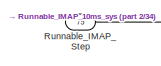
[diagram: root canvas - part 1/34, top center region]
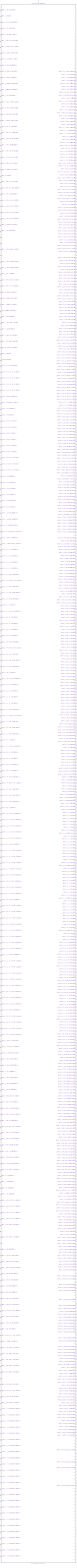
[diagram: root canvas - part 2/34, center side, full height]
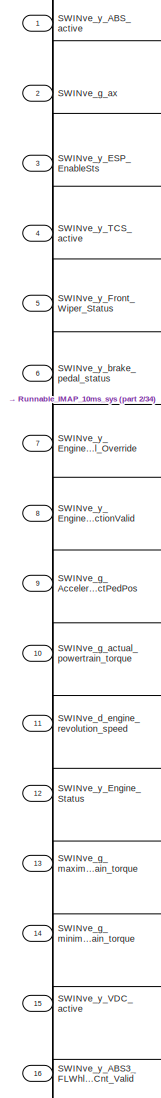
[diagram: root canvas - part 3/34, top left region]
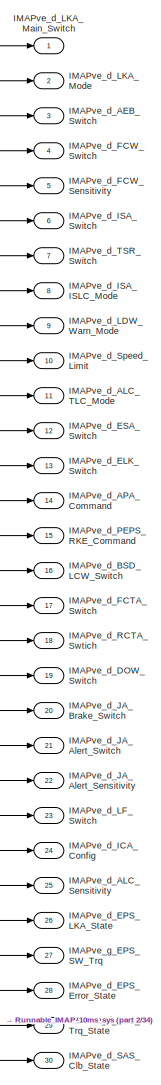
[diagram: root canvas - part 4/34, top right region]
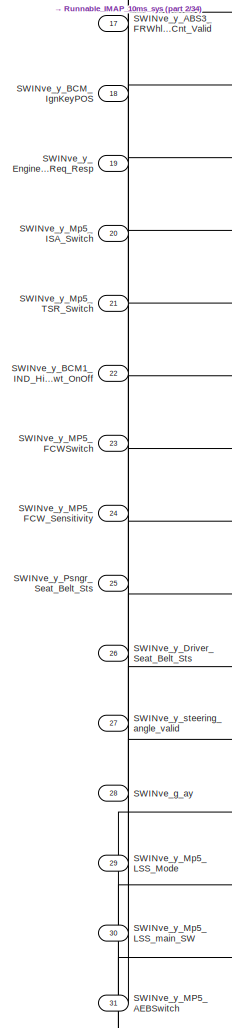
[diagram: root canvas - part 5/34, top left region]
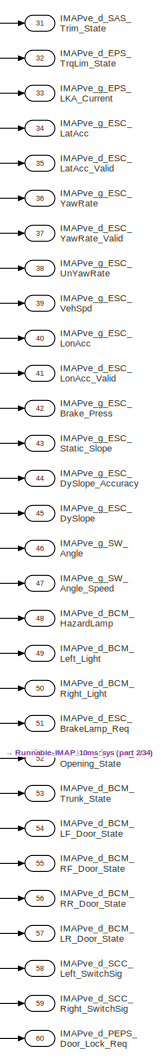
[diagram: root canvas - part 6/34, top right region]
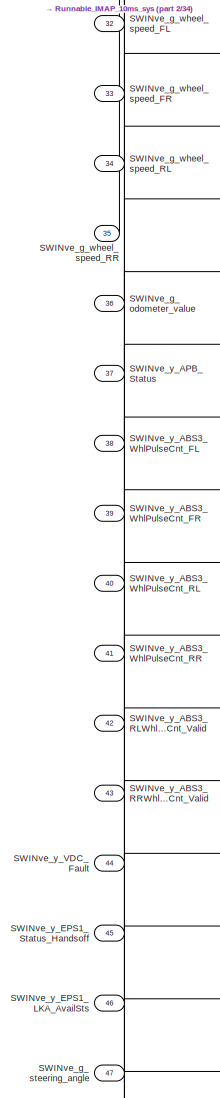
[diagram: root canvas - part 7/34, top left region]
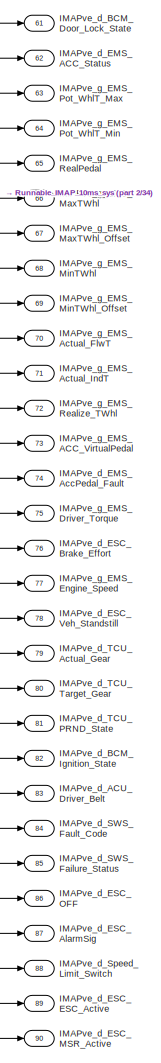
[diagram: root canvas - part 8/34, top right region]
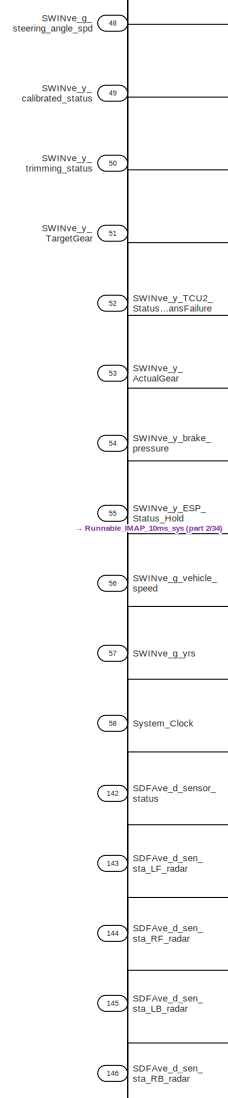
[diagram: root canvas - part 9/34, top left region]
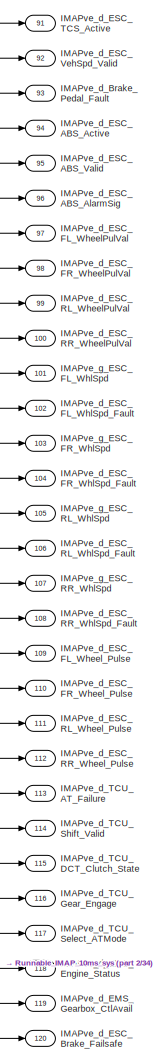
[diagram: root canvas - part 10/34, top right region]
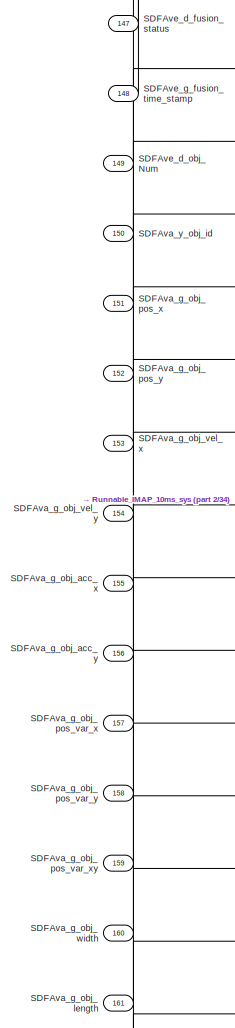
[diagram: root canvas - part 11/34, top left region]
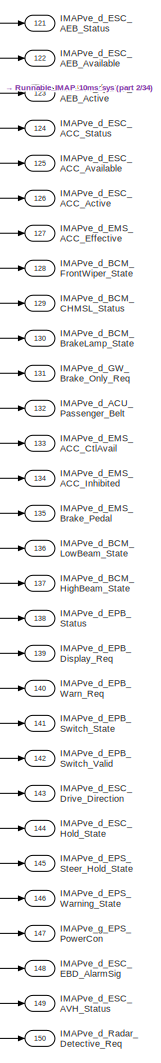
[diagram: root canvas - part 12/34, top right region]
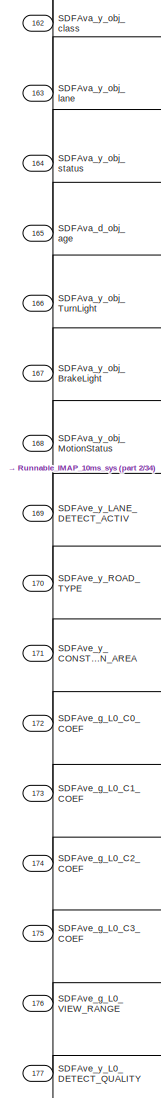
[diagram: root canvas - part 13/34, middle left region]
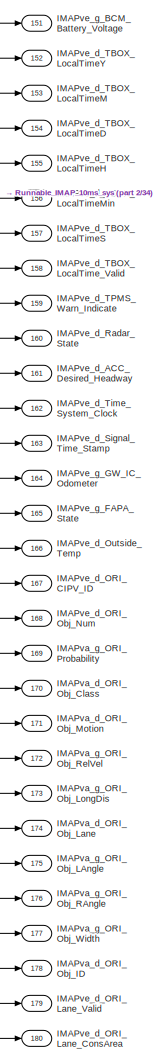
[diagram: root canvas - part 14/34, middle right region]
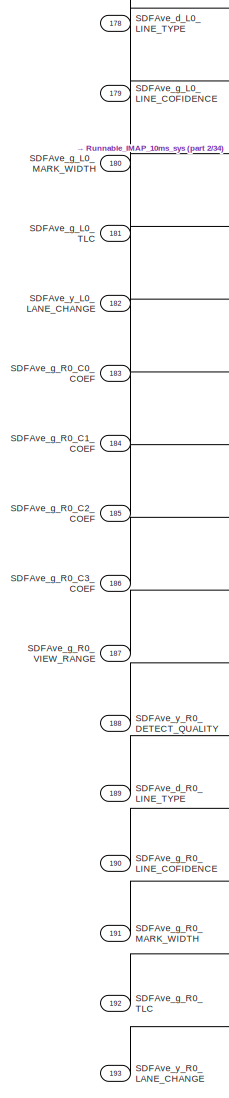
[diagram: root canvas - part 15/34, middle left region]
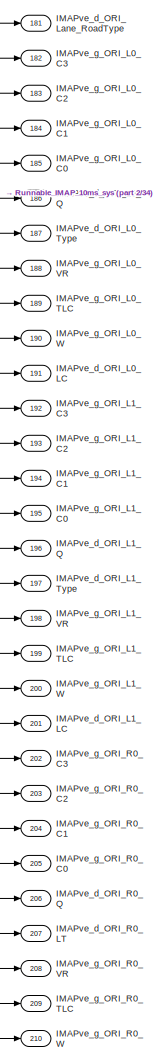
[diagram: root canvas - part 16/34, middle right region]
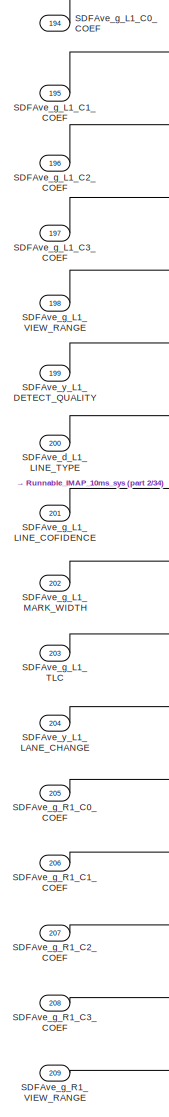
[diagram: root canvas - part 17/34, middle left region]
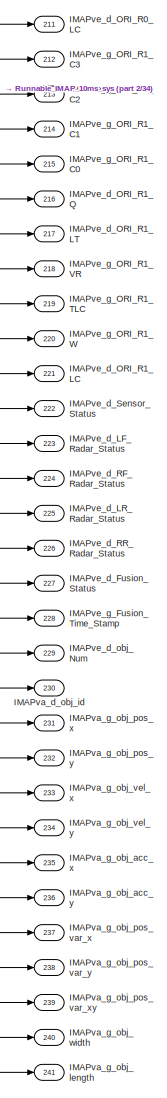
[diagram: root canvas - part 18/34, middle right region]
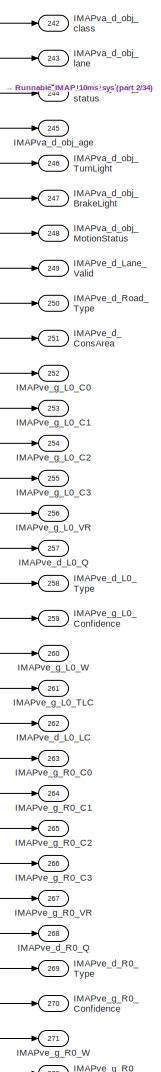
[diagram: root canvas - part 19/34, middle right region]
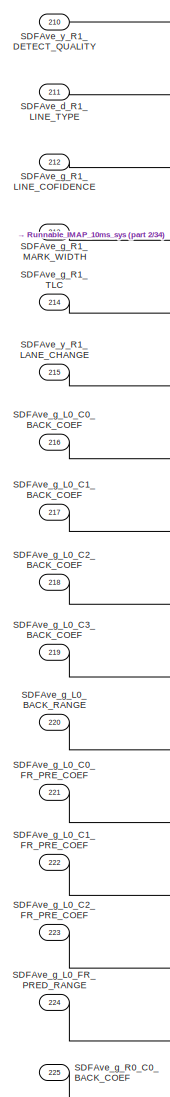
[diagram: root canvas - part 20/34, middle left region]
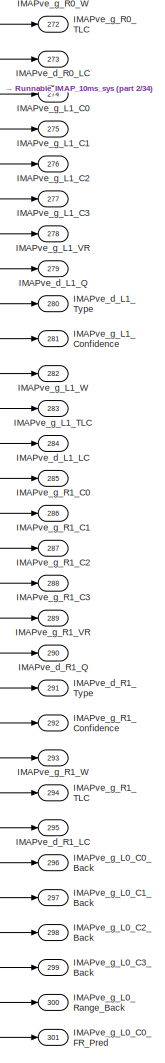
[diagram: root canvas - part 21/34, middle right region]
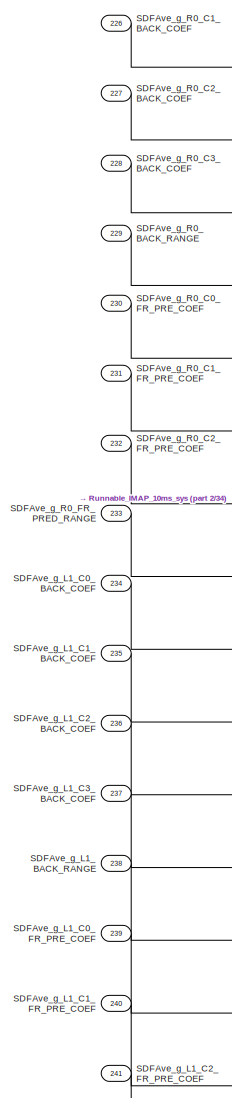
[diagram: root canvas - part 22/34, middle left region]
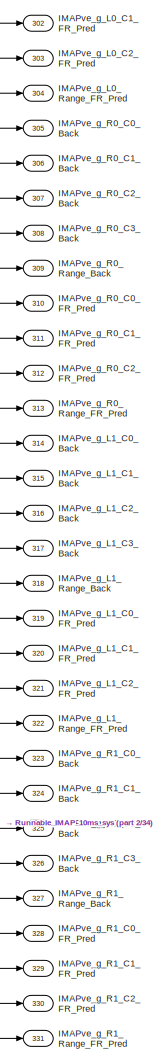
[diagram: root canvas - part 23/34, middle right region]
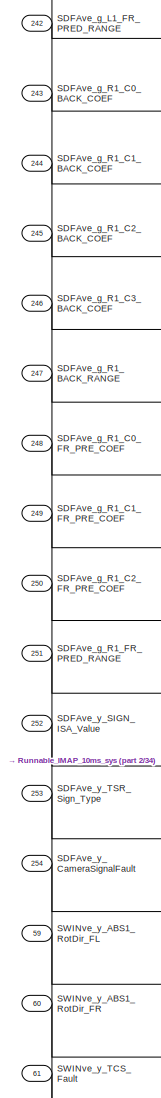
[diagram: root canvas - part 24/34, middle left region]
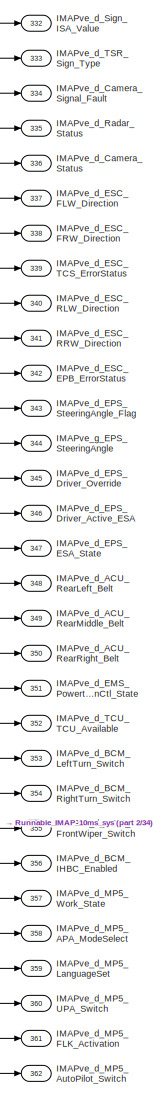
[diagram: root canvas - part 25/34, bottom right region]
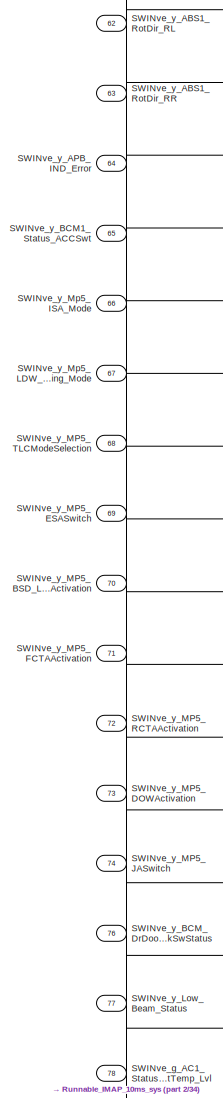
[diagram: root canvas - part 26/34, bottom left region]
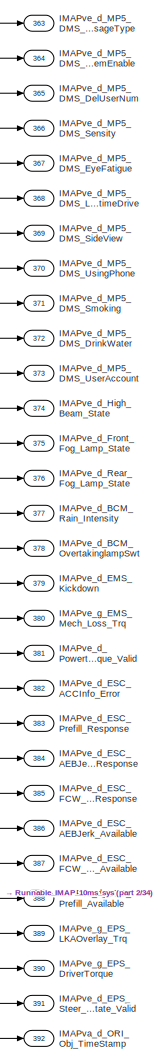
[diagram: root canvas - part 27/34, bottom right region]
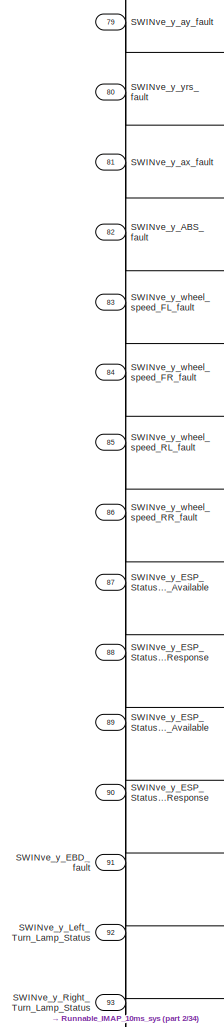
[diagram: root canvas - part 28/34, bottom left region]
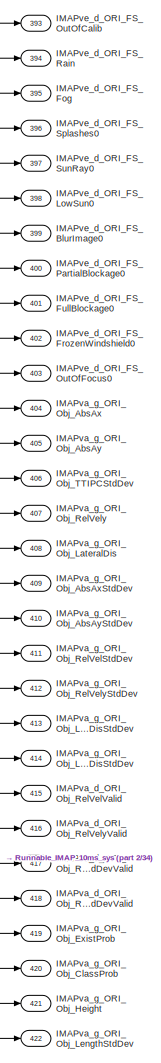
[diagram: root canvas - part 29/34, bottom right region]
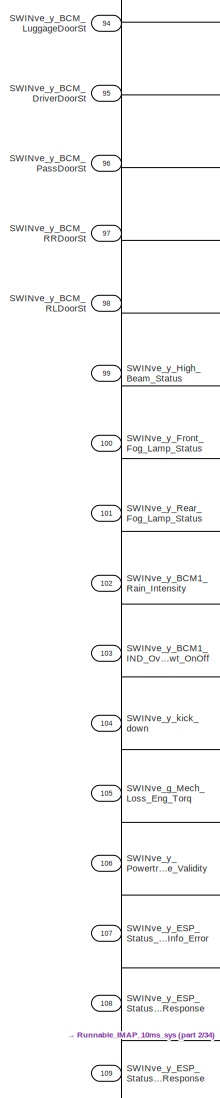
[diagram: root canvas - part 30/34, bottom left region]
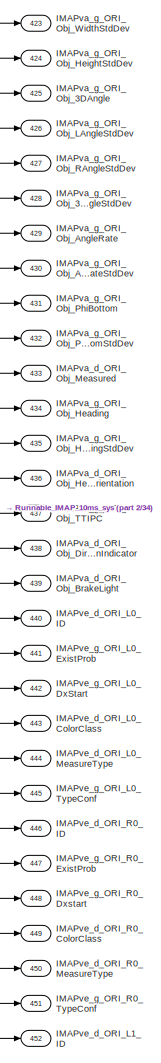
[diagram: root canvas - part 31/34, bottom right region]
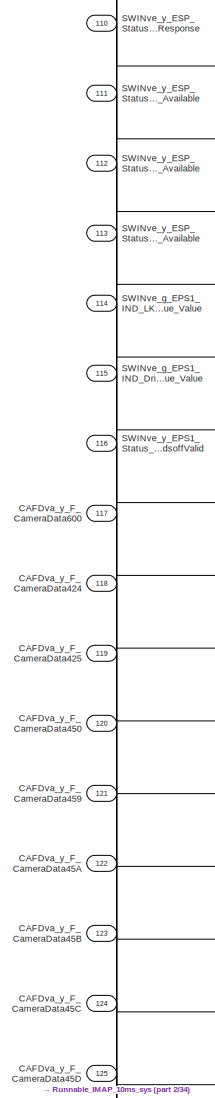
[diagram: root canvas - part 32/34, bottom left region]
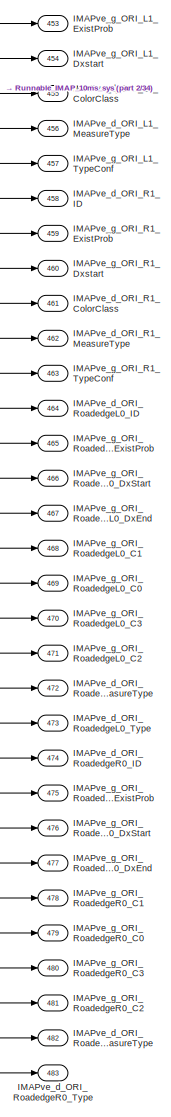
[diagram: root canvas - part 33/34, bottom right region]
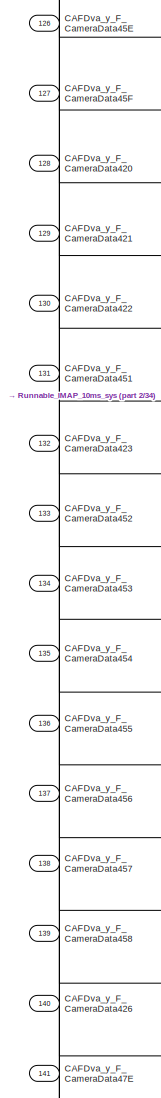
[diagram: root canvas - part 34/34, bottom left region]
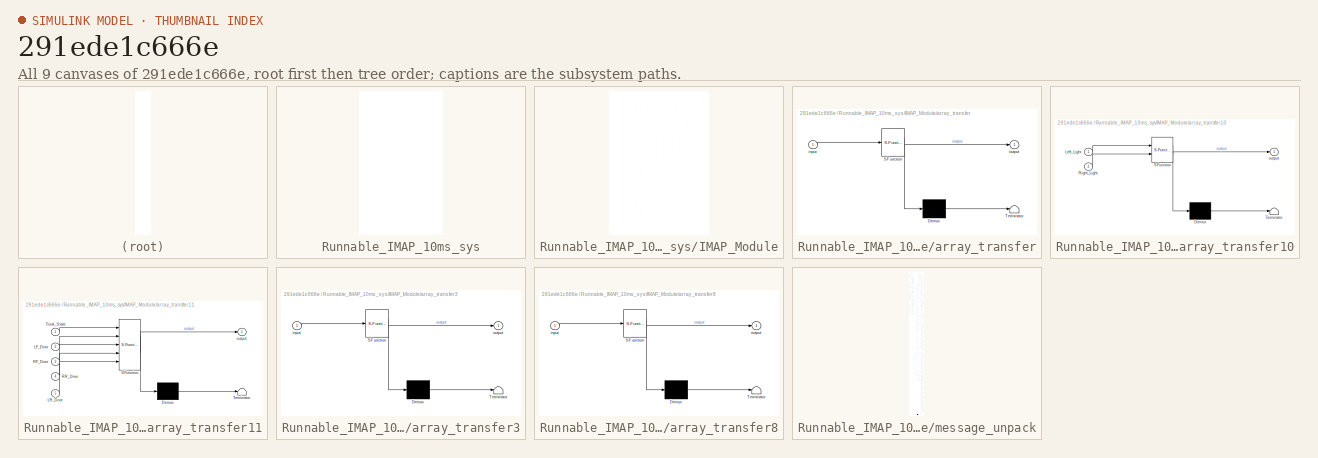
[diagram: thumbnail index - all 9 canvases of the model, root first then tree order]
MODEL slx_291ede1c666e
KIND model
CONFIG AbsTol = auto
CONFIG EnableMultiTasking = off
CONFIG FixedStep = 0.01
CONFIG MaxStep = auto
CONFIG MinStep = auto
CONFIG RelTol = 1e-3
CONFIG SampleTimeConstraint = Unconstrained
CONFIG Solver = FixedStepDiscrete
CONFIG SolverName = FixedStepDiscrete
CONFIG StartTime = 0.0
CONFIG StopTime = 10.0
BLOCK [Inport] CAFDva_y_F_CameraData420
  IconDisplay = Port number
  OutDataTypeStr = UInt8
  Port = 128
  PortDimensions = 66
BLOCK [Inport] CAFDva_y_F_CameraData421
  IconDisplay = Port number
  OutDataTypeStr = UInt8
  Port = 129
  PortDimensions = 66
BLOCK [Inport] CAFDva_y_F_CameraData422
  IconDisplay = Port number
  OutDataTypeStr = UInt8
  Port = 130
  PortDimensions = 66
BLOCK [Inport] CAFDva_y_F_CameraData423
  IconDisplay = Port number
  OutDataTypeStr = UInt8
  Port = 132
  PortDimensions = 66
BLOCK [Inport] CAFDva_y_F_CameraData424
  IconDisplay = Port number
  OutDataTypeStr = UInt8
  Port = 118
  PortDimensions = 66
BLOCK [Inport] CAFDva_y_F_CameraData425
  IconDisplay = Port number
  OutDataTypeStr = UInt8
  Port = 119
  PortDimensions = 66
BLOCK [Inport] CAFDva_y_F_CameraData426
  IconDisplay = Port number
  OutDataTypeStr = UInt8
  Port = 140
  PortDimensions = 66
BLOCK [Inport] CAFDva_y_F_CameraData450
  IconDisplay = Port number
  OutDataTypeStr = UInt8
  Port = 120
  PortDimensions = 66
BLOCK [Inport] CAFDva_y_F_CameraData451
  IconDisplay = Port number
  OutDataTypeStr = UInt8
  Port = 131
  PortDimensions = 66
BLOCK [Inport] CAFDva_y_F_CameraData452
  IconDisplay = Port number
  OutDataTypeStr = UInt8
  Port = 133
  PortDimensions = 66
BLOCK [Inport] CAFDva_y_F_CameraData453
  IconDisplay = Port number
  OutDataTypeStr = UInt8
  Port = 134
  PortDimensions = 66
BLOCK [Inport] CAFDva_y_F_CameraData454
  IconDisplay = Port number
  OutDataTypeStr = UInt8
  Port = 135
  PortDimensions = 66
BLOCK [Inport] CAFDva_y_F_CameraData455
  IconDisplay = Port number
  OutDataTypeStr = UInt8
  Port = 136
  PortDimensions = 66
BLOCK [Inport] CAFDva_y_F_CameraData456
  IconDisplay = Port number
  OutDataTypeStr = UInt8
  Port = 137
  PortDimensions = 66
BLOCK [Inport] CAFDva_y_F_CameraData457
  IconDisplay = Port number
  OutDataTypeStr = UInt8
  Port = 138
  PortDimensions = 66
BLOCK [Inport] CAFDva_y_F_CameraData458
  IconDisplay = Port number
  OutDataTypeStr = UInt8
  Port = 139
  PortDimensions = 66
BLOCK [Inport] CAFDva_y_F_CameraData459
  IconDisplay = Port number
  OutDataTypeStr = UInt8
  Port = 121
  PortDimensions = 66
BLOCK [Inport] CAFDva_y_F_CameraData45A
  IconDisplay = Port number
  OutDataTypeStr = UInt8
  Port = 122
  PortDimensions = 66
BLOCK [Inport] CAFDva_y_F_CameraData45B
  IconDisplay = Port number
  OutDataTypeStr = UInt8
  Port = 123
  PortDimensions = 66
BLOCK [Inport] CAFDva_y_F_CameraData45C
  IconDisplay = Port number
  OutDataTypeStr = UInt8
  Port = 124
  PortDimensions = 66
BLOCK [Inport] CAFDva_y_F_CameraData45D
  IconDisplay = Port number
  OutDataTypeStr = UInt8
  Port = 125
  PortDimensions = 66
BLOCK [Inport] CAFDva_y_F_CameraData45E
  IconDisplay = Port number
  OutDataTypeStr = UInt8
  Port = 126
  PortDimensions = 66
BLOCK [Inport] CAFDva_y_F_CameraData45F
  IconDisplay = Port number
  OutDataTypeStr = UInt8
  Port = 127
  PortDimensions = 66
BLOCK [Inport] CAFDva_y_F_CameraData47E
  IconDisplay = Port number
  OutDataTypeStr = uint8
  Port = 141
  PortDimensions = 66
BLOCK [Inport] CAFDva_y_F_CameraData600
  IconDisplay = Port number
  OutDataTypeStr = UInt8
  Port = 117
  PortDimensions = 66
BLOCK [Outport] IMAPva_d_ORI_Obj_BrakeLight
  IconDisplay = Port number
  OutDataTypeStr = UInt16
  Port = 439
  PortDimensions = 20
BLOCK [Outport] IMAPva_d_ORI_Obj_Class
  IconDisplay = Port number
  OutDataTypeStr = UInt16
  Port = 170
  PortDimensions = 20
BLOCK [Outport] IMAPva_d_ORI_Obj_DirectionIndicator
  IconDisplay = Port number
  OutDataTypeStr = UInt16
  Port = 438
  PortDimensions = 20
BLOCK [Outport] IMAPva_d_ORI_Obj_HeadOrientation
  IconDisplay = Port number
  OutDataTypeStr = UInt16
  Port = 436
  PortDimensions = 20
BLOCK [Outport] IMAPva_d_ORI_Obj_ID
  IconDisplay = Port number
  OutDataTypeStr = UInt16
  Port = 178
  PortDimensions = 20
BLOCK [Outport] IMAPva_d_ORI_Obj_Lane
  IconDisplay = Port number
  OutDataTypeStr = UInt16
  Port = 174
  PortDimensions = 20
BLOCK [Outport] IMAPva_d_ORI_Obj_Measured
  IconDisplay = Port number
  OutDataTypeStr = UInt16
  Port = 433
  PortDimensions = 20
BLOCK [Outport] IMAPva_d_ORI_Obj_Motion
  IconDisplay = Port number
  OutDataTypeStr = UInt16
  Port = 171
  PortDimensions = 20
BLOCK [Outport] IMAPva_d_ORI_Obj_RelVelStdDevValid
  IconDisplay = Port number
  OutDataTypeStr = UInt16
  Port = 417
  PortDimensions = 20
BLOCK [Outport] IMAPva_d_ORI_Obj_RelVelValid
  IconDisplay = Port number
  OutDataTypeStr = UInt16
  Port = 415
  PortDimensions = 20
BLOCK [Outport] IMAPva_d_ORI_Obj_RelVelyStdDevValid
  IconDisplay = Port number
  OutDataTypeStr = UInt16
  Port = 418
  PortDimensions = 20
BLOCK [Outport] IMAPva_d_ORI_Obj_RelVelyValid
  IconDisplay = Port number
  OutDataTypeStr = UInt16
  Port = 416
  PortDimensions = 20
BLOCK [Outport] IMAPva_d_ORI_Obj_TimeStamp
  IconDisplay = Port number
  OutDataTypeStr = UInt16
  Port = 392
  PortDimensions = 20
BLOCK [Outport] IMAPva_d_obj_BrakeLight
  IconDisplay = Port number
  OutDataTypeStr = UInt16
  Port = 247
  PortDimensions = 40
BLOCK [Outport] IMAPva_d_obj_MotionStatus
  IconDisplay = Port number
  OutDataTypeStr = UInt16
  Port = 248
  PortDimensions = 40
BLOCK [Outport] IMAPva_d_obj_TurnLight
  IconDisplay = Port number
  OutDataTypeStr = UInt16
  Port = 246
  PortDimensions = 40
BLOCK [Outport] IMAPva_d_obj_age
  IconDisplay = Port number
  OutDataTypeStr = UInt16
  Port = 245
  PortDimensions = 40
BLOCK [Outport] IMAPva_d_obj_class
  IconDisplay = Port number
  OutDataTypeStr = UInt16
  Port = 242
  PortDimensions = 40
BLOCK [Outport] IMAPva_d_obj_id
  IconDisplay = Port number
  OutDataTypeStr = UInt16
  Port = 230
  PortDimensions = 40
BLOCK [Outport] IMAPva_d_obj_lane
  IconDisplay = Port number
  OutDataTypeStr = UInt16
  Port = 243
  PortDimensions = 40
BLOCK [Outport] IMAPva_d_obj_status
  IconDisplay = Port number
  OutDataTypeStr = UInt16
  Port = 244
  PortDimensions = 40
BLOCK [Outport] IMAPva_g_ORI_Obj_3DAngle
  IconDisplay = Port number
  OutDataTypeStr = T_M_Nm_Float32
  Port = 425
  PortDimensions = 20
BLOCK [Outport] IMAPva_g_ORI_Obj_3DAngleStdDev
  IconDisplay = Port number
  OutDataTypeStr = T_M_Nm_Float32
  Port = 428
  PortDimensions = 20
BLOCK [Outport] IMAPva_g_ORI_Obj_AbsAx
  IconDisplay = Port number
  OutDataTypeStr = T_M_Nm_Float32
  Port = 404
  PortDimensions = 20
BLOCK [Outport] IMAPva_g_ORI_Obj_AbsAxStdDev
  IconDisplay = Port number
  OutDataTypeStr = T_M_Nm_Float32
  Port = 409
  PortDimensions = 20
BLOCK [Outport] IMAPva_g_ORI_Obj_AbsAy
  IconDisplay = Port number
  OutDataTypeStr = T_M_Nm_Float32
  Port = 405
  PortDimensions = 20
BLOCK [Outport] IMAPva_g_ORI_Obj_AbsAyStdDev
  IconDisplay = Port number
  OutDataTypeStr = T_M_Nm_Float32
  Port = 410
  PortDimensions = 20
BLOCK [Outport] IMAPva_g_ORI_Obj_AngleRate
  IconDisplay = Port number
  OutDataTypeStr = T_M_Nm_Float32
  Port = 429
  PortDimensions = 20
BLOCK [Outport] IMAPva_g_ORI_Obj_AngleRateStdDev
  IconDisplay = Port number
  OutDataTypeStr = T_M_Nm_Float32
  Port = 430
  PortDimensions = 20
BLOCK [Outport] IMAPva_g_ORI_Obj_ClassProb
  IconDisplay = Port number
  OutDataTypeStr = T_M_Nm_Float32
  Port = 420
  PortDimensions = 20
BLOCK [Outport] IMAPva_g_ORI_Obj_ExistProb
  IconDisplay = Port number
  OutDataTypeStr = T_M_Nm_Float32
  Port = 419
  PortDimensions = 20
BLOCK [Outport] IMAPva_g_ORI_Obj_Heading
  IconDisplay = Port number
  OutDataTypeStr = T_M_Nm_Float32
  Port = 434
  PortDimensions = 20
BLOCK [Outport] IMAPva_g_ORI_Obj_HeadingStdDev
  IconDisplay = Port number
  OutDataTypeStr = T_M_Nm_Float32
  Port = 435
  PortDimensions = 20
BLOCK [Outport] IMAPva_g_ORI_Obj_Height
  IconDisplay = Port number
  OutDataTypeStr = T_M_Nm_Float32
  Port = 421
  PortDimensions = 20
BLOCK [Outport] IMAPva_g_ORI_Obj_HeightStdDev
  IconDisplay = Port number
  OutDataTypeStr = T_M_Nm_Float32
  Port = 424
  PortDimensions = 20
BLOCK [Outport] IMAPva_g_ORI_Obj_LAngle
  IconDisplay = Port number
  OutDataTypeStr = T_M_Nm_Float32
  Port = 175
  PortDimensions = 20
BLOCK [Outport] IMAPva_g_ORI_Obj_LAngleStdDev
  IconDisplay = Port number
  OutDataTypeStr = T_M_Nm_Float32
  Port = 426
  PortDimensions = 20
BLOCK [Outport] IMAPva_g_ORI_Obj_LateralDis
  IconDisplay = Port number
  OutDataTypeStr = T_M_Nm_Float32
  Port = 408
  PortDimensions = 20
BLOCK [Outport] IMAPva_g_ORI_Obj_LateralDisStdDev
  IconDisplay = Port number
  OutDataTypeStr = T_M_Nm_Float32
  Port = 414
  PortDimensions = 20
BLOCK [Outport] IMAPva_g_ORI_Obj_LengthStdDev
  IconDisplay = Port number
  OutDataTypeStr = T_M_Nm_Float32
  Port = 422
  PortDimensions = 20
BLOCK [Outport] IMAPva_g_ORI_Obj_LongDis
  IconDisplay = Port number
  OutDataTypeStr = T_M_Nm_Float32
  Port = 173
  PortDimensions = 20
BLOCK [Outport] IMAPva_g_ORI_Obj_LongDisStdDev
  IconDisplay = Port number
  OutDataTypeStr = T_M_Nm_Float32
  Port = 413
  PortDimensions = 20
BLOCK [Outport] IMAPva_g_ORI_Obj_PhiBottom
  IconDisplay = Port number
  OutDataTypeStr = T_M_Nm_Float32
  Port = 431
  PortDimensions = 20
BLOCK [Outport] IMAPva_g_ORI_Obj_PhiBottomStdDev
  IconDisplay = Port number
  OutDataTypeStr = T_M_Nm_Float32
  Port = 432
  PortDimensions = 20
BLOCK [Outport] IMAPva_g_ORI_Obj_RAngle
  IconDisplay = Port number
  OutDataTypeStr = T_M_Nm_Float32
  Port = 176
  PortDimensions = 20
BLOCK [Outport] IMAPva_g_ORI_Obj_RAngleStdDev
  IconDisplay = Port number
  OutDataTypeStr = T_M_Nm_Float32
  Port = 427
  PortDimensions = 20
BLOCK [Outport] IMAPva_g_ORI_Obj_RelVel
  IconDisplay = Port number
  OutDataTypeStr = T_M_Nm_Float32
  Port = 172
  PortDimensions = 20
BLOCK [Outport] IMAPva_g_ORI_Obj_RelVelStdDev
  IconDisplay = Port number
  OutDataTypeStr = T_M_Nm_Float32
  Port = 411
  PortDimensions = 20
BLOCK [Outport] IMAPva_g_ORI_Obj_RelVely
  IconDisplay = Port number
  OutDataTypeStr = T_M_Nm_Float32
  Port = 407
  PortDimensions = 20
BLOCK [Outport] IMAPva_g_ORI_Obj_RelVelyStdDev
  IconDisplay = Port number
  OutDataTypeStr = T_M_Nm_Float32
  Port = 412
  PortDimensions = 20
BLOCK [Outport] IMAPva_g_ORI_Obj_TTIPC
  IconDisplay = Port number
  OutDataTypeStr = T_M_Nm_Float32
  Port = 437
  PortDimensions = 20
BLOCK [Outport] IMAPva_g_ORI_Obj_TTIPCStdDev
  IconDisplay = Port number
  OutDataTypeStr = T_M_Nm_Float32
  Port = 406
  PortDimensions = 20
BLOCK [Outport] IMAPva_g_ORI_Obj_Width
  IconDisplay = Port number
  OutDataTypeStr = T_M_Nm_Float32
  Port = 177
  PortDimensions = 20
BLOCK [Outport] IMAPva_g_ORI_Obj_WidthStdDev
  IconDisplay = Port number
  OutDataTypeStr = T_M_Nm_Float32
  Port = 423
  PortDimensions = 20
BLOCK [Outport] IMAPva_g_ORI_Probability
  IconDisplay = Port number
  OutDataTypeStr = T_M_Nm_Float32
  Port = 169
  PortDimensions = 20
BLOCK [Outport] IMAPva_g_obj_acc_x
  IconDisplay = Port number
  OutDataTypeStr = T_M_Nm_Float32
  Port = 235
  PortDimensions = 40
BLOCK [Outport] IMAPva_g_obj_acc_y
  IconDisplay = Port number
  OutDataTypeStr = T_M_Nm_Float32
  Port = 236
  PortDimensions = 40
BLOCK [Outport] IMAPva_g_obj_length
  IconDisplay = Port number
  OutDataTypeStr = T_M_Nm_Float32
  Port = 241
  PortDimensions = 40
BLOCK [Outport] IMAPva_g_obj_pos_var_x
  IconDisplay = Port number
  OutDataTypeStr = T_M_Nm_Float32
  Port = 237
  PortDimensions = 40
BLOCK [Outport] IMAPva_g_obj_pos_var_xy
  IconDisplay = Port number
  OutDataTypeStr = T_M_Nm_Float32
  Port = 239
  PortDimensions = 40
BLOCK [Outport] IMAPva_g_obj_pos_var_y
  IconDisplay = Port number
  OutDataTypeStr = T_M_Nm_Float32
  Port = 238
  PortDimensions = 40
BLOCK [Outport] IMAPva_g_obj_pos_x
  IconDisplay = Port number
  OutDataTypeStr = T_M_Nm_Float32
  Port = 231
  PortDimensions = 40
BLOCK [Outport] IMAPva_g_obj_pos_y
  IconDisplay = Port number
  OutDataTypeStr = T_M_Nm_Float32
  Port = 232
  PortDimensions = 40
BLOCK [Outport] IMAPva_g_obj_vel_x
  IconDisplay = Port number
  OutDataTypeStr = T_M_Nm_Float32
  Port = 233
  PortDimensions = 40
BLOCK [Outport] IMAPva_g_obj_vel_y
  IconDisplay = Port number
  OutDataTypeStr = T_M_Nm_Float32
  Port = 234
  PortDimensions = 40
BLOCK [Outport] IMAPva_g_obj_width
  IconDisplay = Port number
  OutDataTypeStr = T_M_Nm_Float32
  Port = 240
  PortDimensions = 40
BLOCK [Outport] IMAPve_d_ACC_Desired_Headway
  IconDisplay = Port number
  OutDataTypeStr = UInt16
  Port = 161
  PortDimensions = 1
BLOCK [Outport] IMAPve_d_ACU_Driver_Belt
  IconDisplay = Port number
  OutDataTypeStr = UInt16
  Port = 83
  PortDimensions = 1
BLOCK [Outport] IMAPve_d_ACU_Passenger_Belt
  IconDisplay = Port number
  OutDataTypeStr = UInt16
  Port = 132
  PortDimensions = 1
BLOCK [Outport] IMAPve_d_ACU_RearLeft_Belt
  IconDisplay = Port number
  OutDataTypeStr = UInt16
  Port = 348
BLOCK [Outport] IMAPve_d_ACU_RearMiddle_Belt
  IconDisplay = Port number
  OutDataTypeStr = UInt16
  Port = 349
BLOCK [Outport] IMAPve_d_ACU_RearRight_Belt
  IconDisplay = Port number
  OutDataTypeStr = UInt16
  Port = 350
BLOCK [Outport] IMAPve_d_AEB_Switch
  IconDisplay = Port number
  OutDataTypeStr = UInt16
  Port = 3
  PortDimensions = 1
BLOCK [Outport] IMAPve_d_ALC_Sensitivity
  IconDisplay = Port number
  OutDataTypeStr = UInt16
  Port = 25
  PortDimensions = 1
BLOCK [Outport] IMAPve_d_ALC_TLC_Mode
  IconDisplay = Port number
  OutDataTypeStr = UInt16
  Port = 11
  PortDimensions = 1
BLOCK [Outport] IMAPve_d_APA_Command
  IconDisplay = Port number
  OutDataTypeStr = UInt16
  Port = 14
  PortDimensions = 1
BLOCK [Outport] IMAPve_d_BCM_BrakeLamp_State
  IconDisplay = Port number
  OutDataTypeStr = UInt16
  Port = 130
  PortDimensions = 1
BLOCK [Outport] IMAPve_d_BCM_CHMSL_Status
  IconDisplay = Port number
  OutDataTypeStr = UInt16
  Port = 129
  PortDimensions = 1
BLOCK [Outport] IMAPve_d_BCM_Door_Lock_State
  IconDisplay = Port number
  OutDataTypeStr = UInt16
  Port = 61
  PortDimensions = 1
BLOCK [Outport] IMAPve_d_BCM_FrontWiper_State
  IconDisplay = Port number
  OutDataTypeStr = UInt16
  Port = 128
  PortDimensions = 1
BLOCK [Outport] IMAPve_d_BCM_FrontWiper_Switch
  IconDisplay = Port number
  OutDataTypeStr = UInt16
  Port = 355
BLOCK [Outport] IMAPve_d_BCM_HazardLamp
  IconDisplay = Port number
  OutDataTypeStr = UInt16
  Port = 48
  PortDimensions = 1
BLOCK [Outport] IMAPve_d_BCM_HighBeam_State
  IconDisplay = Port number
  OutDataTypeStr = UInt16
  Port = 137
  PortDimensions = 1
BLOCK [Outport] IMAPve_d_BCM_IHBC_Enabled
  IconDisplay = Port number
  OutDataTypeStr = UInt16
  Port = 356
BLOCK [Outport] IMAPve_d_BCM_Ignition_State
  IconDisplay = Port number
  OutDataTypeStr = UInt16
  Port = 82
  PortDimensions = 1
BLOCK [Outport] IMAPve_d_BCM_LF_Door_State
  IconDisplay = Port number
  OutDataTypeStr = UInt16
  Port = 54
  PortDimensions = 1
BLOCK [Outport] IMAPve_d_BCM_LR_Door_State
  IconDisplay = Port number
  OutDataTypeStr = UInt16
  Port = 57
  PortDimensions = 1
BLOCK [Outport] IMAPve_d_BCM_LeftTurn_Switch
  IconDisplay = Port number
  OutDataTypeStr = UInt16
  Port = 353
BLOCK [Outport] IMAPve_d_BCM_Left_Light
  IconDisplay = Port number
  OutDataTypeStr = UInt16
  Port = 49
  PortDimensions = 1
BLOCK [Outport] IMAPve_d_BCM_LowBeam_State
  IconDisplay = Port number
  OutDataTypeStr = UInt16
  Port = 136
  PortDimensions = 1
BLOCK [Outport] IMAPve_d_BCM_Opening_State
  IconDisplay = Port number
  OutDataTypeStr = UInt16
  Port = 52
  PortDimensions = 1
BLOCK [Outport] IMAPve_d_BCM_OvertakinglampSwt
  IconDisplay = Port number
  OutDataTypeStr = UInt16
  Port = 378
BLOCK [Outport] IMAPve_d_BCM_RF_Door_State
  IconDisplay = Port number
  OutDataTypeStr = UInt16
  Port = 55
  PortDimensions = 1
BLOCK [Outport] IMAPve_d_BCM_RR_Door_State
  IconDisplay = Port number
  OutDataTypeStr = UInt16
  Port = 56
  PortDimensions = 1
BLOCK [Outport] IMAPve_d_BCM_Rain_Intensity
  IconDisplay = Port number
  OutDataTypeStr = UInt16
  Port = 377
BLOCK [Outport] IMAPve_d_BCM_RightTurn_Switch
  IconDisplay = Port number
  OutDataTypeStr = UInt16
  Port = 354
BLOCK [Outport] IMAPve_d_BCM_Right_Light
  IconDisplay = Port number
  OutDataTypeStr = UInt16
  Port = 50
  PortDimensions = 1
BLOCK [Outport] IMAPve_d_BCM_Trunk_State
  IconDisplay = Port number
  OutDataTypeStr = UInt16
  Port = 53
  PortDimensions = 1
BLOCK [Outport] IMAPve_d_BSD_LCW_Switch
  IconDisplay = Port number
  OutDataTypeStr = UInt16
  Port = 16
  PortDimensions = 1
BLOCK [Outport] IMAPve_d_Brake_Pedal_Fault
  IconDisplay = Port number
  OutDataTypeStr = UInt16
  Port = 93
  PortDimensions = 1
BLOCK [Outport] IMAPve_d_Camera_Signal_Fault
  IconDisplay = Port number
  OutDataTypeStr = UInt16
  Port = 334
  PortDimensions = 1
BLOCK [Outport] IMAPve_d_Camera_Status
  IconDisplay = Port number
  OutDataTypeStr = UInt16
  Port = 336
  PortDimensions = 1
BLOCK [Outport] IMAPve_d_ConsArea
  IconDisplay = Port number
  OutDataTypeStr = UInt16
  Port = 251
  PortDimensions = 1
BLOCK [Outport] IMAPve_d_DOW_Switch
  IconDisplay = Port number
  OutDataTypeStr = UInt16
  Port = 19
  PortDimensions = 1
BLOCK [Outport] IMAPve_d_ELK_Switch
  IconDisplay = Port number
  OutDataTypeStr = UInt16
  Port = 13
  PortDimensions = 1
BLOCK [Outport] IMAPve_d_EMS_ACC_CtlAvail
  IconDisplay = Port number
  OutDataTypeStr = UInt16
  Port = 133
  PortDimensions = 1
BLOCK [Outport] IMAPve_d_EMS_ACC_Effective
  IconDisplay = Port number
  OutDataTypeStr = UInt16
  Port = 127
  PortDimensions = 1
BLOCK [Outport] IMAPve_d_EMS_ACC_Inhibited
  IconDisplay = Port number
  OutDataTypeStr = UInt16
  Port = 134
  PortDimensions = 1
BLOCK [Outport] IMAPve_d_EMS_ACC_Status
  IconDisplay = Port number
  OutDataTypeStr = UInt16
  Port = 62
  PortDimensions = 1
BLOCK [Outport] IMAPve_d_EMS_AccPedal_Fault
  IconDisplay = Port number
  OutDataTypeStr = UInt16
  Port = 74
  PortDimensions = 1
BLOCK [Outport] IMAPve_d_EMS_Brake_Pedal
  IconDisplay = Port number
  OutDataTypeStr = UInt16
  Port = 135
  PortDimensions = 1
BLOCK [Outport] IMAPve_d_EMS_Engine_Status
  IconDisplay = Port number
  OutDataTypeStr = UInt16
  Port = 118
  PortDimensions = 1
BLOCK [Outport] IMAPve_d_EMS_Gearbox_CtlAvail
  IconDisplay = Port number
  OutDataTypeStr = UInt16
  Port = 119
  PortDimensions = 1
BLOCK [Outport] IMAPve_d_EMS_Kickdown
  IconDisplay = Port number
  OutDataTypeStr = UInt16
  Port = 379
BLOCK [Outport] IMAPve_d_EMS_PowertrainCtl_State
  IconDisplay = Port number
  OutDataTypeStr = UInt16
  Port = 351
BLOCK [Outport] IMAPve_d_EPB_Display_Req
  IconDisplay = Port number
  OutDataTypeStr = UInt16
  Port = 139
  PortDimensions = 1
BLOCK [Outport] IMAPve_d_EPB_Status
  IconDisplay = Port number
  OutDataTypeStr = UInt16
  Port = 138
  PortDimensions = 1
BLOCK [Outport] IMAPve_d_EPB_Switch_State
  IconDisplay = Port number
  OutDataTypeStr = UInt16
  Port = 141
  PortDimensions = 1
BLOCK [Outport] IMAPve_d_EPB_Switch_Valid
  IconDisplay = Port number
  OutDataTypeStr = UInt16
  Port = 142
  PortDimensions = 1
BLOCK [Outport] IMAPve_d_EPB_Warn_Req
  IconDisplay = Port number
  OutDataTypeStr = UInt16
  Port = 140
  PortDimensions = 1
BLOCK [Outport] IMAPve_d_EPS_Driver_Active_ESA
  IconDisplay = Port number
  OutDataTypeStr = UInt16
  Port = 346
BLOCK [Outport] IMAPve_d_EPS_Driver_Override
  IconDisplay = Port number
  OutDataTypeStr = UInt16
  Port = 345
BLOCK [Outport] IMAPve_d_EPS_ESA_State
  IconDisplay = Port number
  OutDataTypeStr = UInt16
  Port = 347
BLOCK [Outport] IMAPve_d_EPS_Error_State
  IconDisplay = Port number
  OutDataTypeStr = UInt16
  Port = 28
  PortDimensions = 1
BLOCK [Outport] IMAPve_d_EPS_LKA_State
  IconDisplay = Port number
  OutDataTypeStr = UInt16
  Port = 26
  PortDimensions = 1
BLOCK [Outport] IMAPve_d_EPS_Steer_Hold_State
  IconDisplay = Port number
  OutDataTypeStr = UInt16
  Port = 145
  PortDimensions = 1
BLOCK [Outport] IMAPve_d_EPS_Steer_Hold_State_Valid
  IconDisplay = Port number
  OutDataTypeStr = UInt16
  Port = 391
BLOCK [Outport] IMAPve_d_EPS_SteeringAngle_Flag
  IconDisplay = Port number
  OutDataTypeStr = UInt16
  Port = 343
BLOCK [Outport] IMAPve_d_EPS_TrqLim_State
  IconDisplay = Port number
  OutDataTypeStr = UInt16
  Port = 32
  PortDimensions = 1
BLOCK [Outport] IMAPve_d_EPS_Trq_State
  IconDisplay = Port number
  OutDataTypeStr = UInt16
  Port = 29
  PortDimensions = 1
BLOCK [Outport] IMAPve_d_EPS_Warning_State
  IconDisplay = Port number
  OutDataTypeStr = UInt16
  Port = 146
  PortDimensions = 1
BLOCK [Outport] IMAPve_d_ESA_Switch
  IconDisplay = Port number
  OutDataTypeStr = UInt16
  Port = 12
  PortDimensions = 1
BLOCK [Outport] IMAPve_d_ESC_ABS_Active
  IconDisplay = Port number
  OutDataTypeStr = UInt16
  Port = 94
  PortDimensions = 1
BLOCK [Outport] IMAPve_d_ESC_ABS_AlarmSig
  IconDisplay = Port number
  OutDataTypeStr = UInt16
  Port = 96
  PortDimensions = 1
BLOCK [Outport] IMAPve_d_ESC_ABS_Valid
  IconDisplay = Port number
  OutDataTypeStr = UInt16
  Port = 95
  PortDimensions = 1
BLOCK [Outport] IMAPve_d_ESC_ACCInfo_Error
  IconDisplay = Port number
  OutDataTypeStr = UInt16
  Port = 382
BLOCK [Outport] IMAPve_d_ESC_ACC_Active
  IconDisplay = Port number
  OutDataTypeStr = UInt16
  Port = 126
  PortDimensions = 1
BLOCK [Outport] IMAPve_d_ESC_ACC_Available
  IconDisplay = Port number
  OutDataTypeStr = UInt16
  Port = 125
  PortDimensions = 1
BLOCK [Outport] IMAPve_d_ESC_ACC_Status
  IconDisplay = Port number
  OutDataTypeStr = UInt16
  Port = 124
  PortDimensions = 1
BLOCK [Outport] IMAPve_d_ESC_AEBJerk_Available
  IconDisplay = Port number
  OutDataTypeStr = UInt16
  Port = 386
BLOCK [Outport] IMAPve_d_ESC_AEBJerk_Response
  IconDisplay = Port number
  OutDataTypeStr = UInt16
  Port = 384
BLOCK [Outport] IMAPve_d_ESC_AEB_Active
  IconDisplay = Port number
  OutDataTypeStr = UInt16
  Port = 123
  PortDimensions = 1
BLOCK [Outport] IMAPve_d_ESC_AEB_Available
  IconDisplay = Port number
  OutDataTypeStr = UInt16
  Port = 122
  PortDimensions = 1
BLOCK [Outport] IMAPve_d_ESC_AEB_Status
  IconDisplay = Port number
  OutDataTypeStr = UInt16
  Port = 121
  PortDimensions = 1
BLOCK [Outport] IMAPve_d_ESC_AVH_Status
  IconDisplay = Port number
  OutDataTypeStr = UInt16
  Port = 149
  PortDimensions = 1
BLOCK [Outport] IMAPve_d_ESC_AlarmSig
  IconDisplay = Port number
  OutDataTypeStr = UInt16
  Port = 87
  PortDimensions = 1
BLOCK [Outport] IMAPve_d_ESC_BrakeLamp_Req
  IconDisplay = Port number
  OutDataTypeStr = UInt16
  Port = 51
  PortDimensions = 1
BLOCK [Outport] IMAPve_d_ESC_Brake_Effort
  IconDisplay = Port number
  OutDataTypeStr = UInt16
  Port = 76
  PortDimensions = 1
BLOCK [Outport] IMAPve_d_ESC_Brake_Failsafe
  IconDisplay = Port number
  OutDataTypeStr = UInt16
  Port = 120
  PortDimensions = 1
BLOCK [Outport] IMAPve_d_ESC_Drive_Direction
  IconDisplay = Port number
  OutDataTypeStr = UInt16
  Port = 143
  PortDimensions = 1
BLOCK [Outport] IMAPve_d_ESC_EBD_AlarmSig
  IconDisplay = Port number
  OutDataTypeStr = UInt16
  Port = 148
  PortDimensions = 1
BLOCK [Outport] IMAPve_d_ESC_EPB_ErrorStatus
  IconDisplay = Port number
  OutDataTypeStr = UInt16
  Port = 342
BLOCK [Outport] IMAPve_d_ESC_ESC_Active
  IconDisplay = Port number
  OutDataTypeStr = UInt16
  Port = 89
  PortDimensions = 1
BLOCK [Outport] IMAPve_d_ESC_FCW_DBS_Available
  IconDisplay = Port number
  OutDataTypeStr = UInt16
  Port = 387
BLOCK [Outport] IMAPve_d_ESC_FCW_DBS_Response
  IconDisplay = Port number
  OutDataTypeStr = UInt16
  Port = 385
BLOCK [Outport] IMAPve_d_ESC_FLW_Direction
  IconDisplay = Port number
  OutDataTypeStr = UInt16
  Port = 337
BLOCK [Outport] IMAPve_d_ESC_FL_WheelPulVal
  IconDisplay = Port number
  OutDataTypeStr = UInt16
  Port = 97
  PortDimensions = 1
BLOCK [Outport] IMAPve_d_ESC_FL_Wheel_Pulse
  IconDisplay = Port number
  OutDataTypeStr = UInt16
  Port = 109
  PortDimensions = 1
BLOCK [Outport] IMAPve_d_ESC_FL_WhlSpd_Fault
  IconDisplay = Port number
  OutDataTypeStr = UInt16
  Port = 102
  PortDimensions = 1
BLOCK [Outport] IMAPve_d_ESC_FRW_Direction
  IconDisplay = Port number
  OutDataTypeStr = UInt16
  Port = 338
BLOCK [Outport] IMAPve_d_ESC_FR_WheelPulVal
  IconDisplay = Port number
  OutDataTypeStr = UInt16
  Port = 98
  PortDimensions = 1
BLOCK [Outport] IMAPve_d_ESC_FR_Wheel_Pulse
  IconDisplay = Port number
  OutDataTypeStr = UInt16
  Port = 110
  PortDimensions = 1
BLOCK [Outport] IMAPve_d_ESC_FR_WhlSpd_Fault
  IconDisplay = Port number
  OutDataTypeStr = UInt16
  Port = 104
  PortDimensions = 1
BLOCK [Outport] IMAPve_d_ESC_Hold_State
  IconDisplay = Port number
  OutDataTypeStr = UInt16
  Port = 144
  PortDimensions = 1
BLOCK [Outport] IMAPve_d_ESC_LatAcc_Valid
  IconDisplay = Port number
  OutDataTypeStr = UInt16
  Port = 35
  PortDimensions = 1
BLOCK [Outport] IMAPve_d_ESC_LonAcc_Valid
  IconDisplay = Port number
  OutDataTypeStr = UInt16
  Port = 41
  PortDimensions = 1
BLOCK [Outport] IMAPve_d_ESC_MSR_Active
  IconDisplay = Port number
  OutDataTypeStr = UInt16
  Port = 90
  PortDimensions = 1
BLOCK [Outport] IMAPve_d_ESC_OFF
  IconDisplay = Port number
  OutDataTypeStr = UInt16
  Port = 86
  PortDimensions = 1
BLOCK [Outport] IMAPve_d_ESC_Prefill_Available
  IconDisplay = Port number
  OutDataTypeStr = UInt16
  Port = 388
BLOCK [Outport] IMAPve_d_ESC_Prefill_Response
  IconDisplay = Port number
  OutDataTypeStr = UInt16
  Port = 383
BLOCK [Outport] IMAPve_d_ESC_RLW_Direction
  IconDisplay = Port number
  OutDataTypeStr = UInt16
  Port = 340
BLOCK [Outport] IMAPve_d_ESC_RL_WheelPulVal
  IconDisplay = Port number
  OutDataTypeStr = UInt16
  Port = 99
  PortDimensions = 1
BLOCK [Outport] IMAPve_d_ESC_RL_Wheel_Pulse
  IconDisplay = Port number
  OutDataTypeStr = UInt16
  Port = 111
  PortDimensions = 1
BLOCK [Outport] IMAPve_d_ESC_RL_WhlSpd_Fault
  IconDisplay = Port number
  OutDataTypeStr = UInt16
  Port = 106
  PortDimensions = 1
BLOCK [Outport] IMAPve_d_ESC_RRW_Direction
  IconDisplay = Port number
  OutDataTypeStr = UInt16
  Port = 341
BLOCK [Outport] IMAPve_d_ESC_RR_WheelPulVal
  IconDisplay = Port number
  OutDataTypeStr = UInt16
  Port = 100
  PortDimensions = 1
BLOCK [Outport] IMAPve_d_ESC_RR_Wheel_Pulse
  IconDisplay = Port number
  OutDataTypeStr = UInt16
  Port = 112
  PortDimensions = 1
BLOCK [Outport] IMAPve_d_ESC_RR_WhlSpd_Fault
  IconDisplay = Port number
  OutDataTypeStr = UInt16
  Port = 108
  PortDimensions = 1
BLOCK [Outport] IMAPve_d_ESC_TCS_Active
  IconDisplay = Port number
  OutDataTypeStr = UInt16
  Port = 91
  PortDimensions = 1
BLOCK [Outport] IMAPve_d_ESC_TCS_ErrorStatus
  IconDisplay = Port number
  OutDataTypeStr = UInt16
  Port = 339
BLOCK [Outport] IMAPve_d_ESC_VehSpd_Valid
  IconDisplay = Port number
  OutDataTypeStr = UInt16
  Port = 92
  PortDimensions = 1
BLOCK [Outport] IMAPve_d_ESC_Veh_Standstill
  IconDisplay = Port number
  OutDataTypeStr = UInt16
  Port = 78
  PortDimensions = 1
BLOCK [Outport] IMAPve_d_ESC_YawRate_Valid
  IconDisplay = Port number
  OutDataTypeStr = UInt16
  Port = 37
  PortDimensions = 1
BLOCK [Outport] IMAPve_d_FCTA_Switch
  IconDisplay = Port number
  OutDataTypeStr = UInt16
  Port = 17
  PortDimensions = 1
BLOCK [Outport] IMAPve_d_FCW_Sensitivity
  IconDisplay = Port number
  OutDataTypeStr = UInt16
  Port = 5
  PortDimensions = 1
BLOCK [Outport] IMAPve_d_FCW_Switch
  IconDisplay = Port number
  OutDataTypeStr = UInt16
  Port = 4
  PortDimensions = 1
BLOCK [Outport] IMAPve_d_Front_Fog_Lamp_State
  IconDisplay = Port number
  OutDataTypeStr = UInt16
  Port = 375
BLOCK [Outport] IMAPve_d_Fusion_Status
  IconDisplay = Port number
  OutDataTypeStr = UInt16
  Port = 227
  PortDimensions = 1
BLOCK [Outport] IMAPve_d_GW_Brake_Only_Req
  IconDisplay = Port number
  OutDataTypeStr = UInt16
  Port = 131
  PortDimensions = 1
BLOCK [Outport] IMAPve_d_High_Beam_State
  IconDisplay = Port number
  OutDataTypeStr = UInt16
  Port = 374
BLOCK [Outport] IMAPve_d_ICA_Config
  IconDisplay = Port number
  OutDataTypeStr = UInt16
  Port = 24
  PortDimensions = 1
BLOCK [Outport] IMAPve_d_ISA_ISLC_Mode
  IconDisplay = Port number
  OutDataTypeStr = UInt16
  Port = 8
  PortDimensions = 1
BLOCK [Outport] IMAPve_d_ISA_Switch
  IconDisplay = Port number
  LockScale = on
  OutDataTypeStr = UInt16
  Port = 6
  PortDimensions = 1
BLOCK [Outport] IMAPve_d_JA_Alert_Sensitivity
  IconDisplay = Port number
  OutDataTypeStr = UInt16
  Port = 22
  PortDimensions = 1
BLOCK [Outport] IMAPve_d_JA_Alert_Switch
  IconDisplay = Port number
  OutDataTypeStr = UInt16
  Port = 21
  PortDimensions = 1
BLOCK [Outport] IMAPve_d_JA_Brake_Switch
  IconDisplay = Port number
  OutDataTypeStr = UInt16
  Port = 20
  PortDimensions = 1
BLOCK [Outport] IMAPve_d_L0_LC
  IconDisplay = Port number
  OutDataTypeStr = UInt16
  Port = 262
  PortDimensions = 1
BLOCK [Outport] IMAPve_d_L0_Q
  IconDisplay = Port number
  OutDataTypeStr = UInt16
  Port = 257
  PortDimensions = 1
BLOCK [Outport] IMAPve_d_L0_Type
  IconDisplay = Port number
  OutDataTypeStr = UInt16
  Port = 258
  PortDimensions = 1
BLOCK [Outport] IMAPve_d_L1_LC
  IconDisplay = Port number
  OutDataTypeStr = UInt16
  Port = 284
  PortDimensions = 1
BLOCK [Outport] IMAPve_d_L1_Q
  IconDisplay = Port number
  OutDataTypeStr = UInt16
  Port = 279
  PortDimensions = 1
BLOCK [Outport] IMAPve_d_L1_Type
  IconDisplay = Port number
  OutDataTypeStr = UInt16
  Port = 280
  PortDimensions = 1
BLOCK [Outport] IMAPve_d_LDW_Warn_Mode
  IconDisplay = Port number
  OutDataTypeStr = UInt16
  Port = 9
  PortDimensions = 1
BLOCK [Outport] IMAPve_d_LF_Radar_Status
  IconDisplay = Port number
  OutDataTypeStr = UInt16
  Port = 223
  PortDimensions = 1
BLOCK [Outport] IMAPve_d_LF_Switch
  IconDisplay = Port number
  OutDataTypeStr = UInt16
  Port = 23
  PortDimensions = 1
BLOCK [Outport] IMAPve_d_LKA_Main_Switch
  IconDisplay = Port number
  OutDataTypeStr = UInt16
  PortDimensions = 1
BLOCK [Outport] IMAPve_d_LKA_Mode
  IconDisplay = Port number
  OutDataTypeStr = UInt16
  Port = 2
  PortDimensions = 1
BLOCK [Outport] IMAPve_d_LR_Radar_Status
  IconDisplay = Port number
  OutDataTypeStr = UInt16
  Port = 225
  PortDimensions = 1
BLOCK [Outport] IMAPve_d_Lane_Valid
  IconDisplay = Port number
  OutDataTypeStr = UInt16
  Port = 249
  PortDimensions = 1
BLOCK [Outport] IMAPve_d_MP5_APA_ModeSelect
  IconDisplay = Port number
  OutDataTypeStr = UInt16
  Port = 358
BLOCK [Outport] IMAPve_d_MP5_AutoPilot_Switch
  IconDisplay = Port number
  OutDataTypeStr = UInt16
  Port = 362
BLOCK [Outport] IMAPve_d_MP5_DMS_DelUserNum
  IconDisplay = Port number
  OutDataTypeStr = UInt16
  Port = 365
BLOCK [Outport] IMAPve_d_MP5_DMS_DrinkWater
  IconDisplay = Port number
  OutDataTypeStr = UInt16
  Port = 372
BLOCK [Outport] IMAPve_d_MP5_DMS_EyeFatigue
  IconDisplay = Port number
  OutDataTypeStr = UInt16
  Port = 367
BLOCK [Outport] IMAPve_d_MP5_DMS_LongtimeDrive
  IconDisplay = Port number
  OutDataTypeStr = UInt16
  Port = 368
BLOCK [Outport] IMAPve_d_MP5_DMS_MessageType
  IconDisplay = Port number
  OutDataTypeStr = UInt16
  Port = 363
BLOCK [Outport] IMAPve_d_MP5_DMS_Sensity
  IconDisplay = Port number
  OutDataTypeStr = UInt16
  Port = 366
BLOCK [Outport] IMAPve_d_MP5_DMS_SideView
  IconDisplay = Port number
  OutDataTypeStr = UInt16
  Port = 369
BLOCK [Outport] IMAPve_d_MP5_DMS_Smoking
  IconDisplay = Port number
  OutDataTypeStr = UInt16
  Port = 371
BLOCK [Outport] IMAPve_d_MP5_DMS_SystemEnable
  IconDisplay = Port number
  OutDataTypeStr = UInt16
  Port = 364
BLOCK [Outport] IMAPve_d_MP5_DMS_UserAccount
  IconDisplay = Port number
  OutDataTypeStr = UInt16
  Port = 373
BLOCK [Outport] IMAPve_d_MP5_DMS_UsingPhone
  IconDisplay = Port number
  OutDataTypeStr = UInt16
  Port = 370
BLOCK [Outport] IMAPve_d_MP5_FLK_Activation
  IconDisplay = Port number
  OutDataTypeStr = UInt16
  Port = 361
BLOCK [Outport] IMAPve_d_MP5_LanguageSet
  IconDisplay = Port number
  OutDataTypeStr = UInt16
  Port = 359
BLOCK [Outport] IMAPve_d_MP5_UPA_Switch
  IconDisplay = Port number
  OutDataTypeStr = UInt16
  Port = 360
BLOCK [Outport] IMAPve_d_MP5_Work_State
  IconDisplay = Port number
  OutDataTypeStr = UInt16
  Port = 357
BLOCK [Outport] IMAPve_d_ORI_CIPV_ID
  IconDisplay = Port number
  OutDataTypeStr = UInt16
  Port = 167
  PortDimensions = 1
BLOCK [Outport] IMAPve_d_ORI_FS_BlurImage0
  IconDisplay = Port number
  OutDataTypeStr = UInt16
  Port = 399
BLOCK [Outport] IMAPve_d_ORI_FS_Fog
  IconDisplay = Port number
  OutDataTypeStr = UInt16
  Port = 395
BLOCK [Outport] IMAPve_d_ORI_FS_FrozenWindshield0
  IconDisplay = Port number
  OutDataTypeStr = UInt16
  Port = 402
BLOCK [Outport] IMAPve_d_ORI_FS_FullBlockage0
  IconDisplay = Port number
  OutDataTypeStr = UInt16
  Port = 401
BLOCK [Outport] IMAPve_d_ORI_FS_LowSun0
  IconDisplay = Port number
  OutDataTypeStr = UInt16
  Port = 398
BLOCK [Outport] IMAPve_d_ORI_FS_OutOfCalib
  IconDisplay = Port number
  OutDataTypeStr = UInt16
  Port = 393
BLOCK [Outport] IMAPve_d_ORI_FS_OutOfFocus0
  IconDisplay = Port number
  OutDataTypeStr = UInt16
  Port = 403
BLOCK [Outport] IMAPve_d_ORI_FS_PartialBlockage0
  IconDisplay = Port number
  OutDataTypeStr = UInt16
  Port = 400
BLOCK [Outport] IMAPve_d_ORI_FS_Rain
  IconDisplay = Port number
  OutDataTypeStr = UInt16
  Port = 394
BLOCK [Outport] IMAPve_d_ORI_FS_Splashes0
  IconDisplay = Port number
  OutDataTypeStr = UInt16
  Port = 396
BLOCK [Outport] IMAPve_d_ORI_FS_SunRay0
  IconDisplay = Port number
  OutDataTypeStr = UInt16
  Port = 397
BLOCK [Outport] IMAPve_d_ORI_L0_ColorClass
  IconDisplay = Port number
  OutDataTypeStr = UInt16
  Port = 443
BLOCK [Outport] IMAPve_d_ORI_L0_ID
  IconDisplay = Port number
  OutDataTypeStr = UInt16
  Port = 440
BLOCK [Outport] IMAPve_d_ORI_L0_LC
  IconDisplay = Port number
  OutDataTypeStr = UInt16
  Port = 191
  PortDimensions = 1
BLOCK [Outport] IMAPve_d_ORI_L0_MeasureType
  IconDisplay = Port number
  OutDataTypeStr = UInt16
  Port = 444
BLOCK [Outport] IMAPve_d_ORI_L0_Q
  IconDisplay = Port number
  OutDataTypeStr = UInt16
  Port = 186
  PortDimensions = 1
BLOCK [Outport] IMAPve_d_ORI_L0_Type
  IconDisplay = Port number
  OutDataTypeStr = UInt16
  Port = 187
  PortDimensions = 1
BLOCK [Outport] IMAPve_d_ORI_L1_ColorClass
  IconDisplay = Port number
  OutDataTypeStr = UInt16
  Port = 455
BLOCK [Outport] IMAPve_d_ORI_L1_ID
  IconDisplay = Port number
  OutDataTypeStr = UInt16
  Port = 452
BLOCK [Outport] IMAPve_d_ORI_L1_LC
  IconDisplay = Port number
  OutDataTypeStr = UInt16
  Port = 201
  PortDimensions = 1
BLOCK [Outport] IMAPve_d_ORI_L1_MeasureType
  IconDisplay = Port number
  OutDataTypeStr = UInt16
  Port = 456
BLOCK [Outport] IMAPve_d_ORI_L1_Q
  IconDisplay = Port number
  OutDataTypeStr = UInt16
  Port = 196
  PortDimensions = 1
BLOCK [Outport] IMAPve_d_ORI_L1_Type
  IconDisplay = Port number
  OutDataTypeStr = UInt16
  Port = 197
  PortDimensions = 1
BLOCK [Outport] IMAPve_d_ORI_Lane_ConsArea
  IconDisplay = Port number
  OutDataTypeStr = UInt16
  Port = 180
  PortDimensions = 1
BLOCK [Outport] IMAPve_d_ORI_Lane_RoadType
  IconDisplay = Port number
  OutDataTypeStr = UInt16
  Port = 181
  PortDimensions = 1
BLOCK [Outport] IMAPve_d_ORI_Lane_Valid
  IconDisplay = Port number
  OutDataTypeStr = UInt16
  Port = 179
  PortDimensions = 1
BLOCK [Outport] IMAPve_d_ORI_Obj_Num
  IconDisplay = Port number
  OutDataTypeStr = UInt16
  Port = 168
  PortDimensions = 1
BLOCK [Outport] IMAPve_d_ORI_R0_ColorClass
  IconDisplay = Port number
  OutDataTypeStr = UInt16
  Port = 449
BLOCK [Outport] IMAPve_d_ORI_R0_ID
  IconDisplay = Port number
  OutDataTypeStr = UInt16
  Port = 446
BLOCK [Outport] IMAPve_d_ORI_R0_LC
  IconDisplay = Port number
  OutDataTypeStr = UInt16
  Port = 211
  PortDimensions = 1
BLOCK [Outport] IMAPve_d_ORI_R0_LT
  IconDisplay = Port number
  OutDataTypeStr = UInt16
  Port = 207
  PortDimensions = 1
BLOCK [Outport] IMAPve_d_ORI_R0_MeasureType
  IconDisplay = Port number
  OutDataTypeStr = UInt16
  Port = 450
BLOCK [Outport] IMAPve_d_ORI_R0_Q
  IconDisplay = Port number
  OutDataTypeStr = UInt16
  Port = 206
  PortDimensions = 1
BLOCK [Outport] IMAPve_d_ORI_R1_ColorClass
  IconDisplay = Port number
  OutDataTypeStr = UInt16
  Port = 461
BLOCK [Outport] IMAPve_d_ORI_R1_ID
  IconDisplay = Port number
  OutDataTypeStr = UInt16
  Port = 458
BLOCK [Outport] IMAPve_d_ORI_R1_LC
  IconDisplay = Port number
  OutDataTypeStr = UInt16
  Port = 221
  PortDimensions = 1
BLOCK [Outport] IMAPve_d_ORI_R1_LT
  IconDisplay = Port number
  OutDataTypeStr = UInt16
  Port = 217
  PortDimensions = 1
BLOCK [Outport] IMAPve_d_ORI_R1_MeasureType
  IconDisplay = Port number
  OutDataTypeStr = UInt16
  Port = 462
BLOCK [Outport] IMAPve_d_ORI_R1_Q
  IconDisplay = Port number
  OutDataTypeStr = UInt16
  Port = 216
  PortDimensions = 1
BLOCK [Outport] IMAPve_d_ORI_RoadedgeL0_ID
  IconDisplay = Port number
  OutDataTypeStr = UInt16
  Port = 464
BLOCK [Outport] IMAPve_d_ORI_RoadedgeL0_MeasureType
  IconDisplay = Port number
  OutDataTypeStr = UInt16
  Port = 472
BLOCK [Outport] IMAPve_d_ORI_RoadedgeL0_Type
  IconDisplay = Port number
  OutDataTypeStr = UInt16
  Port = 473
BLOCK [Outport] IMAPve_d_ORI_RoadedgeR0_ID
  IconDisplay = Port number
  OutDataTypeStr = UInt16
  Port = 474
BLOCK [Outport] IMAPve_d_ORI_RoadedgeR0_MeasureType
  IconDisplay = Port number
  OutDataTypeStr = UInt16
  Port = 482
BLOCK [Outport] IMAPve_d_ORI_RoadedgeR0_Type
  IconDisplay = Port number
  OutDataTypeStr = UInt16
  Port = 483
BLOCK [Outport] IMAPve_d_Outside_Temp
  IconDisplay = Port number
  OutDataTypeStr = UInt16
  Port = 166
  PortDimensions = 1
BLOCK [Outport] IMAPve_d_PEPS_Door_Lock_Req
  IconDisplay = Port number
  OutDataTypeStr = UInt16
  Port = 60
  PortDimensions = 1
BLOCK [Outport] IMAPve_d_PEPS_RKE_Command
  IconDisplay = Port number
  OutDataTypeStr = UInt16
  Port = 15
  PortDimensions = 1
BLOCK [Outport] IMAPve_d_Powertrain_Torque_Valid
  IconDisplay = Port number
  OutDataTypeStr = UInt16
  Port = 381
BLOCK [Outport] IMAPve_d_R0_LC
  IconDisplay = Port number
  OutDataTypeStr = UInt16
  Port = 273
  PortDimensions = 1
BLOCK [Outport] IMAPve_d_R0_Q
  IconDisplay = Port number
  OutDataTypeStr = UInt16
  Port = 268
  PortDimensions = 1
BLOCK [Outport] IMAPve_d_R0_Type
  IconDisplay = Port number
  OutDataTypeStr = UInt16
  Port = 269
  PortDimensions = 1
BLOCK [Outport] IMAPve_d_R1_LC
  IconDisplay = Port number
  OutDataTypeStr = UInt16
  Port = 295
  PortDimensions = 1
BLOCK [Outport] IMAPve_d_R1_Q
  IconDisplay = Port number
  OutDataTypeStr = UInt16
  Port = 290
  PortDimensions = 1
BLOCK [Outport] IMAPve_d_R1_Type
  IconDisplay = Port number
  OutDataTypeStr = UInt16
  Port = 291
  PortDimensions = 1
BLOCK [Outport] IMAPve_d_RCTA_Swtich
  IconDisplay = Port number
  OutDataTypeStr = UInt16
  Port = 18
  PortDimensions = 1
BLOCK [Outport] IMAPve_d_RF_Radar_Status
  IconDisplay = Port number
  OutDataTypeStr = UInt16
  Port = 224
  PortDimensions = 1
BLOCK [Outport] IMAPve_d_RR_Radar_Status
  IconDisplay = Port number
  OutDataTypeStr = UInt16
  Port = 226
  PortDimensions = 1
BLOCK [Outport] IMAPve_d_Radar_Detective_Req
  IconDisplay = Port number
  OutDataTypeStr = UInt16
  Port = 150
  PortDimensions = 1
BLOCK [Outport] IMAPve_d_Radar_State
  IconDisplay = Port number
  OutDataTypeStr = UInt16
  Port = 160
  PortDimensions = 1
BLOCK [Outport] IMAPve_d_Radar_Status
  IconDisplay = Port number
  OutDataTypeStr = UInt16
  Port = 335
  PortDimensions = 1
BLOCK [Outport] IMAPve_d_Rear_Fog_Lamp_State
  IconDisplay = Port number
  OutDataTypeStr = UInt16
  Port = 376
BLOCK [Outport] IMAPve_d_Road_Type
  IconDisplay = Port number
  OutDataTypeStr = UInt16
  Port = 250
  PortDimensions = 1
BLOCK [Outport] IMAPve_d_SAS_Clb_State
  IconDisplay = Port number
  OutDataTypeStr = UInt16
  Port = 30
  PortDimensions = 1
BLOCK [Outport] IMAPve_d_SAS_Trim_State
  IconDisplay = Port number
  OutDataTypeStr = UInt16
  Port = 31
  PortDimensions = 1
BLOCK [Outport] IMAPve_d_SCC_Left_SwitchSig
  IconDisplay = Port number
  OutDataTypeStr = UInt16
  Port = 58
  PortDimensions = 1
BLOCK [Outport] IMAPve_d_SCC_Right_SwitchSig
  IconDisplay = Port number
  OutDataTypeStr = UInt16
  Port = 59
  PortDimensions = 1
BLOCK [Outport] IMAPve_d_SWS_Failure_Status
  IconDisplay = Port number
  OutDataTypeStr = UInt16
  Port = 85
  PortDimensions = 1
BLOCK [Outport] IMAPve_d_SWS_Fault_Code
  IconDisplay = Port number
  OutDataTypeStr = UInt16
  Port = 84
  PortDimensions = 1
BLOCK [Outport] IMAPve_d_Sensor_Status
  IconDisplay = Port number
  OutDataTypeStr = UInt16
  Port = 222
  PortDimensions = 1
BLOCK [Outport] IMAPve_d_Sign_ISA_Value
  IconDisplay = Port number
  OutDataTypeStr = UInt16
  Port = 332
  PortDimensions = 1
BLOCK [Outport] IMAPve_d_Signal_Time_Stamp
  IconDisplay = Port number
  OutDataTypeStr = UInt16
  Port = 163
  PortDimensions = 1
BLOCK [Outport] IMAPve_d_Speed_Limit
  IconDisplay = Port number
  OutDataTypeStr = UInt16
  Port = 10
  PortDimensions = 1
BLOCK [Outport] IMAPve_d_Speed_Limit_Switch
  IconDisplay = Port number
  OutDataTypeStr = UInt16
  Port = 88
  PortDimensions = 1
BLOCK [Outport] IMAPve_d_TBOX_LocalTimeD
  IconDisplay = Port number
  OutDataTypeStr = UInt16
  Port = 154
  PortDimensions = 1
BLOCK [Outport] IMAPve_d_TBOX_LocalTimeH
  IconDisplay = Port number
  OutDataTypeStr = UInt16
  Port = 155
  PortDimensions = 1
BLOCK [Outport] IMAPve_d_TBOX_LocalTimeM
  IconDisplay = Port number
  OutDataTypeStr = UInt16
  Port = 153
  PortDimensions = 1
BLOCK [Outport] IMAPve_d_TBOX_LocalTimeMin
  IconDisplay = Port number
  OutDataTypeStr = UInt16
  Port = 156
  PortDimensions = 1
BLOCK [Outport] IMAPve_d_TBOX_LocalTimeS
  IconDisplay = Port number
  OutDataTypeStr = UInt16
  Port = 157
  PortDimensions = 1
BLOCK [Outport] IMAPve_d_TBOX_LocalTimeY
  IconDisplay = Port number
  OutDataTypeStr = UInt16
  Port = 152
  PortDimensions = 1
BLOCK [Outport] IMAPve_d_TBOX_LocalTime_Valid
  IconDisplay = Port number
  OutDataTypeStr = UInt16
  Port = 158
  PortDimensions = 1
BLOCK [Outport] IMAPve_d_TCU_AT_Failure
  IconDisplay = Port number
  OutDataTypeStr = UInt16
  Port = 113
  PortDimensions = 1
BLOCK [Outport] IMAPve_d_TCU_Actual_Gear
  IconDisplay = Port number
  OutDataTypeStr = UInt16
  Port = 79
  PortDimensions = 1
BLOCK [Outport] IMAPve_d_TCU_DCT_Clutch_State
  IconDisplay = Port number
  OutDataTypeStr = UInt16
  Port = 115
  PortDimensions = 1
BLOCK [Outport] IMAPve_d_TCU_Gear_Engage
  IconDisplay = Port number
  OutDataTypeStr = UInt16
  Port = 116
  PortDimensions = 1
BLOCK [Outport] IMAPve_d_TCU_PRND_State
  IconDisplay = Port number
  OutDataTypeStr = UInt16
  Port = 81
  PortDimensions = 1
BLOCK [Outport] IMAPve_d_TCU_Select_ATMode
  IconDisplay = Port number
  OutDataTypeStr = UInt16
  Port = 117
  PortDimensions = 1
BLOCK [Outport] IMAPve_d_TCU_Shift_Valid
  IconDisplay = Port number
  OutDataTypeStr = UInt16
  Port = 114
  PortDimensions = 1
BLOCK [Outport] IMAPve_d_TCU_TCU_Available
  IconDisplay = Port number
  OutDataTypeStr = UInt16
  Port = 352
BLOCK [Outport] IMAPve_d_TCU_Target_Gear
  IconDisplay = Port number
  OutDataTypeStr = UInt16
  Port = 80
  PortDimensions = 1
BLOCK [Outport] IMAPve_d_TPMS_Warn_Indicate
  IconDisplay = Port number
  OutDataTypeStr = UInt16
  Port = 159
  PortDimensions = 1
BLOCK [Outport] IMAPve_d_TSR_Sign_Type
  IconDisplay = Port number
  OutDataTypeStr = UInt16
  Port = 333
  PortDimensions = 1
BLOCK [Outport] IMAPve_d_TSR_Switch
  IconDisplay = Port number
  OutDataTypeStr = UInt16
  Port = 7
  PortDimensions = 1
BLOCK [Outport] IMAPve_d_Time_System_Clock
  IconDisplay = Port number
  OutDataTypeStr = UInt16
  Port = 162
  PortDimensions = 1
BLOCK [Outport] IMAPve_d_obj_Num
  IconDisplay = Port number
  OutDataTypeStr = UInt16
  Port = 229
  PortDimensions = 1
BLOCK [Outport] IMAPve_g_BCM_Battery_Voltage
  IconDisplay = Port number
  OutDataTypeStr = T_M_Nm_Float32
  Port = 151
  PortDimensions = 1
BLOCK [Outport] IMAPve_g_EMS_ACC_VirtualPedal
  IconDisplay = Port number
  OutDataTypeStr = T_M_Nm_Float32
  Port = 73
  PortDimensions = 1
BLOCK [Outport] IMAPve_g_EMS_Actual_FlwT
  IconDisplay = Port number
  OutDataTypeStr = T_M_Nm_Float32
  Port = 70
  PortDimensions = 1
BLOCK [Outport] IMAPve_g_EMS_Actual_IndT
  IconDisplay = Port number
  OutDataTypeStr = T_M_Nm_Float32
  Port = 71
  PortDimensions = 1
BLOCK [Outport] IMAPve_g_EMS_Driver_Torque
  IconDisplay = Port number
  OutDataTypeStr = T_M_Nm_Float32
  Port = 75
  PortDimensions = 1
BLOCK [Outport] IMAPve_g_EMS_Engine_Speed
  IconDisplay = Port number
  OutDataTypeStr = T_M_Nm_Float32
  Port = 77
  PortDimensions = 1
BLOCK [Outport] IMAPve_g_EMS_MaxTWhl
  IconDisplay = Port number
  OutDataTypeStr = T_M_Nm_Float32
  Port = 66
  PortDimensions = 1
BLOCK [Outport] IMAPve_g_EMS_MaxTWhl_Offset
  IconDisplay = Port number
  OutDataTypeStr = T_M_Nm_Float32
  Port = 67
  PortDimensions = 1
BLOCK [Outport] IMAPve_g_EMS_Mech_Loss_Trq
  IconDisplay = Port number
  OutDataTypeStr = T_M_Nm_Float32
  Port = 380
BLOCK [Outport] IMAPve_g_EMS_MinTWhl
  IconDisplay = Port number
  OutDataTypeStr = T_M_Nm_Float32
  Port = 68
  PortDimensions = 1
BLOCK [Outport] IMAPve_g_EMS_MinTWhl_Offset
  IconDisplay = Port number
  OutDataTypeStr = T_M_Nm_Float32
  Port = 69
  PortDimensions = 1
BLOCK [Outport] IMAPve_g_EMS_Pot_WhlT_Max
  IconDisplay = Port number
  OutDataTypeStr = T_M_Nm_Float32
  Port = 63
  PortDimensions = 1
BLOCK [Outport] IMAPve_g_EMS_Pot_WhlT_Min
  IconDisplay = Port number
  OutDataTypeStr = T_M_Nm_Float32
  Port = 64
  PortDimensions = 1
BLOCK [Outport] IMAPve_g_EMS_RealPedal
  IconDisplay = Port number
  OutDataTypeStr = T_M_Nm_Float32
  Port = 65
  PortDimensions = 1
BLOCK [Outport] IMAPve_g_EMS_Realize_TWhl
  IconDisplay = Port number
  OutDataTypeStr = T_M_Nm_Float32
  Port = 72
  PortDimensions = 1
BLOCK [Outport] IMAPve_g_EPS_DriverTorque
  IconDisplay = Port number
  OutDataTypeStr = T_M_Nm_Float32
  Port = 390
BLOCK [Outport] IMAPve_g_EPS_LKAOverlay_Trq
  IconDisplay = Port number
  OutDataTypeStr = T_M_Nm_Float32
  Port = 389
BLOCK [Outport] IMAPve_g_EPS_LKA_Current
  IconDisplay = Port number
  OutDataTypeStr = T_M_Nm_Float32
  Port = 33
  PortDimensions = 1
BLOCK [Outport] IMAPve_g_EPS_PowerCon
  IconDisplay = Port number
  OutDataTypeStr = T_M_Nm_Float32
  Port = 147
  PortDimensions = 1
BLOCK [Outport] IMAPve_g_EPS_SW_Trq
  IconDisplay = Port number
  OutDataTypeStr = T_M_Nm_Float32
  Port = 27
  PortDimensions = 1
BLOCK [Outport] IMAPve_g_EPS_SteeringAngle
  IconDisplay = Port number
  OutDataTypeStr = T_M_Nm_Float32
  Port = 344
BLOCK [Outport] IMAPve_g_ESC_Brake_Press
  IconDisplay = Port number
  OutDataTypeStr = T_M_Nm_Float32
  Port = 42
  PortDimensions = 1
BLOCK [Outport] IMAPve_g_ESC_DySlope
  IconDisplay = Port number
  OutDataTypeStr = T_M_Nm_Float32
  Port = 45
  PortDimensions = 1
BLOCK [Outport] IMAPve_g_ESC_DySlope_Accuracy
  IconDisplay = Port number
  OutDataTypeStr = T_M_Nm_Float32
  Port = 44
  PortDimensions = 1
BLOCK [Outport] IMAPve_g_ESC_FL_WhlSpd
  IconDisplay = Port number
  OutDataTypeStr = T_M_Nm_Float32
  Port = 101
  PortDimensions = 1
BLOCK [Outport] IMAPve_g_ESC_FR_WhlSpd
  IconDisplay = Port number
  OutDataTypeStr = T_M_Nm_Float32
  Port = 103
  PortDimensions = 1
BLOCK [Outport] IMAPve_g_ESC_LatAcc
  IconDisplay = Port number
  OutDataTypeStr = T_M_Nm_Float32
  Port = 34
  PortDimensions = 1
BLOCK [Outport] IMAPve_g_ESC_LonAcc
  IconDisplay = Port number
  OutDataTypeStr = T_M_Nm_Float32
  Port = 40
  PortDimensions = 1
BLOCK [Outport] IMAPve_g_ESC_RL_WhlSpd
  IconDisplay = Port number
  OutDataTypeStr = T_M_Nm_Float32
  Port = 105
  PortDimensions = 1
BLOCK [Outport] IMAPve_g_ESC_RR_WhlSpd
  IconDisplay = Port number
  OutDataTypeStr = T_M_Nm_Float32
  Port = 107
  PortDimensions = 1
BLOCK [Outport] IMAPve_g_ESC_Static_Slope
  IconDisplay = Port number
  OutDataTypeStr = T_M_Nm_Float32
  Port = 43
  PortDimensions = 1
BLOCK [Outport] IMAPve_g_ESC_UnYawRate
  IconDisplay = Port number
  OutDataTypeStr = T_M_Nm_Float32
  Port = 38
  PortDimensions = 1
BLOCK [Outport] IMAPve_g_ESC_VehSpd
  IconDisplay = Port number
  OutDataTypeStr = T_M_Nm_Float32
  Port = 39
  PortDimensions = 1
BLOCK [Outport] IMAPve_g_ESC_YawRate
  IconDisplay = Port number
  OutDataTypeStr = T_M_Nm_Float32
  Port = 36
  PortDimensions = 1
BLOCK [Outport] IMAPve_g_FAPA_State
  IconDisplay = Port number
  OutDataTypeStr = UInt32
  Port = 165
  PortDimensions = 1
BLOCK [Outport] IMAPve_g_Fusion_Time_Stamp
  IconDisplay = Port number
  OutDataTypeStr = T_M_Nm_Float32
  Port = 228
  PortDimensions = 1
BLOCK [Outport] IMAPve_g_GW_IC_Odometer
  IconDisplay = Port number
  OutDataTypeStr = UInt32
  Port = 164
  PortDimensions = 1
BLOCK [Outport] IMAPve_g_L0_C0
  IconDisplay = Port number
  OutDataTypeStr = T_M_Nm_Float32
  Port = 252
  PortDimensions = 1
BLOCK [Outport] IMAPve_g_L0_C0_Back
  IconDisplay = Port number
  OutDataTypeStr = T_M_Nm_Float32
  Port = 296
  PortDimensions = 1
BLOCK [Outport] IMAPve_g_L0_C0_FR_Pred
  IconDisplay = Port number
  OutDataTypeStr = T_M_Nm_Float32
  Port = 301
  PortDimensions = 1
BLOCK [Outport] IMAPve_g_L0_C1
  IconDisplay = Port number
  OutDataTypeStr = T_M_Nm_Float32
  Port = 253
  PortDimensions = 1
BLOCK [Outport] IMAPve_g_L0_C1_Back
  IconDisplay = Port number
  OutDataTypeStr = T_M_Nm_Float32
  Port = 297
  PortDimensions = 1
BLOCK [Outport] IMAPve_g_L0_C1_FR_Pred
  IconDisplay = Port number
  OutDataTypeStr = T_M_Nm_Float32
  Port = 302
  PortDimensions = 1
BLOCK [Outport] IMAPve_g_L0_C2
  IconDisplay = Port number
  OutDataTypeStr = T_M_Nm_Float32
  Port = 254
  PortDimensions = 1
BLOCK [Outport] IMAPve_g_L0_C2_Back
  IconDisplay = Port number
  OutDataTypeStr = T_M_Nm_Float32
  Port = 298
  PortDimensions = 1
BLOCK [Outport] IMAPve_g_L0_C2_FR_Pred
  IconDisplay = Port number
  OutDataTypeStr = T_M_Nm_Float32
  Port = 303
  PortDimensions = 1
BLOCK [Outport] IMAPve_g_L0_C3
  IconDisplay = Port number
  OutDataTypeStr = T_M_Nm_Float32
  Port = 255
  PortDimensions = 1
BLOCK [Outport] IMAPve_g_L0_C3_Back
  IconDisplay = Port number
  OutDataTypeStr = T_M_Nm_Float32
  Port = 299
  PortDimensions = 1
BLOCK [Outport] IMAPve_g_L0_Confidence
  IconDisplay = Port number
  OutDataTypeStr = T_M_Nm_Float32
  Port = 259
  PortDimensions = 1
BLOCK [Outport] IMAPve_g_L0_Range_Back
  IconDisplay = Port number
  OutDataTypeStr = T_M_Nm_Float32
  Port = 300
  PortDimensions = 1
BLOCK [Outport] IMAPve_g_L0_Range_FR_Pred
  IconDisplay = Port number
  OutDataTypeStr = T_M_Nm_Float32
  Port = 304
  PortDimensions = 1
BLOCK [Outport] IMAPve_g_L0_TLC
  IconDisplay = Port number
  OutDataTypeStr = T_M_Nm_Float32
  Port = 261
  PortDimensions = 1
BLOCK [Outport] IMAPve_g_L0_VR
  IconDisplay = Port number
  OutDataTypeStr = T_M_Nm_Float32
  Port = 256
  PortDimensions = 1
BLOCK [Outport] IMAPve_g_L0_W
  IconDisplay = Port number
  OutDataTypeStr = T_M_Nm_Float32
  Port = 260
  PortDimensions = 1
BLOCK [Outport] IMAPve_g_L1_C0
  IconDisplay = Port number
  OutDataTypeStr = T_M_Nm_Float32
  Port = 274
  PortDimensions = 1
BLOCK [Outport] IMAPve_g_L1_C0_Back
  IconDisplay = Port number
  OutDataTypeStr = T_M_Nm_Float32
  Port = 314
  PortDimensions = 1
BLOCK [Outport] IMAPve_g_L1_C0_FR_Pred
  IconDisplay = Port number
  OutDataTypeStr = T_M_Nm_Float32
  Port = 319
  PortDimensions = 1
BLOCK [Outport] IMAPve_g_L1_C1
  IconDisplay = Port number
  OutDataTypeStr = T_M_Nm_Float32
  Port = 275
  PortDimensions = 1
BLOCK [Outport] IMAPve_g_L1_C1_Back
  IconDisplay = Port number
  OutDataTypeStr = T_M_Nm_Float32
  Port = 315
  PortDimensions = 1
BLOCK [Outport] IMAPve_g_L1_C1_FR_Pred
  IconDisplay = Port number
  OutDataTypeStr = T_M_Nm_Float32
  Port = 320
  PortDimensions = 1
BLOCK [Outport] IMAPve_g_L1_C2
  IconDisplay = Port number
  OutDataTypeStr = T_M_Nm_Float32
  Port = 276
  PortDimensions = 1
BLOCK [Outport] IMAPve_g_L1_C2_Back
  IconDisplay = Port number
  OutDataTypeStr = T_M_Nm_Float32
  Port = 316
  PortDimensions = 1
BLOCK [Outport] IMAPve_g_L1_C2_FR_Pred
  IconDisplay = Port number
  OutDataTypeStr = T_M_Nm_Float32
  Port = 321
  PortDimensions = 1
BLOCK [Outport] IMAPve_g_L1_C3
  IconDisplay = Port number
  OutDataTypeStr = T_M_Nm_Float32
  Port = 277
  PortDimensions = 1
BLOCK [Outport] IMAPve_g_L1_C3_Back
  IconDisplay = Port number
  OutDataTypeStr = T_M_Nm_Float32
  Port = 317
  PortDimensions = 1
BLOCK [Outport] IMAPve_g_L1_Confidence
  IconDisplay = Port number
  OutDataTypeStr = T_M_Nm_Float32
  Port = 281
  PortDimensions = 1
BLOCK [Outport] IMAPve_g_L1_Range_Back
  IconDisplay = Port number
  OutDataTypeStr = T_M_Nm_Float32
  Port = 318
  PortDimensions = 1
BLOCK [Outport] IMAPve_g_L1_Range_FR_Pred
  IconDisplay = Port number
  OutDataTypeStr = T_M_Nm_Float32
  Port = 322
  PortDimensions = 1
BLOCK [Outport] IMAPve_g_L1_TLC
  IconDisplay = Port number
  OutDataTypeStr = T_M_Nm_Float32
  Port = 283
  PortDimensions = 1
BLOCK [Outport] IMAPve_g_L1_VR
  IconDisplay = Port number
  OutDataTypeStr = T_M_Nm_Float32
  Port = 278
  PortDimensions = 1
BLOCK [Outport] IMAPve_g_L1_W
  IconDisplay = Port number
  OutDataTypeStr = T_M_Nm_Float32
  Port = 282
  PortDimensions = 1
BLOCK [Outport] IMAPve_g_ORI_L0_C0
  IconDisplay = Port number
  OutDataTypeStr = T_M_Nm_Float32
  Port = 185
  PortDimensions = 1
BLOCK [Outport] IMAPve_g_ORI_L0_C1
  IconDisplay = Port number
  OutDataTypeStr = T_M_Nm_Float32
  Port = 184
  PortDimensions = 1
BLOCK [Outport] IMAPve_g_ORI_L0_C2
  IconDisplay = Port number
  OutDataTypeStr = T_M_Nm_Float32
  Port = 183
  PortDimensions = 1
BLOCK [Outport] IMAPve_g_ORI_L0_C3
  IconDisplay = Port number
  OutDataTypeStr = T_M_Nm_Float32
  Port = 182
  PortDimensions = 1
BLOCK [Outport] IMAPve_g_ORI_L0_DxStart
  IconDisplay = Port number
  OutDataTypeStr = T_M_Nm_Float32
  Port = 442
BLOCK [Outport] IMAPve_g_ORI_L0_ExistProb
  IconDisplay = Port number
  OutDataTypeStr = T_M_Nm_Float32
  Port = 441
BLOCK [Outport] IMAPve_g_ORI_L0_TLC
  IconDisplay = Port number
  OutDataTypeStr = T_M_Nm_Float32
  Port = 189
  PortDimensions = 1
BLOCK [Outport] IMAPve_g_ORI_L0_TypeConf
  IconDisplay = Port number
  OutDataTypeStr = T_M_Nm_Float32
  Port = 445
BLOCK [Outport] IMAPve_g_ORI_L0_VR
  IconDisplay = Port number
  OutDataTypeStr = T_M_Nm_Float32
  Port = 188
  PortDimensions = 1
BLOCK [Outport] IMAPve_g_ORI_L0_W
  IconDisplay = Port number
  OutDataTypeStr = T_M_Nm_Float32
  Port = 190
  PortDimensions = 1
BLOCK [Outport] IMAPve_g_ORI_L1_C0
  IconDisplay = Port number
  OutDataTypeStr = T_M_Nm_Float32
  Port = 195
  PortDimensions = 1
BLOCK [Outport] IMAPve_g_ORI_L1_C1
  IconDisplay = Port number
  OutDataTypeStr = T_M_Nm_Float32
  Port = 194
  PortDimensions = 1
BLOCK [Outport] IMAPve_g_ORI_L1_C2
  IconDisplay = Port number
  OutDataTypeStr = T_M_Nm_Float32
  Port = 193
  PortDimensions = 1
BLOCK [Outport] IMAPve_g_ORI_L1_C3
  IconDisplay = Port number
  OutDataTypeStr = T_M_Nm_Float32
  Port = 192
  PortDimensions = 1
BLOCK [Outport] IMAPve_g_ORI_L1_Dxstart
  IconDisplay = Port number
  OutDataTypeStr = T_M_Nm_Float32
  Port = 454
BLOCK [Outport] IMAPve_g_ORI_L1_ExistProb
  IconDisplay = Port number
  OutDataTypeStr = T_M_Nm_Float32
  Port = 453
BLOCK [Outport] IMAPve_g_ORI_L1_TLC
  IconDisplay = Port number
  OutDataTypeStr = T_M_Nm_Float32
  Port = 199
  PortDimensions = 1
BLOCK [Outport] IMAPve_g_ORI_L1_TypeConf
  IconDisplay = Port number
  OutDataTypeStr = T_M_Nm_Float32
  Port = 457
BLOCK [Outport] IMAPve_g_ORI_L1_VR
  IconDisplay = Port number
  OutDataTypeStr = T_M_Nm_Float32
  Port = 198
  PortDimensions = 1
BLOCK [Outport] IMAPve_g_ORI_L1_W
  IconDisplay = Port number
  OutDataTypeStr = T_M_Nm_Float32
  Port = 200
  PortDimensions = 1
BLOCK [Outport] IMAPve_g_ORI_R0_C0
  IconDisplay = Port number
  OutDataTypeStr = T_M_Nm_Float32
  Port = 205
  PortDimensions = 1
BLOCK [Outport] IMAPve_g_ORI_R0_C1
  IconDisplay = Port number
  OutDataTypeStr = T_M_Nm_Float32
  Port = 204
  PortDimensions = 1
BLOCK [Outport] IMAPve_g_ORI_R0_C2
  IconDisplay = Port number
  OutDataTypeStr = T_M_Nm_Float32
  Port = 203
  PortDimensions = 1
BLOCK [Outport] IMAPve_g_ORI_R0_C3
  IconDisplay = Port number
  OutDataTypeStr = T_M_Nm_Float32
  Port = 202
  PortDimensions = 1
BLOCK [Outport] IMAPve_g_ORI_R0_Dxstart
  IconDisplay = Port number
  OutDataTypeStr = T_M_Nm_Float32
  Port = 448
BLOCK [Outport] IMAPve_g_ORI_R0_ExistProb
  IconDisplay = Port number
  OutDataTypeStr = T_M_Nm_Float32
  Port = 447
BLOCK [Outport] IMAPve_g_ORI_R0_TLC
  IconDisplay = Port number
  OutDataTypeStr = T_M_Nm_Float32
  Port = 209
  PortDimensions = 1
BLOCK [Outport] IMAPve_g_ORI_R0_TypeConf
  IconDisplay = Port number
  OutDataTypeStr = T_M_Nm_Float32
  Port = 451
BLOCK [Outport] IMAPve_g_ORI_R0_VR
  IconDisplay = Port number
  OutDataTypeStr = T_M_Nm_Float32
  Port = 208
  PortDimensions = 1
BLOCK [Outport] IMAPve_g_ORI_R0_W
  IconDisplay = Port number
  OutDataTypeStr = T_M_Nm_Float32
  Port = 210
  PortDimensions = 1
BLOCK [Outport] IMAPve_g_ORI_R1_C0
  IconDisplay = Port number
  OutDataTypeStr = T_M_Nm_Float32
  Port = 215
  PortDimensions = 1
BLOCK [Outport] IMAPve_g_ORI_R1_C1
  IconDisplay = Port number
  OutDataTypeStr = T_M_Nm_Float32
  Port = 214
  PortDimensions = 1
BLOCK [Outport] IMAPve_g_ORI_R1_C2
  IconDisplay = Port number
  OutDataTypeStr = T_M_Nm_Float32
  Port = 213
  PortDimensions = 1
BLOCK [Outport] IMAPve_g_ORI_R1_C3
  IconDisplay = Port number
  OutDataTypeStr = T_M_Nm_Float32
  Port = 212
  PortDimensions = 1
BLOCK [Outport] IMAPve_g_ORI_R1_Dxstart
  IconDisplay = Port number
  OutDataTypeStr = T_M_Nm_Float32
  Port = 460
BLOCK [Outport] IMAPve_g_ORI_R1_ExistProb
  IconDisplay = Port number
  OutDataTypeStr = T_M_Nm_Float32
  Port = 459
BLOCK [Outport] IMAPve_g_ORI_R1_TLC
  IconDisplay = Port number
  OutDataTypeStr = T_M_Nm_Float32
  Port = 219
  PortDimensions = 1
BLOCK [Outport] IMAPve_g_ORI_R1_TypeConf
  IconDisplay = Port number
  OutDataTypeStr = T_M_Nm_Float32
  Port = 463
BLOCK [Outport] IMAPve_g_ORI_R1_VR
  IconDisplay = Port number
  OutDataTypeStr = T_M_Nm_Float32
  Port = 218
  PortDimensions = 1
BLOCK [Outport] IMAPve_g_ORI_R1_W
  IconDisplay = Port number
  OutDataTypeStr = T_M_Nm_Float32
  Port = 220
  PortDimensions = 1
BLOCK [Outport] IMAPve_g_ORI_RoadedgeL0_C0
  IconDisplay = Port number
  OutDataTypeStr = T_M_Nm_Float32
  Port = 469
BLOCK [Outport] IMAPve_g_ORI_RoadedgeL0_C1
  IconDisplay = Port number
  OutDataTypeStr = T_M_Nm_Float32
  Port = 468
BLOCK [Outport] IMAPve_g_ORI_RoadedgeL0_C2
  IconDisplay = Port number
  OutDataTypeStr = T_M_Nm_Float32
  Port = 471
BLOCK [Outport] IMAPve_g_ORI_RoadedgeL0_C3
  IconDisplay = Port number
  OutDataTypeStr = T_M_Nm_Float32
  Port = 470
BLOCK [Outport] IMAPve_g_ORI_RoadedgeL0_DxEnd
  IconDisplay = Port number
  OutDataTypeStr = T_M_Nm_Float32
  Port = 467
BLOCK [Outport] IMAPve_g_ORI_RoadedgeL0_DxStart
  IconDisplay = Port number
  OutDataTypeStr = T_M_Nm_Float32
  Port = 466
BLOCK [Outport] IMAPve_g_ORI_RoadedgeL0_ExistProb
  IconDisplay = Port number
  OutDataTypeStr = T_M_Nm_Float32
  Port = 465
BLOCK [Outport] IMAPve_g_ORI_RoadedgeR0_C0
  IconDisplay = Port number
  OutDataTypeStr = T_M_Nm_Float32
  Port = 479
BLOCK [Outport] IMAPve_g_ORI_RoadedgeR0_C1
  IconDisplay = Port number
  OutDataTypeStr = T_M_Nm_Float32
  Port = 478
BLOCK [Outport] IMAPve_g_ORI_RoadedgeR0_C2
  IconDisplay = Port number
  OutDataTypeStr = T_M_Nm_Float32
  Port = 481
BLOCK [Outport] IMAPve_g_ORI_RoadedgeR0_C3
  IconDisplay = Port number
  OutDataTypeStr = T_M_Nm_Float32
  Port = 480
BLOCK [Outport] IMAPve_g_ORI_RoadedgeR0_DxEnd
  IconDisplay = Port number
  OutDataTypeStr = T_M_Nm_Float32
  Port = 477
BLOCK [Outport] IMAPve_g_ORI_RoadedgeR0_DxStart
  IconDisplay = Port number
  OutDataTypeStr = T_M_Nm_Float32
  Port = 476
BLOCK [Outport] IMAPve_g_ORI_RoadedgeR0_ExistProb
  IconDisplay = Port number
  OutDataTypeStr = T_M_Nm_Float32
  Port = 475
BLOCK [Outport] IMAPve_g_R0_C0
  IconDisplay = Port number
  OutDataTypeStr = T_M_Nm_Float32
  Port = 263
  PortDimensions = 1
BLOCK [Outport] IMAPve_g_R0_C0_Back
  IconDisplay = Port number
  OutDataTypeStr = T_M_Nm_Float32
  Port = 305
  PortDimensions = 1
BLOCK [Outport] IMAPve_g_R0_C0_FR_Pred
  IconDisplay = Port number
  OutDataTypeStr = T_M_Nm_Float32
  Port = 310
  PortDimensions = 1
BLOCK [Outport] IMAPve_g_R0_C1
  IconDisplay = Port number
  OutDataTypeStr = T_M_Nm_Float32
  Port = 264
  PortDimensions = 1
BLOCK [Outport] IMAPve_g_R0_C1_Back
  IconDisplay = Port number
  OutDataTypeStr = T_M_Nm_Float32
  Port = 306
  PortDimensions = 1
BLOCK [Outport] IMAPve_g_R0_C1_FR_Pred
  IconDisplay = Port number
  OutDataTypeStr = T_M_Nm_Float32
  Port = 311
  PortDimensions = 1
BLOCK [Outport] IMAPve_g_R0_C2
  IconDisplay = Port number
  OutDataTypeStr = T_M_Nm_Float32
  Port = 265
  PortDimensions = 1
BLOCK [Outport] IMAPve_g_R0_C2_Back
  IconDisplay = Port number
  OutDataTypeStr = T_M_Nm_Float32
  Port = 307
  PortDimensions = 1
BLOCK [Outport] IMAPve_g_R0_C2_FR_Pred
  IconDisplay = Port number
  OutDataTypeStr = T_M_Nm_Float32
  Port = 312
  PortDimensions = 1
BLOCK [Outport] IMAPve_g_R0_C3
  IconDisplay = Port number
  OutDataTypeStr = T_M_Nm_Float32
  Port = 266
  PortDimensions = 1
BLOCK [Outport] IMAPve_g_R0_C3_Back
  IconDisplay = Port number
  OutDataTypeStr = T_M_Nm_Float32
  Port = 308
  PortDimensions = 1
BLOCK [Outport] IMAPve_g_R0_Confidence
  IconDisplay = Port number
  OutDataTypeStr = T_M_Nm_Float32
  Port = 270
  PortDimensions = 1
BLOCK [Outport] IMAPve_g_R0_Range_Back
  IconDisplay = Port number
  OutDataTypeStr = T_M_Nm_Float32
  Port = 309
  PortDimensions = 1
BLOCK [Outport] IMAPve_g_R0_Range_FR_Pred
  IconDisplay = Port number
  OutDataTypeStr = T_M_Nm_Float32
  Port = 313
  PortDimensions = 1
BLOCK [Outport] IMAPve_g_R0_TLC
  IconDisplay = Port number
  OutDataTypeStr = T_M_Nm_Float32
  Port = 272
  PortDimensions = 1
BLOCK [Outport] IMAPve_g_R0_VR
  IconDisplay = Port number
  OutDataTypeStr = T_M_Nm_Float32
  Port = 267
  PortDimensions = 1
BLOCK [Outport] IMAPve_g_R0_W
  IconDisplay = Port number
  OutDataTypeStr = T_M_Nm_Float32
  Port = 271
  PortDimensions = 1
BLOCK [Outport] IMAPve_g_R1_C0
  IconDisplay = Port number
  OutDataTypeStr = T_M_Nm_Float32
  Port = 285
  PortDimensions = 1
BLOCK [Outport] IMAPve_g_R1_C0_Back
  IconDisplay = Port number
  OutDataTypeStr = T_M_Nm_Float32
  Port = 323
  PortDimensions = 1
BLOCK [Outport] IMAPve_g_R1_C0_FR_Pred
  IconDisplay = Port number
  OutDataTypeStr = T_M_Nm_Float32
  Port = 328
  PortDimensions = 1
BLOCK [Outport] IMAPve_g_R1_C1
  IconDisplay = Port number
  OutDataTypeStr = T_M_Nm_Float32
  Port = 286
  PortDimensions = 1
BLOCK [Outport] IMAPve_g_R1_C1_Back
  IconDisplay = Port number
  OutDataTypeStr = T_M_Nm_Float32
  Port = 324
  PortDimensions = 1
BLOCK [Outport] IMAPve_g_R1_C1_FR_Pred
  IconDisplay = Port number
  OutDataTypeStr = T_M_Nm_Float32
  Port = 329
  PortDimensions = 1
BLOCK [Outport] IMAPve_g_R1_C2
  IconDisplay = Port number
  OutDataTypeStr = T_M_Nm_Float32
  Port = 287
  PortDimensions = 1
BLOCK [Outport] IMAPve_g_R1_C2_Back
  IconDisplay = Port number
  OutDataTypeStr = T_M_Nm_Float32
  Port = 325
  PortDimensions = 1
BLOCK [Outport] IMAPve_g_R1_C2_FR_Pred
  IconDisplay = Port number
  OutDataTypeStr = T_M_Nm_Float32
  Port = 330
  PortDimensions = 1
BLOCK [Outport] IMAPve_g_R1_C3
  IconDisplay = Port number
  OutDataTypeStr = T_M_Nm_Float32
  Port = 288
  PortDimensions = 1
BLOCK [Outport] IMAPve_g_R1_C3_Back
  IconDisplay = Port number
  OutDataTypeStr = T_M_Nm_Float32
  Port = 326
  PortDimensions = 1
BLOCK [Outport] IMAPve_g_R1_Confidence
  IconDisplay = Port number
  OutDataTypeStr = T_M_Nm_Float32
  Port = 292
  PortDimensions = 1
BLOCK [Outport] IMAPve_g_R1_Range_Back
  IconDisplay = Port number
  OutDataTypeStr = T_M_Nm_Float32
  Port = 327
  PortDimensions = 1
BLOCK [Outport] IMAPve_g_R1_Range_FR_Pred
  IconDisplay = Port number
  OutDataTypeStr = T_M_Nm_Float32
  Port = 331
  PortDimensions = 1
BLOCK [Outport] IMAPve_g_R1_TLC
  IconDisplay = Port number
  OutDataTypeStr = T_M_Nm_Float32
  Port = 294
  PortDimensions = 1
BLOCK [Outport] IMAPve_g_R1_VR
  IconDisplay = Port number
  OutDataTypeStr = T_M_Nm_Float32
  Port = 289
  PortDimensions = 1
BLOCK [Outport] IMAPve_g_R1_W
  IconDisplay = Port number
  OutDataTypeStr = T_M_Nm_Float32
  Port = 293
  PortDimensions = 1
BLOCK [Outport] IMAPve_g_SW_Angle
  IconDisplay = Port number
  OutDataTypeStr = T_M_Nm_Float32
  Port = 46
  PortDimensions = 1
BLOCK [Outport] IMAPve_g_SW_Angle_Speed
  IconDisplay = Port number
  OutDataTypeStr = T_M_Nm_Float32
  Port = 47
  PortDimensions = 1
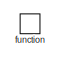
[diagram: Runnable_IMAP_10ms_sys - part 1/36, top right region]
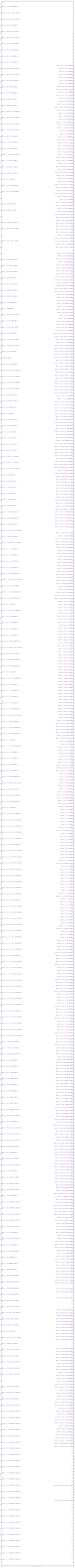
[diagram: Runnable_IMAP_10ms_sys - part 2/36, right side, full height]
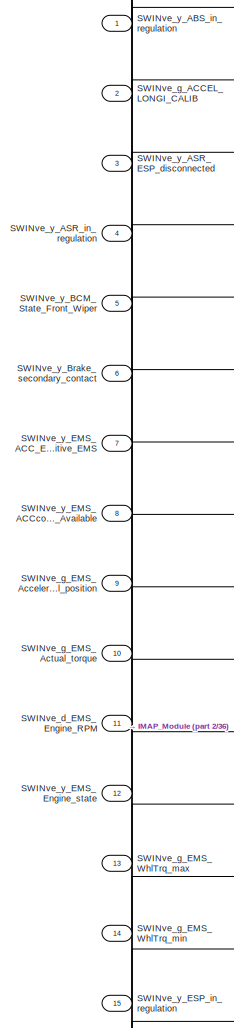
[diagram: Runnable_IMAP_10ms_sys - part 3/36, top right region]
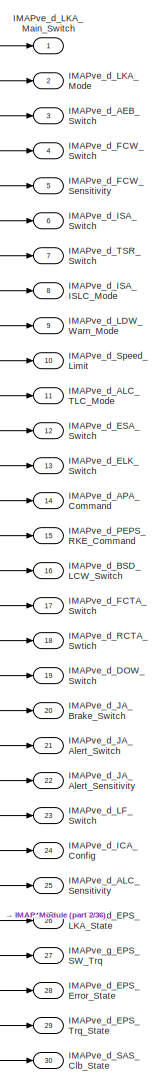
[diagram: Runnable_IMAP_10ms_sys - part 4/36, top right region]
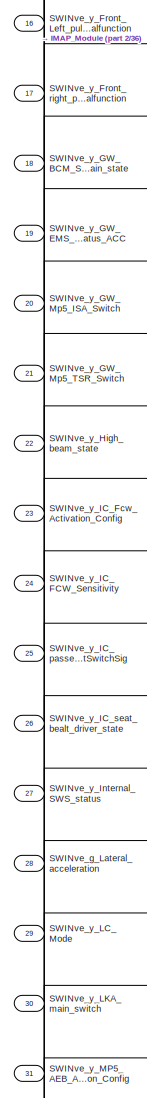
[diagram: Runnable_IMAP_10ms_sys - part 5/36, top right region]
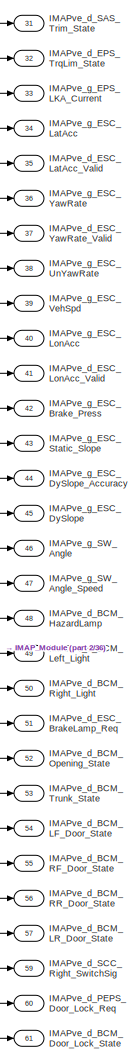
[diagram: Runnable_IMAP_10ms_sys - part 6/36, top right region]
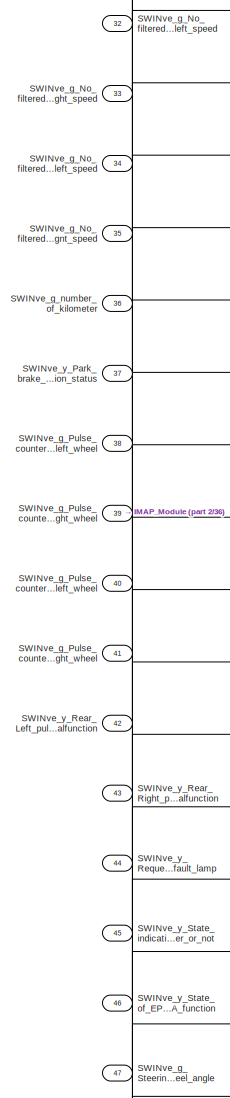
[diagram: Runnable_IMAP_10ms_sys - part 7/36, top right region]
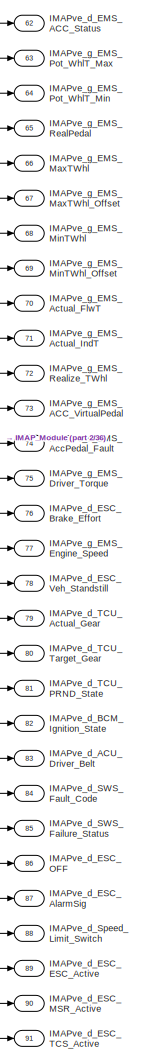
[diagram: Runnable_IMAP_10ms_sys - part 8/36, top right region]
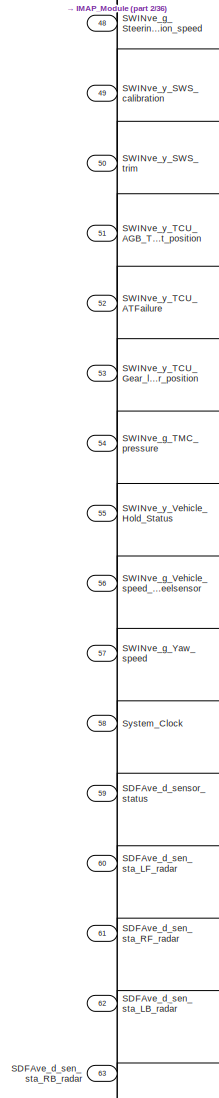
[diagram: Runnable_IMAP_10ms_sys - part 9/36, top right region]
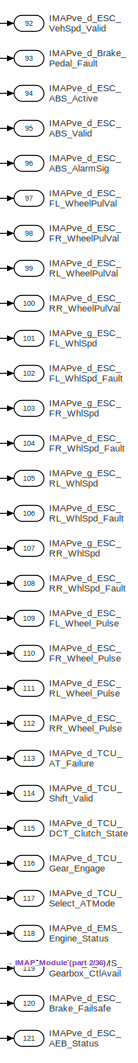
[diagram: Runnable_IMAP_10ms_sys - part 10/36, top right region]
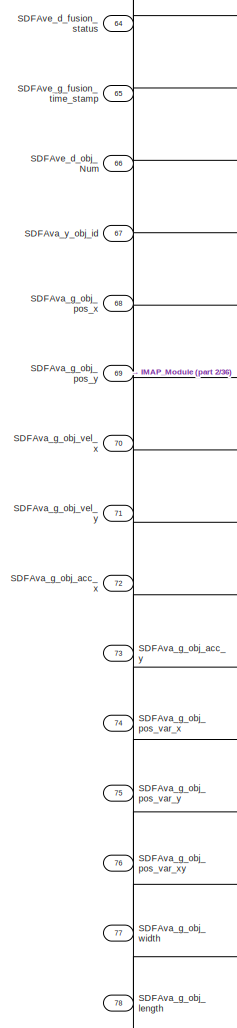
[diagram: Runnable_IMAP_10ms_sys - part 11/36, top right region]
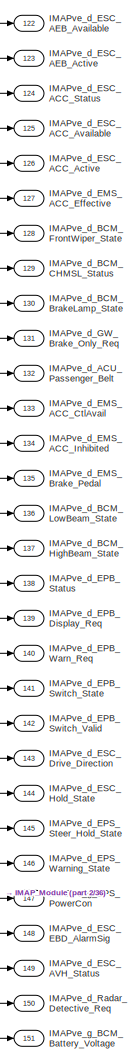
[diagram: Runnable_IMAP_10ms_sys - part 12/36, top right region]
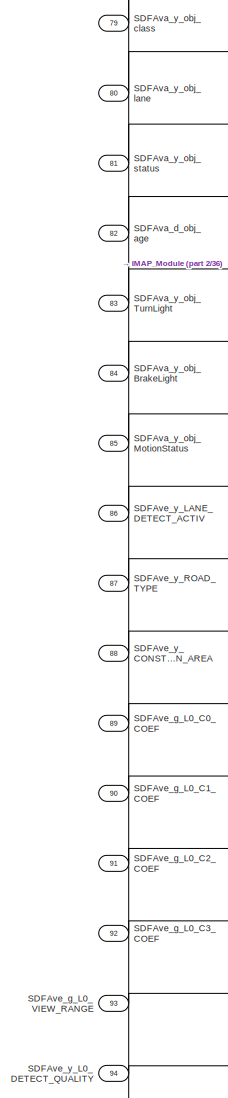
[diagram: Runnable_IMAP_10ms_sys - part 13/36, top right region]
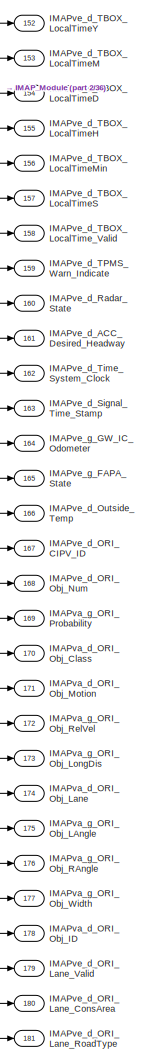
[diagram: Runnable_IMAP_10ms_sys - part 14/36, top right region]
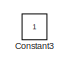
[diagram: Runnable_IMAP_10ms_sys - part 15/36, top left region]
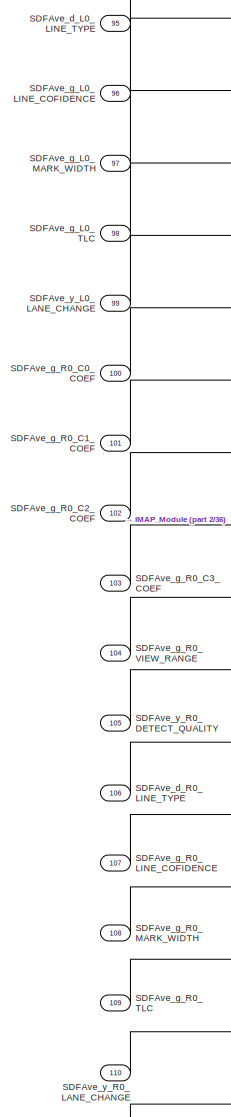
[diagram: Runnable_IMAP_10ms_sys - part 16/36, top right region]
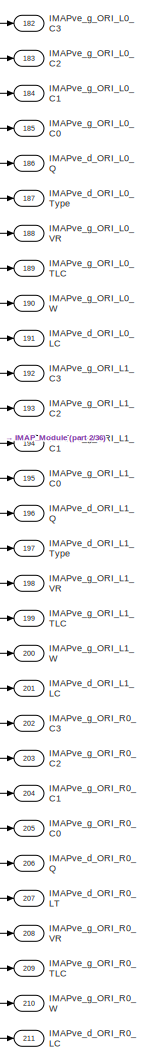
[diagram: Runnable_IMAP_10ms_sys - part 17/36, top right region]
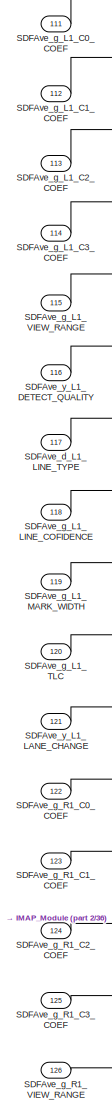
[diagram: Runnable_IMAP_10ms_sys - part 18/36, middle right region]
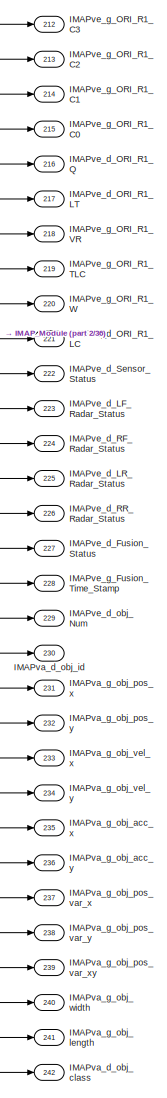
[diagram: Runnable_IMAP_10ms_sys - part 19/36, middle right region]
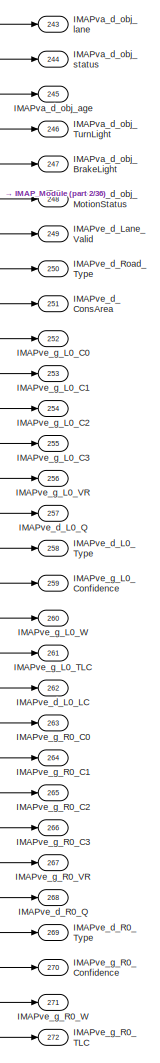
[diagram: Runnable_IMAP_10ms_sys - part 20/36, middle right region]
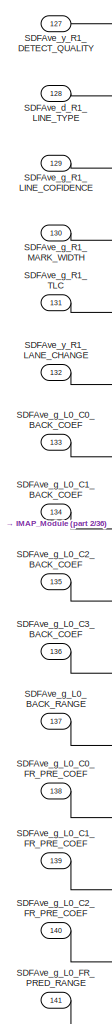
[diagram: Runnable_IMAP_10ms_sys - part 21/36, middle right region]
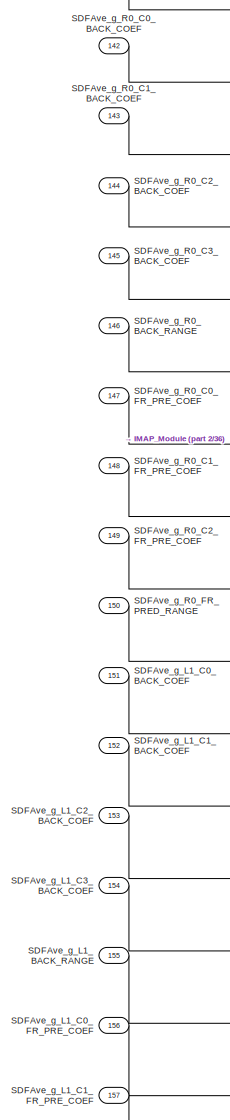
[diagram: Runnable_IMAP_10ms_sys - part 22/36, middle right region]
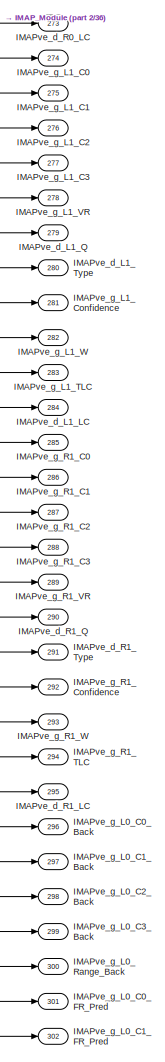
[diagram: Runnable_IMAP_10ms_sys - part 23/36, middle right region]
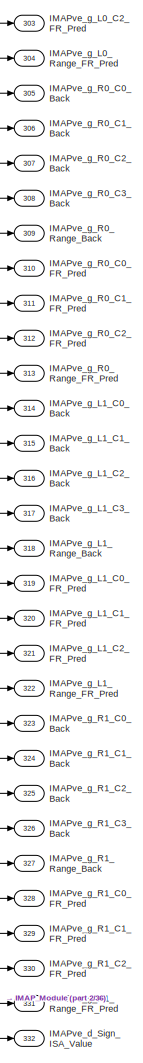
[diagram: Runnable_IMAP_10ms_sys - part 24/36, middle right region]
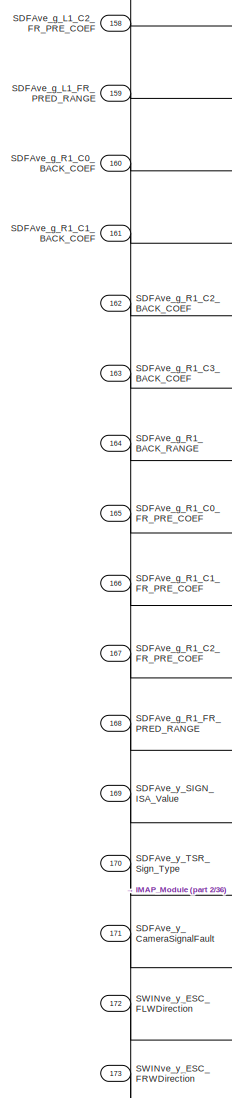
[diagram: Runnable_IMAP_10ms_sys - part 25/36, middle right region]
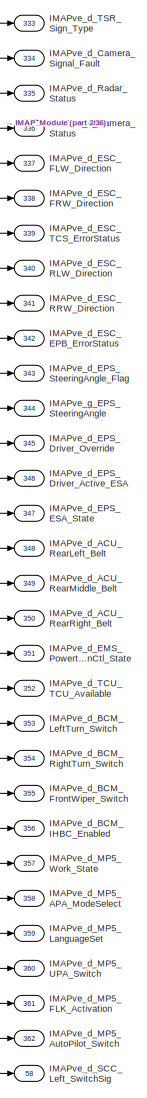
[diagram: Runnable_IMAP_10ms_sys - part 26/36, middle right region]
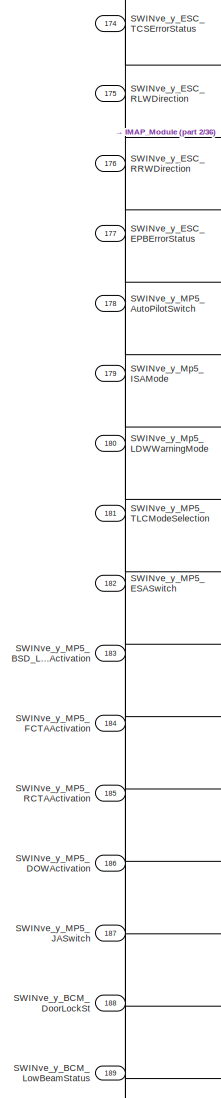
[diagram: Runnable_IMAP_10ms_sys - part 27/36, middle right region]
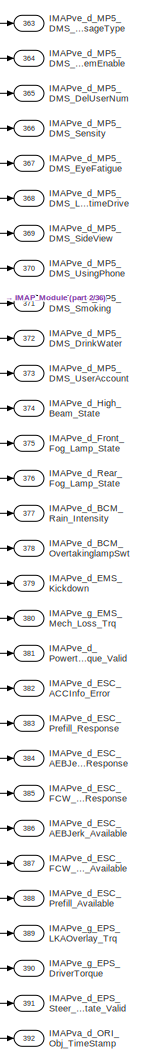
[diagram: Runnable_IMAP_10ms_sys - part 28/36, middle right region]
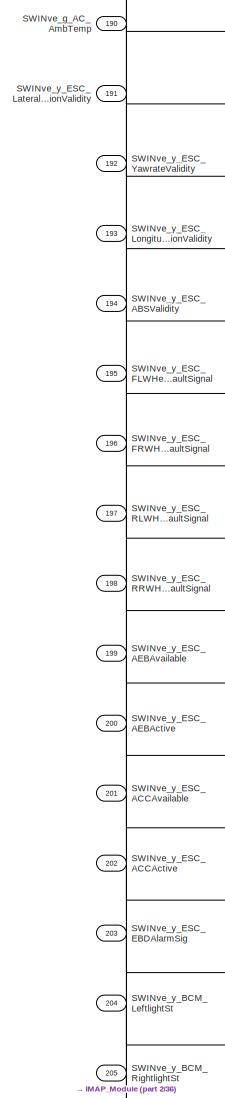
[diagram: Runnable_IMAP_10ms_sys - part 29/36, middle right region]
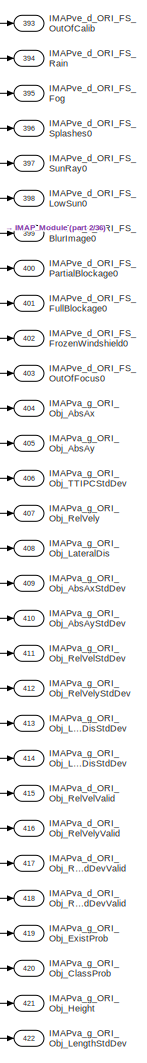
[diagram: Runnable_IMAP_10ms_sys - part 30/36, middle right region]
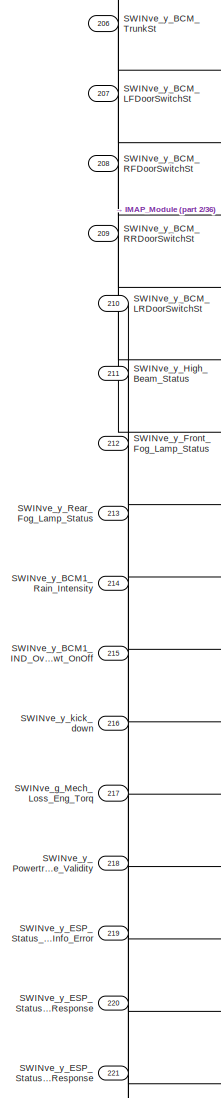
[diagram: Runnable_IMAP_10ms_sys - part 31/36, middle right region]
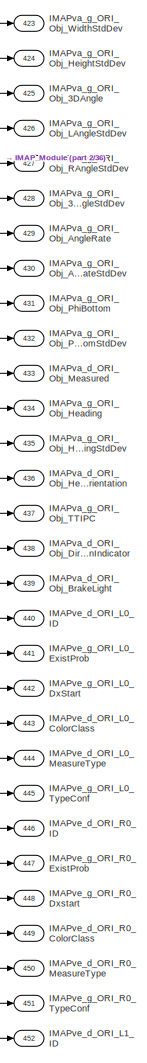
[diagram: Runnable_IMAP_10ms_sys - part 32/36, bottom right region]
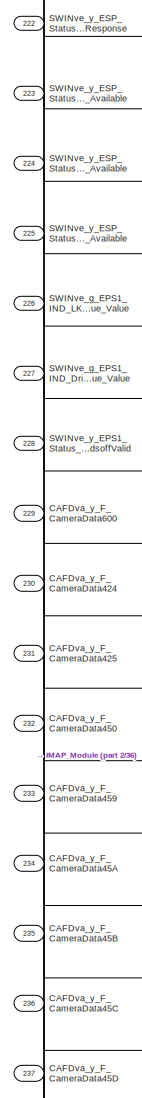
[diagram: Runnable_IMAP_10ms_sys - part 33/36, bottom right region]
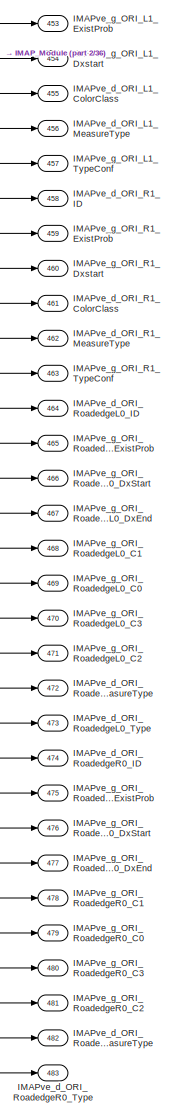
[diagram: Runnable_IMAP_10ms_sys - part 34/36, bottom right region]
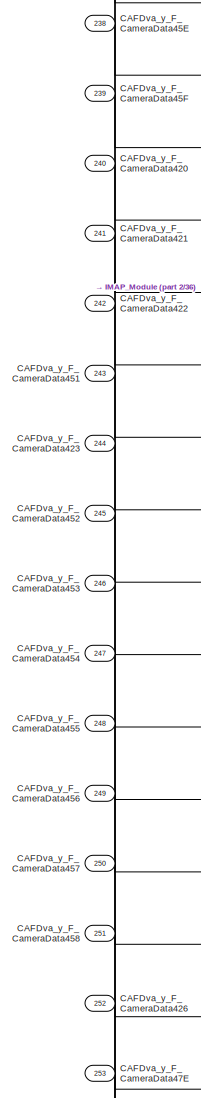
[diagram: Runnable_IMAP_10ms_sys - part 35/36, bottom right region]
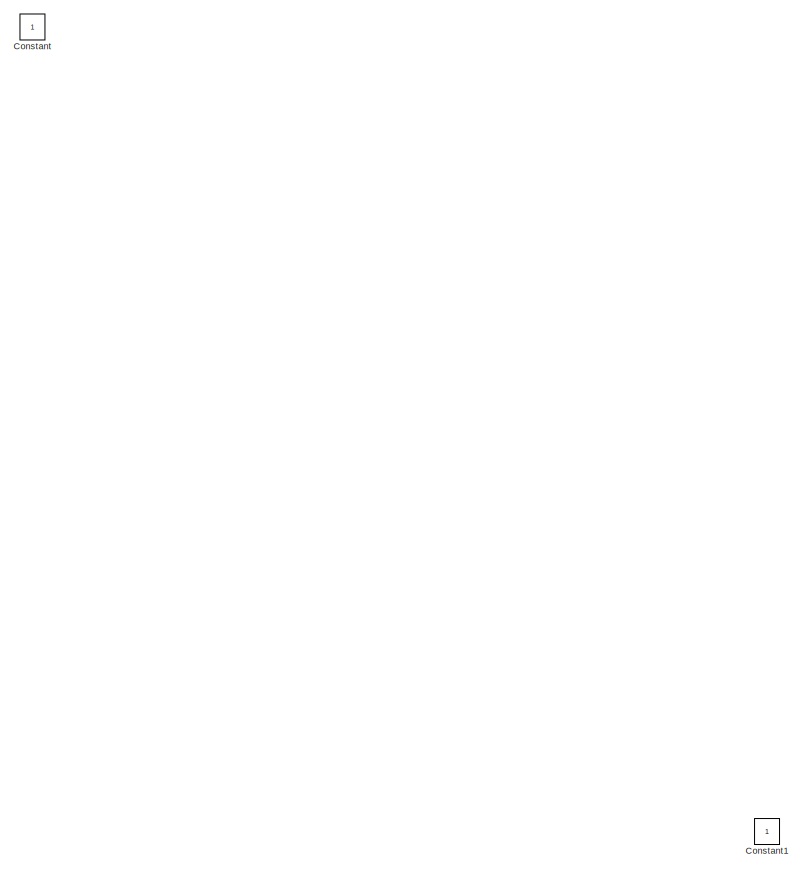
[diagram: Runnable_IMAP_10ms_sys - part 36/36, bottom center region]
BLOCK [SubSystem] Runnable_IMAP_10ms_sys
  Ports = [253, 483, 0, 1]
  RequestExecContextInheritance = off
  TreatAsAtomicUnit = on
BLOCK [Inport] Runnable_IMAP_10ms_sys/CAFDva_y_F_CameraData420
  IconDisplay = Port number
  OutDataTypeStr = uint8
  Port = 240
  PortDimensions = 66
BLOCK [Inport] Runnable_IMAP_10ms_sys/CAFDva_y_F_CameraData421
  IconDisplay = Port number
  OutDataTypeStr = uint8
  Port = 241
  PortDimensions = 66
BLOCK [Inport] Runnable_IMAP_10ms_sys/CAFDva_y_F_CameraData422
  IconDisplay = Port number
  OutDataTypeStr = uint8
  Port = 242
  PortDimensions = 66
BLOCK [Inport] Runnable_IMAP_10ms_sys/CAFDva_y_F_CameraData423
  IconDisplay = Port number
  OutDataTypeStr = uint8
  Port = 244
  PortDimensions = 66
BLOCK [Inport] Runnable_IMAP_10ms_sys/CAFDva_y_F_CameraData424
  IconDisplay = Port number
  OutDataTypeStr = uint8
  Port = 230
  PortDimensions = 66
BLOCK [Inport] Runnable_IMAP_10ms_sys/CAFDva_y_F_CameraData425
  IconDisplay = Port number
  OutDataTypeStr = uint8
  Port = 231
  PortDimensions = 66
BLOCK [Inport] Runnable_IMAP_10ms_sys/CAFDva_y_F_CameraData426
  IconDisplay = Port number
  OutDataTypeStr = uint8
  Port = 252
  PortDimensions = 66
BLOCK [Inport] Runnable_IMAP_10ms_sys/CAFDva_y_F_CameraData450
  IconDisplay = Port number
  OutDataTypeStr = uint8
  Port = 232
  PortDimensions = 66
BLOCK [Inport] Runnable_IMAP_10ms_sys/CAFDva_y_F_CameraData451
  IconDisplay = Port number
  OutDataTypeStr = uint8
  Port = 243
  PortDimensions = 66
BLOCK [Inport] Runnable_IMAP_10ms_sys/CAFDva_y_F_CameraData452
  IconDisplay = Port number
  OutDataTypeStr = uint8
  Port = 245
  PortDimensions = 66
BLOCK [Inport] Runnable_IMAP_10ms_sys/CAFDva_y_F_CameraData453
  IconDisplay = Port number
  OutDataTypeStr = uint8
  Port = 246
  PortDimensions = 66
BLOCK [Inport] Runnable_IMAP_10ms_sys/CAFDva_y_F_CameraData454
  IconDisplay = Port number
  OutDataTypeStr = uint8
  Port = 247
  PortDimensions = 66
BLOCK [Inport] Runnable_IMAP_10ms_sys/CAFDva_y_F_CameraData455
  IconDisplay = Port number
  OutDataTypeStr = uint8
  Port = 248
  PortDimensions = 66
BLOCK [Inport] Runnable_IMAP_10ms_sys/CAFDva_y_F_CameraData456
  IconDisplay = Port number
  OutDataTypeStr = uint8
  Port = 249
  PortDimensions = 66
BLOCK [Inport] Runnable_IMAP_10ms_sys/CAFDva_y_F_CameraData457
  IconDisplay = Port number
  OutDataTypeStr = uint8
  Port = 250
  PortDimensions = 66
BLOCK [Inport] Runnable_IMAP_10ms_sys/CAFDva_y_F_CameraData458
  IconDisplay = Port number
  OutDataTypeStr = uint8
  Port = 251
  PortDimensions = 66
BLOCK [Inport] Runnable_IMAP_10ms_sys/CAFDva_y_F_CameraData459
  IconDisplay = Port number
  OutDataTypeStr = uint8
  Port = 233
  PortDimensions = 66
BLOCK [Inport] Runnable_IMAP_10ms_sys/CAFDva_y_F_CameraData45A
  IconDisplay = Port number
  OutDataTypeStr = uint8
  Port = 234
  PortDimensions = 66
BLOCK [Inport] Runnable_IMAP_10ms_sys/CAFDva_y_F_CameraData45B
  IconDisplay = Port number
  OutDataTypeStr = uint8
  Port = 235
  PortDimensions = 66
BLOCK [Inport] Runnable_IMAP_10ms_sys/CAFDva_y_F_CameraData45C
  IconDisplay = Port number
  OutDataTypeStr = uint8
  Port = 236
  PortDimensions = 66
BLOCK [Inport] Runnable_IMAP_10ms_sys/CAFDva_y_F_CameraData45D
  IconDisplay = Port number
  OutDataTypeStr = uint8
  Port = 237
  PortDimensions = 66
BLOCK [Inport] Runnable_IMAP_10ms_sys/CAFDva_y_F_CameraData45E
  IconDisplay = Port number
  OutDataTypeStr = uint8
  Port = 238
  PortDimensions = 66
BLOCK [Inport] Runnable_IMAP_10ms_sys/CAFDva_y_F_CameraData45F
  IconDisplay = Port number
  OutDataTypeStr = uint8
  Port = 239
  PortDimensions = 66
BLOCK [Inport] Runnable_IMAP_10ms_sys/CAFDva_y_F_CameraData47E
  IconDisplay = Port number
  OutDataTypeStr = uint8
  Port = 253
  PortDimensions = 66
BLOCK [Inport] Runnable_IMAP_10ms_sys/CAFDva_y_F_CameraData600
  IconDisplay = Port number
  OutDataTypeStr = uint8
  Port = 229
  PortDimensions = 66
BLOCK [Constant] Runnable_IMAP_10ms_sys/Constant
BLOCK [Constant] Runnable_IMAP_10ms_sys/Constant1
BLOCK [Constant] Runnable_IMAP_10ms_sys/Constant3
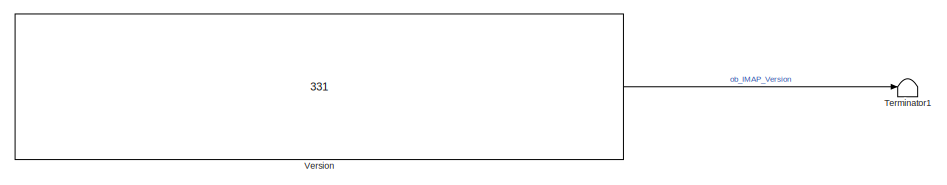
[diagram: Runnable_IMAP_10ms_sys/IMAP_Module - part 1/57, top center region]
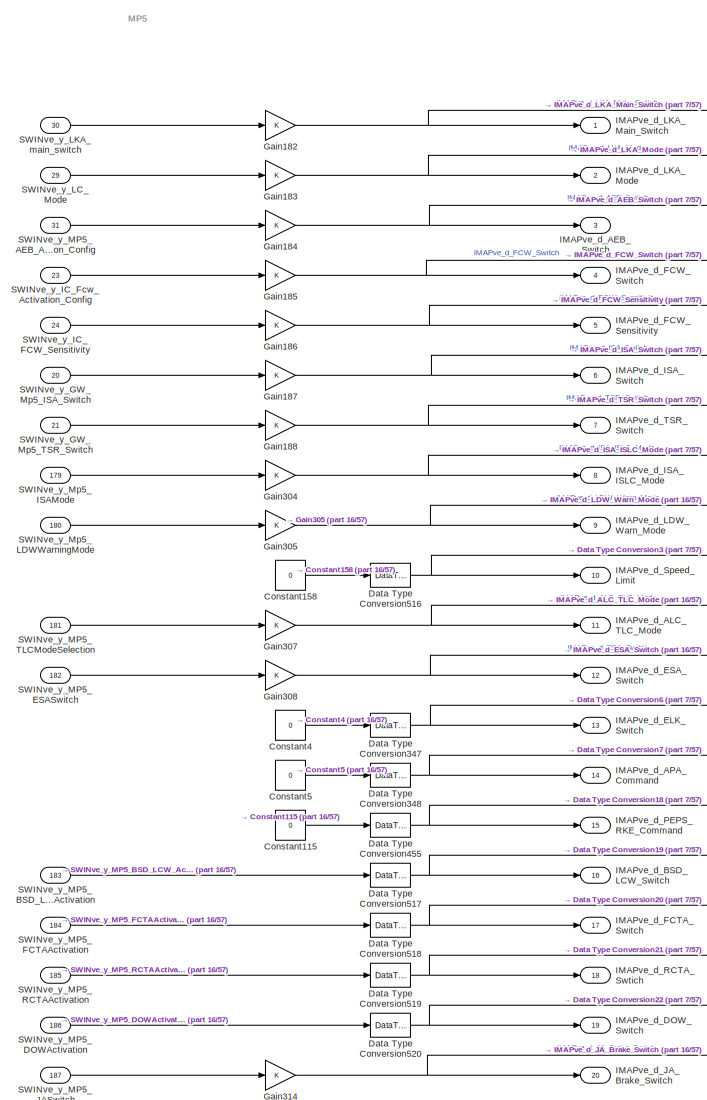
[diagram: Runnable_IMAP_10ms_sys/IMAP_Module - part 2/57, top left region]
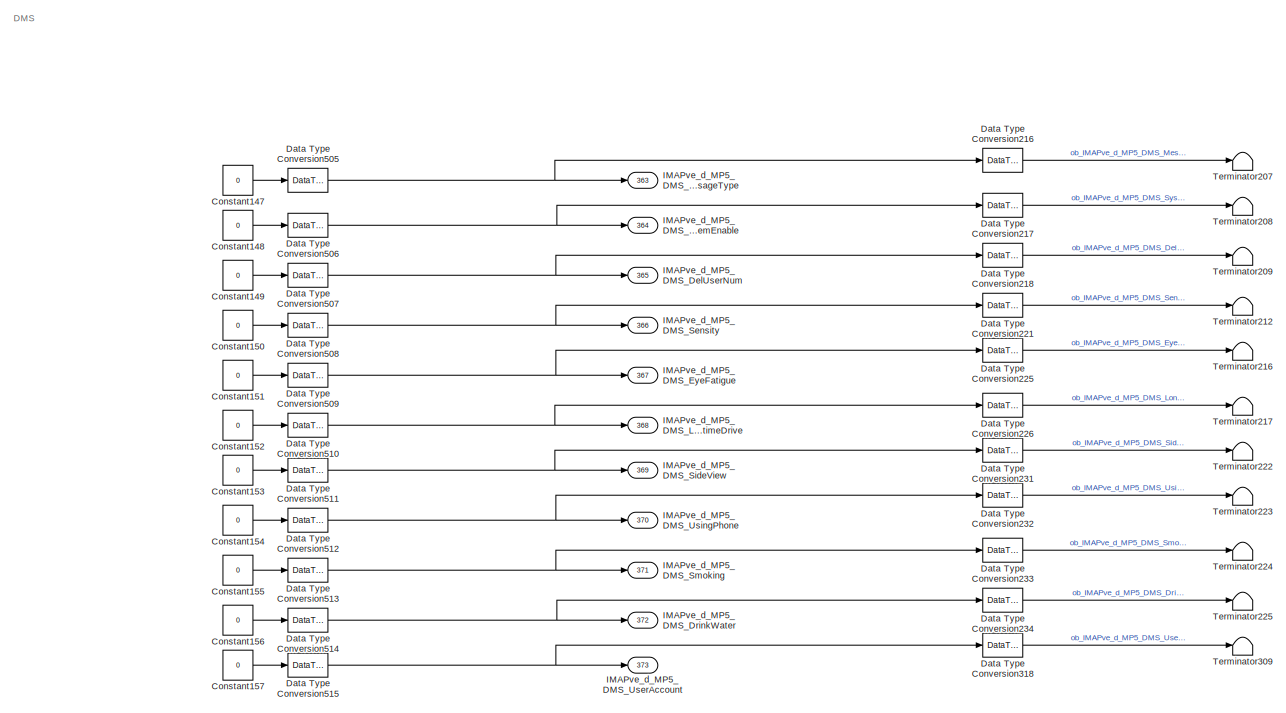
[diagram: Runnable_IMAP_10ms_sys/IMAP_Module - part 3/57, top right region]
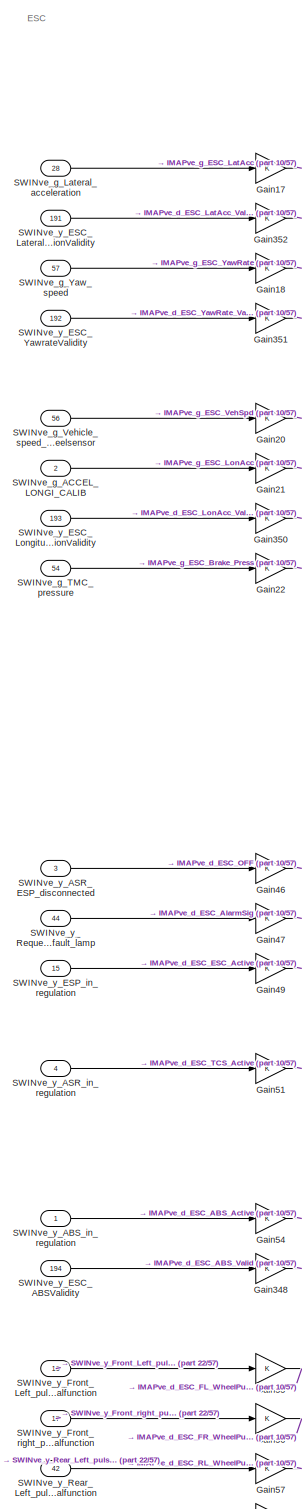
[diagram: Runnable_IMAP_10ms_sys/IMAP_Module - part 4/57, top right region]
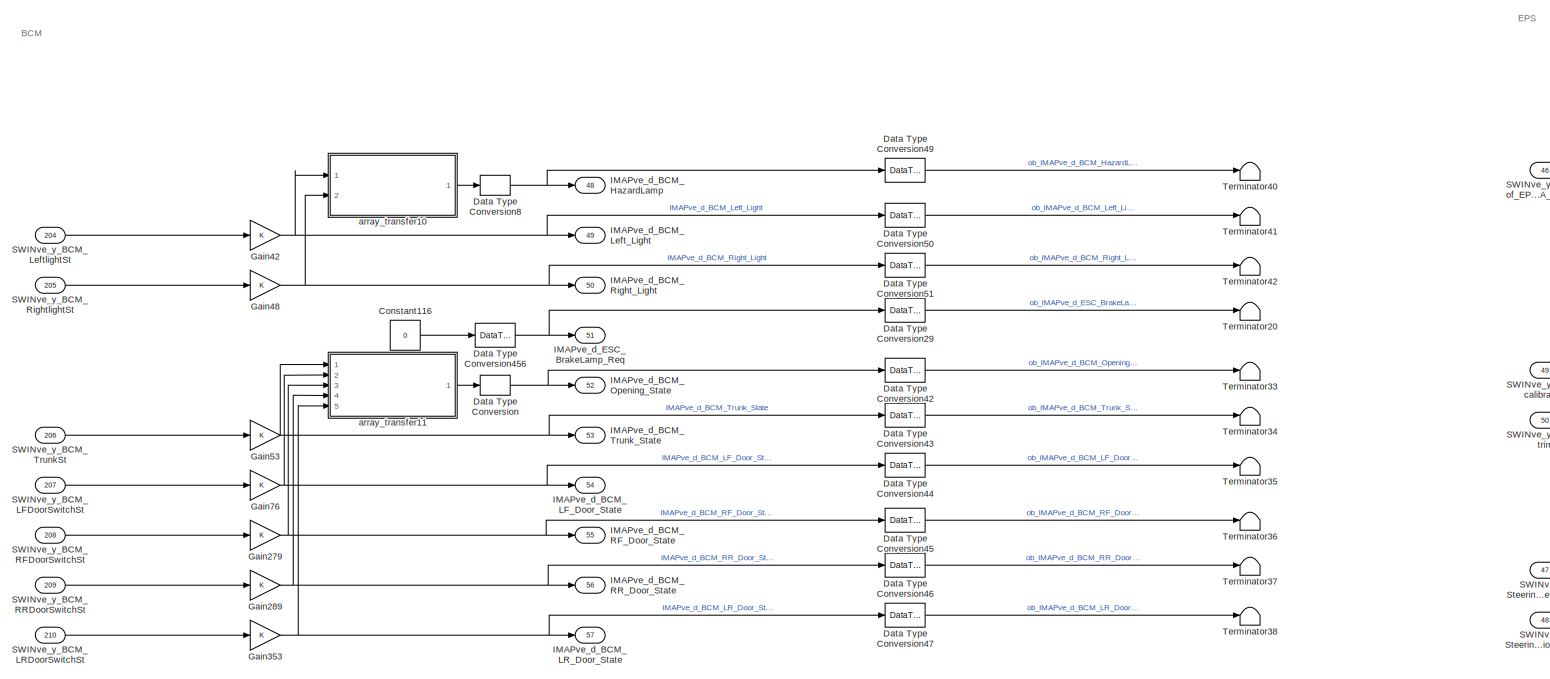
[diagram: Runnable_IMAP_10ms_sys/IMAP_Module - part 5/57, top center region]
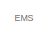
[diagram: Runnable_IMAP_10ms_sys/IMAP_Module - part 6/57, top center region]
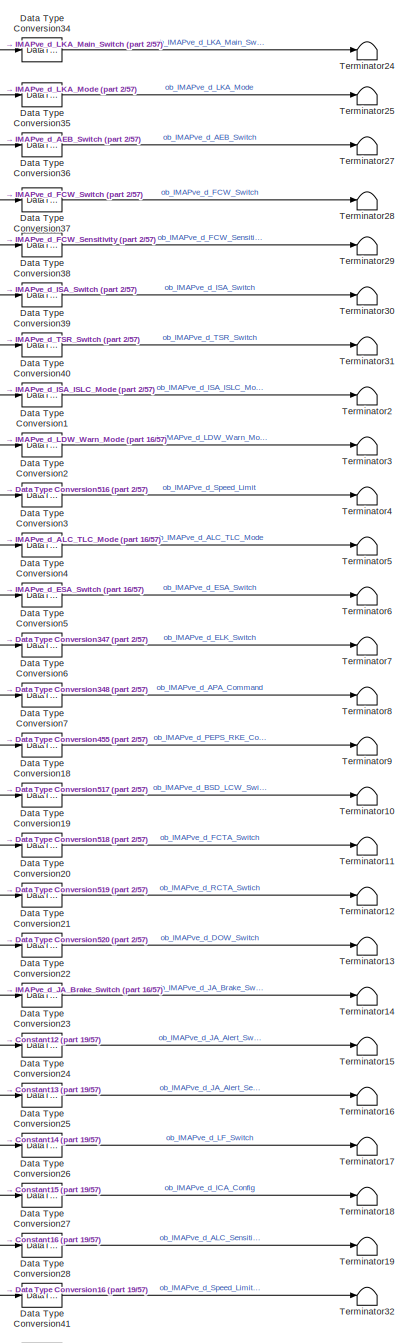
[diagram: Runnable_IMAP_10ms_sys/IMAP_Module - part 7/57, top left region]
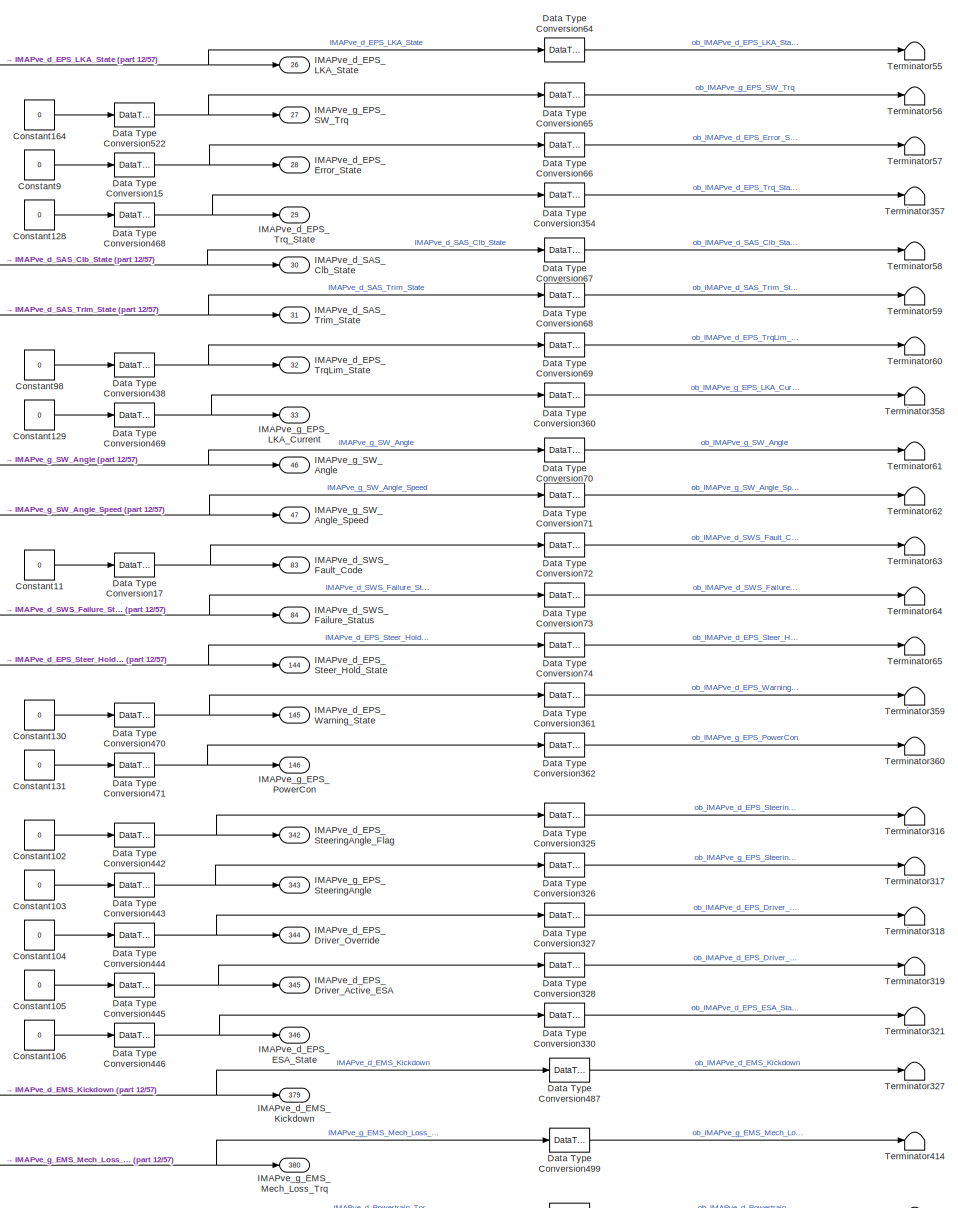
[diagram: Runnable_IMAP_10ms_sys/IMAP_Module - part 8/57, top center region]
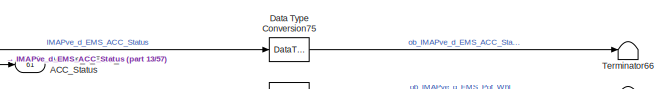
[diagram: Runnable_IMAP_10ms_sys/IMAP_Module - part 9/57, top right region]
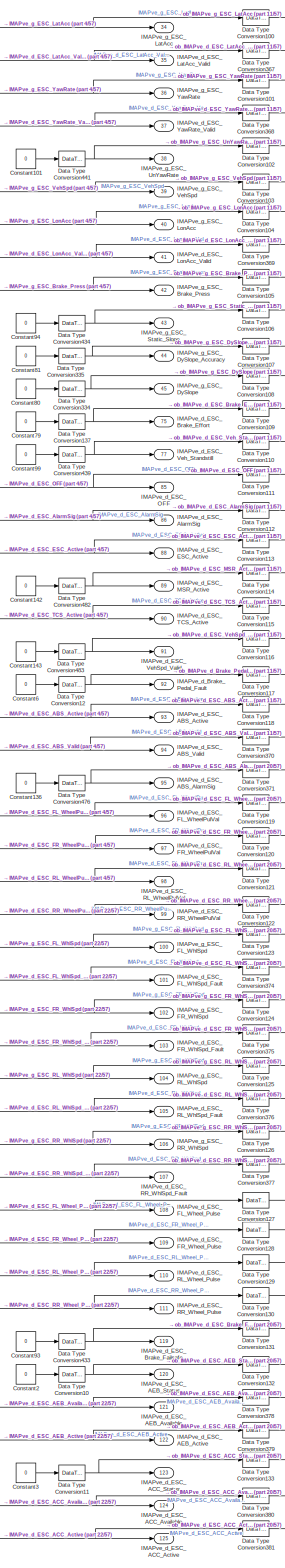
[diagram: Runnable_IMAP_10ms_sys/IMAP_Module - part 10/57, top right region]
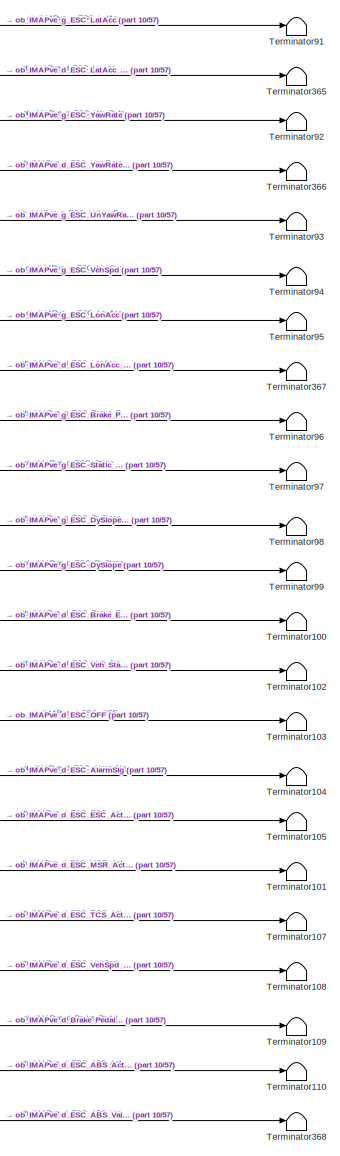
[diagram: Runnable_IMAP_10ms_sys/IMAP_Module - part 11/57, top right region]
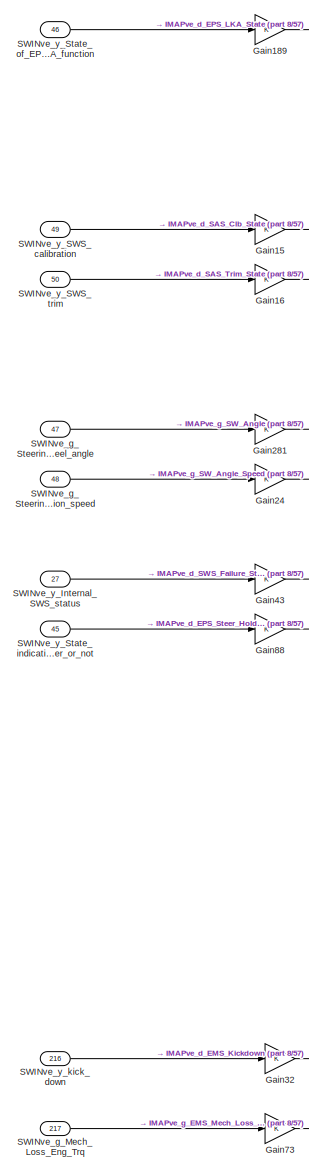
[diagram: Runnable_IMAP_10ms_sys/IMAP_Module - part 12/57, top center region]
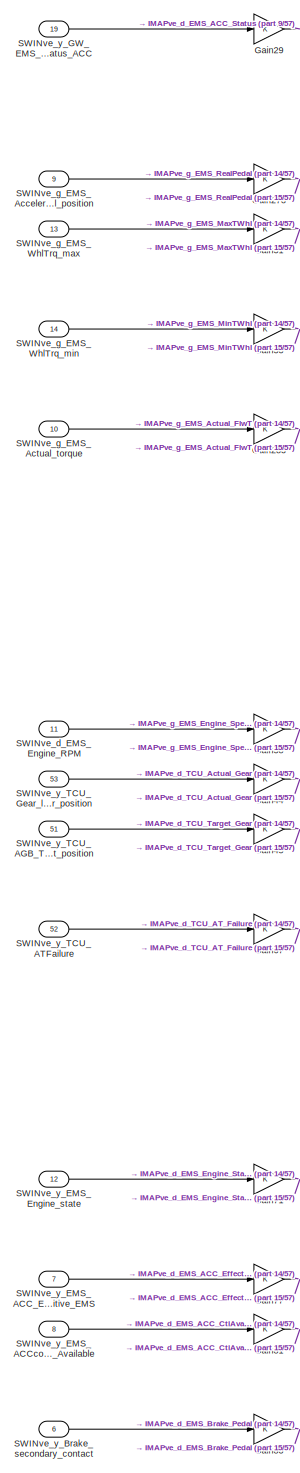
[diagram: Runnable_IMAP_10ms_sys/IMAP_Module - part 13/57, top center region]
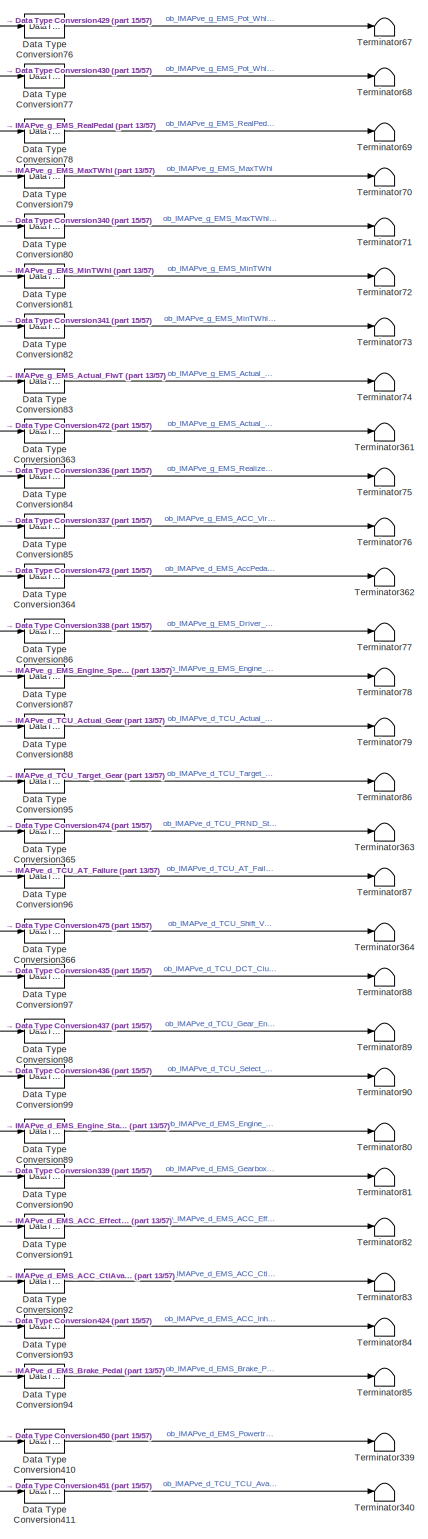
[diagram: Runnable_IMAP_10ms_sys/IMAP_Module - part 14/57, top right region]
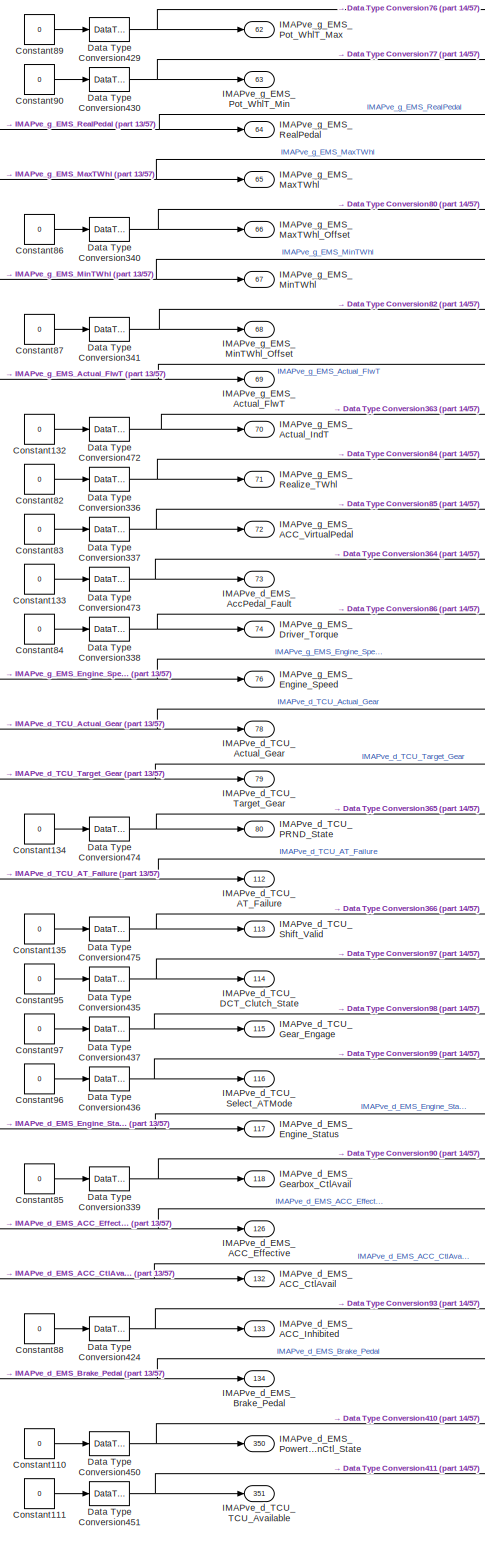
[diagram: Runnable_IMAP_10ms_sys/IMAP_Module - part 15/57, top center region]
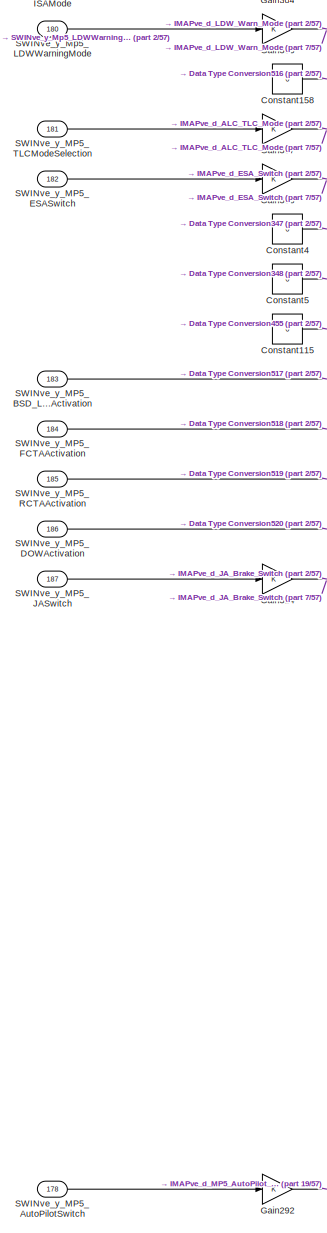
[diagram: Runnable_IMAP_10ms_sys/IMAP_Module - part 16/57, top left region]
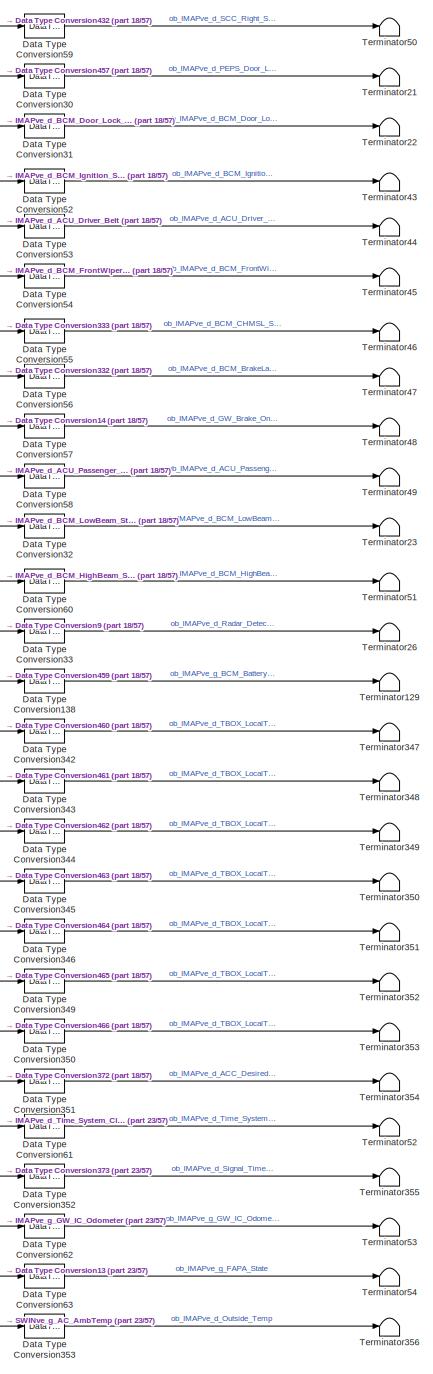
[diagram: Runnable_IMAP_10ms_sys/IMAP_Module - part 17/57, top center region]
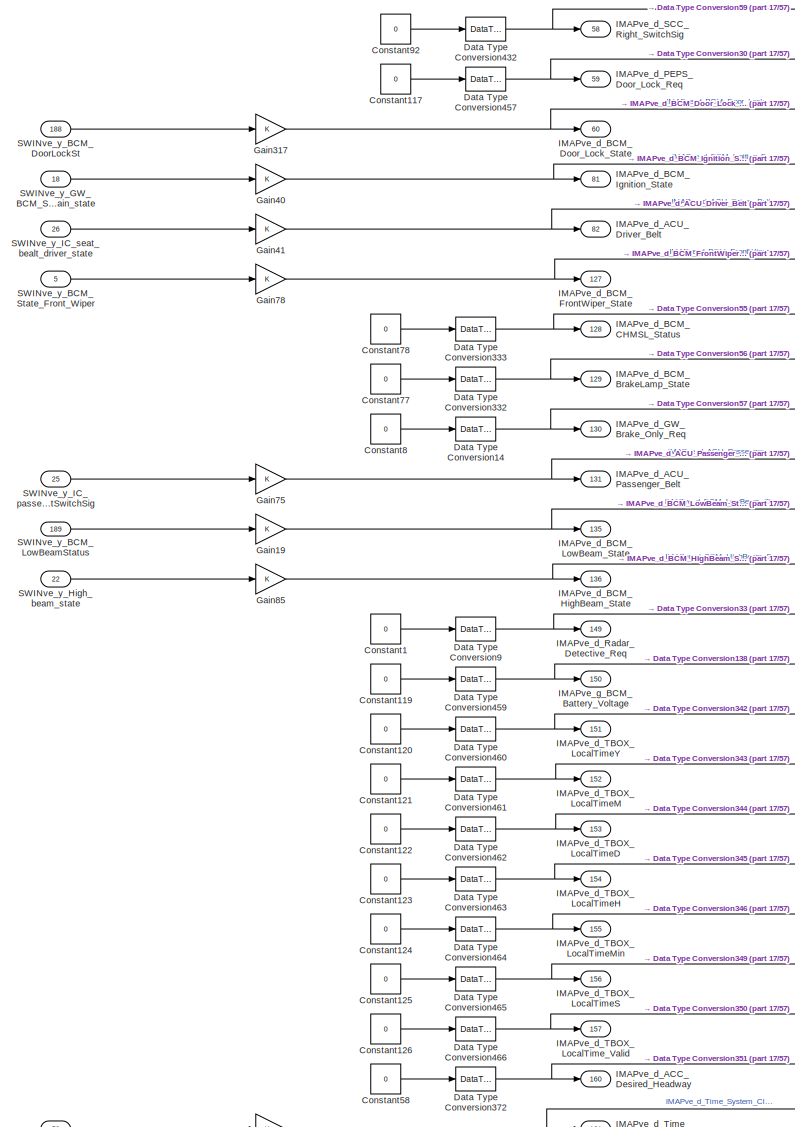
[diagram: Runnable_IMAP_10ms_sys/IMAP_Module - part 18/57, top center region]
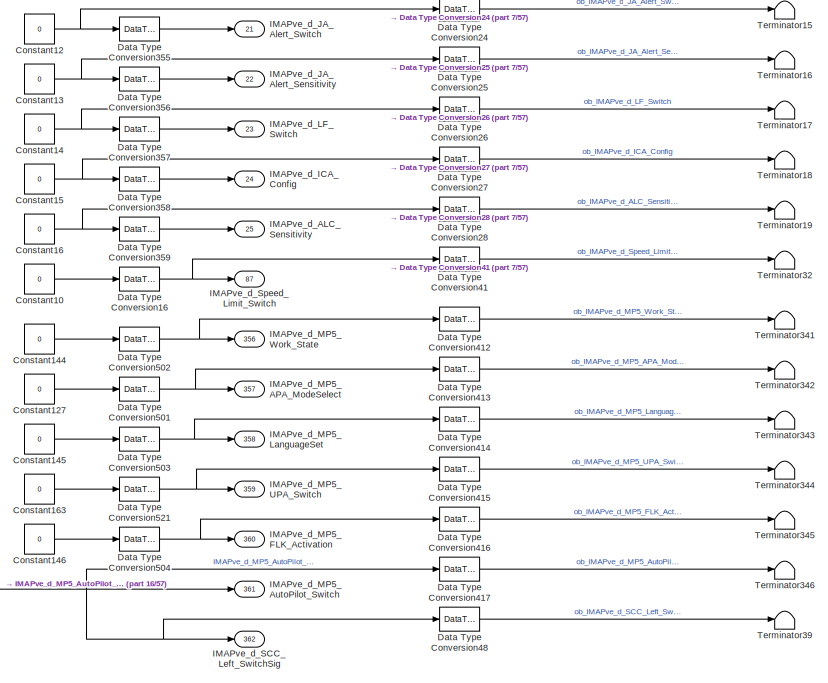
[diagram: Runnable_IMAP_10ms_sys/IMAP_Module - part 19/57, top left region]
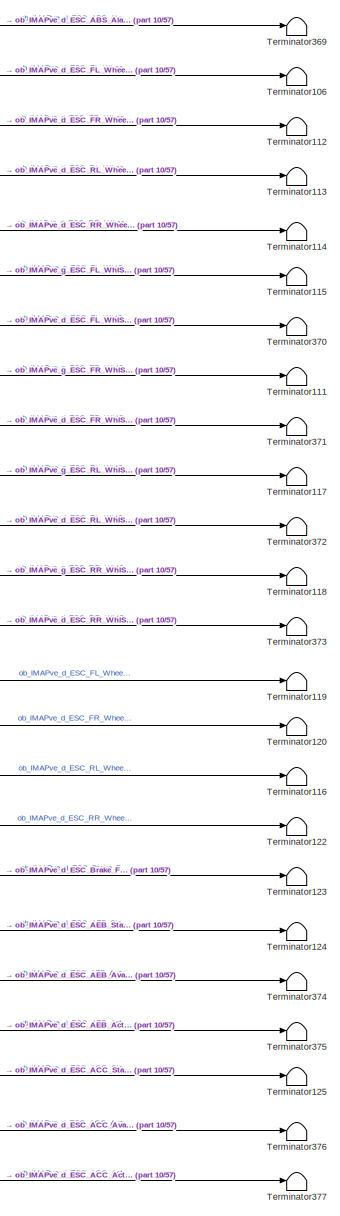
[diagram: Runnable_IMAP_10ms_sys/IMAP_Module - part 20/57, top right region]
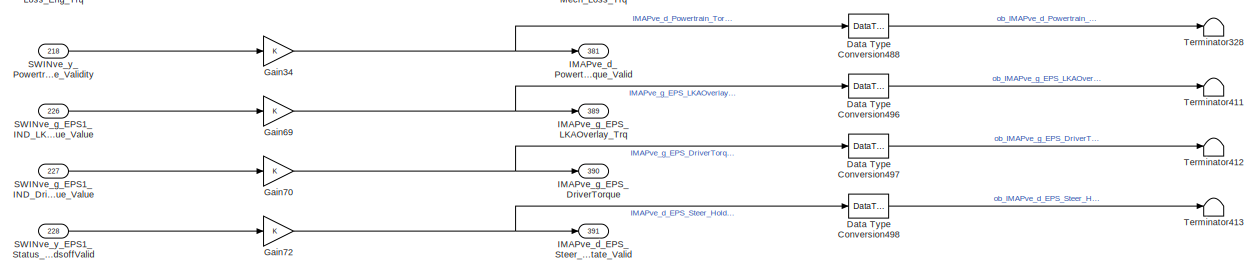
[diagram: Runnable_IMAP_10ms_sys/IMAP_Module - part 21/57, top center region]
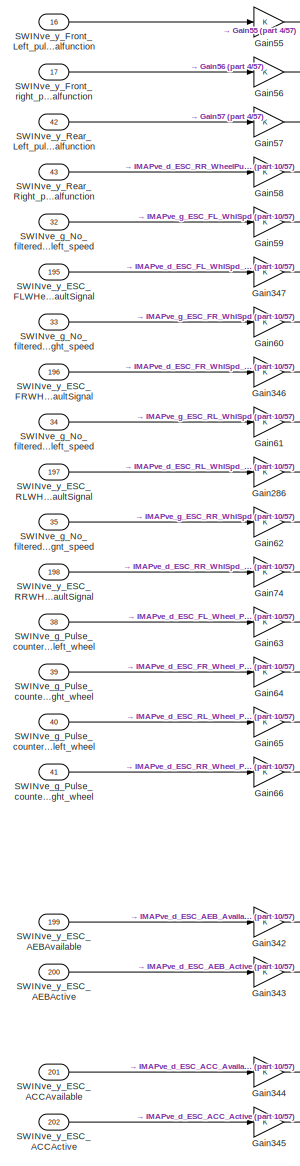
[diagram: Runnable_IMAP_10ms_sys/IMAP_Module - part 22/57, top right region]
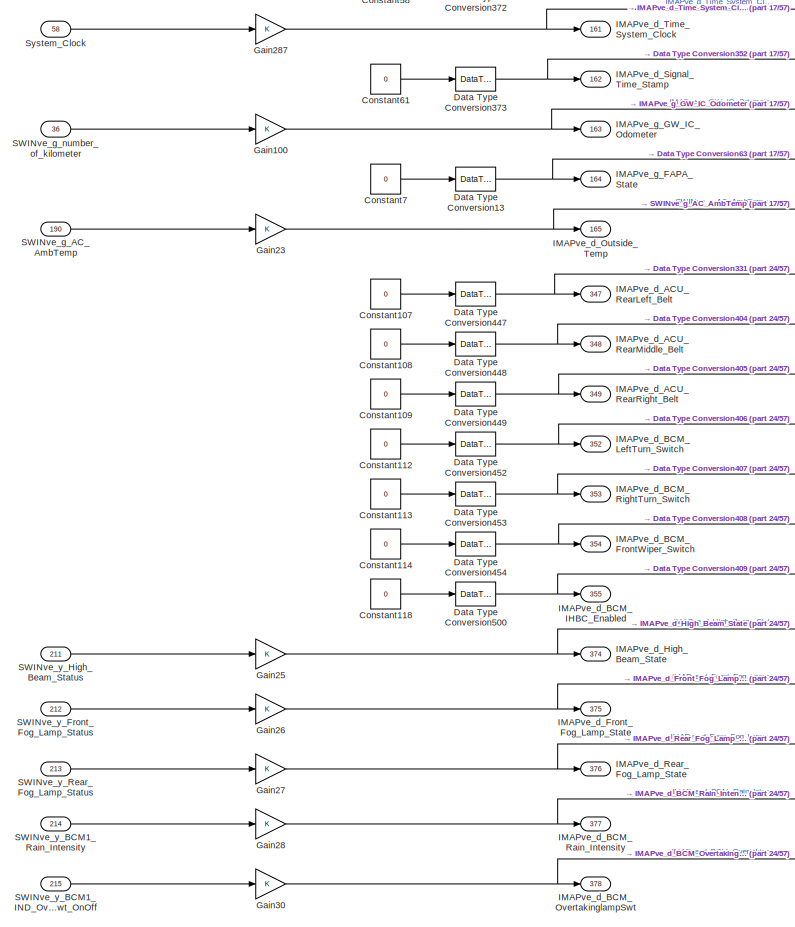
[diagram: Runnable_IMAP_10ms_sys/IMAP_Module - part 23/57, top center region]
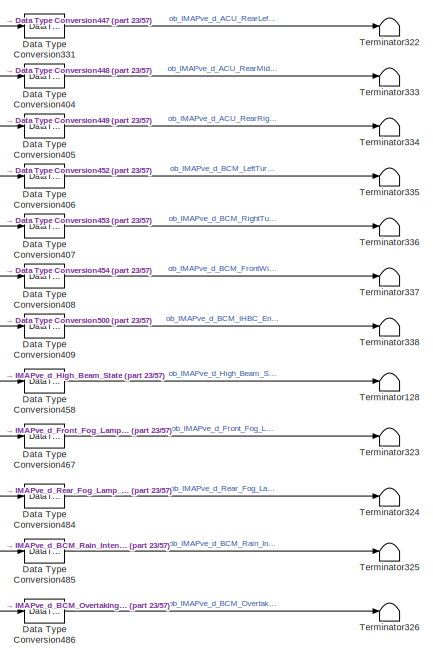
[diagram: Runnable_IMAP_10ms_sys/IMAP_Module - part 24/57, top center region]
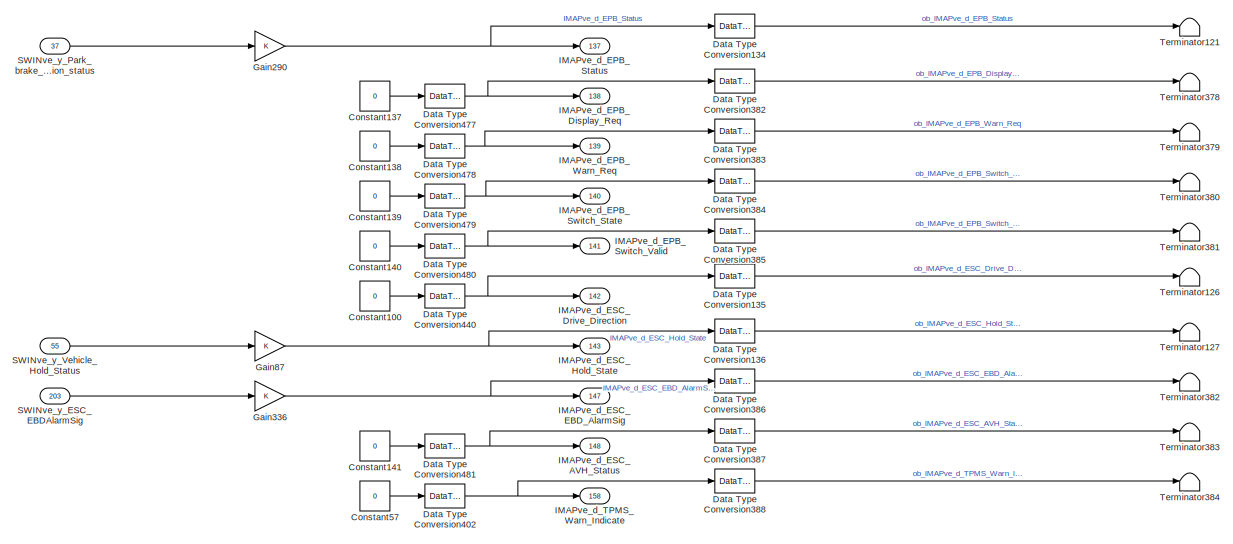
[diagram: Runnable_IMAP_10ms_sys/IMAP_Module - part 25/57, top right region]
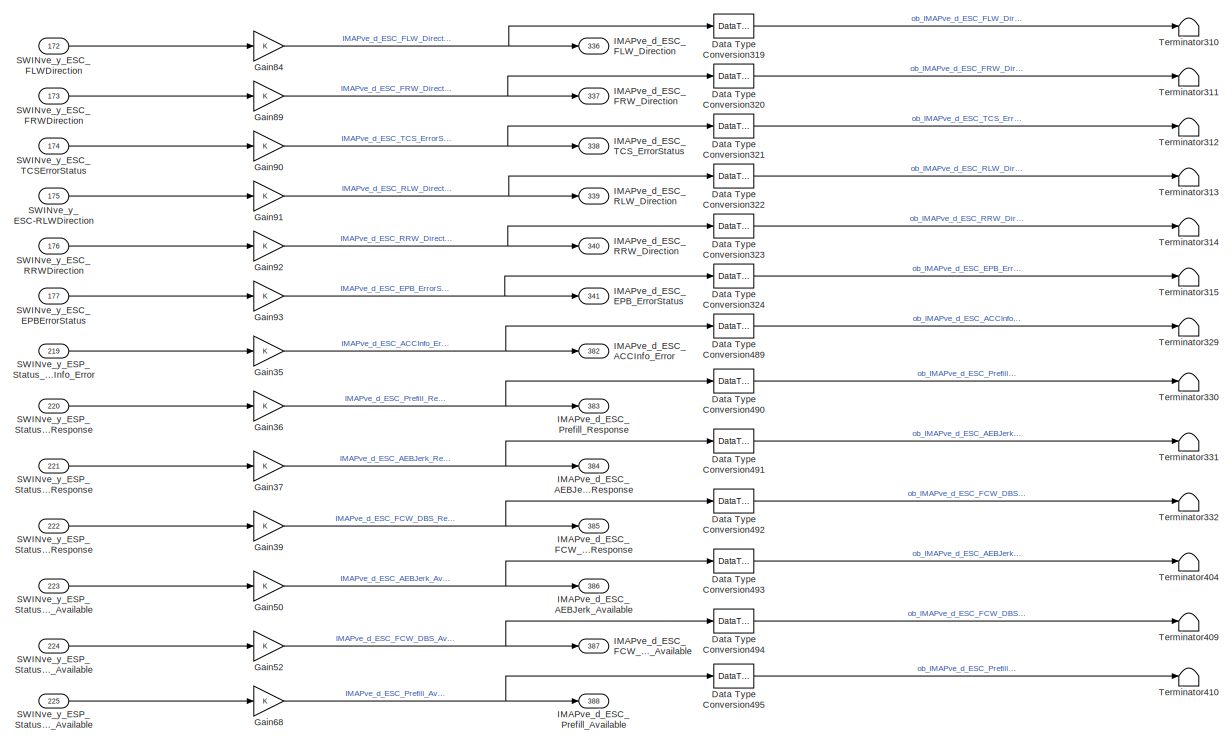
[diagram: Runnable_IMAP_10ms_sys/IMAP_Module - part 26/57, top right region]
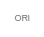
[diagram: Runnable_IMAP_10ms_sys/IMAP_Module - part 27/57, top left region]
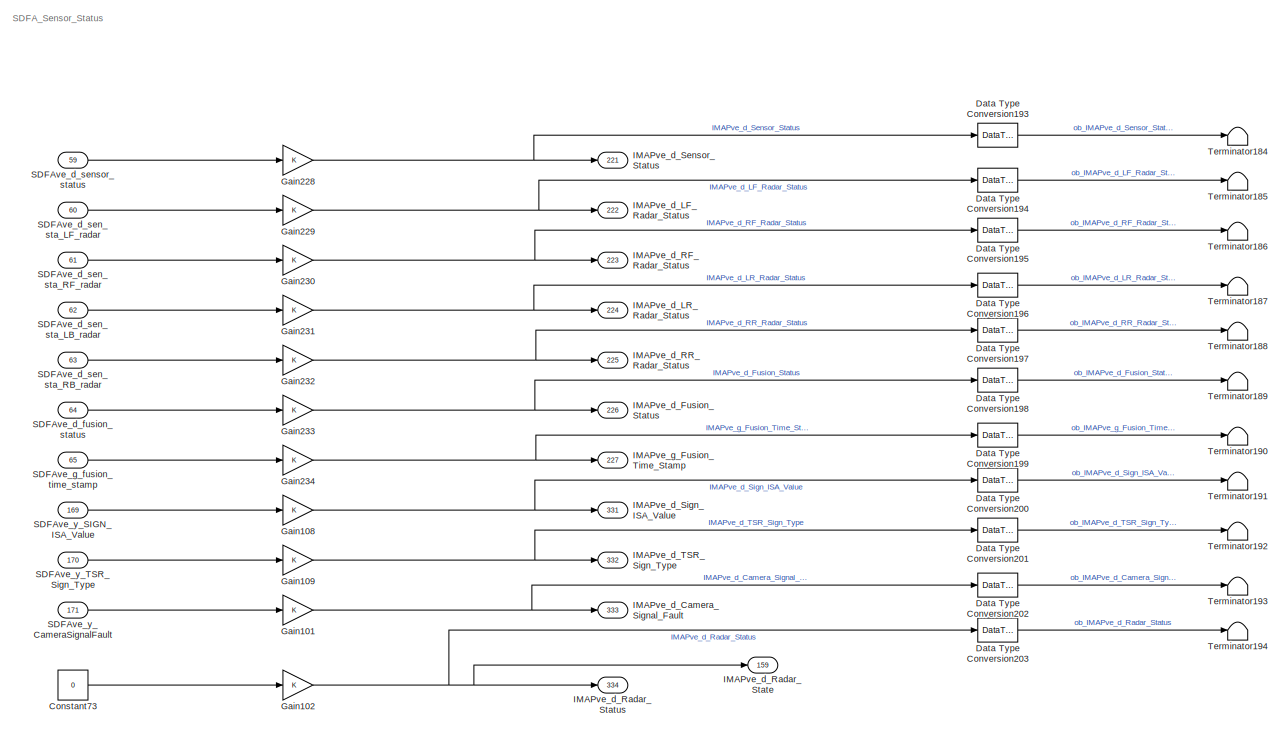
[diagram: Runnable_IMAP_10ms_sys/IMAP_Module - part 28/57, top center region]
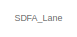
[diagram: Runnable_IMAP_10ms_sys/IMAP_Module - part 29/57, top center region]
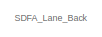
[diagram: Runnable_IMAP_10ms_sys/IMAP_Module - part 30/57, top right region]
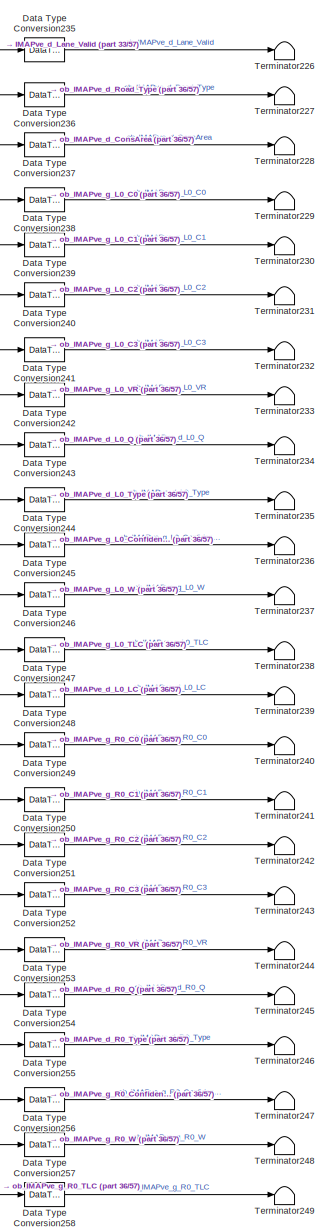
[diagram: Runnable_IMAP_10ms_sys/IMAP_Module - part 31/57, central region]
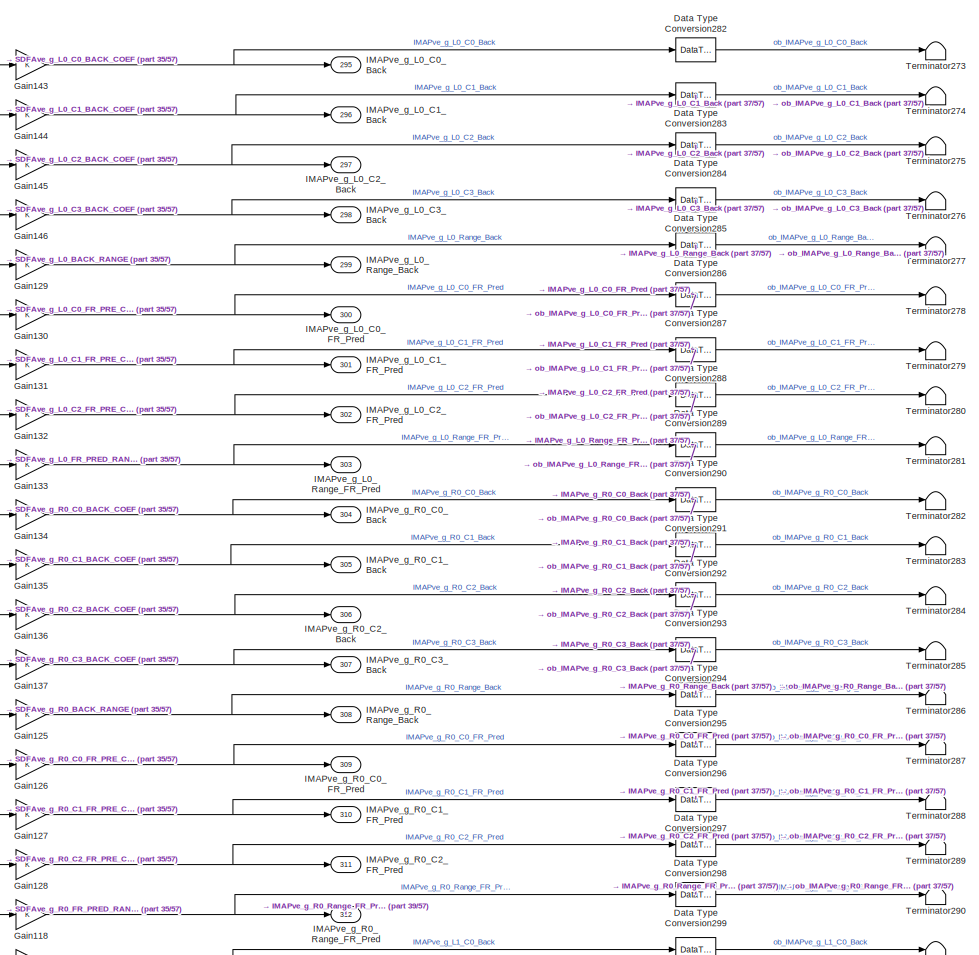
[diagram: Runnable_IMAP_10ms_sys/IMAP_Module - part 32/57, middle right region]
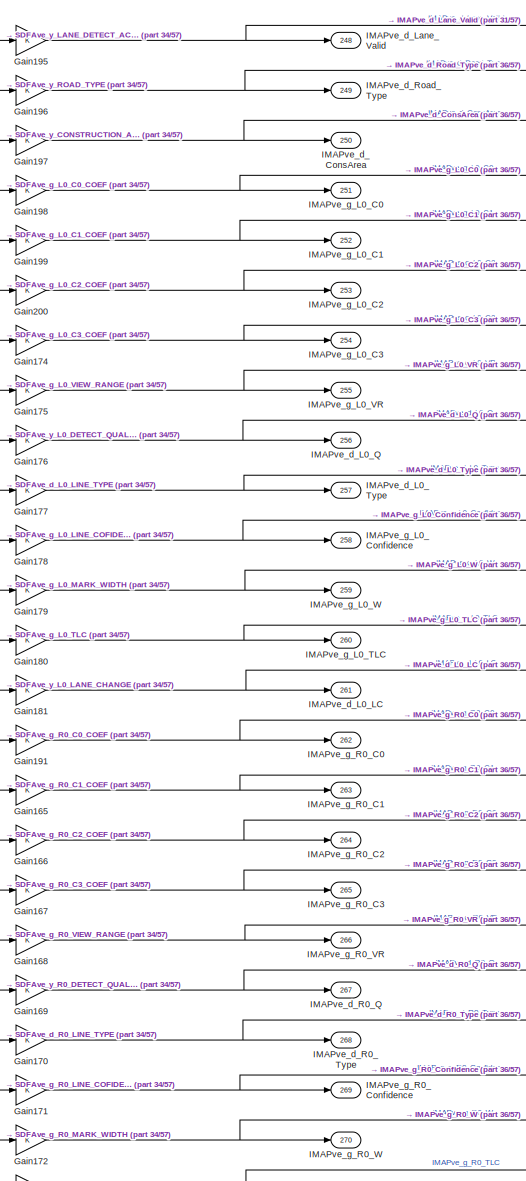
[diagram: Runnable_IMAP_10ms_sys/IMAP_Module - part 33/57, central region]
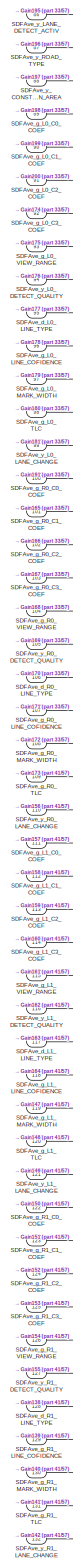
[diagram: Runnable_IMAP_10ms_sys/IMAP_Module - part 34/57, central region]
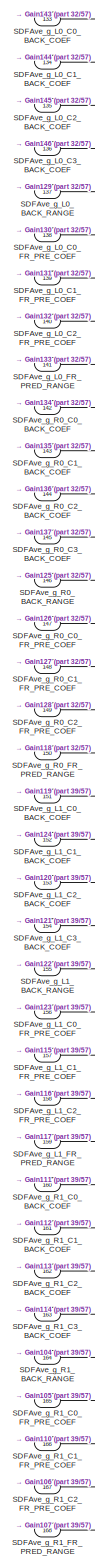
[diagram: Runnable_IMAP_10ms_sys/IMAP_Module - part 35/57, middle right region]
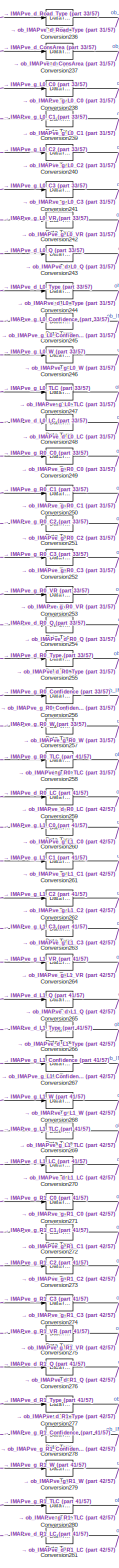
[diagram: Runnable_IMAP_10ms_sys/IMAP_Module - part 36/57, central region]
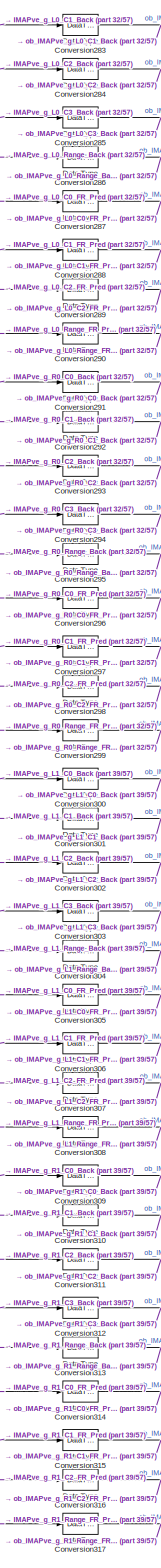
[diagram: Runnable_IMAP_10ms_sys/IMAP_Module - part 37/57, middle right region]
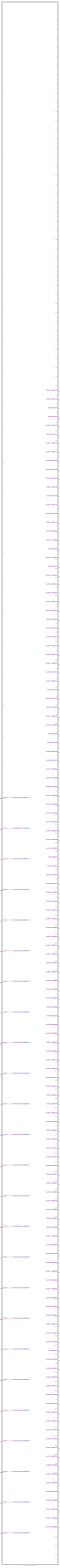
[diagram: Runnable_IMAP_10ms_sys/IMAP_Module - part 38/57, middle left region]
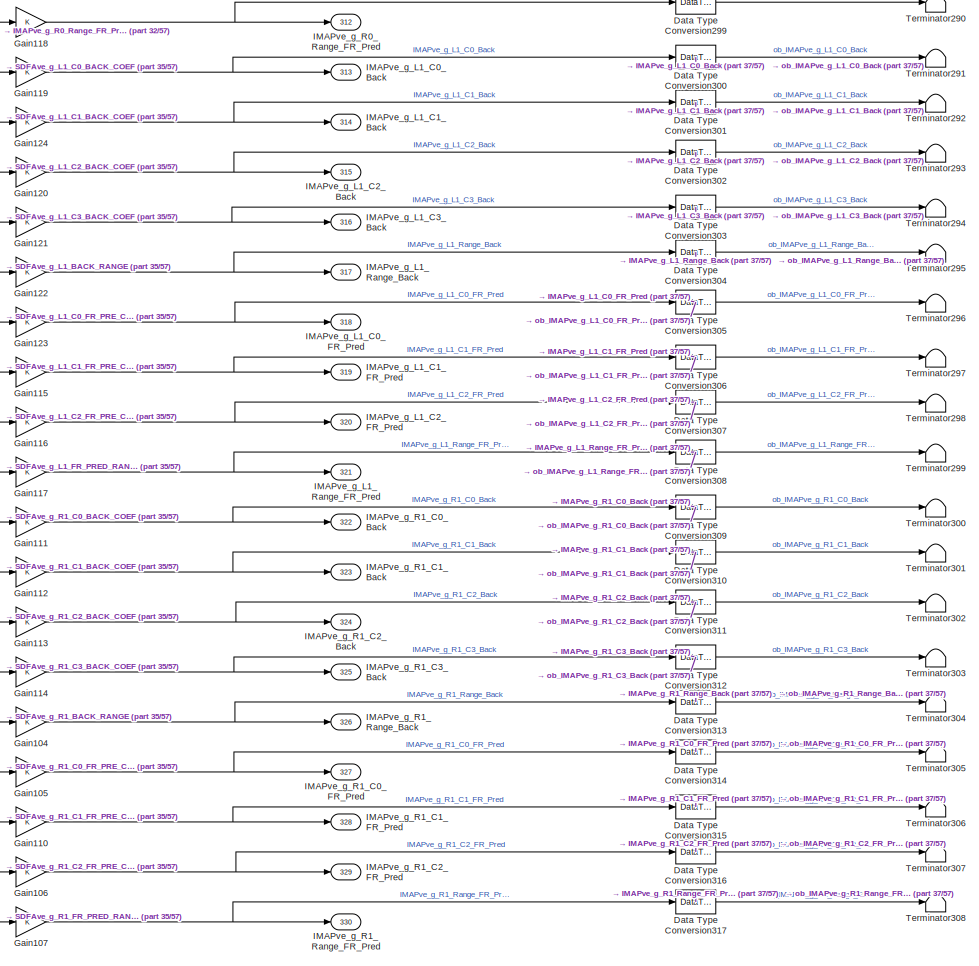
[diagram: Runnable_IMAP_10ms_sys/IMAP_Module - part 39/57, middle right region]
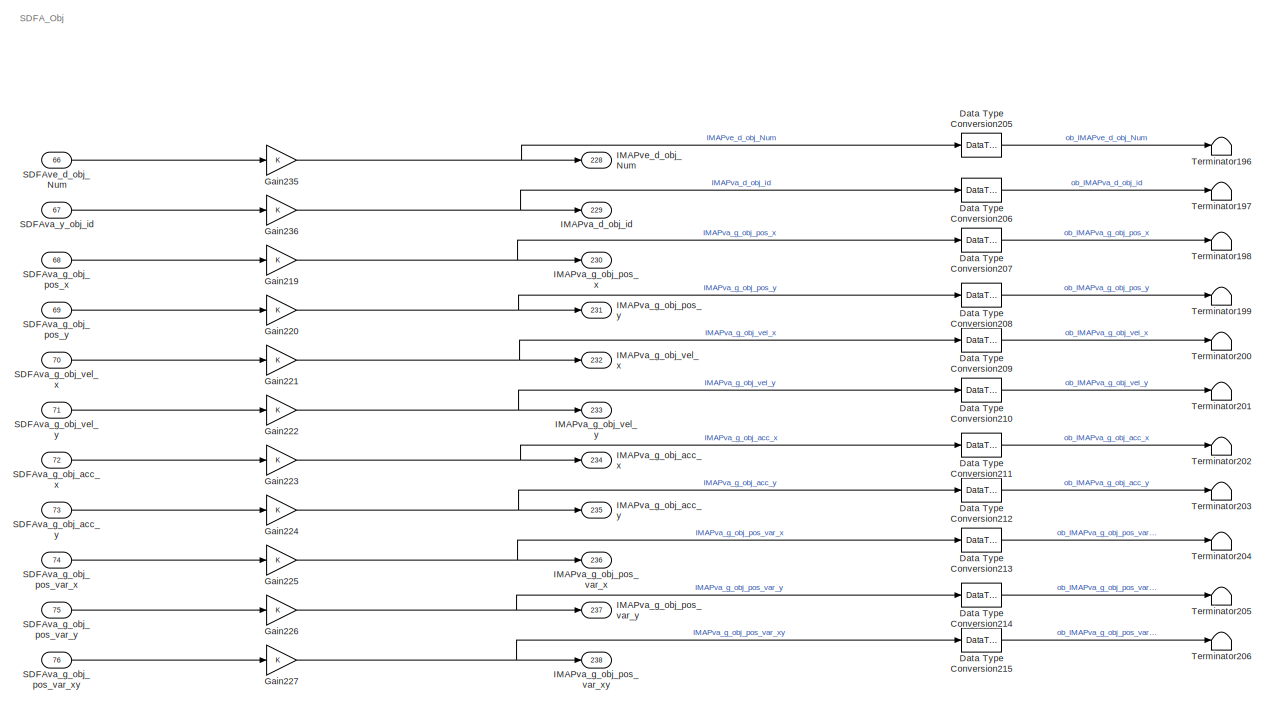
[diagram: Runnable_IMAP_10ms_sys/IMAP_Module - part 40/57, central region]
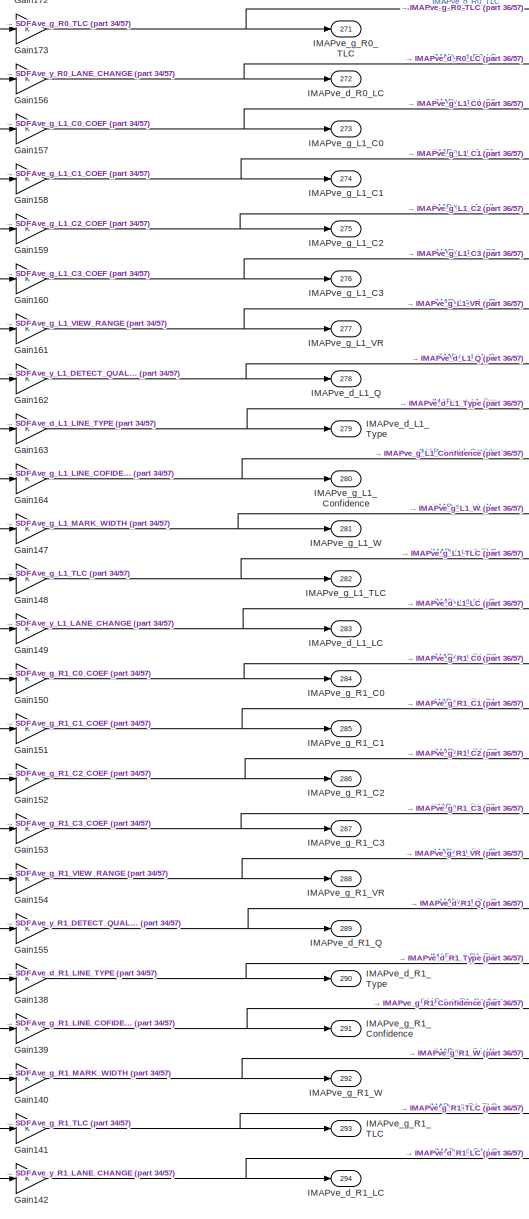
[diagram: Runnable_IMAP_10ms_sys/IMAP_Module - part 41/57, central region]
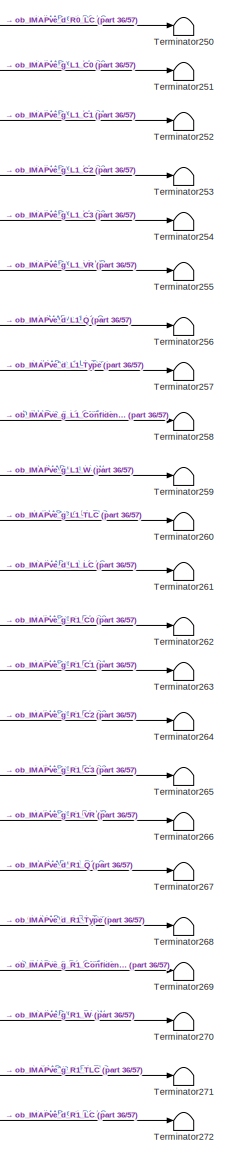
[diagram: Runnable_IMAP_10ms_sys/IMAP_Module - part 42/57, central region]
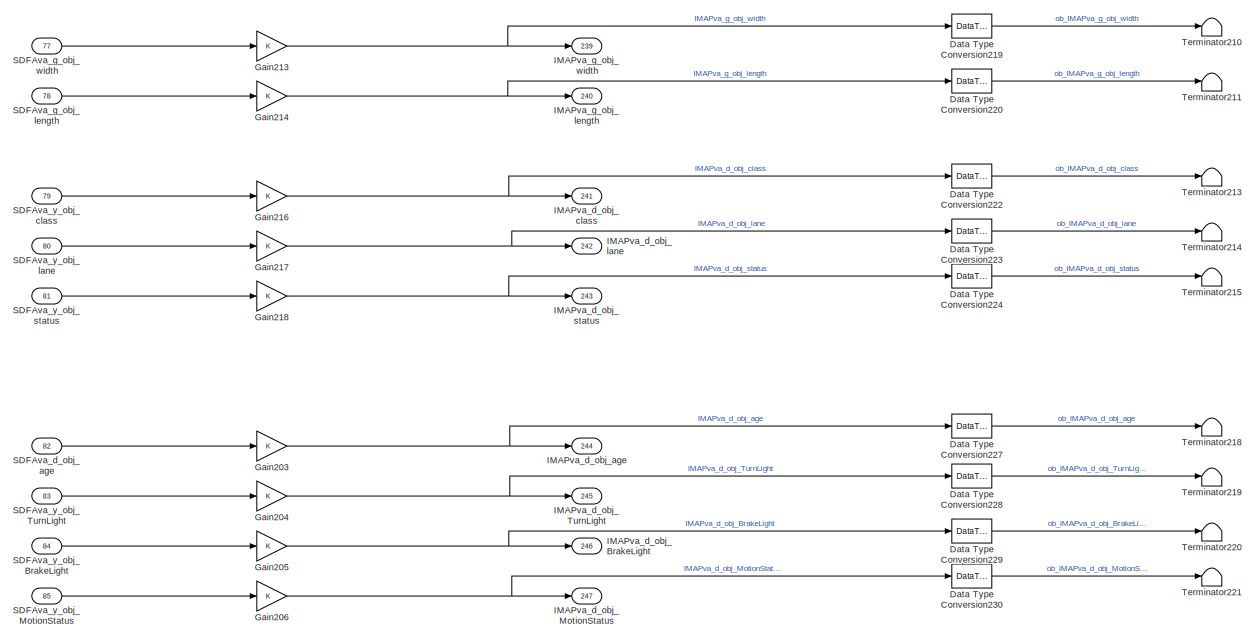
[diagram: Runnable_IMAP_10ms_sys/IMAP_Module - part 43/57, central region]
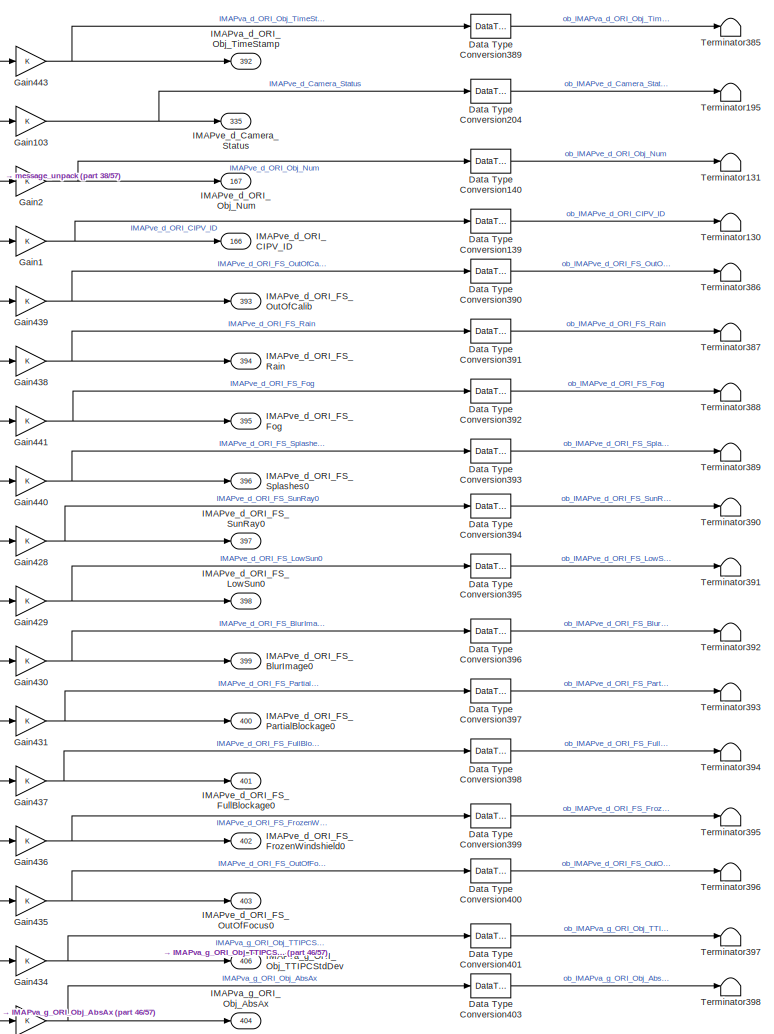
[diagram: Runnable_IMAP_10ms_sys/IMAP_Module - part 44/57, middle left region]
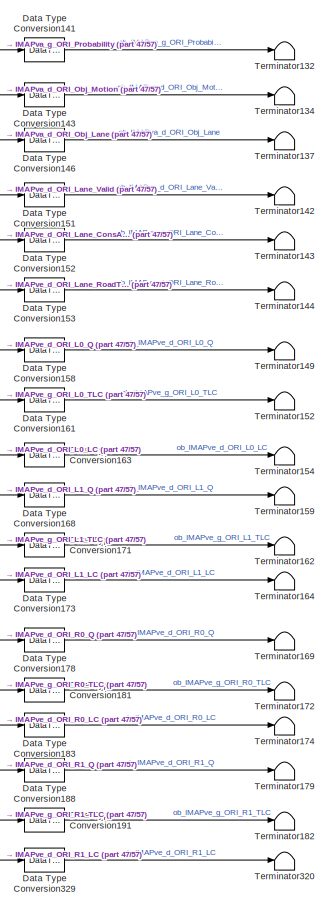
[diagram: Runnable_IMAP_10ms_sys/IMAP_Module - part 45/57, middle left region]
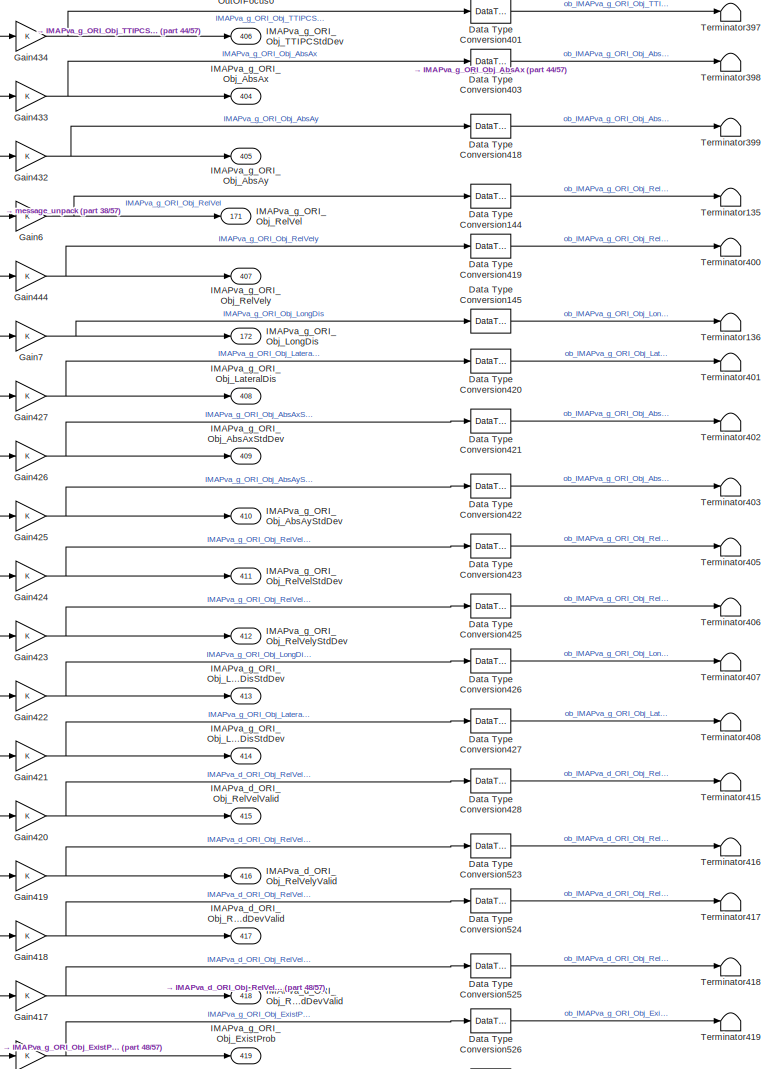
[diagram: Runnable_IMAP_10ms_sys/IMAP_Module - part 46/57, middle left region]
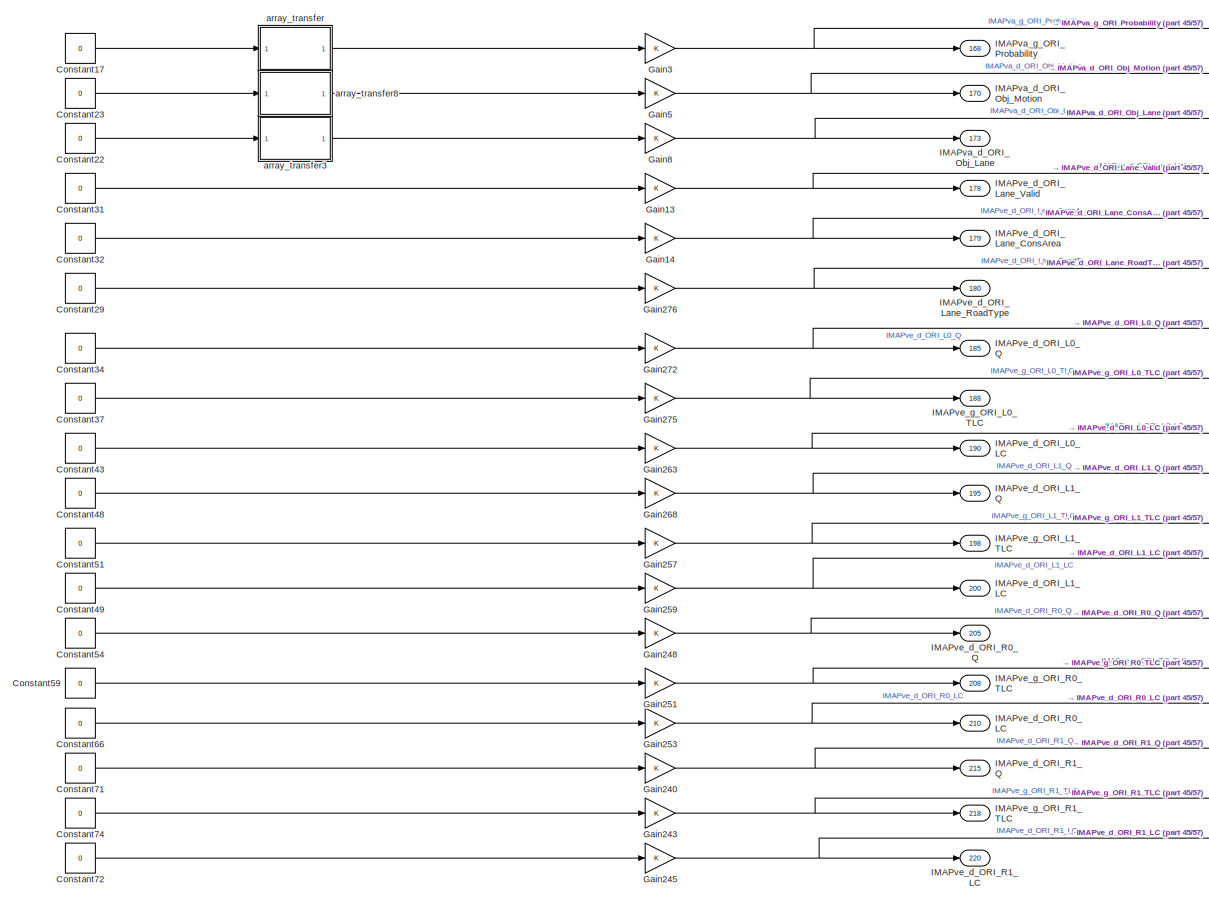
[diagram: Runnable_IMAP_10ms_sys/IMAP_Module - part 47/57, middle left region]
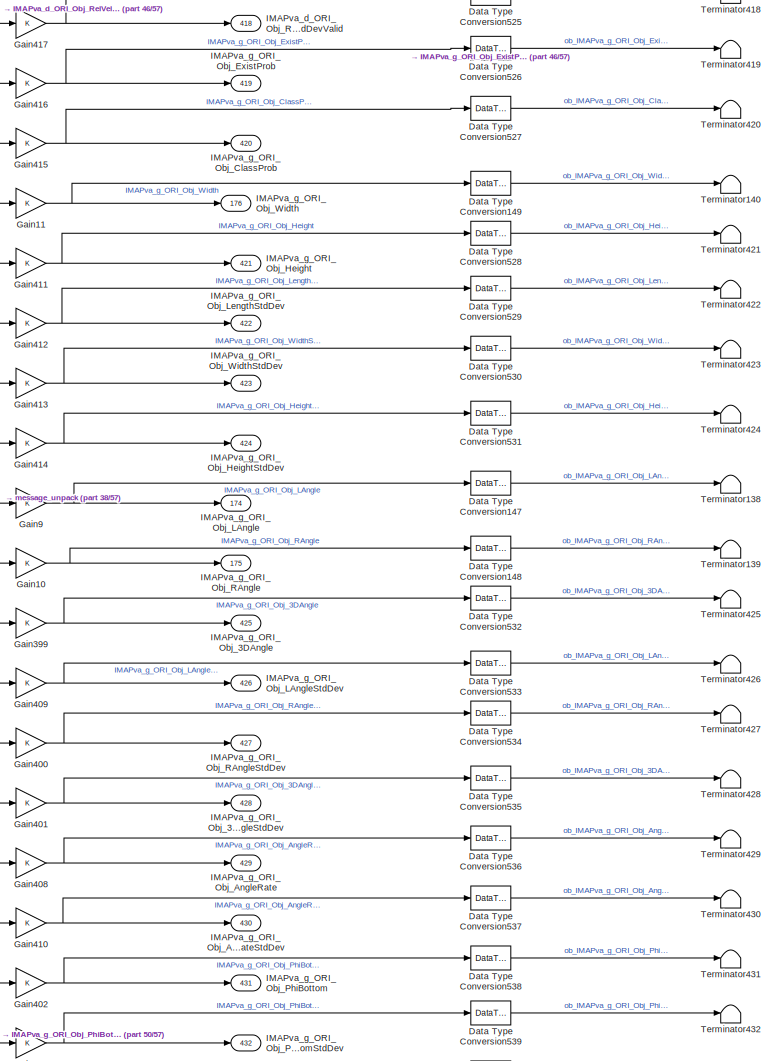
[diagram: Runnable_IMAP_10ms_sys/IMAP_Module - part 48/57, middle left region]
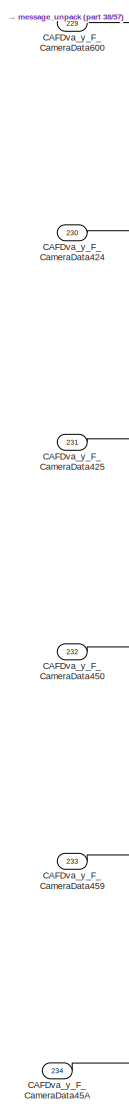
[diagram: Runnable_IMAP_10ms_sys/IMAP_Module - part 49/57, bottom left region]
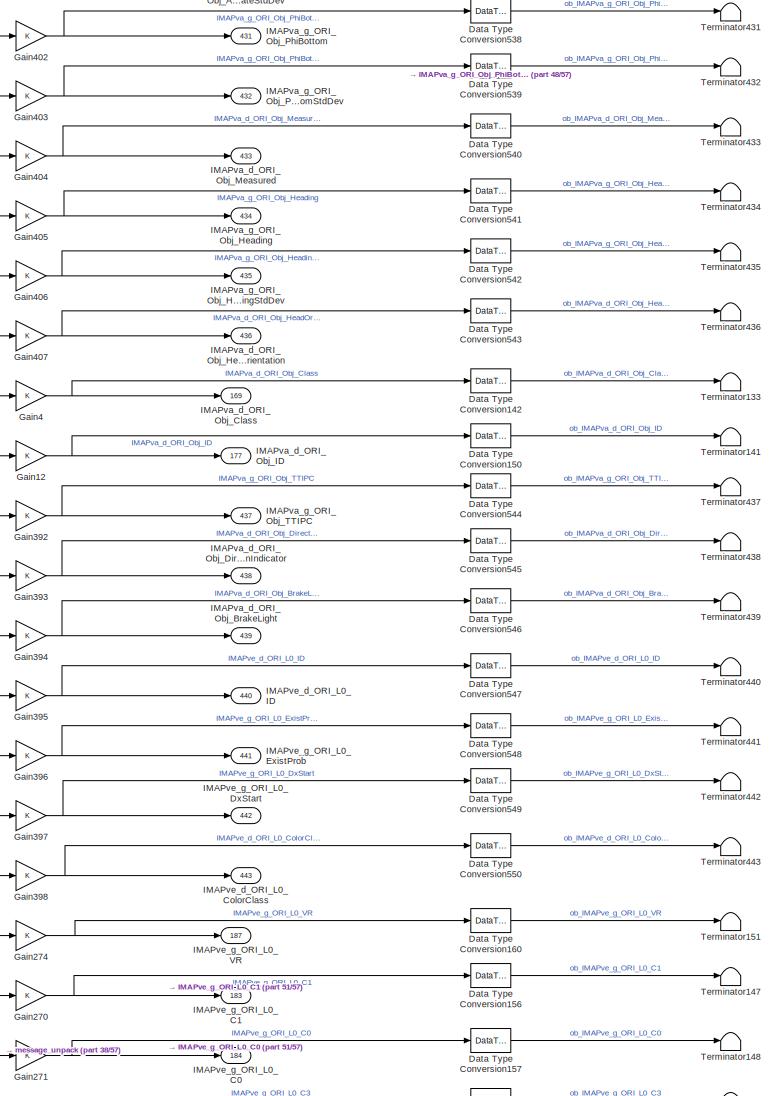
[diagram: Runnable_IMAP_10ms_sys/IMAP_Module - part 50/57, bottom left region]
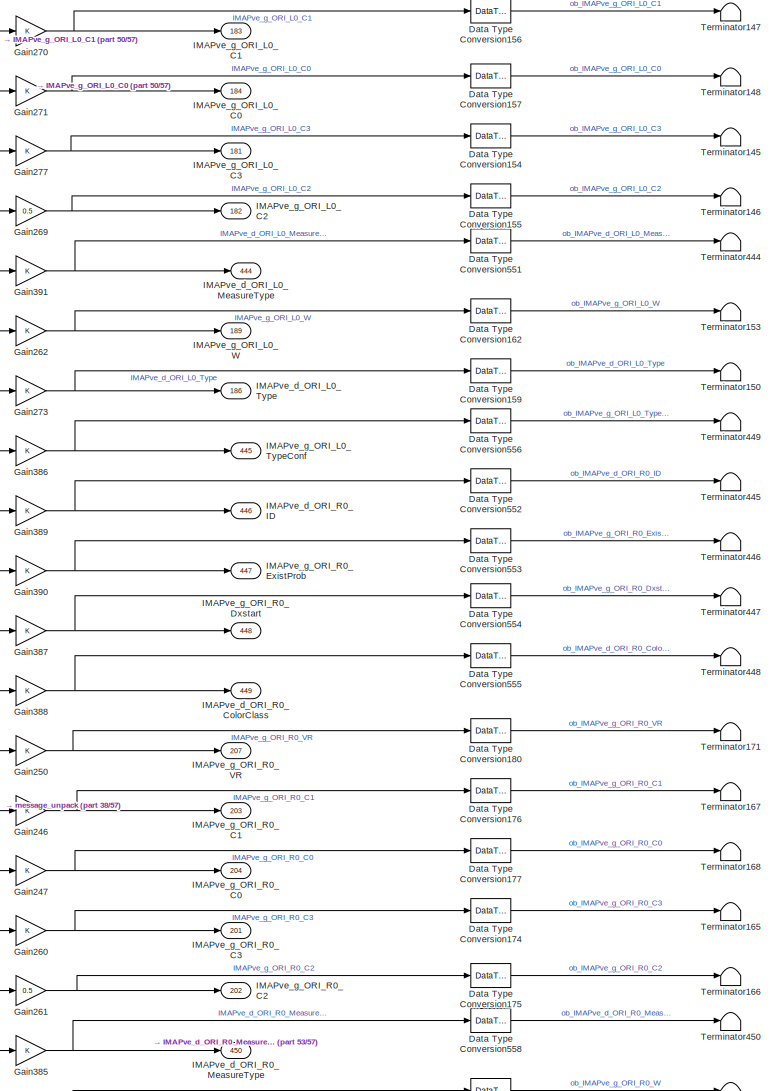
[diagram: Runnable_IMAP_10ms_sys/IMAP_Module - part 51/57, bottom left region]
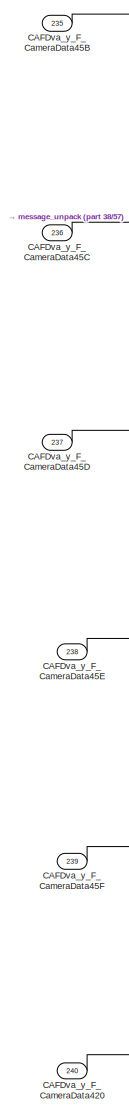
[diagram: Runnable_IMAP_10ms_sys/IMAP_Module - part 52/57, bottom left region]
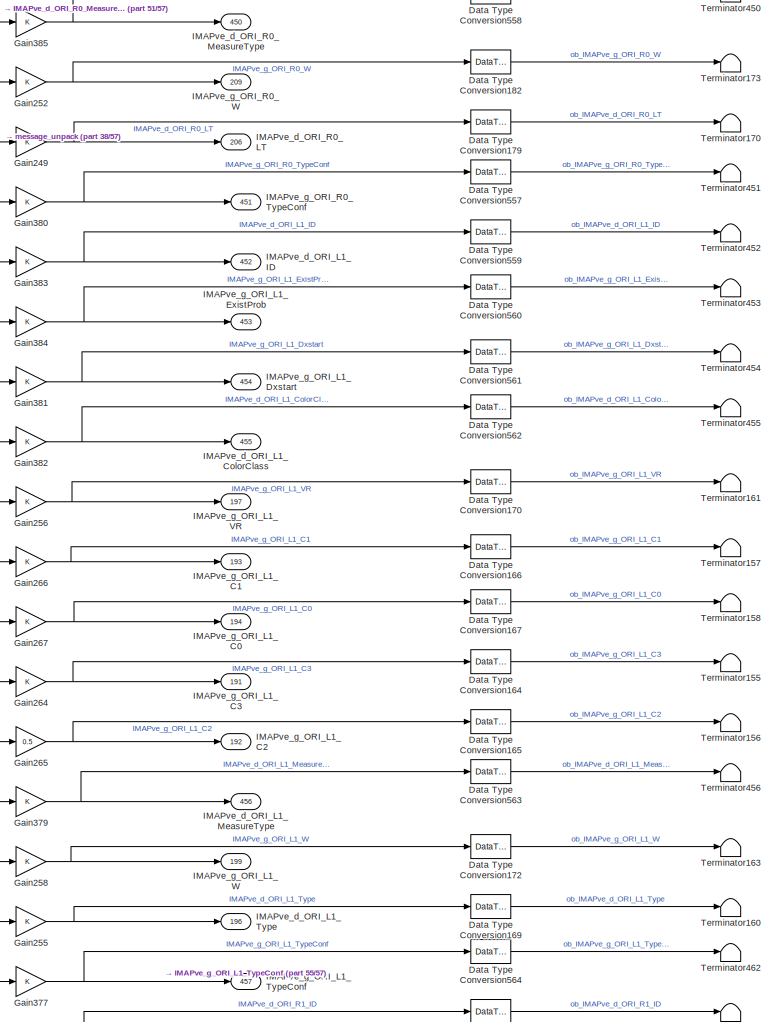
[diagram: Runnable_IMAP_10ms_sys/IMAP_Module - part 53/57, bottom left region]
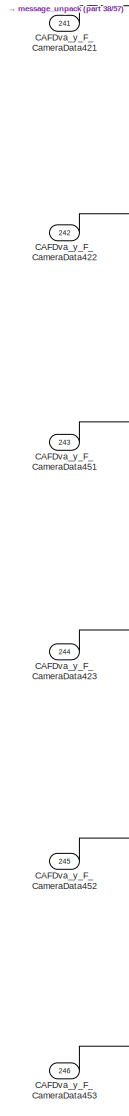
[diagram: Runnable_IMAP_10ms_sys/IMAP_Module - part 54/57, bottom left region]
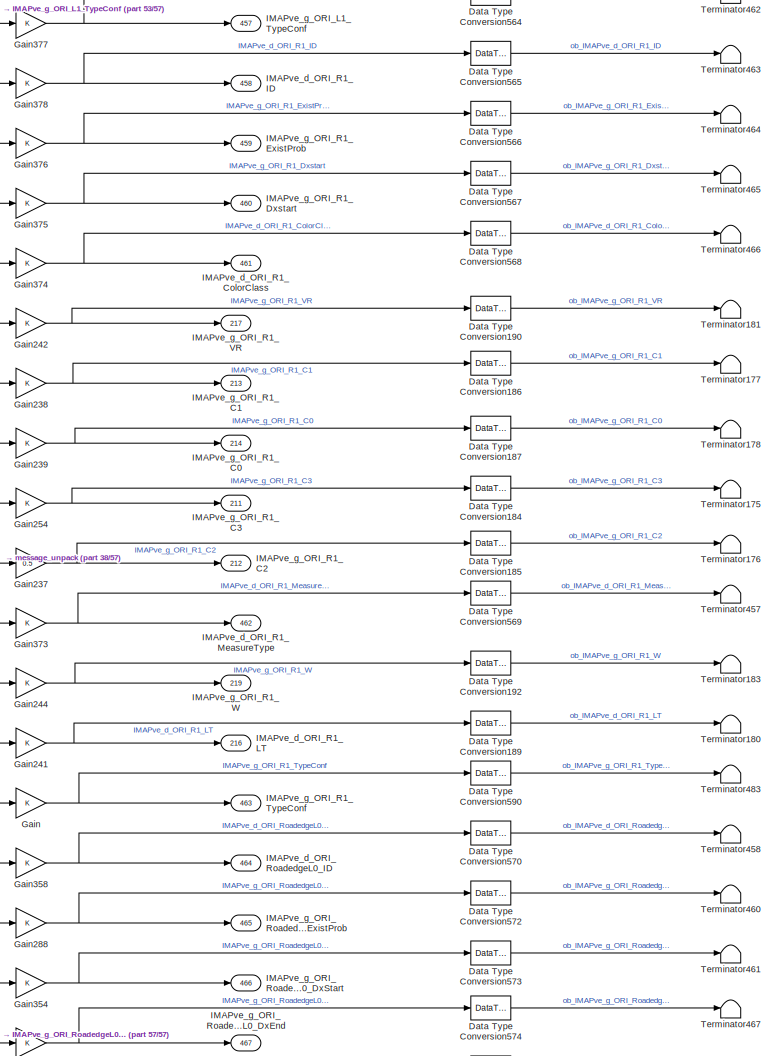
[diagram: Runnable_IMAP_10ms_sys/IMAP_Module - part 55/57, bottom left region]
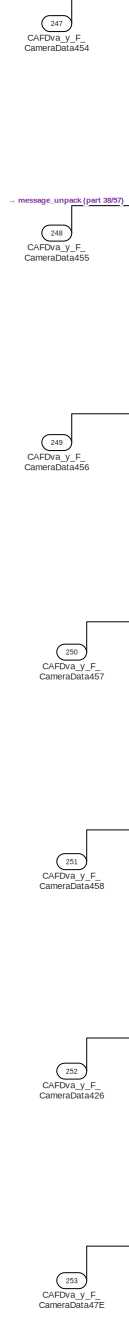
[diagram: Runnable_IMAP_10ms_sys/IMAP_Module - part 56/57, bottom left region]
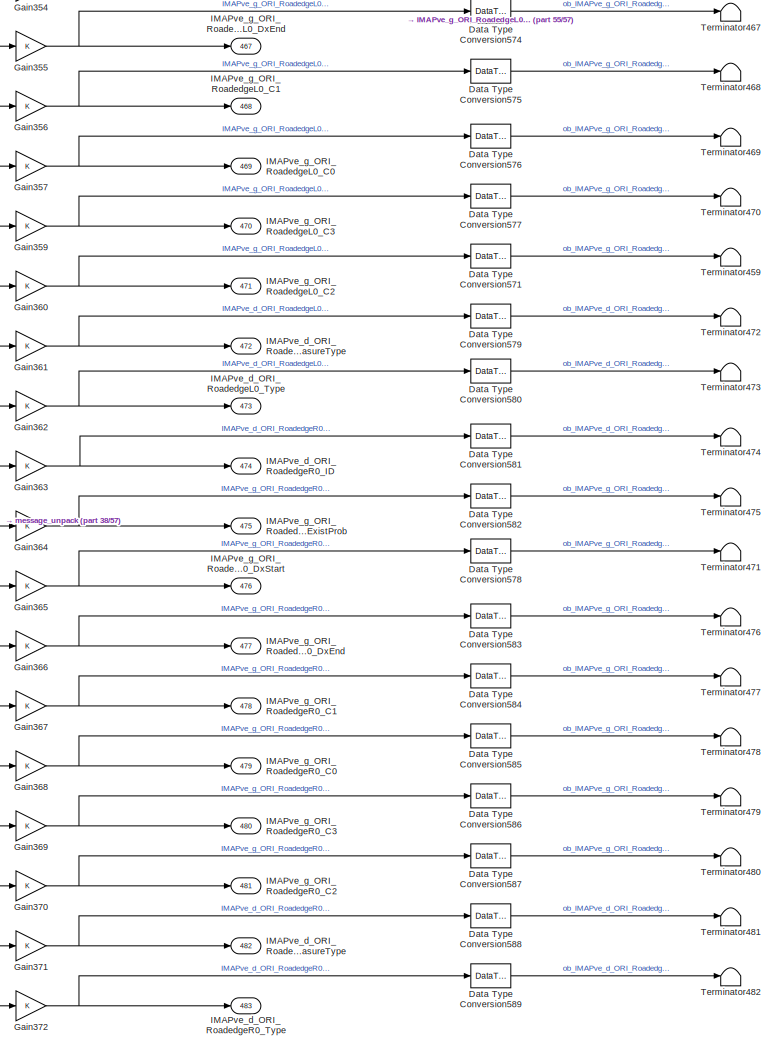
[diagram: Runnable_IMAP_10ms_sys/IMAP_Module - part 57/57, bottom left region]
BLOCK [SubSystem] Runnable_IMAP_10ms_sys/IMAP_Module
  Ports = [253, 483]
  RequestExecContextInheritance = off
  TreatAsAtomicUnit = on
BLOCK [Inport] Runnable_IMAP_10ms_sys/IMAP_Module/CAFDva_y_F_CameraData420
  IconDisplay = Port number
  OutDataTypeStr = uint8
  Port = 240
  PortDimensions = 66
BLOCK [Inport] Runnable_IMAP_10ms_sys/IMAP_Module/CAFDva_y_F_CameraData421
  IconDisplay = Port number
  OutDataTypeStr = uint8
  Port = 241
  PortDimensions = 66
BLOCK [Inport] Runnable_IMAP_10ms_sys/IMAP_Module/CAFDva_y_F_CameraData422
  IconDisplay = Port number
  OutDataTypeStr = uint8
  Port = 242
  PortDimensions = 66
BLOCK [Inport] Runnable_IMAP_10ms_sys/IMAP_Module/CAFDva_y_F_CameraData423
  IconDisplay = Port number
  OutDataTypeStr = uint8
  Port = 244
  PortDimensions = 66
BLOCK [Inport] Runnable_IMAP_10ms_sys/IMAP_Module/CAFDva_y_F_CameraData424
  IconDisplay = Port number
  OutDataTypeStr = uint8
  Port = 230
  PortDimensions = 66
BLOCK [Inport] Runnable_IMAP_10ms_sys/IMAP_Module/CAFDva_y_F_CameraData425
  IconDisplay = Port number
  OutDataTypeStr = uint8
  Port = 231
  PortDimensions = 66
BLOCK [Inport] Runnable_IMAP_10ms_sys/IMAP_Module/CAFDva_y_F_CameraData426
  IconDisplay = Port number
  OutDataTypeStr = uint8
  Port = 252
  PortDimensions = 66
BLOCK [Inport] Runnable_IMAP_10ms_sys/IMAP_Module/CAFDva_y_F_CameraData450
  IconDisplay = Port number
  OutDataTypeStr = uint8
  Port = 232
  PortDimensions = 66
BLOCK [Inport] Runnable_IMAP_10ms_sys/IMAP_Module/CAFDva_y_F_CameraData451
  IconDisplay = Port number
  OutDataTypeStr = uint8
  Port = 243
  PortDimensions = 66
BLOCK [Inport] Runnable_IMAP_10ms_sys/IMAP_Module/CAFDva_y_F_CameraData452
  IconDisplay = Port number
  OutDataTypeStr = uint8
  Port = 245
  PortDimensions = 66
BLOCK [Inport] Runnable_IMAP_10ms_sys/IMAP_Module/CAFDva_y_F_CameraData453
  IconDisplay = Port number
  OutDataTypeStr = uint8
  Port = 246
  PortDimensions = 66
BLOCK [Inport] Runnable_IMAP_10ms_sys/IMAP_Module/CAFDva_y_F_CameraData454
  IconDisplay = Port number
  OutDataTypeStr = uint8
  Port = 247
  PortDimensions = 66
BLOCK [Inport] Runnable_IMAP_10ms_sys/IMAP_Module/CAFDva_y_F_CameraData455
  IconDisplay = Port number
  OutDataTypeStr = uint8
  Port = 248
  PortDimensions = 66
BLOCK [Inport] Runnable_IMAP_10ms_sys/IMAP_Module/CAFDva_y_F_CameraData456
  IconDisplay = Port number
  OutDataTypeStr = uint8
  Port = 249
  PortDimensions = 66
BLOCK [Inport] Runnable_IMAP_10ms_sys/IMAP_Module/CAFDva_y_F_CameraData457
  IconDisplay = Port number
  OutDataTypeStr = uint8
  Port = 250
  PortDimensions = 66
BLOCK [Inport] Runnable_IMAP_10ms_sys/IMAP_Module/CAFDva_y_F_CameraData458
  IconDisplay = Port number
  OutDataTypeStr = uint8
  Port = 251
  PortDimensions = 66
BLOCK [Inport] Runnable_IMAP_10ms_sys/IMAP_Module/CAFDva_y_F_CameraData459
  IconDisplay = Port number
  OutDataTypeStr = uint8
  Port = 233
  PortDimensions = 66
BLOCK [Inport] Runnable_IMAP_10ms_sys/IMAP_Module/CAFDva_y_F_CameraData45A
  IconDisplay = Port number
  OutDataTypeStr = uint8
  Port = 234
  PortDimensions = 66
BLOCK [Inport] Runnable_IMAP_10ms_sys/IMAP_Module/CAFDva_y_F_CameraData45B
  IconDisplay = Port number
  OutDataTypeStr = uint8
  Port = 235
  PortDimensions = 66
BLOCK [Inport] Runnable_IMAP_10ms_sys/IMAP_Module/CAFDva_y_F_CameraData45C
  IconDisplay = Port number
  OutDataTypeStr = uint8
  Port = 236
  PortDimensions = 66
BLOCK [Inport] Runnable_IMAP_10ms_sys/IMAP_Module/CAFDva_y_F_CameraData45D
  IconDisplay = Port number
  OutDataTypeStr = uint8
  Port = 237
  PortDimensions = 66
BLOCK [Inport] Runnable_IMAP_10ms_sys/IMAP_Module/CAFDva_y_F_CameraData45E
  IconDisplay = Port number
  OutDataTypeStr = uint8
  Port = 238
  PortDimensions = 66
BLOCK [Inport] Runnable_IMAP_10ms_sys/IMAP_Module/CAFDva_y_F_CameraData45F
  IconDisplay = Port number
  OutDataTypeStr = uint8
  Port = 239
  PortDimensions = 66
BLOCK [Inport] Runnable_IMAP_10ms_sys/IMAP_Module/CAFDva_y_F_CameraData47E
  IconDisplay = Port number
  OutDataTypeStr = uint8
  Port = 253
  PortDimensions = 66
BLOCK [Inport] Runnable_IMAP_10ms_sys/IMAP_Module/CAFDva_y_F_CameraData600
  IconDisplay = Port number
  OutDataTypeStr = uint8
  Port = 229
  PortDimensions = 66
BLOCK [Constant] Runnable_IMAP_10ms_sys/IMAP_Module/Constant1
  OutDataTypeStr = uint16
  SampleTime = -1
  Value = 0
BLOCK [Constant] Runnable_IMAP_10ms_sys/IMAP_Module/Constant10
  OutDataTypeStr = uint16
  SampleTime = -1
  Value = 0
BLOCK [Constant] Runnable_IMAP_10ms_sys/IMAP_Module/Constant100
  OutDataTypeStr = uint16
  SampleTime = -1
  Value = 0
BLOCK [Constant] Runnable_IMAP_10ms_sys/IMAP_Module/Constant101
  OutDataTypeStr = uint16
  SampleTime = -1
  Value = 0
BLOCK [Constant] Runnable_IMAP_10ms_sys/IMAP_Module/Constant102
  OutDataTypeStr = uint16
  SampleTime = -1
  Value = 0
BLOCK [Constant] Runnable_IMAP_10ms_sys/IMAP_Module/Constant103
  OutDataTypeStr = uint16
  SampleTime = -1
  Value = 0
BLOCK [Constant] Runnable_IMAP_10ms_sys/IMAP_Module/Constant104
  OutDataTypeStr = uint16
  SampleTime = -1
  Value = 0
BLOCK [Constant] Runnable_IMAP_10ms_sys/IMAP_Module/Constant105
  OutDataTypeStr = uint16
  SampleTime = -1
  Value = 0
BLOCK [Constant] Runnable_IMAP_10ms_sys/IMAP_Module/Constant106
  OutDataTypeStr = uint16
  SampleTime = -1
  Value = 0
BLOCK [Constant] Runnable_IMAP_10ms_sys/IMAP_Module/Constant107
  OutDataTypeStr = uint16
  SampleTime = -1
  Value = 0
BLOCK [Constant] Runnable_IMAP_10ms_sys/IMAP_Module/Constant108
  OutDataTypeStr = uint16
  SampleTime = -1
  Value = 0
BLOCK [Constant] Runnable_IMAP_10ms_sys/IMAP_Module/Constant109
  OutDataTypeStr = uint16
  SampleTime = -1
  Value = 0
BLOCK [Constant] Runnable_IMAP_10ms_sys/IMAP_Module/Constant11
  OutDataTypeStr = uint16
  SampleTime = -1
  Value = 0
BLOCK [Constant] Runnable_IMAP_10ms_sys/IMAP_Module/Constant110
  OutDataTypeStr = uint16
  SampleTime = -1
  Value = 0
BLOCK [Constant] Runnable_IMAP_10ms_sys/IMAP_Module/Constant111
  OutDataTypeStr = uint16
  SampleTime = -1
  Value = 0
BLOCK [Constant] Runnable_IMAP_10ms_sys/IMAP_Module/Constant112
  OutDataTypeStr = uint16
  SampleTime = -1
  Value = 0
BLOCK [Constant] Runnable_IMAP_10ms_sys/IMAP_Module/Constant113
  OutDataTypeStr = uint16
  SampleTime = -1
  Value = 0
BLOCK [Constant] Runnable_IMAP_10ms_sys/IMAP_Module/Constant114
  OutDataTypeStr = uint16
  SampleTime = -1
  Value = 0
BLOCK [Constant] Runnable_IMAP_10ms_sys/IMAP_Module/Constant115
  OutDataTypeStr = uint16
  SampleTime = -1
  Value = 0
BLOCK [Constant] Runnable_IMAP_10ms_sys/IMAP_Module/Constant116
  OutDataTypeStr = uint16
  SampleTime = -1
  Value = 0
BLOCK [Constant] Runnable_IMAP_10ms_sys/IMAP_Module/Constant117
  OutDataTypeStr = uint16
  SampleTime = -1
  Value = 0
BLOCK [Constant] Runnable_IMAP_10ms_sys/IMAP_Module/Constant118
  OutDataTypeStr = uint16
  SampleTime = -1
  Value = 0
BLOCK [Constant] Runnable_IMAP_10ms_sys/IMAP_Module/Constant119
  OutDataTypeStr = uint16
  SampleTime = -1
  Value = 0
BLOCK [Constant] Runnable_IMAP_10ms_sys/IMAP_Module/Constant12
  OutDataTypeStr = uint16
  SampleTime = -1
  Value = 0
BLOCK [Constant] Runnable_IMAP_10ms_sys/IMAP_Module/Constant120
  OutDataTypeStr = uint16
  SampleTime = -1
  Value = 0
BLOCK [Constant] Runnable_IMAP_10ms_sys/IMAP_Module/Constant121
  OutDataTypeStr = uint16
  SampleTime = -1
  Value = 0
BLOCK [Constant] Runnable_IMAP_10ms_sys/IMAP_Module/Constant122
  OutDataTypeStr = uint16
  SampleTime = -1
  Value = 0
BLOCK [Constant] Runnable_IMAP_10ms_sys/IMAP_Module/Constant123
  OutDataTypeStr = uint16
  SampleTime = -1
  Value = 0
BLOCK [Constant] Runnable_IMAP_10ms_sys/IMAP_Module/Constant124
  OutDataTypeStr = uint16
  SampleTime = -1
  Value = 0
BLOCK [Constant] Runnable_IMAP_10ms_sys/IMAP_Module/Constant125
  OutDataTypeStr = uint16
  SampleTime = -1
  Value = 0
BLOCK [Constant] Runnable_IMAP_10ms_sys/IMAP_Module/Constant126
  OutDataTypeStr = uint16
  SampleTime = -1
  Value = 0
BLOCK [Constant] Runnable_IMAP_10ms_sys/IMAP_Module/Constant127
  OutDataTypeStr = uint16
  SampleTime = -1
  Value = 0
BLOCK [Constant] Runnable_IMAP_10ms_sys/IMAP_Module/Constant128
  OutDataTypeStr = uint16
  SampleTime = -1
  Value = 0
BLOCK [Constant] Runnable_IMAP_10ms_sys/IMAP_Module/Constant129
  OutDataTypeStr = uint16
  SampleTime = -1
  Value = 0
BLOCK [Constant] Runnable_IMAP_10ms_sys/IMAP_Module/Constant13
  OutDataTypeStr = uint16
  SampleTime = -1
  Value = 0
BLOCK [Constant] Runnable_IMAP_10ms_sys/IMAP_Module/Constant130
  OutDataTypeStr = uint16
  SampleTime = -1
  Value = 0
BLOCK [Constant] Runnable_IMAP_10ms_sys/IMAP_Module/Constant131
  OutDataTypeStr = uint16
  SampleTime = -1
  Value = 0
BLOCK [Constant] Runnable_IMAP_10ms_sys/IMAP_Module/Constant132
  OutDataTypeStr = uint16
  SampleTime = -1
  Value = 0
BLOCK [Constant] Runnable_IMAP_10ms_sys/IMAP_Module/Constant133
  OutDataTypeStr = uint16
  SampleTime = -1
  Value = 0
BLOCK [Constant] Runnable_IMAP_10ms_sys/IMAP_Module/Constant134
  OutDataTypeStr = uint16
  SampleTime = -1
  Value = 0
BLOCK [Constant] Runnable_IMAP_10ms_sys/IMAP_Module/Constant135
  OutDataTypeStr = uint16
  SampleTime = -1
  Value = 0
BLOCK [Constant] Runnable_IMAP_10ms_sys/IMAP_Module/Constant136
  OutDataTypeStr = uint16
  SampleTime = -1
  Value = 0
BLOCK [Constant] Runnable_IMAP_10ms_sys/IMAP_Module/Constant137
  OutDataTypeStr = uint16
  SampleTime = -1
  Value = 0
BLOCK [Constant] Runnable_IMAP_10ms_sys/IMAP_Module/Constant138
  OutDataTypeStr = uint16
  SampleTime = -1
  Value = 0
BLOCK [Constant] Runnable_IMAP_10ms_sys/IMAP_Module/Constant139
  OutDataTypeStr = uint16
  SampleTime = -1
  Value = 0
BLOCK [Constant] Runnable_IMAP_10ms_sys/IMAP_Module/Constant14
  OutDataTypeStr = uint16
  SampleTime = -1
  Value = 0
BLOCK [Constant] Runnable_IMAP_10ms_sys/IMAP_Module/Constant140
  OutDataTypeStr = uint16
  SampleTime = -1
  Value = 0
BLOCK [Constant] Runnable_IMAP_10ms_sys/IMAP_Module/Constant141
  OutDataTypeStr = uint16
  SampleTime = -1
  Value = 0
BLOCK [Constant] Runnable_IMAP_10ms_sys/IMAP_Module/Constant142
  OutDataTypeStr = uint16
  SampleTime = -1
  Value = 0
BLOCK [Constant] Runnable_IMAP_10ms_sys/IMAP_Module/Constant143
  OutDataTypeStr = uint16
  SampleTime = -1
  Value = 0
BLOCK [Constant] Runnable_IMAP_10ms_sys/IMAP_Module/Constant144
  OutDataTypeStr = uint16
  SampleTime = -1
  Value = 0
BLOCK [Constant] Runnable_IMAP_10ms_sys/IMAP_Module/Constant145
  OutDataTypeStr = uint16
  SampleTime = -1
  Value = 0
BLOCK [Constant] Runnable_IMAP_10ms_sys/IMAP_Module/Constant146
  OutDataTypeStr = uint16
  SampleTime = -1
  Value = 0
BLOCK [Constant] Runnable_IMAP_10ms_sys/IMAP_Module/Constant147
  OutDataTypeStr = uint16
  SampleTime = -1
  Value = 0
BLOCK [Constant] Runnable_IMAP_10ms_sys/IMAP_Module/Constant148
  OutDataTypeStr = uint16
  SampleTime = -1
  Value = 0
BLOCK [Constant] Runnable_IMAP_10ms_sys/IMAP_Module/Constant149
  OutDataTypeStr = uint16
  SampleTime = -1
  Value = 0
BLOCK [Constant] Runnable_IMAP_10ms_sys/IMAP_Module/Constant15
  OutDataTypeStr = uint16
  SampleTime = -1
  Value = 0
BLOCK [Constant] Runnable_IMAP_10ms_sys/IMAP_Module/Constant150
  OutDataTypeStr = uint16
  SampleTime = -1
  Value = 0
BLOCK [Constant] Runnable_IMAP_10ms_sys/IMAP_Module/Constant151
  OutDataTypeStr = uint16
  SampleTime = -1
  Value = 0
BLOCK [Constant] Runnable_IMAP_10ms_sys/IMAP_Module/Constant152
  OutDataTypeStr = uint16
  SampleTime = -1
  Value = 0
BLOCK [Constant] Runnable_IMAP_10ms_sys/IMAP_Module/Constant153
  OutDataTypeStr = uint16
  SampleTime = -1
  Value = 0
BLOCK [Constant] Runnable_IMAP_10ms_sys/IMAP_Module/Constant154
  OutDataTypeStr = uint16
  SampleTime = -1
  Value = 0
BLOCK [Constant] Runnable_IMAP_10ms_sys/IMAP_Module/Constant155
  OutDataTypeStr = uint16
  SampleTime = -1
  Value = 0
BLOCK [Constant] Runnable_IMAP_10ms_sys/IMAP_Module/Constant156
  OutDataTypeStr = uint16
  SampleTime = -1
  Value = 0
BLOCK [Constant] Runnable_IMAP_10ms_sys/IMAP_Module/Constant157
  OutDataTypeStr = uint16
  SampleTime = -1
  Value = 0
BLOCK [Constant] Runnable_IMAP_10ms_sys/IMAP_Module/Constant158
  OutDataTypeStr = uint16
  SampleTime = -1
  Value = 0
BLOCK [Constant] Runnable_IMAP_10ms_sys/IMAP_Module/Constant16
  OutDataTypeStr = uint16
  SampleTime = -1
  Value = 0
BLOCK [Constant] Runnable_IMAP_10ms_sys/IMAP_Module/Constant163
  OutDataTypeStr = uint16
  SampleTime = -1
  Value = 0
BLOCK [Constant] Runnable_IMAP_10ms_sys/IMAP_Module/Constant164
  OutDataTypeStr = uint16
  SampleTime = -1
  Value = 0
BLOCK [Constant] Runnable_IMAP_10ms_sys/IMAP_Module/Constant17
  OutDataTypeStr = uint16
  SampleTime = -1
  Value = 0
BLOCK [Constant] Runnable_IMAP_10ms_sys/IMAP_Module/Constant2
  OutDataTypeStr = uint16
  SampleTime = -1
  Value = 0
BLOCK [Constant] Runnable_IMAP_10ms_sys/IMAP_Module/Constant22
  OutDataTypeStr = uint16
  SampleTime = -1
  Value = 0
BLOCK [Constant] Runnable_IMAP_10ms_sys/IMAP_Module/Constant23
  OutDataTypeStr = uint16
  SampleTime = -1
  Value = 0
BLOCK [Constant] Runnable_IMAP_10ms_sys/IMAP_Module/Constant29
  OutDataTypeStr = uint16
  SampleTime = -1
  Value = 0
BLOCK [Constant] Runnable_IMAP_10ms_sys/IMAP_Module/Constant3
  OutDataTypeStr = uint16
  SampleTime = -1
  Value = 0
BLOCK [Constant] Runnable_IMAP_10ms_sys/IMAP_Module/Constant31
  OutDataTypeStr = uint16
  SampleTime = -1
  Value = 0
BLOCK [Constant] Runnable_IMAP_10ms_sys/IMAP_Module/Constant32
  OutDataTypeStr = uint16
  SampleTime = -1
  Value = 0
BLOCK [Constant] Runnable_IMAP_10ms_sys/IMAP_Module/Constant34
  OutDataTypeStr = uint16
  SampleTime = -1
  Value = 0
BLOCK [Constant] Runnable_IMAP_10ms_sys/IMAP_Module/Constant37
  OutDataTypeStr = uint16
  SampleTime = -1
  Value = 0
BLOCK [Constant] Runnable_IMAP_10ms_sys/IMAP_Module/Constant4
  OutDataTypeStr = uint16
  SampleTime = -1
  Value = 0
BLOCK [Constant] Runnable_IMAP_10ms_sys/IMAP_Module/Constant43
  OutDataTypeStr = uint16
  SampleTime = -1
  Value = 0
BLOCK [Constant] Runnable_IMAP_10ms_sys/IMAP_Module/Constant48
  OutDataTypeStr = uint16
  SampleTime = -1
  Value = 0
BLOCK [Constant] Runnable_IMAP_10ms_sys/IMAP_Module/Constant49
  OutDataTypeStr = uint16
  SampleTime = -1
  Value = 0
BLOCK [Constant] Runnable_IMAP_10ms_sys/IMAP_Module/Constant5
  OutDataTypeStr = uint16
  SampleTime = -1
  Value = 0
BLOCK [Constant] Runnable_IMAP_10ms_sys/IMAP_Module/Constant51
  OutDataTypeStr = uint16
  SampleTime = -1
  Value = 0
BLOCK [Constant] Runnable_IMAP_10ms_sys/IMAP_Module/Constant54
  OutDataTypeStr = uint16
  SampleTime = -1
  Value = 0
BLOCK [Constant] Runnable_IMAP_10ms_sys/IMAP_Module/Constant57
  OutDataTypeStr = uint16
  SampleTime = -1
  Value = 0
BLOCK [Constant] Runnable_IMAP_10ms_sys/IMAP_Module/Constant58
  OutDataTypeStr = uint16
  SampleTime = -1
  Value = 0
BLOCK [Constant] Runnable_IMAP_10ms_sys/IMAP_Module/Constant59
  OutDataTypeStr = uint16
  SampleTime = -1
  Value = 0
BLOCK [Constant] Runnable_IMAP_10ms_sys/IMAP_Module/Constant6
  OutDataTypeStr = uint16
  SampleTime = -1
  Value = 0
BLOCK [Constant] Runnable_IMAP_10ms_sys/IMAP_Module/Constant61
  OutDataTypeStr = uint16
  SampleTime = -1
  Value = 0
BLOCK [Constant] Runnable_IMAP_10ms_sys/IMAP_Module/Constant66
  OutDataTypeStr = uint16
  SampleTime = -1
  Value = 0
BLOCK [Constant] Runnable_IMAP_10ms_sys/IMAP_Module/Constant7
  OutDataTypeStr = uint32
  SampleTime = -1
  Value = 0
BLOCK [Constant] Runnable_IMAP_10ms_sys/IMAP_Module/Constant71
  OutDataTypeStr = uint16
  SampleTime = -1
  Value = 0
BLOCK [Constant] Runnable_IMAP_10ms_sys/IMAP_Module/Constant72
  OutDataTypeStr = uint16
  SampleTime = -1
  Value = 0
BLOCK [Constant] Runnable_IMAP_10ms_sys/IMAP_Module/Constant73
  OutDataTypeStr = uint16
  SampleTime = -1
  Value = 0
BLOCK [Constant] Runnable_IMAP_10ms_sys/IMAP_Module/Constant74
  OutDataTypeStr = uint16
  SampleTime = -1
  Value = 0
BLOCK [Constant] Runnable_IMAP_10ms_sys/IMAP_Module/Constant77
  OutDataTypeStr = uint16
  SampleTime = -1
  Value = 0
BLOCK [Constant] Runnable_IMAP_10ms_sys/IMAP_Module/Constant78
  OutDataTypeStr = uint16
  SampleTime = -1
  Value = 0
BLOCK [Constant] Runnable_IMAP_10ms_sys/IMAP_Module/Constant79
  OutDataTypeStr = uint16
  SampleTime = -1
  Value = 0
BLOCK [Constant] Runnable_IMAP_10ms_sys/IMAP_Module/Constant8
  OutDataTypeStr = uint16
  SampleTime = -1
  Value = 0
BLOCK [Constant] Runnable_IMAP_10ms_sys/IMAP_Module/Constant80
  OutDataTypeStr = uint16
  SampleTime = -1
  Value = 0
BLOCK [Constant] Runnable_IMAP_10ms_sys/IMAP_Module/Constant81
  OutDataTypeStr = uint16
  SampleTime = -1
  Value = 0
BLOCK [Constant] Runnable_IMAP_10ms_sys/IMAP_Module/Constant82
  OutDataTypeStr = uint16
  SampleTime = -1
  Value = 0
BLOCK [Constant] Runnable_IMAP_10ms_sys/IMAP_Module/Constant83
  OutDataTypeStr = uint16
  SampleTime = -1
  Value = 0
BLOCK [Constant] Runnable_IMAP_10ms_sys/IMAP_Module/Constant84
  OutDataTypeStr = uint16
  SampleTime = -1
  Value = 0
BLOCK [Constant] Runnable_IMAP_10ms_sys/IMAP_Module/Constant85
  OutDataTypeStr = uint16
  SampleTime = -1
  Value = 0
BLOCK [Constant] Runnable_IMAP_10ms_sys/IMAP_Module/Constant86
  OutDataTypeStr = uint16
  SampleTime = -1
  Value = 0
BLOCK [Constant] Runnable_IMAP_10ms_sys/IMAP_Module/Constant87
  OutDataTypeStr = uint16
  SampleTime = -1
  Value = 0
BLOCK [Constant] Runnable_IMAP_10ms_sys/IMAP_Module/Constant88
  OutDataTypeStr = uint16
  SampleTime = -1
  Value = 0
BLOCK [Constant] Runnable_IMAP_10ms_sys/IMAP_Module/Constant89
  OutDataTypeStr = uint16
  SampleTime = -1
  Value = 0
BLOCK [Constant] Runnable_IMAP_10ms_sys/IMAP_Module/Constant9
  OutDataTypeStr = uint16
  SampleTime = -1
  Value = 0
BLOCK [Constant] Runnable_IMAP_10ms_sys/IMAP_Module/Constant90
  OutDataTypeStr = uint16
  SampleTime = -1
  Value = 0
BLOCK [Constant] Runnable_IMAP_10ms_sys/IMAP_Module/Constant92
  OutDataTypeStr = uint16
  SampleTime = -1
  Value = 0
BLOCK [Constant] Runnable_IMAP_10ms_sys/IMAP_Module/Constant93
  OutDataTypeStr = uint16
  SampleTime = -1
  Value = 0
BLOCK [Constant] Runnable_IMAP_10ms_sys/IMAP_Module/Constant94
  OutDataTypeStr = uint16
  SampleTime = -1
  Value = 0
BLOCK [Constant] Runnable_IMAP_10ms_sys/IMAP_Module/Constant95
  OutDataTypeStr = uint16
  SampleTime = -1
  Value = 0
BLOCK [Constant] Runnable_IMAP_10ms_sys/IMAP_Module/Constant96
  OutDataTypeStr = uint16
  SampleTime = -1
  Value = 0
BLOCK [Constant] Runnable_IMAP_10ms_sys/IMAP_Module/Constant97
  OutDataTypeStr = uint16
  SampleTime = -1
  Value = 0
BLOCK [Constant] Runnable_IMAP_10ms_sys/IMAP_Module/Constant98
  OutDataTypeStr = uint16
  SampleTime = -1
  Value = 0
BLOCK [Constant] Runnable_IMAP_10ms_sys/IMAP_Module/Constant99
  OutDataTypeStr = uint16
  SampleTime = -1
  Value = 0
BLOCK [DataTypeConversion] Runnable_IMAP_10ms_sys/IMAP_Module/Data Type Conversion
  OutDataTypeStr = uint16
  RndMeth = Floor
  SaturateOnIntegerOverflow = off
BLOCK [DataTypeConversion] Runnable_IMAP_10ms_sys/IMAP_Module/Data Type Conversion1
  RndMeth = Floor
  SaturateOnIntegerOverflow = off
BLOCK [DataTypeConversion] Runnable_IMAP_10ms_sys/IMAP_Module/Data Type Conversion10
  OutDataTypeStr = uint16
  RndMeth = Floor
  SaturateOnIntegerOverflow = off
BLOCK [DataTypeConversion] Runnable_IMAP_10ms_sys/IMAP_Module/Data Type Conversion100
  RndMeth = Floor
  SaturateOnIntegerOverflow = off
BLOCK [DataTypeConversion] Runnable_IMAP_10ms_sys/IMAP_Module/Data Type Conversion101
  RndMeth = Floor
  SaturateOnIntegerOverflow = off
BLOCK [DataTypeConversion] Runnable_IMAP_10ms_sys/IMAP_Module/Data Type Conversion102
  RndMeth = Floor
  SaturateOnIntegerOverflow = off
BLOCK [DataTypeConversion] Runnable_IMAP_10ms_sys/IMAP_Module/Data Type Conversion103
  RndMeth = Floor
  SaturateOnIntegerOverflow = off
BLOCK [DataTypeConversion] Runnable_IMAP_10ms_sys/IMAP_Module/Data Type Conversion104
  RndMeth = Floor
  SaturateOnIntegerOverflow = off
BLOCK [DataTypeConversion] Runnable_IMAP_10ms_sys/IMAP_Module/Data Type Conversion105
  RndMeth = Floor
  SaturateOnIntegerOverflow = off
BLOCK [DataTypeConversion] Runnable_IMAP_10ms_sys/IMAP_Module/Data Type Conversion106
  RndMeth = Floor
  SaturateOnIntegerOverflow = off
BLOCK [DataTypeConversion] Runnable_IMAP_10ms_sys/IMAP_Module/Data Type Conversion107
  RndMeth = Floor
  SaturateOnIntegerOverflow = off
BLOCK [DataTypeConversion] Runnable_IMAP_10ms_sys/IMAP_Module/Data Type Conversion108
  RndMeth = Floor
  SaturateOnIntegerOverflow = off
BLOCK [DataTypeConversion] Runnable_IMAP_10ms_sys/IMAP_Module/Data Type Conversion109
  RndMeth = Floor
  SaturateOnIntegerOverflow = off
BLOCK [DataTypeConversion] Runnable_IMAP_10ms_sys/IMAP_Module/Data Type Conversion11
  OutDataTypeStr = uint16
  RndMeth = Floor
  SaturateOnIntegerOverflow = off
BLOCK [DataTypeConversion] Runnable_IMAP_10ms_sys/IMAP_Module/Data Type Conversion110
  RndMeth = Floor
  SaturateOnIntegerOverflow = off
BLOCK [DataTypeConversion] Runnable_IMAP_10ms_sys/IMAP_Module/Data Type Conversion111
  RndMeth = Floor
  SaturateOnIntegerOverflow = off
BLOCK [DataTypeConversion] Runnable_IMAP_10ms_sys/IMAP_Module/Data Type Conversion112
  RndMeth = Floor
  SaturateOnIntegerOverflow = off
BLOCK [DataTypeConversion] Runnable_IMAP_10ms_sys/IMAP_Module/Data Type Conversion113
  RndMeth = Floor
  SaturateOnIntegerOverflow = off
BLOCK [DataTypeConversion] Runnable_IMAP_10ms_sys/IMAP_Module/Data Type Conversion114
  RndMeth = Floor
  SaturateOnIntegerOverflow = off
BLOCK [DataTypeConversion] Runnable_IMAP_10ms_sys/IMAP_Module/Data Type Conversion115
  RndMeth = Floor
  SaturateOnIntegerOverflow = off
BLOCK [DataTypeConversion] Runnable_IMAP_10ms_sys/IMAP_Module/Data Type Conversion116
  RndMeth = Floor
  SaturateOnIntegerOverflow = off
BLOCK [DataTypeConversion] Runnable_IMAP_10ms_sys/IMAP_Module/Data Type Conversion117
  RndMeth = Floor
  SaturateOnIntegerOverflow = off
BLOCK [DataTypeConversion] Runnable_IMAP_10ms_sys/IMAP_Module/Data Type Conversion118
  RndMeth = Floor
  SaturateOnIntegerOverflow = off
BLOCK [DataTypeConversion] Runnable_IMAP_10ms_sys/IMAP_Module/Data Type Conversion119
  RndMeth = Floor
  SaturateOnIntegerOverflow = off
BLOCK [DataTypeConversion] Runnable_IMAP_10ms_sys/IMAP_Module/Data Type Conversion12
  OutDataTypeStr = uint16
  RndMeth = Floor
  SaturateOnIntegerOverflow = off
BLOCK [DataTypeConversion] Runnable_IMAP_10ms_sys/IMAP_Module/Data Type Conversion120
  RndMeth = Floor
  SaturateOnIntegerOverflow = off
BLOCK [DataTypeConversion] Runnable_IMAP_10ms_sys/IMAP_Module/Data Type Conversion121
  RndMeth = Floor
  SaturateOnIntegerOverflow = off
BLOCK [DataTypeConversion] Runnable_IMAP_10ms_sys/IMAP_Module/Data Type Conversion122
  RndMeth = Floor
  SaturateOnIntegerOverflow = off
BLOCK [DataTypeConversion] Runnable_IMAP_10ms_sys/IMAP_Module/Data Type Conversion123
  RndMeth = Floor
  SaturateOnIntegerOverflow = off
BLOCK [DataTypeConversion] Runnable_IMAP_10ms_sys/IMAP_Module/Data Type Conversion124
  RndMeth = Floor
  SaturateOnIntegerOverflow = off
BLOCK [DataTypeConversion] Runnable_IMAP_10ms_sys/IMAP_Module/Data Type Conversion125
  RndMeth = Floor
  SaturateOnIntegerOverflow = off
BLOCK [DataTypeConversion] Runnable_IMAP_10ms_sys/IMAP_Module/Data Type Conversion126
  RndMeth = Floor
  SaturateOnIntegerOverflow = off
BLOCK [DataTypeConversion] Runnable_IMAP_10ms_sys/IMAP_Module/Data Type Conversion127
  RndMeth = Floor
  SaturateOnIntegerOverflow = off
BLOCK [DataTypeConversion] Runnable_IMAP_10ms_sys/IMAP_Module/Data Type Conversion128
  RndMeth = Floor
  SaturateOnIntegerOverflow = off
BLOCK [DataTypeConversion] Runnable_IMAP_10ms_sys/IMAP_Module/Data Type Conversion129
  RndMeth = Floor
  SaturateOnIntegerOverflow = off
BLOCK [DataTypeConversion] Runnable_IMAP_10ms_sys/IMAP_Module/Data Type Conversion13
  OutDataTypeStr = uint32
  RndMeth = Floor
  SaturateOnIntegerOverflow = off
BLOCK [DataTypeConversion] Runnable_IMAP_10ms_sys/IMAP_Module/Data Type Conversion130
  RndMeth = Floor
  SaturateOnIntegerOverflow = off
BLOCK [DataTypeConversion] Runnable_IMAP_10ms_sys/IMAP_Module/Data Type Conversion131
  RndMeth = Floor
  SaturateOnIntegerOverflow = off
BLOCK [DataTypeConversion] Runnable_IMAP_10ms_sys/IMAP_Module/Data Type Conversion132
  RndMeth = Floor
  SaturateOnIntegerOverflow = off
BLOCK [DataTypeConversion] Runnable_IMAP_10ms_sys/IMAP_Module/Data Type Conversion133
  RndMeth = Floor
  SaturateOnIntegerOverflow = off
BLOCK [DataTypeConversion] Runnable_IMAP_10ms_sys/IMAP_Module/Data Type Conversion134
  RndMeth = Floor
  SaturateOnIntegerOverflow = off
BLOCK [DataTypeConversion] Runnable_IMAP_10ms_sys/IMAP_Module/Data Type Conversion135
  RndMeth = Floor
  SaturateOnIntegerOverflow = off
BLOCK [DataTypeConversion] Runnable_IMAP_10ms_sys/IMAP_Module/Data Type Conversion136
  RndMeth = Floor
  SaturateOnIntegerOverflow = off
BLOCK [DataTypeConversion] Runnable_IMAP_10ms_sys/IMAP_Module/Data Type Conversion137
  OutDataTypeStr = uint16
  RndMeth = Floor
  SaturateOnIntegerOverflow = off
BLOCK [DataTypeConversion] Runnable_IMAP_10ms_sys/IMAP_Module/Data Type Conversion138
  RndMeth = Floor
  SaturateOnIntegerOverflow = off
BLOCK [DataTypeConversion] Runnable_IMAP_10ms_sys/IMAP_Module/Data Type Conversion139
  RndMeth = Floor
  SaturateOnIntegerOverflow = off
BLOCK [DataTypeConversion] Runnable_IMAP_10ms_sys/IMAP_Module/Data Type Conversion14
  OutDataTypeStr = uint16
  RndMeth = Floor
  SaturateOnIntegerOverflow = off
BLOCK [DataTypeConversion] Runnable_IMAP_10ms_sys/IMAP_Module/Data Type Conversion140
  RndMeth = Floor
  SaturateOnIntegerOverflow = off
BLOCK [DataTypeConversion] Runnable_IMAP_10ms_sys/IMAP_Module/Data Type Conversion141
  RndMeth = Floor
  SaturateOnIntegerOverflow = off
BLOCK [DataTypeConversion] Runnable_IMAP_10ms_sys/IMAP_Module/Data Type Conversion142
  RndMeth = Floor
  SaturateOnIntegerOverflow = off
BLOCK [DataTypeConversion] Runnable_IMAP_10ms_sys/IMAP_Module/Data Type Conversion143
  RndMeth = Floor
  SaturateOnIntegerOverflow = off
BLOCK [DataTypeConversion] Runnable_IMAP_10ms_sys/IMAP_Module/Data Type Conversion144
  RndMeth = Floor
  SaturateOnIntegerOverflow = off
BLOCK [DataTypeConversion] Runnable_IMAP_10ms_sys/IMAP_Module/Data Type Conversion145
  RndMeth = Floor
  SaturateOnIntegerOverflow = off
BLOCK [DataTypeConversion] Runnable_IMAP_10ms_sys/IMAP_Module/Data Type Conversion146
  RndMeth = Floor
  SaturateOnIntegerOverflow = off
BLOCK [DataTypeConversion] Runnable_IMAP_10ms_sys/IMAP_Module/Data Type Conversion147
  RndMeth = Floor
  SaturateOnIntegerOverflow = off
BLOCK [DataTypeConversion] Runnable_IMAP_10ms_sys/IMAP_Module/Data Type Conversion148
  RndMeth = Floor
  SaturateOnIntegerOverflow = off
BLOCK [DataTypeConversion] Runnable_IMAP_10ms_sys/IMAP_Module/Data Type Conversion149
  RndMeth = Floor
  SaturateOnIntegerOverflow = off
BLOCK [DataTypeConversion] Runnable_IMAP_10ms_sys/IMAP_Module/Data Type Conversion15
  OutDataTypeStr = uint16
  RndMeth = Floor
  SaturateOnIntegerOverflow = off
BLOCK [DataTypeConversion] Runnable_IMAP_10ms_sys/IMAP_Module/Data Type Conversion150
  RndMeth = Floor
  SaturateOnIntegerOverflow = off
BLOCK [DataTypeConversion] Runnable_IMAP_10ms_sys/IMAP_Module/Data Type Conversion151
  RndMeth = Floor
  SaturateOnIntegerOverflow = off
BLOCK [DataTypeConversion] Runnable_IMAP_10ms_sys/IMAP_Module/Data Type Conversion152
  RndMeth = Floor
  SaturateOnIntegerOverflow = off
BLOCK [DataTypeConversion] Runnable_IMAP_10ms_sys/IMAP_Module/Data Type Conversion153
  RndMeth = Floor
  SaturateOnIntegerOverflow = off
BLOCK [DataTypeConversion] Runnable_IMAP_10ms_sys/IMAP_Module/Data Type Conversion154
  RndMeth = Floor
  SaturateOnIntegerOverflow = off
BLOCK [DataTypeConversion] Runnable_IMAP_10ms_sys/IMAP_Module/Data Type Conversion155
  RndMeth = Floor
  SaturateOnIntegerOverflow = off
BLOCK [DataTypeConversion] Runnable_IMAP_10ms_sys/IMAP_Module/Data Type Conversion156
  RndMeth = Floor
  SaturateOnIntegerOverflow = off
BLOCK [DataTypeConversion] Runnable_IMAP_10ms_sys/IMAP_Module/Data Type Conversion157
  RndMeth = Floor
  SaturateOnIntegerOverflow = off
BLOCK [DataTypeConversion] Runnable_IMAP_10ms_sys/IMAP_Module/Data Type Conversion158
  RndMeth = Floor
  SaturateOnIntegerOverflow = off
BLOCK [DataTypeConversion] Runnable_IMAP_10ms_sys/IMAP_Module/Data Type Conversion159
  RndMeth = Floor
  SaturateOnIntegerOverflow = off
BLOCK [DataTypeConversion] Runnable_IMAP_10ms_sys/IMAP_Module/Data Type Conversion16
  OutDataTypeStr = uint16
  RndMeth = Floor
  SaturateOnIntegerOverflow = off
BLOCK [DataTypeConversion] Runnable_IMAP_10ms_sys/IMAP_Module/Data Type Conversion160
  RndMeth = Floor
  SaturateOnIntegerOverflow = off
BLOCK [DataTypeConversion] Runnable_IMAP_10ms_sys/IMAP_Module/Data Type Conversion161
  RndMeth = Floor
  SaturateOnIntegerOverflow = off
BLOCK [DataTypeConversion] Runnable_IMAP_10ms_sys/IMAP_Module/Data Type Conversion162
  RndMeth = Floor
  SaturateOnIntegerOverflow = off
BLOCK [DataTypeConversion] Runnable_IMAP_10ms_sys/IMAP_Module/Data Type Conversion163
  RndMeth = Floor
  SaturateOnIntegerOverflow = off
BLOCK [DataTypeConversion] Runnable_IMAP_10ms_sys/IMAP_Module/Data Type Conversion164
  RndMeth = Floor
  SaturateOnIntegerOverflow = off
BLOCK [DataTypeConversion] Runnable_IMAP_10ms_sys/IMAP_Module/Data Type Conversion165
  RndMeth = Floor
  SaturateOnIntegerOverflow = off
BLOCK [DataTypeConversion] Runnable_IMAP_10ms_sys/IMAP_Module/Data Type Conversion166
  RndMeth = Floor
  SaturateOnIntegerOverflow = off
BLOCK [DataTypeConversion] Runnable_IMAP_10ms_sys/IMAP_Module/Data Type Conversion167
  RndMeth = Floor
  SaturateOnIntegerOverflow = off
BLOCK [DataTypeConversion] Runnable_IMAP_10ms_sys/IMAP_Module/Data Type Conversion168
  RndMeth = Floor
  SaturateOnIntegerOverflow = off
BLOCK [DataTypeConversion] Runnable_IMAP_10ms_sys/IMAP_Module/Data Type Conversion169
  RndMeth = Floor
  SaturateOnIntegerOverflow = off
BLOCK [DataTypeConversion] Runnable_IMAP_10ms_sys/IMAP_Module/Data Type Conversion17
  OutDataTypeStr = uint16
  RndMeth = Floor
  SaturateOnIntegerOverflow = off
BLOCK [DataTypeConversion] Runnable_IMAP_10ms_sys/IMAP_Module/Data Type Conversion170
  RndMeth = Floor
  SaturateOnIntegerOverflow = off
BLOCK [DataTypeConversion] Runnable_IMAP_10ms_sys/IMAP_Module/Data Type Conversion171
  RndMeth = Floor
  SaturateOnIntegerOverflow = off
BLOCK [DataTypeConversion] Runnable_IMAP_10ms_sys/IMAP_Module/Data Type Conversion172
  RndMeth = Floor
  SaturateOnIntegerOverflow = off
BLOCK [DataTypeConversion] Runnable_IMAP_10ms_sys/IMAP_Module/Data Type Conversion173
  RndMeth = Floor
  SaturateOnIntegerOverflow = off
BLOCK [DataTypeConversion] Runnable_IMAP_10ms_sys/IMAP_Module/Data Type Conversion174
  RndMeth = Floor
  SaturateOnIntegerOverflow = off
BLOCK [DataTypeConversion] Runnable_IMAP_10ms_sys/IMAP_Module/Data Type Conversion175
  RndMeth = Floor
  SaturateOnIntegerOverflow = off
BLOCK [DataTypeConversion] Runnable_IMAP_10ms_sys/IMAP_Module/Data Type Conversion176
  RndMeth = Floor
  SaturateOnIntegerOverflow = off
BLOCK [DataTypeConversion] Runnable_IMAP_10ms_sys/IMAP_Module/Data Type Conversion177
  RndMeth = Floor
  SaturateOnIntegerOverflow = off
BLOCK [DataTypeConversion] Runnable_IMAP_10ms_sys/IMAP_Module/Data Type Conversion178
  RndMeth = Floor
  SaturateOnIntegerOverflow = off
BLOCK [DataTypeConversion] Runnable_IMAP_10ms_sys/IMAP_Module/Data Type Conversion179
  RndMeth = Floor
  SaturateOnIntegerOverflow = off
BLOCK [DataTypeConversion] Runnable_IMAP_10ms_sys/IMAP_Module/Data Type Conversion18
  RndMeth = Floor
  SaturateOnIntegerOverflow = off
BLOCK [DataTypeConversion] Runnable_IMAP_10ms_sys/IMAP_Module/Data Type Conversion180
  RndMeth = Floor
  SaturateOnIntegerOverflow = off
BLOCK [DataTypeConversion] Runnable_IMAP_10ms_sys/IMAP_Module/Data Type Conversion181
  RndMeth = Floor
  SaturateOnIntegerOverflow = off
BLOCK [DataTypeConversion] Runnable_IMAP_10ms_sys/IMAP_Module/Data Type Conversion182
  RndMeth = Floor
  SaturateOnIntegerOverflow = off
BLOCK [DataTypeConversion] Runnable_IMAP_10ms_sys/IMAP_Module/Data Type Conversion183
  RndMeth = Floor
  SaturateOnIntegerOverflow = off
BLOCK [DataTypeConversion] Runnable_IMAP_10ms_sys/IMAP_Module/Data Type Conversion184
  RndMeth = Floor
  SaturateOnIntegerOverflow = off
BLOCK [DataTypeConversion] Runnable_IMAP_10ms_sys/IMAP_Module/Data Type Conversion185
  RndMeth = Floor
  SaturateOnIntegerOverflow = off
BLOCK [DataTypeConversion] Runnable_IMAP_10ms_sys/IMAP_Module/Data Type Conversion186
  RndMeth = Floor
  SaturateOnIntegerOverflow = off
BLOCK [DataTypeConversion] Runnable_IMAP_10ms_sys/IMAP_Module/Data Type Conversion187
  RndMeth = Floor
  SaturateOnIntegerOverflow = off
BLOCK [DataTypeConversion] Runnable_IMAP_10ms_sys/IMAP_Module/Data Type Conversion188
  RndMeth = Floor
  SaturateOnIntegerOverflow = off
BLOCK [DataTypeConversion] Runnable_IMAP_10ms_sys/IMAP_Module/Data Type Conversion189
  RndMeth = Floor
  SaturateOnIntegerOverflow = off
BLOCK [DataTypeConversion] Runnable_IMAP_10ms_sys/IMAP_Module/Data Type Conversion19
  RndMeth = Floor
  SaturateOnIntegerOverflow = off
BLOCK [DataTypeConversion] Runnable_IMAP_10ms_sys/IMAP_Module/Data Type Conversion190
  RndMeth = Floor
  SaturateOnIntegerOverflow = off
BLOCK [DataTypeConversion] Runnable_IMAP_10ms_sys/IMAP_Module/Data Type Conversion191
  RndMeth = Floor
  SaturateOnIntegerOverflow = off
BLOCK [DataTypeConversion] Runnable_IMAP_10ms_sys/IMAP_Module/Data Type Conversion192
  RndMeth = Floor
  SaturateOnIntegerOverflow = off
BLOCK [DataTypeConversion] Runnable_IMAP_10ms_sys/IMAP_Module/Data Type Conversion193
  RndMeth = Floor
  SaturateOnIntegerOverflow = off
BLOCK [DataTypeConversion] Runnable_IMAP_10ms_sys/IMAP_Module/Data Type Conversion194
  RndMeth = Floor
  SaturateOnIntegerOverflow = off
BLOCK [DataTypeConversion] Runnable_IMAP_10ms_sys/IMAP_Module/Data Type Conversion195
  RndMeth = Floor
  SaturateOnIntegerOverflow = off
BLOCK [DataTypeConversion] Runnable_IMAP_10ms_sys/IMAP_Module/Data Type Conversion196
  RndMeth = Floor
  SaturateOnIntegerOverflow = off
BLOCK [DataTypeConversion] Runnable_IMAP_10ms_sys/IMAP_Module/Data Type Conversion197
  RndMeth = Floor
  SaturateOnIntegerOverflow = off
BLOCK [DataTypeConversion] Runnable_IMAP_10ms_sys/IMAP_Module/Data Type Conversion198
  RndMeth = Floor
  SaturateOnIntegerOverflow = off
BLOCK [DataTypeConversion] Runnable_IMAP_10ms_sys/IMAP_Module/Data Type Conversion199
  RndMeth = Floor
  SaturateOnIntegerOverflow = off
BLOCK [DataTypeConversion] Runnable_IMAP_10ms_sys/IMAP_Module/Data Type Conversion2
  RndMeth = Floor
  SaturateOnIntegerOverflow = off
BLOCK [DataTypeConversion] Runnable_IMAP_10ms_sys/IMAP_Module/Data Type Conversion20
  RndMeth = Floor
  SaturateOnIntegerOverflow = off
BLOCK [DataTypeConversion] Runnable_IMAP_10ms_sys/IMAP_Module/Data Type Conversion200
  RndMeth = Floor
  SaturateOnIntegerOverflow = off
BLOCK [DataTypeConversion] Runnable_IMAP_10ms_sys/IMAP_Module/Data Type Conversion201
  RndMeth = Floor
  SaturateOnIntegerOverflow = off
BLOCK [DataTypeConversion] Runnable_IMAP_10ms_sys/IMAP_Module/Data Type Conversion202
  RndMeth = Floor
  SaturateOnIntegerOverflow = off
BLOCK [DataTypeConversion] Runnable_IMAP_10ms_sys/IMAP_Module/Data Type Conversion203
  RndMeth = Floor
  SaturateOnIntegerOverflow = off
BLOCK [DataTypeConversion] Runnable_IMAP_10ms_sys/IMAP_Module/Data Type Conversion204
  RndMeth = Floor
  SaturateOnIntegerOverflow = off
BLOCK [DataTypeConversion] Runnable_IMAP_10ms_sys/IMAP_Module/Data Type Conversion205
  RndMeth = Floor
  SaturateOnIntegerOverflow = off
BLOCK [DataTypeConversion] Runnable_IMAP_10ms_sys/IMAP_Module/Data Type Conversion206
  RndMeth = Floor
  SaturateOnIntegerOverflow = off
BLOCK [DataTypeConversion] Runnable_IMAP_10ms_sys/IMAP_Module/Data Type Conversion207
  RndMeth = Floor
  SaturateOnIntegerOverflow = off
BLOCK [DataTypeConversion] Runnable_IMAP_10ms_sys/IMAP_Module/Data Type Conversion208
  RndMeth = Floor
  SaturateOnIntegerOverflow = off
BLOCK [DataTypeConversion] Runnable_IMAP_10ms_sys/IMAP_Module/Data Type Conversion209
  RndMeth = Floor
  SaturateOnIntegerOverflow = off
BLOCK [DataTypeConversion] Runnable_IMAP_10ms_sys/IMAP_Module/Data Type Conversion21
  RndMeth = Floor
  SaturateOnIntegerOverflow = off
BLOCK [DataTypeConversion] Runnable_IMAP_10ms_sys/IMAP_Module/Data Type Conversion210
  RndMeth = Floor
  SaturateOnIntegerOverflow = off
BLOCK [DataTypeConversion] Runnable_IMAP_10ms_sys/IMAP_Module/Data Type Conversion211
  RndMeth = Floor
  SaturateOnIntegerOverflow = off
BLOCK [DataTypeConversion] Runnable_IMAP_10ms_sys/IMAP_Module/Data Type Conversion212
  RndMeth = Floor
  SaturateOnIntegerOverflow = off
BLOCK [DataTypeConversion] Runnable_IMAP_10ms_sys/IMAP_Module/Data Type Conversion213
  RndMeth = Floor
  SaturateOnIntegerOverflow = off
BLOCK [DataTypeConversion] Runnable_IMAP_10ms_sys/IMAP_Module/Data Type Conversion214
  RndMeth = Floor
  SaturateOnIntegerOverflow = off
BLOCK [DataTypeConversion] Runnable_IMAP_10ms_sys/IMAP_Module/Data Type Conversion215
  RndMeth = Floor
  SaturateOnIntegerOverflow = off
BLOCK [DataTypeConversion] Runnable_IMAP_10ms_sys/IMAP_Module/Data Type Conversion216
  RndMeth = Floor
  SaturateOnIntegerOverflow = off
BLOCK [DataTypeConversion] Runnable_IMAP_10ms_sys/IMAP_Module/Data Type Conversion217
  RndMeth = Floor
  SaturateOnIntegerOverflow = off
BLOCK [DataTypeConversion] Runnable_IMAP_10ms_sys/IMAP_Module/Data Type Conversion218
  RndMeth = Floor
  SaturateOnIntegerOverflow = off
BLOCK [DataTypeConversion] Runnable_IMAP_10ms_sys/IMAP_Module/Data Type Conversion219
  RndMeth = Floor
  SaturateOnIntegerOverflow = off
BLOCK [DataTypeConversion] Runnable_IMAP_10ms_sys/IMAP_Module/Data Type Conversion22
  RndMeth = Floor
  SaturateOnIntegerOverflow = off
BLOCK [DataTypeConversion] Runnable_IMAP_10ms_sys/IMAP_Module/Data Type Conversion220
  RndMeth = Floor
  SaturateOnIntegerOverflow = off
BLOCK [DataTypeConversion] Runnable_IMAP_10ms_sys/IMAP_Module/Data Type Conversion221
  RndMeth = Floor
  SaturateOnIntegerOverflow = off
BLOCK [DataTypeConversion] Runnable_IMAP_10ms_sys/IMAP_Module/Data Type Conversion222
  RndMeth = Floor
  SaturateOnIntegerOverflow = off
BLOCK [DataTypeConversion] Runnable_IMAP_10ms_sys/IMAP_Module/Data Type Conversion223
  RndMeth = Floor
  SaturateOnIntegerOverflow = off
BLOCK [DataTypeConversion] Runnable_IMAP_10ms_sys/IMAP_Module/Data Type Conversion224
  RndMeth = Floor
  SaturateOnIntegerOverflow = off
BLOCK [DataTypeConversion] Runnable_IMAP_10ms_sys/IMAP_Module/Data Type Conversion225
  RndMeth = Floor
  SaturateOnIntegerOverflow = off
BLOCK [DataTypeConversion] Runnable_IMAP_10ms_sys/IMAP_Module/Data Type Conversion226
  RndMeth = Floor
  SaturateOnIntegerOverflow = off
BLOCK [DataTypeConversion] Runnable_IMAP_10ms_sys/IMAP_Module/Data Type Conversion227
  RndMeth = Floor
  SaturateOnIntegerOverflow = off
BLOCK [DataTypeConversion] Runnable_IMAP_10ms_sys/IMAP_Module/Data Type Conversion228
  RndMeth = Floor
  SaturateOnIntegerOverflow = off
BLOCK [DataTypeConversion] Runnable_IMAP_10ms_sys/IMAP_Module/Data Type Conversion229
  RndMeth = Floor
  SaturateOnIntegerOverflow = off
BLOCK [DataTypeConversion] Runnable_IMAP_10ms_sys/IMAP_Module/Data Type Conversion23
  RndMeth = Floor
  SaturateOnIntegerOverflow = off
BLOCK [DataTypeConversion] Runnable_IMAP_10ms_sys/IMAP_Module/Data Type Conversion230
  RndMeth = Floor
  SaturateOnIntegerOverflow = off
BLOCK [DataTypeConversion] Runnable_IMAP_10ms_sys/IMAP_Module/Data Type Conversion231
  RndMeth = Floor
  SaturateOnIntegerOverflow = off
BLOCK [DataTypeConversion] Runnable_IMAP_10ms_sys/IMAP_Module/Data Type Conversion232
  RndMeth = Floor
  SaturateOnIntegerOverflow = off
BLOCK [DataTypeConversion] Runnable_IMAP_10ms_sys/IMAP_Module/Data Type Conversion233
  RndMeth = Floor
  SaturateOnIntegerOverflow = off
BLOCK [DataTypeConversion] Runnable_IMAP_10ms_sys/IMAP_Module/Data Type Conversion234
  RndMeth = Floor
  SaturateOnIntegerOverflow = off
BLOCK [DataTypeConversion] Runnable_IMAP_10ms_sys/IMAP_Module/Data Type Conversion235
  RndMeth = Floor
  SaturateOnIntegerOverflow = off
BLOCK [DataTypeConversion] Runnable_IMAP_10ms_sys/IMAP_Module/Data Type Conversion236
  RndMeth = Floor
  SaturateOnIntegerOverflow = off
BLOCK [DataTypeConversion] Runnable_IMAP_10ms_sys/IMAP_Module/Data Type Conversion237
  RndMeth = Floor
  SaturateOnIntegerOverflow = off
BLOCK [DataTypeConversion] Runnable_IMAP_10ms_sys/IMAP_Module/Data Type Conversion238
  RndMeth = Floor
  SaturateOnIntegerOverflow = off
BLOCK [DataTypeConversion] Runnable_IMAP_10ms_sys/IMAP_Module/Data Type Conversion239
  RndMeth = Floor
  SaturateOnIntegerOverflow = off
BLOCK [DataTypeConversion] Runnable_IMAP_10ms_sys/IMAP_Module/Data Type Conversion24
  RndMeth = Floor
  SaturateOnIntegerOverflow = off
BLOCK [DataTypeConversion] Runnable_IMAP_10ms_sys/IMAP_Module/Data Type Conversion240
  RndMeth = Floor
  SaturateOnIntegerOverflow = off
BLOCK [DataTypeConversion] Runnable_IMAP_10ms_sys/IMAP_Module/Data Type Conversion241
  RndMeth = Floor
  SaturateOnIntegerOverflow = off
BLOCK [DataTypeConversion] Runnable_IMAP_10ms_sys/IMAP_Module/Data Type Conversion242
  RndMeth = Floor
  SaturateOnIntegerOverflow = off
BLOCK [DataTypeConversion] Runnable_IMAP_10ms_sys/IMAP_Module/Data Type Conversion243
  RndMeth = Floor
  SaturateOnIntegerOverflow = off
BLOCK [DataTypeConversion] Runnable_IMAP_10ms_sys/IMAP_Module/Data Type Conversion244
  RndMeth = Floor
  SaturateOnIntegerOverflow = off
BLOCK [DataTypeConversion] Runnable_IMAP_10ms_sys/IMAP_Module/Data Type Conversion245
  RndMeth = Floor
  SaturateOnIntegerOverflow = off
BLOCK [DataTypeConversion] Runnable_IMAP_10ms_sys/IMAP_Module/Data Type Conversion246
  RndMeth = Floor
  SaturateOnIntegerOverflow = off
BLOCK [DataTypeConversion] Runnable_IMAP_10ms_sys/IMAP_Module/Data Type Conversion247
  RndMeth = Floor
  SaturateOnIntegerOverflow = off
BLOCK [DataTypeConversion] Runnable_IMAP_10ms_sys/IMAP_Module/Data Type Conversion248
  RndMeth = Floor
  SaturateOnIntegerOverflow = off
BLOCK [DataTypeConversion] Runnable_IMAP_10ms_sys/IMAP_Module/Data Type Conversion249
  RndMeth = Floor
  SaturateOnIntegerOverflow = off
BLOCK [DataTypeConversion] Runnable_IMAP_10ms_sys/IMAP_Module/Data Type Conversion25
  RndMeth = Floor
  SaturateOnIntegerOverflow = off
BLOCK [DataTypeConversion] Runnable_IMAP_10ms_sys/IMAP_Module/Data Type Conversion250
  RndMeth = Floor
  SaturateOnIntegerOverflow = off
BLOCK [DataTypeConversion] Runnable_IMAP_10ms_sys/IMAP_Module/Data Type Conversion251
  RndMeth = Floor
  SaturateOnIntegerOverflow = off
BLOCK [DataTypeConversion] Runnable_IMAP_10ms_sys/IMAP_Module/Data Type Conversion252
  RndMeth = Floor
  SaturateOnIntegerOverflow = off
BLOCK [DataTypeConversion] Runnable_IMAP_10ms_sys/IMAP_Module/Data Type Conversion253
  RndMeth = Floor
  SaturateOnIntegerOverflow = off
BLOCK [DataTypeConversion] Runnable_IMAP_10ms_sys/IMAP_Module/Data Type Conversion254
  RndMeth = Floor
  SaturateOnIntegerOverflow = off
BLOCK [DataTypeConversion] Runnable_IMAP_10ms_sys/IMAP_Module/Data Type Conversion255
  RndMeth = Floor
  SaturateOnIntegerOverflow = off
BLOCK [DataTypeConversion] Runnable_IMAP_10ms_sys/IMAP_Module/Data Type Conversion256
  RndMeth = Floor
  SaturateOnIntegerOverflow = off
BLOCK [DataTypeConversion] Runnable_IMAP_10ms_sys/IMAP_Module/Data Type Conversion257
  RndMeth = Floor
  SaturateOnIntegerOverflow = off
BLOCK [DataTypeConversion] Runnable_IMAP_10ms_sys/IMAP_Module/Data Type Conversion258
  RndMeth = Floor
  SaturateOnIntegerOverflow = off
BLOCK [DataTypeConversion] Runnable_IMAP_10ms_sys/IMAP_Module/Data Type Conversion259
  RndMeth = Floor
  SaturateOnIntegerOverflow = off
BLOCK [DataTypeConversion] Runnable_IMAP_10ms_sys/IMAP_Module/Data Type Conversion26
  RndMeth = Floor
  SaturateOnIntegerOverflow = off
BLOCK [DataTypeConversion] Runnable_IMAP_10ms_sys/IMAP_Module/Data Type Conversion260
  RndMeth = Floor
  SaturateOnIntegerOverflow = off
BLOCK [DataTypeConversion] Runnable_IMAP_10ms_sys/IMAP_Module/Data Type Conversion261
  RndMeth = Floor
  SaturateOnIntegerOverflow = off
BLOCK [DataTypeConversion] Runnable_IMAP_10ms_sys/IMAP_Module/Data Type Conversion262
  RndMeth = Floor
  SaturateOnIntegerOverflow = off
BLOCK [DataTypeConversion] Runnable_IMAP_10ms_sys/IMAP_Module/Data Type Conversion263
  RndMeth = Floor
  SaturateOnIntegerOverflow = off
BLOCK [DataTypeConversion] Runnable_IMAP_10ms_sys/IMAP_Module/Data Type Conversion264
  RndMeth = Floor
  SaturateOnIntegerOverflow = off
BLOCK [DataTypeConversion] Runnable_IMAP_10ms_sys/IMAP_Module/Data Type Conversion265
  RndMeth = Floor
  SaturateOnIntegerOverflow = off
BLOCK [DataTypeConversion] Runnable_IMAP_10ms_sys/IMAP_Module/Data Type Conversion266
  RndMeth = Floor
  SaturateOnIntegerOverflow = off
BLOCK [DataTypeConversion] Runnable_IMAP_10ms_sys/IMAP_Module/Data Type Conversion267
  RndMeth = Floor
  SaturateOnIntegerOverflow = off
BLOCK [DataTypeConversion] Runnable_IMAP_10ms_sys/IMAP_Module/Data Type Conversion268
  RndMeth = Floor
  SaturateOnIntegerOverflow = off
BLOCK [DataTypeConversion] Runnable_IMAP_10ms_sys/IMAP_Module/Data Type Conversion269
  RndMeth = Floor
  SaturateOnIntegerOverflow = off
BLOCK [DataTypeConversion] Runnable_IMAP_10ms_sys/IMAP_Module/Data Type Conversion27
  RndMeth = Floor
  SaturateOnIntegerOverflow = off
BLOCK [DataTypeConversion] Runnable_IMAP_10ms_sys/IMAP_Module/Data Type Conversion270
  RndMeth = Floor
  SaturateOnIntegerOverflow = off
BLOCK [DataTypeConversion] Runnable_IMAP_10ms_sys/IMAP_Module/Data Type Conversion271
  RndMeth = Floor
  SaturateOnIntegerOverflow = off
BLOCK [DataTypeConversion] Runnable_IMAP_10ms_sys/IMAP_Module/Data Type Conversion272
  RndMeth = Floor
  SaturateOnIntegerOverflow = off
BLOCK [DataTypeConversion] Runnable_IMAP_10ms_sys/IMAP_Module/Data Type Conversion273
  RndMeth = Floor
  SaturateOnIntegerOverflow = off
BLOCK [DataTypeConversion] Runnable_IMAP_10ms_sys/IMAP_Module/Data Type Conversion274
  RndMeth = Floor
  SaturateOnIntegerOverflow = off
BLOCK [DataTypeConversion] Runnable_IMAP_10ms_sys/IMAP_Module/Data Type Conversion275
  RndMeth = Floor
  SaturateOnIntegerOverflow = off
BLOCK [DataTypeConversion] Runnable_IMAP_10ms_sys/IMAP_Module/Data Type Conversion276
  RndMeth = Floor
  SaturateOnIntegerOverflow = off
BLOCK [DataTypeConversion] Runnable_IMAP_10ms_sys/IMAP_Module/Data Type Conversion277
  RndMeth = Floor
  SaturateOnIntegerOverflow = off
BLOCK [DataTypeConversion] Runnable_IMAP_10ms_sys/IMAP_Module/Data Type Conversion278
  RndMeth = Floor
  SaturateOnIntegerOverflow = off
BLOCK [DataTypeConversion] Runnable_IMAP_10ms_sys/IMAP_Module/Data Type Conversion279
  RndMeth = Floor
  SaturateOnIntegerOverflow = off
BLOCK [DataTypeConversion] Runnable_IMAP_10ms_sys/IMAP_Module/Data Type Conversion28
  RndMeth = Floor
  SaturateOnIntegerOverflow = off
BLOCK [DataTypeConversion] Runnable_IMAP_10ms_sys/IMAP_Module/Data Type Conversion280
  RndMeth = Floor
  SaturateOnIntegerOverflow = off
BLOCK [DataTypeConversion] Runnable_IMAP_10ms_sys/IMAP_Module/Data Type Conversion281
  RndMeth = Floor
  SaturateOnIntegerOverflow = off
BLOCK [DataTypeConversion] Runnable_IMAP_10ms_sys/IMAP_Module/Data Type Conversion282
  RndMeth = Floor
  SaturateOnIntegerOverflow = off
BLOCK [DataTypeConversion] Runnable_IMAP_10ms_sys/IMAP_Module/Data Type Conversion283
  RndMeth = Floor
  SaturateOnIntegerOverflow = off
BLOCK [DataTypeConversion] Runnable_IMAP_10ms_sys/IMAP_Module/Data Type Conversion284
  RndMeth = Floor
  SaturateOnIntegerOverflow = off
BLOCK [DataTypeConversion] Runnable_IMAP_10ms_sys/IMAP_Module/Data Type Conversion285
  RndMeth = Floor
  SaturateOnIntegerOverflow = off
BLOCK [DataTypeConversion] Runnable_IMAP_10ms_sys/IMAP_Module/Data Type Conversion286
  RndMeth = Floor
  SaturateOnIntegerOverflow = off
BLOCK [DataTypeConversion] Runnable_IMAP_10ms_sys/IMAP_Module/Data Type Conversion287
  RndMeth = Floor
  SaturateOnIntegerOverflow = off
BLOCK [DataTypeConversion] Runnable_IMAP_10ms_sys/IMAP_Module/Data Type Conversion288
  RndMeth = Floor
  SaturateOnIntegerOverflow = off
BLOCK [DataTypeConversion] Runnable_IMAP_10ms_sys/IMAP_Module/Data Type Conversion289
  RndMeth = Floor
  SaturateOnIntegerOverflow = off
BLOCK [DataTypeConversion] Runnable_IMAP_10ms_sys/IMAP_Module/Data Type Conversion29
  RndMeth = Floor
  SaturateOnIntegerOverflow = off
BLOCK [DataTypeConversion] Runnable_IMAP_10ms_sys/IMAP_Module/Data Type Conversion290
  RndMeth = Floor
  SaturateOnIntegerOverflow = off
BLOCK [DataTypeConversion] Runnable_IMAP_10ms_sys/IMAP_Module/Data Type Conversion291
  RndMeth = Floor
  SaturateOnIntegerOverflow = off
BLOCK [DataTypeConversion] Runnable_IMAP_10ms_sys/IMAP_Module/Data Type Conversion292
  RndMeth = Floor
  SaturateOnIntegerOverflow = off
BLOCK [DataTypeConversion] Runnable_IMAP_10ms_sys/IMAP_Module/Data Type Conversion293
  RndMeth = Floor
  SaturateOnIntegerOverflow = off
BLOCK [DataTypeConversion] Runnable_IMAP_10ms_sys/IMAP_Module/Data Type Conversion294
  RndMeth = Floor
  SaturateOnIntegerOverflow = off
BLOCK [DataTypeConversion] Runnable_IMAP_10ms_sys/IMAP_Module/Data Type Conversion295
  RndMeth = Floor
  SaturateOnIntegerOverflow = off
BLOCK [DataTypeConversion] Runnable_IMAP_10ms_sys/IMAP_Module/Data Type Conversion296
  RndMeth = Floor
  SaturateOnIntegerOverflow = off
BLOCK [DataTypeConversion] Runnable_IMAP_10ms_sys/IMAP_Module/Data Type Conversion297
  RndMeth = Floor
  SaturateOnIntegerOverflow = off
BLOCK [DataTypeConversion] Runnable_IMAP_10ms_sys/IMAP_Module/Data Type Conversion298
  RndMeth = Floor
  SaturateOnIntegerOverflow = off
BLOCK [DataTypeConversion] Runnable_IMAP_10ms_sys/IMAP_Module/Data Type Conversion299
  RndMeth = Floor
  SaturateOnIntegerOverflow = off
BLOCK [DataTypeConversion] Runnable_IMAP_10ms_sys/IMAP_Module/Data Type Conversion3
  RndMeth = Floor
  SaturateOnIntegerOverflow = off
BLOCK [DataTypeConversion] Runnable_IMAP_10ms_sys/IMAP_Module/Data Type Conversion30
  RndMeth = Floor
  SaturateOnIntegerOverflow = off
BLOCK [DataTypeConversion] Runnable_IMAP_10ms_sys/IMAP_Module/Data Type Conversion300
  RndMeth = Floor
  SaturateOnIntegerOverflow = off
BLOCK [DataTypeConversion] Runnable_IMAP_10ms_sys/IMAP_Module/Data Type Conversion301
  RndMeth = Floor
  SaturateOnIntegerOverflow = off
BLOCK [DataTypeConversion] Runnable_IMAP_10ms_sys/IMAP_Module/Data Type Conversion302
  RndMeth = Floor
  SaturateOnIntegerOverflow = off
BLOCK [DataTypeConversion] Runnable_IMAP_10ms_sys/IMAP_Module/Data Type Conversion303
  RndMeth = Floor
  SaturateOnIntegerOverflow = off
BLOCK [DataTypeConversion] Runnable_IMAP_10ms_sys/IMAP_Module/Data Type Conversion304
  RndMeth = Floor
  SaturateOnIntegerOverflow = off
BLOCK [DataTypeConversion] Runnable_IMAP_10ms_sys/IMAP_Module/Data Type Conversion305
  RndMeth = Floor
  SaturateOnIntegerOverflow = off
BLOCK [DataTypeConversion] Runnable_IMAP_10ms_sys/IMAP_Module/Data Type Conversion306
  RndMeth = Floor
  SaturateOnIntegerOverflow = off
BLOCK [DataTypeConversion] Runnable_IMAP_10ms_sys/IMAP_Module/Data Type Conversion307
  RndMeth = Floor
  SaturateOnIntegerOverflow = off
BLOCK [DataTypeConversion] Runnable_IMAP_10ms_sys/IMAP_Module/Data Type Conversion308
  RndMeth = Floor
  SaturateOnIntegerOverflow = off
BLOCK [DataTypeConversion] Runnable_IMAP_10ms_sys/IMAP_Module/Data Type Conversion309
  RndMeth = Floor
  SaturateOnIntegerOverflow = off
BLOCK [DataTypeConversion] Runnable_IMAP_10ms_sys/IMAP_Module/Data Type Conversion31
  RndMeth = Floor
  SaturateOnIntegerOverflow = off
BLOCK [DataTypeConversion] Runnable_IMAP_10ms_sys/IMAP_Module/Data Type Conversion310
  RndMeth = Floor
  SaturateOnIntegerOverflow = off
BLOCK [DataTypeConversion] Runnable_IMAP_10ms_sys/IMAP_Module/Data Type Conversion311
  RndMeth = Floor
  SaturateOnIntegerOverflow = off
BLOCK [DataTypeConversion] Runnable_IMAP_10ms_sys/IMAP_Module/Data Type Conversion312
  RndMeth = Floor
  SaturateOnIntegerOverflow = off
BLOCK [DataTypeConversion] Runnable_IMAP_10ms_sys/IMAP_Module/Data Type Conversion313
  RndMeth = Floor
  SaturateOnIntegerOverflow = off
BLOCK [DataTypeConversion] Runnable_IMAP_10ms_sys/IMAP_Module/Data Type Conversion314
  RndMeth = Floor
  SaturateOnIntegerOverflow = off
BLOCK [DataTypeConversion] Runnable_IMAP_10ms_sys/IMAP_Module/Data Type Conversion315
  RndMeth = Floor
  SaturateOnIntegerOverflow = off
BLOCK [DataTypeConversion] Runnable_IMAP_10ms_sys/IMAP_Module/Data Type Conversion316
  RndMeth = Floor
  SaturateOnIntegerOverflow = off
BLOCK [DataTypeConversion] Runnable_IMAP_10ms_sys/IMAP_Module/Data Type Conversion317
  RndMeth = Floor
  SaturateOnIntegerOverflow = off
BLOCK [DataTypeConversion] Runnable_IMAP_10ms_sys/IMAP_Module/Data Type Conversion318
  RndMeth = Floor
  SaturateOnIntegerOverflow = off
BLOCK [DataTypeConversion] Runnable_IMAP_10ms_sys/IMAP_Module/Data Type Conversion319
  RndMeth = Floor
  SaturateOnIntegerOverflow = off
BLOCK [DataTypeConversion] Runnable_IMAP_10ms_sys/IMAP_Module/Data Type Conversion32
  RndMeth = Floor
  SaturateOnIntegerOverflow = off
BLOCK [DataTypeConversion] Runnable_IMAP_10ms_sys/IMAP_Module/Data Type Conversion320
  RndMeth = Floor
  SaturateOnIntegerOverflow = off
BLOCK [DataTypeConversion] Runnable_IMAP_10ms_sys/IMAP_Module/Data Type Conversion321
  RndMeth = Floor
  SaturateOnIntegerOverflow = off
BLOCK [DataTypeConversion] Runnable_IMAP_10ms_sys/IMAP_Module/Data Type Conversion322
  RndMeth = Floor
  SaturateOnIntegerOverflow = off
BLOCK [DataTypeConversion] Runnable_IMAP_10ms_sys/IMAP_Module/Data Type Conversion323
  RndMeth = Floor
  SaturateOnIntegerOverflow = off
BLOCK [DataTypeConversion] Runnable_IMAP_10ms_sys/IMAP_Module/Data Type Conversion324
  RndMeth = Floor
  SaturateOnIntegerOverflow = off
BLOCK [DataTypeConversion] Runnable_IMAP_10ms_sys/IMAP_Module/Data Type Conversion325
  RndMeth = Floor
  SaturateOnIntegerOverflow = off
BLOCK [DataTypeConversion] Runnable_IMAP_10ms_sys/IMAP_Module/Data Type Conversion326
  RndMeth = Floor
  SaturateOnIntegerOverflow = off
BLOCK [DataTypeConversion] Runnable_IMAP_10ms_sys/IMAP_Module/Data Type Conversion327
  RndMeth = Floor
  SaturateOnIntegerOverflow = off
BLOCK [DataTypeConversion] Runnable_IMAP_10ms_sys/IMAP_Module/Data Type Conversion328
  RndMeth = Floor
  SaturateOnIntegerOverflow = off
BLOCK [DataTypeConversion] Runnable_IMAP_10ms_sys/IMAP_Module/Data Type Conversion329
  RndMeth = Floor
  SaturateOnIntegerOverflow = off
BLOCK [DataTypeConversion] Runnable_IMAP_10ms_sys/IMAP_Module/Data Type Conversion33
  RndMeth = Floor
  SaturateOnIntegerOverflow = off
BLOCK [DataTypeConversion] Runnable_IMAP_10ms_sys/IMAP_Module/Data Type Conversion330
  RndMeth = Floor
  SaturateOnIntegerOverflow = off
BLOCK [DataTypeConversion] Runnable_IMAP_10ms_sys/IMAP_Module/Data Type Conversion331
  RndMeth = Floor
  SaturateOnIntegerOverflow = off
BLOCK [DataTypeConversion] Runnable_IMAP_10ms_sys/IMAP_Module/Data Type Conversion332
  OutDataTypeStr = uint16
  RndMeth = Floor
  SaturateOnIntegerOverflow = off
BLOCK [DataTypeConversion] Runnable_IMAP_10ms_sys/IMAP_Module/Data Type Conversion333
  OutDataTypeStr = uint16
  RndMeth = Floor
  SaturateOnIntegerOverflow = off
BLOCK [DataTypeConversion] Runnable_IMAP_10ms_sys/IMAP_Module/Data Type Conversion334
  OutDataTypeStr = single
  RndMeth = Floor
  SaturateOnIntegerOverflow = off
BLOCK [DataTypeConversion] Runnable_IMAP_10ms_sys/IMAP_Module/Data Type Conversion335
  OutDataTypeStr = single
  RndMeth = Floor
  SaturateOnIntegerOverflow = off
BLOCK [DataTypeConversion] Runnable_IMAP_10ms_sys/IMAP_Module/Data Type Conversion336
  OutDataTypeStr = single
  RndMeth = Floor
  SaturateOnIntegerOverflow = off
BLOCK [DataTypeConversion] Runnable_IMAP_10ms_sys/IMAP_Module/Data Type Conversion337
  OutDataTypeStr = single
  RndMeth = Floor
  SaturateOnIntegerOverflow = off
BLOCK [DataTypeConversion] Runnable_IMAP_10ms_sys/IMAP_Module/Data Type Conversion338
  OutDataTypeStr = single
  RndMeth = Floor
  SaturateOnIntegerOverflow = off
BLOCK [DataTypeConversion] Runnable_IMAP_10ms_sys/IMAP_Module/Data Type Conversion339
  OutDataTypeStr = uint16
  RndMeth = Floor
  SaturateOnIntegerOverflow = off
BLOCK [DataTypeConversion] Runnable_IMAP_10ms_sys/IMAP_Module/Data Type Conversion34
  RndMeth = Floor
  SaturateOnIntegerOverflow = off
BLOCK [DataTypeConversion] Runnable_IMAP_10ms_sys/IMAP_Module/Data Type Conversion340
  OutDataTypeStr = single
  RndMeth = Floor
  SaturateOnIntegerOverflow = off
BLOCK [DataTypeConversion] Runnable_IMAP_10ms_sys/IMAP_Module/Data Type Conversion341
  OutDataTypeStr = single
  RndMeth = Floor
  SaturateOnIntegerOverflow = off
BLOCK [DataTypeConversion] Runnable_IMAP_10ms_sys/IMAP_Module/Data Type Conversion342
  RndMeth = Floor
  SaturateOnIntegerOverflow = off
BLOCK [DataTypeConversion] Runnable_IMAP_10ms_sys/IMAP_Module/Data Type Conversion343
  RndMeth = Floor
  SaturateOnIntegerOverflow = off
BLOCK [DataTypeConversion] Runnable_IMAP_10ms_sys/IMAP_Module/Data Type Conversion344
  RndMeth = Floor
  SaturateOnIntegerOverflow = off
BLOCK [DataTypeConversion] Runnable_IMAP_10ms_sys/IMAP_Module/Data Type Conversion345
  RndMeth = Floor
  SaturateOnIntegerOverflow = off
BLOCK [DataTypeConversion] Runnable_IMAP_10ms_sys/IMAP_Module/Data Type Conversion346
  RndMeth = Floor
  SaturateOnIntegerOverflow = off
BLOCK [DataTypeConversion] Runnable_IMAP_10ms_sys/IMAP_Module/Data Type Conversion347
  OutDataTypeStr = uint16
  RndMeth = Floor
  SaturateOnIntegerOverflow = off
BLOCK [DataTypeConversion] Runnable_IMAP_10ms_sys/IMAP_Module/Data Type Conversion348
  OutDataTypeStr = uint16
  RndMeth = Floor
  SaturateOnIntegerOverflow = off
BLOCK [DataTypeConversion] Runnable_IMAP_10ms_sys/IMAP_Module/Data Type Conversion349
  RndMeth = Floor
  SaturateOnIntegerOverflow = off
BLOCK [DataTypeConversion] Runnable_IMAP_10ms_sys/IMAP_Module/Data Type Conversion35
  RndMeth = Floor
  SaturateOnIntegerOverflow = off
BLOCK [DataTypeConversion] Runnable_IMAP_10ms_sys/IMAP_Module/Data Type Conversion350
  RndMeth = Floor
  SaturateOnIntegerOverflow = off
BLOCK [DataTypeConversion] Runnable_IMAP_10ms_sys/IMAP_Module/Data Type Conversion351
  RndMeth = Floor
  SaturateOnIntegerOverflow = off
BLOCK [DataTypeConversion] Runnable_IMAP_10ms_sys/IMAP_Module/Data Type Conversion352
  RndMeth = Floor
  SaturateOnIntegerOverflow = off
BLOCK [DataTypeConversion] Runnable_IMAP_10ms_sys/IMAP_Module/Data Type Conversion353
  RndMeth = Floor
  SaturateOnIntegerOverflow = off
BLOCK [DataTypeConversion] Runnable_IMAP_10ms_sys/IMAP_Module/Data Type Conversion354
  RndMeth = Floor
  SaturateOnIntegerOverflow = off
BLOCK [DataTypeConversion] Runnable_IMAP_10ms_sys/IMAP_Module/Data Type Conversion355
  OutDataTypeStr = uint16
  RndMeth = Floor
  SaturateOnIntegerOverflow = off
BLOCK [DataTypeConversion] Runnable_IMAP_10ms_sys/IMAP_Module/Data Type Conversion356
  OutDataTypeStr = uint16
  RndMeth = Floor
  SaturateOnIntegerOverflow = off
BLOCK [DataTypeConversion] Runnable_IMAP_10ms_sys/IMAP_Module/Data Type Conversion357
  OutDataTypeStr = uint16
  RndMeth = Floor
  SaturateOnIntegerOverflow = off
BLOCK [DataTypeConversion] Runnable_IMAP_10ms_sys/IMAP_Module/Data Type Conversion358
  OutDataTypeStr = uint16
  RndMeth = Floor
  SaturateOnIntegerOverflow = off
BLOCK [DataTypeConversion] Runnable_IMAP_10ms_sys/IMAP_Module/Data Type Conversion359
  OutDataTypeStr = uint16
  RndMeth = Floor
  SaturateOnIntegerOverflow = off
BLOCK [DataTypeConversion] Runnable_IMAP_10ms_sys/IMAP_Module/Data Type Conversion36
  RndMeth = Floor
  SaturateOnIntegerOverflow = off
BLOCK [DataTypeConversion] Runnable_IMAP_10ms_sys/IMAP_Module/Data Type Conversion360
  RndMeth = Floor
  SaturateOnIntegerOverflow = off
BLOCK [DataTypeConversion] Runnable_IMAP_10ms_sys/IMAP_Module/Data Type Conversion361
  RndMeth = Floor
  SaturateOnIntegerOverflow = off
BLOCK [DataTypeConversion] Runnable_IMAP_10ms_sys/IMAP_Module/Data Type Conversion362
  RndMeth = Floor
  SaturateOnIntegerOverflow = off
BLOCK [DataTypeConversion] Runnable_IMAP_10ms_sys/IMAP_Module/Data Type Conversion363
  RndMeth = Floor
  SaturateOnIntegerOverflow = off
BLOCK [DataTypeConversion] Runnable_IMAP_10ms_sys/IMAP_Module/Data Type Conversion364
  RndMeth = Floor
  SaturateOnIntegerOverflow = off
BLOCK [DataTypeConversion] Runnable_IMAP_10ms_sys/IMAP_Module/Data Type Conversion365
  RndMeth = Floor
  SaturateOnIntegerOverflow = off
BLOCK [DataTypeConversion] Runnable_IMAP_10ms_sys/IMAP_Module/Data Type Conversion366
  RndMeth = Floor
  SaturateOnIntegerOverflow = off
BLOCK [DataTypeConversion] Runnable_IMAP_10ms_sys/IMAP_Module/Data Type Conversion367
  RndMeth = Floor
  SaturateOnIntegerOverflow = off
BLOCK [DataTypeConversion] Runnable_IMAP_10ms_sys/IMAP_Module/Data Type Conversion368
  RndMeth = Floor
  SaturateOnIntegerOverflow = off
BLOCK [DataTypeConversion] Runnable_IMAP_10ms_sys/IMAP_Module/Data Type Conversion369
  RndMeth = Floor
  SaturateOnIntegerOverflow = off
BLOCK [DataTypeConversion] Runnable_IMAP_10ms_sys/IMAP_Module/Data Type Conversion37
  RndMeth = Floor
  SaturateOnIntegerOverflow = off
BLOCK [DataTypeConversion] Runnable_IMAP_10ms_sys/IMAP_Module/Data Type Conversion370
  RndMeth = Floor
  SaturateOnIntegerOverflow = off
BLOCK [DataTypeConversion] Runnable_IMAP_10ms_sys/IMAP_Module/Data Type Conversion371
  RndMeth = Floor
  SaturateOnIntegerOverflow = off
BLOCK [DataTypeConversion] Runnable_IMAP_10ms_sys/IMAP_Module/Data Type Conversion372
  OutDataTypeStr = uint16
  RndMeth = Floor
  SaturateOnIntegerOverflow = off
BLOCK [DataTypeConversion] Runnable_IMAP_10ms_sys/IMAP_Module/Data Type Conversion373
  OutDataTypeStr = uint16
  RndMeth = Floor
  SaturateOnIntegerOverflow = off
BLOCK [DataTypeConversion] Runnable_IMAP_10ms_sys/IMAP_Module/Data Type Conversion374
  RndMeth = Floor
  SaturateOnIntegerOverflow = off
BLOCK [DataTypeConversion] Runnable_IMAP_10ms_sys/IMAP_Module/Data Type Conversion375
  RndMeth = Floor
  SaturateOnIntegerOverflow = off
BLOCK [DataTypeConversion] Runnable_IMAP_10ms_sys/IMAP_Module/Data Type Conversion376
  RndMeth = Floor
  SaturateOnIntegerOverflow = off
BLOCK [DataTypeConversion] Runnable_IMAP_10ms_sys/IMAP_Module/Data Type Conversion377
  RndMeth = Floor
  SaturateOnIntegerOverflow = off
BLOCK [DataTypeConversion] Runnable_IMAP_10ms_sys/IMAP_Module/Data Type Conversion378
  RndMeth = Floor
  SaturateOnIntegerOverflow = off
BLOCK [DataTypeConversion] Runnable_IMAP_10ms_sys/IMAP_Module/Data Type Conversion379
  RndMeth = Floor
  SaturateOnIntegerOverflow = off
BLOCK [DataTypeConversion] Runnable_IMAP_10ms_sys/IMAP_Module/Data Type Conversion38
  RndMeth = Floor
  SaturateOnIntegerOverflow = off
BLOCK [DataTypeConversion] Runnable_IMAP_10ms_sys/IMAP_Module/Data Type Conversion380
  RndMeth = Floor
  SaturateOnIntegerOverflow = off
BLOCK [DataTypeConversion] Runnable_IMAP_10ms_sys/IMAP_Module/Data Type Conversion381
  RndMeth = Floor
  SaturateOnIntegerOverflow = off
BLOCK [DataTypeConversion] Runnable_IMAP_10ms_sys/IMAP_Module/Data Type Conversion382
  RndMeth = Floor
  SaturateOnIntegerOverflow = off
BLOCK [DataTypeConversion] Runnable_IMAP_10ms_sys/IMAP_Module/Data Type Conversion383
  RndMeth = Floor
  SaturateOnIntegerOverflow = off
BLOCK [DataTypeConversion] Runnable_IMAP_10ms_sys/IMAP_Module/Data Type Conversion384
  RndMeth = Floor
  SaturateOnIntegerOverflow = off
BLOCK [DataTypeConversion] Runnable_IMAP_10ms_sys/IMAP_Module/Data Type Conversion385
  RndMeth = Floor
  SaturateOnIntegerOverflow = off
BLOCK [DataTypeConversion] Runnable_IMAP_10ms_sys/IMAP_Module/Data Type Conversion386
  RndMeth = Floor
  SaturateOnIntegerOverflow = off
BLOCK [DataTypeConversion] Runnable_IMAP_10ms_sys/IMAP_Module/Data Type Conversion387
  RndMeth = Floor
  SaturateOnIntegerOverflow = off
BLOCK [DataTypeConversion] Runnable_IMAP_10ms_sys/IMAP_Module/Data Type Conversion388
  RndMeth = Floor
  SaturateOnIntegerOverflow = off
BLOCK [DataTypeConversion] Runnable_IMAP_10ms_sys/IMAP_Module/Data Type Conversion389
  RndMeth = Floor
  SaturateOnIntegerOverflow = off
BLOCK [DataTypeConversion] Runnable_IMAP_10ms_sys/IMAP_Module/Data Type Conversion39
  RndMeth = Floor
  SaturateOnIntegerOverflow = off
BLOCK [DataTypeConversion] Runnable_IMAP_10ms_sys/IMAP_Module/Data Type Conversion390
  RndMeth = Floor
  SaturateOnIntegerOverflow = off
BLOCK [DataTypeConversion] Runnable_IMAP_10ms_sys/IMAP_Module/Data Type Conversion391
  RndMeth = Floor
  SaturateOnIntegerOverflow = off
BLOCK [DataTypeConversion] Runnable_IMAP_10ms_sys/IMAP_Module/Data Type Conversion392
  RndMeth = Floor
  SaturateOnIntegerOverflow = off
BLOCK [DataTypeConversion] Runnable_IMAP_10ms_sys/IMAP_Module/Data Type Conversion393
  RndMeth = Floor
  SaturateOnIntegerOverflow = off
BLOCK [DataTypeConversion] Runnable_IMAP_10ms_sys/IMAP_Module/Data Type Conversion394
  RndMeth = Floor
  SaturateOnIntegerOverflow = off
BLOCK [DataTypeConversion] Runnable_IMAP_10ms_sys/IMAP_Module/Data Type Conversion395
  RndMeth = Floor
  SaturateOnIntegerOverflow = off
BLOCK [DataTypeConversion] Runnable_IMAP_10ms_sys/IMAP_Module/Data Type Conversion396
  RndMeth = Floor
  SaturateOnIntegerOverflow = off
BLOCK [DataTypeConversion] Runnable_IMAP_10ms_sys/IMAP_Module/Data Type Conversion397
  RndMeth = Floor
  SaturateOnIntegerOverflow = off
BLOCK [DataTypeConversion] Runnable_IMAP_10ms_sys/IMAP_Module/Data Type Conversion398
  RndMeth = Floor
  SaturateOnIntegerOverflow = off
BLOCK [DataTypeConversion] Runnable_IMAP_10ms_sys/IMAP_Module/Data Type Conversion399
  RndMeth = Floor
  SaturateOnIntegerOverflow = off
BLOCK [DataTypeConversion] Runnable_IMAP_10ms_sys/IMAP_Module/Data Type Conversion4
  RndMeth = Floor
  SaturateOnIntegerOverflow = off
BLOCK [DataTypeConversion] Runnable_IMAP_10ms_sys/IMAP_Module/Data Type Conversion40
  RndMeth = Floor
  SaturateOnIntegerOverflow = off
BLOCK [DataTypeConversion] Runnable_IMAP_10ms_sys/IMAP_Module/Data Type Conversion400
  RndMeth = Floor
  SaturateOnIntegerOverflow = off
BLOCK [DataTypeConversion] Runnable_IMAP_10ms_sys/IMAP_Module/Data Type Conversion401
  RndMeth = Floor
  SaturateOnIntegerOverflow = off
BLOCK [DataTypeConversion] Runnable_IMAP_10ms_sys/IMAP_Module/Data Type Conversion402
  OutDataTypeStr = uint16
  RndMeth = Floor
  SaturateOnIntegerOverflow = off
BLOCK [DataTypeConversion] Runnable_IMAP_10ms_sys/IMAP_Module/Data Type Conversion403
  RndMeth = Floor
  SaturateOnIntegerOverflow = off
BLOCK [DataTypeConversion] Runnable_IMAP_10ms_sys/IMAP_Module/Data Type Conversion404
  RndMeth = Floor
  SaturateOnIntegerOverflow = off
BLOCK [DataTypeConversion] Runnable_IMAP_10ms_sys/IMAP_Module/Data Type Conversion405
  RndMeth = Floor
  SaturateOnIntegerOverflow = off
BLOCK [DataTypeConversion] Runnable_IMAP_10ms_sys/IMAP_Module/Data Type Conversion406
  RndMeth = Floor
  SaturateOnIntegerOverflow = off
BLOCK [DataTypeConversion] Runnable_IMAP_10ms_sys/IMAP_Module/Data Type Conversion407
  RndMeth = Floor
  SaturateOnIntegerOverflow = off
BLOCK [DataTypeConversion] Runnable_IMAP_10ms_sys/IMAP_Module/Data Type Conversion408
  RndMeth = Floor
  SaturateOnIntegerOverflow = off
BLOCK [DataTypeConversion] Runnable_IMAP_10ms_sys/IMAP_Module/Data Type Conversion409
  RndMeth = Floor
  SaturateOnIntegerOverflow = off
BLOCK [DataTypeConversion] Runnable_IMAP_10ms_sys/IMAP_Module/Data Type Conversion41
  RndMeth = Floor
  SaturateOnIntegerOverflow = off
BLOCK [DataTypeConversion] Runnable_IMAP_10ms_sys/IMAP_Module/Data Type Conversion410
  RndMeth = Floor
  SaturateOnIntegerOverflow = off
BLOCK [DataTypeConversion] Runnable_IMAP_10ms_sys/IMAP_Module/Data Type Conversion411
  RndMeth = Floor
  SaturateOnIntegerOverflow = off
BLOCK [DataTypeConversion] Runnable_IMAP_10ms_sys/IMAP_Module/Data Type Conversion412
  RndMeth = Floor
  SaturateOnIntegerOverflow = off
BLOCK [DataTypeConversion] Runnable_IMAP_10ms_sys/IMAP_Module/Data Type Conversion413
  RndMeth = Floor
  SaturateOnIntegerOverflow = off
BLOCK [DataTypeConversion] Runnable_IMAP_10ms_sys/IMAP_Module/Data Type Conversion414
  RndMeth = Floor
  SaturateOnIntegerOverflow = off
BLOCK [DataTypeConversion] Runnable_IMAP_10ms_sys/IMAP_Module/Data Type Conversion415
  RndMeth = Floor
  SaturateOnIntegerOverflow = off
BLOCK [DataTypeConversion] Runnable_IMAP_10ms_sys/IMAP_Module/Data Type Conversion416
  RndMeth = Floor
  SaturateOnIntegerOverflow = off
BLOCK [DataTypeConversion] Runnable_IMAP_10ms_sys/IMAP_Module/Data Type Conversion417
  RndMeth = Floor
  SaturateOnIntegerOverflow = off
BLOCK [DataTypeConversion] Runnable_IMAP_10ms_sys/IMAP_Module/Data Type Conversion418
  RndMeth = Floor
  SaturateOnIntegerOverflow = off
BLOCK [DataTypeConversion] Runnable_IMAP_10ms_sys/IMAP_Module/Data Type Conversion419
  RndMeth = Floor
  SaturateOnIntegerOverflow = off
BLOCK [DataTypeConversion] Runnable_IMAP_10ms_sys/IMAP_Module/Data Type Conversion42
  RndMeth = Floor
  SaturateOnIntegerOverflow = off
BLOCK [DataTypeConversion] Runnable_IMAP_10ms_sys/IMAP_Module/Data Type Conversion420
  RndMeth = Floor
  SaturateOnIntegerOverflow = off
BLOCK [DataTypeConversion] Runnable_IMAP_10ms_sys/IMAP_Module/Data Type Conversion421
  RndMeth = Floor
  SaturateOnIntegerOverflow = off
BLOCK [DataTypeConversion] Runnable_IMAP_10ms_sys/IMAP_Module/Data Type Conversion422
  RndMeth = Floor
  SaturateOnIntegerOverflow = off
BLOCK [DataTypeConversion] Runnable_IMAP_10ms_sys/IMAP_Module/Data Type Conversion423
  RndMeth = Floor
  SaturateOnIntegerOverflow = off
BLOCK [DataTypeConversion] Runnable_IMAP_10ms_sys/IMAP_Module/Data Type Conversion424
  OutDataTypeStr = uint16
  RndMeth = Floor
  SaturateOnIntegerOverflow = off
BLOCK [DataTypeConversion] Runnable_IMAP_10ms_sys/IMAP_Module/Data Type Conversion425
  RndMeth = Floor
  SaturateOnIntegerOverflow = off
BLOCK [DataTypeConversion] Runnable_IMAP_10ms_sys/IMAP_Module/Data Type Conversion426
  RndMeth = Floor
  SaturateOnIntegerOverflow = off
BLOCK [DataTypeConversion] Runnable_IMAP_10ms_sys/IMAP_Module/Data Type Conversion427
  RndMeth = Floor
  SaturateOnIntegerOverflow = off
BLOCK [DataTypeConversion] Runnable_IMAP_10ms_sys/IMAP_Module/Data Type Conversion428
  RndMeth = Floor
  SaturateOnIntegerOverflow = off
BLOCK [DataTypeConversion] Runnable_IMAP_10ms_sys/IMAP_Module/Data Type Conversion429
  OutDataTypeStr = single
  RndMeth = Floor
  SaturateOnIntegerOverflow = off
BLOCK [DataTypeConversion] Runnable_IMAP_10ms_sys/IMAP_Module/Data Type Conversion43
  RndMeth = Floor
  SaturateOnIntegerOverflow = off
BLOCK [DataTypeConversion] Runnable_IMAP_10ms_sys/IMAP_Module/Data Type Conversion430
  OutDataTypeStr = single
  RndMeth = Floor
  SaturateOnIntegerOverflow = off
BLOCK [DataTypeConversion] Runnable_IMAP_10ms_sys/IMAP_Module/Data Type Conversion432
  OutDataTypeStr = uint16
  RndMeth = Floor
  SaturateOnIntegerOverflow = off
BLOCK [DataTypeConversion] Runnable_IMAP_10ms_sys/IMAP_Module/Data Type Conversion433
  OutDataTypeStr = uint16
  RndMeth = Floor
  SaturateOnIntegerOverflow = off
BLOCK [DataTypeConversion] Runnable_IMAP_10ms_sys/IMAP_Module/Data Type Conversion434
  OutDataTypeStr = single
  RndMeth = Floor
  SaturateOnIntegerOverflow = off
BLOCK [DataTypeConversion] Runnable_IMAP_10ms_sys/IMAP_Module/Data Type Conversion435
  OutDataTypeStr = uint16
  RndMeth = Floor
  SaturateOnIntegerOverflow = off
BLOCK [DataTypeConversion] Runnable_IMAP_10ms_sys/IMAP_Module/Data Type Conversion436
  OutDataTypeStr = uint16
  RndMeth = Floor
  SaturateOnIntegerOverflow = off
BLOCK [DataTypeConversion] Runnable_IMAP_10ms_sys/IMAP_Module/Data Type Conversion437
  OutDataTypeStr = uint16
  RndMeth = Floor
  SaturateOnIntegerOverflow = off
BLOCK [DataTypeConversion] Runnable_IMAP_10ms_sys/IMAP_Module/Data Type Conversion438
  OutDataTypeStr = uint16
  RndMeth = Floor
  SaturateOnIntegerOverflow = off
BLOCK [DataTypeConversion] Runnable_IMAP_10ms_sys/IMAP_Module/Data Type Conversion439
  OutDataTypeStr = uint16
  RndMeth = Floor
  SaturateOnIntegerOverflow = off
BLOCK [DataTypeConversion] Runnable_IMAP_10ms_sys/IMAP_Module/Data Type Conversion44
  RndMeth = Floor
  SaturateOnIntegerOverflow = off
BLOCK [DataTypeConversion] Runnable_IMAP_10ms_sys/IMAP_Module/Data Type Conversion440
  OutDataTypeStr = uint16
  RndMeth = Floor
  SaturateOnIntegerOverflow = off
BLOCK [DataTypeConversion] Runnable_IMAP_10ms_sys/IMAP_Module/Data Type Conversion441
  OutDataTypeStr = single
  RndMeth = Floor
  SaturateOnIntegerOverflow = off
BLOCK [DataTypeConversion] Runnable_IMAP_10ms_sys/IMAP_Module/Data Type Conversion442
  OutDataTypeStr = uint16
  RndMeth = Floor
  SaturateOnIntegerOverflow = off
BLOCK [DataTypeConversion] Runnable_IMAP_10ms_sys/IMAP_Module/Data Type Conversion443
  OutDataTypeStr = single
  RndMeth = Floor
  SaturateOnIntegerOverflow = off
BLOCK [DataTypeConversion] Runnable_IMAP_10ms_sys/IMAP_Module/Data Type Conversion444
  OutDataTypeStr = uint16
  RndMeth = Floor
  SaturateOnIntegerOverflow = off
BLOCK [DataTypeConversion] Runnable_IMAP_10ms_sys/IMAP_Module/Data Type Conversion445
  OutDataTypeStr = uint16
  RndMeth = Floor
  SaturateOnIntegerOverflow = off
BLOCK [DataTypeConversion] Runnable_IMAP_10ms_sys/IMAP_Module/Data Type Conversion446
  OutDataTypeStr = uint16
  RndMeth = Floor
  SaturateOnIntegerOverflow = off
BLOCK [DataTypeConversion] Runnable_IMAP_10ms_sys/IMAP_Module/Data Type Conversion447
  OutDataTypeStr = uint16
  RndMeth = Floor
  SaturateOnIntegerOverflow = off
BLOCK [DataTypeConversion] Runnable_IMAP_10ms_sys/IMAP_Module/Data Type Conversion448
  OutDataTypeStr = uint16
  RndMeth = Floor
  SaturateOnIntegerOverflow = off
BLOCK [DataTypeConversion] Runnable_IMAP_10ms_sys/IMAP_Module/Data Type Conversion449
  OutDataTypeStr = uint16
  RndMeth = Floor
  SaturateOnIntegerOverflow = off
BLOCK [DataTypeConversion] Runnable_IMAP_10ms_sys/IMAP_Module/Data Type Conversion45
  RndMeth = Floor
  SaturateOnIntegerOverflow = off
BLOCK [DataTypeConversion] Runnable_IMAP_10ms_sys/IMAP_Module/Data Type Conversion450
  OutDataTypeStr = uint16
  RndMeth = Floor
  SaturateOnIntegerOverflow = off
BLOCK [DataTypeConversion] Runnable_IMAP_10ms_sys/IMAP_Module/Data Type Conversion451
  OutDataTypeStr = uint16
  RndMeth = Floor
  SaturateOnIntegerOverflow = off
BLOCK [DataTypeConversion] Runnable_IMAP_10ms_sys/IMAP_Module/Data Type Conversion452
  OutDataTypeStr = uint16
  RndMeth = Floor
  SaturateOnIntegerOverflow = off
BLOCK [DataTypeConversion] Runnable_IMAP_10ms_sys/IMAP_Module/Data Type Conversion453
  OutDataTypeStr = uint16
  RndMeth = Floor
  SaturateOnIntegerOverflow = off
BLOCK [DataTypeConversion] Runnable_IMAP_10ms_sys/IMAP_Module/Data Type Conversion454
  OutDataTypeStr = uint16
  RndMeth = Floor
  SaturateOnIntegerOverflow = off
BLOCK [DataTypeConversion] Runnable_IMAP_10ms_sys/IMAP_Module/Data Type Conversion455
  OutDataTypeStr = uint16
  RndMeth = Floor
  SaturateOnIntegerOverflow = off
BLOCK [DataTypeConversion] Runnable_IMAP_10ms_sys/IMAP_Module/Data Type Conversion456
  OutDataTypeStr = uint16
  RndMeth = Floor
  SaturateOnIntegerOverflow = off
BLOCK [DataTypeConversion] Runnable_IMAP_10ms_sys/IMAP_Module/Data Type Conversion457
  OutDataTypeStr = uint16
  RndMeth = Floor
  SaturateOnIntegerOverflow = off
BLOCK [DataTypeConversion] Runnable_IMAP_10ms_sys/IMAP_Module/Data Type Conversion458
  RndMeth = Floor
  SaturateOnIntegerOverflow = off
BLOCK [DataTypeConversion] Runnable_IMAP_10ms_sys/IMAP_Module/Data Type Conversion459
  OutDataTypeStr = single
  RndMeth = Floor
  SaturateOnIntegerOverflow = off
BLOCK [DataTypeConversion] Runnable_IMAP_10ms_sys/IMAP_Module/Data Type Conversion46
  RndMeth = Floor
  SaturateOnIntegerOverflow = off
BLOCK [DataTypeConversion] Runnable_IMAP_10ms_sys/IMAP_Module/Data Type Conversion460
  OutDataTypeStr = uint16
  RndMeth = Floor
  SaturateOnIntegerOverflow = off
BLOCK [DataTypeConversion] Runnable_IMAP_10ms_sys/IMAP_Module/Data Type Conversion461
  OutDataTypeStr = uint16
  RndMeth = Floor
  SaturateOnIntegerOverflow = off
BLOCK [DataTypeConversion] Runnable_IMAP_10ms_sys/IMAP_Module/Data Type Conversion462
  OutDataTypeStr = uint16
  RndMeth = Floor
  SaturateOnIntegerOverflow = off
BLOCK [DataTypeConversion] Runnable_IMAP_10ms_sys/IMAP_Module/Data Type Conversion463
  OutDataTypeStr = uint16
  RndMeth = Floor
  SaturateOnIntegerOverflow = off
BLOCK [DataTypeConversion] Runnable_IMAP_10ms_sys/IMAP_Module/Data Type Conversion464
  OutDataTypeStr = uint16
  RndMeth = Floor
  SaturateOnIntegerOverflow = off
BLOCK [DataTypeConversion] Runnable_IMAP_10ms_sys/IMAP_Module/Data Type Conversion465
  OutDataTypeStr = uint16
  RndMeth = Floor
  SaturateOnIntegerOverflow = off
BLOCK [DataTypeConversion] Runnable_IMAP_10ms_sys/IMAP_Module/Data Type Conversion466
  OutDataTypeStr = uint16
  RndMeth = Floor
  SaturateOnIntegerOverflow = off
BLOCK [DataTypeConversion] Runnable_IMAP_10ms_sys/IMAP_Module/Data Type Conversion467
  RndMeth = Floor
  SaturateOnIntegerOverflow = off
BLOCK [DataTypeConversion] Runnable_IMAP_10ms_sys/IMAP_Module/Data Type Conversion468
  OutDataTypeStr = uint16
  RndMeth = Floor
  SaturateOnIntegerOverflow = off
BLOCK [DataTypeConversion] Runnable_IMAP_10ms_sys/IMAP_Module/Data Type Conversion469
  OutDataTypeStr = single
  RndMeth = Floor
  SaturateOnIntegerOverflow = off
BLOCK [DataTypeConversion] Runnable_IMAP_10ms_sys/IMAP_Module/Data Type Conversion47
  RndMeth = Floor
  SaturateOnIntegerOverflow = off
BLOCK [DataTypeConversion] Runnable_IMAP_10ms_sys/IMAP_Module/Data Type Conversion470
  OutDataTypeStr = uint16
  RndMeth = Floor
  SaturateOnIntegerOverflow = off
BLOCK [DataTypeConversion] Runnable_IMAP_10ms_sys/IMAP_Module/Data Type Conversion471
  OutDataTypeStr = single
  RndMeth = Floor
  SaturateOnIntegerOverflow = off
BLOCK [DataTypeConversion] Runnable_IMAP_10ms_sys/IMAP_Module/Data Type Conversion472
  OutDataTypeStr = single
  RndMeth = Floor
  SaturateOnIntegerOverflow = off
BLOCK [DataTypeConversion] Runnable_IMAP_10ms_sys/IMAP_Module/Data Type Conversion473
  OutDataTypeStr = uint16
  RndMeth = Floor
  SaturateOnIntegerOverflow = off
BLOCK [DataTypeConversion] Runnable_IMAP_10ms_sys/IMAP_Module/Data Type Conversion474
  OutDataTypeStr = uint16
  RndMeth = Floor
  SaturateOnIntegerOverflow = off
BLOCK [DataTypeConversion] Runnable_IMAP_10ms_sys/IMAP_Module/Data Type Conversion475
  OutDataTypeStr = uint16
  RndMeth = Floor
  SaturateOnIntegerOverflow = off
BLOCK [DataTypeConversion] Runnable_IMAP_10ms_sys/IMAP_Module/Data Type Conversion476
  OutDataTypeStr = uint16
  RndMeth = Floor
  SaturateOnIntegerOverflow = off
BLOCK [DataTypeConversion] Runnable_IMAP_10ms_sys/IMAP_Module/Data Type Conversion477
  OutDataTypeStr = uint16
  RndMeth = Floor
  SaturateOnIntegerOverflow = off
BLOCK [DataTypeConversion] Runnable_IMAP_10ms_sys/IMAP_Module/Data Type Conversion478
  OutDataTypeStr = uint16
  RndMeth = Floor
  SaturateOnIntegerOverflow = off
BLOCK [DataTypeConversion] Runnable_IMAP_10ms_sys/IMAP_Module/Data Type Conversion479
  OutDataTypeStr = uint16
  RndMeth = Floor
  SaturateOnIntegerOverflow = off
BLOCK [DataTypeConversion] Runnable_IMAP_10ms_sys/IMAP_Module/Data Type Conversion48
  RndMeth = Floor
  SaturateOnIntegerOverflow = off
BLOCK [DataTypeConversion] Runnable_IMAP_10ms_sys/IMAP_Module/Data Type Conversion480
  OutDataTypeStr = uint16
  RndMeth = Floor
  SaturateOnIntegerOverflow = off
BLOCK [DataTypeConversion] Runnable_IMAP_10ms_sys/IMAP_Module/Data Type Conversion481
  OutDataTypeStr = uint16
  RndMeth = Floor
  SaturateOnIntegerOverflow = off
BLOCK [DataTypeConversion] Runnable_IMAP_10ms_sys/IMAP_Module/Data Type Conversion482
  OutDataTypeStr = uint16
  RndMeth = Floor
  SaturateOnIntegerOverflow = off
BLOCK [DataTypeConversion] Runnable_IMAP_10ms_sys/IMAP_Module/Data Type Conversion483
  OutDataTypeStr = uint16
  RndMeth = Floor
  SaturateOnIntegerOverflow = off
BLOCK [DataTypeConversion] Runnable_IMAP_10ms_sys/IMAP_Module/Data Type Conversion484
  RndMeth = Floor
  SaturateOnIntegerOverflow = off
BLOCK [DataTypeConversion] Runnable_IMAP_10ms_sys/IMAP_Module/Data Type Conversion485
  RndMeth = Floor
  SaturateOnIntegerOverflow = off
BLOCK [DataTypeConversion] Runnable_IMAP_10ms_sys/IMAP_Module/Data Type Conversion486
  RndMeth = Floor
  SaturateOnIntegerOverflow = off
BLOCK [DataTypeConversion] Runnable_IMAP_10ms_sys/IMAP_Module/Data Type Conversion487
  RndMeth = Floor
  SaturateOnIntegerOverflow = off
BLOCK [DataTypeConversion] Runnable_IMAP_10ms_sys/IMAP_Module/Data Type Conversion488
  RndMeth = Floor
  SaturateOnIntegerOverflow = off
BLOCK [DataTypeConversion] Runnable_IMAP_10ms_sys/IMAP_Module/Data Type Conversion489
  RndMeth = Floor
  SaturateOnIntegerOverflow = off
BLOCK [DataTypeConversion] Runnable_IMAP_10ms_sys/IMAP_Module/Data Type Conversion49
  RndMeth = Floor
  SaturateOnIntegerOverflow = off
BLOCK [DataTypeConversion] Runnable_IMAP_10ms_sys/IMAP_Module/Data Type Conversion490
  RndMeth = Floor
  SaturateOnIntegerOverflow = off
BLOCK [DataTypeConversion] Runnable_IMAP_10ms_sys/IMAP_Module/Data Type Conversion491
  RndMeth = Floor
  SaturateOnIntegerOverflow = off
BLOCK [DataTypeConversion] Runnable_IMAP_10ms_sys/IMAP_Module/Data Type Conversion492
  RndMeth = Floor
  SaturateOnIntegerOverflow = off
BLOCK [DataTypeConversion] Runnable_IMAP_10ms_sys/IMAP_Module/Data Type Conversion493
  RndMeth = Floor
  SaturateOnIntegerOverflow = off
BLOCK [DataTypeConversion] Runnable_IMAP_10ms_sys/IMAP_Module/Data Type Conversion494
  RndMeth = Floor
  SaturateOnIntegerOverflow = off
BLOCK [DataTypeConversion] Runnable_IMAP_10ms_sys/IMAP_Module/Data Type Conversion495
  RndMeth = Floor
  SaturateOnIntegerOverflow = off
BLOCK [DataTypeConversion] Runnable_IMAP_10ms_sys/IMAP_Module/Data Type Conversion496
  RndMeth = Floor
  SaturateOnIntegerOverflow = off
BLOCK [DataTypeConversion] Runnable_IMAP_10ms_sys/IMAP_Module/Data Type Conversion497
  RndMeth = Floor
  SaturateOnIntegerOverflow = off
BLOCK [DataTypeConversion] Runnable_IMAP_10ms_sys/IMAP_Module/Data Type Conversion498
  RndMeth = Floor
  SaturateOnIntegerOverflow = off
BLOCK [DataTypeConversion] Runnable_IMAP_10ms_sys/IMAP_Module/Data Type Conversion499
  RndMeth = Floor
  SaturateOnIntegerOverflow = off
BLOCK [DataTypeConversion] Runnable_IMAP_10ms_sys/IMAP_Module/Data Type Conversion5
  RndMeth = Floor
  SaturateOnIntegerOverflow = off
BLOCK [DataTypeConversion] Runnable_IMAP_10ms_sys/IMAP_Module/Data Type Conversion50
  RndMeth = Floor
  SaturateOnIntegerOverflow = off
BLOCK [DataTypeConversion] Runnable_IMAP_10ms_sys/IMAP_Module/Data Type Conversion500
  OutDataTypeStr = uint16
  RndMeth = Floor
  SaturateOnIntegerOverflow = off
BLOCK [DataTypeConversion] Runnable_IMAP_10ms_sys/IMAP_Module/Data Type Conversion501
  OutDataTypeStr = uint16
  RndMeth = Floor
  SaturateOnIntegerOverflow = off
BLOCK [DataTypeConversion] Runnable_IMAP_10ms_sys/IMAP_Module/Data Type Conversion502
  OutDataTypeStr = uint16
  RndMeth = Floor
  SaturateOnIntegerOverflow = off
BLOCK [DataTypeConversion] Runnable_IMAP_10ms_sys/IMAP_Module/Data Type Conversion503
  OutDataTypeStr = uint16
  RndMeth = Floor
  SaturateOnIntegerOverflow = off
BLOCK [DataTypeConversion] Runnable_IMAP_10ms_sys/IMAP_Module/Data Type Conversion504
  OutDataTypeStr = uint16
  RndMeth = Floor
  SaturateOnIntegerOverflow = off
BLOCK [DataTypeConversion] Runnable_IMAP_10ms_sys/IMAP_Module/Data Type Conversion505
  OutDataTypeStr = uint16
  RndMeth = Floor
  SaturateOnIntegerOverflow = off
BLOCK [DataTypeConversion] Runnable_IMAP_10ms_sys/IMAP_Module/Data Type Conversion506
  OutDataTypeStr = uint16
  RndMeth = Floor
  SaturateOnIntegerOverflow = off
BLOCK [DataTypeConversion] Runnable_IMAP_10ms_sys/IMAP_Module/Data Type Conversion507
  OutDataTypeStr = uint16
  RndMeth = Floor
  SaturateOnIntegerOverflow = off
BLOCK [DataTypeConversion] Runnable_IMAP_10ms_sys/IMAP_Module/Data Type Conversion508
  OutDataTypeStr = uint16
  RndMeth = Floor
  SaturateOnIntegerOverflow = off
BLOCK [DataTypeConversion] Runnable_IMAP_10ms_sys/IMAP_Module/Data Type Conversion509
  OutDataTypeStr = uint16
  RndMeth = Floor
  SaturateOnIntegerOverflow = off
BLOCK [DataTypeConversion] Runnable_IMAP_10ms_sys/IMAP_Module/Data Type Conversion51
  RndMeth = Floor
  SaturateOnIntegerOverflow = off
BLOCK [DataTypeConversion] Runnable_IMAP_10ms_sys/IMAP_Module/Data Type Conversion510
  OutDataTypeStr = uint16
  RndMeth = Floor
  SaturateOnIntegerOverflow = off
BLOCK [DataTypeConversion] Runnable_IMAP_10ms_sys/IMAP_Module/Data Type Conversion511
  OutDataTypeStr = uint16
  RndMeth = Floor
  SaturateOnIntegerOverflow = off
BLOCK [DataTypeConversion] Runnable_IMAP_10ms_sys/IMAP_Module/Data Type Conversion512
  OutDataTypeStr = uint16
  RndMeth = Floor
  SaturateOnIntegerOverflow = off
BLOCK [DataTypeConversion] Runnable_IMAP_10ms_sys/IMAP_Module/Data Type Conversion513
  OutDataTypeStr = uint16
  RndMeth = Floor
  SaturateOnIntegerOverflow = off
BLOCK [DataTypeConversion] Runnable_IMAP_10ms_sys/IMAP_Module/Data Type Conversion514
  OutDataTypeStr = uint16
  RndMeth = Floor
  SaturateOnIntegerOverflow = off
BLOCK [DataTypeConversion] Runnable_IMAP_10ms_sys/IMAP_Module/Data Type Conversion515
  OutDataTypeStr = uint16
  RndMeth = Floor
  SaturateOnIntegerOverflow = off
BLOCK [DataTypeConversion] Runnable_IMAP_10ms_sys/IMAP_Module/Data Type Conversion516
  OutDataTypeStr = uint16
  RndMeth = Floor
  SaturateOnIntegerOverflow = off
BLOCK [DataTypeConversion] Runnable_IMAP_10ms_sys/IMAP_Module/Data Type Conversion517
  OutDataTypeStr = uint16
  RndMeth = Floor
  SaturateOnIntegerOverflow = off
BLOCK [DataTypeConversion] Runnable_IMAP_10ms_sys/IMAP_Module/Data Type Conversion518
  OutDataTypeStr = uint16
  RndMeth = Floor
  SaturateOnIntegerOverflow = off
BLOCK [DataTypeConversion] Runnable_IMAP_10ms_sys/IMAP_Module/Data Type Conversion519
  OutDataTypeStr = uint16
  RndMeth = Floor
  SaturateOnIntegerOverflow = off
BLOCK [DataTypeConversion] Runnable_IMAP_10ms_sys/IMAP_Module/Data Type Conversion52
  RndMeth = Floor
  SaturateOnIntegerOverflow = off
BLOCK [DataTypeConversion] Runnable_IMAP_10ms_sys/IMAP_Module/Data Type Conversion520
  OutDataTypeStr = uint16
  RndMeth = Floor
  SaturateOnIntegerOverflow = off
BLOCK [DataTypeConversion] Runnable_IMAP_10ms_sys/IMAP_Module/Data Type Conversion521
  OutDataTypeStr = uint16
  RndMeth = Floor
  SaturateOnIntegerOverflow = off
BLOCK [DataTypeConversion] Runnable_IMAP_10ms_sys/IMAP_Module/Data Type Conversion522
  OutDataTypeStr = single
  RndMeth = Floor
  SaturateOnIntegerOverflow = off
BLOCK [DataTypeConversion] Runnable_IMAP_10ms_sys/IMAP_Module/Data Type Conversion523
  RndMeth = Floor
  SaturateOnIntegerOverflow = off
BLOCK [DataTypeConversion] Runnable_IMAP_10ms_sys/IMAP_Module/Data Type Conversion524
  RndMeth = Floor
  SaturateOnIntegerOverflow = off
BLOCK [DataTypeConversion] Runnable_IMAP_10ms_sys/IMAP_Module/Data Type Conversion525
  RndMeth = Floor
  SaturateOnIntegerOverflow = off
BLOCK [DataTypeConversion] Runnable_IMAP_10ms_sys/IMAP_Module/Data Type Conversion526
  RndMeth = Floor
  SaturateOnIntegerOverflow = off
BLOCK [DataTypeConversion] Runnable_IMAP_10ms_sys/IMAP_Module/Data Type Conversion527
  RndMeth = Floor
  SaturateOnIntegerOverflow = off
BLOCK [DataTypeConversion] Runnable_IMAP_10ms_sys/IMAP_Module/Data Type Conversion528
  RndMeth = Floor
  SaturateOnIntegerOverflow = off
BLOCK [DataTypeConversion] Runnable_IMAP_10ms_sys/IMAP_Module/Data Type Conversion529
  RndMeth = Floor
  SaturateOnIntegerOverflow = off
BLOCK [DataTypeConversion] Runnable_IMAP_10ms_sys/IMAP_Module/Data Type Conversion53
  RndMeth = Floor
  SaturateOnIntegerOverflow = off
BLOCK [DataTypeConversion] Runnable_IMAP_10ms_sys/IMAP_Module/Data Type Conversion530
  RndMeth = Floor
  SaturateOnIntegerOverflow = off
BLOCK [DataTypeConversion] Runnable_IMAP_10ms_sys/IMAP_Module/Data Type Conversion531
  RndMeth = Floor
  SaturateOnIntegerOverflow = off
BLOCK [DataTypeConversion] Runnable_IMAP_10ms_sys/IMAP_Module/Data Type Conversion532
  RndMeth = Floor
  SaturateOnIntegerOverflow = off
BLOCK [DataTypeConversion] Runnable_IMAP_10ms_sys/IMAP_Module/Data Type Conversion533
  RndMeth = Floor
  SaturateOnIntegerOverflow = off
BLOCK [DataTypeConversion] Runnable_IMAP_10ms_sys/IMAP_Module/Data Type Conversion534
  RndMeth = Floor
  SaturateOnIntegerOverflow = off
BLOCK [DataTypeConversion] Runnable_IMAP_10ms_sys/IMAP_Module/Data Type Conversion535
  RndMeth = Floor
  SaturateOnIntegerOverflow = off
BLOCK [DataTypeConversion] Runnable_IMAP_10ms_sys/IMAP_Module/Data Type Conversion536
  RndMeth = Floor
  SaturateOnIntegerOverflow = off
BLOCK [DataTypeConversion] Runnable_IMAP_10ms_sys/IMAP_Module/Data Type Conversion537
  RndMeth = Floor
  SaturateOnIntegerOverflow = off
BLOCK [DataTypeConversion] Runnable_IMAP_10ms_sys/IMAP_Module/Data Type Conversion538
  RndMeth = Floor
  SaturateOnIntegerOverflow = off
BLOCK [DataTypeConversion] Runnable_IMAP_10ms_sys/IMAP_Module/Data Type Conversion539
  RndMeth = Floor
  SaturateOnIntegerOverflow = off
BLOCK [DataTypeConversion] Runnable_IMAP_10ms_sys/IMAP_Module/Data Type Conversion54
  RndMeth = Floor
  SaturateOnIntegerOverflow = off
BLOCK [DataTypeConversion] Runnable_IMAP_10ms_sys/IMAP_Module/Data Type Conversion540
  RndMeth = Floor
  SaturateOnIntegerOverflow = off
BLOCK [DataTypeConversion] Runnable_IMAP_10ms_sys/IMAP_Module/Data Type Conversion541
  RndMeth = Floor
  SaturateOnIntegerOverflow = off
BLOCK [DataTypeConversion] Runnable_IMAP_10ms_sys/IMAP_Module/Data Type Conversion542
  RndMeth = Floor
  SaturateOnIntegerOverflow = off
BLOCK [DataTypeConversion] Runnable_IMAP_10ms_sys/IMAP_Module/Data Type Conversion543
  RndMeth = Floor
  SaturateOnIntegerOverflow = off
BLOCK [DataTypeConversion] Runnable_IMAP_10ms_sys/IMAP_Module/Data Type Conversion544
  RndMeth = Floor
  SaturateOnIntegerOverflow = off
BLOCK [DataTypeConversion] Runnable_IMAP_10ms_sys/IMAP_Module/Data Type Conversion545
  RndMeth = Floor
  SaturateOnIntegerOverflow = off
BLOCK [DataTypeConversion] Runnable_IMAP_10ms_sys/IMAP_Module/Data Type Conversion546
  RndMeth = Floor
  SaturateOnIntegerOverflow = off
BLOCK [DataTypeConversion] Runnable_IMAP_10ms_sys/IMAP_Module/Data Type Conversion547
  RndMeth = Floor
  SaturateOnIntegerOverflow = off
BLOCK [DataTypeConversion] Runnable_IMAP_10ms_sys/IMAP_Module/Data Type Conversion548
  RndMeth = Floor
  SaturateOnIntegerOverflow = off
BLOCK [DataTypeConversion] Runnable_IMAP_10ms_sys/IMAP_Module/Data Type Conversion549
  RndMeth = Floor
  SaturateOnIntegerOverflow = off
BLOCK [DataTypeConversion] Runnable_IMAP_10ms_sys/IMAP_Module/Data Type Conversion55
  RndMeth = Floor
  SaturateOnIntegerOverflow = off
BLOCK [DataTypeConversion] Runnable_IMAP_10ms_sys/IMAP_Module/Data Type Conversion550
  RndMeth = Floor
  SaturateOnIntegerOverflow = off
BLOCK [DataTypeConversion] Runnable_IMAP_10ms_sys/IMAP_Module/Data Type Conversion551
  RndMeth = Floor
  SaturateOnIntegerOverflow = off
BLOCK [DataTypeConversion] Runnable_IMAP_10ms_sys/IMAP_Module/Data Type Conversion552
  RndMeth = Floor
  SaturateOnIntegerOverflow = off
BLOCK [DataTypeConversion] Runnable_IMAP_10ms_sys/IMAP_Module/Data Type Conversion553
  RndMeth = Floor
  SaturateOnIntegerOverflow = off
BLOCK [DataTypeConversion] Runnable_IMAP_10ms_sys/IMAP_Module/Data Type Conversion554
  RndMeth = Floor
  SaturateOnIntegerOverflow = off
BLOCK [DataTypeConversion] Runnable_IMAP_10ms_sys/IMAP_Module/Data Type Conversion555
  RndMeth = Floor
  SaturateOnIntegerOverflow = off
BLOCK [DataTypeConversion] Runnable_IMAP_10ms_sys/IMAP_Module/Data Type Conversion556
  RndMeth = Floor
  SaturateOnIntegerOverflow = off
BLOCK [DataTypeConversion] Runnable_IMAP_10ms_sys/IMAP_Module/Data Type Conversion557
  RndMeth = Floor
  SaturateOnIntegerOverflow = off
BLOCK [DataTypeConversion] Runnable_IMAP_10ms_sys/IMAP_Module/Data Type Conversion558
  RndMeth = Floor
  SaturateOnIntegerOverflow = off
BLOCK [DataTypeConversion] Runnable_IMAP_10ms_sys/IMAP_Module/Data Type Conversion559
  RndMeth = Floor
  SaturateOnIntegerOverflow = off
BLOCK [DataTypeConversion] Runnable_IMAP_10ms_sys/IMAP_Module/Data Type Conversion56
  RndMeth = Floor
  SaturateOnIntegerOverflow = off
BLOCK [DataTypeConversion] Runnable_IMAP_10ms_sys/IMAP_Module/Data Type Conversion560
  RndMeth = Floor
  SaturateOnIntegerOverflow = off
BLOCK [DataTypeConversion] Runnable_IMAP_10ms_sys/IMAP_Module/Data Type Conversion561
  RndMeth = Floor
  SaturateOnIntegerOverflow = off
BLOCK [DataTypeConversion] Runnable_IMAP_10ms_sys/IMAP_Module/Data Type Conversion562
  RndMeth = Floor
  SaturateOnIntegerOverflow = off
BLOCK [DataTypeConversion] Runnable_IMAP_10ms_sys/IMAP_Module/Data Type Conversion563
  RndMeth = Floor
  SaturateOnIntegerOverflow = off
BLOCK [DataTypeConversion] Runnable_IMAP_10ms_sys/IMAP_Module/Data Type Conversion564
  RndMeth = Floor
  SaturateOnIntegerOverflow = off
BLOCK [DataTypeConversion] Runnable_IMAP_10ms_sys/IMAP_Module/Data Type Conversion565
  RndMeth = Floor
  SaturateOnIntegerOverflow = off
BLOCK [DataTypeConversion] Runnable_IMAP_10ms_sys/IMAP_Module/Data Type Conversion566
  RndMeth = Floor
  SaturateOnIntegerOverflow = off
BLOCK [DataTypeConversion] Runnable_IMAP_10ms_sys/IMAP_Module/Data Type Conversion567
  RndMeth = Floor
  SaturateOnIntegerOverflow = off
BLOCK [DataTypeConversion] Runnable_IMAP_10ms_sys/IMAP_Module/Data Type Conversion568
  RndMeth = Floor
  SaturateOnIntegerOverflow = off
BLOCK [DataTypeConversion] Runnable_IMAP_10ms_sys/IMAP_Module/Data Type Conversion569
  RndMeth = Floor
  SaturateOnIntegerOverflow = off
BLOCK [DataTypeConversion] Runnable_IMAP_10ms_sys/IMAP_Module/Data Type Conversion57
  RndMeth = Floor
  SaturateOnIntegerOverflow = off
BLOCK [DataTypeConversion] Runnable_IMAP_10ms_sys/IMAP_Module/Data Type Conversion570
  RndMeth = Floor
  SaturateOnIntegerOverflow = off
BLOCK [DataTypeConversion] Runnable_IMAP_10ms_sys/IMAP_Module/Data Type Conversion571
  RndMeth = Floor
  SaturateOnIntegerOverflow = off
BLOCK [DataTypeConversion] Runnable_IMAP_10ms_sys/IMAP_Module/Data Type Conversion572
  RndMeth = Floor
  SaturateOnIntegerOverflow = off
BLOCK [DataTypeConversion] Runnable_IMAP_10ms_sys/IMAP_Module/Data Type Conversion573
  RndMeth = Floor
  SaturateOnIntegerOverflow = off
BLOCK [DataTypeConversion] Runnable_IMAP_10ms_sys/IMAP_Module/Data Type Conversion574
  RndMeth = Floor
  SaturateOnIntegerOverflow = off
BLOCK [DataTypeConversion] Runnable_IMAP_10ms_sys/IMAP_Module/Data Type Conversion575
  RndMeth = Floor
  SaturateOnIntegerOverflow = off
BLOCK [DataTypeConversion] Runnable_IMAP_10ms_sys/IMAP_Module/Data Type Conversion576
  RndMeth = Floor
  SaturateOnIntegerOverflow = off
BLOCK [DataTypeConversion] Runnable_IMAP_10ms_sys/IMAP_Module/Data Type Conversion577
  RndMeth = Floor
  SaturateOnIntegerOverflow = off
BLOCK [DataTypeConversion] Runnable_IMAP_10ms_sys/IMAP_Module/Data Type Conversion578
  RndMeth = Floor
  SaturateOnIntegerOverflow = off
BLOCK [DataTypeConversion] Runnable_IMAP_10ms_sys/IMAP_Module/Data Type Conversion579
  RndMeth = Floor
  SaturateOnIntegerOverflow = off
BLOCK [DataTypeConversion] Runnable_IMAP_10ms_sys/IMAP_Module/Data Type Conversion58
  RndMeth = Floor
  SaturateOnIntegerOverflow = off
BLOCK [DataTypeConversion] Runnable_IMAP_10ms_sys/IMAP_Module/Data Type Conversion580
  RndMeth = Floor
  SaturateOnIntegerOverflow = off
BLOCK [DataTypeConversion] Runnable_IMAP_10ms_sys/IMAP_Module/Data Type Conversion581
  RndMeth = Floor
  SaturateOnIntegerOverflow = off
BLOCK [DataTypeConversion] Runnable_IMAP_10ms_sys/IMAP_Module/Data Type Conversion582
  RndMeth = Floor
  SaturateOnIntegerOverflow = off
BLOCK [DataTypeConversion] Runnable_IMAP_10ms_sys/IMAP_Module/Data Type Conversion583
  RndMeth = Floor
  SaturateOnIntegerOverflow = off
BLOCK [DataTypeConversion] Runnable_IMAP_10ms_sys/IMAP_Module/Data Type Conversion584
  RndMeth = Floor
  SaturateOnIntegerOverflow = off
BLOCK [DataTypeConversion] Runnable_IMAP_10ms_sys/IMAP_Module/Data Type Conversion585
  RndMeth = Floor
  SaturateOnIntegerOverflow = off
BLOCK [DataTypeConversion] Runnable_IMAP_10ms_sys/IMAP_Module/Data Type Conversion586
  RndMeth = Floor
  SaturateOnIntegerOverflow = off
BLOCK [DataTypeConversion] Runnable_IMAP_10ms_sys/IMAP_Module/Data Type Conversion587
  RndMeth = Floor
  SaturateOnIntegerOverflow = off
BLOCK [DataTypeConversion] Runnable_IMAP_10ms_sys/IMAP_Module/Data Type Conversion588
  RndMeth = Floor
  SaturateOnIntegerOverflow = off
BLOCK [DataTypeConversion] Runnable_IMAP_10ms_sys/IMAP_Module/Data Type Conversion589
  RndMeth = Floor
  SaturateOnIntegerOverflow = off
BLOCK [DataTypeConversion] Runnable_IMAP_10ms_sys/IMAP_Module/Data Type Conversion59
  RndMeth = Floor
  SaturateOnIntegerOverflow = off
BLOCK [DataTypeConversion] Runnable_IMAP_10ms_sys/IMAP_Module/Data Type Conversion590
  RndMeth = Floor
  SaturateOnIntegerOverflow = off
BLOCK [DataTypeConversion] Runnable_IMAP_10ms_sys/IMAP_Module/Data Type Conversion6
  RndMeth = Floor
  SaturateOnIntegerOverflow = off
BLOCK [DataTypeConversion] Runnable_IMAP_10ms_sys/IMAP_Module/Data Type Conversion60
  RndMeth = Floor
  SaturateOnIntegerOverflow = off
BLOCK [DataTypeConversion] Runnable_IMAP_10ms_sys/IMAP_Module/Data Type Conversion61
  RndMeth = Floor
  SaturateOnIntegerOverflow = off
BLOCK [DataTypeConversion] Runnable_IMAP_10ms_sys/IMAP_Module/Data Type Conversion62
  RndMeth = Floor
  SaturateOnIntegerOverflow = off
BLOCK [DataTypeConversion] Runnable_IMAP_10ms_sys/IMAP_Module/Data Type Conversion63
  RndMeth = Floor
  SaturateOnIntegerOverflow = off
BLOCK [DataTypeConversion] Runnable_IMAP_10ms_sys/IMAP_Module/Data Type Conversion64
  RndMeth = Floor
  SaturateOnIntegerOverflow = off
BLOCK [DataTypeConversion] Runnable_IMAP_10ms_sys/IMAP_Module/Data Type Conversion65
  RndMeth = Floor
  SaturateOnIntegerOverflow = off
BLOCK [DataTypeConversion] Runnable_IMAP_10ms_sys/IMAP_Module/Data Type Conversion66
  RndMeth = Floor
  SaturateOnIntegerOverflow = off
BLOCK [DataTypeConversion] Runnable_IMAP_10ms_sys/IMAP_Module/Data Type Conversion67
  RndMeth = Floor
  SaturateOnIntegerOverflow = off
BLOCK [DataTypeConversion] Runnable_IMAP_10ms_sys/IMAP_Module/Data Type Conversion68
  RndMeth = Floor
  SaturateOnIntegerOverflow = off
BLOCK [DataTypeConversion] Runnable_IMAP_10ms_sys/IMAP_Module/Data Type Conversion69
  RndMeth = Floor
  SaturateOnIntegerOverflow = off
BLOCK [DataTypeConversion] Runnable_IMAP_10ms_sys/IMAP_Module/Data Type Conversion7
  RndMeth = Floor
  SaturateOnIntegerOverflow = off
BLOCK [DataTypeConversion] Runnable_IMAP_10ms_sys/IMAP_Module/Data Type Conversion70
  RndMeth = Floor
  SaturateOnIntegerOverflow = off
BLOCK [DataTypeConversion] Runnable_IMAP_10ms_sys/IMAP_Module/Data Type Conversion71
  RndMeth = Floor
  SaturateOnIntegerOverflow = off
BLOCK [DataTypeConversion] Runnable_IMAP_10ms_sys/IMAP_Module/Data Type Conversion72
  RndMeth = Floor
  SaturateOnIntegerOverflow = off
BLOCK [DataTypeConversion] Runnable_IMAP_10ms_sys/IMAP_Module/Data Type Conversion73
  RndMeth = Floor
  SaturateOnIntegerOverflow = off
BLOCK [DataTypeConversion] Runnable_IMAP_10ms_sys/IMAP_Module/Data Type Conversion74
  RndMeth = Floor
  SaturateOnIntegerOverflow = off
BLOCK [DataTypeConversion] Runnable_IMAP_10ms_sys/IMAP_Module/Data Type Conversion75
  RndMeth = Floor
  SaturateOnIntegerOverflow = off
BLOCK [DataTypeConversion] Runnable_IMAP_10ms_sys/IMAP_Module/Data Type Conversion76
  RndMeth = Floor
  SaturateOnIntegerOverflow = off
BLOCK [DataTypeConversion] Runnable_IMAP_10ms_sys/IMAP_Module/Data Type Conversion77
  RndMeth = Floor
  SaturateOnIntegerOverflow = off
BLOCK [DataTypeConversion] Runnable_IMAP_10ms_sys/IMAP_Module/Data Type Conversion78
  RndMeth = Floor
  SaturateOnIntegerOverflow = off
BLOCK [DataTypeConversion] Runnable_IMAP_10ms_sys/IMAP_Module/Data Type Conversion79
  RndMeth = Floor
  SaturateOnIntegerOverflow = off
BLOCK [DataTypeConversion] Runnable_IMAP_10ms_sys/IMAP_Module/Data Type Conversion8
  OutDataTypeStr = uint16
  RndMeth = Floor
  SaturateOnIntegerOverflow = off
BLOCK [DataTypeConversion] Runnable_IMAP_10ms_sys/IMAP_Module/Data Type Conversion80
  RndMeth = Floor
  SaturateOnIntegerOverflow = off
BLOCK [DataTypeConversion] Runnable_IMAP_10ms_sys/IMAP_Module/Data Type Conversion81
  RndMeth = Floor
  SaturateOnIntegerOverflow = off
BLOCK [DataTypeConversion] Runnable_IMAP_10ms_sys/IMAP_Module/Data Type Conversion82
  RndMeth = Floor
  SaturateOnIntegerOverflow = off
BLOCK [DataTypeConversion] Runnable_IMAP_10ms_sys/IMAP_Module/Data Type Conversion83
  RndMeth = Floor
  SaturateOnIntegerOverflow = off
BLOCK [DataTypeConversion] Runnable_IMAP_10ms_sys/IMAP_Module/Data Type Conversion84
  RndMeth = Floor
  SaturateOnIntegerOverflow = off
BLOCK [DataTypeConversion] Runnable_IMAP_10ms_sys/IMAP_Module/Data Type Conversion85
  RndMeth = Floor
  SaturateOnIntegerOverflow = off
BLOCK [DataTypeConversion] Runnable_IMAP_10ms_sys/IMAP_Module/Data Type Conversion86
  RndMeth = Floor
  SaturateOnIntegerOverflow = off
BLOCK [DataTypeConversion] Runnable_IMAP_10ms_sys/IMAP_Module/Data Type Conversion87
  RndMeth = Floor
  SaturateOnIntegerOverflow = off
BLOCK [DataTypeConversion] Runnable_IMAP_10ms_sys/IMAP_Module/Data Type Conversion88
  RndMeth = Floor
  SaturateOnIntegerOverflow = off
BLOCK [DataTypeConversion] Runnable_IMAP_10ms_sys/IMAP_Module/Data Type Conversion89
  RndMeth = Floor
  SaturateOnIntegerOverflow = off
BLOCK [DataTypeConversion] Runnable_IMAP_10ms_sys/IMAP_Module/Data Type Conversion9
  OutDataTypeStr = uint16
  RndMeth = Floor
  SaturateOnIntegerOverflow = off
BLOCK [DataTypeConversion] Runnable_IMAP_10ms_sys/IMAP_Module/Data Type Conversion90
  RndMeth = Floor
  SaturateOnIntegerOverflow = off
BLOCK [DataTypeConversion] Runnable_IMAP_10ms_sys/IMAP_Module/Data Type Conversion91
  RndMeth = Floor
  SaturateOnIntegerOverflow = off
BLOCK [DataTypeConversion] Runnable_IMAP_10ms_sys/IMAP_Module/Data Type Conversion92
  RndMeth = Floor
  SaturateOnIntegerOverflow = off
BLOCK [DataTypeConversion] Runnable_IMAP_10ms_sys/IMAP_Module/Data Type Conversion93
  RndMeth = Floor
  SaturateOnIntegerOverflow = off
BLOCK [DataTypeConversion] Runnable_IMAP_10ms_sys/IMAP_Module/Data Type Conversion94
  RndMeth = Floor
  SaturateOnIntegerOverflow = off
BLOCK [DataTypeConversion] Runnable_IMAP_10ms_sys/IMAP_Module/Data Type Conversion95
  RndMeth = Floor
  SaturateOnIntegerOverflow = off
BLOCK [DataTypeConversion] Runnable_IMAP_10ms_sys/IMAP_Module/Data Type Conversion96
  RndMeth = Floor
  SaturateOnIntegerOverflow = off
BLOCK [DataTypeConversion] Runnable_IMAP_10ms_sys/IMAP_Module/Data Type Conversion97
  RndMeth = Floor
  SaturateOnIntegerOverflow = off
BLOCK [DataTypeConversion] Runnable_IMAP_10ms_sys/IMAP_Module/Data Type Conversion98
  RndMeth = Floor
  SaturateOnIntegerOverflow = off
BLOCK [DataTypeConversion] Runnable_IMAP_10ms_sys/IMAP_Module/Data Type Conversion99
  RndMeth = Floor
  SaturateOnIntegerOverflow = off
BLOCK [Gain] Runnable_IMAP_10ms_sys/IMAP_Module/Gain
  OutDataTypeStr = single
BLOCK [Gain] Runnable_IMAP_10ms_sys/IMAP_Module/Gain1
  OutDataTypeStr = uint16
  ParamDataTypeStr = Inherit: Inherit via internal rule
  SaturateOnIntegerOverflow = off
BLOCK [Gain] Runnable_IMAP_10ms_sys/IMAP_Module/Gain10
  OutDataTypeStr = single
  ParamDataTypeStr = Inherit: Inherit via internal rule
  SaturateOnIntegerOverflow = off
BLOCK [Gain] Runnable_IMAP_10ms_sys/IMAP_Module/Gain100
  OutDataTypeStr = uint32
  ParamDataTypeStr = Inherit: Inherit via internal rule
  SaturateOnIntegerOverflow = off
BLOCK [Gain] Runnable_IMAP_10ms_sys/IMAP_Module/Gain101
  OutDataTypeStr = uint16
  ParamDataTypeStr = Inherit: Inherit via internal rule
  SaturateOnIntegerOverflow = off
BLOCK [Gain] Runnable_IMAP_10ms_sys/IMAP_Module/Gain102
  OutDataTypeStr = uint16
  ParamDataTypeStr = Inherit: Inherit via internal rule
  SaturateOnIntegerOverflow = off
BLOCK [Gain] Runnable_IMAP_10ms_sys/IMAP_Module/Gain103
  OutDataTypeStr = uint16
  ParamDataTypeStr = Inherit: Inherit via internal rule
  SaturateOnIntegerOverflow = off
BLOCK [Gain] Runnable_IMAP_10ms_sys/IMAP_Module/Gain104
  OutDataTypeStr = single
  ParamDataTypeStr = Inherit: Inherit via internal rule
  SaturateOnIntegerOverflow = off
BLOCK [Gain] Runnable_IMAP_10ms_sys/IMAP_Module/Gain105
  OutDataTypeStr = single
  ParamDataTypeStr = Inherit: Inherit via internal rule
  SaturateOnIntegerOverflow = off
BLOCK [Gain] Runnable_IMAP_10ms_sys/IMAP_Module/Gain106
  OutDataTypeStr = single
  ParamDataTypeStr = Inherit: Inherit via internal rule
  SaturateOnIntegerOverflow = off
BLOCK [Gain] Runnable_IMAP_10ms_sys/IMAP_Module/Gain107
  OutDataTypeStr = single
  ParamDataTypeStr = Inherit: Inherit via internal rule
  SaturateOnIntegerOverflow = off
BLOCK [Gain] Runnable_IMAP_10ms_sys/IMAP_Module/Gain108
  OutDataTypeStr = uint16
  ParamDataTypeStr = Inherit: Inherit via internal rule
  SaturateOnIntegerOverflow = off
BLOCK [Gain] Runnable_IMAP_10ms_sys/IMAP_Module/Gain109
  OutDataTypeStr = uint16
  ParamDataTypeStr = Inherit: Inherit via internal rule
  SaturateOnIntegerOverflow = off
BLOCK [Gain] Runnable_IMAP_10ms_sys/IMAP_Module/Gain11
  OutDataTypeStr = single
  ParamDataTypeStr = Inherit: Inherit via internal rule
  SaturateOnIntegerOverflow = off
BLOCK [Gain] Runnable_IMAP_10ms_sys/IMAP_Module/Gain110
  OutDataTypeStr = single
  ParamDataTypeStr = Inherit: Inherit via internal rule
  SaturateOnIntegerOverflow = off
BLOCK [Gain] Runnable_IMAP_10ms_sys/IMAP_Module/Gain111
  OutDataTypeStr = single
  ParamDataTypeStr = Inherit: Inherit via internal rule
  SaturateOnIntegerOverflow = off
BLOCK [Gain] Runnable_IMAP_10ms_sys/IMAP_Module/Gain112
  OutDataTypeStr = single
  ParamDataTypeStr = Inherit: Inherit via internal rule
  SaturateOnIntegerOverflow = off
BLOCK [Gain] Runnable_IMAP_10ms_sys/IMAP_Module/Gain113
  OutDataTypeStr = single
  ParamDataTypeStr = Inherit: Inherit via internal rule
  SaturateOnIntegerOverflow = off
BLOCK [Gain] Runnable_IMAP_10ms_sys/IMAP_Module/Gain114
  OutDataTypeStr = single
  ParamDataTypeStr = Inherit: Inherit via internal rule
  SaturateOnIntegerOverflow = off
BLOCK [Gain] Runnable_IMAP_10ms_sys/IMAP_Module/Gain115
  OutDataTypeStr = single
  ParamDataTypeStr = Inherit: Inherit via internal rule
  SaturateOnIntegerOverflow = off
BLOCK [Gain] Runnable_IMAP_10ms_sys/IMAP_Module/Gain116
  OutDataTypeStr = single
  ParamDataTypeStr = Inherit: Inherit via internal rule
  SaturateOnIntegerOverflow = off
BLOCK [Gain] Runnable_IMAP_10ms_sys/IMAP_Module/Gain117
  OutDataTypeStr = single
  ParamDataTypeStr = Inherit: Inherit via internal rule
  SaturateOnIntegerOverflow = off
BLOCK [Gain] Runnable_IMAP_10ms_sys/IMAP_Module/Gain118
  OutDataTypeStr = single
  ParamDataTypeStr = Inherit: Inherit via internal rule
  SaturateOnIntegerOverflow = off
BLOCK [Gain] Runnable_IMAP_10ms_sys/IMAP_Module/Gain119
  OutDataTypeStr = single
  ParamDataTypeStr = Inherit: Inherit via internal rule
  SaturateOnIntegerOverflow = off
BLOCK [Gain] Runnable_IMAP_10ms_sys/IMAP_Module/Gain12
  OutDataTypeStr = uint16
  ParamDataTypeStr = Inherit: Inherit via internal rule
  SaturateOnIntegerOverflow = off
BLOCK [Gain] Runnable_IMAP_10ms_sys/IMAP_Module/Gain120
  OutDataTypeStr = single
  ParamDataTypeStr = Inherit: Inherit via internal rule
  SaturateOnIntegerOverflow = off
BLOCK [Gain] Runnable_IMAP_10ms_sys/IMAP_Module/Gain121
  OutDataTypeStr = single
  ParamDataTypeStr = Inherit: Inherit via internal rule
  SaturateOnIntegerOverflow = off
BLOCK [Gain] Runnable_IMAP_10ms_sys/IMAP_Module/Gain122
  OutDataTypeStr = single
  ParamDataTypeStr = Inherit: Inherit via internal rule
  SaturateOnIntegerOverflow = off
BLOCK [Gain] Runnable_IMAP_10ms_sys/IMAP_Module/Gain123
  OutDataTypeStr = single
  ParamDataTypeStr = Inherit: Inherit via internal rule
  SaturateOnIntegerOverflow = off
BLOCK [Gain] Runnable_IMAP_10ms_sys/IMAP_Module/Gain124
  OutDataTypeStr = single
  ParamDataTypeStr = Inherit: Inherit via internal rule
  SaturateOnIntegerOverflow = off
BLOCK [Gain] Runnable_IMAP_10ms_sys/IMAP_Module/Gain125
  OutDataTypeStr = single
  ParamDataTypeStr = Inherit: Inherit via internal rule
  SaturateOnIntegerOverflow = off
BLOCK [Gain] Runnable_IMAP_10ms_sys/IMAP_Module/Gain126
  OutDataTypeStr = single
  ParamDataTypeStr = Inherit: Inherit via internal rule
  SaturateOnIntegerOverflow = off
BLOCK [Gain] Runnable_IMAP_10ms_sys/IMAP_Module/Gain127
  OutDataTypeStr = single
  ParamDataTypeStr = Inherit: Inherit via internal rule
  SaturateOnIntegerOverflow = off
BLOCK [Gain] Runnable_IMAP_10ms_sys/IMAP_Module/Gain128
  OutDataTypeStr = single
  ParamDataTypeStr = Inherit: Inherit via internal rule
  SaturateOnIntegerOverflow = off
BLOCK [Gain] Runnable_IMAP_10ms_sys/IMAP_Module/Gain129
  OutDataTypeStr = single
  ParamDataTypeStr = Inherit: Inherit via internal rule
  SaturateOnIntegerOverflow = off
BLOCK [Gain] Runnable_IMAP_10ms_sys/IMAP_Module/Gain13
  OutDataTypeStr = uint16
  ParamDataTypeStr = Inherit: Inherit via internal rule
  SaturateOnIntegerOverflow = off
BLOCK [Gain] Runnable_IMAP_10ms_sys/IMAP_Module/Gain130
  OutDataTypeStr = single
  ParamDataTypeStr = Inherit: Inherit via internal rule
  SaturateOnIntegerOverflow = off
BLOCK [Gain] Runnable_IMAP_10ms_sys/IMAP_Module/Gain131
  OutDataTypeStr = single
  ParamDataTypeStr = Inherit: Inherit via internal rule
  SaturateOnIntegerOverflow = off
BLOCK [Gain] Runnable_IMAP_10ms_sys/IMAP_Module/Gain132
  OutDataTypeStr = single
  ParamDataTypeStr = Inherit: Inherit via internal rule
  SaturateOnIntegerOverflow = off
BLOCK [Gain] Runnable_IMAP_10ms_sys/IMAP_Module/Gain133
  OutDataTypeStr = single
  ParamDataTypeStr = Inherit: Inherit via internal rule
  SaturateOnIntegerOverflow = off
BLOCK [Gain] Runnable_IMAP_10ms_sys/IMAP_Module/Gain134
  OutDataTypeStr = single
  ParamDataTypeStr = Inherit: Inherit via internal rule
  SaturateOnIntegerOverflow = off
BLOCK [Gain] Runnable_IMAP_10ms_sys/IMAP_Module/Gain135
  OutDataTypeStr = single
  ParamDataTypeStr = Inherit: Inherit via internal rule
  SaturateOnIntegerOverflow = off
BLOCK [Gain] Runnable_IMAP_10ms_sys/IMAP_Module/Gain136
  OutDataTypeStr = single
  ParamDataTypeStr = Inherit: Inherit via internal rule
  SaturateOnIntegerOverflow = off
BLOCK [Gain] Runnable_IMAP_10ms_sys/IMAP_Module/Gain137
  OutDataTypeStr = single
  ParamDataTypeStr = Inherit: Inherit via internal rule
  SaturateOnIntegerOverflow = off
BLOCK [Gain] Runnable_IMAP_10ms_sys/IMAP_Module/Gain138
  OutDataTypeStr = uint16
  ParamDataTypeStr = Inherit: Inherit via internal rule
  SaturateOnIntegerOverflow = off
BLOCK [Gain] Runnable_IMAP_10ms_sys/IMAP_Module/Gain139
  OutDataTypeStr = single
  ParamDataTypeStr = Inherit: Inherit via internal rule
  SaturateOnIntegerOverflow = off
BLOCK [Gain] Runnable_IMAP_10ms_sys/IMAP_Module/Gain14
  OutDataTypeStr = uint16
  ParamDataTypeStr = Inherit: Inherit via internal rule
  SaturateOnIntegerOverflow = off
BLOCK [Gain] Runnable_IMAP_10ms_sys/IMAP_Module/Gain140
  OutDataTypeStr = single
  ParamDataTypeStr = Inherit: Inherit via internal rule
  SaturateOnIntegerOverflow = off
BLOCK [Gain] Runnable_IMAP_10ms_sys/IMAP_Module/Gain141
  OutDataTypeStr = single
  ParamDataTypeStr = Inherit: Inherit via internal rule
  SaturateOnIntegerOverflow = off
BLOCK [Gain] Runnable_IMAP_10ms_sys/IMAP_Module/Gain142
  OutDataTypeStr = uint16
  ParamDataTypeStr = Inherit: Inherit via internal rule
  SaturateOnIntegerOverflow = off
BLOCK [Gain] Runnable_IMAP_10ms_sys/IMAP_Module/Gain143
  OutDataTypeStr = single
  ParamDataTypeStr = Inherit: Inherit via internal rule
  SaturateOnIntegerOverflow = off
BLOCK [Gain] Runnable_IMAP_10ms_sys/IMAP_Module/Gain144
  OutDataTypeStr = single
  ParamDataTypeStr = Inherit: Inherit via internal rule
  SaturateOnIntegerOverflow = off
BLOCK [Gain] Runnable_IMAP_10ms_sys/IMAP_Module/Gain145
  OutDataTypeStr = single
  ParamDataTypeStr = Inherit: Inherit via internal rule
  SaturateOnIntegerOverflow = off
BLOCK [Gain] Runnable_IMAP_10ms_sys/IMAP_Module/Gain146
  OutDataTypeStr = single
  ParamDataTypeStr = Inherit: Inherit via internal rule
  SaturateOnIntegerOverflow = off
BLOCK [Gain] Runnable_IMAP_10ms_sys/IMAP_Module/Gain147
  OutDataTypeStr = single
  ParamDataTypeStr = Inherit: Inherit via internal rule
  SaturateOnIntegerOverflow = off
BLOCK [Gain] Runnable_IMAP_10ms_sys/IMAP_Module/Gain148
  OutDataTypeStr = single
  ParamDataTypeStr = Inherit: Inherit via internal rule
  SaturateOnIntegerOverflow = off
BLOCK [Gain] Runnable_IMAP_10ms_sys/IMAP_Module/Gain149
  OutDataTypeStr = uint16
  ParamDataTypeStr = Inherit: Inherit via internal rule
  SaturateOnIntegerOverflow = off
BLOCK [Gain] Runnable_IMAP_10ms_sys/IMAP_Module/Gain15
  OutDataTypeStr = uint16
  ParamDataTypeStr = Inherit: Inherit via internal rule
  SaturateOnIntegerOverflow = off
BLOCK [Gain] Runnable_IMAP_10ms_sys/IMAP_Module/Gain150
  OutDataTypeStr = single
  ParamDataTypeStr = Inherit: Inherit via internal rule
  SaturateOnIntegerOverflow = off
BLOCK [Gain] Runnable_IMAP_10ms_sys/IMAP_Module/Gain151
  OutDataTypeStr = single
  ParamDataTypeStr = Inherit: Inherit via internal rule
  SaturateOnIntegerOverflow = off
BLOCK [Gain] Runnable_IMAP_10ms_sys/IMAP_Module/Gain152
  OutDataTypeStr = single
  ParamDataTypeStr = Inherit: Inherit via internal rule
  SaturateOnIntegerOverflow = off
BLOCK [Gain] Runnable_IMAP_10ms_sys/IMAP_Module/Gain153
  OutDataTypeStr = single
  ParamDataTypeStr = Inherit: Inherit via internal rule
  SaturateOnIntegerOverflow = off
BLOCK [Gain] Runnable_IMAP_10ms_sys/IMAP_Module/Gain154
  OutDataTypeStr = single
  ParamDataTypeStr = Inherit: Inherit via internal rule
  SaturateOnIntegerOverflow = off
BLOCK [Gain] Runnable_IMAP_10ms_sys/IMAP_Module/Gain155
  OutDataTypeStr = uint16
  ParamDataTypeStr = Inherit: Inherit via internal rule
  SaturateOnIntegerOverflow = off
BLOCK [Gain] Runnable_IMAP_10ms_sys/IMAP_Module/Gain156
  OutDataTypeStr = uint16
  ParamDataTypeStr = Inherit: Inherit via internal rule
  SaturateOnIntegerOverflow = off
BLOCK [Gain] Runnable_IMAP_10ms_sys/IMAP_Module/Gain157
  OutDataTypeStr = single
  ParamDataTypeStr = Inherit: Inherit via internal rule
  SaturateOnIntegerOverflow = off
BLOCK [Gain] Runnable_IMAP_10ms_sys/IMAP_Module/Gain158
  OutDataTypeStr = single
  ParamDataTypeStr = Inherit: Inherit via internal rule
  SaturateOnIntegerOverflow = off
BLOCK [Gain] Runnable_IMAP_10ms_sys/IMAP_Module/Gain159
  OutDataTypeStr = single
  ParamDataTypeStr = Inherit: Inherit via internal rule
  SaturateOnIntegerOverflow = off
BLOCK [Gain] Runnable_IMAP_10ms_sys/IMAP_Module/Gain16
  OutDataTypeStr = uint16
  ParamDataTypeStr = Inherit: Inherit via internal rule
  SaturateOnIntegerOverflow = off
BLOCK [Gain] Runnable_IMAP_10ms_sys/IMAP_Module/Gain160
  OutDataTypeStr = single
  ParamDataTypeStr = Inherit: Inherit via internal rule
  SaturateOnIntegerOverflow = off
BLOCK [Gain] Runnable_IMAP_10ms_sys/IMAP_Module/Gain161
  OutDataTypeStr = single
  ParamDataTypeStr = Inherit: Inherit via internal rule
  SaturateOnIntegerOverflow = off
BLOCK [Gain] Runnable_IMAP_10ms_sys/IMAP_Module/Gain162
  OutDataTypeStr = uint16
  ParamDataTypeStr = Inherit: Inherit via internal rule
  SaturateOnIntegerOverflow = off
BLOCK [Gain] Runnable_IMAP_10ms_sys/IMAP_Module/Gain163
  OutDataTypeStr = uint16
  ParamDataTypeStr = Inherit: Inherit via internal rule
  SaturateOnIntegerOverflow = off
BLOCK [Gain] Runnable_IMAP_10ms_sys/IMAP_Module/Gain164
  OutDataTypeStr = single
  ParamDataTypeStr = Inherit: Inherit via internal rule
  SaturateOnIntegerOverflow = off
BLOCK [Gain] Runnable_IMAP_10ms_sys/IMAP_Module/Gain165
  OutDataTypeStr = single
  ParamDataTypeStr = Inherit: Inherit via internal rule
  SaturateOnIntegerOverflow = off
BLOCK [Gain] Runnable_IMAP_10ms_sys/IMAP_Module/Gain166
  OutDataTypeStr = single
  ParamDataTypeStr = Inherit: Inherit via internal rule
  SaturateOnIntegerOverflow = off
BLOCK [Gain] Runnable_IMAP_10ms_sys/IMAP_Module/Gain167
  OutDataTypeStr = single
  ParamDataTypeStr = Inherit: Inherit via internal rule
  SaturateOnIntegerOverflow = off
BLOCK [Gain] Runnable_IMAP_10ms_sys/IMAP_Module/Gain168
  OutDataTypeStr = single
  ParamDataTypeStr = Inherit: Inherit via internal rule
  SaturateOnIntegerOverflow = off
BLOCK [Gain] Runnable_IMAP_10ms_sys/IMAP_Module/Gain169
  OutDataTypeStr = uint16
  ParamDataTypeStr = Inherit: Inherit via internal rule
  SaturateOnIntegerOverflow = off
BLOCK [Gain] Runnable_IMAP_10ms_sys/IMAP_Module/Gain17
  OutDataTypeStr = single
  ParamDataTypeStr = Inherit: Inherit via internal rule
  SaturateOnIntegerOverflow = off
BLOCK [Gain] Runnable_IMAP_10ms_sys/IMAP_Module/Gain170
  OutDataTypeStr = uint16
  ParamDataTypeStr = Inherit: Inherit via internal rule
  SaturateOnIntegerOverflow = off
BLOCK [Gain] Runnable_IMAP_10ms_sys/IMAP_Module/Gain171
  OutDataTypeStr = single
  ParamDataTypeStr = Inherit: Inherit via internal rule
  SaturateOnIntegerOverflow = off
BLOCK [Gain] Runnable_IMAP_10ms_sys/IMAP_Module/Gain172
  OutDataTypeStr = single
  ParamDataTypeStr = Inherit: Inherit via internal rule
  SaturateOnIntegerOverflow = off
BLOCK [Gain] Runnable_IMAP_10ms_sys/IMAP_Module/Gain173
  OutDataTypeStr = single
  ParamDataTypeStr = Inherit: Inherit via internal rule
  SaturateOnIntegerOverflow = off
BLOCK [Gain] Runnable_IMAP_10ms_sys/IMAP_Module/Gain174
  OutDataTypeStr = single
  ParamDataTypeStr = Inherit: Inherit via internal rule
  SaturateOnIntegerOverflow = off
BLOCK [Gain] Runnable_IMAP_10ms_sys/IMAP_Module/Gain175
  OutDataTypeStr = single
  ParamDataTypeStr = Inherit: Inherit via internal rule
  SaturateOnIntegerOverflow = off
BLOCK [Gain] Runnable_IMAP_10ms_sys/IMAP_Module/Gain176
  OutDataTypeStr = uint16
  ParamDataTypeStr = Inherit: Inherit via internal rule
  SaturateOnIntegerOverflow = off
BLOCK [Gain] Runnable_IMAP_10ms_sys/IMAP_Module/Gain177
  OutDataTypeStr = uint16
  ParamDataTypeStr = Inherit: Inherit via internal rule
  SaturateOnIntegerOverflow = off
BLOCK [Gain] Runnable_IMAP_10ms_sys/IMAP_Module/Gain178
  OutDataTypeStr = single
  ParamDataTypeStr = Inherit: Inherit via internal rule
  SaturateOnIntegerOverflow = off
BLOCK [Gain] Runnable_IMAP_10ms_sys/IMAP_Module/Gain179
  OutDataTypeStr = single
  ParamDataTypeStr = Inherit: Inherit via internal rule
  SaturateOnIntegerOverflow = off
BLOCK [Gain] Runnable_IMAP_10ms_sys/IMAP_Module/Gain18
  OutDataTypeStr = single
  ParamDataTypeStr = Inherit: Inherit via internal rule
  SaturateOnIntegerOverflow = off
BLOCK [Gain] Runnable_IMAP_10ms_sys/IMAP_Module/Gain180
  OutDataTypeStr = single
  ParamDataTypeStr = Inherit: Inherit via internal rule
  SaturateOnIntegerOverflow = off
BLOCK [Gain] Runnable_IMAP_10ms_sys/IMAP_Module/Gain181
  OutDataTypeStr = uint16
  ParamDataTypeStr = Inherit: Inherit via internal rule
  SaturateOnIntegerOverflow = off
BLOCK [Gain] Runnable_IMAP_10ms_sys/IMAP_Module/Gain182
  OutDataTypeStr = uint16
  ParamDataTypeStr = Inherit: Inherit via internal rule
  SaturateOnIntegerOverflow = off
BLOCK [Gain] Runnable_IMAP_10ms_sys/IMAP_Module/Gain183
  OutDataTypeStr = uint16
  ParamDataTypeStr = Inherit: Inherit via internal rule
  SaturateOnIntegerOverflow = off
BLOCK [Gain] Runnable_IMAP_10ms_sys/IMAP_Module/Gain184
  OutDataTypeStr = uint16
  ParamDataTypeStr = Inherit: Inherit via internal rule
  SaturateOnIntegerOverflow = off
BLOCK [Gain] Runnable_IMAP_10ms_sys/IMAP_Module/Gain185
  OutDataTypeStr = uint16
  ParamDataTypeStr = Inherit: Inherit via internal rule
  SaturateOnIntegerOverflow = off
BLOCK [Gain] Runnable_IMAP_10ms_sys/IMAP_Module/Gain186
  OutDataTypeStr = uint16
  ParamDataTypeStr = Inherit: Inherit via internal rule
  SaturateOnIntegerOverflow = off
BLOCK [Gain] Runnable_IMAP_10ms_sys/IMAP_Module/Gain187
  OutDataTypeStr = uint16
  ParamDataTypeStr = Inherit: Inherit via internal rule
  SaturateOnIntegerOverflow = off
BLOCK [Gain] Runnable_IMAP_10ms_sys/IMAP_Module/Gain188
  OutDataTypeStr = uint16
  ParamDataTypeStr = Inherit: Inherit via internal rule
  SaturateOnIntegerOverflow = off
BLOCK [Gain] Runnable_IMAP_10ms_sys/IMAP_Module/Gain189
  OutDataTypeStr = uint16
  ParamDataTypeStr = Inherit: Inherit via internal rule
  SaturateOnIntegerOverflow = off
BLOCK [Gain] Runnable_IMAP_10ms_sys/IMAP_Module/Gain19
  OutDataTypeStr = uint16
  ParamDataTypeStr = Inherit: Inherit via internal rule
  SaturateOnIntegerOverflow = off
BLOCK [Gain] Runnable_IMAP_10ms_sys/IMAP_Module/Gain191
  OutDataTypeStr = single
  ParamDataTypeStr = Inherit: Inherit via internal rule
  SaturateOnIntegerOverflow = off
BLOCK [Gain] Runnable_IMAP_10ms_sys/IMAP_Module/Gain195
  OutDataTypeStr = uint16
  ParamDataTypeStr = Inherit: Inherit via internal rule
  SaturateOnIntegerOverflow = off
BLOCK [Gain] Runnable_IMAP_10ms_sys/IMAP_Module/Gain196
  OutDataTypeStr = uint16
  ParamDataTypeStr = Inherit: Inherit via internal rule
  SaturateOnIntegerOverflow = off
BLOCK [Gain] Runnable_IMAP_10ms_sys/IMAP_Module/Gain197
  OutDataTypeStr = uint16
  ParamDataTypeStr = Inherit: Inherit via internal rule
  SaturateOnIntegerOverflow = off
BLOCK [Gain] Runnable_IMAP_10ms_sys/IMAP_Module/Gain198
  OutDataTypeStr = single
  ParamDataTypeStr = Inherit: Inherit via internal rule
  SaturateOnIntegerOverflow = off
BLOCK [Gain] Runnable_IMAP_10ms_sys/IMAP_Module/Gain199
  OutDataTypeStr = single
  ParamDataTypeStr = Inherit: Inherit via internal rule
  SaturateOnIntegerOverflow = off
BLOCK [Gain] Runnable_IMAP_10ms_sys/IMAP_Module/Gain2
  OutDataTypeStr = uint16
  ParamDataTypeStr = Inherit: Inherit via internal rule
  SaturateOnIntegerOverflow = off
BLOCK [Gain] Runnable_IMAP_10ms_sys/IMAP_Module/Gain20
  OutDataTypeStr = single
  ParamDataTypeStr = Inherit: Inherit via internal rule
  SaturateOnIntegerOverflow = off
BLOCK [Gain] Runnable_IMAP_10ms_sys/IMAP_Module/Gain200
  OutDataTypeStr = single
  ParamDataTypeStr = Inherit: Inherit via internal rule
  SaturateOnIntegerOverflow = off
BLOCK [Gain] Runnable_IMAP_10ms_sys/IMAP_Module/Gain203
  OutDataTypeStr = uint16
  ParamDataTypeStr = Inherit: Inherit via internal rule
  SaturateOnIntegerOverflow = off
BLOCK [Gain] Runnable_IMAP_10ms_sys/IMAP_Module/Gain204
  OutDataTypeStr = uint16
  ParamDataTypeStr = Inherit: Inherit via internal rule
  SaturateOnIntegerOverflow = off
BLOCK [Gain] Runnable_IMAP_10ms_sys/IMAP_Module/Gain205
  OutDataTypeStr = uint16
  ParamDataTypeStr = Inherit: Inherit via internal rule
  SaturateOnIntegerOverflow = off
BLOCK [Gain] Runnable_IMAP_10ms_sys/IMAP_Module/Gain206
  OutDataTypeStr = uint16
  ParamDataTypeStr = Inherit: Inherit via internal rule
  SaturateOnIntegerOverflow = off
BLOCK [Gain] Runnable_IMAP_10ms_sys/IMAP_Module/Gain21
  OutDataTypeStr = single
  ParamDataTypeStr = Inherit: Inherit via internal rule
  SaturateOnIntegerOverflow = off
BLOCK [Gain] Runnable_IMAP_10ms_sys/IMAP_Module/Gain213
  OutDataTypeStr = single
  ParamDataTypeStr = Inherit: Inherit via internal rule
  SaturateOnIntegerOverflow = off
BLOCK [Gain] Runnable_IMAP_10ms_sys/IMAP_Module/Gain214
  OutDataTypeStr = single
  ParamDataTypeStr = Inherit: Inherit via internal rule
  SaturateOnIntegerOverflow = off
BLOCK [Gain] Runnable_IMAP_10ms_sys/IMAP_Module/Gain216
  OutDataTypeStr = uint16
  ParamDataTypeStr = Inherit: Inherit via internal rule
  SaturateOnIntegerOverflow = off
BLOCK [Gain] Runnable_IMAP_10ms_sys/IMAP_Module/Gain217
  OutDataTypeStr = uint16
  ParamDataTypeStr = Inherit: Inherit via internal rule
  SaturateOnIntegerOverflow = off
BLOCK [Gain] Runnable_IMAP_10ms_sys/IMAP_Module/Gain218
  OutDataTypeStr = uint16
  ParamDataTypeStr = Inherit: Inherit via internal rule
  SaturateOnIntegerOverflow = off
BLOCK [Gain] Runnable_IMAP_10ms_sys/IMAP_Module/Gain219
  OutDataTypeStr = single
  ParamDataTypeStr = Inherit: Inherit via internal rule
  SaturateOnIntegerOverflow = off
BLOCK [Gain] Runnable_IMAP_10ms_sys/IMAP_Module/Gain22
  OutDataTypeStr = single
  ParamDataTypeStr = Inherit: Inherit via internal rule
  SaturateOnIntegerOverflow = off
BLOCK [Gain] Runnable_IMAP_10ms_sys/IMAP_Module/Gain220
  OutDataTypeStr = single
  ParamDataTypeStr = Inherit: Inherit via internal rule
  SaturateOnIntegerOverflow = off
BLOCK [Gain] Runnable_IMAP_10ms_sys/IMAP_Module/Gain221
  OutDataTypeStr = single
  ParamDataTypeStr = Inherit: Inherit via internal rule
  SaturateOnIntegerOverflow = off
BLOCK [Gain] Runnable_IMAP_10ms_sys/IMAP_Module/Gain222
  OutDataTypeStr = single
  ParamDataTypeStr = Inherit: Inherit via internal rule
  SaturateOnIntegerOverflow = off
BLOCK [Gain] Runnable_IMAP_10ms_sys/IMAP_Module/Gain223
  OutDataTypeStr = single
  ParamDataTypeStr = Inherit: Inherit via internal rule
  SaturateOnIntegerOverflow = off
BLOCK [Gain] Runnable_IMAP_10ms_sys/IMAP_Module/Gain224
  OutDataTypeStr = single
  ParamDataTypeStr = Inherit: Inherit via internal rule
  SaturateOnIntegerOverflow = off
BLOCK [Gain] Runnable_IMAP_10ms_sys/IMAP_Module/Gain225
  OutDataTypeStr = single
  ParamDataTypeStr = Inherit: Inherit via internal rule
  SaturateOnIntegerOverflow = off
BLOCK [Gain] Runnable_IMAP_10ms_sys/IMAP_Module/Gain226
  OutDataTypeStr = single
  ParamDataTypeStr = Inherit: Inherit via internal rule
  SaturateOnIntegerOverflow = off
BLOCK [Gain] Runnable_IMAP_10ms_sys/IMAP_Module/Gain227
  OutDataTypeStr = single
  ParamDataTypeStr = Inherit: Inherit via internal rule
  SaturateOnIntegerOverflow = off
BLOCK [Gain] Runnable_IMAP_10ms_sys/IMAP_Module/Gain228
  OutDataTypeStr = uint16
  ParamDataTypeStr = Inherit: Inherit via internal rule
  SaturateOnIntegerOverflow = off
BLOCK [Gain] Runnable_IMAP_10ms_sys/IMAP_Module/Gain229
  OutDataTypeStr = uint16
  ParamDataTypeStr = Inherit: Inherit via internal rule
  SaturateOnIntegerOverflow = off
BLOCK [Gain] Runnable_IMAP_10ms_sys/IMAP_Module/Gain23
  OutDataTypeStr = uint16
  ParamDataTypeStr = Inherit: Inherit via internal rule
  SaturateOnIntegerOverflow = off
BLOCK [Gain] Runnable_IMAP_10ms_sys/IMAP_Module/Gain230
  OutDataTypeStr = uint16
  ParamDataTypeStr = Inherit: Inherit via internal rule
  SaturateOnIntegerOverflow = off
BLOCK [Gain] Runnable_IMAP_10ms_sys/IMAP_Module/Gain231
  OutDataTypeStr = uint16
  ParamDataTypeStr = Inherit: Inherit via internal rule
  SaturateOnIntegerOverflow = off
BLOCK [Gain] Runnable_IMAP_10ms_sys/IMAP_Module/Gain232
  OutDataTypeStr = uint16
  ParamDataTypeStr = Inherit: Inherit via internal rule
  SaturateOnIntegerOverflow = off
BLOCK [Gain] Runnable_IMAP_10ms_sys/IMAP_Module/Gain233
  OutDataTypeStr = uint16
  ParamDataTypeStr = Inherit: Inherit via internal rule
  SaturateOnIntegerOverflow = off
BLOCK [Gain] Runnable_IMAP_10ms_sys/IMAP_Module/Gain234
  OutDataTypeStr = single
  ParamDataTypeStr = Inherit: Inherit via internal rule
  SaturateOnIntegerOverflow = off
BLOCK [Gain] Runnable_IMAP_10ms_sys/IMAP_Module/Gain235
  OutDataTypeStr = uint16
  ParamDataTypeStr = Inherit: Inherit via internal rule
  SaturateOnIntegerOverflow = off
BLOCK [Gain] Runnable_IMAP_10ms_sys/IMAP_Module/Gain236
  OutDataTypeStr = uint16
  ParamDataTypeStr = Inherit: Inherit via internal rule
  SaturateOnIntegerOverflow = off
BLOCK [Gain] Runnable_IMAP_10ms_sys/IMAP_Module/Gain237
  Gain = 0.5
  OutDataTypeStr = single
  ParamDataTypeStr = Inherit: Inherit via internal rule
  SaturateOnIntegerOverflow = off
BLOCK [Gain] Runnable_IMAP_10ms_sys/IMAP_Module/Gain238
  OutDataTypeStr = single
  ParamDataTypeStr = Inherit: Inherit via internal rule
  SaturateOnIntegerOverflow = off
BLOCK [Gain] Runnable_IMAP_10ms_sys/IMAP_Module/Gain239
  OutDataTypeStr = single
  ParamDataTypeStr = Inherit: Inherit via internal rule
  SaturateOnIntegerOverflow = off
BLOCK [Gain] Runnable_IMAP_10ms_sys/IMAP_Module/Gain24
  OutDataTypeStr = single
  ParamDataTypeStr = Inherit: Inherit via internal rule
  SaturateOnIntegerOverflow = off
BLOCK [Gain] Runnable_IMAP_10ms_sys/IMAP_Module/Gain240
  OutDataTypeStr = uint16
  ParamDataTypeStr = Inherit: Inherit via internal rule
  SaturateOnIntegerOverflow = off
BLOCK [Gain] Runnable_IMAP_10ms_sys/IMAP_Module/Gain241
  OutDataTypeStr = uint16
  ParamDataTypeStr = Inherit: Inherit via internal rule
  SaturateOnIntegerOverflow = off
BLOCK [Gain] Runnable_IMAP_10ms_sys/IMAP_Module/Gain242
  OutDataTypeStr = single
  ParamDataTypeStr = Inherit: Inherit via internal rule
  SaturateOnIntegerOverflow = off
BLOCK [Gain] Runnable_IMAP_10ms_sys/IMAP_Module/Gain243
  OutDataTypeStr = single
  ParamDataTypeStr = Inherit: Inherit via internal rule
  SaturateOnIntegerOverflow = off
BLOCK [Gain] Runnable_IMAP_10ms_sys/IMAP_Module/Gain244
  OutDataTypeStr = single
  ParamDataTypeStr = Inherit: Inherit via internal rule
  SaturateOnIntegerOverflow = off
BLOCK [Gain] Runnable_IMAP_10ms_sys/IMAP_Module/Gain245
  OutDataTypeStr = uint16
  ParamDataTypeStr = Inherit: Inherit via internal rule
  SaturateOnIntegerOverflow = off
BLOCK [Gain] Runnable_IMAP_10ms_sys/IMAP_Module/Gain246
  OutDataTypeStr = single
  ParamDataTypeStr = Inherit: Inherit via internal rule
  SaturateOnIntegerOverflow = off
BLOCK [Gain] Runnable_IMAP_10ms_sys/IMAP_Module/Gain247
  OutDataTypeStr = single
  ParamDataTypeStr = Inherit: Inherit via internal rule
  SaturateOnIntegerOverflow = off
BLOCK [Gain] Runnable_IMAP_10ms_sys/IMAP_Module/Gain248
  OutDataTypeStr = uint16
  ParamDataTypeStr = Inherit: Inherit via internal rule
  SaturateOnIntegerOverflow = off
BLOCK [Gain] Runnable_IMAP_10ms_sys/IMAP_Module/Gain249
  OutDataTypeStr = uint16
  ParamDataTypeStr = Inherit: Inherit via internal rule
  SaturateOnIntegerOverflow = off
BLOCK [Gain] Runnable_IMAP_10ms_sys/IMAP_Module/Gain25
  OutDataTypeStr = uint16
  ParamDataTypeStr = Inherit: Inherit via internal rule
  SaturateOnIntegerOverflow = off
BLOCK [Gain] Runnable_IMAP_10ms_sys/IMAP_Module/Gain250
  OutDataTypeStr = single
  ParamDataTypeStr = Inherit: Inherit via internal rule
  SaturateOnIntegerOverflow = off
BLOCK [Gain] Runnable_IMAP_10ms_sys/IMAP_Module/Gain251
  OutDataTypeStr = single
  ParamDataTypeStr = Inherit: Inherit via internal rule
  SaturateOnIntegerOverflow = off
BLOCK [Gain] Runnable_IMAP_10ms_sys/IMAP_Module/Gain252
  OutDataTypeStr = single
  ParamDataTypeStr = Inherit: Inherit via internal rule
  SaturateOnIntegerOverflow = off
BLOCK [Gain] Runnable_IMAP_10ms_sys/IMAP_Module/Gain253
  OutDataTypeStr = uint16
  ParamDataTypeStr = Inherit: Inherit via internal rule
  SaturateOnIntegerOverflow = off
BLOCK [Gain] Runnable_IMAP_10ms_sys/IMAP_Module/Gain254
  OutDataTypeStr = single
  ParamDataTypeStr = Inherit: Inherit via internal rule
  SaturateOnIntegerOverflow = off
BLOCK [Gain] Runnable_IMAP_10ms_sys/IMAP_Module/Gain255
  OutDataTypeStr = uint16
  ParamDataTypeStr = Inherit: Inherit via internal rule
  SaturateOnIntegerOverflow = off
BLOCK [Gain] Runnable_IMAP_10ms_sys/IMAP_Module/Gain256
  OutDataTypeStr = single
  ParamDataTypeStr = Inherit: Inherit via internal rule
  SaturateOnIntegerOverflow = off
BLOCK [Gain] Runnable_IMAP_10ms_sys/IMAP_Module/Gain257
  OutDataTypeStr = single
  ParamDataTypeStr = Inherit: Inherit via internal rule
  SaturateOnIntegerOverflow = off
BLOCK [Gain] Runnable_IMAP_10ms_sys/IMAP_Module/Gain258
  OutDataTypeStr = single
  ParamDataTypeStr = Inherit: Inherit via internal rule
  SaturateOnIntegerOverflow = off
BLOCK [Gain] Runnable_IMAP_10ms_sys/IMAP_Module/Gain259
  OutDataTypeStr = uint16
  ParamDataTypeStr = Inherit: Inherit via internal rule
  SaturateOnIntegerOverflow = off
BLOCK [Gain] Runnable_IMAP_10ms_sys/IMAP_Module/Gain26
  OutDataTypeStr = uint16
  ParamDataTypeStr = Inherit: Inherit via internal rule
  SaturateOnIntegerOverflow = off
BLOCK [Gain] Runnable_IMAP_10ms_sys/IMAP_Module/Gain260
  OutDataTypeStr = single
  ParamDataTypeStr = Inherit: Inherit via internal rule
  SaturateOnIntegerOverflow = off
BLOCK [Gain] Runnable_IMAP_10ms_sys/IMAP_Module/Gain261
  Gain = 0.5
  OutDataTypeStr = single
  ParamDataTypeStr = Inherit: Inherit via internal rule
  SaturateOnIntegerOverflow = off
BLOCK [Gain] Runnable_IMAP_10ms_sys/IMAP_Module/Gain262
  OutDataTypeStr = single
  ParamDataTypeStr = Inherit: Inherit via internal rule
  SaturateOnIntegerOverflow = off
BLOCK [Gain] Runnable_IMAP_10ms_sys/IMAP_Module/Gain263
  OutDataTypeStr = uint16
  ParamDataTypeStr = Inherit: Inherit via internal rule
  SaturateOnIntegerOverflow = off
BLOCK [Gain] Runnable_IMAP_10ms_sys/IMAP_Module/Gain264
  OutDataTypeStr = single
  ParamDataTypeStr = Inherit: Inherit via internal rule
  SaturateOnIntegerOverflow = off
BLOCK [Gain] Runnable_IMAP_10ms_sys/IMAP_Module/Gain265
  Gain = 0.5
  OutDataTypeStr = single
  ParamDataTypeStr = Inherit: Inherit via internal rule
  SaturateOnIntegerOverflow = off
BLOCK [Gain] Runnable_IMAP_10ms_sys/IMAP_Module/Gain266
  OutDataTypeStr = single
  ParamDataTypeStr = Inherit: Inherit via internal rule
  SaturateOnIntegerOverflow = off
BLOCK [Gain] Runnable_IMAP_10ms_sys/IMAP_Module/Gain267
  OutDataTypeStr = single
  ParamDataTypeStr = Inherit: Inherit via internal rule
  SaturateOnIntegerOverflow = off
BLOCK [Gain] Runnable_IMAP_10ms_sys/IMAP_Module/Gain268
  OutDataTypeStr = uint16
  ParamDataTypeStr = Inherit: Inherit via internal rule
  SaturateOnIntegerOverflow = off
BLOCK [Gain] Runnable_IMAP_10ms_sys/IMAP_Module/Gain269
  Gain = 0.5
  OutDataTypeStr = single
  ParamDataTypeStr = Inherit: Inherit via internal rule
  SaturateOnIntegerOverflow = off
BLOCK [Gain] Runnable_IMAP_10ms_sys/IMAP_Module/Gain27
  OutDataTypeStr = uint16
  ParamDataTypeStr = Inherit: Inherit via internal rule
  SaturateOnIntegerOverflow = off
BLOCK [Gain] Runnable_IMAP_10ms_sys/IMAP_Module/Gain270
  OutDataTypeStr = single
  ParamDataTypeStr = Inherit: Inherit via internal rule
  SaturateOnIntegerOverflow = off
BLOCK [Gain] Runnable_IMAP_10ms_sys/IMAP_Module/Gain271
  OutDataTypeStr = single
  ParamDataTypeStr = Inherit: Inherit via internal rule
  SaturateOnIntegerOverflow = off
BLOCK [Gain] Runnable_IMAP_10ms_sys/IMAP_Module/Gain272
  OutDataTypeStr = uint16
  ParamDataTypeStr = Inherit: Inherit via internal rule
  SaturateOnIntegerOverflow = off
BLOCK [Gain] Runnable_IMAP_10ms_sys/IMAP_Module/Gain273
  OutDataTypeStr = uint16
  ParamDataTypeStr = Inherit: Inherit via internal rule
  SaturateOnIntegerOverflow = off
BLOCK [Gain] Runnable_IMAP_10ms_sys/IMAP_Module/Gain274
  OutDataTypeStr = single
  ParamDataTypeStr = Inherit: Inherit via internal rule
  SaturateOnIntegerOverflow = off
BLOCK [Gain] Runnable_IMAP_10ms_sys/IMAP_Module/Gain275
  OutDataTypeStr = single
  ParamDataTypeStr = Inherit: Inherit via internal rule
  SaturateOnIntegerOverflow = off
BLOCK [Gain] Runnable_IMAP_10ms_sys/IMAP_Module/Gain276
  OutDataTypeStr = uint16
  ParamDataTypeStr = Inherit: Inherit via internal rule
  SaturateOnIntegerOverflow = off
BLOCK [Gain] Runnable_IMAP_10ms_sys/IMAP_Module/Gain277
  OutDataTypeStr = single
  ParamDataTypeStr = Inherit: Inherit via internal rule
  SaturateOnIntegerOverflow = off
BLOCK [Gain] Runnable_IMAP_10ms_sys/IMAP_Module/Gain278
  OutDataTypeStr = single
  ParamDataTypeStr = Inherit: Inherit via internal rule
  SaturateOnIntegerOverflow = off
BLOCK [Gain] Runnable_IMAP_10ms_sys/IMAP_Module/Gain279
  OutDataTypeStr = uint16
  ParamDataTypeStr = Inherit: Inherit via internal rule
  SaturateOnIntegerOverflow = off
BLOCK [Gain] Runnable_IMAP_10ms_sys/IMAP_Module/Gain28
  OutDataTypeStr = uint16
  ParamDataTypeStr = Inherit: Inherit via internal rule
  SaturateOnIntegerOverflow = off
BLOCK [Gain] Runnable_IMAP_10ms_sys/IMAP_Module/Gain281
  OutDataTypeStr = single
  ParamDataTypeStr = Inherit: Inherit via internal rule
  SaturateOnIntegerOverflow = off
BLOCK [Gain] Runnable_IMAP_10ms_sys/IMAP_Module/Gain283
  OutDataTypeStr = single
  ParamDataTypeStr = Inherit: Inherit via internal rule
  SaturateOnIntegerOverflow = off
BLOCK [Gain] Runnable_IMAP_10ms_sys/IMAP_Module/Gain286
  OutDataTypeStr = uint16
  ParamDataTypeStr = Inherit: Inherit via internal rule
  SaturateOnIntegerOverflow = off
BLOCK [Gain] Runnable_IMAP_10ms_sys/IMAP_Module/Gain287
  OutDataTypeStr = uint16
  ParamDataTypeStr = Inherit: Inherit via internal rule
  SaturateOnIntegerOverflow = off
BLOCK [Gain] Runnable_IMAP_10ms_sys/IMAP_Module/Gain288
  OutDataTypeStr = single
BLOCK [Gain] Runnable_IMAP_10ms_sys/IMAP_Module/Gain289
  OutDataTypeStr = uint16
  ParamDataTypeStr = Inherit: Inherit via internal rule
  SaturateOnIntegerOverflow = off
BLOCK [Gain] Runnable_IMAP_10ms_sys/IMAP_Module/Gain29
  OutDataTypeStr = uint16
  ParamDataTypeStr = Inherit: Inherit via internal rule
  SaturateOnIntegerOverflow = off
BLOCK [Gain] Runnable_IMAP_10ms_sys/IMAP_Module/Gain290
  OutDataTypeStr = uint16
  ParamDataTypeStr = Inherit: Inherit via internal rule
  SaturateOnIntegerOverflow = off
BLOCK [Gain] Runnable_IMAP_10ms_sys/IMAP_Module/Gain292
  OutDataTypeStr = uint16
  ParamDataTypeStr = Inherit: Inherit via internal rule
  SaturateOnIntegerOverflow = off
BLOCK [Gain] Runnable_IMAP_10ms_sys/IMAP_Module/Gain3
  OutDataTypeStr = single
  ParamDataTypeStr = Inherit: Inherit via internal rule
  SaturateOnIntegerOverflow = off
BLOCK [Gain] Runnable_IMAP_10ms_sys/IMAP_Module/Gain30
  OutDataTypeStr = uint16
  ParamDataTypeStr = Inherit: Inherit via internal rule
  SaturateOnIntegerOverflow = off
BLOCK [Gain] Runnable_IMAP_10ms_sys/IMAP_Module/Gain304
  OutDataTypeStr = uint16
  ParamDataTypeStr = Inherit: Inherit via internal rule
  SaturateOnIntegerOverflow = off
BLOCK [Gain] Runnable_IMAP_10ms_sys/IMAP_Module/Gain305
  OutDataTypeStr = uint16
  ParamDataTypeStr = Inherit: Inherit via internal rule
  SaturateOnIntegerOverflow = off
BLOCK [Gain] Runnable_IMAP_10ms_sys/IMAP_Module/Gain307
  OutDataTypeStr = uint16
  ParamDataTypeStr = Inherit: Inherit via internal rule
  SaturateOnIntegerOverflow = off
BLOCK [Gain] Runnable_IMAP_10ms_sys/IMAP_Module/Gain308
  OutDataTypeStr = uint16
  ParamDataTypeStr = Inherit: Inherit via internal rule
  SaturateOnIntegerOverflow = off
BLOCK [Gain] Runnable_IMAP_10ms_sys/IMAP_Module/Gain31
  OutDataTypeStr = single
  ParamDataTypeStr = Inherit: Inherit via internal rule
  SaturateOnIntegerOverflow = off
BLOCK [Gain] Runnable_IMAP_10ms_sys/IMAP_Module/Gain314
  OutDataTypeStr = uint16
  ParamDataTypeStr = Inherit: Inherit via internal rule
  SaturateOnIntegerOverflow = off
BLOCK [Gain] Runnable_IMAP_10ms_sys/IMAP_Module/Gain317
  OutDataTypeStr = uint16
  ParamDataTypeStr = Inherit: Inherit via internal rule
  SaturateOnIntegerOverflow = off
BLOCK [Gain] Runnable_IMAP_10ms_sys/IMAP_Module/Gain32
  OutDataTypeStr = uint16
  ParamDataTypeStr = Inherit: Inherit via internal rule
  SaturateOnIntegerOverflow = off
BLOCK [Gain] Runnable_IMAP_10ms_sys/IMAP_Module/Gain33
  OutDataTypeStr = single
  ParamDataTypeStr = Inherit: Inherit via internal rule
  SaturateOnIntegerOverflow = off
BLOCK [Gain] Runnable_IMAP_10ms_sys/IMAP_Module/Gain336
  OutDataTypeStr = uint16
  ParamDataTypeStr = Inherit: Inherit via internal rule
  SaturateOnIntegerOverflow = off
BLOCK [Gain] Runnable_IMAP_10ms_sys/IMAP_Module/Gain34
  OutDataTypeStr = uint16
  ParamDataTypeStr = Inherit: Inherit via internal rule
  SaturateOnIntegerOverflow = off
BLOCK [Gain] Runnable_IMAP_10ms_sys/IMAP_Module/Gain342
  OutDataTypeStr = uint16
  ParamDataTypeStr = Inherit: Inherit via internal rule
  SaturateOnIntegerOverflow = off
BLOCK [Gain] Runnable_IMAP_10ms_sys/IMAP_Module/Gain343
  OutDataTypeStr = uint16
  ParamDataTypeStr = Inherit: Inherit via internal rule
  SaturateOnIntegerOverflow = off
BLOCK [Gain] Runnable_IMAP_10ms_sys/IMAP_Module/Gain344
  OutDataTypeStr = uint16
  ParamDataTypeStr = Inherit: Inherit via internal rule
  SaturateOnIntegerOverflow = off
BLOCK [Gain] Runnable_IMAP_10ms_sys/IMAP_Module/Gain345
  OutDataTypeStr = uint16
  ParamDataTypeStr = Inherit: Inherit via internal rule
  SaturateOnIntegerOverflow = off
BLOCK [Gain] Runnable_IMAP_10ms_sys/IMAP_Module/Gain346
  OutDataTypeStr = uint16
  ParamDataTypeStr = Inherit: Inherit via internal rule
  SaturateOnIntegerOverflow = off
BLOCK [Gain] Runnable_IMAP_10ms_sys/IMAP_Module/Gain347
  OutDataTypeStr = uint16
  ParamDataTypeStr = Inherit: Inherit via internal rule
  SaturateOnIntegerOverflow = off
BLOCK [Gain] Runnable_IMAP_10ms_sys/IMAP_Module/Gain348
  OutDataTypeStr = uint16
  ParamDataTypeStr = Inherit: Inherit via internal rule
  SaturateOnIntegerOverflow = off
BLOCK [Gain] Runnable_IMAP_10ms_sys/IMAP_Module/Gain35
  OutDataTypeStr = uint16
  ParamDataTypeStr = Inherit: Inherit via internal rule
  SaturateOnIntegerOverflow = off
BLOCK [Gain] Runnable_IMAP_10ms_sys/IMAP_Module/Gain350
  OutDataTypeStr = uint16
  ParamDataTypeStr = Inherit: Inherit via internal rule
  SaturateOnIntegerOverflow = off
BLOCK [Gain] Runnable_IMAP_10ms_sys/IMAP_Module/Gain351
  OutDataTypeStr = uint16
  ParamDataTypeStr = Inherit: Inherit via internal rule
  SaturateOnIntegerOverflow = off
BLOCK [Gain] Runnable_IMAP_10ms_sys/IMAP_Module/Gain352
  OutDataTypeStr = uint16
  ParamDataTypeStr = Inherit: Inherit via internal rule
  SaturateOnIntegerOverflow = off
BLOCK [Gain] Runnable_IMAP_10ms_sys/IMAP_Module/Gain353
  OutDataTypeStr = uint16
  ParamDataTypeStr = Inherit: Inherit via internal rule
  SaturateOnIntegerOverflow = off
BLOCK [Gain] Runnable_IMAP_10ms_sys/IMAP_Module/Gain354
  OutDataTypeStr = single
BLOCK [Gain] Runnable_IMAP_10ms_sys/IMAP_Module/Gain355
  OutDataTypeStr = single
BLOCK [Gain] Runnable_IMAP_10ms_sys/IMAP_Module/Gain356
  OutDataTypeStr = single
BLOCK [Gain] Runnable_IMAP_10ms_sys/IMAP_Module/Gain357
  OutDataTypeStr = single
BLOCK [Gain] Runnable_IMAP_10ms_sys/IMAP_Module/Gain358
  OutDataTypeStr = uint16
BLOCK [Gain] Runnable_IMAP_10ms_sys/IMAP_Module/Gain359
  OutDataTypeStr = single
BLOCK [Gain] Runnable_IMAP_10ms_sys/IMAP_Module/Gain36
  OutDataTypeStr = uint16
  ParamDataTypeStr = Inherit: Inherit via internal rule
  SaturateOnIntegerOverflow = off
BLOCK [Gain] Runnable_IMAP_10ms_sys/IMAP_Module/Gain360
  OutDataTypeStr = single
BLOCK [Gain] Runnable_IMAP_10ms_sys/IMAP_Module/Gain361
  OutDataTypeStr = uint16
BLOCK [Gain] Runnable_IMAP_10ms_sys/IMAP_Module/Gain362
  OutDataTypeStr = uint16
BLOCK [Gain] Runnable_IMAP_10ms_sys/IMAP_Module/Gain363
  OutDataTypeStr = uint16
BLOCK [Gain] Runnable_IMAP_10ms_sys/IMAP_Module/Gain364
  OutDataTypeStr = single
BLOCK [Gain] Runnable_IMAP_10ms_sys/IMAP_Module/Gain365
  OutDataTypeStr = single
BLOCK [Gain] Runnable_IMAP_10ms_sys/IMAP_Module/Gain366
  OutDataTypeStr = single
BLOCK [Gain] Runnable_IMAP_10ms_sys/IMAP_Module/Gain367
  OutDataTypeStr = single
BLOCK [Gain] Runnable_IMAP_10ms_sys/IMAP_Module/Gain368
  OutDataTypeStr = single
BLOCK [Gain] Runnable_IMAP_10ms_sys/IMAP_Module/Gain369
  OutDataTypeStr = single
BLOCK [Gain] Runnable_IMAP_10ms_sys/IMAP_Module/Gain37
  OutDataTypeStr = uint16
  ParamDataTypeStr = Inherit: Inherit via internal rule
  SaturateOnIntegerOverflow = off
BLOCK [Gain] Runnable_IMAP_10ms_sys/IMAP_Module/Gain370
  OutDataTypeStr = single
BLOCK [Gain] Runnable_IMAP_10ms_sys/IMAP_Module/Gain371
  OutDataTypeStr = uint16
BLOCK [Gain] Runnable_IMAP_10ms_sys/IMAP_Module/Gain372
  OutDataTypeStr = uint16
BLOCK [Gain] Runnable_IMAP_10ms_sys/IMAP_Module/Gain373
  OutDataTypeStr = uint16
  ParamDataTypeStr = Inherit: Inherit via internal rule
  SaturateOnIntegerOverflow = off
BLOCK [Gain] Runnable_IMAP_10ms_sys/IMAP_Module/Gain374
  OutDataTypeStr = uint16
  ParamDataTypeStr = Inherit: Inherit via internal rule
  SaturateOnIntegerOverflow = off
BLOCK [Gain] Runnable_IMAP_10ms_sys/IMAP_Module/Gain375
  OutDataTypeStr = single
  ParamDataTypeStr = Inherit: Inherit via internal rule
  SaturateOnIntegerOverflow = off
BLOCK [Gain] Runnable_IMAP_10ms_sys/IMAP_Module/Gain376
  OutDataTypeStr = single
  ParamDataTypeStr = Inherit: Inherit via internal rule
  SaturateOnIntegerOverflow = off
BLOCK [Gain] Runnable_IMAP_10ms_sys/IMAP_Module/Gain377
  OutDataTypeStr = single
  ParamDataTypeStr = Inherit: Inherit via internal rule
  SaturateOnIntegerOverflow = off
BLOCK [Gain] Runnable_IMAP_10ms_sys/IMAP_Module/Gain378
  OutDataTypeStr = uint16
  ParamDataTypeStr = Inherit: Inherit via internal rule
  SaturateOnIntegerOverflow = off
BLOCK [Gain] Runnable_IMAP_10ms_sys/IMAP_Module/Gain379
  OutDataTypeStr = uint16
  ParamDataTypeStr = Inherit: Inherit via internal rule
  SaturateOnIntegerOverflow = off
BLOCK [Gain] Runnable_IMAP_10ms_sys/IMAP_Module/Gain38
  OutDataTypeStr = single
  ParamDataTypeStr = Inherit: Inherit via internal rule
  SaturateOnIntegerOverflow = off
BLOCK [Gain] Runnable_IMAP_10ms_sys/IMAP_Module/Gain380
  OutDataTypeStr = single
BLOCK [Gain] Runnable_IMAP_10ms_sys/IMAP_Module/Gain381
  OutDataTypeStr = single
BLOCK [Gain] Runnable_IMAP_10ms_sys/IMAP_Module/Gain382
  OutDataTypeStr = uint16
BLOCK [Gain] Runnable_IMAP_10ms_sys/IMAP_Module/Gain383
  OutDataTypeStr = uint16
BLOCK [Gain] Runnable_IMAP_10ms_sys/IMAP_Module/Gain384
  OutDataTypeStr = single
BLOCK [Gain] Runnable_IMAP_10ms_sys/IMAP_Module/Gain385
  OutDataTypeStr = uint16
  ParamDataTypeStr = Inherit: Inherit via internal rule
  SaturateOnIntegerOverflow = off
BLOCK [Gain] Runnable_IMAP_10ms_sys/IMAP_Module/Gain386
  OutDataTypeStr = single
BLOCK [Gain] Runnable_IMAP_10ms_sys/IMAP_Module/Gain387
  OutDataTypeStr = single
BLOCK [Gain] Runnable_IMAP_10ms_sys/IMAP_Module/Gain388
  OutDataTypeStr = uint16
BLOCK [Gain] Runnable_IMAP_10ms_sys/IMAP_Module/Gain389
  OutDataTypeStr = uint16
BLOCK [Gain] Runnable_IMAP_10ms_sys/IMAP_Module/Gain39
  OutDataTypeStr = uint16
  ParamDataTypeStr = Inherit: Inherit via internal rule
  SaturateOnIntegerOverflow = off
BLOCK [Gain] Runnable_IMAP_10ms_sys/IMAP_Module/Gain390
  OutDataTypeStr = single
BLOCK [Gain] Runnable_IMAP_10ms_sys/IMAP_Module/Gain391
  OutDataTypeStr = uint16
  ParamDataTypeStr = Inherit: Inherit via internal rule
  SaturateOnIntegerOverflow = off
BLOCK [Gain] Runnable_IMAP_10ms_sys/IMAP_Module/Gain392
  OutDataTypeStr = single
BLOCK [Gain] Runnable_IMAP_10ms_sys/IMAP_Module/Gain393
  OutDataTypeStr = uint16
BLOCK [Gain] Runnable_IMAP_10ms_sys/IMAP_Module/Gain394
  OutDataTypeStr = uint16
BLOCK [Gain] Runnable_IMAP_10ms_sys/IMAP_Module/Gain395
  OutDataTypeStr = uint16
BLOCK [Gain] Runnable_IMAP_10ms_sys/IMAP_Module/Gain396
  OutDataTypeStr = single
BLOCK [Gain] Runnable_IMAP_10ms_sys/IMAP_Module/Gain397
  OutDataTypeStr = single
BLOCK [Gain] Runnable_IMAP_10ms_sys/IMAP_Module/Gain398
  OutDataTypeStr = uint16
BLOCK [Gain] Runnable_IMAP_10ms_sys/IMAP_Module/Gain399
BLOCK [Gain] Runnable_IMAP_10ms_sys/IMAP_Module/Gain4
  OutDataTypeStr = uint16
  ParamDataTypeStr = Inherit: Inherit via internal rule
  SaturateOnIntegerOverflow = off
BLOCK [Gain] Runnable_IMAP_10ms_sys/IMAP_Module/Gain40
  OutDataTypeStr = uint16
  ParamDataTypeStr = Inherit: Inherit via internal rule
  SaturateOnIntegerOverflow = off
BLOCK [Gain] Runnable_IMAP_10ms_sys/IMAP_Module/Gain400
  OutDataTypeStr = single
BLOCK [Gain] Runnable_IMAP_10ms_sys/IMAP_Module/Gain401
  OutDataTypeStr = single
BLOCK [Gain] Runnable_IMAP_10ms_sys/IMAP_Module/Gain402
  OutDataTypeStr = single
BLOCK [Gain] Runnable_IMAP_10ms_sys/IMAP_Module/Gain403
  OutDataTypeStr = single
BLOCK [Gain] Runnable_IMAP_10ms_sys/IMAP_Module/Gain404
  OutDataTypeStr = uint16
BLOCK [Gain] Runnable_IMAP_10ms_sys/IMAP_Module/Gain405
  OutDataTypeStr = single
BLOCK [Gain] Runnable_IMAP_10ms_sys/IMAP_Module/Gain406
  OutDataTypeStr = single
BLOCK [Gain] Runnable_IMAP_10ms_sys/IMAP_Module/Gain407
  OutDataTypeStr = uint16
BLOCK [Gain] Runnable_IMAP_10ms_sys/IMAP_Module/Gain408
  OutDataTypeStr = single
BLOCK [Gain] Runnable_IMAP_10ms_sys/IMAP_Module/Gain409
  OutDataTypeStr = single
BLOCK [Gain] Runnable_IMAP_10ms_sys/IMAP_Module/Gain41
  OutDataTypeStr = uint16
  ParamDataTypeStr = Inherit: Inherit via internal rule
  SaturateOnIntegerOverflow = off
BLOCK [Gain] Runnable_IMAP_10ms_sys/IMAP_Module/Gain410
  OutDataTypeStr = single
BLOCK [Gain] Runnable_IMAP_10ms_sys/IMAP_Module/Gain411
  OutDataTypeStr = single
BLOCK [Gain] Runnable_IMAP_10ms_sys/IMAP_Module/Gain412
  OutDataTypeStr = single
BLOCK [Gain] Runnable_IMAP_10ms_sys/IMAP_Module/Gain413
  OutDataTypeStr = single
BLOCK [Gain] Runnable_IMAP_10ms_sys/IMAP_Module/Gain414
  OutDataTypeStr = single
BLOCK [Gain] Runnable_IMAP_10ms_sys/IMAP_Module/Gain415
  OutDataTypeStr = single
BLOCK [Gain] Runnable_IMAP_10ms_sys/IMAP_Module/Gain416
  OutDataTypeStr = single
BLOCK [Gain] Runnable_IMAP_10ms_sys/IMAP_Module/Gain417
  OutDataTypeStr = uint16
BLOCK [Gain] Runnable_IMAP_10ms_sys/IMAP_Module/Gain418
  OutDataTypeStr = uint16
BLOCK [Gain] Runnable_IMAP_10ms_sys/IMAP_Module/Gain419
  OutDataTypeStr = uint16
BLOCK [Gain] Runnable_IMAP_10ms_sys/IMAP_Module/Gain42
  OutDataTypeStr = uint16
  ParamDataTypeStr = Inherit: Inherit via internal rule
  SaturateOnIntegerOverflow = off
BLOCK [Gain] Runnable_IMAP_10ms_sys/IMAP_Module/Gain420
  OutDataTypeStr = uint16
BLOCK [Gain] Runnable_IMAP_10ms_sys/IMAP_Module/Gain421
  OutDataTypeStr = single
BLOCK [Gain] Runnable_IMAP_10ms_sys/IMAP_Module/Gain422
  OutDataTypeStr = single
BLOCK [Gain] Runnable_IMAP_10ms_sys/IMAP_Module/Gain423
  OutDataTypeStr = single
BLOCK [Gain] Runnable_IMAP_10ms_sys/IMAP_Module/Gain424
  OutDataTypeStr = single
BLOCK [Gain] Runnable_IMAP_10ms_sys/IMAP_Module/Gain425
  OutDataTypeStr = single
BLOCK [Gain] Runnable_IMAP_10ms_sys/IMAP_Module/Gain426
  OutDataTypeStr = single
BLOCK [Gain] Runnable_IMAP_10ms_sys/IMAP_Module/Gain427
  OutDataTypeStr = single
BLOCK [Gain] Runnable_IMAP_10ms_sys/IMAP_Module/Gain428
  OutDataTypeStr = uint16
BLOCK [Gain] Runnable_IMAP_10ms_sys/IMAP_Module/Gain429
  OutDataTypeStr = uint16
BLOCK [Gain] Runnable_IMAP_10ms_sys/IMAP_Module/Gain43
  OutDataTypeStr = uint16
  ParamDataTypeStr = Inherit: Inherit via internal rule
  SaturateOnIntegerOverflow = off
BLOCK [Gain] Runnable_IMAP_10ms_sys/IMAP_Module/Gain430
  OutDataTypeStr = uint16
BLOCK [Gain] Runnable_IMAP_10ms_sys/IMAP_Module/Gain431
  OutDataTypeStr = uint16
BLOCK [Gain] Runnable_IMAP_10ms_sys/IMAP_Module/Gain432
  OutDataTypeStr = single
BLOCK [Gain] Runnable_IMAP_10ms_sys/IMAP_Module/Gain433
  OutDataTypeStr = single
BLOCK [Gain] Runnable_IMAP_10ms_sys/IMAP_Module/Gain434
  OutDataTypeStr = single
BLOCK [Gain] Runnable_IMAP_10ms_sys/IMAP_Module/Gain435
  OutDataTypeStr = uint16
BLOCK [Gain] Runnable_IMAP_10ms_sys/IMAP_Module/Gain436
  OutDataTypeStr = uint16
BLOCK [Gain] Runnable_IMAP_10ms_sys/IMAP_Module/Gain437
  OutDataTypeStr = uint16
BLOCK [Gain] Runnable_IMAP_10ms_sys/IMAP_Module/Gain438
  OutDataTypeStr = uint16
BLOCK [Gain] Runnable_IMAP_10ms_sys/IMAP_Module/Gain439
  OutDataTypeStr = uint16
BLOCK [Gain] Runnable_IMAP_10ms_sys/IMAP_Module/Gain44
  OutDataTypeStr = uint16
  ParamDataTypeStr = Inherit: Inherit via internal rule
  SaturateOnIntegerOverflow = off
BLOCK [Gain] Runnable_IMAP_10ms_sys/IMAP_Module/Gain440
  OutDataTypeStr = uint16
BLOCK [Gain] Runnable_IMAP_10ms_sys/IMAP_Module/Gain441
  OutDataTypeStr = uint16
BLOCK [Gain] Runnable_IMAP_10ms_sys/IMAP_Module/Gain443
  OutDataTypeStr = uint16
  ParamDataTypeStr = Inherit: Inherit via internal rule
  SaturateOnIntegerOverflow = off
BLOCK [Gain] Runnable_IMAP_10ms_sys/IMAP_Module/Gain444
  OutDataTypeStr = single
  ParamDataTypeStr = Inherit: Inherit via internal rule
  SaturateOnIntegerOverflow = off
BLOCK [Gain] Runnable_IMAP_10ms_sys/IMAP_Module/Gain45
  OutDataTypeStr = uint16
  ParamDataTypeStr = Inherit: Inherit via internal rule
  SaturateOnIntegerOverflow = off
BLOCK [Gain] Runnable_IMAP_10ms_sys/IMAP_Module/Gain46
  OutDataTypeStr = uint16
  ParamDataTypeStr = Inherit: Inherit via internal rule
  SaturateOnIntegerOverflow = off
BLOCK [Gain] Runnable_IMAP_10ms_sys/IMAP_Module/Gain47
  OutDataTypeStr = uint16
  ParamDataTypeStr = Inherit: Inherit via internal rule
  SaturateOnIntegerOverflow = off
BLOCK [Gain] Runnable_IMAP_10ms_sys/IMAP_Module/Gain48
  OutDataTypeStr = uint16
  ParamDataTypeStr = Inherit: Inherit via internal rule
  SaturateOnIntegerOverflow = off
BLOCK [Gain] Runnable_IMAP_10ms_sys/IMAP_Module/Gain49
  OutDataTypeStr = uint16
  ParamDataTypeStr = Inherit: Inherit via internal rule
  SaturateOnIntegerOverflow = off
BLOCK [Gain] Runnable_IMAP_10ms_sys/IMAP_Module/Gain5
  OutDataTypeStr = uint16
  ParamDataTypeStr = Inherit: Inherit via internal rule
  SaturateOnIntegerOverflow = off
BLOCK [Gain] Runnable_IMAP_10ms_sys/IMAP_Module/Gain50
  OutDataTypeStr = uint16
  ParamDataTypeStr = Inherit: Inherit via internal rule
  SaturateOnIntegerOverflow = off
BLOCK [Gain] Runnable_IMAP_10ms_sys/IMAP_Module/Gain51
  OutDataTypeStr = uint16
  ParamDataTypeStr = Inherit: Inherit via internal rule
  SaturateOnIntegerOverflow = off
BLOCK [Gain] Runnable_IMAP_10ms_sys/IMAP_Module/Gain52
  OutDataTypeStr = uint16
  ParamDataTypeStr = Inherit: Inherit via internal rule
  SaturateOnIntegerOverflow = off
BLOCK [Gain] Runnable_IMAP_10ms_sys/IMAP_Module/Gain53
  OutDataTypeStr = uint16
  ParamDataTypeStr = Inherit: Inherit via internal rule
  SaturateOnIntegerOverflow = off
BLOCK [Gain] Runnable_IMAP_10ms_sys/IMAP_Module/Gain54
  OutDataTypeStr = uint16
  ParamDataTypeStr = Inherit: Inherit via internal rule
  SaturateOnIntegerOverflow = off
BLOCK [Gain] Runnable_IMAP_10ms_sys/IMAP_Module/Gain55
  OutDataTypeStr = uint16
  ParamDataTypeStr = Inherit: Inherit via internal rule
  SaturateOnIntegerOverflow = off
BLOCK [Gain] Runnable_IMAP_10ms_sys/IMAP_Module/Gain56
  OutDataTypeStr = uint16
  ParamDataTypeStr = Inherit: Inherit via internal rule
  SaturateOnIntegerOverflow = off
BLOCK [Gain] Runnable_IMAP_10ms_sys/IMAP_Module/Gain57
  OutDataTypeStr = uint16
  ParamDataTypeStr = Inherit: Inherit via internal rule
  SaturateOnIntegerOverflow = off
BLOCK [Gain] Runnable_IMAP_10ms_sys/IMAP_Module/Gain58
  OutDataTypeStr = uint16
  ParamDataTypeStr = Inherit: Inherit via internal rule
  SaturateOnIntegerOverflow = off
BLOCK [Gain] Runnable_IMAP_10ms_sys/IMAP_Module/Gain59
  OutDataTypeStr = single
  ParamDataTypeStr = Inherit: Inherit via internal rule
  SaturateOnIntegerOverflow = off
BLOCK [Gain] Runnable_IMAP_10ms_sys/IMAP_Module/Gain6
  OutDataTypeStr = single
  ParamDataTypeStr = Inherit: Inherit via internal rule
  SaturateOnIntegerOverflow = off
BLOCK [Gain] Runnable_IMAP_10ms_sys/IMAP_Module/Gain60
  OutDataTypeStr = single
  ParamDataTypeStr = Inherit: Inherit via internal rule
  SaturateOnIntegerOverflow = off
BLOCK [Gain] Runnable_IMAP_10ms_sys/IMAP_Module/Gain61
  OutDataTypeStr = single
  ParamDataTypeStr = Inherit: Inherit via internal rule
  SaturateOnIntegerOverflow = off
BLOCK [Gain] Runnable_IMAP_10ms_sys/IMAP_Module/Gain62
  OutDataTypeStr = single
  ParamDataTypeStr = Inherit: Inherit via internal rule
  SaturateOnIntegerOverflow = off
BLOCK [Gain] Runnable_IMAP_10ms_sys/IMAP_Module/Gain63
  OutDataTypeStr = uint16
  ParamDataTypeStr = Inherit: Inherit via internal rule
  SaturateOnIntegerOverflow = off
BLOCK [Gain] Runnable_IMAP_10ms_sys/IMAP_Module/Gain64
  OutDataTypeStr = uint16
  ParamDataTypeStr = Inherit: Inherit via internal rule
  SaturateOnIntegerOverflow = off
BLOCK [Gain] Runnable_IMAP_10ms_sys/IMAP_Module/Gain65
  OutDataTypeStr = uint16
  ParamDataTypeStr = Inherit: Inherit via internal rule
  SaturateOnIntegerOverflow = off
BLOCK [Gain] Runnable_IMAP_10ms_sys/IMAP_Module/Gain66
  OutDataTypeStr = uint16
  ParamDataTypeStr = Inherit: Inherit via internal rule
  SaturateOnIntegerOverflow = off
BLOCK [Gain] Runnable_IMAP_10ms_sys/IMAP_Module/Gain67
  OutDataTypeStr = uint16
  ParamDataTypeStr = Inherit: Inherit via internal rule
  SaturateOnIntegerOverflow = off
BLOCK [Gain] Runnable_IMAP_10ms_sys/IMAP_Module/Gain68
  OutDataTypeStr = uint16
  ParamDataTypeStr = Inherit: Inherit via internal rule
  SaturateOnIntegerOverflow = off
BLOCK [Gain] Runnable_IMAP_10ms_sys/IMAP_Module/Gain69
  OutDataTypeStr = single
  ParamDataTypeStr = Inherit: Inherit via internal rule
  SaturateOnIntegerOverflow = off
BLOCK [Gain] Runnable_IMAP_10ms_sys/IMAP_Module/Gain7
  OutDataTypeStr = single
  ParamDataTypeStr = Inherit: Inherit via internal rule
  SaturateOnIntegerOverflow = off
BLOCK [Gain] Runnable_IMAP_10ms_sys/IMAP_Module/Gain70
  OutDataTypeStr = single
  ParamDataTypeStr = Inherit: Inherit via internal rule
  SaturateOnIntegerOverflow = off
BLOCK [Gain] Runnable_IMAP_10ms_sys/IMAP_Module/Gain71
  OutDataTypeStr = uint16
  ParamDataTypeStr = Inherit: Inherit via internal rule
  SaturateOnIntegerOverflow = off
BLOCK [Gain] Runnable_IMAP_10ms_sys/IMAP_Module/Gain72
  OutDataTypeStr = uint16
  ParamDataTypeStr = Inherit: Inherit via internal rule
  SaturateOnIntegerOverflow = off
BLOCK [Gain] Runnable_IMAP_10ms_sys/IMAP_Module/Gain73
  OutDataTypeStr = single
  ParamDataTypeStr = Inherit: Inherit via internal rule
  SaturateOnIntegerOverflow = off
BLOCK [Gain] Runnable_IMAP_10ms_sys/IMAP_Module/Gain74
  OutDataTypeStr = uint16
  ParamDataTypeStr = Inherit: Inherit via internal rule
  SaturateOnIntegerOverflow = off
BLOCK [Gain] Runnable_IMAP_10ms_sys/IMAP_Module/Gain75
  OutDataTypeStr = uint16
  ParamDataTypeStr = Inherit: Inherit via internal rule
  SaturateOnIntegerOverflow = off
BLOCK [Gain] Runnable_IMAP_10ms_sys/IMAP_Module/Gain76
  OutDataTypeStr = uint16
  ParamDataTypeStr = Inherit: Inherit via internal rule
  SaturateOnIntegerOverflow = off
BLOCK [Gain] Runnable_IMAP_10ms_sys/IMAP_Module/Gain77
  OutDataTypeStr = uint16
  ParamDataTypeStr = Inherit: Inherit via internal rule
  SaturateOnIntegerOverflow = off
BLOCK [Gain] Runnable_IMAP_10ms_sys/IMAP_Module/Gain78
  OutDataTypeStr = uint16
  ParamDataTypeStr = Inherit: Inherit via internal rule
  SaturateOnIntegerOverflow = off
BLOCK [Gain] Runnable_IMAP_10ms_sys/IMAP_Module/Gain8
  OutDataTypeStr = uint16
  ParamDataTypeStr = Inherit: Inherit via internal rule
  SaturateOnIntegerOverflow = off
BLOCK [Gain] Runnable_IMAP_10ms_sys/IMAP_Module/Gain81
  OutDataTypeStr = uint16
  ParamDataTypeStr = Inherit: Inherit via internal rule
  SaturateOnIntegerOverflow = off
BLOCK [Gain] Runnable_IMAP_10ms_sys/IMAP_Module/Gain83
  OutDataTypeStr = uint16
  ParamDataTypeStr = Inherit: Inherit via internal rule
  SaturateOnIntegerOverflow = off
BLOCK [Gain] Runnable_IMAP_10ms_sys/IMAP_Module/Gain84
  OutDataTypeStr = uint16
  ParamDataTypeStr = Inherit: Inherit via internal rule
  SaturateOnIntegerOverflow = off
BLOCK [Gain] Runnable_IMAP_10ms_sys/IMAP_Module/Gain85
  OutDataTypeStr = uint16
  ParamDataTypeStr = Inherit: Inherit via internal rule
  SaturateOnIntegerOverflow = off
BLOCK [Gain] Runnable_IMAP_10ms_sys/IMAP_Module/Gain87
  OutDataTypeStr = uint16
  ParamDataTypeStr = Inherit: Inherit via internal rule
  SaturateOnIntegerOverflow = off
BLOCK [Gain] Runnable_IMAP_10ms_sys/IMAP_Module/Gain88
  OutDataTypeStr = uint16
  ParamDataTypeStr = Inherit: Inherit via internal rule
  SaturateOnIntegerOverflow = off
BLOCK [Gain] Runnable_IMAP_10ms_sys/IMAP_Module/Gain89
  OutDataTypeStr = uint16
  ParamDataTypeStr = Inherit: Inherit via internal rule
  SaturateOnIntegerOverflow = off
BLOCK [Gain] Runnable_IMAP_10ms_sys/IMAP_Module/Gain9
  OutDataTypeStr = single
  ParamDataTypeStr = Inherit: Inherit via internal rule
  SaturateOnIntegerOverflow = off
BLOCK [Gain] Runnable_IMAP_10ms_sys/IMAP_Module/Gain90
  OutDataTypeStr = uint16
  ParamDataTypeStr = Inherit: Inherit via internal rule
  SaturateOnIntegerOverflow = off
BLOCK [Gain] Runnable_IMAP_10ms_sys/IMAP_Module/Gain91
  OutDataTypeStr = uint16
  ParamDataTypeStr = Inherit: Inherit via internal rule
  SaturateOnIntegerOverflow = off
BLOCK [Gain] Runnable_IMAP_10ms_sys/IMAP_Module/Gain92
  OutDataTypeStr = uint16
  ParamDataTypeStr = Inherit: Inherit via internal rule
  SaturateOnIntegerOverflow = off
BLOCK [Gain] Runnable_IMAP_10ms_sys/IMAP_Module/Gain93
  OutDataTypeStr = uint16
  ParamDataTypeStr = Inherit: Inherit via internal rule
  SaturateOnIntegerOverflow = off
BLOCK [Outport] Runnable_IMAP_10ms_sys/IMAP_Module/IMAPva_d_ORI_Obj_BrakeLight
  IconDisplay = Port number
  OutDataTypeStr = uint16
  Port = 439
  PortDimensions = 20
BLOCK [Outport] Runnable_IMAP_10ms_sys/IMAP_Module/IMAPva_d_ORI_Obj_Class
  IconDisplay = Port number
  Port = 169
BLOCK [Outport] Runnable_IMAP_10ms_sys/IMAP_Module/IMAPva_d_ORI_Obj_DirectionIndicator
  IconDisplay = Port number
  OutDataTypeStr = uint16
  Port = 438
  PortDimensions = 20
BLOCK [Outport] Runnable_IMAP_10ms_sys/IMAP_Module/IMAPva_d_ORI_Obj_HeadOrientation
  IconDisplay = Port number
  OutDataTypeStr = uint16
  Port = 436
  PortDimensions = 20
BLOCK [Outport] Runnable_IMAP_10ms_sys/IMAP_Module/IMAPva_d_ORI_Obj_ID
  IconDisplay = Port number
  Port = 177
BLOCK [Outport] Runnable_IMAP_10ms_sys/IMAP_Module/IMAPva_d_ORI_Obj_Lane
  IconDisplay = Port number
  Port = 173
BLOCK [Outport] Runnable_IMAP_10ms_sys/IMAP_Module/IMAPva_d_ORI_Obj_Measured
  IconDisplay = Port number
  OutDataTypeStr = uint16
  Port = 433
  PortDimensions = 20
BLOCK [Outport] Runnable_IMAP_10ms_sys/IMAP_Module/IMAPva_d_ORI_Obj_Motion
  IconDisplay = Port number
  Port = 170
BLOCK [Outport] Runnable_IMAP_10ms_sys/IMAP_Module/IMAPva_d_ORI_Obj_RelVelStdDevValid
  IconDisplay = Port number
  OutDataTypeStr = uint16
  Port = 417
  PortDimensions = 20
BLOCK [Outport] Runnable_IMAP_10ms_sys/IMAP_Module/IMAPva_d_ORI_Obj_RelVelValid
  IconDisplay = Port number
  OutDataTypeStr = uint16
  Port = 415
  PortDimensions = 20
BLOCK [Outport] Runnable_IMAP_10ms_sys/IMAP_Module/IMAPva_d_ORI_Obj_RelVelyStdDevValid
  IconDisplay = Port number
  OutDataTypeStr = uint16
  Port = 418
  PortDimensions = 20
BLOCK [Outport] Runnable_IMAP_10ms_sys/IMAP_Module/IMAPva_d_ORI_Obj_RelVelyValid
  IconDisplay = Port number
  OutDataTypeStr = uint16
  Port = 416
  PortDimensions = 20
BLOCK [Outport] Runnable_IMAP_10ms_sys/IMAP_Module/IMAPva_d_ORI_Obj_TimeStamp
  IconDisplay = Port number
  OutDataTypeStr = uint16
  Port = 392
  PortDimensions = 20
BLOCK [Outport] Runnable_IMAP_10ms_sys/IMAP_Module/IMAPva_d_obj_BrakeLight
  IconDisplay = Port number
  Port = 246
BLOCK [Outport] Runnable_IMAP_10ms_sys/IMAP_Module/IMAPva_d_obj_MotionStatus
  IconDisplay = Port number
  Port = 247
BLOCK [Outport] Runnable_IMAP_10ms_sys/IMAP_Module/IMAPva_d_obj_TurnLight
  IconDisplay = Port number
  Port = 245
BLOCK [Outport] Runnable_IMAP_10ms_sys/IMAP_Module/IMAPva_d_obj_age
  IconDisplay = Port number
  Port = 244
BLOCK [Outport] Runnable_IMAP_10ms_sys/IMAP_Module/IMAPva_d_obj_class
  IconDisplay = Port number
  Port = 241
BLOCK [Outport] Runnable_IMAP_10ms_sys/IMAP_Module/IMAPva_d_obj_id
  IconDisplay = Port number
  Port = 229
BLOCK [Outport] Runnable_IMAP_10ms_sys/IMAP_Module/IMAPva_d_obj_lane
  IconDisplay = Port number
  Port = 242
BLOCK [Outport] Runnable_IMAP_10ms_sys/IMAP_Module/IMAPva_d_obj_status
  IconDisplay = Port number
  Port = 243
BLOCK [Outport] Runnable_IMAP_10ms_sys/IMAP_Module/IMAPva_g_ORI_Obj_3DAngle
  IconDisplay = Port number
  OutDataTypeStr = single
  Port = 425
  PortDimensions = 20
BLOCK [Outport] Runnable_IMAP_10ms_sys/IMAP_Module/IMAPva_g_ORI_Obj_3DAngleStdDev
  IconDisplay = Port number
  OutDataTypeStr = single
  Port = 428
  PortDimensions = 20
BLOCK [Outport] Runnable_IMAP_10ms_sys/IMAP_Module/IMAPva_g_ORI_Obj_AbsAx
  IconDisplay = Port number
  OutDataTypeStr = single
  Port = 404
  PortDimensions = 20
BLOCK [Outport] Runnable_IMAP_10ms_sys/IMAP_Module/IMAPva_g_ORI_Obj_AbsAxStdDev
  IconDisplay = Port number
  OutDataTypeStr = single
  Port = 409
  PortDimensions = 20
BLOCK [Outport] Runnable_IMAP_10ms_sys/IMAP_Module/IMAPva_g_ORI_Obj_AbsAy
  IconDisplay = Port number
  OutDataTypeStr = single
  Port = 405
  PortDimensions = 20
BLOCK [Outport] Runnable_IMAP_10ms_sys/IMAP_Module/IMAPva_g_ORI_Obj_AbsAyStdDev
  IconDisplay = Port number
  OutDataTypeStr = single
  Port = 410
  PortDimensions = 20
BLOCK [Outport] Runnable_IMAP_10ms_sys/IMAP_Module/IMAPva_g_ORI_Obj_AngleRate
  IconDisplay = Port number
  OutDataTypeStr = single
  Port = 429
  PortDimensions = 20
BLOCK [Outport] Runnable_IMAP_10ms_sys/IMAP_Module/IMAPva_g_ORI_Obj_AngleRateStdDev
  IconDisplay = Port number
  OutDataTypeStr = single
  Port = 430
  PortDimensions = 20
BLOCK [Outport] Runnable_IMAP_10ms_sys/IMAP_Module/IMAPva_g_ORI_Obj_ClassProb
  IconDisplay = Port number
  OutDataTypeStr = single
  Port = 420
  PortDimensions = 20
BLOCK [Outport] Runnable_IMAP_10ms_sys/IMAP_Module/IMAPva_g_ORI_Obj_ExistProb
  IconDisplay = Port number
  OutDataTypeStr = single
  Port = 419
  PortDimensions = 20
BLOCK [Outport] Runnable_IMAP_10ms_sys/IMAP_Module/IMAPva_g_ORI_Obj_Heading
  IconDisplay = Port number
  OutDataTypeStr = single
  Port = 434
  PortDimensions = 20
BLOCK [Outport] Runnable_IMAP_10ms_sys/IMAP_Module/IMAPva_g_ORI_Obj_HeadingStdDev
  IconDisplay = Port number
  OutDataTypeStr = single
  Port = 435
  PortDimensions = 20
BLOCK [Outport] Runnable_IMAP_10ms_sys/IMAP_Module/IMAPva_g_ORI_Obj_Height
  IconDisplay = Port number
  OutDataTypeStr = single
  Port = 421
  PortDimensions = 20
BLOCK [Outport] Runnable_IMAP_10ms_sys/IMAP_Module/IMAPva_g_ORI_Obj_HeightStdDev
  IconDisplay = Port number
  OutDataTypeStr = single
  Port = 424
  PortDimensions = 20
BLOCK [Outport] Runnable_IMAP_10ms_sys/IMAP_Module/IMAPva_g_ORI_Obj_LAngle
  IconDisplay = Port number
  Port = 174
BLOCK [Outport] Runnable_IMAP_10ms_sys/IMAP_Module/IMAPva_g_ORI_Obj_LAngleStdDev
  IconDisplay = Port number
  OutDataTypeStr = single
  Port = 426
  PortDimensions = 20
BLOCK [Outport] Runnable_IMAP_10ms_sys/IMAP_Module/IMAPva_g_ORI_Obj_LateralDis
  IconDisplay = Port number
  OutDataTypeStr = single
  Port = 408
  PortDimensions = 20
BLOCK [Outport] Runnable_IMAP_10ms_sys/IMAP_Module/IMAPva_g_ORI_Obj_LateralDisStdDev
  IconDisplay = Port number
  OutDataTypeStr = single
  Port = 414
  PortDimensions = 20
BLOCK [Outport] Runnable_IMAP_10ms_sys/IMAP_Module/IMAPva_g_ORI_Obj_LengthStdDev
  IconDisplay = Port number
  OutDataTypeStr = single
  Port = 422
  PortDimensions = 20
BLOCK [Outport] Runnable_IMAP_10ms_sys/IMAP_Module/IMAPva_g_ORI_Obj_LongDis
  IconDisplay = Port number
  Port = 172
BLOCK [Outport] Runnable_IMAP_10ms_sys/IMAP_Module/IMAPva_g_ORI_Obj_LongDisStdDev
  IconDisplay = Port number
  OutDataTypeStr = single
  Port = 413
  PortDimensions = 20
BLOCK [Outport] Runnable_IMAP_10ms_sys/IMAP_Module/IMAPva_g_ORI_Obj_PhiBottom
  IconDisplay = Port number
  OutDataTypeStr = single
  Port = 431
  PortDimensions = 20
BLOCK [Outport] Runnable_IMAP_10ms_sys/IMAP_Module/IMAPva_g_ORI_Obj_PhiBottomStdDev
  IconDisplay = Port number
  OutDataTypeStr = single
  Port = 432
  PortDimensions = 20
BLOCK [Outport] Runnable_IMAP_10ms_sys/IMAP_Module/IMAPva_g_ORI_Obj_RAngle
  IconDisplay = Port number
  Port = 175
BLOCK [Outport] Runnable_IMAP_10ms_sys/IMAP_Module/IMAPva_g_ORI_Obj_RAngleStdDev
  IconDisplay = Port number
  OutDataTypeStr = single
  Port = 427
  PortDimensions = 20
BLOCK [Outport] Runnable_IMAP_10ms_sys/IMAP_Module/IMAPva_g_ORI_Obj_RelVel
  IconDisplay = Port number
  Port = 171
BLOCK [Outport] Runnable_IMAP_10ms_sys/IMAP_Module/IMAPva_g_ORI_Obj_RelVelStdDev
  IconDisplay = Port number
  OutDataTypeStr = single
  Port = 411
  PortDimensions = 20
BLOCK [Outport] Runnable_IMAP_10ms_sys/IMAP_Module/IMAPva_g_ORI_Obj_RelVely
  IconDisplay = Port number
  OutDataTypeStr = single
  Port = 407
  PortDimensions = 20
BLOCK [Outport] Runnable_IMAP_10ms_sys/IMAP_Module/IMAPva_g_ORI_Obj_RelVelyStdDev
  IconDisplay = Port number
  OutDataTypeStr = single
  Port = 412
  PortDimensions = 20
BLOCK [Outport] Runnable_IMAP_10ms_sys/IMAP_Module/IMAPva_g_ORI_Obj_TTIPC
  IconDisplay = Port number
  OutDataTypeStr = single
  Port = 437
  PortDimensions = 20
BLOCK [Outport] Runnable_IMAP_10ms_sys/IMAP_Module/IMAPva_g_ORI_Obj_TTIPCStdDev
  IconDisplay = Port number
  OutDataTypeStr = single
  Port = 406
  PortDimensions = 20
BLOCK [Outport] Runnable_IMAP_10ms_sys/IMAP_Module/IMAPva_g_ORI_Obj_Width
  IconDisplay = Port number
  Port = 176
BLOCK [Outport] Runnable_IMAP_10ms_sys/IMAP_Module/IMAPva_g_ORI_Obj_WidthStdDev
  IconDisplay = Port number
  OutDataTypeStr = single
  Port = 423
  PortDimensions = 20
BLOCK [Outport] Runnable_IMAP_10ms_sys/IMAP_Module/IMAPva_g_ORI_Probability
  IconDisplay = Port number
  Port = 168
BLOCK [Outport] Runnable_IMAP_10ms_sys/IMAP_Module/IMAPva_g_obj_acc_x
  IconDisplay = Port number
  Port = 234
BLOCK [Outport] Runnable_IMAP_10ms_sys/IMAP_Module/IMAPva_g_obj_acc_y
  IconDisplay = Port number
  Port = 235
BLOCK [Outport] Runnable_IMAP_10ms_sys/IMAP_Module/IMAPva_g_obj_length
  IconDisplay = Port number
  Port = 240
BLOCK [Outport] Runnable_IMAP_10ms_sys/IMAP_Module/IMAPva_g_obj_pos_var_x
  IconDisplay = Port number
  Port = 236
BLOCK [Outport] Runnable_IMAP_10ms_sys/IMAP_Module/IMAPva_g_obj_pos_var_xy
  IconDisplay = Port number
  Port = 238
BLOCK [Outport] Runnable_IMAP_10ms_sys/IMAP_Module/IMAPva_g_obj_pos_var_y
  IconDisplay = Port number
  Port = 237
BLOCK [Outport] Runnable_IMAP_10ms_sys/IMAP_Module/IMAPva_g_obj_pos_x
  IconDisplay = Port number
  Port = 230
BLOCK [Outport] Runnable_IMAP_10ms_sys/IMAP_Module/IMAPva_g_obj_pos_y
  IconDisplay = Port number
  Port = 231
BLOCK [Outport] Runnable_IMAP_10ms_sys/IMAP_Module/IMAPva_g_obj_vel_x
  IconDisplay = Port number
  Port = 232
BLOCK [Outport] Runnable_IMAP_10ms_sys/IMAP_Module/IMAPva_g_obj_vel_y
  IconDisplay = Port number
  Port = 233
BLOCK [Outport] Runnable_IMAP_10ms_sys/IMAP_Module/IMAPva_g_obj_width
  IconDisplay = Port number
  Port = 239
BLOCK [Outport] Runnable_IMAP_10ms_sys/IMAP_Module/IMAPve_d_ACC_Desired_Headway
  IconDisplay = Port number
  Port = 160
BLOCK [Outport] Runnable_IMAP_10ms_sys/IMAP_Module/IMAPve_d_ACU_Driver_Belt
  IconDisplay = Port number
  Port = 82
BLOCK [Outport] Runnable_IMAP_10ms_sys/IMAP_Module/IMAPve_d_ACU_Passenger_Belt
  IconDisplay = Port number
  Port = 131
BLOCK [Outport] Runnable_IMAP_10ms_sys/IMAP_Module/IMAPve_d_ACU_RearLeft_Belt
  IconDisplay = Port number
  Port = 347
BLOCK [Outport] Runnable_IMAP_10ms_sys/IMAP_Module/IMAPve_d_ACU_RearMiddle_Belt
  IconDisplay = Port number
  Port = 348
BLOCK [Outport] Runnable_IMAP_10ms_sys/IMAP_Module/IMAPve_d_ACU_RearRight_Belt
  IconDisplay = Port number
  Port = 349
BLOCK [Outport] Runnable_IMAP_10ms_sys/IMAP_Module/IMAPve_d_AEB_Switch
  IconDisplay = Port number
  Port = 3
BLOCK [Outport] Runnable_IMAP_10ms_sys/IMAP_Module/IMAPve_d_ALC_Sensitivity
  IconDisplay = Port number
  Port = 25
BLOCK [Outport] Runnable_IMAP_10ms_sys/IMAP_Module/IMAPve_d_ALC_TLC_Mode
  IconDisplay = Port number
  Port = 11
BLOCK [Outport] Runnable_IMAP_10ms_sys/IMAP_Module/IMAPve_d_APA_Command
  IconDisplay = Port number
  Port = 14
BLOCK [Outport] Runnable_IMAP_10ms_sys/IMAP_Module/IMAPve_d_BCM_BrakeLamp_State
  IconDisplay = Port number
  Port = 129
BLOCK [Outport] Runnable_IMAP_10ms_sys/IMAP_Module/IMAPve_d_BCM_CHMSL_Status
  IconDisplay = Port number
  Port = 128
BLOCK [Outport] Runnable_IMAP_10ms_sys/IMAP_Module/IMAPve_d_BCM_Door_Lock_State
  IconDisplay = Port number
  Port = 60
BLOCK [Outport] Runnable_IMAP_10ms_sys/IMAP_Module/IMAPve_d_BCM_FrontWiper_State
  IconDisplay = Port number
  Port = 127
BLOCK [Outport] Runnable_IMAP_10ms_sys/IMAP_Module/IMAPve_d_BCM_FrontWiper_Switch
  IconDisplay = Port number
  Port = 354
BLOCK [Outport] Runnable_IMAP_10ms_sys/IMAP_Module/IMAPve_d_BCM_HazardLamp
  IconDisplay = Port number
  Port = 48
BLOCK [Outport] Runnable_IMAP_10ms_sys/IMAP_Module/IMAPve_d_BCM_HighBeam_State
  IconDisplay = Port number
  Port = 136
BLOCK [Outport] Runnable_IMAP_10ms_sys/IMAP_Module/IMAPve_d_BCM_IHBC_Enabled
  IconDisplay = Port number
  Port = 355
BLOCK [Outport] Runnable_IMAP_10ms_sys/IMAP_Module/IMAPve_d_BCM_Ignition_State
  IconDisplay = Port number
  Port = 81
BLOCK [Outport] Runnable_IMAP_10ms_sys/IMAP_Module/IMAPve_d_BCM_LF_Door_State
  IconDisplay = Port number
  Port = 54
BLOCK [Outport] Runnable_IMAP_10ms_sys/IMAP_Module/IMAPve_d_BCM_LR_Door_State
  IconDisplay = Port number
  Port = 57
BLOCK [Outport] Runnable_IMAP_10ms_sys/IMAP_Module/IMAPve_d_BCM_LeftTurn_Switch
  IconDisplay = Port number
  Port = 352
BLOCK [Outport] Runnable_IMAP_10ms_sys/IMAP_Module/IMAPve_d_BCM_Left_Light
  IconDisplay = Port number
  Port = 49
BLOCK [Outport] Runnable_IMAP_10ms_sys/IMAP_Module/IMAPve_d_BCM_LowBeam_State
  IconDisplay = Port number
  Port = 135
BLOCK [Outport] Runnable_IMAP_10ms_sys/IMAP_Module/IMAPve_d_BCM_Opening_State
  IconDisplay = Port number
  Port = 52
BLOCK [Outport] Runnable_IMAP_10ms_sys/IMAP_Module/IMAPve_d_BCM_OvertakinglampSwt
  IconDisplay = Port number
  Port = 378
BLOCK [Outport] Runnable_IMAP_10ms_sys/IMAP_Module/IMAPve_d_BCM_RF_Door_State
  IconDisplay = Port number
  Port = 55
BLOCK [Outport] Runnable_IMAP_10ms_sys/IMAP_Module/IMAPve_d_BCM_RR_Door_State
  IconDisplay = Port number
  Port = 56
BLOCK [Outport] Runnable_IMAP_10ms_sys/IMAP_Module/IMAPve_d_BCM_Rain_Intensity
  IconDisplay = Port number
  Port = 377
BLOCK [Outport] Runnable_IMAP_10ms_sys/IMAP_Module/IMAPve_d_BCM_RightTurn_Switch
  IconDisplay = Port number
  Port = 353
BLOCK [Outport] Runnable_IMAP_10ms_sys/IMAP_Module/IMAPve_d_BCM_Right_Light
  IconDisplay = Port number
  Port = 50
BLOCK [Outport] Runnable_IMAP_10ms_sys/IMAP_Module/IMAPve_d_BCM_Trunk_State
  IconDisplay = Port number
  Port = 53
BLOCK [Outport] Runnable_IMAP_10ms_sys/IMAP_Module/IMAPve_d_BSD_LCW_Switch
  IconDisplay = Port number
  Port = 16
BLOCK [Outport] Runnable_IMAP_10ms_sys/IMAP_Module/IMAPve_d_Brake_Pedal_Fault
  IconDisplay = Port number
  Port = 92
BLOCK [Outport] Runnable_IMAP_10ms_sys/IMAP_Module/IMAPve_d_Camera_Signal_Fault
  IconDisplay = Port number
  Port = 333
BLOCK [Outport] Runnable_IMAP_10ms_sys/IMAP_Module/IMAPve_d_Camera_Status
  IconDisplay = Port number
  Port = 335
BLOCK [Outport] Runnable_IMAP_10ms_sys/IMAP_Module/IMAPve_d_ConsArea
  IconDisplay = Port number
  Port = 250
BLOCK [Outport] Runnable_IMAP_10ms_sys/IMAP_Module/IMAPve_d_DOW_Switch
  IconDisplay = Port number
  Port = 19
BLOCK [Outport] Runnable_IMAP_10ms_sys/IMAP_Module/IMAPve_d_ELK_Switch
  IconDisplay = Port number
  Port = 13
BLOCK [Outport] Runnable_IMAP_10ms_sys/IMAP_Module/IMAPve_d_EMS_ACC_CtlAvail
  IconDisplay = Port number
  Port = 132
BLOCK [Outport] Runnable_IMAP_10ms_sys/IMAP_Module/IMAPve_d_EMS_ACC_Effective
  IconDisplay = Port number
  Port = 126
BLOCK [Outport] Runnable_IMAP_10ms_sys/IMAP_Module/IMAPve_d_EMS_ACC_Inhibited
  IconDisplay = Port number
  Port = 133
BLOCK [Outport] Runnable_IMAP_10ms_sys/IMAP_Module/IMAPve_d_EMS_ACC_Status
  IconDisplay = Port number
  Port = 61
BLOCK [Outport] Runnable_IMAP_10ms_sys/IMAP_Module/IMAPve_d_EMS_AccPedal_Fault
  IconDisplay = Port number
  Port = 73
BLOCK [Outport] Runnable_IMAP_10ms_sys/IMAP_Module/IMAPve_d_EMS_Brake_Pedal
  IconDisplay = Port number
  Port = 134
BLOCK [Outport] Runnable_IMAP_10ms_sys/IMAP_Module/IMAPve_d_EMS_Engine_Status
  IconDisplay = Port number
  Port = 117
BLOCK [Outport] Runnable_IMAP_10ms_sys/IMAP_Module/IMAPve_d_EMS_Gearbox_CtlAvail
  IconDisplay = Port number
  Port = 118
BLOCK [Outport] Runnable_IMAP_10ms_sys/IMAP_Module/IMAPve_d_EMS_Kickdown
  IconDisplay = Port number
  Port = 379
BLOCK [Outport] Runnable_IMAP_10ms_sys/IMAP_Module/IMAPve_d_EMS_PowertrainCtl_State
  IconDisplay = Port number
  Port = 350
BLOCK [Outport] Runnable_IMAP_10ms_sys/IMAP_Module/IMAPve_d_EPB_Display_Req
  IconDisplay = Port number
  Port = 138
BLOCK [Outport] Runnable_IMAP_10ms_sys/IMAP_Module/IMAPve_d_EPB_Status
  IconDisplay = Port number
  Port = 137
BLOCK [Outport] Runnable_IMAP_10ms_sys/IMAP_Module/IMAPve_d_EPB_Switch_State
  IconDisplay = Port number
  Port = 140
BLOCK [Outport] Runnable_IMAP_10ms_sys/IMAP_Module/IMAPve_d_EPB_Switch_Valid
  IconDisplay = Port number
  Port = 141
BLOCK [Outport] Runnable_IMAP_10ms_sys/IMAP_Module/IMAPve_d_EPB_Warn_Req
  IconDisplay = Port number
  Port = 139
BLOCK [Outport] Runnable_IMAP_10ms_sys/IMAP_Module/IMAPve_d_EPS_Driver_Active_ESA
  IconDisplay = Port number
  Port = 345
BLOCK [Outport] Runnable_IMAP_10ms_sys/IMAP_Module/IMAPve_d_EPS_Driver_Override
  IconDisplay = Port number
  Port = 344
BLOCK [Outport] Runnable_IMAP_10ms_sys/IMAP_Module/IMAPve_d_EPS_ESA_State
  IconDisplay = Port number
  Port = 346
BLOCK [Outport] Runnable_IMAP_10ms_sys/IMAP_Module/IMAPve_d_EPS_Error_State
  IconDisplay = Port number
  Port = 28
BLOCK [Outport] Runnable_IMAP_10ms_sys/IMAP_Module/IMAPve_d_EPS_LKA_State
  IconDisplay = Port number
  Port = 26
BLOCK [Outport] Runnable_IMAP_10ms_sys/IMAP_Module/IMAPve_d_EPS_Steer_Hold_State
  IconDisplay = Port number
  Port = 144
BLOCK [Outport] Runnable_IMAP_10ms_sys/IMAP_Module/IMAPve_d_EPS_Steer_Hold_State_Valid
  IconDisplay = Port number
  Port = 391
BLOCK [Outport] Runnable_IMAP_10ms_sys/IMAP_Module/IMAPve_d_EPS_SteeringAngle_Flag
  IconDisplay = Port number
  Port = 342
BLOCK [Outport] Runnable_IMAP_10ms_sys/IMAP_Module/IMAPve_d_EPS_TrqLim_State
  IconDisplay = Port number
  Port = 32
BLOCK [Outport] Runnable_IMAP_10ms_sys/IMAP_Module/IMAPve_d_EPS_Trq_State
  IconDisplay = Port number
  Port = 29
BLOCK [Outport] Runnable_IMAP_10ms_sys/IMAP_Module/IMAPve_d_EPS_Warning_State
  IconDisplay = Port number
  Port = 145
BLOCK [Outport] Runnable_IMAP_10ms_sys/IMAP_Module/IMAPve_d_ESA_Switch
  IconDisplay = Port number
  Port = 12
BLOCK [Outport] Runnable_IMAP_10ms_sys/IMAP_Module/IMAPve_d_ESC_ABS_Active
  IconDisplay = Port number
  Port = 93
BLOCK [Outport] Runnable_IMAP_10ms_sys/IMAP_Module/IMAPve_d_ESC_ABS_AlarmSig
  IconDisplay = Port number
  Port = 95
BLOCK [Outport] Runnable_IMAP_10ms_sys/IMAP_Module/IMAPve_d_ESC_ABS_Valid
  IconDisplay = Port number
  Port = 94
BLOCK [Outport] Runnable_IMAP_10ms_sys/IMAP_Module/IMAPve_d_ESC_ACCInfo_Error
  IconDisplay = Port number
  Port = 382
BLOCK [Outport] Runnable_IMAP_10ms_sys/IMAP_Module/IMAPve_d_ESC_ACC_Active
  IconDisplay = Port number
  Port = 125
BLOCK [Outport] Runnable_IMAP_10ms_sys/IMAP_Module/IMAPve_d_ESC_ACC_Available
  IconDisplay = Port number
  Port = 124
BLOCK [Outport] Runnable_IMAP_10ms_sys/IMAP_Module/IMAPve_d_ESC_ACC_Status
  IconDisplay = Port number
  Port = 123
BLOCK [Outport] Runnable_IMAP_10ms_sys/IMAP_Module/IMAPve_d_ESC_AEBJerk_Available
  IconDisplay = Port number
  Port = 386
BLOCK [Outport] Runnable_IMAP_10ms_sys/IMAP_Module/IMAPve_d_ESC_AEBJerk_Response
  IconDisplay = Port number
  Port = 384
BLOCK [Outport] Runnable_IMAP_10ms_sys/IMAP_Module/IMAPve_d_ESC_AEB_Active
  IconDisplay = Port number
  Port = 122
BLOCK [Outport] Runnable_IMAP_10ms_sys/IMAP_Module/IMAPve_d_ESC_AEB_Available
  IconDisplay = Port number
  Port = 121
BLOCK [Outport] Runnable_IMAP_10ms_sys/IMAP_Module/IMAPve_d_ESC_AEB_Status
  IconDisplay = Port number
  Port = 120
BLOCK [Outport] Runnable_IMAP_10ms_sys/IMAP_Module/IMAPve_d_ESC_AVH_Status
  IconDisplay = Port number
  Port = 148
BLOCK [Outport] Runnable_IMAP_10ms_sys/IMAP_Module/IMAPve_d_ESC_AlarmSig
  IconDisplay = Port number
  Port = 86
BLOCK [Outport] Runnable_IMAP_10ms_sys/IMAP_Module/IMAPve_d_ESC_BrakeLamp_Req
  IconDisplay = Port number
  Port = 51
BLOCK [Outport] Runnable_IMAP_10ms_sys/IMAP_Module/IMAPve_d_ESC_Brake_Effort
  IconDisplay = Port number
  Port = 75
BLOCK [Outport] Runnable_IMAP_10ms_sys/IMAP_Module/IMAPve_d_ESC_Brake_Failsafe
  IconDisplay = Port number
  Port = 119
BLOCK [Outport] Runnable_IMAP_10ms_sys/IMAP_Module/IMAPve_d_ESC_Drive_Direction
  IconDisplay = Port number
  Port = 142
BLOCK [Outport] Runnable_IMAP_10ms_sys/IMAP_Module/IMAPve_d_ESC_EBD_AlarmSig
  IconDisplay = Port number
  Port = 147
BLOCK [Outport] Runnable_IMAP_10ms_sys/IMAP_Module/IMAPve_d_ESC_EPB_ErrorStatus
  IconDisplay = Port number
  Port = 341
BLOCK [Outport] Runnable_IMAP_10ms_sys/IMAP_Module/IMAPve_d_ESC_ESC_Active
  IconDisplay = Port number
  Port = 88
BLOCK [Outport] Runnable_IMAP_10ms_sys/IMAP_Module/IMAPve_d_ESC_FCW_DBS_Available
  IconDisplay = Port number
  Port = 387
BLOCK [Outport] Runnable_IMAP_10ms_sys/IMAP_Module/IMAPve_d_ESC_FCW_DBS_Response
  IconDisplay = Port number
  Port = 385
BLOCK [Outport] Runnable_IMAP_10ms_sys/IMAP_Module/IMAPve_d_ESC_FLW_Direction
  IconDisplay = Port number
  Port = 336
BLOCK [Outport] Runnable_IMAP_10ms_sys/IMAP_Module/IMAPve_d_ESC_FL_WheelPulVal
  IconDisplay = Port number
  Port = 96
BLOCK [Outport] Runnable_IMAP_10ms_sys/IMAP_Module/IMAPve_d_ESC_FL_Wheel_Pulse
  IconDisplay = Port number
  Port = 108
BLOCK [Outport] Runnable_IMAP_10ms_sys/IMAP_Module/IMAPve_d_ESC_FL_WhlSpd_Fault
  IconDisplay = Port number
  Port = 101
BLOCK [Outport] Runnable_IMAP_10ms_sys/IMAP_Module/IMAPve_d_ESC_FRW_Direction
  IconDisplay = Port number
  Port = 337
BLOCK [Outport] Runnable_IMAP_10ms_sys/IMAP_Module/IMAPve_d_ESC_FR_WheelPulVal
  IconDisplay = Port number
  Port = 97
BLOCK [Outport] Runnable_IMAP_10ms_sys/IMAP_Module/IMAPve_d_ESC_FR_Wheel_Pulse
  IconDisplay = Port number
  Port = 109
BLOCK [Outport] Runnable_IMAP_10ms_sys/IMAP_Module/IMAPve_d_ESC_FR_WhlSpd_Fault
  IconDisplay = Port number
  Port = 103
BLOCK [Outport] Runnable_IMAP_10ms_sys/IMAP_Module/IMAPve_d_ESC_Hold_State
  IconDisplay = Port number
  Port = 143
BLOCK [Outport] Runnable_IMAP_10ms_sys/IMAP_Module/IMAPve_d_ESC_LatAcc_Valid
  IconDisplay = Port number
  Port = 35
BLOCK [Outport] Runnable_IMAP_10ms_sys/IMAP_Module/IMAPve_d_ESC_LonAcc_Valid
  IconDisplay = Port number
  Port = 41
BLOCK [Outport] Runnable_IMAP_10ms_sys/IMAP_Module/IMAPve_d_ESC_MSR_Active
  IconDisplay = Port number
  Port = 89
BLOCK [Outport] Runnable_IMAP_10ms_sys/IMAP_Module/IMAPve_d_ESC_OFF
  IconDisplay = Port number
  Port = 85
BLOCK [Outport] Runnable_IMAP_10ms_sys/IMAP_Module/IMAPve_d_ESC_Prefill_Available
  IconDisplay = Port number
  Port = 388
BLOCK [Outport] Runnable_IMAP_10ms_sys/IMAP_Module/IMAPve_d_ESC_Prefill_Response
  IconDisplay = Port number
  Port = 383
BLOCK [Outport] Runnable_IMAP_10ms_sys/IMAP_Module/IMAPve_d_ESC_RLW_Direction
  IconDisplay = Port number
  Port = 339
BLOCK [Outport] Runnable_IMAP_10ms_sys/IMAP_Module/IMAPve_d_ESC_RL_WheelPulVal
  IconDisplay = Port number
  Port = 98
BLOCK [Outport] Runnable_IMAP_10ms_sys/IMAP_Module/IMAPve_d_ESC_RL_Wheel_Pulse
  IconDisplay = Port number
  Port = 110
BLOCK [Outport] Runnable_IMAP_10ms_sys/IMAP_Module/IMAPve_d_ESC_RL_WhlSpd_Fault
  IconDisplay = Port number
  Port = 105
BLOCK [Outport] Runnable_IMAP_10ms_sys/IMAP_Module/IMAPve_d_ESC_RRW_Direction
  IconDisplay = Port number
  Port = 340
BLOCK [Outport] Runnable_IMAP_10ms_sys/IMAP_Module/IMAPve_d_ESC_RR_WheelPulVal
  IconDisplay = Port number
  Port = 99
BLOCK [Outport] Runnable_IMAP_10ms_sys/IMAP_Module/IMAPve_d_ESC_RR_Wheel_Pulse
  IconDisplay = Port number
  Port = 111
BLOCK [Outport] Runnable_IMAP_10ms_sys/IMAP_Module/IMAPve_d_ESC_RR_WhlSpd_Fault
  IconDisplay = Port number
  Port = 107
BLOCK [Outport] Runnable_IMAP_10ms_sys/IMAP_Module/IMAPve_d_ESC_TCS_Active
  IconDisplay = Port number
  Port = 90
BLOCK [Outport] Runnable_IMAP_10ms_sys/IMAP_Module/IMAPve_d_ESC_TCS_ErrorStatus
  IconDisplay = Port number
  Port = 338
BLOCK [Outport] Runnable_IMAP_10ms_sys/IMAP_Module/IMAPve_d_ESC_VehSpd_Valid
  IconDisplay = Port number
  Port = 91
BLOCK [Outport] Runnable_IMAP_10ms_sys/IMAP_Module/IMAPve_d_ESC_Veh_Standstill
  IconDisplay = Port number
  Port = 77
BLOCK [Outport] Runnable_IMAP_10ms_sys/IMAP_Module/IMAPve_d_ESC_YawRate_Valid
  IconDisplay = Port number
  Port = 37
BLOCK [Outport] Runnable_IMAP_10ms_sys/IMAP_Module/IMAPve_d_FCTA_Switch
  IconDisplay = Port number
  Port = 17
BLOCK [Outport] Runnable_IMAP_10ms_sys/IMAP_Module/IMAPve_d_FCW_Sensitivity
  IconDisplay = Port number
  Port = 5
BLOCK [Outport] Runnable_IMAP_10ms_sys/IMAP_Module/IMAPve_d_FCW_Switch
  IconDisplay = Port number
  Port = 4
BLOCK [Outport] Runnable_IMAP_10ms_sys/IMAP_Module/IMAPve_d_Front_Fog_Lamp_State
  IconDisplay = Port number
  Port = 375
BLOCK [Outport] Runnable_IMAP_10ms_sys/IMAP_Module/IMAPve_d_Fusion_Status
  IconDisplay = Port number
  Port = 226
BLOCK [Outport] Runnable_IMAP_10ms_sys/IMAP_Module/IMAPve_d_GW_Brake_Only_Req
  IconDisplay = Port number
  Port = 130
BLOCK [Outport] Runnable_IMAP_10ms_sys/IMAP_Module/IMAPve_d_High_Beam_State
  IconDisplay = Port number
  Port = 374
BLOCK [Outport] Runnable_IMAP_10ms_sys/IMAP_Module/IMAPve_d_ICA_Config
  IconDisplay = Port number
  Port = 24
BLOCK [Outport] Runnable_IMAP_10ms_sys/IMAP_Module/IMAPve_d_ISA_ISLC_Mode
  IconDisplay = Port number
  Port = 8
BLOCK [Outport] Runnable_IMAP_10ms_sys/IMAP_Module/IMAPve_d_ISA_Switch
  IconDisplay = Port number
  Port = 6
BLOCK [Outport] Runnable_IMAP_10ms_sys/IMAP_Module/IMAPve_d_JA_Alert_Sensitivity
  IconDisplay = Port number
  Port = 22
BLOCK [Outport] Runnable_IMAP_10ms_sys/IMAP_Module/IMAPve_d_JA_Alert_Switch
  IconDisplay = Port number
  Port = 21
BLOCK [Outport] Runnable_IMAP_10ms_sys/IMAP_Module/IMAPve_d_JA_Brake_Switch
  IconDisplay = Port number
  Port = 20
BLOCK [Outport] Runnable_IMAP_10ms_sys/IMAP_Module/IMAPve_d_L0_LC
  IconDisplay = Port number
  Port = 261
BLOCK [Outport] Runnable_IMAP_10ms_sys/IMAP_Module/IMAPve_d_L0_Q
  IconDisplay = Port number
  Port = 256
BLOCK [Outport] Runnable_IMAP_10ms_sys/IMAP_Module/IMAPve_d_L0_Type
  IconDisplay = Port number
  Port = 257
BLOCK [Outport] Runnable_IMAP_10ms_sys/IMAP_Module/IMAPve_d_L1_LC
  IconDisplay = Port number
  Port = 283
BLOCK [Outport] Runnable_IMAP_10ms_sys/IMAP_Module/IMAPve_d_L1_Q
  IconDisplay = Port number
  Port = 278
BLOCK [Outport] Runnable_IMAP_10ms_sys/IMAP_Module/IMAPve_d_L1_Type
  IconDisplay = Port number
  Port = 279
BLOCK [Outport] Runnable_IMAP_10ms_sys/IMAP_Module/IMAPve_d_LDW_Warn_Mode
  IconDisplay = Port number
  Port = 9
BLOCK [Outport] Runnable_IMAP_10ms_sys/IMAP_Module/IMAPve_d_LF_Radar_Status
  IconDisplay = Port number
  Port = 222
BLOCK [Outport] Runnable_IMAP_10ms_sys/IMAP_Module/IMAPve_d_LF_Switch
  IconDisplay = Port number
  Port = 23
BLOCK [Outport] Runnable_IMAP_10ms_sys/IMAP_Module/IMAPve_d_LKA_Main_Switch
  IconDisplay = Port number
BLOCK [Outport] Runnable_IMAP_10ms_sys/IMAP_Module/IMAPve_d_LKA_Mode
  IconDisplay = Port number
  Port = 2
BLOCK [Outport] Runnable_IMAP_10ms_sys/IMAP_Module/IMAPve_d_LR_Radar_Status
  IconDisplay = Port number
  Port = 224
BLOCK [Outport] Runnable_IMAP_10ms_sys/IMAP_Module/IMAPve_d_Lane_Valid
  IconDisplay = Port number
  Port = 248
BLOCK [Outport] Runnable_IMAP_10ms_sys/IMAP_Module/IMAPve_d_MP5_APA_ModeSelect
  IconDisplay = Port number
  Port = 357
BLOCK [Outport] Runnable_IMAP_10ms_sys/IMAP_Module/IMAPve_d_MP5_AutoPilot_Switch
  IconDisplay = Port number
  Port = 361
BLOCK [Outport] Runnable_IMAP_10ms_sys/IMAP_Module/IMAPve_d_MP5_DMS_DelUserNum
  IconDisplay = Port number
  Port = 365
BLOCK [Outport] Runnable_IMAP_10ms_sys/IMAP_Module/IMAPve_d_MP5_DMS_DrinkWater
  IconDisplay = Port number
  Port = 372
BLOCK [Outport] Runnable_IMAP_10ms_sys/IMAP_Module/IMAPve_d_MP5_DMS_EyeFatigue
  IconDisplay = Port number
  Port = 367
BLOCK [Outport] Runnable_IMAP_10ms_sys/IMAP_Module/IMAPve_d_MP5_DMS_LongtimeDrive
  IconDisplay = Port number
  Port = 368
BLOCK [Outport] Runnable_IMAP_10ms_sys/IMAP_Module/IMAPve_d_MP5_DMS_MessageType
  IconDisplay = Port number
  Port = 363
BLOCK [Outport] Runnable_IMAP_10ms_sys/IMAP_Module/IMAPve_d_MP5_DMS_Sensity
  IconDisplay = Port number
  Port = 366
BLOCK [Outport] Runnable_IMAP_10ms_sys/IMAP_Module/IMAPve_d_MP5_DMS_SideView
  IconDisplay = Port number
  Port = 369
BLOCK [Outport] Runnable_IMAP_10ms_sys/IMAP_Module/IMAPve_d_MP5_DMS_Smoking
  IconDisplay = Port number
  Port = 371
BLOCK [Outport] Runnable_IMAP_10ms_sys/IMAP_Module/IMAPve_d_MP5_DMS_SystemEnable
  IconDisplay = Port number
  Port = 364
BLOCK [Outport] Runnable_IMAP_10ms_sys/IMAP_Module/IMAPve_d_MP5_DMS_UserAccount
  IconDisplay = Port number
  Port = 373
BLOCK [Outport] Runnable_IMAP_10ms_sys/IMAP_Module/IMAPve_d_MP5_DMS_UsingPhone
  IconDisplay = Port number
  Port = 370
BLOCK [Outport] Runnable_IMAP_10ms_sys/IMAP_Module/IMAPve_d_MP5_FLK_Activation
  IconDisplay = Port number
  Port = 360
BLOCK [Outport] Runnable_IMAP_10ms_sys/IMAP_Module/IMAPve_d_MP5_LanguageSet
  IconDisplay = Port number
  Port = 358
BLOCK [Outport] Runnable_IMAP_10ms_sys/IMAP_Module/IMAPve_d_MP5_UPA_Switch
  IconDisplay = Port number
  Port = 359
BLOCK [Outport] Runnable_IMAP_10ms_sys/IMAP_Module/IMAPve_d_MP5_Work_State
  IconDisplay = Port number
  Port = 356
BLOCK [Outport] Runnable_IMAP_10ms_sys/IMAP_Module/IMAPve_d_ORI_CIPV_ID
  IconDisplay = Port number
  Port = 166
BLOCK [Outport] Runnable_IMAP_10ms_sys/IMAP_Module/IMAPve_d_ORI_FS_BlurImage0
  IconDisplay = Port number
  OutDataTypeStr = uint16
  Port = 399
BLOCK [Outport] Runnable_IMAP_10ms_sys/IMAP_Module/IMAPve_d_ORI_FS_Fog
  IconDisplay = Port number
  OutDataTypeStr = uint16
  Port = 395
BLOCK [Outport] Runnable_IMAP_10ms_sys/IMAP_Module/IMAPve_d_ORI_FS_FrozenWindshield0
  IconDisplay = Port number
  OutDataTypeStr = uint16
  Port = 402
BLOCK [Outport] Runnable_IMAP_10ms_sys/IMAP_Module/IMAPve_d_ORI_FS_FullBlockage0
  IconDisplay = Port number
  OutDataTypeStr = uint16
  Port = 401
BLOCK [Outport] Runnable_IMAP_10ms_sys/IMAP_Module/IMAPve_d_ORI_FS_LowSun0
  IconDisplay = Port number
  OutDataTypeStr = uint16
  Port = 398
BLOCK [Outport] Runnable_IMAP_10ms_sys/IMAP_Module/IMAPve_d_ORI_FS_OutOfCalib
  IconDisplay = Port number
  OutDataTypeStr = uint16
  Port = 393
BLOCK [Outport] Runnable_IMAP_10ms_sys/IMAP_Module/IMAPve_d_ORI_FS_OutOfFocus0
  IconDisplay = Port number
  OutDataTypeStr = uint16
  Port = 403
BLOCK [Outport] Runnable_IMAP_10ms_sys/IMAP_Module/IMAPve_d_ORI_FS_PartialBlockage0
  IconDisplay = Port number
  OutDataTypeStr = uint16
  Port = 400
BLOCK [Outport] Runnable_IMAP_10ms_sys/IMAP_Module/IMAPve_d_ORI_FS_Rain
  IconDisplay = Port number
  OutDataTypeStr = uint16
  Port = 394
BLOCK [Outport] Runnable_IMAP_10ms_sys/IMAP_Module/IMAPve_d_ORI_FS_Splashes0
  IconDisplay = Port number
  OutDataTypeStr = uint16
  Port = 396
BLOCK [Outport] Runnable_IMAP_10ms_sys/IMAP_Module/IMAPve_d_ORI_FS_SunRay0
  IconDisplay = Port number
  OutDataTypeStr = uint16
  Port = 397
BLOCK [Outport] Runnable_IMAP_10ms_sys/IMAP_Module/IMAPve_d_ORI_L0_ColorClass
  IconDisplay = Port number
  OutDataTypeStr = uint16
  Port = 443
BLOCK [Outport] Runnable_IMAP_10ms_sys/IMAP_Module/IMAPve_d_ORI_L0_ID
  IconDisplay = Port number
  OutDataTypeStr = uint16
  Port = 440
BLOCK [Outport] Runnable_IMAP_10ms_sys/IMAP_Module/IMAPve_d_ORI_L0_LC
  IconDisplay = Port number
  Port = 190
BLOCK [Outport] Runnable_IMAP_10ms_sys/IMAP_Module/IMAPve_d_ORI_L0_MeasureType
  IconDisplay = Port number
  OutDataTypeStr = uint16
  Port = 444
BLOCK [Outport] Runnable_IMAP_10ms_sys/IMAP_Module/IMAPve_d_ORI_L0_Q
  IconDisplay = Port number
  Port = 185
BLOCK [Outport] Runnable_IMAP_10ms_sys/IMAP_Module/IMAPve_d_ORI_L0_Type
  IconDisplay = Port number
  Port = 186
BLOCK [Outport] Runnable_IMAP_10ms_sys/IMAP_Module/IMAPve_d_ORI_L1_ColorClass
  IconDisplay = Port number
  OutDataTypeStr = uint16
  Port = 455
BLOCK [Outport] Runnable_IMAP_10ms_sys/IMAP_Module/IMAPve_d_ORI_L1_ID
  IconDisplay = Port number
  OutDataTypeStr = uint16
  Port = 452
BLOCK [Outport] Runnable_IMAP_10ms_sys/IMAP_Module/IMAPve_d_ORI_L1_LC
  IconDisplay = Port number
  Port = 200
BLOCK [Outport] Runnable_IMAP_10ms_sys/IMAP_Module/IMAPve_d_ORI_L1_MeasureType
  IconDisplay = Port number
  OutDataTypeStr = uint16
  Port = 456
BLOCK [Outport] Runnable_IMAP_10ms_sys/IMAP_Module/IMAPve_d_ORI_L1_Q
  IconDisplay = Port number
  Port = 195
BLOCK [Outport] Runnable_IMAP_10ms_sys/IMAP_Module/IMAPve_d_ORI_L1_Type
  IconDisplay = Port number
  Port = 196
BLOCK [Outport] Runnable_IMAP_10ms_sys/IMAP_Module/IMAPve_d_ORI_Lane_ConsArea
  IconDisplay = Port number
  Port = 179
BLOCK [Outport] Runnable_IMAP_10ms_sys/IMAP_Module/IMAPve_d_ORI_Lane_RoadType
  IconDisplay = Port number
  Port = 180
BLOCK [Outport] Runnable_IMAP_10ms_sys/IMAP_Module/IMAPve_d_ORI_Lane_Valid
  IconDisplay = Port number
  Port = 178
BLOCK [Outport] Runnable_IMAP_10ms_sys/IMAP_Module/IMAPve_d_ORI_Obj_Num
  IconDisplay = Port number
  Port = 167
BLOCK [Outport] Runnable_IMAP_10ms_sys/IMAP_Module/IMAPve_d_ORI_R0_ColorClass
  IconDisplay = Port number
  OutDataTypeStr = uint16
  Port = 449
BLOCK [Outport] Runnable_IMAP_10ms_sys/IMAP_Module/IMAPve_d_ORI_R0_ID
  IconDisplay = Port number
  OutDataTypeStr = uint16
  Port = 446
BLOCK [Outport] Runnable_IMAP_10ms_sys/IMAP_Module/IMAPve_d_ORI_R0_LC
  IconDisplay = Port number
  Port = 210
BLOCK [Outport] Runnable_IMAP_10ms_sys/IMAP_Module/IMAPve_d_ORI_R0_LT
  IconDisplay = Port number
  Port = 206
BLOCK [Outport] Runnable_IMAP_10ms_sys/IMAP_Module/IMAPve_d_ORI_R0_MeasureType
  IconDisplay = Port number
  OutDataTypeStr = uint16
  Port = 450
BLOCK [Outport] Runnable_IMAP_10ms_sys/IMAP_Module/IMAPve_d_ORI_R0_Q
  IconDisplay = Port number
  Port = 205
BLOCK [Outport] Runnable_IMAP_10ms_sys/IMAP_Module/IMAPve_d_ORI_R1_ColorClass
  IconDisplay = Port number
  OutDataTypeStr = uint16
  Port = 461
BLOCK [Outport] Runnable_IMAP_10ms_sys/IMAP_Module/IMAPve_d_ORI_R1_ID
  IconDisplay = Port number
  OutDataTypeStr = uint16
  Port = 458
BLOCK [Outport] Runnable_IMAP_10ms_sys/IMAP_Module/IMAPve_d_ORI_R1_LC
  IconDisplay = Port number
  Port = 220
BLOCK [Outport] Runnable_IMAP_10ms_sys/IMAP_Module/IMAPve_d_ORI_R1_LT
  IconDisplay = Port number
  Port = 216
BLOCK [Outport] Runnable_IMAP_10ms_sys/IMAP_Module/IMAPve_d_ORI_R1_MeasureType
  IconDisplay = Port number
  OutDataTypeStr = uint16
  Port = 462
BLOCK [Outport] Runnable_IMAP_10ms_sys/IMAP_Module/IMAPve_d_ORI_R1_Q
  IconDisplay = Port number
  Port = 215
BLOCK [Outport] Runnable_IMAP_10ms_sys/IMAP_Module/IMAPve_d_ORI_RoadedgeL0_ID
  IconDisplay = Port number
  OutDataTypeStr = uint16
  Port = 464
BLOCK [Outport] Runnable_IMAP_10ms_sys/IMAP_Module/IMAPve_d_ORI_RoadedgeL0_MeasureType
  IconDisplay = Port number
  OutDataTypeStr = uint16
  Port = 472
BLOCK [Outport] Runnable_IMAP_10ms_sys/IMAP_Module/IMAPve_d_ORI_RoadedgeL0_Type
  IconDisplay = Port number
  OutDataTypeStr = uint16
  Port = 473
BLOCK [Outport] Runnable_IMAP_10ms_sys/IMAP_Module/IMAPve_d_ORI_RoadedgeR0_ID
  IconDisplay = Port number
  OutDataTypeStr = uint16
  Port = 474
BLOCK [Outport] Runnable_IMAP_10ms_sys/IMAP_Module/IMAPve_d_ORI_RoadedgeR0_MeasureType
  IconDisplay = Port number
  OutDataTypeStr = uint16
  Port = 482
BLOCK [Outport] Runnable_IMAP_10ms_sys/IMAP_Module/IMAPve_d_ORI_RoadedgeR0_Type
  IconDisplay = Port number
  OutDataTypeStr = uint16
  Port = 483
BLOCK [Outport] Runnable_IMAP_10ms_sys/IMAP_Module/IMAPve_d_Outside_Temp
  IconDisplay = Port number
  Port = 165
BLOCK [Outport] Runnable_IMAP_10ms_sys/IMAP_Module/IMAPve_d_PEPS_Door_Lock_Req
  IconDisplay = Port number
  Port = 59
BLOCK [Outport] Runnable_IMAP_10ms_sys/IMAP_Module/IMAPve_d_PEPS_RKE_Command
  IconDisplay = Port number
  Port = 15
BLOCK [Outport] Runnable_IMAP_10ms_sys/IMAP_Module/IMAPve_d_Powertrain_Torque_Valid
  IconDisplay = Port number
  Port = 381
BLOCK [Outport] Runnable_IMAP_10ms_sys/IMAP_Module/IMAPve_d_R0_LC
  IconDisplay = Port number
  Port = 272
BLOCK [Outport] Runnable_IMAP_10ms_sys/IMAP_Module/IMAPve_d_R0_Q
  IconDisplay = Port number
  Port = 267
BLOCK [Outport] Runnable_IMAP_10ms_sys/IMAP_Module/IMAPve_d_R0_Type
  IconDisplay = Port number
  Port = 268
BLOCK [Outport] Runnable_IMAP_10ms_sys/IMAP_Module/IMAPve_d_R1_LC
  IconDisplay = Port number
  Port = 294
BLOCK [Outport] Runnable_IMAP_10ms_sys/IMAP_Module/IMAPve_d_R1_Q
  IconDisplay = Port number
  Port = 289
BLOCK [Outport] Runnable_IMAP_10ms_sys/IMAP_Module/IMAPve_d_R1_Type
  IconDisplay = Port number
  Port = 290
BLOCK [Outport] Runnable_IMAP_10ms_sys/IMAP_Module/IMAPve_d_RCTA_Swtich
  IconDisplay = Port number
  Port = 18
BLOCK [Outport] Runnable_IMAP_10ms_sys/IMAP_Module/IMAPve_d_RF_Radar_Status
  IconDisplay = Port number
  Port = 223
BLOCK [Outport] Runnable_IMAP_10ms_sys/IMAP_Module/IMAPve_d_RR_Radar_Status
  IconDisplay = Port number
  Port = 225
BLOCK [Outport] Runnable_IMAP_10ms_sys/IMAP_Module/IMAPve_d_Radar_Detective_Req
  IconDisplay = Port number
  Port = 149
BLOCK [Outport] Runnable_IMAP_10ms_sys/IMAP_Module/IMAPve_d_Radar_State
  IconDisplay = Port number
  Port = 159
BLOCK [Outport] Runnable_IMAP_10ms_sys/IMAP_Module/IMAPve_d_Radar_Status
  IconDisplay = Port number
  Port = 334
BLOCK [Outport] Runnable_IMAP_10ms_sys/IMAP_Module/IMAPve_d_Rear_Fog_Lamp_State
  IconDisplay = Port number
  Port = 376
BLOCK [Outport] Runnable_IMAP_10ms_sys/IMAP_Module/IMAPve_d_Road_Type
  IconDisplay = Port number
  Port = 249
BLOCK [Outport] Runnable_IMAP_10ms_sys/IMAP_Module/IMAPve_d_SAS_Clb_State
  IconDisplay = Port number
  Port = 30
BLOCK [Outport] Runnable_IMAP_10ms_sys/IMAP_Module/IMAPve_d_SAS_Trim_State
  IconDisplay = Port number
  Port = 31
BLOCK [Outport] Runnable_IMAP_10ms_sys/IMAP_Module/IMAPve_d_SCC_Left_SwitchSig
  IconDisplay = Port number
  Port = 362
BLOCK [Outport] Runnable_IMAP_10ms_sys/IMAP_Module/IMAPve_d_SCC_Right_SwitchSig
  IconDisplay = Port number
  Port = 58
BLOCK [Outport] Runnable_IMAP_10ms_sys/IMAP_Module/IMAPve_d_SWS_Failure_Status
  IconDisplay = Port number
  Port = 84
BLOCK [Outport] Runnable_IMAP_10ms_sys/IMAP_Module/IMAPve_d_SWS_Fault_Code
  IconDisplay = Port number
  Port = 83
BLOCK [Outport] Runnable_IMAP_10ms_sys/IMAP_Module/IMAPve_d_Sensor_Status
  IconDisplay = Port number
  Port = 221
BLOCK [Outport] Runnable_IMAP_10ms_sys/IMAP_Module/IMAPve_d_Sign_ISA_Value
  IconDisplay = Port number
  Port = 331
BLOCK [Outport] Runnable_IMAP_10ms_sys/IMAP_Module/IMAPve_d_Signal_Time_Stamp
  IconDisplay = Port number
  Port = 162
BLOCK [Outport] Runnable_IMAP_10ms_sys/IMAP_Module/IMAPve_d_Speed_Limit
  IconDisplay = Port number
  Port = 10
BLOCK [Outport] Runnable_IMAP_10ms_sys/IMAP_Module/IMAPve_d_Speed_Limit_Switch
  IconDisplay = Port number
  Port = 87
BLOCK [Outport] Runnable_IMAP_10ms_sys/IMAP_Module/IMAPve_d_TBOX_LocalTimeD
  IconDisplay = Port number
  Port = 153
BLOCK [Outport] Runnable_IMAP_10ms_sys/IMAP_Module/IMAPve_d_TBOX_LocalTimeH
  IconDisplay = Port number
  Port = 154
BLOCK [Outport] Runnable_IMAP_10ms_sys/IMAP_Module/IMAPve_d_TBOX_LocalTimeM
  IconDisplay = Port number
  Port = 152
BLOCK [Outport] Runnable_IMAP_10ms_sys/IMAP_Module/IMAPve_d_TBOX_LocalTimeMin
  IconDisplay = Port number
  Port = 155
BLOCK [Outport] Runnable_IMAP_10ms_sys/IMAP_Module/IMAPve_d_TBOX_LocalTimeS
  IconDisplay = Port number
  Port = 156
BLOCK [Outport] Runnable_IMAP_10ms_sys/IMAP_Module/IMAPve_d_TBOX_LocalTimeY
  IconDisplay = Port number
  Port = 151
BLOCK [Outport] Runnable_IMAP_10ms_sys/IMAP_Module/IMAPve_d_TBOX_LocalTime_Valid
  IconDisplay = Port number
  Port = 157
BLOCK [Outport] Runnable_IMAP_10ms_sys/IMAP_Module/IMAPve_d_TCU_AT_Failure
  IconDisplay = Port number
  Port = 112
BLOCK [Outport] Runnable_IMAP_10ms_sys/IMAP_Module/IMAPve_d_TCU_Actual_Gear
  IconDisplay = Port number
  Port = 78
BLOCK [Outport] Runnable_IMAP_10ms_sys/IMAP_Module/IMAPve_d_TCU_DCT_Clutch_State
  IconDisplay = Port number
  Port = 114
BLOCK [Outport] Runnable_IMAP_10ms_sys/IMAP_Module/IMAPve_d_TCU_Gear_Engage
  IconDisplay = Port number
  Port = 115
BLOCK [Outport] Runnable_IMAP_10ms_sys/IMAP_Module/IMAPve_d_TCU_PRND_State
  IconDisplay = Port number
  Port = 80
BLOCK [Outport] Runnable_IMAP_10ms_sys/IMAP_Module/IMAPve_d_TCU_Select_ATMode
  IconDisplay = Port number
  Port = 116
BLOCK [Outport] Runnable_IMAP_10ms_sys/IMAP_Module/IMAPve_d_TCU_Shift_Valid
  IconDisplay = Port number
  Port = 113
BLOCK [Outport] Runnable_IMAP_10ms_sys/IMAP_Module/IMAPve_d_TCU_TCU_Available
  IconDisplay = Port number
  Port = 351
BLOCK [Outport] Runnable_IMAP_10ms_sys/IMAP_Module/IMAPve_d_TCU_Target_Gear
  IconDisplay = Port number
  Port = 79
BLOCK [Outport] Runnable_IMAP_10ms_sys/IMAP_Module/IMAPve_d_TPMS_Warn_Indicate
  IconDisplay = Port number
  Port = 158
BLOCK [Outport] Runnable_IMAP_10ms_sys/IMAP_Module/IMAPve_d_TSR_Sign_Type
  IconDisplay = Port number
  Port = 332
BLOCK [Outport] Runnable_IMAP_10ms_sys/IMAP_Module/IMAPve_d_TSR_Switch
  IconDisplay = Port number
  Port = 7
BLOCK [Outport] Runnable_IMAP_10ms_sys/IMAP_Module/IMAPve_d_Time_System_Clock
  IconDisplay = Port number
  Port = 161
BLOCK [Outport] Runnable_IMAP_10ms_sys/IMAP_Module/IMAPve_d_obj_Num
  IconDisplay = Port number
  Port = 228
BLOCK [Outport] Runnable_IMAP_10ms_sys/IMAP_Module/IMAPve_g_BCM_Battery_Voltage
  IconDisplay = Port number
  Port = 150
BLOCK [Outport] Runnable_IMAP_10ms_sys/IMAP_Module/IMAPve_g_EMS_ACC_VirtualPedal
  IconDisplay = Port number
  Port = 72
BLOCK [Outport] Runnable_IMAP_10ms_sys/IMAP_Module/IMAPve_g_EMS_Actual_FlwT
  IconDisplay = Port number
  Port = 69
BLOCK [Outport] Runnable_IMAP_10ms_sys/IMAP_Module/IMAPve_g_EMS_Actual_IndT
  IconDisplay = Port number
  Port = 70
BLOCK [Outport] Runnable_IMAP_10ms_sys/IMAP_Module/IMAPve_g_EMS_Driver_Torque
  IconDisplay = Port number
  Port = 74
BLOCK [Outport] Runnable_IMAP_10ms_sys/IMAP_Module/IMAPve_g_EMS_Engine_Speed
  IconDisplay = Port number
  Port = 76
BLOCK [Outport] Runnable_IMAP_10ms_sys/IMAP_Module/IMAPve_g_EMS_MaxTWhl
  IconDisplay = Port number
  Port = 65
BLOCK [Outport] Runnable_IMAP_10ms_sys/IMAP_Module/IMAPve_g_EMS_MaxTWhl_Offset
  IconDisplay = Port number
  Port = 66
BLOCK [Outport] Runnable_IMAP_10ms_sys/IMAP_Module/IMAPve_g_EMS_Mech_Loss_Trq
  IconDisplay = Port number
  Port = 380
BLOCK [Outport] Runnable_IMAP_10ms_sys/IMAP_Module/IMAPve_g_EMS_MinTWhl
  IconDisplay = Port number
  Port = 67
BLOCK [Outport] Runnable_IMAP_10ms_sys/IMAP_Module/IMAPve_g_EMS_MinTWhl_Offset
  IconDisplay = Port number
  Port = 68
BLOCK [Outport] Runnable_IMAP_10ms_sys/IMAP_Module/IMAPve_g_EMS_Pot_WhlT_Max
  IconDisplay = Port number
  Port = 62
BLOCK [Outport] Runnable_IMAP_10ms_sys/IMAP_Module/IMAPve_g_EMS_Pot_WhlT_Min
  IconDisplay = Port number
  Port = 63
BLOCK [Outport] Runnable_IMAP_10ms_sys/IMAP_Module/IMAPve_g_EMS_RealPedal
  IconDisplay = Port number
  Port = 64
BLOCK [Outport] Runnable_IMAP_10ms_sys/IMAP_Module/IMAPve_g_EMS_Realize_TWhl
  IconDisplay = Port number
  Port = 71
BLOCK [Outport] Runnable_IMAP_10ms_sys/IMAP_Module/IMAPve_g_EPS_DriverTorque
  IconDisplay = Port number
  Port = 390
BLOCK [Outport] Runnable_IMAP_10ms_sys/IMAP_Module/IMAPve_g_EPS_LKAOverlay_Trq
  IconDisplay = Port number
  Port = 389
BLOCK [Outport] Runnable_IMAP_10ms_sys/IMAP_Module/IMAPve_g_EPS_LKA_Current
  IconDisplay = Port number
  Port = 33
BLOCK [Outport] Runnable_IMAP_10ms_sys/IMAP_Module/IMAPve_g_EPS_PowerCon
  IconDisplay = Port number
  Port = 146
BLOCK [Outport] Runnable_IMAP_10ms_sys/IMAP_Module/IMAPve_g_EPS_SW_Trq
  IconDisplay = Port number
  Port = 27
BLOCK [Outport] Runnable_IMAP_10ms_sys/IMAP_Module/IMAPve_g_EPS_SteeringAngle
  IconDisplay = Port number
  Port = 343
BLOCK [Outport] Runnable_IMAP_10ms_sys/IMAP_Module/IMAPve_g_ESC_Brake_Press
  IconDisplay = Port number
  Port = 42
BLOCK [Outport] Runnable_IMAP_10ms_sys/IMAP_Module/IMAPve_g_ESC_DySlope
  IconDisplay = Port number
  Port = 45
BLOCK [Outport] Runnable_IMAP_10ms_sys/IMAP_Module/IMAPve_g_ESC_DySlope_Accuracy
  IconDisplay = Port number
  Port = 44
BLOCK [Outport] Runnable_IMAP_10ms_sys/IMAP_Module/IMAPve_g_ESC_FL_WhlSpd
  IconDisplay = Port number
  Port = 100
BLOCK [Outport] Runnable_IMAP_10ms_sys/IMAP_Module/IMAPve_g_ESC_FR_WhlSpd
  IconDisplay = Port number
  Port = 102
BLOCK [Outport] Runnable_IMAP_10ms_sys/IMAP_Module/IMAPve_g_ESC_LatAcc
  IconDisplay = Port number
  Port = 34
BLOCK [Outport] Runnable_IMAP_10ms_sys/IMAP_Module/IMAPve_g_ESC_LonAcc
  IconDisplay = Port number
  Port = 40
BLOCK [Outport] Runnable_IMAP_10ms_sys/IMAP_Module/IMAPve_g_ESC_RL_WhlSpd
  IconDisplay = Port number
  Port = 104
BLOCK [Outport] Runnable_IMAP_10ms_sys/IMAP_Module/IMAPve_g_ESC_RR_WhlSpd
  IconDisplay = Port number
  Port = 106
BLOCK [Outport] Runnable_IMAP_10ms_sys/IMAP_Module/IMAPve_g_ESC_Static_Slope
  IconDisplay = Port number
  Port = 43
BLOCK [Outport] Runnable_IMAP_10ms_sys/IMAP_Module/IMAPve_g_ESC_UnYawRate
  IconDisplay = Port number
  Port = 38
BLOCK [Outport] Runnable_IMAP_10ms_sys/IMAP_Module/IMAPve_g_ESC_VehSpd
  IconDisplay = Port number
  Port = 39
BLOCK [Outport] Runnable_IMAP_10ms_sys/IMAP_Module/IMAPve_g_ESC_YawRate
  IconDisplay = Port number
  Port = 36
BLOCK [Outport] Runnable_IMAP_10ms_sys/IMAP_Module/IMAPve_g_FAPA_State
  IconDisplay = Port number
  Port = 164
BLOCK [Outport] Runnable_IMAP_10ms_sys/IMAP_Module/IMAPve_g_Fusion_Time_Stamp
  IconDisplay = Port number
  Port = 227
BLOCK [Outport] Runnable_IMAP_10ms_sys/IMAP_Module/IMAPve_g_GW_IC_Odometer
  IconDisplay = Port number
  Port = 163
BLOCK [Outport] Runnable_IMAP_10ms_sys/IMAP_Module/IMAPve_g_L0_C0
  IconDisplay = Port number
  Port = 251
BLOCK [Outport] Runnable_IMAP_10ms_sys/IMAP_Module/IMAPve_g_L0_C0_Back
  IconDisplay = Port number
  Port = 295
BLOCK [Outport] Runnable_IMAP_10ms_sys/IMAP_Module/IMAPve_g_L0_C0_FR_Pred
  IconDisplay = Port number
  Port = 300
BLOCK [Outport] Runnable_IMAP_10ms_sys/IMAP_Module/IMAPve_g_L0_C1
  IconDisplay = Port number
  Port = 252
BLOCK [Outport] Runnable_IMAP_10ms_sys/IMAP_Module/IMAPve_g_L0_C1_Back
  IconDisplay = Port number
  Port = 296
BLOCK [Outport] Runnable_IMAP_10ms_sys/IMAP_Module/IMAPve_g_L0_C1_FR_Pred
  IconDisplay = Port number
  Port = 301
BLOCK [Outport] Runnable_IMAP_10ms_sys/IMAP_Module/IMAPve_g_L0_C2
  IconDisplay = Port number
  Port = 253
BLOCK [Outport] Runnable_IMAP_10ms_sys/IMAP_Module/IMAPve_g_L0_C2_Back
  IconDisplay = Port number
  Port = 297
BLOCK [Outport] Runnable_IMAP_10ms_sys/IMAP_Module/IMAPve_g_L0_C2_FR_Pred
  IconDisplay = Port number
  Port = 302
BLOCK [Outport] Runnable_IMAP_10ms_sys/IMAP_Module/IMAPve_g_L0_C3
  IconDisplay = Port number
  Port = 254
BLOCK [Outport] Runnable_IMAP_10ms_sys/IMAP_Module/IMAPve_g_L0_C3_Back
  IconDisplay = Port number
  Port = 298
BLOCK [Outport] Runnable_IMAP_10ms_sys/IMAP_Module/IMAPve_g_L0_Confidence
  IconDisplay = Port number
  Port = 258
BLOCK [Outport] Runnable_IMAP_10ms_sys/IMAP_Module/IMAPve_g_L0_Range_Back
  IconDisplay = Port number
  Port = 299
BLOCK [Outport] Runnable_IMAP_10ms_sys/IMAP_Module/IMAPve_g_L0_Range_FR_Pred
  IconDisplay = Port number
  Port = 303
BLOCK [Outport] Runnable_IMAP_10ms_sys/IMAP_Module/IMAPve_g_L0_TLC
  IconDisplay = Port number
  Port = 260
BLOCK [Outport] Runnable_IMAP_10ms_sys/IMAP_Module/IMAPve_g_L0_VR
  IconDisplay = Port number
  Port = 255
BLOCK [Outport] Runnable_IMAP_10ms_sys/IMAP_Module/IMAPve_g_L0_W
  IconDisplay = Port number
  Port = 259
BLOCK [Outport] Runnable_IMAP_10ms_sys/IMAP_Module/IMAPve_g_L1_C0
  IconDisplay = Port number
  Port = 273
BLOCK [Outport] Runnable_IMAP_10ms_sys/IMAP_Module/IMAPve_g_L1_C0_Back
  IconDisplay = Port number
  Port = 313
BLOCK [Outport] Runnable_IMAP_10ms_sys/IMAP_Module/IMAPve_g_L1_C0_FR_Pred
  IconDisplay = Port number
  Port = 318
BLOCK [Outport] Runnable_IMAP_10ms_sys/IMAP_Module/IMAPve_g_L1_C1
  IconDisplay = Port number
  Port = 274
BLOCK [Outport] Runnable_IMAP_10ms_sys/IMAP_Module/IMAPve_g_L1_C1_Back
  IconDisplay = Port number
  Port = 314
BLOCK [Outport] Runnable_IMAP_10ms_sys/IMAP_Module/IMAPve_g_L1_C1_FR_Pred
  IconDisplay = Port number
  Port = 319
BLOCK [Outport] Runnable_IMAP_10ms_sys/IMAP_Module/IMAPve_g_L1_C2
  IconDisplay = Port number
  Port = 275
BLOCK [Outport] Runnable_IMAP_10ms_sys/IMAP_Module/IMAPve_g_L1_C2_Back
  IconDisplay = Port number
  Port = 315
BLOCK [Outport] Runnable_IMAP_10ms_sys/IMAP_Module/IMAPve_g_L1_C2_FR_Pred
  IconDisplay = Port number
  Port = 320
BLOCK [Outport] Runnable_IMAP_10ms_sys/IMAP_Module/IMAPve_g_L1_C3
  IconDisplay = Port number
  Port = 276
BLOCK [Outport] Runnable_IMAP_10ms_sys/IMAP_Module/IMAPve_g_L1_C3_Back
  IconDisplay = Port number
  Port = 316
BLOCK [Outport] Runnable_IMAP_10ms_sys/IMAP_Module/IMAPve_g_L1_Confidence
  IconDisplay = Port number
  Port = 280
BLOCK [Outport] Runnable_IMAP_10ms_sys/IMAP_Module/IMAPve_g_L1_Range_Back
  IconDisplay = Port number
  Port = 317
BLOCK [Outport] Runnable_IMAP_10ms_sys/IMAP_Module/IMAPve_g_L1_Range_FR_Pred
  IconDisplay = Port number
  Port = 321
BLOCK [Outport] Runnable_IMAP_10ms_sys/IMAP_Module/IMAPve_g_L1_TLC
  IconDisplay = Port number
  Port = 282
BLOCK [Outport] Runnable_IMAP_10ms_sys/IMAP_Module/IMAPve_g_L1_VR
  IconDisplay = Port number
  Port = 277
BLOCK [Outport] Runnable_IMAP_10ms_sys/IMAP_Module/IMAPve_g_L1_W
  IconDisplay = Port number
  Port = 281
BLOCK [Outport] Runnable_IMAP_10ms_sys/IMAP_Module/IMAPve_g_ORI_L0_C0
  IconDisplay = Port number
  Port = 184
BLOCK [Outport] Runnable_IMAP_10ms_sys/IMAP_Module/IMAPve_g_ORI_L0_C1
  IconDisplay = Port number
  Port = 183
BLOCK [Outport] Runnable_IMAP_10ms_sys/IMAP_Module/IMAPve_g_ORI_L0_C2
  IconDisplay = Port number
  Port = 182
BLOCK [Outport] Runnable_IMAP_10ms_sys/IMAP_Module/IMAPve_g_ORI_L0_C3
  IconDisplay = Port number
  Port = 181
BLOCK [Outport] Runnable_IMAP_10ms_sys/IMAP_Module/IMAPve_g_ORI_L0_DxStart
  IconDisplay = Port number
  OutDataTypeStr = single
  Port = 442
BLOCK [Outport] Runnable_IMAP_10ms_sys/IMAP_Module/IMAPve_g_ORI_L0_ExistProb
  IconDisplay = Port number
  OutDataTypeStr = single
  Port = 441
BLOCK [Outport] Runnable_IMAP_10ms_sys/IMAP_Module/IMAPve_g_ORI_L0_TLC
  IconDisplay = Port number
  Port = 188
BLOCK [Outport] Runnable_IMAP_10ms_sys/IMAP_Module/IMAPve_g_ORI_L0_TypeConf
  IconDisplay = Port number
  OutDataTypeStr = single
  Port = 445
BLOCK [Outport] Runnable_IMAP_10ms_sys/IMAP_Module/IMAPve_g_ORI_L0_VR
  IconDisplay = Port number
  Port = 187
BLOCK [Outport] Runnable_IMAP_10ms_sys/IMAP_Module/IMAPve_g_ORI_L0_W
  IconDisplay = Port number
  Port = 189
BLOCK [Outport] Runnable_IMAP_10ms_sys/IMAP_Module/IMAPve_g_ORI_L1_C0
  IconDisplay = Port number
  Port = 194
BLOCK [Outport] Runnable_IMAP_10ms_sys/IMAP_Module/IMAPve_g_ORI_L1_C1
  IconDisplay = Port number
  Port = 193
BLOCK [Outport] Runnable_IMAP_10ms_sys/IMAP_Module/IMAPve_g_ORI_L1_C2
  IconDisplay = Port number
  Port = 192
BLOCK [Outport] Runnable_IMAP_10ms_sys/IMAP_Module/IMAPve_g_ORI_L1_C3
  IconDisplay = Port number
  Port = 191
BLOCK [Outport] Runnable_IMAP_10ms_sys/IMAP_Module/IMAPve_g_ORI_L1_Dxstart
  IconDisplay = Port number
  OutDataTypeStr = single
  Port = 454
BLOCK [Outport] Runnable_IMAP_10ms_sys/IMAP_Module/IMAPve_g_ORI_L1_ExistProb
  IconDisplay = Port number
  OutDataTypeStr = single
  Port = 453
BLOCK [Outport] Runnable_IMAP_10ms_sys/IMAP_Module/IMAPve_g_ORI_L1_TLC
  IconDisplay = Port number
  Port = 198
BLOCK [Outport] Runnable_IMAP_10ms_sys/IMAP_Module/IMAPve_g_ORI_L1_TypeConf
  IconDisplay = Port number
  OutDataTypeStr = single
  Port = 457
BLOCK [Outport] Runnable_IMAP_10ms_sys/IMAP_Module/IMAPve_g_ORI_L1_VR
  IconDisplay = Port number
  Port = 197
BLOCK [Outport] Runnable_IMAP_10ms_sys/IMAP_Module/IMAPve_g_ORI_L1_W
  IconDisplay = Port number
  Port = 199
BLOCK [Outport] Runnable_IMAP_10ms_sys/IMAP_Module/IMAPve_g_ORI_R0_C0
  IconDisplay = Port number
  Port = 204
BLOCK [Outport] Runnable_IMAP_10ms_sys/IMAP_Module/IMAPve_g_ORI_R0_C1
  IconDisplay = Port number
  Port = 203
BLOCK [Outport] Runnable_IMAP_10ms_sys/IMAP_Module/IMAPve_g_ORI_R0_C2
  IconDisplay = Port number
  Port = 202
BLOCK [Outport] Runnable_IMAP_10ms_sys/IMAP_Module/IMAPve_g_ORI_R0_C3
  IconDisplay = Port number
  Port = 201
BLOCK [Outport] Runnable_IMAP_10ms_sys/IMAP_Module/IMAPve_g_ORI_R0_Dxstart
  IconDisplay = Port number
  OutDataTypeStr = single
  Port = 448
BLOCK [Outport] Runnable_IMAP_10ms_sys/IMAP_Module/IMAPve_g_ORI_R0_ExistProb
  IconDisplay = Port number
  OutDataTypeStr = single
  Port = 447
BLOCK [Outport] Runnable_IMAP_10ms_sys/IMAP_Module/IMAPve_g_ORI_R0_TLC
  IconDisplay = Port number
  Port = 208
BLOCK [Outport] Runnable_IMAP_10ms_sys/IMAP_Module/IMAPve_g_ORI_R0_TypeConf
  IconDisplay = Port number
  OutDataTypeStr = single
  Port = 451
BLOCK [Outport] Runnable_IMAP_10ms_sys/IMAP_Module/IMAPve_g_ORI_R0_VR
  IconDisplay = Port number
  Port = 207
BLOCK [Outport] Runnable_IMAP_10ms_sys/IMAP_Module/IMAPve_g_ORI_R0_W
  IconDisplay = Port number
  Port = 209
BLOCK [Outport] Runnable_IMAP_10ms_sys/IMAP_Module/IMAPve_g_ORI_R1_C0
  IconDisplay = Port number
  Port = 214
BLOCK [Outport] Runnable_IMAP_10ms_sys/IMAP_Module/IMAPve_g_ORI_R1_C1
  IconDisplay = Port number
  Port = 213
BLOCK [Outport] Runnable_IMAP_10ms_sys/IMAP_Module/IMAPve_g_ORI_R1_C2
  IconDisplay = Port number
  Port = 212
BLOCK [Outport] Runnable_IMAP_10ms_sys/IMAP_Module/IMAPve_g_ORI_R1_C3
  IconDisplay = Port number
  Port = 211
BLOCK [Outport] Runnable_IMAP_10ms_sys/IMAP_Module/IMAPve_g_ORI_R1_Dxstart
  IconDisplay = Port number
  OutDataTypeStr = single
  Port = 460
BLOCK [Outport] Runnable_IMAP_10ms_sys/IMAP_Module/IMAPve_g_ORI_R1_ExistProb
  IconDisplay = Port number
  OutDataTypeStr = single
  Port = 459
BLOCK [Outport] Runnable_IMAP_10ms_sys/IMAP_Module/IMAPve_g_ORI_R1_TLC
  IconDisplay = Port number
  Port = 218
BLOCK [Outport] Runnable_IMAP_10ms_sys/IMAP_Module/IMAPve_g_ORI_R1_TypeConf
  IconDisplay = Port number
  OutDataTypeStr = single
  Port = 463
BLOCK [Outport] Runnable_IMAP_10ms_sys/IMAP_Module/IMAPve_g_ORI_R1_VR
  IconDisplay = Port number
  Port = 217
BLOCK [Outport] Runnable_IMAP_10ms_sys/IMAP_Module/IMAPve_g_ORI_R1_W
  IconDisplay = Port number
  Port = 219
BLOCK [Outport] Runnable_IMAP_10ms_sys/IMAP_Module/IMAPve_g_ORI_RoadedgeL0_C0
  IconDisplay = Port number
  OutDataTypeStr = single
  Port = 469
BLOCK [Outport] Runnable_IMAP_10ms_sys/IMAP_Module/IMAPve_g_ORI_RoadedgeL0_C1
  IconDisplay = Port number
  OutDataTypeStr = single
  Port = 468
BLOCK [Outport] Runnable_IMAP_10ms_sys/IMAP_Module/IMAPve_g_ORI_RoadedgeL0_C2
  IconDisplay = Port number
  OutDataTypeStr = single
  Port = 471
BLOCK [Outport] Runnable_IMAP_10ms_sys/IMAP_Module/IMAPve_g_ORI_RoadedgeL0_C3
  IconDisplay = Port number
  OutDataTypeStr = single
  Port = 470
BLOCK [Outport] Runnable_IMAP_10ms_sys/IMAP_Module/IMAPve_g_ORI_RoadedgeL0_DxEnd
  IconDisplay = Port number
  OutDataTypeStr = single
  Port = 467
BLOCK [Outport] Runnable_IMAP_10ms_sys/IMAP_Module/IMAPve_g_ORI_RoadedgeL0_DxStart
  IconDisplay = Port number
  OutDataTypeStr = single
  Port = 466
BLOCK [Outport] Runnable_IMAP_10ms_sys/IMAP_Module/IMAPve_g_ORI_RoadedgeL0_ExistProb
  IconDisplay = Port number
  OutDataTypeStr = single
  Port = 465
BLOCK [Outport] Runnable_IMAP_10ms_sys/IMAP_Module/IMAPve_g_ORI_RoadedgeR0_C0
  IconDisplay = Port number
  OutDataTypeStr = single
  Port = 479
BLOCK [Outport] Runnable_IMAP_10ms_sys/IMAP_Module/IMAPve_g_ORI_RoadedgeR0_C1
  IconDisplay = Port number
  OutDataTypeStr = single
  Port = 478
BLOCK [Outport] Runnable_IMAP_10ms_sys/IMAP_Module/IMAPve_g_ORI_RoadedgeR0_C2
  IconDisplay = Port number
  OutDataTypeStr = single
  Port = 481
BLOCK [Outport] Runnable_IMAP_10ms_sys/IMAP_Module/IMAPve_g_ORI_RoadedgeR0_C3
  IconDisplay = Port number
  OutDataTypeStr = single
  Port = 480
BLOCK [Outport] Runnable_IMAP_10ms_sys/IMAP_Module/IMAPve_g_ORI_RoadedgeR0_DxEnd
  IconDisplay = Port number
  OutDataTypeStr = single
  Port = 477
BLOCK [Outport] Runnable_IMAP_10ms_sys/IMAP_Module/IMAPve_g_ORI_RoadedgeR0_DxStart
  IconDisplay = Port number
  OutDataTypeStr = single
  Port = 476
BLOCK [Outport] Runnable_IMAP_10ms_sys/IMAP_Module/IMAPve_g_ORI_RoadedgeR0_ExistProb
  IconDisplay = Port number
  OutDataTypeStr = single
  Port = 475
BLOCK [Outport] Runnable_IMAP_10ms_sys/IMAP_Module/IMAPve_g_R0_C0
  IconDisplay = Port number
  Port = 262
BLOCK [Outport] Runnable_IMAP_10ms_sys/IMAP_Module/IMAPve_g_R0_C0_Back
  IconDisplay = Port number
  Port = 304
BLOCK [Outport] Runnable_IMAP_10ms_sys/IMAP_Module/IMAPve_g_R0_C0_FR_Pred
  IconDisplay = Port number
  Port = 309
BLOCK [Outport] Runnable_IMAP_10ms_sys/IMAP_Module/IMAPve_g_R0_C1
  IconDisplay = Port number
  Port = 263
BLOCK [Outport] Runnable_IMAP_10ms_sys/IMAP_Module/IMAPve_g_R0_C1_Back
  IconDisplay = Port number
  Port = 305
BLOCK [Outport] Runnable_IMAP_10ms_sys/IMAP_Module/IMAPve_g_R0_C1_FR_Pred
  IconDisplay = Port number
  Port = 310
BLOCK [Outport] Runnable_IMAP_10ms_sys/IMAP_Module/IMAPve_g_R0_C2
  IconDisplay = Port number
  Port = 264
BLOCK [Outport] Runnable_IMAP_10ms_sys/IMAP_Module/IMAPve_g_R0_C2_Back
  IconDisplay = Port number
  Port = 306
BLOCK [Outport] Runnable_IMAP_10ms_sys/IMAP_Module/IMAPve_g_R0_C2_FR_Pred
  IconDisplay = Port number
  Port = 311
BLOCK [Outport] Runnable_IMAP_10ms_sys/IMAP_Module/IMAPve_g_R0_C3
  IconDisplay = Port number
  Port = 265
BLOCK [Outport] Runnable_IMAP_10ms_sys/IMAP_Module/IMAPve_g_R0_C3_Back
  IconDisplay = Port number
  Port = 307
BLOCK [Outport] Runnable_IMAP_10ms_sys/IMAP_Module/IMAPve_g_R0_Confidence
  IconDisplay = Port number
  Port = 269
BLOCK [Outport] Runnable_IMAP_10ms_sys/IMAP_Module/IMAPve_g_R0_Range_Back
  IconDisplay = Port number
  Port = 308
BLOCK [Outport] Runnable_IMAP_10ms_sys/IMAP_Module/IMAPve_g_R0_Range_FR_Pred
  IconDisplay = Port number
  Port = 312
BLOCK [Outport] Runnable_IMAP_10ms_sys/IMAP_Module/IMAPve_g_R0_TLC
  IconDisplay = Port number
  Port = 271
BLOCK [Outport] Runnable_IMAP_10ms_sys/IMAP_Module/IMAPve_g_R0_VR
  IconDisplay = Port number
  Port = 266
BLOCK [Outport] Runnable_IMAP_10ms_sys/IMAP_Module/IMAPve_g_R0_W
  IconDisplay = Port number
  Port = 270
BLOCK [Outport] Runnable_IMAP_10ms_sys/IMAP_Module/IMAPve_g_R1_C0
  IconDisplay = Port number
  Port = 284
BLOCK [Outport] Runnable_IMAP_10ms_sys/IMAP_Module/IMAPve_g_R1_C0_Back
  IconDisplay = Port number
  Port = 322
BLOCK [Outport] Runnable_IMAP_10ms_sys/IMAP_Module/IMAPve_g_R1_C0_FR_Pred
  IconDisplay = Port number
  Port = 327
BLOCK [Outport] Runnable_IMAP_10ms_sys/IMAP_Module/IMAPve_g_R1_C1
  IconDisplay = Port number
  Port = 285
BLOCK [Outport] Runnable_IMAP_10ms_sys/IMAP_Module/IMAPve_g_R1_C1_Back
  IconDisplay = Port number
  Port = 323
BLOCK [Outport] Runnable_IMAP_10ms_sys/IMAP_Module/IMAPve_g_R1_C1_FR_Pred
  IconDisplay = Port number
  Port = 328
BLOCK [Outport] Runnable_IMAP_10ms_sys/IMAP_Module/IMAPve_g_R1_C2
  IconDisplay = Port number
  Port = 286
BLOCK [Outport] Runnable_IMAP_10ms_sys/IMAP_Module/IMAPve_g_R1_C2_Back
  IconDisplay = Port number
  Port = 324
BLOCK [Outport] Runnable_IMAP_10ms_sys/IMAP_Module/IMAPve_g_R1_C2_FR_Pred
  IconDisplay = Port number
  Port = 329
BLOCK [Outport] Runnable_IMAP_10ms_sys/IMAP_Module/IMAPve_g_R1_C3
  IconDisplay = Port number
  Port = 287
BLOCK [Outport] Runnable_IMAP_10ms_sys/IMAP_Module/IMAPve_g_R1_C3_Back
  IconDisplay = Port number
  Port = 325
BLOCK [Outport] Runnable_IMAP_10ms_sys/IMAP_Module/IMAPve_g_R1_Confidence
  IconDisplay = Port number
  Port = 291
BLOCK [Outport] Runnable_IMAP_10ms_sys/IMAP_Module/IMAPve_g_R1_Range_Back
  IconDisplay = Port number
  Port = 326
BLOCK [Outport] Runnable_IMAP_10ms_sys/IMAP_Module/IMAPve_g_R1_Range_FR_Pred
  IconDisplay = Port number
  Port = 330
BLOCK [Outport] Runnable_IMAP_10ms_sys/IMAP_Module/IMAPve_g_R1_TLC
  IconDisplay = Port number
  Port = 293
BLOCK [Outport] Runnable_IMAP_10ms_sys/IMAP_Module/IMAPve_g_R1_VR
  IconDisplay = Port number
  Port = 288
BLOCK [Outport] Runnable_IMAP_10ms_sys/IMAP_Module/IMAPve_g_R1_W
  IconDisplay = Port number
  Port = 292
BLOCK [Outport] Runnable_IMAP_10ms_sys/IMAP_Module/IMAPve_g_SW_Angle
  IconDisplay = Port number
  Port = 46
BLOCK [Outport] Runnable_IMAP_10ms_sys/IMAP_Module/IMAPve_g_SW_Angle_Speed
  IconDisplay = Port number
  Port = 47
BLOCK [Inport] Runnable_IMAP_10ms_sys/IMAP_Module/SDFAva_d_obj_age
  IconDisplay = Port number
  Port = 82
BLOCK [Inport] Runnable_IMAP_10ms_sys/IMAP_Module/SDFAva_g_obj_acc_x
  IconDisplay = Port number
  Port = 72
BLOCK [Inport] Runnable_IMAP_10ms_sys/IMAP_Module/SDFAva_g_obj_acc_y
  IconDisplay = Port number
  Port = 73
BLOCK [Inport] Runnable_IMAP_10ms_sys/IMAP_Module/SDFAva_g_obj_length
  IconDisplay = Port number
  Port = 78
BLOCK [Inport] Runnable_IMAP_10ms_sys/IMAP_Module/SDFAva_g_obj_pos_var_x
  IconDisplay = Port number
  Port = 74
BLOCK [Inport] Runnable_IMAP_10ms_sys/IMAP_Module/SDFAva_g_obj_pos_var_xy
  IconDisplay = Port number
  Port = 76
BLOCK [Inport] Runnable_IMAP_10ms_sys/IMAP_Module/SDFAva_g_obj_pos_var_y
  IconDisplay = Port number
  Port = 75
BLOCK [Inport] Runnable_IMAP_10ms_sys/IMAP_Module/SDFAva_g_obj_pos_x
  IconDisplay = Port number
  Port = 68
BLOCK [Inport] Runnable_IMAP_10ms_sys/IMAP_Module/SDFAva_g_obj_pos_y
  IconDisplay = Port number
  Port = 69
BLOCK [Inport] Runnable_IMAP_10ms_sys/IMAP_Module/SDFAva_g_obj_vel_x
  IconDisplay = Port number
  Port = 70
BLOCK [Inport] Runnable_IMAP_10ms_sys/IMAP_Module/SDFAva_g_obj_vel_y
  IconDisplay = Port number
  Port = 71
BLOCK [Inport] Runnable_IMAP_10ms_sys/IMAP_Module/SDFAva_g_obj_width
  IconDisplay = Port number
  Port = 77
BLOCK [Inport] Runnable_IMAP_10ms_sys/IMAP_Module/SDFAva_y_obj_BrakeLight
  IconDisplay = Port number
  Port = 84
BLOCK [Inport] Runnable_IMAP_10ms_sys/IMAP_Module/SDFAva_y_obj_MotionStatus
  IconDisplay = Port number
  Port = 85
BLOCK [Inport] Runnable_IMAP_10ms_sys/IMAP_Module/SDFAva_y_obj_TurnLight
  IconDisplay = Port number
  Port = 83
BLOCK [Inport] Runnable_IMAP_10ms_sys/IMAP_Module/SDFAva_y_obj_class
  IconDisplay = Port number
  Port = 79
BLOCK [Inport] Runnable_IMAP_10ms_sys/IMAP_Module/SDFAva_y_obj_id
  IconDisplay = Port number
  Port = 67
BLOCK [Inport] Runnable_IMAP_10ms_sys/IMAP_Module/SDFAva_y_obj_lane
  IconDisplay = Port number
  Port = 80
BLOCK [Inport] Runnable_IMAP_10ms_sys/IMAP_Module/SDFAva_y_obj_status
  IconDisplay = Port number
  Port = 81
BLOCK [Inport] Runnable_IMAP_10ms_sys/IMAP_Module/SDFAve_d_L0_LINE_TYPE
  IconDisplay = Port number
  Port = 95
BLOCK [Inport] Runnable_IMAP_10ms_sys/IMAP_Module/SDFAve_d_L1_LINE_TYPE
  IconDisplay = Port number
  Port = 117
BLOCK [Inport] Runnable_IMAP_10ms_sys/IMAP_Module/SDFAve_d_R0_LINE_TYPE
  IconDisplay = Port number
  Port = 106
BLOCK [Inport] Runnable_IMAP_10ms_sys/IMAP_Module/SDFAve_d_R1_LINE_TYPE
  IconDisplay = Port number
  Port = 128
BLOCK [Inport] Runnable_IMAP_10ms_sys/IMAP_Module/SDFAve_d_fusion_status
  IconDisplay = Port number
  Port = 64
BLOCK [Inport] Runnable_IMAP_10ms_sys/IMAP_Module/SDFAve_d_obj_Num
  IconDisplay = Port number
  Port = 66
BLOCK [Inport] Runnable_IMAP_10ms_sys/IMAP_Module/SDFAve_d_sen_sta_LB_radar
  IconDisplay = Port number
  Port = 62
BLOCK [Inport] Runnable_IMAP_10ms_sys/IMAP_Module/SDFAve_d_sen_sta_LF_radar
  IconDisplay = Port number
  Port = 60
BLOCK [Inport] Runnable_IMAP_10ms_sys/IMAP_Module/SDFAve_d_sen_sta_RB_radar
  IconDisplay = Port number
  Port = 63
BLOCK [Inport] Runnable_IMAP_10ms_sys/IMAP_Module/SDFAve_d_sen_sta_RF_radar
  IconDisplay = Port number
  Port = 61
BLOCK [Inport] Runnable_IMAP_10ms_sys/IMAP_Module/SDFAve_d_sensor_status
  IconDisplay = Port number
  Port = 59
BLOCK [Inport] Runnable_IMAP_10ms_sys/IMAP_Module/SDFAve_g_L0_BACK_RANGE
  IconDisplay = Port number
  Port = 137
BLOCK [Inport] Runnable_IMAP_10ms_sys/IMAP_Module/SDFAve_g_L0_C0_BACK_COEF
  IconDisplay = Port number
  Port = 133
BLOCK [Inport] Runnable_IMAP_10ms_sys/IMAP_Module/SDFAve_g_L0_C0_COEF
  IconDisplay = Port number
  Port = 89
BLOCK [Inport] Runnable_IMAP_10ms_sys/IMAP_Module/SDFAve_g_L0_C0_FR_PRE_COEF
  IconDisplay = Port number
  Port = 138
BLOCK [Inport] Runnable_IMAP_10ms_sys/IMAP_Module/SDFAve_g_L0_C1_BACK_COEF
  IconDisplay = Port number
  Port = 134
BLOCK [Inport] Runnable_IMAP_10ms_sys/IMAP_Module/SDFAve_g_L0_C1_COEF
  IconDisplay = Port number
  Port = 90
BLOCK [Inport] Runnable_IMAP_10ms_sys/IMAP_Module/SDFAve_g_L0_C1_FR_PRE_COEF
  IconDisplay = Port number
  Port = 139
BLOCK [Inport] Runnable_IMAP_10ms_sys/IMAP_Module/SDFAve_g_L0_C2_BACK_COEF
  IconDisplay = Port number
  Port = 135
BLOCK [Inport] Runnable_IMAP_10ms_sys/IMAP_Module/SDFAve_g_L0_C2_COEF
  IconDisplay = Port number
  Port = 91
BLOCK [Inport] Runnable_IMAP_10ms_sys/IMAP_Module/SDFAve_g_L0_C2_FR_PRE_COEF
  IconDisplay = Port number
  Port = 140
BLOCK [Inport] Runnable_IMAP_10ms_sys/IMAP_Module/SDFAve_g_L0_C3_BACK_COEF
  IconDisplay = Port number
  Port = 136
BLOCK [Inport] Runnable_IMAP_10ms_sys/IMAP_Module/SDFAve_g_L0_C3_COEF
  IconDisplay = Port number
  Port = 92
BLOCK [Inport] Runnable_IMAP_10ms_sys/IMAP_Module/SDFAve_g_L0_FR_PRED_RANGE
  IconDisplay = Port number
  Port = 141
BLOCK [Inport] Runnable_IMAP_10ms_sys/IMAP_Module/SDFAve_g_L0_LINE_COFIDENCE
  IconDisplay = Port number
  Port = 96
BLOCK [Inport] Runnable_IMAP_10ms_sys/IMAP_Module/SDFAve_g_L0_MARK_WIDTH
  IconDisplay = Port number
  Port = 97
BLOCK [Inport] Runnable_IMAP_10ms_sys/IMAP_Module/SDFAve_g_L0_TLC
  IconDisplay = Port number
  Port = 98
BLOCK [Inport] Runnable_IMAP_10ms_sys/IMAP_Module/SDFAve_g_L0_VIEW_RANGE
  IconDisplay = Port number
  Port = 93
BLOCK [Inport] Runnable_IMAP_10ms_sys/IMAP_Module/SDFAve_g_L1_BACK_RANGE
  IconDisplay = Port number
  Port = 155
BLOCK [Inport] Runnable_IMAP_10ms_sys/IMAP_Module/SDFAve_g_L1_C0_BACK_COEF
  IconDisplay = Port number
  Port = 151
BLOCK [Inport] Runnable_IMAP_10ms_sys/IMAP_Module/SDFAve_g_L1_C0_COEF
  IconDisplay = Port number
  Port = 111
BLOCK [Inport] Runnable_IMAP_10ms_sys/IMAP_Module/SDFAve_g_L1_C0_FR_PRE_COEF
  IconDisplay = Port number
  Port = 156
BLOCK [Inport] Runnable_IMAP_10ms_sys/IMAP_Module/SDFAve_g_L1_C1_BACK_COEF
  IconDisplay = Port number
  Port = 152
BLOCK [Inport] Runnable_IMAP_10ms_sys/IMAP_Module/SDFAve_g_L1_C1_COEF
  IconDisplay = Port number
  Port = 112
BLOCK [Inport] Runnable_IMAP_10ms_sys/IMAP_Module/SDFAve_g_L1_C1_FR_PRE_COEF
  IconDisplay = Port number
  Port = 157
BLOCK [Inport] Runnable_IMAP_10ms_sys/IMAP_Module/SDFAve_g_L1_C2_BACK_COEF
  IconDisplay = Port number
  Port = 153
BLOCK [Inport] Runnable_IMAP_10ms_sys/IMAP_Module/SDFAve_g_L1_C2_COEF
  IconDisplay = Port number
  Port = 113
BLOCK [Inport] Runnable_IMAP_10ms_sys/IMAP_Module/SDFAve_g_L1_C2_FR_PRE_COEF
  IconDisplay = Port number
  Port = 158
BLOCK [Inport] Runnable_IMAP_10ms_sys/IMAP_Module/SDFAve_g_L1_C3_BACK_COEF
  IconDisplay = Port number
  Port = 154
BLOCK [Inport] Runnable_IMAP_10ms_sys/IMAP_Module/SDFAve_g_L1_C3_COEF
  IconDisplay = Port number
  Port = 114
BLOCK [Inport] Runnable_IMAP_10ms_sys/IMAP_Module/SDFAve_g_L1_FR_PRED_RANGE
  IconDisplay = Port number
  Port = 159
BLOCK [Inport] Runnable_IMAP_10ms_sys/IMAP_Module/SDFAve_g_L1_LINE_COFIDENCE
  IconDisplay = Port number
  Port = 118
BLOCK [Inport] Runnable_IMAP_10ms_sys/IMAP_Module/SDFAve_g_L1_MARK_WIDTH
  IconDisplay = Port number
  Port = 119
BLOCK [Inport] Runnable_IMAP_10ms_sys/IMAP_Module/SDFAve_g_L1_TLC
  IconDisplay = Port number
  Port = 120
BLOCK [Inport] Runnable_IMAP_10ms_sys/IMAP_Module/SDFAve_g_L1_VIEW_RANGE
  IconDisplay = Port number
  Port = 115
BLOCK [Inport] Runnable_IMAP_10ms_sys/IMAP_Module/SDFAve_g_R0_BACK_RANGE
  IconDisplay = Port number
  Port = 146
BLOCK [Inport] Runnable_IMAP_10ms_sys/IMAP_Module/SDFAve_g_R0_C0_BACK_COEF
  IconDisplay = Port number
  Port = 142
BLOCK [Inport] Runnable_IMAP_10ms_sys/IMAP_Module/SDFAve_g_R0_C0_COEF
  IconDisplay = Port number
  Port = 100
BLOCK [Inport] Runnable_IMAP_10ms_sys/IMAP_Module/SDFAve_g_R0_C0_FR_PRE_COEF
  IconDisplay = Port number
  Port = 147
BLOCK [Inport] Runnable_IMAP_10ms_sys/IMAP_Module/SDFAve_g_R0_C1_BACK_COEF
  IconDisplay = Port number
  Port = 143
BLOCK [Inport] Runnable_IMAP_10ms_sys/IMAP_Module/SDFAve_g_R0_C1_COEF
  IconDisplay = Port number
  Port = 101
BLOCK [Inport] Runnable_IMAP_10ms_sys/IMAP_Module/SDFAve_g_R0_C1_FR_PRE_COEF
  IconDisplay = Port number
  Port = 148
BLOCK [Inport] Runnable_IMAP_10ms_sys/IMAP_Module/SDFAve_g_R0_C2_BACK_COEF
  IconDisplay = Port number
  Port = 144
BLOCK [Inport] Runnable_IMAP_10ms_sys/IMAP_Module/SDFAve_g_R0_C2_COEF
  IconDisplay = Port number
  Port = 102
BLOCK [Inport] Runnable_IMAP_10ms_sys/IMAP_Module/SDFAve_g_R0_C2_FR_PRE_COEF
  IconDisplay = Port number
  Port = 149
BLOCK [Inport] Runnable_IMAP_10ms_sys/IMAP_Module/SDFAve_g_R0_C3_BACK_COEF
  IconDisplay = Port number
  Port = 145
BLOCK [Inport] Runnable_IMAP_10ms_sys/IMAP_Module/SDFAve_g_R0_C3_COEF
  IconDisplay = Port number
  Port = 103
BLOCK [Inport] Runnable_IMAP_10ms_sys/IMAP_Module/SDFAve_g_R0_FR_PRED_RANGE
  IconDisplay = Port number
  Port = 150
BLOCK [Inport] Runnable_IMAP_10ms_sys/IMAP_Module/SDFAve_g_R0_LINE_COFIDENCE
  IconDisplay = Port number
  Port = 107
BLOCK [Inport] Runnable_IMAP_10ms_sys/IMAP_Module/SDFAve_g_R0_MARK_WIDTH
  IconDisplay = Port number
  Port = 108
BLOCK [Inport] Runnable_IMAP_10ms_sys/IMAP_Module/SDFAve_g_R0_TLC
  IconDisplay = Port number
  Port = 109
BLOCK [Inport] Runnable_IMAP_10ms_sys/IMAP_Module/SDFAve_g_R0_VIEW_RANGE
  IconDisplay = Port number
  Port = 104
BLOCK [Inport] Runnable_IMAP_10ms_sys/IMAP_Module/SDFAve_g_R1_BACK_RANGE
  IconDisplay = Port number
  Port = 164
BLOCK [Inport] Runnable_IMAP_10ms_sys/IMAP_Module/SDFAve_g_R1_C0_BACK_COEF
  IconDisplay = Port number
  Port = 160
BLOCK [Inport] Runnable_IMAP_10ms_sys/IMAP_Module/SDFAve_g_R1_C0_COEF
  IconDisplay = Port number
  Port = 122
BLOCK [Inport] Runnable_IMAP_10ms_sys/IMAP_Module/SDFAve_g_R1_C0_FR_PRE_COEF
  IconDisplay = Port number
  Port = 165
BLOCK [Inport] Runnable_IMAP_10ms_sys/IMAP_Module/SDFAve_g_R1_C1_BACK_COEF
  IconDisplay = Port number
  Port = 161
BLOCK [Inport] Runnable_IMAP_10ms_sys/IMAP_Module/SDFAve_g_R1_C1_COEF
  IconDisplay = Port number
  Port = 123
BLOCK [Inport] Runnable_IMAP_10ms_sys/IMAP_Module/SDFAve_g_R1_C1_FR_PRE_COEF
  IconDisplay = Port number
  Port = 166
BLOCK [Inport] Runnable_IMAP_10ms_sys/IMAP_Module/SDFAve_g_R1_C2_BACK_COEF
  IconDisplay = Port number
  Port = 162
BLOCK [Inport] Runnable_IMAP_10ms_sys/IMAP_Module/SDFAve_g_R1_C2_COEF
  IconDisplay = Port number
  Port = 124
BLOCK [Inport] Runnable_IMAP_10ms_sys/IMAP_Module/SDFAve_g_R1_C2_FR_PRE_COEF
  IconDisplay = Port number
  Port = 167
BLOCK [Inport] Runnable_IMAP_10ms_sys/IMAP_Module/SDFAve_g_R1_C3_BACK_COEF
  IconDisplay = Port number
  Port = 163
BLOCK [Inport] Runnable_IMAP_10ms_sys/IMAP_Module/SDFAve_g_R1_C3_COEF
  IconDisplay = Port number
  Port = 125
BLOCK [Inport] Runnable_IMAP_10ms_sys/IMAP_Module/SDFAve_g_R1_FR_PRED_RANGE
  IconDisplay = Port number
  Port = 168
BLOCK [Inport] Runnable_IMAP_10ms_sys/IMAP_Module/SDFAve_g_R1_LINE_COFIDENCE
  IconDisplay = Port number
  Port = 129
BLOCK [Inport] Runnable_IMAP_10ms_sys/IMAP_Module/SDFAve_g_R1_MARK_WIDTH
  IconDisplay = Port number
  Port = 130
BLOCK [Inport] Runnable_IMAP_10ms_sys/IMAP_Module/SDFAve_g_R1_TLC
  IconDisplay = Port number
  Port = 131
BLOCK [Inport] Runnable_IMAP_10ms_sys/IMAP_Module/SDFAve_g_R1_VIEW_RANGE
  IconDisplay = Port number
  Port = 126
BLOCK [Inport] Runnable_IMAP_10ms_sys/IMAP_Module/SDFAve_g_fusion_time_stamp
  IconDisplay = Port number
  Port = 65
BLOCK [Inport] Runnable_IMAP_10ms_sys/IMAP_Module/SDFAve_y_CONSTRUCTION_AREA
  IconDisplay = Port number
  Port = 88
BLOCK [Inport] Runnable_IMAP_10ms_sys/IMAP_Module/SDFAve_y_CameraSignalFault
  IconDisplay = Port number
  Port = 171
BLOCK [Inport] Runnable_IMAP_10ms_sys/IMAP_Module/SDFAve_y_L0_DETECT_QUALITY
  IconDisplay = Port number
  Port = 94
BLOCK [Inport] Runnable_IMAP_10ms_sys/IMAP_Module/SDFAve_y_L0_LANE_CHANGE
  IconDisplay = Port number
  Port = 99
BLOCK [Inport] Runnable_IMAP_10ms_sys/IMAP_Module/SDFAve_y_L1_DETECT_QUALITY
  IconDisplay = Port number
  Port = 116
BLOCK [Inport] Runnable_IMAP_10ms_sys/IMAP_Module/SDFAve_y_L1_LANE_CHANGE
  IconDisplay = Port number
  Port = 121
BLOCK [Inport] Runnable_IMAP_10ms_sys/IMAP_Module/SDFAve_y_LANE_DETECT_ACTIV
  IconDisplay = Port number
  Port = 86
BLOCK [Inport] Runnable_IMAP_10ms_sys/IMAP_Module/SDFAve_y_R0_DETECT_QUALITY
  IconDisplay = Port number
  Port = 105
BLOCK [Inport] Runnable_IMAP_10ms_sys/IMAP_Module/SDFAve_y_R0_LANE_CHANGE
  IconDisplay = Port number
  Port = 110
BLOCK [Inport] Runnable_IMAP_10ms_sys/IMAP_Module/SDFAve_y_R1_DETECT_QUALITY
  IconDisplay = Port number
  Port = 127
BLOCK [Inport] Runnable_IMAP_10ms_sys/IMAP_Module/SDFAve_y_R1_LANE_CHANGE
  IconDisplay = Port number
  Port = 132
BLOCK [Inport] Runnable_IMAP_10ms_sys/IMAP_Module/SDFAve_y_ROAD_TYPE
  IconDisplay = Port number
  Port = 87
BLOCK [Inport] Runnable_IMAP_10ms_sys/IMAP_Module/SDFAve_y_SIGN_ISA_Value
  IconDisplay = Port number
  Port = 169
BLOCK [Inport] Runnable_IMAP_10ms_sys/IMAP_Module/SDFAve_y_TSR_Sign_Type
  IconDisplay = Port number
  Port = 170
BLOCK [Inport] Runnable_IMAP_10ms_sys/IMAP_Module/SWINve_d_EMS_Engine_RPM
  IconDisplay = Port number
  Port = 11
BLOCK [Inport] Runnable_IMAP_10ms_sys/IMAP_Module/SWINve_g_ACCEL_LONGI_CALIB
  IconDisplay = Port number
  Port = 2
BLOCK [Inport] Runnable_IMAP_10ms_sys/IMAP_Module/SWINve_g_AC_AmbTemp
  IconDisplay = Port number
  Port = 190
BLOCK [Inport] Runnable_IMAP_10ms_sys/IMAP_Module/SWINve_g_EMS_Acceleration_pedal_position
  IconDisplay = Port number
  Port = 9
BLOCK [Inport] Runnable_IMAP_10ms_sys/IMAP_Module/SWINve_g_EMS_Actual_torque
  IconDisplay = Port number
  Port = 10
BLOCK [Inport] Runnable_IMAP_10ms_sys/IMAP_Module/SWINve_g_EMS_WhlTrq_max
  IconDisplay = Port number
  Port = 13
BLOCK [Inport] Runnable_IMAP_10ms_sys/IMAP_Module/SWINve_g_EMS_WhlTrq_min
  IconDisplay = Port number
  Port = 14
BLOCK [Inport] Runnable_IMAP_10ms_sys/IMAP_Module/SWINve_g_EPS1_IND_DriverTorque_Value
  IconDisplay = Port number
  Port = 227
BLOCK [Inport] Runnable_IMAP_10ms_sys/IMAP_Module/SWINve_g_EPS1_IND_LKAOverlayTorque_Value
  IconDisplay = Port number
  Port = 226
BLOCK [Inport] Runnable_IMAP_10ms_sys/IMAP_Module/SWINve_g_Lateral_acceleration
  IconDisplay = Port number
  Port = 28
BLOCK [Inport] Runnable_IMAP_10ms_sys/IMAP_Module/SWINve_g_Mech_Loss_Eng_Trq
  IconDisplay = Port number
  Port = 217
BLOCK [Inport] Runnable_IMAP_10ms_sys/IMAP_Module/SWINve_g_No_filtered_front_left_speed
  IconDisplay = Port number
  Port = 32
BLOCK [Inport] Runnable_IMAP_10ms_sys/IMAP_Module/SWINve_g_No_filtered_front_right_speed
  IconDisplay = Port number
  Port = 33
BLOCK [Inport] Runnable_IMAP_10ms_sys/IMAP_Module/SWINve_g_No_filtered_rear_left_speed
  IconDisplay = Port number
  Port = 34
BLOCK [Inport] Runnable_IMAP_10ms_sys/IMAP_Module/SWINve_g_No_filtered_rear_rignt_speed
  IconDisplay = Port number
  Port = 35
BLOCK [Inport] Runnable_IMAP_10ms_sys/IMAP_Module/SWINve_g_Pulse_counter_front_left_wheel
  IconDisplay = Port number
  Port = 38
BLOCK [Inport] Runnable_IMAP_10ms_sys/IMAP_Module/SWINve_g_Pulse_counter_front_right_wheel
  IconDisplay = Port number
  Port = 39
BLOCK [Inport] Runnable_IMAP_10ms_sys/IMAP_Module/SWINve_g_Pulse_counter_rearleft_wheel
  IconDisplay = Port number
  Port = 40
BLOCK [Inport] Runnable_IMAP_10ms_sys/IMAP_Module/SWINve_g_Pulse_counter_rearright_wheel
  IconDisplay = Port number
  Port = 41
BLOCK [Inport] Runnable_IMAP_10ms_sys/IMAP_Module/SWINve_g_Steering_wheel_angle
  IconDisplay = Port number
  Port = 47
BLOCK [Inport] Runnable_IMAP_10ms_sys/IMAP_Module/SWINve_g_Steering_wheel_rotation_speed
  IconDisplay = Port number
  Port = 48
BLOCK [Inport] Runnable_IMAP_10ms_sys/IMAP_Module/SWINve_g_TMC_pressure
  IconDisplay = Port number
  Port = 54
BLOCK [Inport] Runnable_IMAP_10ms_sys/IMAP_Module/SWINve_g_Vehicle_speed_of_wheelsensor
  IconDisplay = Port number
  Port = 56
BLOCK [Inport] Runnable_IMAP_10ms_sys/IMAP_Module/SWINve_g_Yaw_speed
  IconDisplay = Port number
  Port = 57
BLOCK [Inport] Runnable_IMAP_10ms_sys/IMAP_Module/SWINve_g_number_of_kilometer
  IconDisplay = Port number
  Port = 36
BLOCK [Inport] Runnable_IMAP_10ms_sys/IMAP_Module/SWINve_y_ABS_in_regulation
  IconDisplay = Port number
BLOCK [Inport] Runnable_IMAP_10ms_sys/IMAP_Module/SWINve_y_ASR_ESP_disconnected
  IconDisplay = Port number
  Port = 3
BLOCK [Inport] Runnable_IMAP_10ms_sys/IMAP_Module/SWINve_y_ASR_in_regulation
  IconDisplay = Port number
  Port = 4
BLOCK [Inport] Runnable_IMAP_10ms_sys/IMAP_Module/SWINve_y_BCM1_IND_OvertakinglampSwt_OnOff
  IconDisplay = Port number
  Port = 215
BLOCK [Inport] Runnable_IMAP_10ms_sys/IMAP_Module/SWINve_y_BCM1_Rain_Intensity
  IconDisplay = Port number
  Port = 214
BLOCK [Inport] Runnable_IMAP_10ms_sys/IMAP_Module/SWINve_y_BCM_DoorLockSt
  IconDisplay = Port number
  OutDataTypeStr = uint8
  Port = 188
  PortDimensions = 1
BLOCK [Inport] Runnable_IMAP_10ms_sys/IMAP_Module/SWINve_y_BCM_LFDoorSwitchSt
  IconDisplay = Port number
  OutDataTypeStr = uint8
  Port = 207
  PortDimensions = 1
BLOCK [Inport] Runnable_IMAP_10ms_sys/IMAP_Module/SWINve_y_BCM_LRDoorSwitchSt
  IconDisplay = Port number
  OutDataTypeStr = uint8
  Port = 210
  PortDimensions = 1
BLOCK [Inport] Runnable_IMAP_10ms_sys/IMAP_Module/SWINve_y_BCM_LeftlightSt
  IconDisplay = Port number
  OutDataTypeStr = uint8
  Port = 204
  PortDimensions = 1
BLOCK [Inport] Runnable_IMAP_10ms_sys/IMAP_Module/SWINve_y_BCM_LowBeamStatus
  IconDisplay = Port number
  Port = 189
BLOCK [Inport] Runnable_IMAP_10ms_sys/IMAP_Module/SWINve_y_BCM_RFDoorSwitchSt
  IconDisplay = Port number
  OutDataTypeStr = uint8
  Port = 208
  PortDimensions = 1
BLOCK [Inport] Runnable_IMAP_10ms_sys/IMAP_Module/SWINve_y_BCM_RRDoorSwitchSt
  IconDisplay = Port number
  OutDataTypeStr = uint8
  Port = 209
  PortDimensions = 1
BLOCK [Inport] Runnable_IMAP_10ms_sys/IMAP_Module/SWINve_y_BCM_RightlightSt
  IconDisplay = Port number
  OutDataTypeStr = uint8
  Port = 205
  PortDimensions = 1
BLOCK [Inport] Runnable_IMAP_10ms_sys/IMAP_Module/SWINve_y_BCM_State_Front_Wiper
  IconDisplay = Port number
  Port = 5
BLOCK [Inport] Runnable_IMAP_10ms_sys/IMAP_Module/SWINve_y_BCM_TrunkSt
  IconDisplay = Port number
  OutDataTypeStr = uint8
  Port = 206
  PortDimensions = 1
BLOCK [Inport] Runnable_IMAP_10ms_sys/IMAP_Module/SWINve_y_Brake_secondary_contact
  IconDisplay = Port number
  Port = 6
BLOCK [Inport] Runnable_IMAP_10ms_sys/IMAP_Module/SWINve_y_EMS_ACC_Effecitive_EMS
  IconDisplay = Port number
  Port = 7
BLOCK [Inport] Runnable_IMAP_10ms_sys/IMAP_Module/SWINve_y_EMS_ACCcontrol_Available
  IconDisplay = Port number
  Port = 8
BLOCK [Inport] Runnable_IMAP_10ms_sys/IMAP_Module/SWINve_y_EMS_Engine_state
  IconDisplay = Port number
  Port = 12
BLOCK [Inport] Runnable_IMAP_10ms_sys/IMAP_Module/SWINve_y_EPS1_Status_HandsoffValid
  IconDisplay = Port number
  Port = 228
BLOCK [Inport] Runnable_IMAP_10ms_sys/IMAP_Module/SWINve_y_ESC-RLWDirection
  IconDisplay = Port number
  OutDataTypeStr = uint8
  Port = 175
  PortDimensions = 1
BLOCK [Inport] Runnable_IMAP_10ms_sys/IMAP_Module/SWINve_y_ESC_ABSValidity
  IconDisplay = Port number
  OutDataTypeStr = uint8
  Port = 194
BLOCK [Inport] Runnable_IMAP_10ms_sys/IMAP_Module/SWINve_y_ESC_ACCActive
  IconDisplay = Port number
  OutDataTypeStr = uint8
  Port = 202
BLOCK [Inport] Runnable_IMAP_10ms_sys/IMAP_Module/SWINve_y_ESC_ACCAvailable
  IconDisplay = Port number
  OutDataTypeStr = uint8
  Port = 201
BLOCK [Inport] Runnable_IMAP_10ms_sys/IMAP_Module/SWINve_y_ESC_AEBActive
  IconDisplay = Port number
  OutDataTypeStr = uint8
  Port = 200
BLOCK [Inport] Runnable_IMAP_10ms_sys/IMAP_Module/SWINve_y_ESC_AEBAvailable
  IconDisplay = Port number
  OutDataTypeStr = uint8
  Port = 199
BLOCK [Inport] Runnable_IMAP_10ms_sys/IMAP_Module/SWINve_y_ESC_EBDAlarmSig
  IconDisplay = Port number
  OutDataTypeStr = uint8
  Port = 203
BLOCK [Inport] Runnable_IMAP_10ms_sys/IMAP_Module/SWINve_y_ESC_EPBErrorStatus
  IconDisplay = Port number
  OutDataTypeStr = uint8
  Port = 177
  PortDimensions = 1
BLOCK [Inport] Runnable_IMAP_10ms_sys/IMAP_Module/SWINve_y_ESC_FLWDirection
  IconDisplay = Port number
  OutDataTypeStr = uint8
  Port = 172
  PortDimensions = 1
BLOCK [Inport] Runnable_IMAP_10ms_sys/IMAP_Module/SWINve_y_ESC_FLWHeelSpdFaultSignal
  IconDisplay = Port number
  OutDataTypeStr = uint8
  Port = 195
BLOCK [Inport] Runnable_IMAP_10ms_sys/IMAP_Module/SWINve_y_ESC_FRWDirection
  IconDisplay = Port number
  OutDataTypeStr = uint8
  Port = 173
  PortDimensions = 1
BLOCK [Inport] Runnable_IMAP_10ms_sys/IMAP_Module/SWINve_y_ESC_FRWHeelSpdFaultSignal
  IconDisplay = Port number
  OutDataTypeStr = uint8
  Port = 196
BLOCK [Inport] Runnable_IMAP_10ms_sys/IMAP_Module/SWINve_y_ESC_LateralAccelarationValidity
  IconDisplay = Port number
  OutDataTypeStr = uint8
  Port = 191
  PortDimensions = 1
BLOCK [Inport] Runnable_IMAP_10ms_sys/IMAP_Module/SWINve_y_ESC_LongitudinalAccelerationValidity
  IconDisplay = Port number
  OutDataTypeStr = uint8
  Port = 193
BLOCK [Inport] Runnable_IMAP_10ms_sys/IMAP_Module/SWINve_y_ESC_RLWHeelSpdFaultSignal
  IconDisplay = Port number
  OutDataTypeStr = uint8
  Port = 197
BLOCK [Inport] Runnable_IMAP_10ms_sys/IMAP_Module/SWINve_y_ESC_RRWDirection
  IconDisplay = Port number
  OutDataTypeStr = uint8
  Port = 176
  PortDimensions = 1
BLOCK [Inport] Runnable_IMAP_10ms_sys/IMAP_Module/SWINve_y_ESC_RRWHeelSpdFaultSignal
  IconDisplay = Port number
  OutDataTypeStr = uint8
  Port = 198
BLOCK [Inport] Runnable_IMAP_10ms_sys/IMAP_Module/SWINve_y_ESC_TCSErrorStatus
  IconDisplay = Port number
  OutDataTypeStr = uint8
  Port = 174
  PortDimensions = 1
BLOCK [Inport] Runnable_IMAP_10ms_sys/IMAP_Module/SWINve_y_ESC_YawrateValidity
  IconDisplay = Port number
  OutDataTypeStr = uint8
  Port = 192
BLOCK [Inport] Runnable_IMAP_10ms_sys/IMAP_Module/SWINve_y_ESP_Status_ACCInfo_Error
  IconDisplay = Port number
  Port = 219
BLOCK [Inport] Runnable_IMAP_10ms_sys/IMAP_Module/SWINve_y_ESP_Status_AEBJerk_Available
  IconDisplay = Port number
  Port = 223
BLOCK [Inport] Runnable_IMAP_10ms_sys/IMAP_Module/SWINve_y_ESP_Status_AEBJerk_Response
  IconDisplay = Port number
  Port = 221
BLOCK [Inport] Runnable_IMAP_10ms_sys/IMAP_Module/SWINve_y_ESP_Status_FCW_DBS_Available
  IconDisplay = Port number
  Port = 224
BLOCK [Inport] Runnable_IMAP_10ms_sys/IMAP_Module/SWINve_y_ESP_Status_FCW_DBS_Response
  IconDisplay = Port number
  Port = 222
BLOCK [Inport] Runnable_IMAP_10ms_sys/IMAP_Module/SWINve_y_ESP_Status_Prefill_Available
  IconDisplay = Port number
  Port = 225
BLOCK [Inport] Runnable_IMAP_10ms_sys/IMAP_Module/SWINve_y_ESP_Status_Prefill_Response
  IconDisplay = Port number
  Port = 220
BLOCK [Inport] Runnable_IMAP_10ms_sys/IMAP_Module/SWINve_y_ESP_in_regulation
  IconDisplay = Port number
  Port = 15
BLOCK [Inport] Runnable_IMAP_10ms_sys/IMAP_Module/SWINve_y_Front_Fog_Lamp_Status
  IconDisplay = Port number
  Port = 212
BLOCK [Inport] Runnable_IMAP_10ms_sys/IMAP_Module/SWINve_y_Front_Left_pulse_malfunction
  IconDisplay = Port number
  Port = 16
BLOCK [Inport] Runnable_IMAP_10ms_sys/IMAP_Module/SWINve_y_Front_right_pulse_malfunction
  IconDisplay = Port number
  Port = 17
BLOCK [Inport] Runnable_IMAP_10ms_sys/IMAP_Module/SWINve_y_GW_BCM_SEV_main_state
  IconDisplay = Port number
  Port = 18
BLOCK [Inport] Runnable_IMAP_10ms_sys/IMAP_Module/SWINve_y_GW_EMS_EMS_Status_ACC
  IconDisplay = Port number
  Port = 19
BLOCK [Inport] Runnable_IMAP_10ms_sys/IMAP_Module/SWINve_y_GW_Mp5_ISA_Switch
  IconDisplay = Port number
  Port = 20
BLOCK [Inport] Runnable_IMAP_10ms_sys/IMAP_Module/SWINve_y_GW_Mp5_TSR_Switch
  IconDisplay = Port number
  Port = 21
BLOCK [Inport] Runnable_IMAP_10ms_sys/IMAP_Module/SWINve_y_High_Beam_Status
  IconDisplay = Port number
  Port = 211
BLOCK [Inport] Runnable_IMAP_10ms_sys/IMAP_Module/SWINve_y_High_beam_state
  IconDisplay = Port number
  Port = 22
BLOCK [Inport] Runnable_IMAP_10ms_sys/IMAP_Module/SWINve_y_IC_FCW_Sensitivity
  IconDisplay = Port number
  Port = 24
BLOCK [Inport] Runnable_IMAP_10ms_sys/IMAP_Module/SWINve_y_IC_Fcw_Activation_Config
  IconDisplay = Port number
  Port = 23
BLOCK [Inport] Runnable_IMAP_10ms_sys/IMAP_Module/SWINve_y_IC_passengerBeltSwitchSig
  IconDisplay = Port number
  Port = 25
BLOCK [Inport] Runnable_IMAP_10ms_sys/IMAP_Module/SWINve_y_IC_seat_bealt_driver_state
  IconDisplay = Port number
  Port = 26
BLOCK [Inport] Runnable_IMAP_10ms_sys/IMAP_Module/SWINve_y_Internal_SWS_status
  IconDisplay = Port number
  Port = 27
BLOCK [Inport] Runnable_IMAP_10ms_sys/IMAP_Module/SWINve_y_LC_Mode
  IconDisplay = Port number
  Port = 29
BLOCK [Inport] Runnable_IMAP_10ms_sys/IMAP_Module/SWINve_y_LKA_main_switch
  IconDisplay = Port number
  Port = 30
BLOCK [Inport] Runnable_IMAP_10ms_sys/IMAP_Module/SWINve_y_MP5_AEB_Activation_Config
  IconDisplay = Port number
  Port = 31
BLOCK [Inport] Runnable_IMAP_10ms_sys/IMAP_Module/SWINve_y_MP5_AutoPilotSwitch
  IconDisplay = Port number
  OutDataTypeStr = uint8
  Port = 178
BLOCK [Inport] Runnable_IMAP_10ms_sys/IMAP_Module/SWINve_y_MP5_BSD_LCW_Activation
  IconDisplay = Port number
  OutDataTypeStr = uint8
  Port = 183
  PortDimensions = 1
BLOCK [Inport] Runnable_IMAP_10ms_sys/IMAP_Module/SWINve_y_MP5_DOWActivation
  IconDisplay = Port number
  OutDataTypeStr = uint8
  Port = 186
  PortDimensions = 1
BLOCK [Inport] Runnable_IMAP_10ms_sys/IMAP_Module/SWINve_y_MP5_ESASwitch
  IconDisplay = Port number
  OutDataTypeStr = uint8
  Port = 182
  PortDimensions = 1
BLOCK [Inport] Runnable_IMAP_10ms_sys/IMAP_Module/SWINve_y_MP5_FCTAActivation
  IconDisplay = Port number
  OutDataTypeStr = uint8
  Port = 184
  PortDimensions = 1
BLOCK [Inport] Runnable_IMAP_10ms_sys/IMAP_Module/SWINve_y_MP5_JASwitch
  IconDisplay = Port number
  OutDataTypeStr = uint8
  Port = 187
BLOCK [Inport] Runnable_IMAP_10ms_sys/IMAP_Module/SWINve_y_MP5_RCTAActivation
  IconDisplay = Port number
  OutDataTypeStr = uint8
  Port = 185
  PortDimensions = 1
BLOCK [Inport] Runnable_IMAP_10ms_sys/IMAP_Module/SWINve_y_MP5_TLCModeSelection
  IconDisplay = Port number
  OutDataTypeStr = uint8
  Port = 181
  PortDimensions = 1
BLOCK [Inport] Runnable_IMAP_10ms_sys/IMAP_Module/SWINve_y_Mp5_ISAMode
  IconDisplay = Port number
  OutDataTypeStr = uint8
  Port = 179
  PortDimensions = 1
BLOCK [Inport] Runnable_IMAP_10ms_sys/IMAP_Module/SWINve_y_Mp5_LDWWarningMode
  IconDisplay = Port number
  OutDataTypeStr = uint8
  Port = 180
  PortDimensions = 1
BLOCK [Inport] Runnable_IMAP_10ms_sys/IMAP_Module/SWINve_y_Park_brake_function_status
  IconDisplay = Port number
  Port = 37
BLOCK [Inport] Runnable_IMAP_10ms_sys/IMAP_Module/SWINve_y_Powertrain_Torque_Validity
  IconDisplay = Port number
  Port = 218
BLOCK [Inport] Runnable_IMAP_10ms_sys/IMAP_Module/SWINve_y_Rear_Fog_Lamp_Status
  IconDisplay = Port number
  Port = 213
BLOCK [Inport] Runnable_IMAP_10ms_sys/IMAP_Module/SWINve_y_Rear_Left_pulse_malfunction
  IconDisplay = Port number
  Port = 42
BLOCK [Inport] Runnable_IMAP_10ms_sys/IMAP_Module/SWINve_y_Rear_Right_pulse_malfunction
  IconDisplay = Port number
  Port = 43
BLOCK [Inport] Runnable_IMAP_10ms_sys/IMAP_Module/SWINve_y_Request_to_light_fault_lamp
  IconDisplay = Port number
  Port = 44
BLOCK [Inport] Runnable_IMAP_10ms_sys/IMAP_Module/SWINve_y_SWS_calibration
  IconDisplay = Port number
  Port = 49
BLOCK [Inport] Runnable_IMAP_10ms_sys/IMAP_Module/SWINve_y_SWS_trim
  IconDisplay = Port number
  Port = 50
BLOCK [Inport] Runnable_IMAP_10ms_sys/IMAP_Module/SWINve_y_State_indicating_steer_or_not
  IconDisplay = Port number
  Port = 45
BLOCK [Inport] Runnable_IMAP_10ms_sys/IMAP_Module/SWINve_y_State_of_EPS_for_LKA_function
  IconDisplay = Port number
  Port = 46
BLOCK [Inport] Runnable_IMAP_10ms_sys/IMAP_Module/SWINve_y_TCU_AGB_Target_position
  IconDisplay = Port number
  Port = 51
BLOCK [Inport] Runnable_IMAP_10ms_sys/IMAP_Module/SWINve_y_TCU_ATFailure
  IconDisplay = Port number
  Port = 52
BLOCK [Inport] Runnable_IMAP_10ms_sys/IMAP_Module/SWINve_y_TCU_Gear_lever_position
  IconDisplay = Port number
  Port = 53
BLOCK [Inport] Runnable_IMAP_10ms_sys/IMAP_Module/SWINve_y_Vehicle_Hold_Status
  IconDisplay = Port number
  Port = 55
BLOCK [Inport] Runnable_IMAP_10ms_sys/IMAP_Module/SWINve_y_kick_down
  IconDisplay = Port number
  Port = 216
BLOCK [Inport] Runnable_IMAP_10ms_sys/IMAP_Module/System_Clock
  IconDisplay = Port number
  Port = 58
BLOCK [Terminator] Runnable_IMAP_10ms_sys/IMAP_Module/Terminator1
BLOCK [Terminator] Runnable_IMAP_10ms_sys/IMAP_Module/Terminator10
BLOCK [Terminator] Runnable_IMAP_10ms_sys/IMAP_Module/Terminator100
BLOCK [Terminator] Runnable_IMAP_10ms_sys/IMAP_Module/Terminator101
BLOCK [Terminator] Runnable_IMAP_10ms_sys/IMAP_Module/Terminator102
BLOCK [Terminator] Runnable_IMAP_10ms_sys/IMAP_Module/Terminator103
BLOCK [Terminator] Runnable_IMAP_10ms_sys/IMAP_Module/Terminator104
BLOCK [Terminator] Runnable_IMAP_10ms_sys/IMAP_Module/Terminator105
BLOCK [Terminator] Runnable_IMAP_10ms_sys/IMAP_Module/Terminator106
BLOCK [Terminator] Runnable_IMAP_10ms_sys/IMAP_Module/Terminator107
BLOCK [Terminator] Runnable_IMAP_10ms_sys/IMAP_Module/Terminator108
BLOCK [Terminator] Runnable_IMAP_10ms_sys/IMAP_Module/Terminator109
BLOCK [Terminator] Runnable_IMAP_10ms_sys/IMAP_Module/Terminator11
BLOCK [Terminator] Runnable_IMAP_10ms_sys/IMAP_Module/Terminator110
BLOCK [Terminator] Runnable_IMAP_10ms_sys/IMAP_Module/Terminator111
BLOCK [Terminator] Runnable_IMAP_10ms_sys/IMAP_Module/Terminator112
BLOCK [Terminator] Runnable_IMAP_10ms_sys/IMAP_Module/Terminator113
BLOCK [Terminator] Runnable_IMAP_10ms_sys/IMAP_Module/Terminator114
BLOCK [Terminator] Runnable_IMAP_10ms_sys/IMAP_Module/Terminator115
BLOCK [Terminator] Runnable_IMAP_10ms_sys/IMAP_Module/Terminator116
BLOCK [Terminator] Runnable_IMAP_10ms_sys/IMAP_Module/Terminator117
BLOCK [Terminator] Runnable_IMAP_10ms_sys/IMAP_Module/Terminator118
BLOCK [Terminator] Runnable_IMAP_10ms_sys/IMAP_Module/Terminator119
BLOCK [Terminator] Runnable_IMAP_10ms_sys/IMAP_Module/Terminator12
BLOCK [Terminator] Runnable_IMAP_10ms_sys/IMAP_Module/Terminator120
BLOCK [Terminator] Runnable_IMAP_10ms_sys/IMAP_Module/Terminator121
BLOCK [Terminator] Runnable_IMAP_10ms_sys/IMAP_Module/Terminator122
BLOCK [Terminator] Runnable_IMAP_10ms_sys/IMAP_Module/Terminator123
BLOCK [Terminator] Runnable_IMAP_10ms_sys/IMAP_Module/Terminator124
BLOCK [Terminator] Runnable_IMAP_10ms_sys/IMAP_Module/Terminator125
BLOCK [Terminator] Runnable_IMAP_10ms_sys/IMAP_Module/Terminator126
BLOCK [Terminator] Runnable_IMAP_10ms_sys/IMAP_Module/Terminator127
BLOCK [Terminator] Runnable_IMAP_10ms_sys/IMAP_Module/Terminator128
BLOCK [Terminator] Runnable_IMAP_10ms_sys/IMAP_Module/Terminator129
BLOCK [Terminator] Runnable_IMAP_10ms_sys/IMAP_Module/Terminator13
BLOCK [Terminator] Runnable_IMAP_10ms_sys/IMAP_Module/Terminator130
BLOCK [Terminator] Runnable_IMAP_10ms_sys/IMAP_Module/Terminator131
BLOCK [Terminator] Runnable_IMAP_10ms_sys/IMAP_Module/Terminator132
BLOCK [Terminator] Runnable_IMAP_10ms_sys/IMAP_Module/Terminator133
BLOCK [Terminator] Runnable_IMAP_10ms_sys/IMAP_Module/Terminator134
BLOCK [Terminator] Runnable_IMAP_10ms_sys/IMAP_Module/Terminator135
BLOCK [Terminator] Runnable_IMAP_10ms_sys/IMAP_Module/Terminator136
BLOCK [Terminator] Runnable_IMAP_10ms_sys/IMAP_Module/Terminator137
BLOCK [Terminator] Runnable_IMAP_10ms_sys/IMAP_Module/Terminator138
BLOCK [Terminator] Runnable_IMAP_10ms_sys/IMAP_Module/Terminator139
BLOCK [Terminator] Runnable_IMAP_10ms_sys/IMAP_Module/Terminator14
BLOCK [Terminator] Runnable_IMAP_10ms_sys/IMAP_Module/Terminator140
BLOCK [Terminator] Runnable_IMAP_10ms_sys/IMAP_Module/Terminator141
BLOCK [Terminator] Runnable_IMAP_10ms_sys/IMAP_Module/Terminator142
BLOCK [Terminator] Runnable_IMAP_10ms_sys/IMAP_Module/Terminator143
BLOCK [Terminator] Runnable_IMAP_10ms_sys/IMAP_Module/Terminator144
BLOCK [Terminator] Runnable_IMAP_10ms_sys/IMAP_Module/Terminator145
BLOCK [Terminator] Runnable_IMAP_10ms_sys/IMAP_Module/Terminator146
BLOCK [Terminator] Runnable_IMAP_10ms_sys/IMAP_Module/Terminator147
BLOCK [Terminator] Runnable_IMAP_10ms_sys/IMAP_Module/Terminator148
BLOCK [Terminator] Runnable_IMAP_10ms_sys/IMAP_Module/Terminator149
BLOCK [Terminator] Runnable_IMAP_10ms_sys/IMAP_Module/Terminator15
BLOCK [Terminator] Runnable_IMAP_10ms_sys/IMAP_Module/Terminator150
BLOCK [Terminator] Runnable_IMAP_10ms_sys/IMAP_Module/Terminator151
BLOCK [Terminator] Runnable_IMAP_10ms_sys/IMAP_Module/Terminator152
BLOCK [Terminator] Runnable_IMAP_10ms_sys/IMAP_Module/Terminator153
BLOCK [Terminator] Runnable_IMAP_10ms_sys/IMAP_Module/Terminator154
BLOCK [Terminator] Runnable_IMAP_10ms_sys/IMAP_Module/Terminator155
BLOCK [Terminator] Runnable_IMAP_10ms_sys/IMAP_Module/Terminator156
BLOCK [Terminator] Runnable_IMAP_10ms_sys/IMAP_Module/Terminator157
BLOCK [Terminator] Runnable_IMAP_10ms_sys/IMAP_Module/Terminator158
BLOCK [Terminator] Runnable_IMAP_10ms_sys/IMAP_Module/Terminator159
BLOCK [Terminator] Runnable_IMAP_10ms_sys/IMAP_Module/Terminator16
BLOCK [Terminator] Runnable_IMAP_10ms_sys/IMAP_Module/Terminator160
BLOCK [Terminator] Runnable_IMAP_10ms_sys/IMAP_Module/Terminator161
BLOCK [Terminator] Runnable_IMAP_10ms_sys/IMAP_Module/Terminator162
BLOCK [Terminator] Runnable_IMAP_10ms_sys/IMAP_Module/Terminator163
BLOCK [Terminator] Runnable_IMAP_10ms_sys/IMAP_Module/Terminator164
BLOCK [Terminator] Runnable_IMAP_10ms_sys/IMAP_Module/Terminator165
BLOCK [Terminator] Runnable_IMAP_10ms_sys/IMAP_Module/Terminator166
BLOCK [Terminator] Runnable_IMAP_10ms_sys/IMAP_Module/Terminator167
BLOCK [Terminator] Runnable_IMAP_10ms_sys/IMAP_Module/Terminator168
BLOCK [Terminator] Runnable_IMAP_10ms_sys/IMAP_Module/Terminator169
BLOCK [Terminator] Runnable_IMAP_10ms_sys/IMAP_Module/Terminator17
BLOCK [Terminator] Runnable_IMAP_10ms_sys/IMAP_Module/Terminator170
BLOCK [Terminator] Runnable_IMAP_10ms_sys/IMAP_Module/Terminator171
BLOCK [Terminator] Runnable_IMAP_10ms_sys/IMAP_Module/Terminator172
BLOCK [Terminator] Runnable_IMAP_10ms_sys/IMAP_Module/Terminator173
BLOCK [Terminator] Runnable_IMAP_10ms_sys/IMAP_Module/Terminator174
BLOCK [Terminator] Runnable_IMAP_10ms_sys/IMAP_Module/Terminator175
BLOCK [Terminator] Runnable_IMAP_10ms_sys/IMAP_Module/Terminator176
BLOCK [Terminator] Runnable_IMAP_10ms_sys/IMAP_Module/Terminator177
BLOCK [Terminator] Runnable_IMAP_10ms_sys/IMAP_Module/Terminator178
BLOCK [Terminator] Runnable_IMAP_10ms_sys/IMAP_Module/Terminator179
BLOCK [Terminator] Runnable_IMAP_10ms_sys/IMAP_Module/Terminator18
BLOCK [Terminator] Runnable_IMAP_10ms_sys/IMAP_Module/Terminator180
BLOCK [Terminator] Runnable_IMAP_10ms_sys/IMAP_Module/Terminator181
BLOCK [Terminator] Runnable_IMAP_10ms_sys/IMAP_Module/Terminator182
BLOCK [Terminator] Runnable_IMAP_10ms_sys/IMAP_Module/Terminator183
BLOCK [Terminator] Runnable_IMAP_10ms_sys/IMAP_Module/Terminator184
BLOCK [Terminator] Runnable_IMAP_10ms_sys/IMAP_Module/Terminator185
BLOCK [Terminator] Runnable_IMAP_10ms_sys/IMAP_Module/Terminator186
BLOCK [Terminator] Runnable_IMAP_10ms_sys/IMAP_Module/Terminator187
BLOCK [Terminator] Runnable_IMAP_10ms_sys/IMAP_Module/Terminator188
BLOCK [Terminator] Runnable_IMAP_10ms_sys/IMAP_Module/Terminator189
BLOCK [Terminator] Runnable_IMAP_10ms_sys/IMAP_Module/Terminator19
BLOCK [Terminator] Runnable_IMAP_10ms_sys/IMAP_Module/Terminator190
BLOCK [Terminator] Runnable_IMAP_10ms_sys/IMAP_Module/Terminator191
BLOCK [Terminator] Runnable_IMAP_10ms_sys/IMAP_Module/Terminator192
BLOCK [Terminator] Runnable_IMAP_10ms_sys/IMAP_Module/Terminator193
BLOCK [Terminator] Runnable_IMAP_10ms_sys/IMAP_Module/Terminator194
BLOCK [Terminator] Runnable_IMAP_10ms_sys/IMAP_Module/Terminator195
BLOCK [Terminator] Runnable_IMAP_10ms_sys/IMAP_Module/Terminator196
BLOCK [Terminator] Runnable_IMAP_10ms_sys/IMAP_Module/Terminator197
BLOCK [Terminator] Runnable_IMAP_10ms_sys/IMAP_Module/Terminator198
BLOCK [Terminator] Runnable_IMAP_10ms_sys/IMAP_Module/Terminator199
BLOCK [Terminator] Runnable_IMAP_10ms_sys/IMAP_Module/Terminator2
BLOCK [Terminator] Runnable_IMAP_10ms_sys/IMAP_Module/Terminator20
BLOCK [Terminator] Runnable_IMAP_10ms_sys/IMAP_Module/Terminator200
BLOCK [Terminator] Runnable_IMAP_10ms_sys/IMAP_Module/Terminator201
BLOCK [Terminator] Runnable_IMAP_10ms_sys/IMAP_Module/Terminator202
BLOCK [Terminator] Runnable_IMAP_10ms_sys/IMAP_Module/Terminator203
BLOCK [Terminator] Runnable_IMAP_10ms_sys/IMAP_Module/Terminator204
BLOCK [Terminator] Runnable_IMAP_10ms_sys/IMAP_Module/Terminator205
BLOCK [Terminator] Runnable_IMAP_10ms_sys/IMAP_Module/Terminator206
BLOCK [Terminator] Runnable_IMAP_10ms_sys/IMAP_Module/Terminator207
BLOCK [Terminator] Runnable_IMAP_10ms_sys/IMAP_Module/Terminator208
BLOCK [Terminator] Runnable_IMAP_10ms_sys/IMAP_Module/Terminator209
BLOCK [Terminator] Runnable_IMAP_10ms_sys/IMAP_Module/Terminator21
BLOCK [Terminator] Runnable_IMAP_10ms_sys/IMAP_Module/Terminator210
BLOCK [Terminator] Runnable_IMAP_10ms_sys/IMAP_Module/Terminator211
BLOCK [Terminator] Runnable_IMAP_10ms_sys/IMAP_Module/Terminator212
BLOCK [Terminator] Runnable_IMAP_10ms_sys/IMAP_Module/Terminator213
BLOCK [Terminator] Runnable_IMAP_10ms_sys/IMAP_Module/Terminator214
BLOCK [Terminator] Runnable_IMAP_10ms_sys/IMAP_Module/Terminator215
BLOCK [Terminator] Runnable_IMAP_10ms_sys/IMAP_Module/Terminator216
BLOCK [Terminator] Runnable_IMAP_10ms_sys/IMAP_Module/Terminator217
BLOCK [Terminator] Runnable_IMAP_10ms_sys/IMAP_Module/Terminator218
BLOCK [Terminator] Runnable_IMAP_10ms_sys/IMAP_Module/Terminator219
BLOCK [Terminator] Runnable_IMAP_10ms_sys/IMAP_Module/Terminator22
BLOCK [Terminator] Runnable_IMAP_10ms_sys/IMAP_Module/Terminator220
BLOCK [Terminator] Runnable_IMAP_10ms_sys/IMAP_Module/Terminator221
BLOCK [Terminator] Runnable_IMAP_10ms_sys/IMAP_Module/Terminator222
BLOCK [Terminator] Runnable_IMAP_10ms_sys/IMAP_Module/Terminator223
BLOCK [Terminator] Runnable_IMAP_10ms_sys/IMAP_Module/Terminator224
BLOCK [Terminator] Runnable_IMAP_10ms_sys/IMAP_Module/Terminator225
BLOCK [Terminator] Runnable_IMAP_10ms_sys/IMAP_Module/Terminator226
BLOCK [Terminator] Runnable_IMAP_10ms_sys/IMAP_Module/Terminator227
BLOCK [Terminator] Runnable_IMAP_10ms_sys/IMAP_Module/Terminator228
BLOCK [Terminator] Runnable_IMAP_10ms_sys/IMAP_Module/Terminator229
BLOCK [Terminator] Runnable_IMAP_10ms_sys/IMAP_Module/Terminator23
BLOCK [Terminator] Runnable_IMAP_10ms_sys/IMAP_Module/Terminator230
BLOCK [Terminator] Runnable_IMAP_10ms_sys/IMAP_Module/Terminator231
BLOCK [Terminator] Runnable_IMAP_10ms_sys/IMAP_Module/Terminator232
BLOCK [Terminator] Runnable_IMAP_10ms_sys/IMAP_Module/Terminator233
BLOCK [Terminator] Runnable_IMAP_10ms_sys/IMAP_Module/Terminator234
BLOCK [Terminator] Runnable_IMAP_10ms_sys/IMAP_Module/Terminator235
BLOCK [Terminator] Runnable_IMAP_10ms_sys/IMAP_Module/Terminator236
BLOCK [Terminator] Runnable_IMAP_10ms_sys/IMAP_Module/Terminator237
BLOCK [Terminator] Runnable_IMAP_10ms_sys/IMAP_Module/Terminator238
BLOCK [Terminator] Runnable_IMAP_10ms_sys/IMAP_Module/Terminator239
BLOCK [Terminator] Runnable_IMAP_10ms_sys/IMAP_Module/Terminator24
BLOCK [Terminator] Runnable_IMAP_10ms_sys/IMAP_Module/Terminator240
BLOCK [Terminator] Runnable_IMAP_10ms_sys/IMAP_Module/Terminator241
BLOCK [Terminator] Runnable_IMAP_10ms_sys/IMAP_Module/Terminator242
BLOCK [Terminator] Runnable_IMAP_10ms_sys/IMAP_Module/Terminator243
BLOCK [Terminator] Runnable_IMAP_10ms_sys/IMAP_Module/Terminator244
BLOCK [Terminator] Runnable_IMAP_10ms_sys/IMAP_Module/Terminator245
BLOCK [Terminator] Runnable_IMAP_10ms_sys/IMAP_Module/Terminator246
BLOCK [Terminator] Runnable_IMAP_10ms_sys/IMAP_Module/Terminator247
BLOCK [Terminator] Runnable_IMAP_10ms_sys/IMAP_Module/Terminator248
BLOCK [Terminator] Runnable_IMAP_10ms_sys/IMAP_Module/Terminator249
BLOCK [Terminator] Runnable_IMAP_10ms_sys/IMAP_Module/Terminator25
BLOCK [Terminator] Runnable_IMAP_10ms_sys/IMAP_Module/Terminator250
BLOCK [Terminator] Runnable_IMAP_10ms_sys/IMAP_Module/Terminator251
BLOCK [Terminator] Runnable_IMAP_10ms_sys/IMAP_Module/Terminator252
BLOCK [Terminator] Runnable_IMAP_10ms_sys/IMAP_Module/Terminator253
BLOCK [Terminator] Runnable_IMAP_10ms_sys/IMAP_Module/Terminator254
BLOCK [Terminator] Runnable_IMAP_10ms_sys/IMAP_Module/Terminator255
BLOCK [Terminator] Runnable_IMAP_10ms_sys/IMAP_Module/Terminator256
BLOCK [Terminator] Runnable_IMAP_10ms_sys/IMAP_Module/Terminator257
BLOCK [Terminator] Runnable_IMAP_10ms_sys/IMAP_Module/Terminator258
BLOCK [Terminator] Runnable_IMAP_10ms_sys/IMAP_Module/Terminator259
BLOCK [Terminator] Runnable_IMAP_10ms_sys/IMAP_Module/Terminator26
BLOCK [Terminator] Runnable_IMAP_10ms_sys/IMAP_Module/Terminator260
BLOCK [Terminator] Runnable_IMAP_10ms_sys/IMAP_Module/Terminator261
BLOCK [Terminator] Runnable_IMAP_10ms_sys/IMAP_Module/Terminator262
BLOCK [Terminator] Runnable_IMAP_10ms_sys/IMAP_Module/Terminator263
BLOCK [Terminator] Runnable_IMAP_10ms_sys/IMAP_Module/Terminator264
BLOCK [Terminator] Runnable_IMAP_10ms_sys/IMAP_Module/Terminator265
BLOCK [Terminator] Runnable_IMAP_10ms_sys/IMAP_Module/Terminator266
BLOCK [Terminator] Runnable_IMAP_10ms_sys/IMAP_Module/Terminator267
BLOCK [Terminator] Runnable_IMAP_10ms_sys/IMAP_Module/Terminator268
BLOCK [Terminator] Runnable_IMAP_10ms_sys/IMAP_Module/Terminator269
BLOCK [Terminator] Runnable_IMAP_10ms_sys/IMAP_Module/Terminator27
BLOCK [Terminator] Runnable_IMAP_10ms_sys/IMAP_Module/Terminator270
BLOCK [Terminator] Runnable_IMAP_10ms_sys/IMAP_Module/Terminator271
BLOCK [Terminator] Runnable_IMAP_10ms_sys/IMAP_Module/Terminator272
BLOCK [Terminator] Runnable_IMAP_10ms_sys/IMAP_Module/Terminator273
BLOCK [Terminator] Runnable_IMAP_10ms_sys/IMAP_Module/Terminator274
BLOCK [Terminator] Runnable_IMAP_10ms_sys/IMAP_Module/Terminator275
BLOCK [Terminator] Runnable_IMAP_10ms_sys/IMAP_Module/Terminator276
BLOCK [Terminator] Runnable_IMAP_10ms_sys/IMAP_Module/Terminator277
BLOCK [Terminator] Runnable_IMAP_10ms_sys/IMAP_Module/Terminator278
BLOCK [Terminator] Runnable_IMAP_10ms_sys/IMAP_Module/Terminator279
BLOCK [Terminator] Runnable_IMAP_10ms_sys/IMAP_Module/Terminator28
BLOCK [Terminator] Runnable_IMAP_10ms_sys/IMAP_Module/Terminator280
BLOCK [Terminator] Runnable_IMAP_10ms_sys/IMAP_Module/Terminator281
BLOCK [Terminator] Runnable_IMAP_10ms_sys/IMAP_Module/Terminator282
BLOCK [Terminator] Runnable_IMAP_10ms_sys/IMAP_Module/Terminator283
BLOCK [Terminator] Runnable_IMAP_10ms_sys/IMAP_Module/Terminator284
BLOCK [Terminator] Runnable_IMAP_10ms_sys/IMAP_Module/Terminator285
BLOCK [Terminator] Runnable_IMAP_10ms_sys/IMAP_Module/Terminator286
BLOCK [Terminator] Runnable_IMAP_10ms_sys/IMAP_Module/Terminator287
BLOCK [Terminator] Runnable_IMAP_10ms_sys/IMAP_Module/Terminator288
BLOCK [Terminator] Runnable_IMAP_10ms_sys/IMAP_Module/Terminator289
BLOCK [Terminator] Runnable_IMAP_10ms_sys/IMAP_Module/Terminator29
BLOCK [Terminator] Runnable_IMAP_10ms_sys/IMAP_Module/Terminator290
BLOCK [Terminator] Runnable_IMAP_10ms_sys/IMAP_Module/Terminator291
BLOCK [Terminator] Runnable_IMAP_10ms_sys/IMAP_Module/Terminator292
BLOCK [Terminator] Runnable_IMAP_10ms_sys/IMAP_Module/Terminator293
BLOCK [Terminator] Runnable_IMAP_10ms_sys/IMAP_Module/Terminator294
BLOCK [Terminator] Runnable_IMAP_10ms_sys/IMAP_Module/Terminator295
BLOCK [Terminator] Runnable_IMAP_10ms_sys/IMAP_Module/Terminator296
BLOCK [Terminator] Runnable_IMAP_10ms_sys/IMAP_Module/Terminator297
BLOCK [Terminator] Runnable_IMAP_10ms_sys/IMAP_Module/Terminator298
BLOCK [Terminator] Runnable_IMAP_10ms_sys/IMAP_Module/Terminator299
BLOCK [Terminator] Runnable_IMAP_10ms_sys/IMAP_Module/Terminator3
BLOCK [Terminator] Runnable_IMAP_10ms_sys/IMAP_Module/Terminator30
BLOCK [Terminator] Runnable_IMAP_10ms_sys/IMAP_Module/Terminator300
BLOCK [Terminator] Runnable_IMAP_10ms_sys/IMAP_Module/Terminator301
BLOCK [Terminator] Runnable_IMAP_10ms_sys/IMAP_Module/Terminator302
BLOCK [Terminator] Runnable_IMAP_10ms_sys/IMAP_Module/Terminator303
BLOCK [Terminator] Runnable_IMAP_10ms_sys/IMAP_Module/Terminator304
BLOCK [Terminator] Runnable_IMAP_10ms_sys/IMAP_Module/Terminator305
BLOCK [Terminator] Runnable_IMAP_10ms_sys/IMAP_Module/Terminator306
BLOCK [Terminator] Runnable_IMAP_10ms_sys/IMAP_Module/Terminator307
BLOCK [Terminator] Runnable_IMAP_10ms_sys/IMAP_Module/Terminator308
BLOCK [Terminator] Runnable_IMAP_10ms_sys/IMAP_Module/Terminator309
BLOCK [Terminator] Runnable_IMAP_10ms_sys/IMAP_Module/Terminator31
BLOCK [Terminator] Runnable_IMAP_10ms_sys/IMAP_Module/Terminator310
BLOCK [Terminator] Runnable_IMAP_10ms_sys/IMAP_Module/Terminator311
BLOCK [Terminator] Runnable_IMAP_10ms_sys/IMAP_Module/Terminator312
BLOCK [Terminator] Runnable_IMAP_10ms_sys/IMAP_Module/Terminator313
BLOCK [Terminator] Runnable_IMAP_10ms_sys/IMAP_Module/Terminator314
BLOCK [Terminator] Runnable_IMAP_10ms_sys/IMAP_Module/Terminator315
BLOCK [Terminator] Runnable_IMAP_10ms_sys/IMAP_Module/Terminator316
BLOCK [Terminator] Runnable_IMAP_10ms_sys/IMAP_Module/Terminator317
BLOCK [Terminator] Runnable_IMAP_10ms_sys/IMAP_Module/Terminator318
BLOCK [Terminator] Runnable_IMAP_10ms_sys/IMAP_Module/Terminator319
BLOCK [Terminator] Runnable_IMAP_10ms_sys/IMAP_Module/Terminator32
BLOCK [Terminator] Runnable_IMAP_10ms_sys/IMAP_Module/Terminator320
BLOCK [Terminator] Runnable_IMAP_10ms_sys/IMAP_Module/Terminator321
BLOCK [Terminator] Runnable_IMAP_10ms_sys/IMAP_Module/Terminator322
BLOCK [Terminator] Runnable_IMAP_10ms_sys/IMAP_Module/Terminator323
BLOCK [Terminator] Runnable_IMAP_10ms_sys/IMAP_Module/Terminator324
BLOCK [Terminator] Runnable_IMAP_10ms_sys/IMAP_Module/Terminator325
BLOCK [Terminator] Runnable_IMAP_10ms_sys/IMAP_Module/Terminator326
BLOCK [Terminator] Runnable_IMAP_10ms_sys/IMAP_Module/Terminator327
BLOCK [Terminator] Runnable_IMAP_10ms_sys/IMAP_Module/Terminator328
BLOCK [Terminator] Runnable_IMAP_10ms_sys/IMAP_Module/Terminator329
BLOCK [Terminator] Runnable_IMAP_10ms_sys/IMAP_Module/Terminator33
BLOCK [Terminator] Runnable_IMAP_10ms_sys/IMAP_Module/Terminator330
BLOCK [Terminator] Runnable_IMAP_10ms_sys/IMAP_Module/Terminator331
BLOCK [Terminator] Runnable_IMAP_10ms_sys/IMAP_Module/Terminator332
BLOCK [Terminator] Runnable_IMAP_10ms_sys/IMAP_Module/Terminator333
BLOCK [Terminator] Runnable_IMAP_10ms_sys/IMAP_Module/Terminator334
BLOCK [Terminator] Runnable_IMAP_10ms_sys/IMAP_Module/Terminator335
BLOCK [Terminator] Runnable_IMAP_10ms_sys/IMAP_Module/Terminator336
BLOCK [Terminator] Runnable_IMAP_10ms_sys/IMAP_Module/Terminator337
BLOCK [Terminator] Runnable_IMAP_10ms_sys/IMAP_Module/Terminator338
BLOCK [Terminator] Runnable_IMAP_10ms_sys/IMAP_Module/Terminator339
BLOCK [Terminator] Runnable_IMAP_10ms_sys/IMAP_Module/Terminator34
BLOCK [Terminator] Runnable_IMAP_10ms_sys/IMAP_Module/Terminator340
BLOCK [Terminator] Runnable_IMAP_10ms_sys/IMAP_Module/Terminator341
BLOCK [Terminator] Runnable_IMAP_10ms_sys/IMAP_Module/Terminator342
BLOCK [Terminator] Runnable_IMAP_10ms_sys/IMAP_Module/Terminator343
BLOCK [Terminator] Runnable_IMAP_10ms_sys/IMAP_Module/Terminator344
BLOCK [Terminator] Runnable_IMAP_10ms_sys/IMAP_Module/Terminator345
BLOCK [Terminator] Runnable_IMAP_10ms_sys/IMAP_Module/Terminator346
BLOCK [Terminator] Runnable_IMAP_10ms_sys/IMAP_Module/Terminator347
BLOCK [Terminator] Runnable_IMAP_10ms_sys/IMAP_Module/Terminator348
BLOCK [Terminator] Runnable_IMAP_10ms_sys/IMAP_Module/Terminator349
BLOCK [Terminator] Runnable_IMAP_10ms_sys/IMAP_Module/Terminator35
BLOCK [Terminator] Runnable_IMAP_10ms_sys/IMAP_Module/Terminator350
BLOCK [Terminator] Runnable_IMAP_10ms_sys/IMAP_Module/Terminator351
BLOCK [Terminator] Runnable_IMAP_10ms_sys/IMAP_Module/Terminator352
BLOCK [Terminator] Runnable_IMAP_10ms_sys/IMAP_Module/Terminator353
BLOCK [Terminator] Runnable_IMAP_10ms_sys/IMAP_Module/Terminator354
BLOCK [Terminator] Runnable_IMAP_10ms_sys/IMAP_Module/Terminator355
BLOCK [Terminator] Runnable_IMAP_10ms_sys/IMAP_Module/Terminator356
BLOCK [Terminator] Runnable_IMAP_10ms_sys/IMAP_Module/Terminator357
BLOCK [Terminator] Runnable_IMAP_10ms_sys/IMAP_Module/Terminator358
BLOCK [Terminator] Runnable_IMAP_10ms_sys/IMAP_Module/Terminator359
BLOCK [Terminator] Runnable_IMAP_10ms_sys/IMAP_Module/Terminator36
BLOCK [Terminator] Runnable_IMAP_10ms_sys/IMAP_Module/Terminator360
BLOCK [Terminator] Runnable_IMAP_10ms_sys/IMAP_Module/Terminator361
BLOCK [Terminator] Runnable_IMAP_10ms_sys/IMAP_Module/Terminator362
BLOCK [Terminator] Runnable_IMAP_10ms_sys/IMAP_Module/Terminator363
BLOCK [Terminator] Runnable_IMAP_10ms_sys/IMAP_Module/Terminator364
BLOCK [Terminator] Runnable_IMAP_10ms_sys/IMAP_Module/Terminator365
BLOCK [Terminator] Runnable_IMAP_10ms_sys/IMAP_Module/Terminator366
BLOCK [Terminator] Runnable_IMAP_10ms_sys/IMAP_Module/Terminator367
BLOCK [Terminator] Runnable_IMAP_10ms_sys/IMAP_Module/Terminator368
BLOCK [Terminator] Runnable_IMAP_10ms_sys/IMAP_Module/Terminator369
BLOCK [Terminator] Runnable_IMAP_10ms_sys/IMAP_Module/Terminator37
BLOCK [Terminator] Runnable_IMAP_10ms_sys/IMAP_Module/Terminator370
BLOCK [Terminator] Runnable_IMAP_10ms_sys/IMAP_Module/Terminator371
BLOCK [Terminator] Runnable_IMAP_10ms_sys/IMAP_Module/Terminator372
BLOCK [Terminator] Runnable_IMAP_10ms_sys/IMAP_Module/Terminator373
BLOCK [Terminator] Runnable_IMAP_10ms_sys/IMAP_Module/Terminator374
BLOCK [Terminator] Runnable_IMAP_10ms_sys/IMAP_Module/Terminator375
BLOCK [Terminator] Runnable_IMAP_10ms_sys/IMAP_Module/Terminator376
BLOCK [Terminator] Runnable_IMAP_10ms_sys/IMAP_Module/Terminator377
BLOCK [Terminator] Runnable_IMAP_10ms_sys/IMAP_Module/Terminator378
BLOCK [Terminator] Runnable_IMAP_10ms_sys/IMAP_Module/Terminator379
BLOCK [Terminator] Runnable_IMAP_10ms_sys/IMAP_Module/Terminator38
BLOCK [Terminator] Runnable_IMAP_10ms_sys/IMAP_Module/Terminator380
BLOCK [Terminator] Runnable_IMAP_10ms_sys/IMAP_Module/Terminator381
BLOCK [Terminator] Runnable_IMAP_10ms_sys/IMAP_Module/Terminator382
BLOCK [Terminator] Runnable_IMAP_10ms_sys/IMAP_Module/Terminator383
BLOCK [Terminator] Runnable_IMAP_10ms_sys/IMAP_Module/Terminator384
BLOCK [Terminator] Runnable_IMAP_10ms_sys/IMAP_Module/Terminator385
BLOCK [Terminator] Runnable_IMAP_10ms_sys/IMAP_Module/Terminator386
BLOCK [Terminator] Runnable_IMAP_10ms_sys/IMAP_Module/Terminator387
BLOCK [Terminator] Runnable_IMAP_10ms_sys/IMAP_Module/Terminator388
BLOCK [Terminator] Runnable_IMAP_10ms_sys/IMAP_Module/Terminator389
BLOCK [Terminator] Runnable_IMAP_10ms_sys/IMAP_Module/Terminator39
BLOCK [Terminator] Runnable_IMAP_10ms_sys/IMAP_Module/Terminator390
BLOCK [Terminator] Runnable_IMAP_10ms_sys/IMAP_Module/Terminator391
BLOCK [Terminator] Runnable_IMAP_10ms_sys/IMAP_Module/Terminator392
BLOCK [Terminator] Runnable_IMAP_10ms_sys/IMAP_Module/Terminator393
BLOCK [Terminator] Runnable_IMAP_10ms_sys/IMAP_Module/Terminator394
BLOCK [Terminator] Runnable_IMAP_10ms_sys/IMAP_Module/Terminator395
BLOCK [Terminator] Runnable_IMAP_10ms_sys/IMAP_Module/Terminator396
BLOCK [Terminator] Runnable_IMAP_10ms_sys/IMAP_Module/Terminator397
BLOCK [Terminator] Runnable_IMAP_10ms_sys/IMAP_Module/Terminator398
BLOCK [Terminator] Runnable_IMAP_10ms_sys/IMAP_Module/Terminator399
BLOCK [Terminator] Runnable_IMAP_10ms_sys/IMAP_Module/Terminator4
BLOCK [Terminator] Runnable_IMAP_10ms_sys/IMAP_Module/Terminator40
BLOCK [Terminator] Runnable_IMAP_10ms_sys/IMAP_Module/Terminator400
BLOCK [Terminator] Runnable_IMAP_10ms_sys/IMAP_Module/Terminator401
BLOCK [Terminator] Runnable_IMAP_10ms_sys/IMAP_Module/Terminator402
BLOCK [Terminator] Runnable_IMAP_10ms_sys/IMAP_Module/Terminator403
BLOCK [Terminator] Runnable_IMAP_10ms_sys/IMAP_Module/Terminator404
BLOCK [Terminator] Runnable_IMAP_10ms_sys/IMAP_Module/Terminator405
BLOCK [Terminator] Runnable_IMAP_10ms_sys/IMAP_Module/Terminator406
BLOCK [Terminator] Runnable_IMAP_10ms_sys/IMAP_Module/Terminator407
BLOCK [Terminator] Runnable_IMAP_10ms_sys/IMAP_Module/Terminator408
BLOCK [Terminator] Runnable_IMAP_10ms_sys/IMAP_Module/Terminator409
BLOCK [Terminator] Runnable_IMAP_10ms_sys/IMAP_Module/Terminator41
BLOCK [Terminator] Runnable_IMAP_10ms_sys/IMAP_Module/Terminator410
BLOCK [Terminator] Runnable_IMAP_10ms_sys/IMAP_Module/Terminator411
BLOCK [Terminator] Runnable_IMAP_10ms_sys/IMAP_Module/Terminator412
BLOCK [Terminator] Runnable_IMAP_10ms_sys/IMAP_Module/Terminator413
BLOCK [Terminator] Runnable_IMAP_10ms_sys/IMAP_Module/Terminator414
BLOCK [Terminator] Runnable_IMAP_10ms_sys/IMAP_Module/Terminator415
BLOCK [Terminator] Runnable_IMAP_10ms_sys/IMAP_Module/Terminator416
BLOCK [Terminator] Runnable_IMAP_10ms_sys/IMAP_Module/Terminator417
BLOCK [Terminator] Runnable_IMAP_10ms_sys/IMAP_Module/Terminator418
BLOCK [Terminator] Runnable_IMAP_10ms_sys/IMAP_Module/Terminator419
BLOCK [Terminator] Runnable_IMAP_10ms_sys/IMAP_Module/Terminator42
BLOCK [Terminator] Runnable_IMAP_10ms_sys/IMAP_Module/Terminator420
BLOCK [Terminator] Runnable_IMAP_10ms_sys/IMAP_Module/Terminator421
BLOCK [Terminator] Runnable_IMAP_10ms_sys/IMAP_Module/Terminator422
BLOCK [Terminator] Runnable_IMAP_10ms_sys/IMAP_Module/Terminator423
BLOCK [Terminator] Runnable_IMAP_10ms_sys/IMAP_Module/Terminator424
BLOCK [Terminator] Runnable_IMAP_10ms_sys/IMAP_Module/Terminator425
BLOCK [Terminator] Runnable_IMAP_10ms_sys/IMAP_Module/Terminator426
BLOCK [Terminator] Runnable_IMAP_10ms_sys/IMAP_Module/Terminator427
BLOCK [Terminator] Runnable_IMAP_10ms_sys/IMAP_Module/Terminator428
BLOCK [Terminator] Runnable_IMAP_10ms_sys/IMAP_Module/Terminator429
BLOCK [Terminator] Runnable_IMAP_10ms_sys/IMAP_Module/Terminator43
BLOCK [Terminator] Runnable_IMAP_10ms_sys/IMAP_Module/Terminator430
BLOCK [Terminator] Runnable_IMAP_10ms_sys/IMAP_Module/Terminator431
BLOCK [Terminator] Runnable_IMAP_10ms_sys/IMAP_Module/Terminator432
BLOCK [Terminator] Runnable_IMAP_10ms_sys/IMAP_Module/Terminator433
BLOCK [Terminator] Runnable_IMAP_10ms_sys/IMAP_Module/Terminator434
BLOCK [Terminator] Runnable_IMAP_10ms_sys/IMAP_Module/Terminator435
BLOCK [Terminator] Runnable_IMAP_10ms_sys/IMAP_Module/Terminator436
BLOCK [Terminator] Runnable_IMAP_10ms_sys/IMAP_Module/Terminator437
BLOCK [Terminator] Runnable_IMAP_10ms_sys/IMAP_Module/Terminator438
BLOCK [Terminator] Runnable_IMAP_10ms_sys/IMAP_Module/Terminator439
BLOCK [Terminator] Runnable_IMAP_10ms_sys/IMAP_Module/Terminator44
BLOCK [Terminator] Runnable_IMAP_10ms_sys/IMAP_Module/Terminator440
BLOCK [Terminator] Runnable_IMAP_10ms_sys/IMAP_Module/Terminator441
BLOCK [Terminator] Runnable_IMAP_10ms_sys/IMAP_Module/Terminator442
BLOCK [Terminator] Runnable_IMAP_10ms_sys/IMAP_Module/Terminator443
BLOCK [Terminator] Runnable_IMAP_10ms_sys/IMAP_Module/Terminator444
BLOCK [Terminator] Runnable_IMAP_10ms_sys/IMAP_Module/Terminator445
BLOCK [Terminator] Runnable_IMAP_10ms_sys/IMAP_Module/Terminator446
BLOCK [Terminator] Runnable_IMAP_10ms_sys/IMAP_Module/Terminator447
BLOCK [Terminator] Runnable_IMAP_10ms_sys/IMAP_Module/Terminator448
BLOCK [Terminator] Runnable_IMAP_10ms_sys/IMAP_Module/Terminator449
BLOCK [Terminator] Runnable_IMAP_10ms_sys/IMAP_Module/Terminator45
BLOCK [Terminator] Runnable_IMAP_10ms_sys/IMAP_Module/Terminator450
BLOCK [Terminator] Runnable_IMAP_10ms_sys/IMAP_Module/Terminator451
BLOCK [Terminator] Runnable_IMAP_10ms_sys/IMAP_Module/Terminator452
BLOCK [Terminator] Runnable_IMAP_10ms_sys/IMAP_Module/Terminator453
BLOCK [Terminator] Runnable_IMAP_10ms_sys/IMAP_Module/Terminator454
BLOCK [Terminator] Runnable_IMAP_10ms_sys/IMAP_Module/Terminator455
BLOCK [Terminator] Runnable_IMAP_10ms_sys/IMAP_Module/Terminator456
BLOCK [Terminator] Runnable_IMAP_10ms_sys/IMAP_Module/Terminator457
BLOCK [Terminator] Runnable_IMAP_10ms_sys/IMAP_Module/Terminator458
BLOCK [Terminator] Runnable_IMAP_10ms_sys/IMAP_Module/Terminator459
BLOCK [Terminator] Runnable_IMAP_10ms_sys/IMAP_Module/Terminator46
BLOCK [Terminator] Runnable_IMAP_10ms_sys/IMAP_Module/Terminator460
BLOCK [Terminator] Runnable_IMAP_10ms_sys/IMAP_Module/Terminator461
BLOCK [Terminator] Runnable_IMAP_10ms_sys/IMAP_Module/Terminator462
BLOCK [Terminator] Runnable_IMAP_10ms_sys/IMAP_Module/Terminator463
BLOCK [Terminator] Runnable_IMAP_10ms_sys/IMAP_Module/Terminator464
BLOCK [Terminator] Runnable_IMAP_10ms_sys/IMAP_Module/Terminator465
BLOCK [Terminator] Runnable_IMAP_10ms_sys/IMAP_Module/Terminator466
BLOCK [Terminator] Runnable_IMAP_10ms_sys/IMAP_Module/Terminator467
BLOCK [Terminator] Runnable_IMAP_10ms_sys/IMAP_Module/Terminator468
BLOCK [Terminator] Runnable_IMAP_10ms_sys/IMAP_Module/Terminator469
BLOCK [Terminator] Runnable_IMAP_10ms_sys/IMAP_Module/Terminator47
BLOCK [Terminator] Runnable_IMAP_10ms_sys/IMAP_Module/Terminator470
BLOCK [Terminator] Runnable_IMAP_10ms_sys/IMAP_Module/Terminator471
BLOCK [Terminator] Runnable_IMAP_10ms_sys/IMAP_Module/Terminator472
BLOCK [Terminator] Runnable_IMAP_10ms_sys/IMAP_Module/Terminator473
BLOCK [Terminator] Runnable_IMAP_10ms_sys/IMAP_Module/Terminator474
BLOCK [Terminator] Runnable_IMAP_10ms_sys/IMAP_Module/Terminator475
BLOCK [Terminator] Runnable_IMAP_10ms_sys/IMAP_Module/Terminator476
BLOCK [Terminator] Runnable_IMAP_10ms_sys/IMAP_Module/Terminator477
BLOCK [Terminator] Runnable_IMAP_10ms_sys/IMAP_Module/Terminator478
BLOCK [Terminator] Runnable_IMAP_10ms_sys/IMAP_Module/Terminator479
BLOCK [Terminator] Runnable_IMAP_10ms_sys/IMAP_Module/Terminator48
BLOCK [Terminator] Runnable_IMAP_10ms_sys/IMAP_Module/Terminator480
BLOCK [Terminator] Runnable_IMAP_10ms_sys/IMAP_Module/Terminator481
BLOCK [Terminator] Runnable_IMAP_10ms_sys/IMAP_Module/Terminator482
BLOCK [Terminator] Runnable_IMAP_10ms_sys/IMAP_Module/Terminator483
BLOCK [Terminator] Runnable_IMAP_10ms_sys/IMAP_Module/Terminator49
BLOCK [Terminator] Runnable_IMAP_10ms_sys/IMAP_Module/Terminator5
BLOCK [Terminator] Runnable_IMAP_10ms_sys/IMAP_Module/Terminator50
BLOCK [Terminator] Runnable_IMAP_10ms_sys/IMAP_Module/Terminator51
BLOCK [Terminator] Runnable_IMAP_10ms_sys/IMAP_Module/Terminator52
BLOCK [Terminator] Runnable_IMAP_10ms_sys/IMAP_Module/Terminator53
BLOCK [Terminator] Runnable_IMAP_10ms_sys/IMAP_Module/Terminator54
BLOCK [Terminator] Runnable_IMAP_10ms_sys/IMAP_Module/Terminator55
BLOCK [Terminator] Runnable_IMAP_10ms_sys/IMAP_Module/Terminator56
BLOCK [Terminator] Runnable_IMAP_10ms_sys/IMAP_Module/Terminator57
BLOCK [Terminator] Runnable_IMAP_10ms_sys/IMAP_Module/Terminator58
BLOCK [Terminator] Runnable_IMAP_10ms_sys/IMAP_Module/Terminator59
BLOCK [Terminator] Runnable_IMAP_10ms_sys/IMAP_Module/Terminator6
BLOCK [Terminator] Runnable_IMAP_10ms_sys/IMAP_Module/Terminator60
BLOCK [Terminator] Runnable_IMAP_10ms_sys/IMAP_Module/Terminator61
BLOCK [Terminator] Runnable_IMAP_10ms_sys/IMAP_Module/Terminator62
BLOCK [Terminator] Runnable_IMAP_10ms_sys/IMAP_Module/Terminator63
BLOCK [Terminator] Runnable_IMAP_10ms_sys/IMAP_Module/Terminator64
BLOCK [Terminator] Runnable_IMAP_10ms_sys/IMAP_Module/Terminator65
BLOCK [Terminator] Runnable_IMAP_10ms_sys/IMAP_Module/Terminator66
BLOCK [Terminator] Runnable_IMAP_10ms_sys/IMAP_Module/Terminator67
BLOCK [Terminator] Runnable_IMAP_10ms_sys/IMAP_Module/Terminator68
BLOCK [Terminator] Runnable_IMAP_10ms_sys/IMAP_Module/Terminator69
BLOCK [Terminator] Runnable_IMAP_10ms_sys/IMAP_Module/Terminator7
BLOCK [Terminator] Runnable_IMAP_10ms_sys/IMAP_Module/Terminator70
BLOCK [Terminator] Runnable_IMAP_10ms_sys/IMAP_Module/Terminator71
BLOCK [Terminator] Runnable_IMAP_10ms_sys/IMAP_Module/Terminator72
BLOCK [Terminator] Runnable_IMAP_10ms_sys/IMAP_Module/Terminator73
BLOCK [Terminator] Runnable_IMAP_10ms_sys/IMAP_Module/Terminator74
BLOCK [Terminator] Runnable_IMAP_10ms_sys/IMAP_Module/Terminator75
BLOCK [Terminator] Runnable_IMAP_10ms_sys/IMAP_Module/Terminator76
BLOCK [Terminator] Runnable_IMAP_10ms_sys/IMAP_Module/Terminator77
BLOCK [Terminator] Runnable_IMAP_10ms_sys/IMAP_Module/Terminator78
BLOCK [Terminator] Runnable_IMAP_10ms_sys/IMAP_Module/Terminator79
BLOCK [Terminator] Runnable_IMAP_10ms_sys/IMAP_Module/Terminator8
BLOCK [Terminator] Runnable_IMAP_10ms_sys/IMAP_Module/Terminator80
BLOCK [Terminator] Runnable_IMAP_10ms_sys/IMAP_Module/Terminator81
BLOCK [Terminator] Runnable_IMAP_10ms_sys/IMAP_Module/Terminator82
BLOCK [Terminator] Runnable_IMAP_10ms_sys/IMAP_Module/Terminator83
BLOCK [Terminator] Runnable_IMAP_10ms_sys/IMAP_Module/Terminator84
BLOCK [Terminator] Runnable_IMAP_10ms_sys/IMAP_Module/Terminator85
BLOCK [Terminator] Runnable_IMAP_10ms_sys/IMAP_Module/Terminator86
BLOCK [Terminator] Runnable_IMAP_10ms_sys/IMAP_Module/Terminator87
BLOCK [Terminator] Runnable_IMAP_10ms_sys/IMAP_Module/Terminator88
BLOCK [Terminator] Runnable_IMAP_10ms_sys/IMAP_Module/Terminator89
BLOCK [Terminator] Runnable_IMAP_10ms_sys/IMAP_Module/Terminator9
BLOCK [Terminator] Runnable_IMAP_10ms_sys/IMAP_Module/Terminator90
BLOCK [Terminator] Runnable_IMAP_10ms_sys/IMAP_Module/Terminator91
BLOCK [Terminator] Runnable_IMAP_10ms_sys/IMAP_Module/Terminator92
BLOCK [Terminator] Runnable_IMAP_10ms_sys/IMAP_Module/Terminator93
BLOCK [Terminator] Runnable_IMAP_10ms_sys/IMAP_Module/Terminator94
BLOCK [Terminator] Runnable_IMAP_10ms_sys/IMAP_Module/Terminator95
BLOCK [Terminator] Runnable_IMAP_10ms_sys/IMAP_Module/Terminator96
BLOCK [Terminator] Runnable_IMAP_10ms_sys/IMAP_Module/Terminator97
BLOCK [Terminator] Runnable_IMAP_10ms_sys/IMAP_Module/Terminator98
BLOCK [Terminator] Runnable_IMAP_10ms_sys/IMAP_Module/Terminator99
BLOCK [Constant] Runnable_IMAP_10ms_sys/IMAP_Module/Version
  OutDataTypeStr = uint16
  Value = 331
BLOCK [SubSystem] Runnable_IMAP_10ms_sys/IMAP_Module/array_transfer
  ErrorFcn = Stateflow.Translate.translate
  PermitHierarchicalResolution = ExplicitOnly
  Ports = [1, 1]
  RequestExecContextInheritance = off
  SFBlockType = MATLAB Function
  TreatAsAtomicUnit = on
BLOCK [Demux] Runnable_IMAP_10ms_sys/IMAP_Module/array_transfer/ Demux 
  Outputs = 1
  Ports = [1, 1]
BLOCK [S-Function] Runnable_IMAP_10ms_sys/IMAP_Module/array_transfer/ SFunction 
  EnableBusSupport = on
  FunctionName = sf_sfun
  PortCounts = [1 2]
  Ports = [1, 2]
  SFcnIsStateOwnerBlock = off
  SFunctionDeploymentMode = off
  Tag = Stateflow S-Function IMAP 19
BLOCK [Terminator] Runnable_IMAP_10ms_sys/IMAP_Module/array_transfer/ Terminator 
BLOCK [Inport] Runnable_IMAP_10ms_sys/IMAP_Module/array_transfer/input
  IconDisplay = Port number
BLOCK [Outport] Runnable_IMAP_10ms_sys/IMAP_Module/array_transfer/output
  IconDisplay = Port number
BLOCK [SubSystem] Runnable_IMAP_10ms_sys/IMAP_Module/array_transfer10
  ErrorFcn = Stateflow.Translate.translate
  PermitHierarchicalResolution = ExplicitOnly
  Ports = [2, 1]
  RequestExecContextInheritance = off
  SFBlockType = MATLAB Function
  TreatAsAtomicUnit = on
BLOCK [Demux] Runnable_IMAP_10ms_sys/IMAP_Module/array_transfer10/ Demux 
  Outputs = 1
  Ports = [1, 1]
BLOCK [S-Function] Runnable_IMAP_10ms_sys/IMAP_Module/array_transfer10/ SFunction 
  EnableBusSupport = on
  FunctionName = sf_sfun
  PortCounts = [2 2]
  Ports = [2, 2]
  SFcnIsStateOwnerBlock = off
  SFunctionDeploymentMode = off
  Tag = Stateflow S-Function IMAP 10
BLOCK [Terminator] Runnable_IMAP_10ms_sys/IMAP_Module/array_transfer10/ Terminator 
BLOCK [Inport] Runnable_IMAP_10ms_sys/IMAP_Module/array_transfer10/Left_Light
  IconDisplay = Port number
BLOCK [Inport] Runnable_IMAP_10ms_sys/IMAP_Module/array_transfer10/Right_Light
  IconDisplay = Port number
  Port = 2
BLOCK [Outport] Runnable_IMAP_10ms_sys/IMAP_Module/array_transfer10/output
  IconDisplay = Port number
BLOCK [SubSystem] Runnable_IMAP_10ms_sys/IMAP_Module/array_transfer11
  ErrorFcn = Stateflow.Translate.translate
  PermitHierarchicalResolution = ExplicitOnly
  Ports = [5, 1]
  RequestExecContextInheritance = off
  SFBlockType = MATLAB Function
  TreatAsAtomicUnit = on
BLOCK [Demux] Runnable_IMAP_10ms_sys/IMAP_Module/array_transfer11/ Demux 
  Outputs = 1
  Ports = [1, 1]
BLOCK [S-Function] Runnable_IMAP_10ms_sys/IMAP_Module/array_transfer11/ SFunction 
  EnableBusSupport = on
  FunctionName = sf_sfun
  PortCounts = [5 2]
  Ports = [5, 2]
  SFcnIsStateOwnerBlock = off
  SFunctionDeploymentMode = off
  Tag = Stateflow S-Function IMAP 11
BLOCK [Terminator] Runnable_IMAP_10ms_sys/IMAP_Module/array_transfer11/ Terminator 
BLOCK [Inport] Runnable_IMAP_10ms_sys/IMAP_Module/array_transfer11/LF_Door
  IconDisplay = Port number
  Port = 2
BLOCK [Inport] Runnable_IMAP_10ms_sys/IMAP_Module/array_transfer11/LR_Door
  IconDisplay = Port number
  Port = 5
BLOCK [Inport] Runnable_IMAP_10ms_sys/IMAP_Module/array_transfer11/RF_Door
  IconDisplay = Port number
  Port = 3
BLOCK [Inport] Runnable_IMAP_10ms_sys/IMAP_Module/array_transfer11/RR_Door
  IconDisplay = Port number
  Port = 4
BLOCK [Inport] Runnable_IMAP_10ms_sys/IMAP_Module/array_transfer11/Trunk_State
  IconDisplay = Port number
BLOCK [Outport] Runnable_IMAP_10ms_sys/IMAP_Module/array_transfer11/output
  IconDisplay = Port number
BLOCK [SubSystem] Runnable_IMAP_10ms_sys/IMAP_Module/array_transfer3
  ErrorFcn = Stateflow.Translate.translate
  PermitHierarchicalResolution = ExplicitOnly
  Ports = [1, 1]
  RequestExecContextInheritance = off
  SFBlockType = MATLAB Function
  TreatAsAtomicUnit = on
BLOCK [Demux] Runnable_IMAP_10ms_sys/IMAP_Module/array_transfer3/ Demux 
  Outputs = 1
  Ports = [1, 1]
BLOCK [S-Function] Runnable_IMAP_10ms_sys/IMAP_Module/array_transfer3/ SFunction 
  EnableBusSupport = on
  FunctionName = sf_sfun
  PortCounts = [1 2]
  Ports = [1, 2]
  SFcnIsStateOwnerBlock = off
  SFunctionDeploymentMode = off
  Tag = Stateflow S-Function IMAP 3
BLOCK [Terminator] Runnable_IMAP_10ms_sys/IMAP_Module/array_transfer3/ Terminator 
BLOCK [Inport] Runnable_IMAP_10ms_sys/IMAP_Module/array_transfer3/input
  IconDisplay = Port number
BLOCK [Outport] Runnable_IMAP_10ms_sys/IMAP_Module/array_transfer3/output
  IconDisplay = Port number
BLOCK [SubSystem] Runnable_IMAP_10ms_sys/IMAP_Module/array_transfer8
  ErrorFcn = Stateflow.Translate.translate
  PermitHierarchicalResolution = ExplicitOnly
  Ports = [1, 1]
  RequestExecContextInheritance = off
  SFBlockType = MATLAB Function
  TreatAsAtomicUnit = on
BLOCK [Demux] Runnable_IMAP_10ms_sys/IMAP_Module/array_transfer8/ Demux 
  Outputs = 1
  Ports = [1, 1]
BLOCK [S-Function] Runnable_IMAP_10ms_sys/IMAP_Module/array_transfer8/ SFunction 
  EnableBusSupport = on
  FunctionName = sf_sfun
  PortCounts = [1 2]
  Ports = [1, 2]
  SFcnIsStateOwnerBlock = off
  SFunctionDeploymentMode = off
  Tag = Stateflow S-Function IMAP 8
BLOCK [Terminator] Runnable_IMAP_10ms_sys/IMAP_Module/array_transfer8/ Terminator 
BLOCK [Inport] Runnable_IMAP_10ms_sys/IMAP_Module/array_transfer8/input
  IconDisplay = Port number
BLOCK [Outport] Runnable_IMAP_10ms_sys/IMAP_Module/array_transfer8/output
  IconDisplay = Port number
BLOCK [SubSystem] Runnable_IMAP_10ms_sys/IMAP_Module/message_unpack
  ErrorFcn = Stateflow.Translate.translate
  PermitHierarchicalResolution = ExplicitOnly
  Ports = [50, 170]
  RequestExecContextInheritance = off
  SFBlockType = MATLAB Function
  TreatAsAtomicUnit = on
BLOCK [Demux] Runnable_IMAP_10ms_sys/IMAP_Module/message_unpack/ Demux 
  Outputs = 1
  Ports = [1, 1]
BLOCK [S-Function] Runnable_IMAP_10ms_sys/IMAP_Module/message_unpack/ SFunction 
  EnableBusSupport = on
  FunctionName = sf_sfun
  PortCounts = [50 171]
  Ports = [50, 171]
  SFcnIsStateOwnerBlock = off
  SFunctionDeploymentMode = off
  Tag = Stateflow S-Function IMAP 67
BLOCK [Terminator] Runnable_IMAP_10ms_sys/IMAP_Module/message_unpack/ Terminator 
BLOCK [Inport] Runnable_IMAP_10ms_sys/IMAP_Module/message_unpack/CAFDva_y_F_CameraData420
  IconDisplay = Port number
  Port = 37
BLOCK [Inport] Runnable_IMAP_10ms_sys/IMAP_Module/message_unpack/CAFDva_y_F_CameraData421
  IconDisplay = Port number
  Port = 38
BLOCK [Inport] Runnable_IMAP_10ms_sys/IMAP_Module/message_unpack/CAFDva_y_F_CameraData422
  IconDisplay = Port number
  Port = 39
BLOCK [Inport] Runnable_IMAP_10ms_sys/IMAP_Module/message_unpack/CAFDva_y_F_CameraData423
  IconDisplay = Port number
  Port = 41
BLOCK [Inport] Runnable_IMAP_10ms_sys/IMAP_Module/message_unpack/CAFDva_y_F_CameraData424
  IconDisplay = Port number
  Port = 27
BLOCK [Inport] Runnable_IMAP_10ms_sys/IMAP_Module/message_unpack/CAFDva_y_F_CameraData425
  IconDisplay = Port number
  Port = 28
BLOCK [Inport] Runnable_IMAP_10ms_sys/IMAP_Module/message_unpack/CAFDva_y_F_CameraData426
  IconDisplay = Port number
  Port = 49
BLOCK [Inport] Runnable_IMAP_10ms_sys/IMAP_Module/message_unpack/CAFDva_y_F_CameraData450
  IconDisplay = Port number
  Port = 29
BLOCK [Inport] Runnable_IMAP_10ms_sys/IMAP_Module/message_unpack/CAFDva_y_F_CameraData451
  IconDisplay = Port number
  Port = 40
BLOCK [Inport] Runnable_IMAP_10ms_sys/IMAP_Module/message_unpack/CAFDva_y_F_CameraData452
  IconDisplay = Port number
  Port = 42
BLOCK [Inport] Runnable_IMAP_10ms_sys/IMAP_Module/message_unpack/CAFDva_y_F_CameraData453
  IconDisplay = Port number
  Port = 43
BLOCK [Inport] Runnable_IMAP_10ms_sys/IMAP_Module/message_unpack/CAFDva_y_F_CameraData454
  IconDisplay = Port number
  Port = 44
BLOCK [Inport] Runnable_IMAP_10ms_sys/IMAP_Module/message_unpack/CAFDva_y_F_CameraData455
  IconDisplay = Port number
  Port = 45
BLOCK [Inport] Runnable_IMAP_10ms_sys/IMAP_Module/message_unpack/CAFDva_y_F_CameraData456
  IconDisplay = Port number
  Port = 46
BLOCK [Inport] Runnable_IMAP_10ms_sys/IMAP_Module/message_unpack/CAFDva_y_F_CameraData457
  IconDisplay = Port number
  Port = 47
BLOCK [Inport] Runnable_IMAP_10ms_sys/IMAP_Module/message_unpack/CAFDva_y_F_CameraData458
  IconDisplay = Port number
  Port = 48
BLOCK [Inport] Runnable_IMAP_10ms_sys/IMAP_Module/message_unpack/CAFDva_y_F_CameraData459
  IconDisplay = Port number
  Port = 30
BLOCK [Inport] Runnable_IMAP_10ms_sys/IMAP_Module/message_unpack/CAFDva_y_F_CameraData45A
  IconDisplay = Port number
  Port = 31
BLOCK [Inport] Runnable_IMAP_10ms_sys/IMAP_Module/message_unpack/CAFDva_y_F_CameraData45B
  IconDisplay = Port number
  Port = 32
BLOCK [Inport] Runnable_IMAP_10ms_sys/IMAP_Module/message_unpack/CAFDva_y_F_CameraData45C
  IconDisplay = Port number
  Port = 33
BLOCK [Inport] Runnable_IMAP_10ms_sys/IMAP_Module/message_unpack/CAFDva_y_F_CameraData45D
  IconDisplay = Port number
  Port = 34
BLOCK [Inport] Runnable_IMAP_10ms_sys/IMAP_Module/message_unpack/CAFDva_y_F_CameraData45E
  IconDisplay = Port number
  Port = 35
BLOCK [Inport] Runnable_IMAP_10ms_sys/IMAP_Module/message_unpack/CAFDva_y_F_CameraData45F
  IconDisplay = Port number
  Port = 36
BLOCK [Inport] Runnable_IMAP_10ms_sys/IMAP_Module/message_unpack/CAFDva_y_F_CameraData47E
  IconDisplay = Port number
  Port = 50
BLOCK [Inport] Runnable_IMAP_10ms_sys/IMAP_Module/message_unpack/CAFDva_y_F_CameraData600
  IconDisplay = Port number
  Port = 26
BLOCK [Inport] Runnable_IMAP_10ms_sys/IMAP_Module/message_unpack/CAFDva_y_F_RadarData151
  IconDisplay = Port number
BLOCK [Inport] Runnable_IMAP_10ms_sys/IMAP_Module/message_unpack/CAFDva_y_F_RadarData152
  IconDisplay = Port number
  Port = 2
BLOCK [Inport] Runnable_IMAP_10ms_sys/IMAP_Module/message_unpack/CAFDva_y_F_RadarData153
  IconDisplay = Port number
  Port = 3
BLOCK [Inport] Runnable_IMAP_10ms_sys/IMAP_Module/message_unpack/CAFDva_y_F_RadarData154
  IconDisplay = Port number
  Port = 4
BLOCK [Inport] Runnable_IMAP_10ms_sys/IMAP_Module/message_unpack/CAFDva_y_F_RadarData155
  IconDisplay = Port number
  Port = 5
BLOCK [Inport] Runnable_IMAP_10ms_sys/IMAP_Module/message_unpack/CAFDva_y_F_RadarData156
  IconDisplay = Port number
  Port = 6
BLOCK [Inport] Runnable_IMAP_10ms_sys/IMAP_Module/message_unpack/CAFDva_y_F_RadarData157
  IconDisplay = Port number
  Port = 7
BLOCK [Inport] Runnable_IMAP_10ms_sys/IMAP_Module/message_unpack/CAFDva_y_F_RadarData158
  IconDisplay = Port number
  Port = 8
BLOCK [Inport] Runnable_IMAP_10ms_sys/IMAP_Module/message_unpack/CAFDva_y_F_RadarData159
  IconDisplay = Port number
  Port = 9
BLOCK [Inport] Runnable_IMAP_10ms_sys/IMAP_Module/message_unpack/CAFDva_y_F_RadarData15A
  IconDisplay = Port number
  Port = 10
BLOCK [Inport] Runnable_IMAP_10ms_sys/IMAP_Module/message_unpack/CAFDva_y_F_RadarData15B
  IconDisplay = Port number
  Port = 11
BLOCK [Inport] Runnable_IMAP_10ms_sys/IMAP_Module/message_unpack/CAFDva_y_F_RadarData15C
  IconDisplay = Port number
  Port = 12
BLOCK [Inport] Runnable_IMAP_10ms_sys/IMAP_Module/message_unpack/CAFDva_y_F_RadarData15D
  IconDisplay = Port number
  Port = 13
BLOCK [Inport] Runnable_IMAP_10ms_sys/IMAP_Module/message_unpack/CAFDva_y_F_RadarData15E
  IconDisplay = Port number
  Port = 14
BLOCK [Inport] Runnable_IMAP_10ms_sys/IMAP_Module/message_unpack/CAFDva_y_F_RadarData15F
  IconDisplay = Port number
  Port = 15
BLOCK [Inport] Runnable_IMAP_10ms_sys/IMAP_Module/message_unpack/CAFDva_y_F_RadarData160
  IconDisplay = Port number
  Port = 16
BLOCK [Inport] Runnable_IMAP_10ms_sys/IMAP_Module/message_unpack/CAFDva_y_F_RadarData161
  IconDisplay = Port number
  Port = 17
BLOCK [Inport] Runnable_IMAP_10ms_sys/IMAP_Module/message_unpack/CAFDva_y_F_RadarData162
  IconDisplay = Port number
  Port = 18
BLOCK [Inport] Runnable_IMAP_10ms_sys/IMAP_Module/message_unpack/CAFDva_y_F_RadarData163
  IconDisplay = Port number
  Port = 19
BLOCK [Inport] Runnable_IMAP_10ms_sys/IMAP_Module/message_unpack/CAFDva_y_F_RadarData164
  IconDisplay = Port number
  Port = 20
BLOCK [Inport] Runnable_IMAP_10ms_sys/IMAP_Module/message_unpack/CAFDva_y_F_RadarData165
  IconDisplay = Port number
  Port = 21
BLOCK [Inport] Runnable_IMAP_10ms_sys/IMAP_Module/message_unpack/CAFDva_y_F_RadarData166
  IconDisplay = Port number
  Port = 22
BLOCK [Inport] Runnable_IMAP_10ms_sys/IMAP_Module/message_unpack/CAFDva_y_F_RadarData167
  IconDisplay = Port number
  Port = 23
BLOCK [Inport] Runnable_IMAP_10ms_sys/IMAP_Module/message_unpack/CAFDva_y_F_RadarData168
  IconDisplay = Port number
  Port = 24
BLOCK [Inport] Runnable_IMAP_10ms_sys/IMAP_Module/message_unpack/CAFDva_y_F_RadarData169
  IconDisplay = Port number
  Port = 25
BLOCK [Outport] Runnable_IMAP_10ms_sys/IMAP_Module/message_unpack/FS_Blur_Image_0
  IconDisplay = Port number
  Port = 51
BLOCK [Outport] Runnable_IMAP_10ms_sys/IMAP_Module/message_unpack/FS_Fog
  IconDisplay = Port number
  Port = 47
BLOCK [Outport] Runnable_IMAP_10ms_sys/IMAP_Module/message_unpack/FS_Frozen_Windshield_0
  IconDisplay = Port number
  Port = 54
BLOCK [Outport] Runnable_IMAP_10ms_sys/IMAP_Module/message_unpack/FS_Full_Blockage_0
  IconDisplay = Port number
  Port = 53
BLOCK [Outport] Runnable_IMAP_10ms_sys/IMAP_Module/message_unpack/FS_Low_Sun_0
  IconDisplay = Port number
  Port = 50
BLOCK [Outport] Runnable_IMAP_10ms_sys/IMAP_Module/message_unpack/FS_Out_Of_Calib
  IconDisplay = Port number
  Port = 45
BLOCK [Outport] Runnable_IMAP_10ms_sys/IMAP_Module/message_unpack/FS_Out_Of_Focus_0
  IconDisplay = Port number
  Port = 55
BLOCK [Outport] Runnable_IMAP_10ms_sys/IMAP_Module/message_unpack/FS_Partial_Blockage_0
  IconDisplay = Port number
  Port = 52
BLOCK [Outport] Runnable_IMAP_10ms_sys/IMAP_Module/message_unpack/FS_Rain
  IconDisplay = Port number
  Port = 46
BLOCK [Outport] Runnable_IMAP_10ms_sys/IMAP_Module/message_unpack/FS_Splashes_0
  IconDisplay = Port number
  Port = 48
BLOCK [Outport] Runnable_IMAP_10ms_sys/IMAP_Module/message_unpack/FS_Sun_Ray_0
  IconDisplay = Port number
  Port = 49
BLOCK [Outport] Runnable_IMAP_10ms_sys/IMAP_Module/message_unpack/IFC_Line01_ColorClass
  IconDisplay = Port number
  Port = 102
BLOCK [Outport] Runnable_IMAP_10ms_sys/IMAP_Module/message_unpack/IFC_Line01_Curv
  IconDisplay = Port number
  Port = 107
BLOCK [Outport] Runnable_IMAP_10ms_sys/IMAP_Module/message_unpack/IFC_Line01_CurvChange
  IconDisplay = Port number
  Port = 106
BLOCK [Outport] Runnable_IMAP_10ms_sys/IMAP_Module/message_unpack/IFC_Line01_DxEnd
  IconDisplay = Port number
  Port = 103
BLOCK [Outport] Runnable_IMAP_10ms_sys/IMAP_Module/message_unpack/IFC_Line01_DxStart
  IconDisplay = Port number
  Port = 101
BLOCK [Outport] Runnable_IMAP_10ms_sys/IMAP_Module/message_unpack/IFC_Line01_Dy
  IconDisplay = Port number
  Port = 105
BLOCK [Outport] Runnable_IMAP_10ms_sys/IMAP_Module/message_unpack/IFC_Line01_ExistProb
  IconDisplay = Port number
  Port = 100
BLOCK [Outport] Runnable_IMAP_10ms_sys/IMAP_Module/message_unpack/IFC_Line01_HeadingAngle
  IconDisplay = Port number
  Port = 104
BLOCK [Outport] Runnable_IMAP_10ms_sys/IMAP_Module/message_unpack/IFC_Line01_LineID
  IconDisplay = Port number
  Port = 99
BLOCK [Outport] Runnable_IMAP_10ms_sys/IMAP_Module/message_unpack/IFC_Line01_LineWidth
  IconDisplay = Port number
  Port = 109
BLOCK [Outport] Runnable_IMAP_10ms_sys/IMAP_Module/message_unpack/IFC_Line01_MeasureType
  IconDisplay = Port number
  Port = 108
BLOCK [Outport] Runnable_IMAP_10ms_sys/IMAP_Module/message_unpack/IFC_Line01_Type
  IconDisplay = Port number
  Port = 110
BLOCK [Outport] Runnable_IMAP_10ms_sys/IMAP_Module/message_unpack/IFC_Line01_TypeConf
  IconDisplay = Port number
  Port = 111
BLOCK [Outport] Runnable_IMAP_10ms_sys/IMAP_Module/message_unpack/IFC_Line02_ColorClass
  IconDisplay = Port number
  Port = 115
BLOCK [Outport] Runnable_IMAP_10ms_sys/IMAP_Module/message_unpack/IFC_Line02_Curv
  IconDisplay = Port number
  Port = 120
BLOCK [Outport] Runnable_IMAP_10ms_sys/IMAP_Module/message_unpack/IFC_Line02_CurvChange
  IconDisplay = Port number
  Port = 119
BLOCK [Outport] Runnable_IMAP_10ms_sys/IMAP_Module/message_unpack/IFC_Line02_DxEnd
  IconDisplay = Port number
  Port = 116
BLOCK [Outport] Runnable_IMAP_10ms_sys/IMAP_Module/message_unpack/IFC_Line02_DxStart
  IconDisplay = Port number
  Port = 114
BLOCK [Outport] Runnable_IMAP_10ms_sys/IMAP_Module/message_unpack/IFC_Line02_Dy
  IconDisplay = Port number
  Port = 118
BLOCK [Outport] Runnable_IMAP_10ms_sys/IMAP_Module/message_unpack/IFC_Line02_ExistProb
  IconDisplay = Port number
  Port = 113
BLOCK [Outport] Runnable_IMAP_10ms_sys/IMAP_Module/message_unpack/IFC_Line02_HeadingAngle
  IconDisplay = Port number
  Port = 117
BLOCK [Outport] Runnable_IMAP_10ms_sys/IMAP_Module/message_unpack/IFC_Line02_LineID
  IconDisplay = Port number
  Port = 112
BLOCK [Outport] Runnable_IMAP_10ms_sys/IMAP_Module/message_unpack/IFC_Line02_LineWidth
  IconDisplay = Port number
  Port = 122
BLOCK [Outport] Runnable_IMAP_10ms_sys/IMAP_Module/message_unpack/IFC_Line02_MeasureType
  IconDisplay = Port number
  Port = 121
BLOCK [Outport] Runnable_IMAP_10ms_sys/IMAP_Module/message_unpack/IFC_Line02_Type
  IconDisplay = Port number
  Port = 123
BLOCK [Outport] Runnable_IMAP_10ms_sys/IMAP_Module/message_unpack/IFC_Line02_TypeConf
  IconDisplay = Port number
  Port = 124
BLOCK [Outport] Runnable_IMAP_10ms_sys/IMAP_Module/message_unpack/IFC_Line03_ColorClass
  IconDisplay = Port number
  Port = 128
BLOCK [Outport] Runnable_IMAP_10ms_sys/IMAP_Module/message_unpack/IFC_Line03_Curv
  IconDisplay = Port number
  Port = 133
BLOCK [Outport] Runnable_IMAP_10ms_sys/IMAP_Module/message_unpack/IFC_Line03_CurvChange
  IconDisplay = Port number
  Port = 132
BLOCK [Outport] Runnable_IMAP_10ms_sys/IMAP_Module/message_unpack/IFC_Line03_DxEnd
  IconDisplay = Port number
  Port = 129
BLOCK [Outport] Runnable_IMAP_10ms_sys/IMAP_Module/message_unpack/IFC_Line03_DxStart
  IconDisplay = Port number
  Port = 127
BLOCK [Outport] Runnable_IMAP_10ms_sys/IMAP_Module/message_unpack/IFC_Line03_Dy
  IconDisplay = Port number
  Port = 131
BLOCK [Outport] Runnable_IMAP_10ms_sys/IMAP_Module/message_unpack/IFC_Line03_ExistProb
  IconDisplay = Port number
  Port = 126
BLOCK [Outport] Runnable_IMAP_10ms_sys/IMAP_Module/message_unpack/IFC_Line03_HeadingAngle
  IconDisplay = Port number
  Port = 130
BLOCK [Outport] Runnable_IMAP_10ms_sys/IMAP_Module/message_unpack/IFC_Line03_LineID
  IconDisplay = Port number
  Port = 125
BLOCK [Outport] Runnable_IMAP_10ms_sys/IMAP_Module/message_unpack/IFC_Line03_LineWidth
  IconDisplay = Port number
  Port = 135
BLOCK [Outport] Runnable_IMAP_10ms_sys/IMAP_Module/message_unpack/IFC_Line03_MeasureType
  IconDisplay = Port number
  Port = 134
BLOCK [Outport] Runnable_IMAP_10ms_sys/IMAP_Module/message_unpack/IFC_Line03_Type
  IconDisplay = Port number
  Port = 136
BLOCK [Outport] Runnable_IMAP_10ms_sys/IMAP_Module/message_unpack/IFC_Line03_TypeConf
  IconDisplay = Port number
  Port = 137
BLOCK [Outport] Runnable_IMAP_10ms_sys/IMAP_Module/message_unpack/IFC_Line04_ColorClass
  IconDisplay = Port number
  Port = 141
BLOCK [Outport] Runnable_IMAP_10ms_sys/IMAP_Module/message_unpack/IFC_Line04_Curv
  IconDisplay = Port number
  Port = 146
BLOCK [Outport] Runnable_IMAP_10ms_sys/IMAP_Module/message_unpack/IFC_Line04_CurvChange
  IconDisplay = Port number
  Port = 145
BLOCK [Outport] Runnable_IMAP_10ms_sys/IMAP_Module/message_unpack/IFC_Line04_DxEnd
  IconDisplay = Port number
  Port = 142
BLOCK [Outport] Runnable_IMAP_10ms_sys/IMAP_Module/message_unpack/IFC_Line04_DxStart
  IconDisplay = Port number
  Port = 140
BLOCK [Outport] Runnable_IMAP_10ms_sys/IMAP_Module/message_unpack/IFC_Line04_Dy
  IconDisplay = Port number
  Port = 144
BLOCK [Outport] Runnable_IMAP_10ms_sys/IMAP_Module/message_unpack/IFC_Line04_ExistProb
  IconDisplay = Port number
  Port = 139
BLOCK [Outport] Runnable_IMAP_10ms_sys/IMAP_Module/message_unpack/IFC_Line04_HeadingAngle
  IconDisplay = Port number
  Port = 143
BLOCK [Outport] Runnable_IMAP_10ms_sys/IMAP_Module/message_unpack/IFC_Line04_LineID
  IconDisplay = Port number
  Port = 138
BLOCK [Outport] Runnable_IMAP_10ms_sys/IMAP_Module/message_unpack/IFC_Line04_LineWidth
  IconDisplay = Port number
  Port = 148
BLOCK [Outport] Runnable_IMAP_10ms_sys/IMAP_Module/message_unpack/IFC_Line04_MeasureType
  IconDisplay = Port number
  Port = 147
BLOCK [Outport] Runnable_IMAP_10ms_sys/IMAP_Module/message_unpack/IFC_Line04_Type
  IconDisplay = Port number
  Port = 149
BLOCK [Outport] Runnable_IMAP_10ms_sys/IMAP_Module/message_unpack/IFC_Line04_TypeConf
  IconDisplay = Port number
  Port = 150
BLOCK [Outport] Runnable_IMAP_10ms_sys/IMAP_Module/message_unpack/IFC_ObjHdr_ObjCount
  IconDisplay = Port number
  Port = 43
BLOCK [Outport] Runnable_IMAP_10ms_sys/IMAP_Module/message_unpack/IFC_Roadedge01_Curv
  IconDisplay = Port number
  Port = 157
BLOCK [Outport] Runnable_IMAP_10ms_sys/IMAP_Module/message_unpack/IFC_Roadedge01_CurvChange
  IconDisplay = Port number
  Port = 158
BLOCK [Outport] Runnable_IMAP_10ms_sys/IMAP_Module/message_unpack/IFC_Roadedge01_DxEnd
  IconDisplay = Port number
  Port = 154
BLOCK [Outport] Runnable_IMAP_10ms_sys/IMAP_Module/message_unpack/IFC_Roadedge01_DxStart
  IconDisplay = Port number
  Port = 153
BLOCK [Outport] Runnable_IMAP_10ms_sys/IMAP_Module/message_unpack/IFC_Roadedge01_Dy
  IconDisplay = Port number
  Port = 156
BLOCK [Outport] Runnable_IMAP_10ms_sys/IMAP_Module/message_unpack/IFC_Roadedge01_ExistProb
  IconDisplay = Port number
  Port = 152
BLOCK [Outport] Runnable_IMAP_10ms_sys/IMAP_Module/message_unpack/IFC_Roadedge01_HeadingAngle
  IconDisplay = Port number
  Port = 155
BLOCK [Outport] Runnable_IMAP_10ms_sys/IMAP_Module/message_unpack/IFC_Roadedge01_LineID
  IconDisplay = Port number
  Port = 151
BLOCK [Outport] Runnable_IMAP_10ms_sys/IMAP_Module/message_unpack/IFC_Roadedge01_MeasureType
  IconDisplay = Port number
  Port = 159
BLOCK [Outport] Runnable_IMAP_10ms_sys/IMAP_Module/message_unpack/IFC_Roadedge01_Type
  IconDisplay = Port number
  Port = 160
BLOCK [Outport] Runnable_IMAP_10ms_sys/IMAP_Module/message_unpack/IFC_Roadedge02_Curv
  IconDisplay = Port number
  Port = 167
BLOCK [Outport] Runnable_IMAP_10ms_sys/IMAP_Module/message_unpack/IFC_Roadedge02_CurvChange
  IconDisplay = Port number
  Port = 168
BLOCK [Outport] Runnable_IMAP_10ms_sys/IMAP_Module/message_unpack/IFC_Roadedge02_DxEnd
  IconDisplay = Port number
  Port = 164
BLOCK [Outport] Runnable_IMAP_10ms_sys/IMAP_Module/message_unpack/IFC_Roadedge02_DxStart
  IconDisplay = Port number
  Port = 163
BLOCK [Outport] Runnable_IMAP_10ms_sys/IMAP_Module/message_unpack/IFC_Roadedge02_Dy
  IconDisplay = Port number
  Port = 166
BLOCK [Outport] Runnable_IMAP_10ms_sys/IMAP_Module/message_unpack/IFC_Roadedge02_ExistProb
  IconDisplay = Port number
  Port = 162
BLOCK [Outport] Runnable_IMAP_10ms_sys/IMAP_Module/message_unpack/IFC_Roadedge02_HeadingAngle
  IconDisplay = Port number
  Port = 165
BLOCK [Outport] Runnable_IMAP_10ms_sys/IMAP_Module/message_unpack/IFC_Roadedge02_LineID
  IconDisplay = Port number
  Port = 161
BLOCK [Outport] Runnable_IMAP_10ms_sys/IMAP_Module/message_unpack/IFC_Roadedge02_MeasureType
  IconDisplay = Port number
  Port = 169
BLOCK [Outport] Runnable_IMAP_10ms_sys/IMAP_Module/message_unpack/IFC_Roadedge02_Type
  IconDisplay = Port number
  Port = 170
BLOCK [Outport] Runnable_IMAP_10ms_sys/IMAP_Module/message_unpack/IFC_State
  IconDisplay = Port number
  Port = 42
BLOCK [Outport] Runnable_IMAP_10ms_sys/IMAP_Module/message_unpack/IFC_VD_CIPV_ID
  IconDisplay = Port number
  Port = 44
BLOCK [Outport] Runnable_IMAP_10ms_sys/IMAP_Module/message_unpack/IFC_obj_BrakeLight
  IconDisplay = Port number
  Port = 98
BLOCK [Outport] Runnable_IMAP_10ms_sys/IMAP_Module/message_unpack/IFC_obj_DirIndicator
  IconDisplay = Port number
  Port = 97
BLOCK [Outport] Runnable_IMAP_10ms_sys/IMAP_Module/message_unpack/IFC_obj_Dx
  IconDisplay = Port number
  Port = 61
BLOCK [Outport] Runnable_IMAP_10ms_sys/IMAP_Module/message_unpack/IFC_obj_DxStdDev
  IconDisplay = Port number
  Port = 67
BLOCK [Outport] Runnable_IMAP_10ms_sys/IMAP_Module/message_unpack/IFC_obj_Dy
  IconDisplay = Port number
  Port = 62
BLOCK [Outport] Runnable_IMAP_10ms_sys/IMAP_Module/message_unpack/IFC_obj_DyStdDev
  IconDisplay = Port number
  Port = 68
BLOCK [Outport] Runnable_IMAP_10ms_sys/IMAP_Module/message_unpack/IFC_obj_ExistProb
  IconDisplay = Port number
  Port = 73
BLOCK [Outport] Runnable_IMAP_10ms_sys/IMAP_Module/message_unpack/IFC_obj_HeadOrientation
  IconDisplay = Port number
  Port = 93
BLOCK [Outport] Runnable_IMAP_10ms_sys/IMAP_Module/message_unpack/IFC_obj_Heading
  IconDisplay = Port number
  Port = 91
BLOCK [Outport] Runnable_IMAP_10ms_sys/IMAP_Module/message_unpack/IFC_obj_HeadingStdDev
  IconDisplay = Port number
  Port = 92
BLOCK [Outport] Runnable_IMAP_10ms_sys/IMAP_Module/message_unpack/IFC_obj_Height
  IconDisplay = Port number
  Port = 76
BLOCK [Outport] Runnable_IMAP_10ms_sys/IMAP_Module/message_unpack/IFC_obj_HeightStdDev
  IconDisplay = Port number
  Port = 79
BLOCK [Outport] Runnable_IMAP_10ms_sys/IMAP_Module/message_unpack/IFC_obj_ID
  IconDisplay = Port number
  Port = 95
BLOCK [Outport] Runnable_IMAP_10ms_sys/IMAP_Module/message_unpack/IFC_obj_LengthStdDev
  IconDisplay = Port number
  Port = 77
BLOCK [Outport] Runnable_IMAP_10ms_sys/IMAP_Module/message_unpack/IFC_obj_Measured
  IconDisplay = Port number
  Port = 90
BLOCK [Outport] Runnable_IMAP_10ms_sys/IMAP_Module/message_unpack/IFC_obj_PhiBottom
  IconDisplay = Port number
  Port = 88
BLOCK [Outport] Runnable_IMAP_10ms_sys/IMAP_Module/message_unpack/IFC_obj_PhiBottomStdDev
  IconDisplay = Port number
  Port = 89
BLOCK [Outport] Runnable_IMAP_10ms_sys/IMAP_Module/message_unpack/IFC_obj_PhiLeft
  IconDisplay = Port number
  Port = 80
BLOCK [Outport] Runnable_IMAP_10ms_sys/IMAP_Module/message_unpack/IFC_obj_PhiLeftStdDev
  IconDisplay = Port number
  Port = 83
BLOCK [Outport] Runnable_IMAP_10ms_sys/IMAP_Module/message_unpack/IFC_obj_PhiRight
  IconDisplay = Port number
  Port = 81
BLOCK [Outport] Runnable_IMAP_10ms_sys/IMAP_Module/message_unpack/IFC_obj_PhiRightStdDev
  IconDisplay = Port number
  Port = 84
BLOCK [Outport] Runnable_IMAP_10ms_sys/IMAP_Module/message_unpack/IFC_obj_Rel_Vx
  IconDisplay = Port number
  Port = 59
BLOCK [Outport] Runnable_IMAP_10ms_sys/IMAP_Module/message_unpack/IFC_obj_Rel_VxStdDev
  IconDisplay = Port number
  Port = 65
BLOCK [Outport] Runnable_IMAP_10ms_sys/IMAP_Module/message_unpack/IFC_obj_Rel_VxStdDevValid
  IconDisplay = Port number
  Port = 71
BLOCK [Outport] Runnable_IMAP_10ms_sys/IMAP_Module/message_unpack/IFC_obj_Rel_VxValid
  IconDisplay = Port number
  Port = 69
BLOCK [Outport] Runnable_IMAP_10ms_sys/IMAP_Module/message_unpack/IFC_obj_Rel_Vy
  IconDisplay = Port number
  Port = 60
BLOCK [Outport] Runnable_IMAP_10ms_sys/IMAP_Module/message_unpack/IFC_obj_Rel_VyStdDev
  IconDisplay = Port number
  Port = 66
BLOCK [Outport] Runnable_IMAP_10ms_sys/IMAP_Module/message_unpack/IFC_obj_Rel_VyStdDevValid
  IconDisplay = Port number
  Port = 72
BLOCK [Outport] Runnable_IMAP_10ms_sys/IMAP_Module/message_unpack/IFC_obj_Rel_VyValid
  IconDisplay = Port number
  Port = 70
BLOCK [Outport] Runnable_IMAP_10ms_sys/IMAP_Module/message_unpack/IFC_obj_TTIPC
  IconDisplay = Port number
  Port = 96
BLOCK [Outport] Runnable_IMAP_10ms_sys/IMAP_Module/message_unpack/IFC_obj_TTIPC_StdDev
  IconDisplay = Port number
  Port = 56
BLOCK [Outport] Runnable_IMAP_10ms_sys/IMAP_Module/message_unpack/IFC_obj_Type
  IconDisplay = Port number
  Port = 94
BLOCK [Outport] Runnable_IMAP_10ms_sys/IMAP_Module/message_unpack/IFC_obj_TypeProb
  IconDisplay = Port number
  Port = 74
BLOCK [Outport] Runnable_IMAP_10ms_sys/IMAP_Module/message_unpack/IFC_obj_Width
  IconDisplay = Port number
  Port = 75
BLOCK [Outport] Runnable_IMAP_10ms_sys/IMAP_Module/message_unpack/IFC_obj_WidthStdDev
  IconDisplay = Port number
  Port = 78
BLOCK [Outport] Runnable_IMAP_10ms_sys/IMAP_Module/message_unpack/IFC_obj_abs_Ax
  IconDisplay = Port number
  Port = 57
BLOCK [Outport] Runnable_IMAP_10ms_sys/IMAP_Module/message_unpack/IFC_obj_abs_AxStdDev
  IconDisplay = Port number
  Port = 63
BLOCK [Outport] Runnable_IMAP_10ms_sys/IMAP_Module/message_unpack/IFC_obj_abs_Ay
  IconDisplay = Port number
  Port = 58
BLOCK [Outport] Runnable_IMAP_10ms_sys/IMAP_Module/message_unpack/IFC_obj_abs_AyStdDev
  IconDisplay = Port number
  Port = 64
BLOCK [Outport] Runnable_IMAP_10ms_sys/IMAP_Module/message_unpack/IFC_obj_angle_3D
  IconDisplay = Port number
  Port = 82
BLOCK [Outport] Runnable_IMAP_10ms_sys/IMAP_Module/message_unpack/IFC_obj_angle_3DStdDev
  IconDisplay = Port number
  Port = 85
BLOCK [Outport] Runnable_IMAP_10ms_sys/IMAP_Module/message_unpack/IFC_obj_angle_rate
  IconDisplay = Port number
  Port = 86
BLOCK [Outport] Runnable_IMAP_10ms_sys/IMAP_Module/message_unpack/IFC_obj_angle_rate_StdDev
  IconDisplay = Port number
  Port = 87
BLOCK [Outport] Runnable_IMAP_10ms_sys/IMAP_Module/message_unpack/IFC_obj_timestamp
  IconDisplay = Port number
  Port = 41
BLOCK [Outport] Runnable_IMAP_10ms_sys/IMAP_Module/message_unpack/Radar_Abs_V_acc_cov
  IconDisplay = Port number
  Port = 22
BLOCK [Outport] Runnable_IMAP_10ms_sys/IMAP_Module/message_unpack/Radar_Abs_V_cov
  IconDisplay = Port number
  Port = 21
BLOCK [Outport] Runnable_IMAP_10ms_sys/IMAP_Module/message_unpack/Radar_Abs_V_lat
  IconDisplay = Port number
  Port = 17
BLOCK [Outport] Runnable_IMAP_10ms_sys/IMAP_Module/message_unpack/Radar_Abs_V_lat_acc
  IconDisplay = Port number
  Port = 19
BLOCK [Outport] Runnable_IMAP_10ms_sys/IMAP_Module/message_unpack/Radar_Abs_V_lat_acc_std
  IconDisplay = Port number
  Port = 20
BLOCK [Outport] Runnable_IMAP_10ms_sys/IMAP_Module/message_unpack/Radar_Abs_V_lat_std
  IconDisplay = Port number
  Port = 18
BLOCK [Outport] Runnable_IMAP_10ms_sys/IMAP_Module/message_unpack/Radar_Abs_V_long
  IconDisplay = Port number
  Port = 13
BLOCK [Outport] Runnable_IMAP_10ms_sys/IMAP_Module/message_unpack/Radar_Abs_V_long_acc
  IconDisplay = Port number
  Port = 15
BLOCK [Outport] Runnable_IMAP_10ms_sys/IMAP_Module/message_unpack/Radar_Abs_V_long_acc_std
  IconDisplay = Port number
  Port = 16
BLOCK [Outport] Runnable_IMAP_10ms_sys/IMAP_Module/message_unpack/Radar_Abs_V_long_std
  IconDisplay = Port number
  Port = 14
BLOCK [Outport] Runnable_IMAP_10ms_sys/IMAP_Module/message_unpack/Radar_Braking_allowed
  IconDisplay = Port number
  Port = 38
BLOCK [Outport] Runnable_IMAP_10ms_sys/IMAP_Module/message_unpack/Radar_Class_prob
  IconDisplay = Port number
  Port = 24
BLOCK [Outport] Runnable_IMAP_10ms_sys/IMAP_Module/message_unpack/Radar_Class_type
  IconDisplay = Port number
  Port = 23
BLOCK [Outport] Runnable_IMAP_10ms_sys/IMAP_Module/message_unpack/Radar_CrossSection
  IconDisplay = Port number
  Port = 39
BLOCK [Outport] Runnable_IMAP_10ms_sys/IMAP_Module/message_unpack/Radar_Exist_prob
  IconDisplay = Port number
  Port = 40
BLOCK [Outport] Runnable_IMAP_10ms_sys/IMAP_Module/message_unpack/Radar_Obj_Measurestatus
  IconDisplay = Port number
  Port = 37
BLOCK [Outport] Runnable_IMAP_10ms_sys/IMAP_Module/message_unpack/Radar_Obj_Movementstatus
  IconDisplay = Port number
  Port = 36
BLOCK [Outport] Runnable_IMAP_10ms_sys/IMAP_Module/message_unpack/Radar_Obj_Yaw
  IconDisplay = Port number
  Port = 34
BLOCK [Outport] Runnable_IMAP_10ms_sys/IMAP_Module/message_unpack/Radar_Obj_Yaw_std
  IconDisplay = Port number
  Port = 35
BLOCK [Outport] Runnable_IMAP_10ms_sys/IMAP_Module/message_unpack/Radar_Obj_age
  IconDisplay = Port number
  Port = 32
BLOCK [Outport] Runnable_IMAP_10ms_sys/IMAP_Module/message_unpack/Radar_Obj_height
  IconDisplay = Port number
  Port = 29
BLOCK [Outport] Runnable_IMAP_10ms_sys/IMAP_Module/message_unpack/Radar_Obj_height_std
  IconDisplay = Port number
  Port = 30
BLOCK [Outport] Runnable_IMAP_10ms_sys/IMAP_Module/message_unpack/Radar_Obj_id
  IconDisplay = Port number
  Port = 31
BLOCK [Outport] Runnable_IMAP_10ms_sys/IMAP_Module/message_unpack/Radar_Obj_length
  IconDisplay = Port number
  Port = 25
BLOCK [Outport] Runnable_IMAP_10ms_sys/IMAP_Module/message_unpack/Radar_Obj_length_std
  IconDisplay = Port number
  Port = 26
BLOCK [Outport] Runnable_IMAP_10ms_sys/IMAP_Module/message_unpack/Radar_Obj_referpoint
  IconDisplay = Port number
  Port = 33
BLOCK [Outport] Runnable_IMAP_10ms_sys/IMAP_Module/message_unpack/Radar_Obj_width
  IconDisplay = Port number
  Port = 27
BLOCK [Outport] Runnable_IMAP_10ms_sys/IMAP_Module/message_unpack/Radar_Obj_width_std
  IconDisplay = Port number
  Port = 28
BLOCK [Outport] Runnable_IMAP_10ms_sys/IMAP_Module/message_unpack/Radar_P_Dis_cov
  IconDisplay = Port number
  Port = 8
BLOCK [Outport] Runnable_IMAP_10ms_sys/IMAP_Module/message_unpack/Radar_P_latd
  IconDisplay = Port number
  Port = 6
BLOCK [Outport] Runnable_IMAP_10ms_sys/IMAP_Module/message_unpack/Radar_P_latd_std
  IconDisplay = Port number
  Port = 7
BLOCK [Outport] Runnable_IMAP_10ms_sys/IMAP_Module/message_unpack/Radar_P_long
  IconDisplay = Port number
  Port = 4
BLOCK [Outport] Runnable_IMAP_10ms_sys/IMAP_Module/message_unpack/Radar_P_long_std
  IconDisplay = Port number
  Port = 5
BLOCK [Outport] Runnable_IMAP_10ms_sys/IMAP_Module/message_unpack/Radar_Relative_Acc_lat
  IconDisplay = Port number
  Port = 11
BLOCK [Outport] Runnable_IMAP_10ms_sys/IMAP_Module/message_unpack/Radar_Relative_Acc_long
  IconDisplay = Port number
  Port = 12
BLOCK [Outport] Runnable_IMAP_10ms_sys/IMAP_Module/message_unpack/Radar_Relative_V_lat
  IconDisplay = Port number
  Port = 10
BLOCK [Outport] Runnable_IMAP_10ms_sys/IMAP_Module/message_unpack/Radar_Relative_V_long
  IconDisplay = Port number
  Port = 9
BLOCK [Outport] Runnable_IMAP_10ms_sys/IMAP_Module/message_unpack/Radar_Timestamp
  IconDisplay = Port number
BLOCK [Outport] Runnable_IMAP_10ms_sys/IMAP_Module/message_unpack/Radar_num
  IconDisplay = Port number
  Port = 3
BLOCK [Outport] Runnable_IMAP_10ms_sys/IMAP_Module/message_unpack/Radar_status
  IconDisplay = Port number
  Port = 2
BLOCK [Outport] Runnable_IMAP_10ms_sys/IMAPva_d_ORI_Obj_BrakeLight
  IconDisplay = Port number
  OutDataTypeStr = uint16
  Port = 439
  PortDimensions = 20
BLOCK [Outport] Runnable_IMAP_10ms_sys/IMAPva_d_ORI_Obj_Class
  IconDisplay = Port number
  OutDataTypeStr = uint16
  Port = 170
  PortDimensions = 20
BLOCK [Outport] Runnable_IMAP_10ms_sys/IMAPva_d_ORI_Obj_DirectionIndicator
  IconDisplay = Port number
  OutDataTypeStr = uint16
  Port = 438
  PortDimensions = 20
BLOCK [Outport] Runnable_IMAP_10ms_sys/IMAPva_d_ORI_Obj_HeadOrientation
  IconDisplay = Port number
  OutDataTypeStr = uint16
  Port = 436
  PortDimensions = 20
BLOCK [Outport] Runnable_IMAP_10ms_sys/IMAPva_d_ORI_Obj_ID
  IconDisplay = Port number
  OutDataTypeStr = uint16
  Port = 178
  PortDimensions = 20
BLOCK [Outport] Runnable_IMAP_10ms_sys/IMAPva_d_ORI_Obj_Lane
  IconDisplay = Port number
  OutDataTypeStr = uint16
  Port = 174
  PortDimensions = 20
BLOCK [Outport] Runnable_IMAP_10ms_sys/IMAPva_d_ORI_Obj_Measured
  IconDisplay = Port number
  OutDataTypeStr = uint16
  Port = 433
  PortDimensions = 20
BLOCK [Outport] Runnable_IMAP_10ms_sys/IMAPva_d_ORI_Obj_Motion
  IconDisplay = Port number
  OutDataTypeStr = uint16
  Port = 171
  PortDimensions = 20
BLOCK [Outport] Runnable_IMAP_10ms_sys/IMAPva_d_ORI_Obj_RelVelStdDevValid
  IconDisplay = Port number
  OutDataTypeStr = uint16
  Port = 417
  PortDimensions = 20
BLOCK [Outport] Runnable_IMAP_10ms_sys/IMAPva_d_ORI_Obj_RelVelValid
  IconDisplay = Port number
  OutDataTypeStr = uint16
  Port = 415
  PortDimensions = 20
BLOCK [Outport] Runnable_IMAP_10ms_sys/IMAPva_d_ORI_Obj_RelVelyStdDevValid
  IconDisplay = Port number
  OutDataTypeStr = uint16
  Port = 418
  PortDimensions = 20
BLOCK [Outport] Runnable_IMAP_10ms_sys/IMAPva_d_ORI_Obj_RelVelyValid
  IconDisplay = Port number
  OutDataTypeStr = uint16
  Port = 416
  PortDimensions = 20
BLOCK [Outport] Runnable_IMAP_10ms_sys/IMAPva_d_ORI_Obj_TimeStamp
  IconDisplay = Port number
  OutDataTypeStr = uint16
  Port = 392
  PortDimensions = 20
BLOCK [Outport] Runnable_IMAP_10ms_sys/IMAPva_d_obj_BrakeLight
  IconDisplay = Port number
  OutDataTypeStr = uint16
  Port = 247
  PortDimensions = 40
BLOCK [Outport] Runnable_IMAP_10ms_sys/IMAPva_d_obj_MotionStatus
  IconDisplay = Port number
  OutDataTypeStr = uint16
  Port = 248
  PortDimensions = 40
BLOCK [Outport] Runnable_IMAP_10ms_sys/IMAPva_d_obj_TurnLight
  IconDisplay = Port number
  OutDataTypeStr = uint16
  Port = 246
  PortDimensions = 40
BLOCK [Outport] Runnable_IMAP_10ms_sys/IMAPva_d_obj_age
  IconDisplay = Port number
  OutDataTypeStr = uint16
  Port = 245
  PortDimensions = 40
BLOCK [Outport] Runnable_IMAP_10ms_sys/IMAPva_d_obj_class
  IconDisplay = Port number
  OutDataTypeStr = uint16
  Port = 242
  PortDimensions = 40
BLOCK [Outport] Runnable_IMAP_10ms_sys/IMAPva_d_obj_id
  IconDisplay = Port number
  OutDataTypeStr = uint16
  Port = 230
  PortDimensions = 40
BLOCK [Outport] Runnable_IMAP_10ms_sys/IMAPva_d_obj_lane
  IconDisplay = Port number
  OutDataTypeStr = uint16
  Port = 243
  PortDimensions = 40
BLOCK [Outport] Runnable_IMAP_10ms_sys/IMAPva_d_obj_status
  IconDisplay = Port number
  OutDataTypeStr = uint16
  Port = 244
  PortDimensions = 40
BLOCK [Outport] Runnable_IMAP_10ms_sys/IMAPva_g_ORI_Obj_3DAngle
  IconDisplay = Port number
  OutDataTypeStr = single
  Port = 425
  PortDimensions = 20
BLOCK [Outport] Runnable_IMAP_10ms_sys/IMAPva_g_ORI_Obj_3DAngleStdDev
  IconDisplay = Port number
  OutDataTypeStr = single
  Port = 428
  PortDimensions = 20
BLOCK [Outport] Runnable_IMAP_10ms_sys/IMAPva_g_ORI_Obj_AbsAx
  IconDisplay = Port number
  OutDataTypeStr = single
  Port = 404
  PortDimensions = 20
BLOCK [Outport] Runnable_IMAP_10ms_sys/IMAPva_g_ORI_Obj_AbsAxStdDev
  IconDisplay = Port number
  OutDataTypeStr = single
  Port = 409
  PortDimensions = 20
BLOCK [Outport] Runnable_IMAP_10ms_sys/IMAPva_g_ORI_Obj_AbsAy
  IconDisplay = Port number
  OutDataTypeStr = single
  Port = 405
  PortDimensions = 20
BLOCK [Outport] Runnable_IMAP_10ms_sys/IMAPva_g_ORI_Obj_AbsAyStdDev
  IconDisplay = Port number
  OutDataTypeStr = single
  Port = 410
  PortDimensions = 20
BLOCK [Outport] Runnable_IMAP_10ms_sys/IMAPva_g_ORI_Obj_AngleRate
  IconDisplay = Port number
  OutDataTypeStr = single
  Port = 429
  PortDimensions = 20
BLOCK [Outport] Runnable_IMAP_10ms_sys/IMAPva_g_ORI_Obj_AngleRateStdDev
  IconDisplay = Port number
  OutDataTypeStr = single
  Port = 430
  PortDimensions = 20
BLOCK [Outport] Runnable_IMAP_10ms_sys/IMAPva_g_ORI_Obj_ClassProb
  IconDisplay = Port number
  OutDataTypeStr = single
  Port = 420
  PortDimensions = 20
BLOCK [Outport] Runnable_IMAP_10ms_sys/IMAPva_g_ORI_Obj_ExistProb
  IconDisplay = Port number
  OutDataTypeStr = single
  Port = 419
  PortDimensions = 20
BLOCK [Outport] Runnable_IMAP_10ms_sys/IMAPva_g_ORI_Obj_Heading
  IconDisplay = Port number
  OutDataTypeStr = single
  Port = 434
  PortDimensions = 20
BLOCK [Outport] Runnable_IMAP_10ms_sys/IMAPva_g_ORI_Obj_HeadingStdDev
  IconDisplay = Port number
  OutDataTypeStr = single
  Port = 435
  PortDimensions = 20
BLOCK [Outport] Runnable_IMAP_10ms_sys/IMAPva_g_ORI_Obj_Height
  IconDisplay = Port number
  OutDataTypeStr = single
  Port = 421
  PortDimensions = 20
BLOCK [Outport] Runnable_IMAP_10ms_sys/IMAPva_g_ORI_Obj_HeightStdDev
  IconDisplay = Port number
  OutDataTypeStr = single
  Port = 424
  PortDimensions = 20
BLOCK [Outport] Runnable_IMAP_10ms_sys/IMAPva_g_ORI_Obj_LAngle
  IconDisplay = Port number
  OutDataTypeStr = single
  Port = 175
  PortDimensions = 20
BLOCK [Outport] Runnable_IMAP_10ms_sys/IMAPva_g_ORI_Obj_LAngleStdDev
  IconDisplay = Port number
  OutDataTypeStr = single
  Port = 426
  PortDimensions = 20
BLOCK [Outport] Runnable_IMAP_10ms_sys/IMAPva_g_ORI_Obj_LateralDis
  IconDisplay = Port number
  OutDataTypeStr = single
  Port = 408
  PortDimensions = 20
BLOCK [Outport] Runnable_IMAP_10ms_sys/IMAPva_g_ORI_Obj_LateralDisStdDev
  IconDisplay = Port number
  OutDataTypeStr = single
  Port = 414
  PortDimensions = 20
BLOCK [Outport] Runnable_IMAP_10ms_sys/IMAPva_g_ORI_Obj_LengthStdDev
  IconDisplay = Port number
  OutDataTypeStr = single
  Port = 422
  PortDimensions = 20
BLOCK [Outport] Runnable_IMAP_10ms_sys/IMAPva_g_ORI_Obj_LongDis
  IconDisplay = Port number
  OutDataTypeStr = single
  Port = 173
  PortDimensions = 20
BLOCK [Outport] Runnable_IMAP_10ms_sys/IMAPva_g_ORI_Obj_LongDisStdDev
  IconDisplay = Port number
  OutDataTypeStr = single
  Port = 413
  PortDimensions = 20
BLOCK [Outport] Runnable_IMAP_10ms_sys/IMAPva_g_ORI_Obj_PhiBottom
  IconDisplay = Port number
  OutDataTypeStr = single
  Port = 431
  PortDimensions = 20
BLOCK [Outport] Runnable_IMAP_10ms_sys/IMAPva_g_ORI_Obj_PhiBottomStdDev
  IconDisplay = Port number
  OutDataTypeStr = single
  Port = 432
  PortDimensions = 20
BLOCK [Outport] Runnable_IMAP_10ms_sys/IMAPva_g_ORI_Obj_RAngle
  IconDisplay = Port number
  OutDataTypeStr = single
  Port = 176
  PortDimensions = 20
BLOCK [Outport] Runnable_IMAP_10ms_sys/IMAPva_g_ORI_Obj_RAngleStdDev
  IconDisplay = Port number
  OutDataTypeStr = single
  Port = 427
  PortDimensions = 20
BLOCK [Outport] Runnable_IMAP_10ms_sys/IMAPva_g_ORI_Obj_RelVel
  IconDisplay = Port number
  OutDataTypeStr = single
  Port = 172
  PortDimensions = 20
BLOCK [Outport] Runnable_IMAP_10ms_sys/IMAPva_g_ORI_Obj_RelVelStdDev
  IconDisplay = Port number
  OutDataTypeStr = single
  Port = 411
  PortDimensions = 20
BLOCK [Outport] Runnable_IMAP_10ms_sys/IMAPva_g_ORI_Obj_RelVely
  IconDisplay = Port number
  OutDataTypeStr = single
  Port = 407
  PortDimensions = 20
BLOCK [Outport] Runnable_IMAP_10ms_sys/IMAPva_g_ORI_Obj_RelVelyStdDev
  IconDisplay = Port number
  OutDataTypeStr = single
  Port = 412
  PortDimensions = 20
BLOCK [Outport] Runnable_IMAP_10ms_sys/IMAPva_g_ORI_Obj_TTIPC
  IconDisplay = Port number
  OutDataTypeStr = single
  Port = 437
  PortDimensions = 20
BLOCK [Outport] Runnable_IMAP_10ms_sys/IMAPva_g_ORI_Obj_TTIPCStdDev
  IconDisplay = Port number
  OutDataTypeStr = single
  Port = 406
  PortDimensions = 20
BLOCK [Outport] Runnable_IMAP_10ms_sys/IMAPva_g_ORI_Obj_Width
  IconDisplay = Port number
  OutDataTypeStr = single
  Port = 177
  PortDimensions = 20
BLOCK [Outport] Runnable_IMAP_10ms_sys/IMAPva_g_ORI_Obj_WidthStdDev
  IconDisplay = Port number
  OutDataTypeStr = single
  Port = 423
  PortDimensions = 20
BLOCK [Outport] Runnable_IMAP_10ms_sys/IMAPva_g_ORI_Probability
  IconDisplay = Port number
  OutDataTypeStr = single
  Port = 169
  PortDimensions = 20
BLOCK [Outport] Runnable_IMAP_10ms_sys/IMAPva_g_obj_acc_x
  IconDisplay = Port number
  OutDataTypeStr = single
  Port = 235
  PortDimensions = 40
BLOCK [Outport] Runnable_IMAP_10ms_sys/IMAPva_g_obj_acc_y
  IconDisplay = Port number
  OutDataTypeStr = single
  Port = 236
  PortDimensions = 40
BLOCK [Outport] Runnable_IMAP_10ms_sys/IMAPva_g_obj_length
  IconDisplay = Port number
  OutDataTypeStr = single
  Port = 241
  PortDimensions = 40
BLOCK [Outport] Runnable_IMAP_10ms_sys/IMAPva_g_obj_pos_var_x
  IconDisplay = Port number
  OutDataTypeStr = single
  Port = 237
  PortDimensions = 40
BLOCK [Outport] Runnable_IMAP_10ms_sys/IMAPva_g_obj_pos_var_xy
  IconDisplay = Port number
  OutDataTypeStr = single
  Port = 239
  PortDimensions = 40
BLOCK [Outport] Runnable_IMAP_10ms_sys/IMAPva_g_obj_pos_var_y
  IconDisplay = Port number
  OutDataTypeStr = single
  Port = 238
  PortDimensions = 40
BLOCK [Outport] Runnable_IMAP_10ms_sys/IMAPva_g_obj_pos_x
  IconDisplay = Port number
  OutDataTypeStr = single
  Port = 231
  PortDimensions = 40
BLOCK [Outport] Runnable_IMAP_10ms_sys/IMAPva_g_obj_pos_y
  IconDisplay = Port number
  OutDataTypeStr = single
  Port = 232
  PortDimensions = 40
BLOCK [Outport] Runnable_IMAP_10ms_sys/IMAPva_g_obj_vel_x
  IconDisplay = Port number
  OutDataTypeStr = single
  Port = 233
  PortDimensions = 40
BLOCK [Outport] Runnable_IMAP_10ms_sys/IMAPva_g_obj_vel_y
  IconDisplay = Port number
  OutDataTypeStr = single
  Port = 234
  PortDimensions = 40
BLOCK [Outport] Runnable_IMAP_10ms_sys/IMAPva_g_obj_width
  IconDisplay = Port number
  OutDataTypeStr = single
  Port = 240
  PortDimensions = 40
BLOCK [Outport] Runnable_IMAP_10ms_sys/IMAPve_d_ACC_Desired_Headway
  IconDisplay = Port number
  OutDataTypeStr = uint16
  Port = 161
  PortDimensions = 1
BLOCK [Outport] Runnable_IMAP_10ms_sys/IMAPve_d_ACU_Driver_Belt
  IconDisplay = Port number
  OutDataTypeStr = uint16
  Port = 83
  PortDimensions = 1
BLOCK [Outport] Runnable_IMAP_10ms_sys/IMAPve_d_ACU_Passenger_Belt
  IconDisplay = Port number
  OutDataTypeStr = uint16
  Port = 132
  PortDimensions = 1
BLOCK [Outport] Runnable_IMAP_10ms_sys/IMAPve_d_ACU_RearLeft_Belt
  IconDisplay = Port number
  OutDataTypeStr = uint16
  Port = 348
BLOCK [Outport] Runnable_IMAP_10ms_sys/IMAPve_d_ACU_RearMiddle_Belt
  IconDisplay = Port number
  OutDataTypeStr = uint16
  Port = 349
BLOCK [Outport] Runnable_IMAP_10ms_sys/IMAPve_d_ACU_RearRight_Belt
  IconDisplay = Port number
  OutDataTypeStr = uint16
  Port = 350
BLOCK [Outport] Runnable_IMAP_10ms_sys/IMAPve_d_AEB_Switch
  IconDisplay = Port number
  OutDataTypeStr = uint16
  Port = 3
  PortDimensions = 1
BLOCK [Outport] Runnable_IMAP_10ms_sys/IMAPve_d_ALC_Sensitivity
  IconDisplay = Port number
  OutDataTypeStr = uint16
  Port = 25
  PortDimensions = 1
BLOCK [Outport] Runnable_IMAP_10ms_sys/IMAPve_d_ALC_TLC_Mode
  IconDisplay = Port number
  OutDataTypeStr = uint16
  Port = 11
  PortDimensions = 1
BLOCK [Outport] Runnable_IMAP_10ms_sys/IMAPve_d_APA_Command
  IconDisplay = Port number
  OutDataTypeStr = uint16
  Port = 14
  PortDimensions = 1
BLOCK [Outport] Runnable_IMAP_10ms_sys/IMAPve_d_BCM_BrakeLamp_State
  IconDisplay = Port number
  OutDataTypeStr = uint16
  Port = 130
  PortDimensions = 1
BLOCK [Outport] Runnable_IMAP_10ms_sys/IMAPve_d_BCM_CHMSL_Status
  IconDisplay = Port number
  OutDataTypeStr = uint16
  Port = 129
  PortDimensions = 1
BLOCK [Outport] Runnable_IMAP_10ms_sys/IMAPve_d_BCM_Door_Lock_State
  IconDisplay = Port number
  OutDataTypeStr = uint16
  Port = 61
  PortDimensions = 1
BLOCK [Outport] Runnable_IMAP_10ms_sys/IMAPve_d_BCM_FrontWiper_State
  IconDisplay = Port number
  OutDataTypeStr = uint16
  Port = 128
  PortDimensions = 1
BLOCK [Outport] Runnable_IMAP_10ms_sys/IMAPve_d_BCM_FrontWiper_Switch
  IconDisplay = Port number
  OutDataTypeStr = uint16
  Port = 355
BLOCK [Outport] Runnable_IMAP_10ms_sys/IMAPve_d_BCM_HazardLamp
  IconDisplay = Port number
  OutDataTypeStr = uint16
  Port = 48
  PortDimensions = 1
BLOCK [Outport] Runnable_IMAP_10ms_sys/IMAPve_d_BCM_HighBeam_State
  IconDisplay = Port number
  OutDataTypeStr = uint16
  Port = 137
  PortDimensions = 1
BLOCK [Outport] Runnable_IMAP_10ms_sys/IMAPve_d_BCM_IHBC_Enabled
  IconDisplay = Port number
  OutDataTypeStr = uint16
  Port = 356
BLOCK [Outport] Runnable_IMAP_10ms_sys/IMAPve_d_BCM_Ignition_State
  IconDisplay = Port number
  OutDataTypeStr = uint16
  Port = 82
  PortDimensions = 1
BLOCK [Outport] Runnable_IMAP_10ms_sys/IMAPve_d_BCM_LF_Door_State
  IconDisplay = Port number
  OutDataTypeStr = uint16
  Port = 54
  PortDimensions = 1
BLOCK [Outport] Runnable_IMAP_10ms_sys/IMAPve_d_BCM_LR_Door_State
  IconDisplay = Port number
  OutDataTypeStr = uint16
  Port = 57
  PortDimensions = 1
BLOCK [Outport] Runnable_IMAP_10ms_sys/IMAPve_d_BCM_LeftTurn_Switch
  IconDisplay = Port number
  OutDataTypeStr = uint16
  Port = 353
BLOCK [Outport] Runnable_IMAP_10ms_sys/IMAPve_d_BCM_Left_Light
  IconDisplay = Port number
  OutDataTypeStr = uint16
  Port = 49
  PortDimensions = 1
BLOCK [Outport] Runnable_IMAP_10ms_sys/IMAPve_d_BCM_LowBeam_State
  IconDisplay = Port number
  OutDataTypeStr = uint16
  Port = 136
  PortDimensions = 1
BLOCK [Outport] Runnable_IMAP_10ms_sys/IMAPve_d_BCM_Opening_State
  IconDisplay = Port number
  OutDataTypeStr = uint16
  Port = 52
  PortDimensions = 1
BLOCK [Outport] Runnable_IMAP_10ms_sys/IMAPve_d_BCM_OvertakinglampSwt
  IconDisplay = Port number
  OutDataTypeStr = uint16
  Port = 378
BLOCK [Outport] Runnable_IMAP_10ms_sys/IMAPve_d_BCM_RF_Door_State
  IconDisplay = Port number
  OutDataTypeStr = uint16
  Port = 55
  PortDimensions = 1
BLOCK [Outport] Runnable_IMAP_10ms_sys/IMAPve_d_BCM_RR_Door_State
  IconDisplay = Port number
  OutDataTypeStr = uint16
  Port = 56
  PortDimensions = 1
BLOCK [Outport] Runnable_IMAP_10ms_sys/IMAPve_d_BCM_Rain_Intensity
  IconDisplay = Port number
  OutDataTypeStr = uint16
  Port = 377
BLOCK [Outport] Runnable_IMAP_10ms_sys/IMAPve_d_BCM_RightTurn_Switch
  IconDisplay = Port number
  OutDataTypeStr = uint16
  Port = 354
BLOCK [Outport] Runnable_IMAP_10ms_sys/IMAPve_d_BCM_Right_Light
  IconDisplay = Port number
  OutDataTypeStr = uint16
  Port = 50
  PortDimensions = 1
BLOCK [Outport] Runnable_IMAP_10ms_sys/IMAPve_d_BCM_Trunk_State
  IconDisplay = Port number
  OutDataTypeStr = uint16
  Port = 53
  PortDimensions = 1
BLOCK [Outport] Runnable_IMAP_10ms_sys/IMAPve_d_BSD_LCW_Switch
  IconDisplay = Port number
  OutDataTypeStr = uint16
  Port = 16
  PortDimensions = 1
BLOCK [Outport] Runnable_IMAP_10ms_sys/IMAPve_d_Brake_Pedal_Fault
  IconDisplay = Port number
  OutDataTypeStr = uint16
  Port = 93
  PortDimensions = 1
BLOCK [Outport] Runnable_IMAP_10ms_sys/IMAPve_d_Camera_Signal_Fault
  IconDisplay = Port number
  OutDataTypeStr = uint16
  Port = 334
  PortDimensions = 1
BLOCK [Outport] Runnable_IMAP_10ms_sys/IMAPve_d_Camera_Status
  IconDisplay = Port number
  OutDataTypeStr = uint16
  Port = 336
  PortDimensions = 1
BLOCK [Outport] Runnable_IMAP_10ms_sys/IMAPve_d_ConsArea
  IconDisplay = Port number
  OutDataTypeStr = uint16
  Port = 251
  PortDimensions = 1
BLOCK [Outport] Runnable_IMAP_10ms_sys/IMAPve_d_DOW_Switch
  IconDisplay = Port number
  OutDataTypeStr = uint16
  Port = 19
  PortDimensions = 1
BLOCK [Outport] Runnable_IMAP_10ms_sys/IMAPve_d_ELK_Switch
  IconDisplay = Port number
  OutDataTypeStr = uint16
  Port = 13
  PortDimensions = 1
BLOCK [Outport] Runnable_IMAP_10ms_sys/IMAPve_d_EMS_ACC_CtlAvail
  IconDisplay = Port number
  OutDataTypeStr = uint16
  Port = 133
  PortDimensions = 1
BLOCK [Outport] Runnable_IMAP_10ms_sys/IMAPve_d_EMS_ACC_Effective
  IconDisplay = Port number
  OutDataTypeStr = uint16
  Port = 127
  PortDimensions = 1
BLOCK [Outport] Runnable_IMAP_10ms_sys/IMAPve_d_EMS_ACC_Inhibited
  IconDisplay = Port number
  OutDataTypeStr = uint16
  Port = 134
  PortDimensions = 1
BLOCK [Outport] Runnable_IMAP_10ms_sys/IMAPve_d_EMS_ACC_Status
  IconDisplay = Port number
  OutDataTypeStr = uint16
  Port = 62
  PortDimensions = 1
BLOCK [Outport] Runnable_IMAP_10ms_sys/IMAPve_d_EMS_AccPedal_Fault
  IconDisplay = Port number
  OutDataTypeStr = uint16
  Port = 74
  PortDimensions = 1
BLOCK [Outport] Runnable_IMAP_10ms_sys/IMAPve_d_EMS_Brake_Pedal
  IconDisplay = Port number
  OutDataTypeStr = uint16
  Port = 135
  PortDimensions = 1
BLOCK [Outport] Runnable_IMAP_10ms_sys/IMAPve_d_EMS_Engine_Status
  IconDisplay = Port number
  OutDataTypeStr = uint16
  Port = 118
  PortDimensions = 1
BLOCK [Outport] Runnable_IMAP_10ms_sys/IMAPve_d_EMS_Gearbox_CtlAvail
  IconDisplay = Port number
  OutDataTypeStr = uint16
  Port = 119
  PortDimensions = 1
BLOCK [Outport] Runnable_IMAP_10ms_sys/IMAPve_d_EMS_Kickdown
  IconDisplay = Port number
  OutDataTypeStr = uint16
  Port = 379
BLOCK [Outport] Runnable_IMAP_10ms_sys/IMAPve_d_EMS_PowertrainCtl_State
  IconDisplay = Port number
  OutDataTypeStr = uint16
  Port = 351
BLOCK [Outport] Runnable_IMAP_10ms_sys/IMAPve_d_EPB_Display_Req
  IconDisplay = Port number
  OutDataTypeStr = uint16
  Port = 139
  PortDimensions = 1
BLOCK [Outport] Runnable_IMAP_10ms_sys/IMAPve_d_EPB_Status
  IconDisplay = Port number
  OutDataTypeStr = uint16
  Port = 138
  PortDimensions = 1
BLOCK [Outport] Runnable_IMAP_10ms_sys/IMAPve_d_EPB_Switch_State
  IconDisplay = Port number
  OutDataTypeStr = uint16
  Port = 141
  PortDimensions = 1
BLOCK [Outport] Runnable_IMAP_10ms_sys/IMAPve_d_EPB_Switch_Valid
  IconDisplay = Port number
  OutDataTypeStr = uint16
  Port = 142
  PortDimensions = 1
BLOCK [Outport] Runnable_IMAP_10ms_sys/IMAPve_d_EPB_Warn_Req
  IconDisplay = Port number
  OutDataTypeStr = uint16
  Port = 140
  PortDimensions = 1
BLOCK [Outport] Runnable_IMAP_10ms_sys/IMAPve_d_EPS_Driver_Active_ESA
  IconDisplay = Port number
  OutDataTypeStr = uint16
  Port = 346
BLOCK [Outport] Runnable_IMAP_10ms_sys/IMAPve_d_EPS_Driver_Override
  IconDisplay = Port number
  OutDataTypeStr = uint16
  Port = 345
BLOCK [Outport] Runnable_IMAP_10ms_sys/IMAPve_d_EPS_ESA_State
  IconDisplay = Port number
  OutDataTypeStr = uint16
  Port = 347
BLOCK [Outport] Runnable_IMAP_10ms_sys/IMAPve_d_EPS_Error_State
  IconDisplay = Port number
  OutDataTypeStr = uint16
  Port = 28
  PortDimensions = 1
BLOCK [Outport] Runnable_IMAP_10ms_sys/IMAPve_d_EPS_LKA_State
  IconDisplay = Port number
  OutDataTypeStr = uint16
  Port = 26
  PortDimensions = 1
BLOCK [Outport] Runnable_IMAP_10ms_sys/IMAPve_d_EPS_Steer_Hold_State
  IconDisplay = Port number
  OutDataTypeStr = uint16
  Port = 145
  PortDimensions = 1
BLOCK [Outport] Runnable_IMAP_10ms_sys/IMAPve_d_EPS_Steer_Hold_State_Valid
  IconDisplay = Port number
  OutDataTypeStr = uint16
  Port = 391
BLOCK [Outport] Runnable_IMAP_10ms_sys/IMAPve_d_EPS_SteeringAngle_Flag
  IconDisplay = Port number
  OutDataTypeStr = uint16
  Port = 343
BLOCK [Outport] Runnable_IMAP_10ms_sys/IMAPve_d_EPS_TrqLim_State
  IconDisplay = Port number
  OutDataTypeStr = uint16
  Port = 32
  PortDimensions = 1
BLOCK [Outport] Runnable_IMAP_10ms_sys/IMAPve_d_EPS_Trq_State
  IconDisplay = Port number
  OutDataTypeStr = uint16
  Port = 29
  PortDimensions = 1
BLOCK [Outport] Runnable_IMAP_10ms_sys/IMAPve_d_EPS_Warning_State
  IconDisplay = Port number
  OutDataTypeStr = uint16
  Port = 146
  PortDimensions = 1
BLOCK [Outport] Runnable_IMAP_10ms_sys/IMAPve_d_ESA_Switch
  IconDisplay = Port number
  OutDataTypeStr = uint16
  Port = 12
  PortDimensions = 1
BLOCK [Outport] Runnable_IMAP_10ms_sys/IMAPve_d_ESC_ABS_Active
  IconDisplay = Port number
  OutDataTypeStr = uint16
  Port = 94
  PortDimensions = 1
BLOCK [Outport] Runnable_IMAP_10ms_sys/IMAPve_d_ESC_ABS_AlarmSig
  IconDisplay = Port number
  OutDataTypeStr = uint16
  Port = 96
  PortDimensions = 1
BLOCK [Outport] Runnable_IMAP_10ms_sys/IMAPve_d_ESC_ABS_Valid
  IconDisplay = Port number
  OutDataTypeStr = uint16
  Port = 95
  PortDimensions = 1
BLOCK [Outport] Runnable_IMAP_10ms_sys/IMAPve_d_ESC_ACCInfo_Error
  IconDisplay = Port number
  OutDataTypeStr = uint16
  Port = 382
BLOCK [Outport] Runnable_IMAP_10ms_sys/IMAPve_d_ESC_ACC_Active
  IconDisplay = Port number
  OutDataTypeStr = uint16
  Port = 126
  PortDimensions = 1
BLOCK [Outport] Runnable_IMAP_10ms_sys/IMAPve_d_ESC_ACC_Available
  IconDisplay = Port number
  OutDataTypeStr = uint16
  Port = 125
  PortDimensions = 1
BLOCK [Outport] Runnable_IMAP_10ms_sys/IMAPve_d_ESC_ACC_Status
  IconDisplay = Port number
  OutDataTypeStr = uint16
  Port = 124
  PortDimensions = 1
BLOCK [Outport] Runnable_IMAP_10ms_sys/IMAPve_d_ESC_AEBJerk_Available
  IconDisplay = Port number
  OutDataTypeStr = uint16
  Port = 386
BLOCK [Outport] Runnable_IMAP_10ms_sys/IMAPve_d_ESC_AEBJerk_Response
  IconDisplay = Port number
  OutDataTypeStr = uint16
  Port = 384
BLOCK [Outport] Runnable_IMAP_10ms_sys/IMAPve_d_ESC_AEB_Active
  IconDisplay = Port number
  OutDataTypeStr = uint16
  Port = 123
  PortDimensions = 1
BLOCK [Outport] Runnable_IMAP_10ms_sys/IMAPve_d_ESC_AEB_Available
  IconDisplay = Port number
  OutDataTypeStr = uint16
  Port = 122
  PortDimensions = 1
BLOCK [Outport] Runnable_IMAP_10ms_sys/IMAPve_d_ESC_AEB_Status
  IconDisplay = Port number
  OutDataTypeStr = uint16
  Port = 121
  PortDimensions = 1
BLOCK [Outport] Runnable_IMAP_10ms_sys/IMAPve_d_ESC_AVH_Status
  IconDisplay = Port number
  OutDataTypeStr = uint16
  Port = 149
  PortDimensions = 1
BLOCK [Outport] Runnable_IMAP_10ms_sys/IMAPve_d_ESC_AlarmSig
  IconDisplay = Port number
  OutDataTypeStr = uint16
  Port = 87
  PortDimensions = 1
BLOCK [Outport] Runnable_IMAP_10ms_sys/IMAPve_d_ESC_BrakeLamp_Req
  IconDisplay = Port number
  OutDataTypeStr = uint16
  Port = 51
  PortDimensions = 1
BLOCK [Outport] Runnable_IMAP_10ms_sys/IMAPve_d_ESC_Brake_Effort
  IconDisplay = Port number
  OutDataTypeStr = uint16
  Port = 76
  PortDimensions = 1
BLOCK [Outport] Runnable_IMAP_10ms_sys/IMAPve_d_ESC_Brake_Failsafe
  IconDisplay = Port number
  OutDataTypeStr = uint16
  Port = 120
  PortDimensions = 1
BLOCK [Outport] Runnable_IMAP_10ms_sys/IMAPve_d_ESC_Drive_Direction
  IconDisplay = Port number
  OutDataTypeStr = uint16
  Port = 143
  PortDimensions = 1
BLOCK [Outport] Runnable_IMAP_10ms_sys/IMAPve_d_ESC_EBD_AlarmSig
  IconDisplay = Port number
  OutDataTypeStr = uint16
  Port = 148
  PortDimensions = 1
BLOCK [Outport] Runnable_IMAP_10ms_sys/IMAPve_d_ESC_EPB_ErrorStatus
  IconDisplay = Port number
  OutDataTypeStr = uint16
  Port = 342
BLOCK [Outport] Runnable_IMAP_10ms_sys/IMAPve_d_ESC_ESC_Active
  IconDisplay = Port number
  OutDataTypeStr = uint16
  Port = 89
  PortDimensions = 1
BLOCK [Outport] Runnable_IMAP_10ms_sys/IMAPve_d_ESC_FCW_DBS_Available
  IconDisplay = Port number
  OutDataTypeStr = uint16
  Port = 387
BLOCK [Outport] Runnable_IMAP_10ms_sys/IMAPve_d_ESC_FCW_DBS_Response
  IconDisplay = Port number
  OutDataTypeStr = uint16
  Port = 385
BLOCK [Outport] Runnable_IMAP_10ms_sys/IMAPve_d_ESC_FLW_Direction
  IconDisplay = Port number
  OutDataTypeStr = uint16
  Port = 337
BLOCK [Outport] Runnable_IMAP_10ms_sys/IMAPve_d_ESC_FL_WheelPulVal
  IconDisplay = Port number
  OutDataTypeStr = uint16
  Port = 97
  PortDimensions = 1
BLOCK [Outport] Runnable_IMAP_10ms_sys/IMAPve_d_ESC_FL_Wheel_Pulse
  IconDisplay = Port number
  OutDataTypeStr = uint16
  Port = 109
  PortDimensions = 1
BLOCK [Outport] Runnable_IMAP_10ms_sys/IMAPve_d_ESC_FL_WhlSpd_Fault
  IconDisplay = Port number
  OutDataTypeStr = uint16
  Port = 102
  PortDimensions = 1
BLOCK [Outport] Runnable_IMAP_10ms_sys/IMAPve_d_ESC_FRW_Direction
  IconDisplay = Port number
  OutDataTypeStr = uint16
  Port = 338
BLOCK [Outport] Runnable_IMAP_10ms_sys/IMAPve_d_ESC_FR_WheelPulVal
  IconDisplay = Port number
  OutDataTypeStr = uint16
  Port = 98
  PortDimensions = 1
BLOCK [Outport] Runnable_IMAP_10ms_sys/IMAPve_d_ESC_FR_Wheel_Pulse
  IconDisplay = Port number
  OutDataTypeStr = uint16
  Port = 110
  PortDimensions = 1
BLOCK [Outport] Runnable_IMAP_10ms_sys/IMAPve_d_ESC_FR_WhlSpd_Fault
  IconDisplay = Port number
  OutDataTypeStr = uint16
  Port = 104
  PortDimensions = 1
BLOCK [Outport] Runnable_IMAP_10ms_sys/IMAPve_d_ESC_Hold_State
  IconDisplay = Port number
  OutDataTypeStr = uint16
  Port = 144
  PortDimensions = 1
BLOCK [Outport] Runnable_IMAP_10ms_sys/IMAPve_d_ESC_LatAcc_Valid
  IconDisplay = Port number
  OutDataTypeStr = uint16
  Port = 35
  PortDimensions = 1
BLOCK [Outport] Runnable_IMAP_10ms_sys/IMAPve_d_ESC_LonAcc_Valid
  IconDisplay = Port number
  OutDataTypeStr = uint16
  Port = 41
  PortDimensions = 1
BLOCK [Outport] Runnable_IMAP_10ms_sys/IMAPve_d_ESC_MSR_Active
  IconDisplay = Port number
  OutDataTypeStr = uint16
  Port = 90
  PortDimensions = 1
BLOCK [Outport] Runnable_IMAP_10ms_sys/IMAPve_d_ESC_OFF
  IconDisplay = Port number
  OutDataTypeStr = uint16
  Port = 86
  PortDimensions = 1
BLOCK [Outport] Runnable_IMAP_10ms_sys/IMAPve_d_ESC_Prefill_Available
  IconDisplay = Port number
  OutDataTypeStr = uint16
  Port = 388
BLOCK [Outport] Runnable_IMAP_10ms_sys/IMAPve_d_ESC_Prefill_Response
  IconDisplay = Port number
  OutDataTypeStr = uint16
  Port = 383
BLOCK [Outport] Runnable_IMAP_10ms_sys/IMAPve_d_ESC_RLW_Direction
  IconDisplay = Port number
  OutDataTypeStr = uint16
  Port = 340
BLOCK [Outport] Runnable_IMAP_10ms_sys/IMAPve_d_ESC_RL_WheelPulVal
  IconDisplay = Port number
  OutDataTypeStr = uint16
  Port = 99
  PortDimensions = 1
BLOCK [Outport] Runnable_IMAP_10ms_sys/IMAPve_d_ESC_RL_Wheel_Pulse
  IconDisplay = Port number
  OutDataTypeStr = uint16
  Port = 111
  PortDimensions = 1
BLOCK [Outport] Runnable_IMAP_10ms_sys/IMAPve_d_ESC_RL_WhlSpd_Fault
  IconDisplay = Port number
  OutDataTypeStr = uint16
  Port = 106
  PortDimensions = 1
BLOCK [Outport] Runnable_IMAP_10ms_sys/IMAPve_d_ESC_RRW_Direction
  IconDisplay = Port number
  OutDataTypeStr = uint16
  Port = 341
BLOCK [Outport] Runnable_IMAP_10ms_sys/IMAPve_d_ESC_RR_WheelPulVal
  IconDisplay = Port number
  OutDataTypeStr = uint16
  Port = 100
  PortDimensions = 1
BLOCK [Outport] Runnable_IMAP_10ms_sys/IMAPve_d_ESC_RR_Wheel_Pulse
  IconDisplay = Port number
  OutDataTypeStr = uint16
  Port = 112
  PortDimensions = 1
BLOCK [Outport] Runnable_IMAP_10ms_sys/IMAPve_d_ESC_RR_WhlSpd_Fault
  IconDisplay = Port number
  OutDataTypeStr = uint16
  Port = 108
  PortDimensions = 1
BLOCK [Outport] Runnable_IMAP_10ms_sys/IMAPve_d_ESC_TCS_Active
  IconDisplay = Port number
  OutDataTypeStr = uint16
  Port = 91
  PortDimensions = 1
BLOCK [Outport] Runnable_IMAP_10ms_sys/IMAPve_d_ESC_TCS_ErrorStatus
  IconDisplay = Port number
  OutDataTypeStr = uint16
  Port = 339
BLOCK [Outport] Runnable_IMAP_10ms_sys/IMAPve_d_ESC_VehSpd_Valid
  IconDisplay = Port number
  OutDataTypeStr = uint16
  Port = 92
  PortDimensions = 1
BLOCK [Outport] Runnable_IMAP_10ms_sys/IMAPve_d_ESC_Veh_Standstill
  IconDisplay = Port number
  OutDataTypeStr = uint16
  Port = 78
  PortDimensions = 1
BLOCK [Outport] Runnable_IMAP_10ms_sys/IMAPve_d_ESC_YawRate_Valid
  IconDisplay = Port number
  OutDataTypeStr = uint16
  Port = 37
  PortDimensions = 1
BLOCK [Outport] Runnable_IMAP_10ms_sys/IMAPve_d_FCTA_Switch
  IconDisplay = Port number
  OutDataTypeStr = uint16
  Port = 17
  PortDimensions = 1
BLOCK [Outport] Runnable_IMAP_10ms_sys/IMAPve_d_FCW_Sensitivity
  IconDisplay = Port number
  OutDataTypeStr = uint16
  Port = 5
  PortDimensions = 1
BLOCK [Outport] Runnable_IMAP_10ms_sys/IMAPve_d_FCW_Switch
  IconDisplay = Port number
  OutDataTypeStr = uint16
  Port = 4
  PortDimensions = 1
BLOCK [Outport] Runnable_IMAP_10ms_sys/IMAPve_d_Front_Fog_Lamp_State
  IconDisplay = Port number
  OutDataTypeStr = uint16
  Port = 375
BLOCK [Outport] Runnable_IMAP_10ms_sys/IMAPve_d_Fusion_Status
  IconDisplay = Port number
  OutDataTypeStr = uint16
  Port = 227
  PortDimensions = 1
BLOCK [Outport] Runnable_IMAP_10ms_sys/IMAPve_d_GW_Brake_Only_Req
  IconDisplay = Port number
  OutDataTypeStr = uint16
  Port = 131
  PortDimensions = 1
BLOCK [Outport] Runnable_IMAP_10ms_sys/IMAPve_d_High_Beam_State
  IconDisplay = Port number
  OutDataTypeStr = uint16
  Port = 374
BLOCK [Outport] Runnable_IMAP_10ms_sys/IMAPve_d_ICA_Config
  IconDisplay = Port number
  OutDataTypeStr = uint16
  Port = 24
  PortDimensions = 1
BLOCK [Outport] Runnable_IMAP_10ms_sys/IMAPve_d_ISA_ISLC_Mode
  IconDisplay = Port number
  OutDataTypeStr = uint16
  Port = 8
  PortDimensions = 1
BLOCK [Outport] Runnable_IMAP_10ms_sys/IMAPve_d_ISA_Switch
  IconDisplay = Port number
  OutDataTypeStr = uint16
  Port = 6
  PortDimensions = 1
BLOCK [Outport] Runnable_IMAP_10ms_sys/IMAPve_d_JA_Alert_Sensitivity
  IconDisplay = Port number
  OutDataTypeStr = uint16
  Port = 22
  PortDimensions = 1
BLOCK [Outport] Runnable_IMAP_10ms_sys/IMAPve_d_JA_Alert_Switch
  IconDisplay = Port number
  OutDataTypeStr = uint16
  Port = 21
  PortDimensions = 1
BLOCK [Outport] Runnable_IMAP_10ms_sys/IMAPve_d_JA_Brake_Switch
  IconDisplay = Port number
  OutDataTypeStr = uint16
  Port = 20
  PortDimensions = 1
BLOCK [Outport] Runnable_IMAP_10ms_sys/IMAPve_d_L0_LC
  IconDisplay = Port number
  OutDataTypeStr = uint16
  Port = 262
  PortDimensions = 1
BLOCK [Outport] Runnable_IMAP_10ms_sys/IMAPve_d_L0_Q
  IconDisplay = Port number
  OutDataTypeStr = uint16
  Port = 257
  PortDimensions = 1
BLOCK [Outport] Runnable_IMAP_10ms_sys/IMAPve_d_L0_Type
  IconDisplay = Port number
  OutDataTypeStr = uint16
  Port = 258
  PortDimensions = 1
BLOCK [Outport] Runnable_IMAP_10ms_sys/IMAPve_d_L1_LC
  IconDisplay = Port number
  OutDataTypeStr = uint16
  Port = 284
  PortDimensions = 1
BLOCK [Outport] Runnable_IMAP_10ms_sys/IMAPve_d_L1_Q
  IconDisplay = Port number
  OutDataTypeStr = uint16
  Port = 279
  PortDimensions = 1
BLOCK [Outport] Runnable_IMAP_10ms_sys/IMAPve_d_L1_Type
  IconDisplay = Port number
  OutDataTypeStr = uint16
  Port = 280
  PortDimensions = 1
BLOCK [Outport] Runnable_IMAP_10ms_sys/IMAPve_d_LDW_Warn_Mode
  IconDisplay = Port number
  OutDataTypeStr = uint16
  Port = 9
  PortDimensions = 1
BLOCK [Outport] Runnable_IMAP_10ms_sys/IMAPve_d_LF_Radar_Status
  IconDisplay = Port number
  OutDataTypeStr = uint16
  Port = 223
  PortDimensions = 1
BLOCK [Outport] Runnable_IMAP_10ms_sys/IMAPve_d_LF_Switch
  IconDisplay = Port number
  OutDataTypeStr = uint16
  Port = 23
  PortDimensions = 1
BLOCK [Outport] Runnable_IMAP_10ms_sys/IMAPve_d_LKA_Main_Switch
  IconDisplay = Port number
  OutDataTypeStr = uint16
  PortDimensions = 1
BLOCK [Outport] Runnable_IMAP_10ms_sys/IMAPve_d_LKA_Mode
  IconDisplay = Port number
  OutDataTypeStr = uint16
  Port = 2
  PortDimensions = 1
BLOCK [Outport] Runnable_IMAP_10ms_sys/IMAPve_d_LR_Radar_Status
  IconDisplay = Port number
  OutDataTypeStr = uint16
  Port = 225
  PortDimensions = 1
BLOCK [Outport] Runnable_IMAP_10ms_sys/IMAPve_d_Lane_Valid
  IconDisplay = Port number
  OutDataTypeStr = uint16
  Port = 249
  PortDimensions = 1
BLOCK [Outport] Runnable_IMAP_10ms_sys/IMAPve_d_MP5_APA_ModeSelect
  IconDisplay = Port number
  OutDataTypeStr = uint16
  Port = 358
BLOCK [Outport] Runnable_IMAP_10ms_sys/IMAPve_d_MP5_AutoPilot_Switch
  IconDisplay = Port number
  OutDataTypeStr = uint16
  Port = 362
BLOCK [Outport] Runnable_IMAP_10ms_sys/IMAPve_d_MP5_DMS_DelUserNum
  IconDisplay = Port number
  OutDataTypeStr = uint16
  Port = 365
BLOCK [Outport] Runnable_IMAP_10ms_sys/IMAPve_d_MP5_DMS_DrinkWater
  IconDisplay = Port number
  OutDataTypeStr = uint16
  Port = 372
BLOCK [Outport] Runnable_IMAP_10ms_sys/IMAPve_d_MP5_DMS_EyeFatigue
  IconDisplay = Port number
  OutDataTypeStr = uint16
  Port = 367
BLOCK [Outport] Runnable_IMAP_10ms_sys/IMAPve_d_MP5_DMS_LongtimeDrive
  IconDisplay = Port number
  OutDataTypeStr = uint16
  Port = 368
BLOCK [Outport] Runnable_IMAP_10ms_sys/IMAPve_d_MP5_DMS_MessageType
  IconDisplay = Port number
  OutDataTypeStr = uint16
  Port = 363
BLOCK [Outport] Runnable_IMAP_10ms_sys/IMAPve_d_MP5_DMS_Sensity
  IconDisplay = Port number
  OutDataTypeStr = uint16
  Port = 366
BLOCK [Outport] Runnable_IMAP_10ms_sys/IMAPve_d_MP5_DMS_SideView
  IconDisplay = Port number
  OutDataTypeStr = uint16
  Port = 369
BLOCK [Outport] Runnable_IMAP_10ms_sys/IMAPve_d_MP5_DMS_Smoking
  IconDisplay = Port number
  OutDataTypeStr = uint16
  Port = 371
BLOCK [Outport] Runnable_IMAP_10ms_sys/IMAPve_d_MP5_DMS_SystemEnable
  IconDisplay = Port number
  OutDataTypeStr = uint16
  Port = 364
BLOCK [Outport] Runnable_IMAP_10ms_sys/IMAPve_d_MP5_DMS_UserAccount
  IconDisplay = Port number
  OutDataTypeStr = uint16
  Port = 373
BLOCK [Outport] Runnable_IMAP_10ms_sys/IMAPve_d_MP5_DMS_UsingPhone
  IconDisplay = Port number
  OutDataTypeStr = uint16
  Port = 370
BLOCK [Outport] Runnable_IMAP_10ms_sys/IMAPve_d_MP5_FLK_Activation
  IconDisplay = Port number
  OutDataTypeStr = uint16
  Port = 361
BLOCK [Outport] Runnable_IMAP_10ms_sys/IMAPve_d_MP5_LanguageSet
  IconDisplay = Port number
  OutDataTypeStr = uint16
  Port = 359
BLOCK [Outport] Runnable_IMAP_10ms_sys/IMAPve_d_MP5_UPA_Switch
  IconDisplay = Port number
  OutDataTypeStr = uint16
  Port = 360
BLOCK [Outport] Runnable_IMAP_10ms_sys/IMAPve_d_MP5_Work_State
  IconDisplay = Port number
  OutDataTypeStr = uint16
  Port = 357
BLOCK [Outport] Runnable_IMAP_10ms_sys/IMAPve_d_ORI_CIPV_ID
  IconDisplay = Port number
  OutDataTypeStr = uint16
  Port = 167
  PortDimensions = 1
BLOCK [Outport] Runnable_IMAP_10ms_sys/IMAPve_d_ORI_FS_BlurImage0
  IconDisplay = Port number
  OutDataTypeStr = uint16
  Port = 399
BLOCK [Outport] Runnable_IMAP_10ms_sys/IMAPve_d_ORI_FS_Fog
  IconDisplay = Port number
  OutDataTypeStr = uint16
  Port = 395
BLOCK [Outport] Runnable_IMAP_10ms_sys/IMAPve_d_ORI_FS_FrozenWindshield0
  IconDisplay = Port number
  OutDataTypeStr = uint16
  Port = 402
BLOCK [Outport] Runnable_IMAP_10ms_sys/IMAPve_d_ORI_FS_FullBlockage0
  IconDisplay = Port number
  OutDataTypeStr = uint16
  Port = 401
BLOCK [Outport] Runnable_IMAP_10ms_sys/IMAPve_d_ORI_FS_LowSun0
  IconDisplay = Port number
  OutDataTypeStr = uint16
  Port = 398
BLOCK [Outport] Runnable_IMAP_10ms_sys/IMAPve_d_ORI_FS_OutOfCalib
  IconDisplay = Port number
  OutDataTypeStr = uint16
  Port = 393
BLOCK [Outport] Runnable_IMAP_10ms_sys/IMAPve_d_ORI_FS_OutOfFocus0
  IconDisplay = Port number
  OutDataTypeStr = uint16
  Port = 403
BLOCK [Outport] Runnable_IMAP_10ms_sys/IMAPve_d_ORI_FS_PartialBlockage0
  IconDisplay = Port number
  OutDataTypeStr = uint16
  Port = 400
BLOCK [Outport] Runnable_IMAP_10ms_sys/IMAPve_d_ORI_FS_Rain
  IconDisplay = Port number
  OutDataTypeStr = uint16
  Port = 394
BLOCK [Outport] Runnable_IMAP_10ms_sys/IMAPve_d_ORI_FS_Splashes0
  IconDisplay = Port number
  OutDataTypeStr = uint16
  Port = 396
BLOCK [Outport] Runnable_IMAP_10ms_sys/IMAPve_d_ORI_FS_SunRay0
  IconDisplay = Port number
  OutDataTypeStr = uint16
  Port = 397
BLOCK [Outport] Runnable_IMAP_10ms_sys/IMAPve_d_ORI_L0_ColorClass
  IconDisplay = Port number
  OutDataTypeStr = uint16
  Port = 443
BLOCK [Outport] Runnable_IMAP_10ms_sys/IMAPve_d_ORI_L0_ID
  IconDisplay = Port number
  OutDataTypeStr = uint16
  Port = 440
BLOCK [Outport] Runnable_IMAP_10ms_sys/IMAPve_d_ORI_L0_LC
  IconDisplay = Port number
  OutDataTypeStr = uint16
  Port = 191
  PortDimensions = 1
BLOCK [Outport] Runnable_IMAP_10ms_sys/IMAPve_d_ORI_L0_MeasureType
  IconDisplay = Port number
  OutDataTypeStr = uint16
  Port = 444
BLOCK [Outport] Runnable_IMAP_10ms_sys/IMAPve_d_ORI_L0_Q
  IconDisplay = Port number
  OutDataTypeStr = uint16
  Port = 186
  PortDimensions = 1
BLOCK [Outport] Runnable_IMAP_10ms_sys/IMAPve_d_ORI_L0_Type
  IconDisplay = Port number
  OutDataTypeStr = uint16
  Port = 187
  PortDimensions = 1
BLOCK [Outport] Runnable_IMAP_10ms_sys/IMAPve_d_ORI_L1_ColorClass
  IconDisplay = Port number
  OutDataTypeStr = uint16
  Port = 455
BLOCK [Outport] Runnable_IMAP_10ms_sys/IMAPve_d_ORI_L1_ID
  IconDisplay = Port number
  OutDataTypeStr = uint16
  Port = 452
BLOCK [Outport] Runnable_IMAP_10ms_sys/IMAPve_d_ORI_L1_LC
  IconDisplay = Port number
  OutDataTypeStr = uint16
  Port = 201
  PortDimensions = 1
BLOCK [Outport] Runnable_IMAP_10ms_sys/IMAPve_d_ORI_L1_MeasureType
  IconDisplay = Port number
  OutDataTypeStr = uint16
  Port = 456
BLOCK [Outport] Runnable_IMAP_10ms_sys/IMAPve_d_ORI_L1_Q
  IconDisplay = Port number
  OutDataTypeStr = uint16
  Port = 196
  PortDimensions = 1
BLOCK [Outport] Runnable_IMAP_10ms_sys/IMAPve_d_ORI_L1_Type
  IconDisplay = Port number
  OutDataTypeStr = uint16
  Port = 197
  PortDimensions = 1
BLOCK [Outport] Runnable_IMAP_10ms_sys/IMAPve_d_ORI_Lane_ConsArea
  IconDisplay = Port number
  OutDataTypeStr = uint16
  Port = 180
  PortDimensions = 1
BLOCK [Outport] Runnable_IMAP_10ms_sys/IMAPve_d_ORI_Lane_RoadType
  IconDisplay = Port number
  OutDataTypeStr = uint16
  Port = 181
  PortDimensions = 1
BLOCK [Outport] Runnable_IMAP_10ms_sys/IMAPve_d_ORI_Lane_Valid
  IconDisplay = Port number
  OutDataTypeStr = uint16
  Port = 179
  PortDimensions = 1
BLOCK [Outport] Runnable_IMAP_10ms_sys/IMAPve_d_ORI_Obj_Num
  IconDisplay = Port number
  OutDataTypeStr = uint16
  Port = 168
  PortDimensions = 1
BLOCK [Outport] Runnable_IMAP_10ms_sys/IMAPve_d_ORI_R0_ColorClass
  IconDisplay = Port number
  OutDataTypeStr = uint16
  Port = 449
BLOCK [Outport] Runnable_IMAP_10ms_sys/IMAPve_d_ORI_R0_ID
  IconDisplay = Port number
  OutDataTypeStr = uint16
  Port = 446
BLOCK [Outport] Runnable_IMAP_10ms_sys/IMAPve_d_ORI_R0_LC
  IconDisplay = Port number
  OutDataTypeStr = uint16
  Port = 211
  PortDimensions = 1
BLOCK [Outport] Runnable_IMAP_10ms_sys/IMAPve_d_ORI_R0_LT
  IconDisplay = Port number
  OutDataTypeStr = uint16
  Port = 207
  PortDimensions = 1
BLOCK [Outport] Runnable_IMAP_10ms_sys/IMAPve_d_ORI_R0_MeasureType
  IconDisplay = Port number
  OutDataTypeStr = uint16
  Port = 450
BLOCK [Outport] Runnable_IMAP_10ms_sys/IMAPve_d_ORI_R0_Q
  IconDisplay = Port number
  OutDataTypeStr = uint16
  Port = 206
  PortDimensions = 1
BLOCK [Outport] Runnable_IMAP_10ms_sys/IMAPve_d_ORI_R1_ColorClass
  IconDisplay = Port number
  OutDataTypeStr = uint16
  Port = 461
BLOCK [Outport] Runnable_IMAP_10ms_sys/IMAPve_d_ORI_R1_ID
  IconDisplay = Port number
  OutDataTypeStr = uint16
  Port = 458
BLOCK [Outport] Runnable_IMAP_10ms_sys/IMAPve_d_ORI_R1_LC
  IconDisplay = Port number
  OutDataTypeStr = uint16
  Port = 221
  PortDimensions = 1
BLOCK [Outport] Runnable_IMAP_10ms_sys/IMAPve_d_ORI_R1_LT
  IconDisplay = Port number
  OutDataTypeStr = uint16
  Port = 217
  PortDimensions = 1
BLOCK [Outport] Runnable_IMAP_10ms_sys/IMAPve_d_ORI_R1_MeasureType
  IconDisplay = Port number
  OutDataTypeStr = uint16
  Port = 462
BLOCK [Outport] Runnable_IMAP_10ms_sys/IMAPve_d_ORI_R1_Q
  IconDisplay = Port number
  OutDataTypeStr = uint16
  Port = 216
  PortDimensions = 1
BLOCK [Outport] Runnable_IMAP_10ms_sys/IMAPve_d_ORI_RoadedgeL0_ID
  IconDisplay = Port number
  OutDataTypeStr = uint16
  Port = 464
BLOCK [Outport] Runnable_IMAP_10ms_sys/IMAPve_d_ORI_RoadedgeL0_MeasureType
  IconDisplay = Port number
  OutDataTypeStr = uint16
  Port = 472
BLOCK [Outport] Runnable_IMAP_10ms_sys/IMAPve_d_ORI_RoadedgeL0_Type
  IconDisplay = Port number
  OutDataTypeStr = uint16
  Port = 473
BLOCK [Outport] Runnable_IMAP_10ms_sys/IMAPve_d_ORI_RoadedgeR0_ID
  IconDisplay = Port number
  OutDataTypeStr = uint16
  Port = 474
BLOCK [Outport] Runnable_IMAP_10ms_sys/IMAPve_d_ORI_RoadedgeR0_MeasureType
  IconDisplay = Port number
  OutDataTypeStr = uint16
  Port = 482
BLOCK [Outport] Runnable_IMAP_10ms_sys/IMAPve_d_ORI_RoadedgeR0_Type
  IconDisplay = Port number
  OutDataTypeStr = uint16
  Port = 483
BLOCK [Outport] Runnable_IMAP_10ms_sys/IMAPve_d_Outside_Temp
  IconDisplay = Port number
  OutDataTypeStr = uint16
  Port = 166
  PortDimensions = 1
BLOCK [Outport] Runnable_IMAP_10ms_sys/IMAPve_d_PEPS_Door_Lock_Req
  IconDisplay = Port number
  OutDataTypeStr = uint16
  Port = 60
  PortDimensions = 1
BLOCK [Outport] Runnable_IMAP_10ms_sys/IMAPve_d_PEPS_RKE_Command
  IconDisplay = Port number
  OutDataTypeStr = uint16
  Port = 15
  PortDimensions = 1
BLOCK [Outport] Runnable_IMAP_10ms_sys/IMAPve_d_Powertrain_Torque_Valid
  IconDisplay = Port number
  OutDataTypeStr = uint16
  Port = 381
BLOCK [Outport] Runnable_IMAP_10ms_sys/IMAPve_d_R0_LC
  IconDisplay = Port number
  OutDataTypeStr = uint16
  Port = 273
  PortDimensions = 1
BLOCK [Outport] Runnable_IMAP_10ms_sys/IMAPve_d_R0_Q
  IconDisplay = Port number
  OutDataTypeStr = uint16
  Port = 268
  PortDimensions = 1
BLOCK [Outport] Runnable_IMAP_10ms_sys/IMAPve_d_R0_Type
  IconDisplay = Port number
  OutDataTypeStr = uint16
  Port = 269
  PortDimensions = 1
BLOCK [Outport] Runnable_IMAP_10ms_sys/IMAPve_d_R1_LC
  IconDisplay = Port number
  OutDataTypeStr = uint16
  Port = 295
  PortDimensions = 1
BLOCK [Outport] Runnable_IMAP_10ms_sys/IMAPve_d_R1_Q
  IconDisplay = Port number
  OutDataTypeStr = uint16
  Port = 290
  PortDimensions = 1
BLOCK [Outport] Runnable_IMAP_10ms_sys/IMAPve_d_R1_Type
  IconDisplay = Port number
  OutDataTypeStr = uint16
  Port = 291
  PortDimensions = 1
BLOCK [Outport] Runnable_IMAP_10ms_sys/IMAPve_d_RCTA_Swtich
  IconDisplay = Port number
  OutDataTypeStr = uint16
  Port = 18
  PortDimensions = 1
BLOCK [Outport] Runnable_IMAP_10ms_sys/IMAPve_d_RF_Radar_Status
  IconDisplay = Port number
  OutDataTypeStr = uint16
  Port = 224
  PortDimensions = 1
BLOCK [Outport] Runnable_IMAP_10ms_sys/IMAPve_d_RR_Radar_Status
  IconDisplay = Port number
  OutDataTypeStr = uint16
  Port = 226
  PortDimensions = 1
BLOCK [Outport] Runnable_IMAP_10ms_sys/IMAPve_d_Radar_Detective_Req
  IconDisplay = Port number
  OutDataTypeStr = uint16
  Port = 150
  PortDimensions = 1
BLOCK [Outport] Runnable_IMAP_10ms_sys/IMAPve_d_Radar_State
  IconDisplay = Port number
  OutDataTypeStr = uint16
  Port = 160
  PortDimensions = 1
BLOCK [Outport] Runnable_IMAP_10ms_sys/IMAPve_d_Radar_Status
  IconDisplay = Port number
  OutDataTypeStr = uint16
  Port = 335
  PortDimensions = 1
BLOCK [Outport] Runnable_IMAP_10ms_sys/IMAPve_d_Rear_Fog_Lamp_State
  IconDisplay = Port number
  OutDataTypeStr = uint16
  Port = 376
BLOCK [Outport] Runnable_IMAP_10ms_sys/IMAPve_d_Road_Type
  IconDisplay = Port number
  OutDataTypeStr = uint16
  Port = 250
  PortDimensions = 1
BLOCK [Outport] Runnable_IMAP_10ms_sys/IMAPve_d_SAS_Clb_State
  IconDisplay = Port number
  OutDataTypeStr = uint16
  Port = 30
  PortDimensions = 1
BLOCK [Outport] Runnable_IMAP_10ms_sys/IMAPve_d_SAS_Trim_State
  IconDisplay = Port number
  OutDataTypeStr = uint16
  Port = 31
  PortDimensions = 1
BLOCK [Outport] Runnable_IMAP_10ms_sys/IMAPve_d_SCC_Left_SwitchSig
  IconDisplay = Port number
  OutDataTypeStr = uint16
  Port = 58
  PortDimensions = 1
BLOCK [Outport] Runnable_IMAP_10ms_sys/IMAPve_d_SCC_Right_SwitchSig
  IconDisplay = Port number
  OutDataTypeStr = uint16
  Port = 59
  PortDimensions = 1
BLOCK [Outport] Runnable_IMAP_10ms_sys/IMAPve_d_SWS_Failure_Status
  IconDisplay = Port number
  OutDataTypeStr = uint16
  Port = 85
  PortDimensions = 1
BLOCK [Outport] Runnable_IMAP_10ms_sys/IMAPve_d_SWS_Fault_Code
  IconDisplay = Port number
  OutDataTypeStr = uint16
  Port = 84
  PortDimensions = 1
BLOCK [Outport] Runnable_IMAP_10ms_sys/IMAPve_d_Sensor_Status
  IconDisplay = Port number
  OutDataTypeStr = uint16
  Port = 222
  PortDimensions = 1
BLOCK [Outport] Runnable_IMAP_10ms_sys/IMAPve_d_Sign_ISA_Value
  IconDisplay = Port number
  OutDataTypeStr = uint16
  Port = 332
  PortDimensions = 1
BLOCK [Outport] Runnable_IMAP_10ms_sys/IMAPve_d_Signal_Time_Stamp
  IconDisplay = Port number
  OutDataTypeStr = uint16
  Port = 163
  PortDimensions = 1
BLOCK [Outport] Runnable_IMAP_10ms_sys/IMAPve_d_Speed_Limit
  IconDisplay = Port number
  OutDataTypeStr = uint16
  Port = 10
  PortDimensions = 1
BLOCK [Outport] Runnable_IMAP_10ms_sys/IMAPve_d_Speed_Limit_Switch
  IconDisplay = Port number
  OutDataTypeStr = uint16
  Port = 88
  PortDimensions = 1
BLOCK [Outport] Runnable_IMAP_10ms_sys/IMAPve_d_TBOX_LocalTimeD
  IconDisplay = Port number
  OutDataTypeStr = uint16
  Port = 154
  PortDimensions = 1
BLOCK [Outport] Runnable_IMAP_10ms_sys/IMAPve_d_TBOX_LocalTimeH
  IconDisplay = Port number
  OutDataTypeStr = uint16
  Port = 155
  PortDimensions = 1
BLOCK [Outport] Runnable_IMAP_10ms_sys/IMAPve_d_TBOX_LocalTimeM
  IconDisplay = Port number
  OutDataTypeStr = uint16
  Port = 153
  PortDimensions = 1
BLOCK [Outport] Runnable_IMAP_10ms_sys/IMAPve_d_TBOX_LocalTimeMin
  IconDisplay = Port number
  OutDataTypeStr = uint16
  Port = 156
  PortDimensions = 1
BLOCK [Outport] Runnable_IMAP_10ms_sys/IMAPve_d_TBOX_LocalTimeS
  IconDisplay = Port number
  OutDataTypeStr = uint16
  Port = 157
  PortDimensions = 1
BLOCK [Outport] Runnable_IMAP_10ms_sys/IMAPve_d_TBOX_LocalTimeY
  IconDisplay = Port number
  OutDataTypeStr = uint16
  Port = 152
  PortDimensions = 1
BLOCK [Outport] Runnable_IMAP_10ms_sys/IMAPve_d_TBOX_LocalTime_Valid
  IconDisplay = Port number
  OutDataTypeStr = uint16
  Port = 158
  PortDimensions = 1
BLOCK [Outport] Runnable_IMAP_10ms_sys/IMAPve_d_TCU_AT_Failure
  IconDisplay = Port number
  OutDataTypeStr = uint16
  Port = 113
  PortDimensions = 1
BLOCK [Outport] Runnable_IMAP_10ms_sys/IMAPve_d_TCU_Actual_Gear
  IconDisplay = Port number
  OutDataTypeStr = uint16
  Port = 79
  PortDimensions = 1
BLOCK [Outport] Runnable_IMAP_10ms_sys/IMAPve_d_TCU_DCT_Clutch_State
  IconDisplay = Port number
  OutDataTypeStr = uint16
  Port = 115
  PortDimensions = 1
BLOCK [Outport] Runnable_IMAP_10ms_sys/IMAPve_d_TCU_Gear_Engage
  IconDisplay = Port number
  OutDataTypeStr = uint16
  Port = 116
  PortDimensions = 1
BLOCK [Outport] Runnable_IMAP_10ms_sys/IMAPve_d_TCU_PRND_State
  IconDisplay = Port number
  OutDataTypeStr = uint16
  Port = 81
  PortDimensions = 1
BLOCK [Outport] Runnable_IMAP_10ms_sys/IMAPve_d_TCU_Select_ATMode
  IconDisplay = Port number
  OutDataTypeStr = uint16
  Port = 117
  PortDimensions = 1
BLOCK [Outport] Runnable_IMAP_10ms_sys/IMAPve_d_TCU_Shift_Valid
  IconDisplay = Port number
  OutDataTypeStr = uint16
  Port = 114
  PortDimensions = 1
BLOCK [Outport] Runnable_IMAP_10ms_sys/IMAPve_d_TCU_TCU_Available
  IconDisplay = Port number
  OutDataTypeStr = uint16
  Port = 352
BLOCK [Outport] Runnable_IMAP_10ms_sys/IMAPve_d_TCU_Target_Gear
  IconDisplay = Port number
  OutDataTypeStr = uint16
  Port = 80
  PortDimensions = 1
BLOCK [Outport] Runnable_IMAP_10ms_sys/IMAPve_d_TPMS_Warn_Indicate
  IconDisplay = Port number
  OutDataTypeStr = uint16
  Port = 159
  PortDimensions = 1
BLOCK [Outport] Runnable_IMAP_10ms_sys/IMAPve_d_TSR_Sign_Type
  IconDisplay = Port number
  OutDataTypeStr = uint16
  Port = 333
  PortDimensions = 1
BLOCK [Outport] Runnable_IMAP_10ms_sys/IMAPve_d_TSR_Switch
  IconDisplay = Port number
  OutDataTypeStr = uint16
  Port = 7
  PortDimensions = 1
BLOCK [Outport] Runnable_IMAP_10ms_sys/IMAPve_d_Time_System_Clock
  IconDisplay = Port number
  OutDataTypeStr = uint16
  Port = 162
  PortDimensions = 1
BLOCK [Outport] Runnable_IMAP_10ms_sys/IMAPve_d_obj_Num
  IconDisplay = Port number
  OutDataTypeStr = uint16
  Port = 229
  PortDimensions = 1
BLOCK [Outport] Runnable_IMAP_10ms_sys/IMAPve_g_BCM_Battery_Voltage
  IconDisplay = Port number
  OutDataTypeStr = single
  Port = 151
  PortDimensions = 1
BLOCK [Outport] Runnable_IMAP_10ms_sys/IMAPve_g_EMS_ACC_VirtualPedal
  IconDisplay = Port number
  OutDataTypeStr = single
  Port = 73
  PortDimensions = 1
BLOCK [Outport] Runnable_IMAP_10ms_sys/IMAPve_g_EMS_Actual_FlwT
  IconDisplay = Port number
  OutDataTypeStr = single
  Port = 70
  PortDimensions = 1
BLOCK [Outport] Runnable_IMAP_10ms_sys/IMAPve_g_EMS_Actual_IndT
  IconDisplay = Port number
  OutDataTypeStr = single
  Port = 71
  PortDimensions = 1
BLOCK [Outport] Runnable_IMAP_10ms_sys/IMAPve_g_EMS_Driver_Torque
  IconDisplay = Port number
  OutDataTypeStr = single
  Port = 75
  PortDimensions = 1
BLOCK [Outport] Runnable_IMAP_10ms_sys/IMAPve_g_EMS_Engine_Speed
  IconDisplay = Port number
  OutDataTypeStr = single
  Port = 77
  PortDimensions = 1
BLOCK [Outport] Runnable_IMAP_10ms_sys/IMAPve_g_EMS_MaxTWhl
  IconDisplay = Port number
  OutDataTypeStr = single
  Port = 66
  PortDimensions = 1
BLOCK [Outport] Runnable_IMAP_10ms_sys/IMAPve_g_EMS_MaxTWhl_Offset
  IconDisplay = Port number
  OutDataTypeStr = single
  Port = 67
  PortDimensions = 1
BLOCK [Outport] Runnable_IMAP_10ms_sys/IMAPve_g_EMS_Mech_Loss_Trq
  IconDisplay = Port number
  OutDataTypeStr = single
  Port = 380
BLOCK [Outport] Runnable_IMAP_10ms_sys/IMAPve_g_EMS_MinTWhl
  IconDisplay = Port number
  OutDataTypeStr = single
  Port = 68
  PortDimensions = 1
BLOCK [Outport] Runnable_IMAP_10ms_sys/IMAPve_g_EMS_MinTWhl_Offset
  IconDisplay = Port number
  OutDataTypeStr = single
  Port = 69
  PortDimensions = 1
BLOCK [Outport] Runnable_IMAP_10ms_sys/IMAPve_g_EMS_Pot_WhlT_Max
  IconDisplay = Port number
  OutDataTypeStr = single
  Port = 63
  PortDimensions = 1
BLOCK [Outport] Runnable_IMAP_10ms_sys/IMAPve_g_EMS_Pot_WhlT_Min
  IconDisplay = Port number
  OutDataTypeStr = single
  Port = 64
  PortDimensions = 1
BLOCK [Outport] Runnable_IMAP_10ms_sys/IMAPve_g_EMS_RealPedal
  IconDisplay = Port number
  OutDataTypeStr = single
  Port = 65
  PortDimensions = 1
BLOCK [Outport] Runnable_IMAP_10ms_sys/IMAPve_g_EMS_Realize_TWhl
  IconDisplay = Port number
  OutDataTypeStr = single
  Port = 72
  PortDimensions = 1
BLOCK [Outport] Runnable_IMAP_10ms_sys/IMAPve_g_EPS_DriverTorque
  IconDisplay = Port number
  OutDataTypeStr = single
  Port = 390
BLOCK [Outport] Runnable_IMAP_10ms_sys/IMAPve_g_EPS_LKAOverlay_Trq
  IconDisplay = Port number
  OutDataTypeStr = single
  Port = 389
BLOCK [Outport] Runnable_IMAP_10ms_sys/IMAPve_g_EPS_LKA_Current
  IconDisplay = Port number
  OutDataTypeStr = single
  Port = 33
  PortDimensions = 1
BLOCK [Outport] Runnable_IMAP_10ms_sys/IMAPve_g_EPS_PowerCon
  IconDisplay = Port number
  OutDataTypeStr = single
  Port = 147
  PortDimensions = 1
BLOCK [Outport] Runnable_IMAP_10ms_sys/IMAPve_g_EPS_SW_Trq
  IconDisplay = Port number
  OutDataTypeStr = single
  Port = 27
  PortDimensions = 1
BLOCK [Outport] Runnable_IMAP_10ms_sys/IMAPve_g_EPS_SteeringAngle
  IconDisplay = Port number
  OutDataTypeStr = single
  Port = 344
BLOCK [Outport] Runnable_IMAP_10ms_sys/IMAPve_g_ESC_Brake_Press
  IconDisplay = Port number
  OutDataTypeStr = single
  Port = 42
  PortDimensions = 1
BLOCK [Outport] Runnable_IMAP_10ms_sys/IMAPve_g_ESC_DySlope
  IconDisplay = Port number
  OutDataTypeStr = single
  Port = 45
  PortDimensions = 1
BLOCK [Outport] Runnable_IMAP_10ms_sys/IMAPve_g_ESC_DySlope_Accuracy
  IconDisplay = Port number
  OutDataTypeStr = single
  Port = 44
  PortDimensions = 1
BLOCK [Outport] Runnable_IMAP_10ms_sys/IMAPve_g_ESC_FL_WhlSpd
  IconDisplay = Port number
  OutDataTypeStr = single
  Port = 101
  PortDimensions = 1
BLOCK [Outport] Runnable_IMAP_10ms_sys/IMAPve_g_ESC_FR_WhlSpd
  IconDisplay = Port number
  OutDataTypeStr = single
  Port = 103
  PortDimensions = 1
BLOCK [Outport] Runnable_IMAP_10ms_sys/IMAPve_g_ESC_LatAcc
  IconDisplay = Port number
  OutDataTypeStr = single
  Port = 34
  PortDimensions = 1
BLOCK [Outport] Runnable_IMAP_10ms_sys/IMAPve_g_ESC_LonAcc
  IconDisplay = Port number
  OutDataTypeStr = single
  Port = 40
  PortDimensions = 1
BLOCK [Outport] Runnable_IMAP_10ms_sys/IMAPve_g_ESC_RL_WhlSpd
  IconDisplay = Port number
  OutDataTypeStr = single
  Port = 105
  PortDimensions = 1
BLOCK [Outport] Runnable_IMAP_10ms_sys/IMAPve_g_ESC_RR_WhlSpd
  IconDisplay = Port number
  OutDataTypeStr = single
  Port = 107
  PortDimensions = 1
BLOCK [Outport] Runnable_IMAP_10ms_sys/IMAPve_g_ESC_Static_Slope
  IconDisplay = Port number
  OutDataTypeStr = single
  Port = 43
  PortDimensions = 1
BLOCK [Outport] Runnable_IMAP_10ms_sys/IMAPve_g_ESC_UnYawRate
  IconDisplay = Port number
  OutDataTypeStr = single
  Port = 38
  PortDimensions = 1
BLOCK [Outport] Runnable_IMAP_10ms_sys/IMAPve_g_ESC_VehSpd
  IconDisplay = Port number
  OutDataTypeStr = single
  Port = 39
  PortDimensions = 1
BLOCK [Outport] Runnable_IMAP_10ms_sys/IMAPve_g_ESC_YawRate
  IconDisplay = Port number
  OutDataTypeStr = single
  Port = 36
  PortDimensions = 1
BLOCK [Outport] Runnable_IMAP_10ms_sys/IMAPve_g_FAPA_State
  IconDisplay = Port number
  OutDataTypeStr = uint32
  Port = 165
  PortDimensions = 1
BLOCK [Outport] Runnable_IMAP_10ms_sys/IMAPve_g_Fusion_Time_Stamp
  IconDisplay = Port number
  OutDataTypeStr = single
  Port = 228
  PortDimensions = 1
BLOCK [Outport] Runnable_IMAP_10ms_sys/IMAPve_g_GW_IC_Odometer
  IconDisplay = Port number
  OutDataTypeStr = uint32
  Port = 164
  PortDimensions = 1
BLOCK [Outport] Runnable_IMAP_10ms_sys/IMAPve_g_L0_C0
  IconDisplay = Port number
  OutDataTypeStr = single
  Port = 252
  PortDimensions = 1
BLOCK [Outport] Runnable_IMAP_10ms_sys/IMAPve_g_L0_C0_Back
  IconDisplay = Port number
  OutDataTypeStr = single
  Port = 296
  PortDimensions = 1
BLOCK [Outport] Runnable_IMAP_10ms_sys/IMAPve_g_L0_C0_FR_Pred
  IconDisplay = Port number
  OutDataTypeStr = single
  Port = 301
  PortDimensions = 1
BLOCK [Outport] Runnable_IMAP_10ms_sys/IMAPve_g_L0_C1
  IconDisplay = Port number
  OutDataTypeStr = single
  Port = 253
  PortDimensions = 1
BLOCK [Outport] Runnable_IMAP_10ms_sys/IMAPve_g_L0_C1_Back
  IconDisplay = Port number
  OutDataTypeStr = single
  Port = 297
  PortDimensions = 1
BLOCK [Outport] Runnable_IMAP_10ms_sys/IMAPve_g_L0_C1_FR_Pred
  IconDisplay = Port number
  OutDataTypeStr = single
  Port = 302
  PortDimensions = 1
BLOCK [Outport] Runnable_IMAP_10ms_sys/IMAPve_g_L0_C2
  IconDisplay = Port number
  OutDataTypeStr = single
  Port = 254
  PortDimensions = 1
BLOCK [Outport] Runnable_IMAP_10ms_sys/IMAPve_g_L0_C2_Back
  IconDisplay = Port number
  OutDataTypeStr = single
  Port = 298
  PortDimensions = 1
BLOCK [Outport] Runnable_IMAP_10ms_sys/IMAPve_g_L0_C2_FR_Pred
  IconDisplay = Port number
  OutDataTypeStr = single
  Port = 303
  PortDimensions = 1
BLOCK [Outport] Runnable_IMAP_10ms_sys/IMAPve_g_L0_C3
  IconDisplay = Port number
  OutDataTypeStr = single
  Port = 255
  PortDimensions = 1
BLOCK [Outport] Runnable_IMAP_10ms_sys/IMAPve_g_L0_C3_Back
  IconDisplay = Port number
  OutDataTypeStr = single
  Port = 299
  PortDimensions = 1
BLOCK [Outport] Runnable_IMAP_10ms_sys/IMAPve_g_L0_Confidence
  IconDisplay = Port number
  OutDataTypeStr = single
  Port = 259
  PortDimensions = 1
BLOCK [Outport] Runnable_IMAP_10ms_sys/IMAPve_g_L0_Range_Back
  IconDisplay = Port number
  OutDataTypeStr = single
  Port = 300
  PortDimensions = 1
BLOCK [Outport] Runnable_IMAP_10ms_sys/IMAPve_g_L0_Range_FR_Pred
  IconDisplay = Port number
  OutDataTypeStr = single
  Port = 304
  PortDimensions = 1
BLOCK [Outport] Runnable_IMAP_10ms_sys/IMAPve_g_L0_TLC
  IconDisplay = Port number
  OutDataTypeStr = single
  Port = 261
  PortDimensions = 1
BLOCK [Outport] Runnable_IMAP_10ms_sys/IMAPve_g_L0_VR
  IconDisplay = Port number
  OutDataTypeStr = single
  Port = 256
  PortDimensions = 1
BLOCK [Outport] Runnable_IMAP_10ms_sys/IMAPve_g_L0_W
  IconDisplay = Port number
  OutDataTypeStr = single
  Port = 260
  PortDimensions = 1
BLOCK [Outport] Runnable_IMAP_10ms_sys/IMAPve_g_L1_C0
  IconDisplay = Port number
  OutDataTypeStr = single
  Port = 274
  PortDimensions = 1
BLOCK [Outport] Runnable_IMAP_10ms_sys/IMAPve_g_L1_C0_Back
  IconDisplay = Port number
  OutDataTypeStr = single
  Port = 314
  PortDimensions = 1
BLOCK [Outport] Runnable_IMAP_10ms_sys/IMAPve_g_L1_C0_FR_Pred
  IconDisplay = Port number
  OutDataTypeStr = single
  Port = 319
  PortDimensions = 1
BLOCK [Outport] Runnable_IMAP_10ms_sys/IMAPve_g_L1_C1
  IconDisplay = Port number
  OutDataTypeStr = single
  Port = 275
  PortDimensions = 1
BLOCK [Outport] Runnable_IMAP_10ms_sys/IMAPve_g_L1_C1_Back
  IconDisplay = Port number
  OutDataTypeStr = single
  Port = 315
  PortDimensions = 1
BLOCK [Outport] Runnable_IMAP_10ms_sys/IMAPve_g_L1_C1_FR_Pred
  IconDisplay = Port number
  OutDataTypeStr = single
  Port = 320
  PortDimensions = 1
BLOCK [Outport] Runnable_IMAP_10ms_sys/IMAPve_g_L1_C2
  IconDisplay = Port number
  OutDataTypeStr = single
  Port = 276
  PortDimensions = 1
BLOCK [Outport] Runnable_IMAP_10ms_sys/IMAPve_g_L1_C2_Back
  IconDisplay = Port number
  OutDataTypeStr = single
  Port = 316
  PortDimensions = 1
BLOCK [Outport] Runnable_IMAP_10ms_sys/IMAPve_g_L1_C2_FR_Pred
  IconDisplay = Port number
  OutDataTypeStr = single
  Port = 321
  PortDimensions = 1
BLOCK [Outport] Runnable_IMAP_10ms_sys/IMAPve_g_L1_C3
  IconDisplay = Port number
  OutDataTypeStr = single
  Port = 277
  PortDimensions = 1
BLOCK [Outport] Runnable_IMAP_10ms_sys/IMAPve_g_L1_C3_Back
  IconDisplay = Port number
  OutDataTypeStr = single
  Port = 317
  PortDimensions = 1
BLOCK [Outport] Runnable_IMAP_10ms_sys/IMAPve_g_L1_Confidence
  IconDisplay = Port number
  OutDataTypeStr = single
  Port = 281
  PortDimensions = 1
BLOCK [Outport] Runnable_IMAP_10ms_sys/IMAPve_g_L1_Range_Back
  IconDisplay = Port number
  OutDataTypeStr = single
  Port = 318
  PortDimensions = 1
BLOCK [Outport] Runnable_IMAP_10ms_sys/IMAPve_g_L1_Range_FR_Pred
  IconDisplay = Port number
  OutDataTypeStr = single
  Port = 322
  PortDimensions = 1
BLOCK [Outport] Runnable_IMAP_10ms_sys/IMAPve_g_L1_TLC
  IconDisplay = Port number
  OutDataTypeStr = single
  Port = 283
  PortDimensions = 1
BLOCK [Outport] Runnable_IMAP_10ms_sys/IMAPve_g_L1_VR
  IconDisplay = Port number
  OutDataTypeStr = single
  Port = 278
  PortDimensions = 1
BLOCK [Outport] Runnable_IMAP_10ms_sys/IMAPve_g_L1_W
  IconDisplay = Port number
  OutDataTypeStr = single
  Port = 282
  PortDimensions = 1
BLOCK [Outport] Runnable_IMAP_10ms_sys/IMAPve_g_ORI_L0_C0
  IconDisplay = Port number
  OutDataTypeStr = single
  Port = 185
  PortDimensions = 1
BLOCK [Outport] Runnable_IMAP_10ms_sys/IMAPve_g_ORI_L0_C1
  IconDisplay = Port number
  OutDataTypeStr = single
  Port = 184
  PortDimensions = 1
BLOCK [Outport] Runnable_IMAP_10ms_sys/IMAPve_g_ORI_L0_C2
  IconDisplay = Port number
  OutDataTypeStr = single
  Port = 183
  PortDimensions = 1
BLOCK [Outport] Runnable_IMAP_10ms_sys/IMAPve_g_ORI_L0_C3
  IconDisplay = Port number
  OutDataTypeStr = single
  Port = 182
  PortDimensions = 1
BLOCK [Outport] Runnable_IMAP_10ms_sys/IMAPve_g_ORI_L0_DxStart
  IconDisplay = Port number
  OutDataTypeStr = single
  Port = 442
BLOCK [Outport] Runnable_IMAP_10ms_sys/IMAPve_g_ORI_L0_ExistProb
  IconDisplay = Port number
  OutDataTypeStr = single
  Port = 441
BLOCK [Outport] Runnable_IMAP_10ms_sys/IMAPve_g_ORI_L0_TLC
  IconDisplay = Port number
  OutDataTypeStr = single
  Port = 189
  PortDimensions = 1
BLOCK [Outport] Runnable_IMAP_10ms_sys/IMAPve_g_ORI_L0_TypeConf
  IconDisplay = Port number
  OutDataTypeStr = single
  Port = 445
BLOCK [Outport] Runnable_IMAP_10ms_sys/IMAPve_g_ORI_L0_VR
  IconDisplay = Port number
  OutDataTypeStr = single
  Port = 188
  PortDimensions = 1
BLOCK [Outport] Runnable_IMAP_10ms_sys/IMAPve_g_ORI_L0_W
  IconDisplay = Port number
  OutDataTypeStr = single
  Port = 190
  PortDimensions = 1
BLOCK [Outport] Runnable_IMAP_10ms_sys/IMAPve_g_ORI_L1_C0
  IconDisplay = Port number
  OutDataTypeStr = single
  Port = 195
  PortDimensions = 1
BLOCK [Outport] Runnable_IMAP_10ms_sys/IMAPve_g_ORI_L1_C1
  IconDisplay = Port number
  OutDataTypeStr = single
  Port = 194
  PortDimensions = 1
BLOCK [Outport] Runnable_IMAP_10ms_sys/IMAPve_g_ORI_L1_C2
  IconDisplay = Port number
  OutDataTypeStr = single
  Port = 193
  PortDimensions = 1
BLOCK [Outport] Runnable_IMAP_10ms_sys/IMAPve_g_ORI_L1_C3
  IconDisplay = Port number
  OutDataTypeStr = single
  Port = 192
  PortDimensions = 1
BLOCK [Outport] Runnable_IMAP_10ms_sys/IMAPve_g_ORI_L1_Dxstart
  IconDisplay = Port number
  OutDataTypeStr = single
  Port = 454
BLOCK [Outport] Runnable_IMAP_10ms_sys/IMAPve_g_ORI_L1_ExistProb
  IconDisplay = Port number
  OutDataTypeStr = single
  Port = 453
BLOCK [Outport] Runnable_IMAP_10ms_sys/IMAPve_g_ORI_L1_TLC
  IconDisplay = Port number
  OutDataTypeStr = single
  Port = 199
  PortDimensions = 1
BLOCK [Outport] Runnable_IMAP_10ms_sys/IMAPve_g_ORI_L1_TypeConf
  IconDisplay = Port number
  OutDataTypeStr = single
  Port = 457
BLOCK [Outport] Runnable_IMAP_10ms_sys/IMAPve_g_ORI_L1_VR
  IconDisplay = Port number
  OutDataTypeStr = single
  Port = 198
  PortDimensions = 1
BLOCK [Outport] Runnable_IMAP_10ms_sys/IMAPve_g_ORI_L1_W
  IconDisplay = Port number
  OutDataTypeStr = single
  Port = 200
  PortDimensions = 1
BLOCK [Outport] Runnable_IMAP_10ms_sys/IMAPve_g_ORI_R0_C0
  IconDisplay = Port number
  OutDataTypeStr = single
  Port = 205
  PortDimensions = 1
BLOCK [Outport] Runnable_IMAP_10ms_sys/IMAPve_g_ORI_R0_C1
  IconDisplay = Port number
  OutDataTypeStr = single
  Port = 204
  PortDimensions = 1
BLOCK [Outport] Runnable_IMAP_10ms_sys/IMAPve_g_ORI_R0_C2
  IconDisplay = Port number
  OutDataTypeStr = single
  Port = 203
  PortDimensions = 1
BLOCK [Outport] Runnable_IMAP_10ms_sys/IMAPve_g_ORI_R0_C3
  IconDisplay = Port number
  OutDataTypeStr = single
  Port = 202
  PortDimensions = 1
BLOCK [Outport] Runnable_IMAP_10ms_sys/IMAPve_g_ORI_R0_Dxstart
  IconDisplay = Port number
  OutDataTypeStr = single
  Port = 448
BLOCK [Outport] Runnable_IMAP_10ms_sys/IMAPve_g_ORI_R0_ExistProb
  IconDisplay = Port number
  OutDataTypeStr = single
  Port = 447
BLOCK [Outport] Runnable_IMAP_10ms_sys/IMAPve_g_ORI_R0_TLC
  IconDisplay = Port number
  OutDataTypeStr = single
  Port = 209
  PortDimensions = 1
BLOCK [Outport] Runnable_IMAP_10ms_sys/IMAPve_g_ORI_R0_TypeConf
  IconDisplay = Port number
  OutDataTypeStr = single
  Port = 451
BLOCK [Outport] Runnable_IMAP_10ms_sys/IMAPve_g_ORI_R0_VR
  IconDisplay = Port number
  OutDataTypeStr = single
  Port = 208
  PortDimensions = 1
BLOCK [Outport] Runnable_IMAP_10ms_sys/IMAPve_g_ORI_R0_W
  IconDisplay = Port number
  OutDataTypeStr = single
  Port = 210
  PortDimensions = 1
BLOCK [Outport] Runnable_IMAP_10ms_sys/IMAPve_g_ORI_R1_C0
  IconDisplay = Port number
  OutDataTypeStr = single
  Port = 215
  PortDimensions = 1
BLOCK [Outport] Runnable_IMAP_10ms_sys/IMAPve_g_ORI_R1_C1
  IconDisplay = Port number
  OutDataTypeStr = single
  Port = 214
  PortDimensions = 1
BLOCK [Outport] Runnable_IMAP_10ms_sys/IMAPve_g_ORI_R1_C2
  IconDisplay = Port number
  OutDataTypeStr = single
  Port = 213
  PortDimensions = 1
BLOCK [Outport] Runnable_IMAP_10ms_sys/IMAPve_g_ORI_R1_C3
  IconDisplay = Port number
  OutDataTypeStr = single
  Port = 212
  PortDimensions = 1
BLOCK [Outport] Runnable_IMAP_10ms_sys/IMAPve_g_ORI_R1_Dxstart
  IconDisplay = Port number
  OutDataTypeStr = single
  Port = 460
BLOCK [Outport] Runnable_IMAP_10ms_sys/IMAPve_g_ORI_R1_ExistProb
  IconDisplay = Port number
  OutDataTypeStr = single
  Port = 459
BLOCK [Outport] Runnable_IMAP_10ms_sys/IMAPve_g_ORI_R1_TLC
  IconDisplay = Port number
  OutDataTypeStr = single
  Port = 219
  PortDimensions = 1
BLOCK [Outport] Runnable_IMAP_10ms_sys/IMAPve_g_ORI_R1_TypeConf
  IconDisplay = Port number
  OutDataTypeStr = single
  Port = 463
BLOCK [Outport] Runnable_IMAP_10ms_sys/IMAPve_g_ORI_R1_VR
  IconDisplay = Port number
  OutDataTypeStr = single
  Port = 218
  PortDimensions = 1
BLOCK [Outport] Runnable_IMAP_10ms_sys/IMAPve_g_ORI_R1_W
  IconDisplay = Port number
  OutDataTypeStr = single
  Port = 220
  PortDimensions = 1
BLOCK [Outport] Runnable_IMAP_10ms_sys/IMAPve_g_ORI_RoadedgeL0_C0
  IconDisplay = Port number
  OutDataTypeStr = single
  Port = 469
BLOCK [Outport] Runnable_IMAP_10ms_sys/IMAPve_g_ORI_RoadedgeL0_C1
  IconDisplay = Port number
  OutDataTypeStr = single
  Port = 468
BLOCK [Outport] Runnable_IMAP_10ms_sys/IMAPve_g_ORI_RoadedgeL0_C2
  IconDisplay = Port number
  OutDataTypeStr = single
  Port = 471
BLOCK [Outport] Runnable_IMAP_10ms_sys/IMAPve_g_ORI_RoadedgeL0_C3
  IconDisplay = Port number
  OutDataTypeStr = single
  Port = 470
BLOCK [Outport] Runnable_IMAP_10ms_sys/IMAPve_g_ORI_RoadedgeL0_DxEnd
  IconDisplay = Port number
  OutDataTypeStr = single
  Port = 467
BLOCK [Outport] Runnable_IMAP_10ms_sys/IMAPve_g_ORI_RoadedgeL0_DxStart
  IconDisplay = Port number
  OutDataTypeStr = single
  Port = 466
BLOCK [Outport] Runnable_IMAP_10ms_sys/IMAPve_g_ORI_RoadedgeL0_ExistProb
  IconDisplay = Port number
  OutDataTypeStr = single
  Port = 465
BLOCK [Outport] Runnable_IMAP_10ms_sys/IMAPve_g_ORI_RoadedgeR0_C0
  IconDisplay = Port number
  OutDataTypeStr = single
  Port = 479
BLOCK [Outport] Runnable_IMAP_10ms_sys/IMAPve_g_ORI_RoadedgeR0_C1
  IconDisplay = Port number
  OutDataTypeStr = single
  Port = 478
BLOCK [Outport] Runnable_IMAP_10ms_sys/IMAPve_g_ORI_RoadedgeR0_C2
  IconDisplay = Port number
  OutDataTypeStr = single
  Port = 481
BLOCK [Outport] Runnable_IMAP_10ms_sys/IMAPve_g_ORI_RoadedgeR0_C3
  IconDisplay = Port number
  OutDataTypeStr = single
  Port = 480
BLOCK [Outport] Runnable_IMAP_10ms_sys/IMAPve_g_ORI_RoadedgeR0_DxEnd
  IconDisplay = Port number
  OutDataTypeStr = single
  Port = 477
BLOCK [Outport] Runnable_IMAP_10ms_sys/IMAPve_g_ORI_RoadedgeR0_DxStart
  IconDisplay = Port number
  OutDataTypeStr = single
  Port = 476
BLOCK [Outport] Runnable_IMAP_10ms_sys/IMAPve_g_ORI_RoadedgeR0_ExistProb
  IconDisplay = Port number
  OutDataTypeStr = single
  Port = 475
BLOCK [Outport] Runnable_IMAP_10ms_sys/IMAPve_g_R0_C0
  IconDisplay = Port number
  OutDataTypeStr = single
  Port = 263
  PortDimensions = 1
BLOCK [Outport] Runnable_IMAP_10ms_sys/IMAPve_g_R0_C0_Back
  IconDisplay = Port number
  OutDataTypeStr = single
  Port = 305
  PortDimensions = 1
BLOCK [Outport] Runnable_IMAP_10ms_sys/IMAPve_g_R0_C0_FR_Pred
  IconDisplay = Port number
  OutDataTypeStr = single
  Port = 310
  PortDimensions = 1
BLOCK [Outport] Runnable_IMAP_10ms_sys/IMAPve_g_R0_C1
  IconDisplay = Port number
  OutDataTypeStr = single
  Port = 264
  PortDimensions = 1
BLOCK [Outport] Runnable_IMAP_10ms_sys/IMAPve_g_R0_C1_Back
  IconDisplay = Port number
  OutDataTypeStr = single
  Port = 306
  PortDimensions = 1
BLOCK [Outport] Runnable_IMAP_10ms_sys/IMAPve_g_R0_C1_FR_Pred
  IconDisplay = Port number
  OutDataTypeStr = single
  Port = 311
  PortDimensions = 1
BLOCK [Outport] Runnable_IMAP_10ms_sys/IMAPve_g_R0_C2
  IconDisplay = Port number
  OutDataTypeStr = single
  Port = 265
  PortDimensions = 1
BLOCK [Outport] Runnable_IMAP_10ms_sys/IMAPve_g_R0_C2_Back
  IconDisplay = Port number
  OutDataTypeStr = single
  Port = 307
  PortDimensions = 1
BLOCK [Outport] Runnable_IMAP_10ms_sys/IMAPve_g_R0_C2_FR_Pred
  IconDisplay = Port number
  OutDataTypeStr = single
  Port = 312
  PortDimensions = 1
BLOCK [Outport] Runnable_IMAP_10ms_sys/IMAPve_g_R0_C3
  IconDisplay = Port number
  OutDataTypeStr = single
  Port = 266
  PortDimensions = 1
BLOCK [Outport] Runnable_IMAP_10ms_sys/IMAPve_g_R0_C3_Back
  IconDisplay = Port number
  OutDataTypeStr = single
  Port = 308
  PortDimensions = 1
BLOCK [Outport] Runnable_IMAP_10ms_sys/IMAPve_g_R0_Confidence
  IconDisplay = Port number
  OutDataTypeStr = single
  Port = 270
  PortDimensions = 1
BLOCK [Outport] Runnable_IMAP_10ms_sys/IMAPve_g_R0_Range_Back
  IconDisplay = Port number
  OutDataTypeStr = single
  Port = 309
  PortDimensions = 1
BLOCK [Outport] Runnable_IMAP_10ms_sys/IMAPve_g_R0_Range_FR_Pred
  IconDisplay = Port number
  OutDataTypeStr = single
  Port = 313
  PortDimensions = 1
BLOCK [Outport] Runnable_IMAP_10ms_sys/IMAPve_g_R0_TLC
  IconDisplay = Port number
  OutDataTypeStr = single
  Port = 272
  PortDimensions = 1
BLOCK [Outport] Runnable_IMAP_10ms_sys/IMAPve_g_R0_VR
  IconDisplay = Port number
  OutDataTypeStr = single
  Port = 267
  PortDimensions = 1
BLOCK [Outport] Runnable_IMAP_10ms_sys/IMAPve_g_R0_W
  IconDisplay = Port number
  OutDataTypeStr = single
  Port = 271
  PortDimensions = 1
BLOCK [Outport] Runnable_IMAP_10ms_sys/IMAPve_g_R1_C0
  IconDisplay = Port number
  OutDataTypeStr = single
  Port = 285
  PortDimensions = 1
BLOCK [Outport] Runnable_IMAP_10ms_sys/IMAPve_g_R1_C0_Back
  IconDisplay = Port number
  OutDataTypeStr = single
  Port = 323
  PortDimensions = 1
BLOCK [Outport] Runnable_IMAP_10ms_sys/IMAPve_g_R1_C0_FR_Pred
  IconDisplay = Port number
  OutDataTypeStr = single
  Port = 328
  PortDimensions = 1
BLOCK [Outport] Runnable_IMAP_10ms_sys/IMAPve_g_R1_C1
  IconDisplay = Port number
  OutDataTypeStr = single
  Port = 286
  PortDimensions = 1
BLOCK [Outport] Runnable_IMAP_10ms_sys/IMAPve_g_R1_C1_Back
  IconDisplay = Port number
  OutDataTypeStr = single
  Port = 324
  PortDimensions = 1
BLOCK [Outport] Runnable_IMAP_10ms_sys/IMAPve_g_R1_C1_FR_Pred
  IconDisplay = Port number
  OutDataTypeStr = single
  Port = 329
  PortDimensions = 1
BLOCK [Outport] Runnable_IMAP_10ms_sys/IMAPve_g_R1_C2
  IconDisplay = Port number
  OutDataTypeStr = single
  Port = 287
  PortDimensions = 1
BLOCK [Outport] Runnable_IMAP_10ms_sys/IMAPve_g_R1_C2_Back
  IconDisplay = Port number
  OutDataTypeStr = single
  Port = 325
  PortDimensions = 1
BLOCK [Outport] Runnable_IMAP_10ms_sys/IMAPve_g_R1_C2_FR_Pred
  IconDisplay = Port number
  OutDataTypeStr = single
  Port = 330
  PortDimensions = 1
BLOCK [Outport] Runnable_IMAP_10ms_sys/IMAPve_g_R1_C3
  IconDisplay = Port number
  OutDataTypeStr = single
  Port = 288
  PortDimensions = 1
BLOCK [Outport] Runnable_IMAP_10ms_sys/IMAPve_g_R1_C3_Back
  IconDisplay = Port number
  OutDataTypeStr = single
  Port = 326
  PortDimensions = 1
BLOCK [Outport] Runnable_IMAP_10ms_sys/IMAPve_g_R1_Confidence
  IconDisplay = Port number
  OutDataTypeStr = single
  Port = 292
  PortDimensions = 1
BLOCK [Outport] Runnable_IMAP_10ms_sys/IMAPve_g_R1_Range_Back
  IconDisplay = Port number
  OutDataTypeStr = single
  Port = 327
  PortDimensions = 1
BLOCK [Outport] Runnable_IMAP_10ms_sys/IMAPve_g_R1_Range_FR_Pred
  IconDisplay = Port number
  OutDataTypeStr = single
  Port = 331
  PortDimensions = 1
BLOCK [Outport] Runnable_IMAP_10ms_sys/IMAPve_g_R1_TLC
  IconDisplay = Port number
  OutDataTypeStr = single
  Port = 294
  PortDimensions = 1
BLOCK [Outport] Runnable_IMAP_10ms_sys/IMAPve_g_R1_VR
  IconDisplay = Port number
  OutDataTypeStr = single
  Port = 289
  PortDimensions = 1
BLOCK [Outport] Runnable_IMAP_10ms_sys/IMAPve_g_R1_W
  IconDisplay = Port number
  OutDataTypeStr = single
  Port = 293
  PortDimensions = 1
BLOCK [Outport] Runnable_IMAP_10ms_sys/IMAPve_g_SW_Angle
  IconDisplay = Port number
  OutDataTypeStr = single
  Port = 46
  PortDimensions = 1
BLOCK [Outport] Runnable_IMAP_10ms_sys/IMAPve_g_SW_Angle_Speed
  IconDisplay = Port number
  OutDataTypeStr = single
  Port = 47
  PortDimensions = 1
BLOCK [Inport] Runnable_IMAP_10ms_sys/SDFAva_d_obj_age
  IconDisplay = Port number
  OutDataTypeStr = uint16
  Port = 82
  PortDimensions = 40
BLOCK [Inport] Runnable_IMAP_10ms_sys/SDFAva_g_obj_acc_x
  IconDisplay = Port number
  OutDataTypeStr = single
  Port = 72
  PortDimensions = 40
BLOCK [Inport] Runnable_IMAP_10ms_sys/SDFAva_g_obj_acc_y
  IconDisplay = Port number
  OutDataTypeStr = single
  Port = 73
  PortDimensions = 40
BLOCK [Inport] Runnable_IMAP_10ms_sys/SDFAva_g_obj_length
  IconDisplay = Port number
  OutDataTypeStr = single
  Port = 78
  PortDimensions = 40
BLOCK [Inport] Runnable_IMAP_10ms_sys/SDFAva_g_obj_pos_var_x
  IconDisplay = Port number
  OutDataTypeStr = single
  Port = 74
  PortDimensions = 40
BLOCK [Inport] Runnable_IMAP_10ms_sys/SDFAva_g_obj_pos_var_xy
  IconDisplay = Port number
  OutDataTypeStr = single
  Port = 76
  PortDimensions = 40
BLOCK [Inport] Runnable_IMAP_10ms_sys/SDFAva_g_obj_pos_var_y
  IconDisplay = Port number
  OutDataTypeStr = single
  Port = 75
  PortDimensions = 40
BLOCK [Inport] Runnable_IMAP_10ms_sys/SDFAva_g_obj_pos_x
  IconDisplay = Port number
  OutDataTypeStr = single
  Port = 68
  PortDimensions = 40
BLOCK [Inport] Runnable_IMAP_10ms_sys/SDFAva_g_obj_pos_y
  IconDisplay = Port number
  OutDataTypeStr = single
  Port = 69
  PortDimensions = 40
BLOCK [Inport] Runnable_IMAP_10ms_sys/SDFAva_g_obj_vel_x
  IconDisplay = Port number
  OutDataTypeStr = single
  Port = 70
  PortDimensions = 40
BLOCK [Inport] Runnable_IMAP_10ms_sys/SDFAva_g_obj_vel_y
  IconDisplay = Port number
  OutDataTypeStr = single
  Port = 71
  PortDimensions = 40
BLOCK [Inport] Runnable_IMAP_10ms_sys/SDFAva_g_obj_width
  IconDisplay = Port number
  OutDataTypeStr = single
  Port = 77
  PortDimensions = 40
BLOCK [Inport] Runnable_IMAP_10ms_sys/SDFAva_y_obj_BrakeLight
  IconDisplay = Port number
  OutDataTypeStr = uint8
  Port = 84
  PortDimensions = 40
BLOCK [Inport] Runnable_IMAP_10ms_sys/SDFAva_y_obj_MotionStatus
  IconDisplay = Port number
  OutDataTypeStr = uint8
  Port = 85
  PortDimensions = 40
BLOCK [Inport] Runnable_IMAP_10ms_sys/SDFAva_y_obj_TurnLight
  IconDisplay = Port number
  OutDataTypeStr = uint8
  Port = 83
  PortDimensions = 40
BLOCK [Inport] Runnable_IMAP_10ms_sys/SDFAva_y_obj_class
  IconDisplay = Port number
  OutDataTypeStr = uint8
  Port = 79
  PortDimensions = 40
BLOCK [Inport] Runnable_IMAP_10ms_sys/SDFAva_y_obj_id
  IconDisplay = Port number
  OutDataTypeStr = uint8
  Port = 67
  PortDimensions = 40
BLOCK [Inport] Runnable_IMAP_10ms_sys/SDFAva_y_obj_lane
  IconDisplay = Port number
  OutDataTypeStr = uint8
  Port = 80
  PortDimensions = 40
BLOCK [Inport] Runnable_IMAP_10ms_sys/SDFAva_y_obj_status
  IconDisplay = Port number
  OutDataTypeStr = uint8
  Port = 81
  PortDimensions = 40
BLOCK [Inport] Runnable_IMAP_10ms_sys/SDFAve_d_L0_LINE_TYPE
  IconDisplay = Port number
  OutDataTypeStr = uint16
  Port = 95
  PortDimensions = 1
BLOCK [Inport] Runnable_IMAP_10ms_sys/SDFAve_d_L1_LINE_TYPE
  IconDisplay = Port number
  OutDataTypeStr = uint16
  Port = 117
  PortDimensions = 1
BLOCK [Inport] Runnable_IMAP_10ms_sys/SDFAve_d_R0_LINE_TYPE
  IconDisplay = Port number
  OutDataTypeStr = uint16
  Port = 106
  PortDimensions = 1
BLOCK [Inport] Runnable_IMAP_10ms_sys/SDFAve_d_R1_LINE_TYPE
  IconDisplay = Port number
  OutDataTypeStr = uint16
  Port = 128
  PortDimensions = 1
BLOCK [Inport] Runnable_IMAP_10ms_sys/SDFAve_d_fusion_status
  IconDisplay = Port number
  OutDataTypeStr = uint16
  Port = 64
  PortDimensions = 1
BLOCK [Inport] Runnable_IMAP_10ms_sys/SDFAve_d_obj_Num
  IconDisplay = Port number
  OutDataTypeStr = uint16
  Port = 66
  PortDimensions = 1
BLOCK [Inport] Runnable_IMAP_10ms_sys/SDFAve_d_sen_sta_LB_radar
  IconDisplay = Port number
  OutDataTypeStr = uint16
  Port = 62
  PortDimensions = 1
BLOCK [Inport] Runnable_IMAP_10ms_sys/SDFAve_d_sen_sta_LF_radar
  IconDisplay = Port number
  OutDataTypeStr = uint16
  Port = 60
  PortDimensions = 1
BLOCK [Inport] Runnable_IMAP_10ms_sys/SDFAve_d_sen_sta_RB_radar
  IconDisplay = Port number
  OutDataTypeStr = uint16
  Port = 63
  PortDimensions = 1
BLOCK [Inport] Runnable_IMAP_10ms_sys/SDFAve_d_sen_sta_RF_radar
  IconDisplay = Port number
  OutDataTypeStr = uint16
  Port = 61
  PortDimensions = 1
BLOCK [Inport] Runnable_IMAP_10ms_sys/SDFAve_d_sensor_status
  IconDisplay = Port number
  OutDataTypeStr = uint16
  Port = 59
  PortDimensions = 1
BLOCK [Inport] Runnable_IMAP_10ms_sys/SDFAve_g_L0_BACK_RANGE
  IconDisplay = Port number
  OutDataTypeStr = single
  Port = 137
  PortDimensions = 1
BLOCK [Inport] Runnable_IMAP_10ms_sys/SDFAve_g_L0_C0_BACK_COEF
  IconDisplay = Port number
  OutDataTypeStr = single
  Port = 133
  PortDimensions = 1
BLOCK [Inport] Runnable_IMAP_10ms_sys/SDFAve_g_L0_C0_COEF
  IconDisplay = Port number
  OutDataTypeStr = single
  Port = 89
  PortDimensions = 1
BLOCK [Inport] Runnable_IMAP_10ms_sys/SDFAve_g_L0_C0_FR_PRE_COEF
  IconDisplay = Port number
  OutDataTypeStr = single
  Port = 138
  PortDimensions = 1
BLOCK [Inport] Runnable_IMAP_10ms_sys/SDFAve_g_L0_C1_BACK_COEF
  IconDisplay = Port number
  OutDataTypeStr = single
  Port = 134
  PortDimensions = 1
BLOCK [Inport] Runnable_IMAP_10ms_sys/SDFAve_g_L0_C1_COEF
  IconDisplay = Port number
  OutDataTypeStr = single
  Port = 90
  PortDimensions = 1
BLOCK [Inport] Runnable_IMAP_10ms_sys/SDFAve_g_L0_C1_FR_PRE_COEF
  IconDisplay = Port number
  OutDataTypeStr = single
  Port = 139
  PortDimensions = 1
BLOCK [Inport] Runnable_IMAP_10ms_sys/SDFAve_g_L0_C2_BACK_COEF
  IconDisplay = Port number
  OutDataTypeStr = single
  Port = 135
  PortDimensions = 1
BLOCK [Inport] Runnable_IMAP_10ms_sys/SDFAve_g_L0_C2_COEF
  IconDisplay = Port number
  OutDataTypeStr = single
  Port = 91
  PortDimensions = 1
BLOCK [Inport] Runnable_IMAP_10ms_sys/SDFAve_g_L0_C2_FR_PRE_COEF
  IconDisplay = Port number
  OutDataTypeStr = single
  Port = 140
  PortDimensions = 1
BLOCK [Inport] Runnable_IMAP_10ms_sys/SDFAve_g_L0_C3_BACK_COEF
  IconDisplay = Port number
  OutDataTypeStr = single
  Port = 136
  PortDimensions = 1
BLOCK [Inport] Runnable_IMAP_10ms_sys/SDFAve_g_L0_C3_COEF
  IconDisplay = Port number
  OutDataTypeStr = single
  Port = 92
  PortDimensions = 1
BLOCK [Inport] Runnable_IMAP_10ms_sys/SDFAve_g_L0_FR_PRED_RANGE
  IconDisplay = Port number
  OutDataTypeStr = single
  Port = 141
  PortDimensions = 1
BLOCK [Inport] Runnable_IMAP_10ms_sys/SDFAve_g_L0_LINE_COFIDENCE
  IconDisplay = Port number
  OutDataTypeStr = single
  Port = 96
  PortDimensions = 1
BLOCK [Inport] Runnable_IMAP_10ms_sys/SDFAve_g_L0_MARK_WIDTH
  IconDisplay = Port number
  OutDataTypeStr = single
  Port = 97
  PortDimensions = 1
BLOCK [Inport] Runnable_IMAP_10ms_sys/SDFAve_g_L0_TLC
  IconDisplay = Port number
  OutDataTypeStr = single
  Port = 98
  PortDimensions = 1
BLOCK [Inport] Runnable_IMAP_10ms_sys/SDFAve_g_L0_VIEW_RANGE
  IconDisplay = Port number
  OutDataTypeStr = single
  Port = 93
  PortDimensions = 1
BLOCK [Inport] Runnable_IMAP_10ms_sys/SDFAve_g_L1_BACK_RANGE
  IconDisplay = Port number
  OutDataTypeStr = single
  Port = 155
  PortDimensions = 1
BLOCK [Inport] Runnable_IMAP_10ms_sys/SDFAve_g_L1_C0_BACK_COEF
  IconDisplay = Port number
  OutDataTypeStr = single
  Port = 151
  PortDimensions = 1
BLOCK [Inport] Runnable_IMAP_10ms_sys/SDFAve_g_L1_C0_COEF
  IconDisplay = Port number
  OutDataTypeStr = single
  Port = 111
  PortDimensions = 1
BLOCK [Inport] Runnable_IMAP_10ms_sys/SDFAve_g_L1_C0_FR_PRE_COEF
  IconDisplay = Port number
  OutDataTypeStr = single
  Port = 156
  PortDimensions = 1
BLOCK [Inport] Runnable_IMAP_10ms_sys/SDFAve_g_L1_C1_BACK_COEF
  IconDisplay = Port number
  OutDataTypeStr = single
  Port = 152
  PortDimensions = 1
BLOCK [Inport] Runnable_IMAP_10ms_sys/SDFAve_g_L1_C1_COEF
  IconDisplay = Port number
  OutDataTypeStr = single
  Port = 112
  PortDimensions = 1
BLOCK [Inport] Runnable_IMAP_10ms_sys/SDFAve_g_L1_C1_FR_PRE_COEF
  IconDisplay = Port number
  OutDataTypeStr = single
  Port = 157
  PortDimensions = 1
BLOCK [Inport] Runnable_IMAP_10ms_sys/SDFAve_g_L1_C2_BACK_COEF
  IconDisplay = Port number
  OutDataTypeStr = single
  Port = 153
  PortDimensions = 1
BLOCK [Inport] Runnable_IMAP_10ms_sys/SDFAve_g_L1_C2_COEF
  IconDisplay = Port number
  OutDataTypeStr = single
  Port = 113
  PortDimensions = 1
BLOCK [Inport] Runnable_IMAP_10ms_sys/SDFAve_g_L1_C2_FR_PRE_COEF
  IconDisplay = Port number
  OutDataTypeStr = single
  Port = 158
  PortDimensions = 1
BLOCK [Inport] Runnable_IMAP_10ms_sys/SDFAve_g_L1_C3_BACK_COEF
  IconDisplay = Port number
  OutDataTypeStr = single
  Port = 154
  PortDimensions = 1
BLOCK [Inport] Runnable_IMAP_10ms_sys/SDFAve_g_L1_C3_COEF
  IconDisplay = Port number
  OutDataTypeStr = single
  Port = 114
  PortDimensions = 1
BLOCK [Inport] Runnable_IMAP_10ms_sys/SDFAve_g_L1_FR_PRED_RANGE
  IconDisplay = Port number
  OutDataTypeStr = single
  Port = 159
  PortDimensions = 1
BLOCK [Inport] Runnable_IMAP_10ms_sys/SDFAve_g_L1_LINE_COFIDENCE
  IconDisplay = Port number
  OutDataTypeStr = single
  Port = 118
  PortDimensions = 1
BLOCK [Inport] Runnable_IMAP_10ms_sys/SDFAve_g_L1_MARK_WIDTH
  IconDisplay = Port number
  OutDataTypeStr = single
  Port = 119
  PortDimensions = 1
BLOCK [Inport] Runnable_IMAP_10ms_sys/SDFAve_g_L1_TLC
  IconDisplay = Port number
  OutDataTypeStr = single
  Port = 120
  PortDimensions = 1
BLOCK [Inport] Runnable_IMAP_10ms_sys/SDFAve_g_L1_VIEW_RANGE
  IconDisplay = Port number
  OutDataTypeStr = single
  Port = 115
  PortDimensions = 1
BLOCK [Inport] Runnable_IMAP_10ms_sys/SDFAve_g_R0_BACK_RANGE
  IconDisplay = Port number
  OutDataTypeStr = single
  Port = 146
  PortDimensions = 1
BLOCK [Inport] Runnable_IMAP_10ms_sys/SDFAve_g_R0_C0_BACK_COEF
  IconDisplay = Port number
  OutDataTypeStr = single
  Port = 142
  PortDimensions = 1
BLOCK [Inport] Runnable_IMAP_10ms_sys/SDFAve_g_R0_C0_COEF
  IconDisplay = Port number
  OutDataTypeStr = single
  Port = 100
  PortDimensions = 1
BLOCK [Inport] Runnable_IMAP_10ms_sys/SDFAve_g_R0_C0_FR_PRE_COEF
  IconDisplay = Port number
  OutDataTypeStr = single
  Port = 147
  PortDimensions = 1
BLOCK [Inport] Runnable_IMAP_10ms_sys/SDFAve_g_R0_C1_BACK_COEF
  IconDisplay = Port number
  OutDataTypeStr = single
  Port = 143
  PortDimensions = 1
BLOCK [Inport] Runnable_IMAP_10ms_sys/SDFAve_g_R0_C1_COEF
  IconDisplay = Port number
  OutDataTypeStr = single
  Port = 101
  PortDimensions = 1
BLOCK [Inport] Runnable_IMAP_10ms_sys/SDFAve_g_R0_C1_FR_PRE_COEF
  IconDisplay = Port number
  OutDataTypeStr = single
  Port = 148
  PortDimensions = 1
BLOCK [Inport] Runnable_IMAP_10ms_sys/SDFAve_g_R0_C2_BACK_COEF
  IconDisplay = Port number
  OutDataTypeStr = single
  Port = 144
  PortDimensions = 1
BLOCK [Inport] Runnable_IMAP_10ms_sys/SDFAve_g_R0_C2_COEF
  IconDisplay = Port number
  OutDataTypeStr = single
  Port = 102
  PortDimensions = 1
BLOCK [Inport] Runnable_IMAP_10ms_sys/SDFAve_g_R0_C2_FR_PRE_COEF
  IconDisplay = Port number
  OutDataTypeStr = single
  Port = 149
  PortDimensions = 1
BLOCK [Inport] Runnable_IMAP_10ms_sys/SDFAve_g_R0_C3_BACK_COEF
  IconDisplay = Port number
  OutDataTypeStr = single
  Port = 145
  PortDimensions = 1
BLOCK [Inport] Runnable_IMAP_10ms_sys/SDFAve_g_R0_C3_COEF
  IconDisplay = Port number
  OutDataTypeStr = single
  Port = 103
  PortDimensions = 1
BLOCK [Inport] Runnable_IMAP_10ms_sys/SDFAve_g_R0_FR_PRED_RANGE
  IconDisplay = Port number
  OutDataTypeStr = single
  Port = 150
  PortDimensions = 1
BLOCK [Inport] Runnable_IMAP_10ms_sys/SDFAve_g_R0_LINE_COFIDENCE
  IconDisplay = Port number
  OutDataTypeStr = single
  Port = 107
  PortDimensions = 1
BLOCK [Inport] Runnable_IMAP_10ms_sys/SDFAve_g_R0_MARK_WIDTH
  IconDisplay = Port number
  OutDataTypeStr = single
  Port = 108
  PortDimensions = 1
BLOCK [Inport] Runnable_IMAP_10ms_sys/SDFAve_g_R0_TLC
  IconDisplay = Port number
  OutDataTypeStr = single
  Port = 109
  PortDimensions = 1
BLOCK [Inport] Runnable_IMAP_10ms_sys/SDFAve_g_R0_VIEW_RANGE
  IconDisplay = Port number
  OutDataTypeStr = single
  Port = 104
  PortDimensions = 1
BLOCK [Inport] Runnable_IMAP_10ms_sys/SDFAve_g_R1_BACK_RANGE
  IconDisplay = Port number
  OutDataTypeStr = single
  Port = 164
  PortDimensions = 1
BLOCK [Inport] Runnable_IMAP_10ms_sys/SDFAve_g_R1_C0_BACK_COEF
  IconDisplay = Port number
  OutDataTypeStr = single
  Port = 160
  PortDimensions = 1
BLOCK [Inport] Runnable_IMAP_10ms_sys/SDFAve_g_R1_C0_COEF
  IconDisplay = Port number
  OutDataTypeStr = single
  Port = 122
  PortDimensions = 1
BLOCK [Inport] Runnable_IMAP_10ms_sys/SDFAve_g_R1_C0_FR_PRE_COEF
  IconDisplay = Port number
  OutDataTypeStr = single
  Port = 165
  PortDimensions = 1
BLOCK [Inport] Runnable_IMAP_10ms_sys/SDFAve_g_R1_C1_BACK_COEF
  IconDisplay = Port number
  OutDataTypeStr = single
  Port = 161
  PortDimensions = 1
BLOCK [Inport] Runnable_IMAP_10ms_sys/SDFAve_g_R1_C1_COEF
  IconDisplay = Port number
  OutDataTypeStr = single
  Port = 123
  PortDimensions = 1
BLOCK [Inport] Runnable_IMAP_10ms_sys/SDFAve_g_R1_C1_FR_PRE_COEF
  IconDisplay = Port number
  OutDataTypeStr = single
  Port = 166
  PortDimensions = 1
BLOCK [Inport] Runnable_IMAP_10ms_sys/SDFAve_g_R1_C2_BACK_COEF
  IconDisplay = Port number
  OutDataTypeStr = single
  Port = 162
  PortDimensions = 1
BLOCK [Inport] Runnable_IMAP_10ms_sys/SDFAve_g_R1_C2_COEF
  IconDisplay = Port number
  OutDataTypeStr = single
  Port = 124
  PortDimensions = 1
BLOCK [Inport] Runnable_IMAP_10ms_sys/SDFAve_g_R1_C2_FR_PRE_COEF
  IconDisplay = Port number
  OutDataTypeStr = single
  Port = 167
  PortDimensions = 1
BLOCK [Inport] Runnable_IMAP_10ms_sys/SDFAve_g_R1_C3_BACK_COEF
  IconDisplay = Port number
  OutDataTypeStr = single
  Port = 163
  PortDimensions = 1
BLOCK [Inport] Runnable_IMAP_10ms_sys/SDFAve_g_R1_C3_COEF
  IconDisplay = Port number
  OutDataTypeStr = single
  Port = 125
  PortDimensions = 1
BLOCK [Inport] Runnable_IMAP_10ms_sys/SDFAve_g_R1_FR_PRED_RANGE
  IconDisplay = Port number
  OutDataTypeStr = single
  Port = 168
  PortDimensions = 1
BLOCK [Inport] Runnable_IMAP_10ms_sys/SDFAve_g_R1_LINE_COFIDENCE
  IconDisplay = Port number
  OutDataTypeStr = single
  Port = 129
  PortDimensions = 1
BLOCK [Inport] Runnable_IMAP_10ms_sys/SDFAve_g_R1_MARK_WIDTH
  IconDisplay = Port number
  OutDataTypeStr = single
  Port = 130
  PortDimensions = 1
BLOCK [Inport] Runnable_IMAP_10ms_sys/SDFAve_g_R1_TLC
  IconDisplay = Port number
  OutDataTypeStr = single
  Port = 131
  PortDimensions = 1
BLOCK [Inport] Runnable_IMAP_10ms_sys/SDFAve_g_R1_VIEW_RANGE
  IconDisplay = Port number
  OutDataTypeStr = single
  Port = 126
  PortDimensions = 1
BLOCK [Inport] Runnable_IMAP_10ms_sys/SDFAve_g_fusion_time_stamp
  IconDisplay = Port number
  OutDataTypeStr = single
  Port = 65
  PortDimensions = 1
BLOCK [Inport] Runnable_IMAP_10ms_sys/SDFAve_y_CONSTRUCTION_AREA
  IconDisplay = Port number
  OutDataTypeStr = uint8
  Port = 88
  PortDimensions = 1
BLOCK [Inport] Runnable_IMAP_10ms_sys/SDFAve_y_CameraSignalFault
  IconDisplay = Port number
  OutDataTypeStr = uint8
  Port = 171
  PortDimensions = 1
BLOCK [Inport] Runnable_IMAP_10ms_sys/SDFAve_y_L0_DETECT_QUALITY
  IconDisplay = Port number
  OutDataTypeStr = uint8
  Port = 94
  PortDimensions = 1
BLOCK [Inport] Runnable_IMAP_10ms_sys/SDFAve_y_L0_LANE_CHANGE
  IconDisplay = Port number
  OutDataTypeStr = uint8
  Port = 99
  PortDimensions = 1
BLOCK [Inport] Runnable_IMAP_10ms_sys/SDFAve_y_L1_DETECT_QUALITY
  IconDisplay = Port number
  OutDataTypeStr = uint8
  Port = 116
  PortDimensions = 1
BLOCK [Inport] Runnable_IMAP_10ms_sys/SDFAve_y_L1_LANE_CHANGE
  IconDisplay = Port number
  OutDataTypeStr = uint8
  Port = 121
  PortDimensions = 1
BLOCK [Inport] Runnable_IMAP_10ms_sys/SDFAve_y_LANE_DETECT_ACTIV
  IconDisplay = Port number
  OutDataTypeStr = uint8
  Port = 86
  PortDimensions = 1
BLOCK [Inport] Runnable_IMAP_10ms_sys/SDFAve_y_R0_DETECT_QUALITY
  IconDisplay = Port number
  OutDataTypeStr = uint8
  Port = 105
  PortDimensions = 1
BLOCK [Inport] Runnable_IMAP_10ms_sys/SDFAve_y_R0_LANE_CHANGE
  IconDisplay = Port number
  OutDataTypeStr = uint8
  Port = 110
  PortDimensions = 1
BLOCK [Inport] Runnable_IMAP_10ms_sys/SDFAve_y_R1_DETECT_QUALITY
  IconDisplay = Port number
  OutDataTypeStr = uint8
  Port = 127
  PortDimensions = 1
BLOCK [Inport] Runnable_IMAP_10ms_sys/SDFAve_y_R1_LANE_CHANGE
  IconDisplay = Port number
  OutDataTypeStr = uint8
  Port = 132
  PortDimensions = 1
BLOCK [Inport] Runnable_IMAP_10ms_sys/SDFAve_y_ROAD_TYPE
  IconDisplay = Port number
  OutDataTypeStr = uint8
  Port = 87
  PortDimensions = 1
BLOCK [Inport] Runnable_IMAP_10ms_sys/SDFAve_y_SIGN_ISA_Value
  IconDisplay = Port number
  OutDataTypeStr = uint8
  Port = 169
  PortDimensions = 1
BLOCK [Inport] Runnable_IMAP_10ms_sys/SDFAve_y_TSR_Sign_Type
  IconDisplay = Port number
  OutDataTypeStr = uint8
  Port = 170
  PortDimensions = 1
BLOCK [Inport] Runnable_IMAP_10ms_sys/SWINve_d_EMS_Engine_RPM
  IconDisplay = Port number
  OutDataTypeStr = uint16
  Port = 11
  PortDimensions = 1
BLOCK [Inport] Runnable_IMAP_10ms_sys/SWINve_g_ACCEL_LONGI_CALIB
  IconDisplay = Port number
  OutDataTypeStr = single
  Port = 2
  PortDimensions = 1
BLOCK [Inport] Runnable_IMAP_10ms_sys/SWINve_g_AC_AmbTemp
  IconDisplay = Port number
  Port = 190
BLOCK [Inport] Runnable_IMAP_10ms_sys/SWINve_g_EMS_Acceleration_pedal_position
  IconDisplay = Port number
  OutDataTypeStr = single
  Port = 9
  PortDimensions = 1
BLOCK [Inport] Runnable_IMAP_10ms_sys/SWINve_g_EMS_Actual_torque
  IconDisplay = Port number
  OutDataTypeStr = single
  Port = 10
  PortDimensions = 1
BLOCK [Inport] Runnable_IMAP_10ms_sys/SWINve_g_EMS_WhlTrq_max
  IconDisplay = Port number
  OutDataTypeStr = single
  Port = 13
  PortDimensions = 1
BLOCK [Inport] Runnable_IMAP_10ms_sys/SWINve_g_EMS_WhlTrq_min
  IconDisplay = Port number
  OutDataTypeStr = single
  Port = 14
  PortDimensions = 1
BLOCK [Inport] Runnable_IMAP_10ms_sys/SWINve_g_EPS1_IND_DriverTorque_Value
  IconDisplay = Port number
  Port = 227
BLOCK [Inport] Runnable_IMAP_10ms_sys/SWINve_g_EPS1_IND_LKAOverlayTorque_Value
  IconDisplay = Port number
  Port = 226
BLOCK [Inport] Runnable_IMAP_10ms_sys/SWINve_g_Lateral_acceleration
  IconDisplay = Port number
  OutDataTypeStr = single
  Port = 28
  PortDimensions = 1
BLOCK [Inport] Runnable_IMAP_10ms_sys/SWINve_g_Mech_Loss_Eng_Torq
  IconDisplay = Port number
  OutDataTypeStr = single
  Port = 217
  PortDimensions = 1
BLOCK [Inport] Runnable_IMAP_10ms_sys/SWINve_g_No_filtered_front_left_speed
  IconDisplay = Port number
  OutDataTypeStr = single
  Port = 32
  PortDimensions = 1
BLOCK [Inport] Runnable_IMAP_10ms_sys/SWINve_g_No_filtered_front_right_speed
  IconDisplay = Port number
  OutDataTypeStr = single
  Port = 33
  PortDimensions = 1
BLOCK [Inport] Runnable_IMAP_10ms_sys/SWINve_g_No_filtered_rear_left_speed
  IconDisplay = Port number
  OutDataTypeStr = single
  Port = 34
  PortDimensions = 1
BLOCK [Inport] Runnable_IMAP_10ms_sys/SWINve_g_No_filtered_rear_rignt_speed
  IconDisplay = Port number
  OutDataTypeStr = single
  Port = 35
  PortDimensions = 1
BLOCK [Inport] Runnable_IMAP_10ms_sys/SWINve_g_Pulse_counter_front_left_wheel
  IconDisplay = Port number
  OutDataTypeStr = uint8
  Port = 38
  PortDimensions = 1
BLOCK [Inport] Runnable_IMAP_10ms_sys/SWINve_g_Pulse_counter_front_right_wheel
  IconDisplay = Port number
  OutDataTypeStr = uint8
  Port = 39
  PortDimensions = 1
BLOCK [Inport] Runnable_IMAP_10ms_sys/SWINve_g_Pulse_counter_rearleft_wheel
  IconDisplay = Port number
  OutDataTypeStr = uint8
  Port = 40
  PortDimensions = 1
BLOCK [Inport] Runnable_IMAP_10ms_sys/SWINve_g_Pulse_counter_rearright_wheel
  IconDisplay = Port number
  OutDataTypeStr = uint8
  Port = 41
  PortDimensions = 1
BLOCK [Inport] Runnable_IMAP_10ms_sys/SWINve_g_Steering_wheel_angle
  IconDisplay = Port number
  OutDataTypeStr = single
  Port = 47
  PortDimensions = 1
BLOCK [Inport] Runnable_IMAP_10ms_sys/SWINve_g_Steering_wheel_rotation_speed
  IconDisplay = Port number
  OutDataTypeStr = single
  Port = 48
  PortDimensions = 1
BLOCK [Inport] Runnable_IMAP_10ms_sys/SWINve_g_TMC_pressure
  IconDisplay = Port number
  OutDataTypeStr = uint8
  Port = 54
  PortDimensions = 1
BLOCK [Inport] Runnable_IMAP_10ms_sys/SWINve_g_Vehicle_speed_of_wheelsensor
  IconDisplay = Port number
  OutDataTypeStr = single
  Port = 56
  PortDimensions = 1
BLOCK [Inport] Runnable_IMAP_10ms_sys/SWINve_g_Yaw_speed
  IconDisplay = Port number
  OutDataTypeStr = single
  Port = 57
  PortDimensions = 1
BLOCK [Inport] Runnable_IMAP_10ms_sys/SWINve_g_number_of_kilometer
  IconDisplay = Port number
  OutDataTypeStr = uint32
  Port = 36
  PortDimensions = 1
BLOCK [Inport] Runnable_IMAP_10ms_sys/SWINve_y_ABS_in_regulation
  IconDisplay = Port number
  OutDataTypeStr = uint8
  PortDimensions = 1
BLOCK [Inport] Runnable_IMAP_10ms_sys/SWINve_y_ASR_ESP_disconnected
  IconDisplay = Port number
  OutDataTypeStr = uint8
  Port = 3
  PortDimensions = 1
BLOCK [Inport] Runnable_IMAP_10ms_sys/SWINve_y_ASR_in_regulation
  IconDisplay = Port number
  OutDataTypeStr = uint8
  Port = 4
  PortDimensions = 1
BLOCK [Inport] Runnable_IMAP_10ms_sys/SWINve_y_BCM1_IND_OvertakinglampSwt_OnOff
  IconDisplay = Port number
  Port = 215
BLOCK [Inport] Runnable_IMAP_10ms_sys/SWINve_y_BCM1_Rain_Intensity
  IconDisplay = Port number
  Port = 214
BLOCK [Inport] Runnable_IMAP_10ms_sys/SWINve_y_BCM_DoorLockSt
  IconDisplay = Port number
  OutDataTypeStr = uint8
  Port = 188
  PortDimensions = 1
BLOCK [Inport] Runnable_IMAP_10ms_sys/SWINve_y_BCM_LFDoorSwitchSt
  IconDisplay = Port number
  OutDataTypeStr = uint8
  Port = 207
  PortDimensions = 1
BLOCK [Inport] Runnable_IMAP_10ms_sys/SWINve_y_BCM_LRDoorSwitchSt
  IconDisplay = Port number
  OutDataTypeStr = uint8
  Port = 210
  PortDimensions = 1
BLOCK [Inport] Runnable_IMAP_10ms_sys/SWINve_y_BCM_LeftlightSt
  IconDisplay = Port number
  OutDataTypeStr = uint8
  Port = 204
  PortDimensions = 1
BLOCK [Inport] Runnable_IMAP_10ms_sys/SWINve_y_BCM_LowBeamStatus
  IconDisplay = Port number
  Port = 189
BLOCK [Inport] Runnable_IMAP_10ms_sys/SWINve_y_BCM_RFDoorSwitchSt
  IconDisplay = Port number
  OutDataTypeStr = uint8
  Port = 208
  PortDimensions = 1
BLOCK [Inport] Runnable_IMAP_10ms_sys/SWINve_y_BCM_RRDoorSwitchSt
  IconDisplay = Port number
  OutDataTypeStr = uint8
  Port = 209
  PortDimensions = 1
BLOCK [Inport] Runnable_IMAP_10ms_sys/SWINve_y_BCM_RightlightSt
  IconDisplay = Port number
  OutDataTypeStr = uint8
  Port = 205
  PortDimensions = 1
BLOCK [Inport] Runnable_IMAP_10ms_sys/SWINve_y_BCM_State_Front_Wiper
  IconDisplay = Port number
  OutDataTypeStr = uint8
  Port = 5
  PortDimensions = 1
BLOCK [Inport] Runnable_IMAP_10ms_sys/SWINve_y_BCM_TrunkSt
  IconDisplay = Port number
  OutDataTypeStr = uint8
  Port = 206
  PortDimensions = 1
BLOCK [Inport] Runnable_IMAP_10ms_sys/SWINve_y_Brake_secondary_contact
  IconDisplay = Port number
  OutDataTypeStr = uint8
  Port = 6
  PortDimensions = 1
BLOCK [Inport] Runnable_IMAP_10ms_sys/SWINve_y_EMS_ACC_Effecitive_EMS
  IconDisplay = Port number
  OutDataTypeStr = uint8
  Port = 7
  PortDimensions = 1
BLOCK [Inport] Runnable_IMAP_10ms_sys/SWINve_y_EMS_ACCcontrol_Available
  IconDisplay = Port number
  OutDataTypeStr = uint8
  Port = 8
  PortDimensions = 1
BLOCK [Inport] Runnable_IMAP_10ms_sys/SWINve_y_EMS_Engine_state
  IconDisplay = Port number
  OutDataTypeStr = uint8
  Port = 12
  PortDimensions = 1
BLOCK [Inport] Runnable_IMAP_10ms_sys/SWINve_y_EPS1_Status_HandsoffValid
  IconDisplay = Port number
  Port = 228
BLOCK [Inport] Runnable_IMAP_10ms_sys/SWINve_y_ESC_ABSValidity
  IconDisplay = Port number
  OutDataTypeStr = uint8
  Port = 194
BLOCK [Inport] Runnable_IMAP_10ms_sys/SWINve_y_ESC_ACCActive
  IconDisplay = Port number
  OutDataTypeStr = uint8
  Port = 202
BLOCK [Inport] Runnable_IMAP_10ms_sys/SWINve_y_ESC_ACCAvailable
  IconDisplay = Port number
  OutDataTypeStr = uint8
  Port = 201
BLOCK [Inport] Runnable_IMAP_10ms_sys/SWINve_y_ESC_AEBActive
  IconDisplay = Port number
  OutDataTypeStr = uint8
  Port = 200
BLOCK [Inport] Runnable_IMAP_10ms_sys/SWINve_y_ESC_AEBAvailable
  IconDisplay = Port number
  OutDataTypeStr = uint8
  Port = 199
BLOCK [Inport] Runnable_IMAP_10ms_sys/SWINve_y_ESC_EBDAlarmSig
  IconDisplay = Port number
  OutDataTypeStr = uint8
  Port = 203
BLOCK [Inport] Runnable_IMAP_10ms_sys/SWINve_y_ESC_EPBErrorStatus
  IconDisplay = Port number
  OutDataTypeStr = uint8
  Port = 177
  PortDimensions = 1
BLOCK [Inport] Runnable_IMAP_10ms_sys/SWINve_y_ESC_FLWDirection
  IconDisplay = Port number
  OutDataTypeStr = uint8
  Port = 172
  PortDimensions = 1
BLOCK [Inport] Runnable_IMAP_10ms_sys/SWINve_y_ESC_FLWHeelSpdFaultSignal
  IconDisplay = Port number
  OutDataTypeStr = uint8
  Port = 195
BLOCK [Inport] Runnable_IMAP_10ms_sys/SWINve_y_ESC_FRWDirection
  IconDisplay = Port number
  OutDataTypeStr = uint8
  Port = 173
  PortDimensions = 1
BLOCK [Inport] Runnable_IMAP_10ms_sys/SWINve_y_ESC_FRWHeelSpdFaultSignal
  IconDisplay = Port number
  OutDataTypeStr = uint8
  Port = 196
BLOCK [Inport] Runnable_IMAP_10ms_sys/SWINve_y_ESC_LateralAccelarationValidity
  IconDisplay = Port number
  OutDataTypeStr = uint8
  Port = 191
  PortDimensions = 1
BLOCK [Inport] Runnable_IMAP_10ms_sys/SWINve_y_ESC_LongitudinalAccelerationValidity
  IconDisplay = Port number
  OutDataTypeStr = uint8
  Port = 193
BLOCK [Inport] Runnable_IMAP_10ms_sys/SWINve_y_ESC_RLWDirection
  IconDisplay = Port number
  OutDataTypeStr = uint8
  Port = 175
  PortDimensions = 1
BLOCK [Inport] Runnable_IMAP_10ms_sys/SWINve_y_ESC_RLWHeelSpdFaultSignal
  IconDisplay = Port number
  OutDataTypeStr = uint8
  Port = 197
BLOCK [Inport] Runnable_IMAP_10ms_sys/SWINve_y_ESC_RRWDirection
  IconDisplay = Port number
  OutDataTypeStr = uint8
  Port = 176
  PortDimensions = 1
BLOCK [Inport] Runnable_IMAP_10ms_sys/SWINve_y_ESC_RRWHeelSpdFaultSignal
  IconDisplay = Port number
  OutDataTypeStr = uint8
  Port = 198
BLOCK [Inport] Runnable_IMAP_10ms_sys/SWINve_y_ESC_TCSErrorStatus
  IconDisplay = Port number
  OutDataTypeStr = uint8
  Port = 174
  PortDimensions = 1
BLOCK [Inport] Runnable_IMAP_10ms_sys/SWINve_y_ESC_YawrateValidity
  IconDisplay = Port number
  OutDataTypeStr = uint8
  Port = 192
BLOCK [Inport] Runnable_IMAP_10ms_sys/SWINve_y_ESP_Status_ACCInfo_Error
  IconDisplay = Port number
  Port = 219
BLOCK [Inport] Runnable_IMAP_10ms_sys/SWINve_y_ESP_Status_AEBJerk_Available
  IconDisplay = Port number
  Port = 223
BLOCK [Inport] Runnable_IMAP_10ms_sys/SWINve_y_ESP_Status_AEBJerk_Response
  IconDisplay = Port number
  Port = 221
BLOCK [Inport] Runnable_IMAP_10ms_sys/SWINve_y_ESP_Status_FCW_DBS_Available
  IconDisplay = Port number
  Port = 224
BLOCK [Inport] Runnable_IMAP_10ms_sys/SWINve_y_ESP_Status_FCW_DBS_Response
  IconDisplay = Port number
  Port = 222
BLOCK [Inport] Runnable_IMAP_10ms_sys/SWINve_y_ESP_Status_Prefill_Available
  IconDisplay = Port number
  Port = 225
BLOCK [Inport] Runnable_IMAP_10ms_sys/SWINve_y_ESP_Status_Prefill_Response
  IconDisplay = Port number
  Port = 220
BLOCK [Inport] Runnable_IMAP_10ms_sys/SWINve_y_ESP_in_regulation
  IconDisplay = Port number
  OutDataTypeStr = uint8
  Port = 15
  PortDimensions = 1
BLOCK [Inport] Runnable_IMAP_10ms_sys/SWINve_y_Front_Fog_Lamp_Status
  IconDisplay = Port number
  Port = 212
BLOCK [Inport] Runnable_IMAP_10ms_sys/SWINve_y_Front_Left_pulse_malfunction
  IconDisplay = Port number
  OutDataTypeStr = uint8
  Port = 16
  PortDimensions = 1
BLOCK [Inport] Runnable_IMAP_10ms_sys/SWINve_y_Front_right_pulse_malfunction
  IconDisplay = Port number
  OutDataTypeStr = uint8
  Port = 17
  PortDimensions = 1
BLOCK [Inport] Runnable_IMAP_10ms_sys/SWINve_y_GW_BCM_SEV_main_state
  IconDisplay = Port number
  OutDataTypeStr = uint8
  Port = 18
  PortDimensions = 1
BLOCK [Inport] Runnable_IMAP_10ms_sys/SWINve_y_GW_EMS_EMS_Status_ACC
  IconDisplay = Port number
  OutDataTypeStr = uint8
  Port = 19
  PortDimensions = 1
BLOCK [Inport] Runnable_IMAP_10ms_sys/SWINve_y_GW_Mp5_ISA_Switch
  IconDisplay = Port number
  OutDataTypeStr = uint8
  Port = 20
  PortDimensions = 1
BLOCK [Inport] Runnable_IMAP_10ms_sys/SWINve_y_GW_Mp5_TSR_Switch
  IconDisplay = Port number
  OutDataTypeStr = uint8
  Port = 21
  PortDimensions = 1
BLOCK [Inport] Runnable_IMAP_10ms_sys/SWINve_y_High_Beam_Status
  IconDisplay = Port number
  Port = 211
BLOCK [Inport] Runnable_IMAP_10ms_sys/SWINve_y_High_beam_state
  IconDisplay = Port number
  OutDataTypeStr = uint8
  Port = 22
  PortDimensions = 1
BLOCK [Inport] Runnable_IMAP_10ms_sys/SWINve_y_IC_FCW_Sensitivity
  IconDisplay = Port number
  OutDataTypeStr = uint8
  Port = 24
  PortDimensions = 1
BLOCK [Inport] Runnable_IMAP_10ms_sys/SWINve_y_IC_Fcw_Activation_Config
  IconDisplay = Port number
  OutDataTypeStr = uint8
  Port = 23
  PortDimensions = 1
BLOCK [Inport] Runnable_IMAP_10ms_sys/SWINve_y_IC_passengerBeltSwitchSig
  IconDisplay = Port number
  OutDataTypeStr = uint8
  Port = 25
  PortDimensions = 1
BLOCK [Inport] Runnable_IMAP_10ms_sys/SWINve_y_IC_seat_bealt_driver_state
  IconDisplay = Port number
  OutDataTypeStr = uint8
  Port = 26
  PortDimensions = 1
BLOCK [Inport] Runnable_IMAP_10ms_sys/SWINve_y_Internal_SWS_status
  IconDisplay = Port number
  OutDataTypeStr = uint8
  Port = 27
  PortDimensions = 1
BLOCK [Inport] Runnable_IMAP_10ms_sys/SWINve_y_LC_Mode
  IconDisplay = Port number
  OutDataTypeStr = uint8
  Port = 29
  PortDimensions = 1
BLOCK [Inport] Runnable_IMAP_10ms_sys/SWINve_y_LKA_main_switch
  IconDisplay = Port number
  OutDataTypeStr = uint8
  Port = 30
  PortDimensions = 1
BLOCK [Inport] Runnable_IMAP_10ms_sys/SWINve_y_MP5_AEB_Activation_Config
  IconDisplay = Port number
  OutDataTypeStr = uint8
  Port = 31
  PortDimensions = 1
BLOCK [Inport] Runnable_IMAP_10ms_sys/SWINve_y_MP5_AutoPilotSwitch
  IconDisplay = Port number
  OutDataTypeStr = uint8
  Port = 178
BLOCK [Inport] Runnable_IMAP_10ms_sys/SWINve_y_MP5_BSD_LCW_Activation
  IconDisplay = Port number
  OutDataTypeStr = uint8
  Port = 183
  PortDimensions = 1
BLOCK [Inport] Runnable_IMAP_10ms_sys/SWINve_y_MP5_DOWActivation
  IconDisplay = Port number
  OutDataTypeStr = uint8
  Port = 186
  PortDimensions = 1
BLOCK [Inport] Runnable_IMAP_10ms_sys/SWINve_y_MP5_ESASwitch
  IconDisplay = Port number
  OutDataTypeStr = uint8
  Port = 182
  PortDimensions = 1
BLOCK [Inport] Runnable_IMAP_10ms_sys/SWINve_y_MP5_FCTAActivation
  IconDisplay = Port number
  OutDataTypeStr = uint8
  Port = 184
  PortDimensions = 1
BLOCK [Inport] Runnable_IMAP_10ms_sys/SWINve_y_MP5_JASwitch
  IconDisplay = Port number
  OutDataTypeStr = uint8
  Port = 187
BLOCK [Inport] Runnable_IMAP_10ms_sys/SWINve_y_MP5_RCTAActivation
  IconDisplay = Port number
  OutDataTypeStr = uint8
  Port = 185
  PortDimensions = 1
BLOCK [Inport] Runnable_IMAP_10ms_sys/SWINve_y_MP5_TLCModeSelection
  IconDisplay = Port number
  OutDataTypeStr = uint8
  Port = 181
  PortDimensions = 1
BLOCK [Inport] Runnable_IMAP_10ms_sys/SWINve_y_Mp5_ISAMode
  IconDisplay = Port number
  OutDataTypeStr = uint8
  Port = 179
  PortDimensions = 1
BLOCK [Inport] Runnable_IMAP_10ms_sys/SWINve_y_Mp5_LDWWarningMode
  IconDisplay = Port number
  OutDataTypeStr = uint8
  Port = 180
  PortDimensions = 1
BLOCK [Inport] Runnable_IMAP_10ms_sys/SWINve_y_Park_brake_function_status
  IconDisplay = Port number
  OutDataTypeStr = uint8
  Port = 37
  PortDimensions = 1
BLOCK [Inport] Runnable_IMAP_10ms_sys/SWINve_y_Powertrain_Torque_Validity
  IconDisplay = Port number
  Port = 218
BLOCK [Inport] Runnable_IMAP_10ms_sys/SWINve_y_Rear_Fog_Lamp_Status
  IconDisplay = Port number
  Port = 213
BLOCK [Inport] Runnable_IMAP_10ms_sys/SWINve_y_Rear_Left_pulse_malfunction
  IconDisplay = Port number
  OutDataTypeStr = uint8
  Port = 42
  PortDimensions = 1
BLOCK [Inport] Runnable_IMAP_10ms_sys/SWINve_y_Rear_Right_pulse_malfunction
  IconDisplay = Port number
  OutDataTypeStr = uint8
  Port = 43
  PortDimensions = 1
BLOCK [Inport] Runnable_IMAP_10ms_sys/SWINve_y_Request_to_light_fault_lamp
  IconDisplay = Port number
  OutDataTypeStr = uint8
  Port = 44
  PortDimensions = 1
BLOCK [Inport] Runnable_IMAP_10ms_sys/SWINve_y_SWS_calibration
  IconDisplay = Port number
  OutDataTypeStr = uint8
  Port = 49
  PortDimensions = 1
BLOCK [Inport] Runnable_IMAP_10ms_sys/SWINve_y_SWS_trim
  IconDisplay = Port number
  OutDataTypeStr = uint8
  Port = 50
  PortDimensions = 1
BLOCK [Inport] Runnable_IMAP_10ms_sys/SWINve_y_State_indicating_steer_or_not
  IconDisplay = Port number
  OutDataTypeStr = uint8
  Port = 45
  PortDimensions = 1
BLOCK [Inport] Runnable_IMAP_10ms_sys/SWINve_y_State_of_EPS_for_LKA_function
  IconDisplay = Port number
  OutDataTypeStr = uint8
  Port = 46
  PortDimensions = 1
BLOCK [Inport] Runnable_IMAP_10ms_sys/SWINve_y_TCU_AGB_Target_position
  IconDisplay = Port number
  OutDataTypeStr = uint8
  Port = 51
  PortDimensions = 1
BLOCK [Inport] Runnable_IMAP_10ms_sys/SWINve_y_TCU_ATFailure
  IconDisplay = Port number
  OutDataTypeStr = uint8
  Port = 52
  PortDimensions = 1
BLOCK [Inport] Runnable_IMAP_10ms_sys/SWINve_y_TCU_Gear_lever_position
  IconDisplay = Port number
  OutDataTypeStr = uint8
  Port = 53
  PortDimensions = 1
BLOCK [Inport] Runnable_IMAP_10ms_sys/SWINve_y_Vehicle_Hold_Status
  IconDisplay = Port number
  OutDataTypeStr = uint8
  Port = 55
  PortDimensions = 1
BLOCK [Inport] Runnable_IMAP_10ms_sys/SWINve_y_kick_down
  IconDisplay = Port number
  Port = 216
BLOCK [Inport] Runnable_IMAP_10ms_sys/System_Clock
  IconDisplay = Port number
  OutDataTypeStr = uint16
  Port = 58
  PortDimensions = 1
BLOCK [TriggerPort] Runnable_IMAP_10ms_sys/function
  Ports = []
  SampleTime = -1
  SampleTimeType = periodic
  StatesWhenEnabling = held
  TriggerType = function-call
  VariantControl = Variant
BLOCK [Inport] Runnable_IMAP_Step
  IconDisplay = Port number
  OutputFunctionCall = on
  Port = 75
  SampleTime = 0.01
BLOCK [Inport] SDFAva_d_obj_age
  IconDisplay = Port number
  OutDataTypeStr = UInt16
  Port = 165
  PortDimensions = 40
BLOCK [Inport] SDFAva_g_obj_acc_x
  IconDisplay = Port number
  OutDataTypeStr = T_M_Nm_Float32
  Port = 155
  PortDimensions = 40
BLOCK [Inport] SDFAva_g_obj_acc_y
  IconDisplay = Port number
  OutDataTypeStr = T_M_Nm_Float32
  Port = 156
  PortDimensions = 40
BLOCK [Inport] SDFAva_g_obj_length
  IconDisplay = Port number
  OutDataTypeStr = T_M_Nm_Float32
  Port = 161
  PortDimensions = 40
BLOCK [Inport] SDFAva_g_obj_pos_var_x
  IconDisplay = Port number
  OutDataTypeStr = T_M_Nm_Float32
  Port = 157
  PortDimensions = 40
BLOCK [Inport] SDFAva_g_obj_pos_var_xy
  IconDisplay = Port number
  OutDataTypeStr = T_M_Nm_Float32
  Port = 159
  PortDimensions = 40
BLOCK [Inport] SDFAva_g_obj_pos_var_y
  IconDisplay = Port number
  OutDataTypeStr = T_M_Nm_Float32
  Port = 158
  PortDimensions = 40
BLOCK [Inport] SDFAva_g_obj_pos_x
  IconDisplay = Port number
  OutDataTypeStr = T_M_Nm_Float32
  Port = 151
  PortDimensions = 40
BLOCK [Inport] SDFAva_g_obj_pos_y
  IconDisplay = Port number
  OutDataTypeStr = T_M_Nm_Float32
  Port = 152
  PortDimensions = 40
BLOCK [Inport] SDFAva_g_obj_vel_x
  IconDisplay = Port number
  OutDataTypeStr = T_M_Nm_Float32
  Port = 153
  PortDimensions = 40
BLOCK [Inport] SDFAva_g_obj_vel_y
  IconDisplay = Port number
  OutDataTypeStr = T_M_Nm_Float32
  Port = 154
  PortDimensions = 40
BLOCK [Inport] SDFAva_g_obj_width
  IconDisplay = Port number
  OutDataTypeStr = T_M_Nm_Float32
  Port = 160
  PortDimensions = 40
BLOCK [Inport] SDFAva_y_obj_BrakeLight
  IconDisplay = Port number
  OutDataTypeStr = UInt8
  Port = 167
  PortDimensions = 40
BLOCK [Inport] SDFAva_y_obj_MotionStatus
  IconDisplay = Port number
  OutDataTypeStr = UInt8
  Port = 168
  PortDimensions = 40
BLOCK [Inport] SDFAva_y_obj_TurnLight
  IconDisplay = Port number
  OutDataTypeStr = UInt8
  Port = 166
  PortDimensions = 40
BLOCK [Inport] SDFAva_y_obj_class
  IconDisplay = Port number
  OutDataTypeStr = UInt8
  Port = 162
  PortDimensions = 40
BLOCK [Inport] SDFAva_y_obj_id
  IconDisplay = Port number
  OutDataTypeStr = UInt8
  Port = 150
  PortDimensions = 40
BLOCK [Inport] SDFAva_y_obj_lane
  IconDisplay = Port number
  OutDataTypeStr = UInt8
  Port = 163
  PortDimensions = 40
BLOCK [Inport] SDFAva_y_obj_status
  IconDisplay = Port number
  OutDataTypeStr = UInt8
  Port = 164
  PortDimensions = 40
BLOCK [Inport] SDFAve_d_L0_LINE_TYPE
  IconDisplay = Port number
  OutDataTypeStr = UInt16
  Port = 178
  PortDimensions = 1
BLOCK [Inport] SDFAve_d_L1_LINE_TYPE
  IconDisplay = Port number
  OutDataTypeStr = UInt16
  Port = 200
  PortDimensions = 1
BLOCK [Inport] SDFAve_d_R0_LINE_TYPE
  IconDisplay = Port number
  OutDataTypeStr = UInt16
  Port = 189
  PortDimensions = 1
BLOCK [Inport] SDFAve_d_R1_LINE_TYPE
  IconDisplay = Port number
  OutDataTypeStr = UInt16
  Port = 211
  PortDimensions = 1
BLOCK [Inport] SDFAve_d_fusion_status
  IconDisplay = Port number
  OutDataTypeStr = UInt16
  Port = 147
  PortDimensions = 1
BLOCK [Inport] SDFAve_d_obj_Num
  IconDisplay = Port number
  OutDataTypeStr = UInt16
  Port = 149
  PortDimensions = 1
BLOCK [Inport] SDFAve_d_sen_sta_LB_radar
  IconDisplay = Port number
  OutDataTypeStr = UInt16
  Port = 145
  PortDimensions = 1
BLOCK [Inport] SDFAve_d_sen_sta_LF_radar
  IconDisplay = Port number
  OutDataTypeStr = UInt16
  Port = 143
  PortDimensions = 1
BLOCK [Inport] SDFAve_d_sen_sta_RB_radar
  IconDisplay = Port number
  OutDataTypeStr = UInt16
  Port = 146
  PortDimensions = 1
BLOCK [Inport] SDFAve_d_sen_sta_RF_radar
  IconDisplay = Port number
  OutDataTypeStr = UInt16
  Port = 144
  PortDimensions = 1
BLOCK [Inport] SDFAve_d_sensor_status
  IconDisplay = Port number
  OutDataTypeStr = UInt16
  Port = 142
  PortDimensions = 1
BLOCK [Inport] SDFAve_g_L0_BACK_RANGE
  IconDisplay = Port number
  OutDataTypeStr = T_M_Nm_Float32
  Port = 220
  PortDimensions = 1
BLOCK [Inport] SDFAve_g_L0_C0_BACK_COEF
  IconDisplay = Port number
  OutDataTypeStr = T_M_Nm_Float32
  Port = 216
  PortDimensions = 1
BLOCK [Inport] SDFAve_g_L0_C0_COEF
  IconDisplay = Port number
  OutDataTypeStr = T_M_Nm_Float32
  Port = 172
  PortDimensions = 1
BLOCK [Inport] SDFAve_g_L0_C0_FR_PRE_COEF
  IconDisplay = Port number
  OutDataTypeStr = T_M_Nm_Float32
  Port = 221
  PortDimensions = 1
BLOCK [Inport] SDFAve_g_L0_C1_BACK_COEF
  IconDisplay = Port number
  OutDataTypeStr = T_M_Nm_Float32
  Port = 217
  PortDimensions = 1
BLOCK [Inport] SDFAve_g_L0_C1_COEF
  IconDisplay = Port number
  OutDataTypeStr = T_M_Nm_Float32
  Port = 173
  PortDimensions = 1
BLOCK [Inport] SDFAve_g_L0_C1_FR_PRE_COEF
  IconDisplay = Port number
  OutDataTypeStr = T_M_Nm_Float32
  Port = 222
  PortDimensions = 1
BLOCK [Inport] SDFAve_g_L0_C2_BACK_COEF
  IconDisplay = Port number
  OutDataTypeStr = T_M_Nm_Float32
  Port = 218
  PortDimensions = 1
BLOCK [Inport] SDFAve_g_L0_C2_COEF
  IconDisplay = Port number
  OutDataTypeStr = T_M_Nm_Float32
  Port = 174
  PortDimensions = 1
BLOCK [Inport] SDFAve_g_L0_C2_FR_PRE_COEF
  IconDisplay = Port number
  OutDataTypeStr = T_M_Nm_Float32
  Port = 223
  PortDimensions = 1
BLOCK [Inport] SDFAve_g_L0_C3_BACK_COEF
  IconDisplay = Port number
  OutDataTypeStr = T_M_Nm_Float32
  Port = 219
  PortDimensions = 1
BLOCK [Inport] SDFAve_g_L0_C3_COEF
  IconDisplay = Port number
  OutDataTypeStr = T_M_Nm_Float32
  Port = 175
  PortDimensions = 1
BLOCK [Inport] SDFAve_g_L0_FR_PRED_RANGE
  IconDisplay = Port number
  OutDataTypeStr = T_M_Nm_Float32
  Port = 224
  PortDimensions = 1
BLOCK [Inport] SDFAve_g_L0_LINE_COFIDENCE
  IconDisplay = Port number
  OutDataTypeStr = T_M_Nm_Float32
  Port = 179
  PortDimensions = 1
BLOCK [Inport] SDFAve_g_L0_MARK_WIDTH
  IconDisplay = Port number
  OutDataTypeStr = T_M_Nm_Float32
  Port = 180
  PortDimensions = 1
BLOCK [Inport] SDFAve_g_L0_TLC
  IconDisplay = Port number
  OutDataTypeStr = T_M_Nm_Float32
  Port = 181
  PortDimensions = 1
BLOCK [Inport] SDFAve_g_L0_VIEW_RANGE
  IconDisplay = Port number
  OutDataTypeStr = T_M_Nm_Float32
  Port = 176
  PortDimensions = 1
BLOCK [Inport] SDFAve_g_L1_BACK_RANGE
  IconDisplay = Port number
  OutDataTypeStr = T_M_Nm_Float32
  Port = 238
  PortDimensions = 1
BLOCK [Inport] SDFAve_g_L1_C0_BACK_COEF
  IconDisplay = Port number
  OutDataTypeStr = T_M_Nm_Float32
  Port = 234
  PortDimensions = 1
BLOCK [Inport] SDFAve_g_L1_C0_COEF
  IconDisplay = Port number
  OutDataTypeStr = T_M_Nm_Float32
  Port = 194
  PortDimensions = 1
BLOCK [Inport] SDFAve_g_L1_C0_FR_PRE_COEF
  IconDisplay = Port number
  OutDataTypeStr = T_M_Nm_Float32
  Port = 239
  PortDimensions = 1
BLOCK [Inport] SDFAve_g_L1_C1_BACK_COEF
  IconDisplay = Port number
  OutDataTypeStr = T_M_Nm_Float32
  Port = 235
  PortDimensions = 1
BLOCK [Inport] SDFAve_g_L1_C1_COEF
  IconDisplay = Port number
  OutDataTypeStr = T_M_Nm_Float32
  Port = 195
  PortDimensions = 1
BLOCK [Inport] SDFAve_g_L1_C1_FR_PRE_COEF
  IconDisplay = Port number
  OutDataTypeStr = T_M_Nm_Float32
  Port = 240
  PortDimensions = 1
BLOCK [Inport] SDFAve_g_L1_C2_BACK_COEF
  IconDisplay = Port number
  OutDataTypeStr = T_M_Nm_Float32
  Port = 236
  PortDimensions = 1
BLOCK [Inport] SDFAve_g_L1_C2_COEF
  IconDisplay = Port number
  OutDataTypeStr = T_M_Nm_Float32
  Port = 196
  PortDimensions = 1
BLOCK [Inport] SDFAve_g_L1_C2_FR_PRE_COEF
  IconDisplay = Port number
  OutDataTypeStr = T_M_Nm_Float32
  Port = 241
  PortDimensions = 1
BLOCK [Inport] SDFAve_g_L1_C3_BACK_COEF
  IconDisplay = Port number
  OutDataTypeStr = T_M_Nm_Float32
  Port = 237
  PortDimensions = 1
BLOCK [Inport] SDFAve_g_L1_C3_COEF
  IconDisplay = Port number
  OutDataTypeStr = T_M_Nm_Float32
  Port = 197
  PortDimensions = 1
BLOCK [Inport] SDFAve_g_L1_FR_PRED_RANGE
  IconDisplay = Port number
  OutDataTypeStr = T_M_Nm_Float32
  Port = 242
  PortDimensions = 1
BLOCK [Inport] SDFAve_g_L1_LINE_COFIDENCE
  IconDisplay = Port number
  OutDataTypeStr = T_M_Nm_Float32
  Port = 201
  PortDimensions = 1
BLOCK [Inport] SDFAve_g_L1_MARK_WIDTH
  IconDisplay = Port number
  OutDataTypeStr = T_M_Nm_Float32
  Port = 202
  PortDimensions = 1
BLOCK [Inport] SDFAve_g_L1_TLC
  IconDisplay = Port number
  OutDataTypeStr = T_M_Nm_Float32
  Port = 203
  PortDimensions = 1
BLOCK [Inport] SDFAve_g_L1_VIEW_RANGE
  IconDisplay = Port number
  OutDataTypeStr = T_M_Nm_Float32
  Port = 198
  PortDimensions = 1
BLOCK [Inport] SDFAve_g_R0_BACK_RANGE
  IconDisplay = Port number
  OutDataTypeStr = T_M_Nm_Float32
  Port = 229
  PortDimensions = 1
BLOCK [Inport] SDFAve_g_R0_C0_BACK_COEF
  IconDisplay = Port number
  OutDataTypeStr = T_M_Nm_Float32
  Port = 225
  PortDimensions = 1
BLOCK [Inport] SDFAve_g_R0_C0_COEF
  IconDisplay = Port number
  OutDataTypeStr = T_M_Nm_Float32
  Port = 183
  PortDimensions = 1
BLOCK [Inport] SDFAve_g_R0_C0_FR_PRE_COEF
  IconDisplay = Port number
  OutDataTypeStr = T_M_Nm_Float32
  Port = 230
  PortDimensions = 1
BLOCK [Inport] SDFAve_g_R0_C1_BACK_COEF
  IconDisplay = Port number
  OutDataTypeStr = T_M_Nm_Float32
  Port = 226
  PortDimensions = 1
BLOCK [Inport] SDFAve_g_R0_C1_COEF
  IconDisplay = Port number
  OutDataTypeStr = T_M_Nm_Float32
  Port = 184
  PortDimensions = 1
BLOCK [Inport] SDFAve_g_R0_C1_FR_PRE_COEF
  IconDisplay = Port number
  OutDataTypeStr = T_M_Nm_Float32
  Port = 231
  PortDimensions = 1
BLOCK [Inport] SDFAve_g_R0_C2_BACK_COEF
  IconDisplay = Port number
  OutDataTypeStr = T_M_Nm_Float32
  Port = 227
  PortDimensions = 1
BLOCK [Inport] SDFAve_g_R0_C2_COEF
  IconDisplay = Port number
  OutDataTypeStr = T_M_Nm_Float32
  Port = 185
  PortDimensions = 1
BLOCK [Inport] SDFAve_g_R0_C2_FR_PRE_COEF
  IconDisplay = Port number
  OutDataTypeStr = T_M_Nm_Float32
  Port = 232
  PortDimensions = 1
BLOCK [Inport] SDFAve_g_R0_C3_BACK_COEF
  IconDisplay = Port number
  OutDataTypeStr = T_M_Nm_Float32
  Port = 228
  PortDimensions = 1
BLOCK [Inport] SDFAve_g_R0_C3_COEF
  IconDisplay = Port number
  OutDataTypeStr = T_M_Nm_Float32
  Port = 186
  PortDimensions = 1
BLOCK [Inport] SDFAve_g_R0_FR_PRED_RANGE
  IconDisplay = Port number
  OutDataTypeStr = T_M_Nm_Float32
  Port = 233
  PortDimensions = 1
BLOCK [Inport] SDFAve_g_R0_LINE_COFIDENCE
  IconDisplay = Port number
  OutDataTypeStr = T_M_Nm_Float32
  Port = 190
  PortDimensions = 1
BLOCK [Inport] SDFAve_g_R0_MARK_WIDTH
  IconDisplay = Port number
  OutDataTypeStr = T_M_Nm_Float32
  Port = 191
  PortDimensions = 1
BLOCK [Inport] SDFAve_g_R0_TLC
  IconDisplay = Port number
  OutDataTypeStr = T_M_Nm_Float32
  Port = 192
  PortDimensions = 1
BLOCK [Inport] SDFAve_g_R0_VIEW_RANGE
  IconDisplay = Port number
  OutDataTypeStr = T_M_Nm_Float32
  Port = 187
  PortDimensions = 1
BLOCK [Inport] SDFAve_g_R1_BACK_RANGE
  IconDisplay = Port number
  OutDataTypeStr = T_M_Nm_Float32
  Port = 247
  PortDimensions = 1
BLOCK [Inport] SDFAve_g_R1_C0_BACK_COEF
  IconDisplay = Port number
  OutDataTypeStr = T_M_Nm_Float32
  Port = 243
  PortDimensions = 1
BLOCK [Inport] SDFAve_g_R1_C0_COEF
  IconDisplay = Port number
  OutDataTypeStr = T_M_Nm_Float32
  Port = 205
  PortDimensions = 1
BLOCK [Inport] SDFAve_g_R1_C0_FR_PRE_COEF
  IconDisplay = Port number
  OutDataTypeStr = T_M_Nm_Float32
  Port = 248
  PortDimensions = 1
BLOCK [Inport] SDFAve_g_R1_C1_BACK_COEF
  IconDisplay = Port number
  OutDataTypeStr = T_M_Nm_Float32
  Port = 244
  PortDimensions = 1
BLOCK [Inport] SDFAve_g_R1_C1_COEF
  IconDisplay = Port number
  OutDataTypeStr = T_M_Nm_Float32
  Port = 206
  PortDimensions = 1
BLOCK [Inport] SDFAve_g_R1_C1_FR_PRE_COEF
  IconDisplay = Port number
  OutDataTypeStr = T_M_Nm_Float32
  Port = 249
  PortDimensions = 1
BLOCK [Inport] SDFAve_g_R1_C2_BACK_COEF
  IconDisplay = Port number
  OutDataTypeStr = T_M_Nm_Float32
  Port = 245
  PortDimensions = 1
BLOCK [Inport] SDFAve_g_R1_C2_COEF
  IconDisplay = Port number
  OutDataTypeStr = T_M_Nm_Float32
  Port = 207
  PortDimensions = 1
BLOCK [Inport] SDFAve_g_R1_C2_FR_PRE_COEF
  IconDisplay = Port number
  OutDataTypeStr = T_M_Nm_Float32
  Port = 250
  PortDimensions = 1
BLOCK [Inport] SDFAve_g_R1_C3_BACK_COEF
  IconDisplay = Port number
  OutDataTypeStr = T_M_Nm_Float32
  Port = 246
  PortDimensions = 1
BLOCK [Inport] SDFAve_g_R1_C3_COEF
  IconDisplay = Port number
  OutDataTypeStr = T_M_Nm_Float32
  Port = 208
  PortDimensions = 1
BLOCK [Inport] SDFAve_g_R1_FR_PRED_RANGE
  IconDisplay = Port number
  OutDataTypeStr = T_M_Nm_Float32
  Port = 251
  PortDimensions = 1
BLOCK [Inport] SDFAve_g_R1_LINE_COFIDENCE
  IconDisplay = Port number
  OutDataTypeStr = T_M_Nm_Float32
  Port = 212
  PortDimensions = 1
BLOCK [Inport] SDFAve_g_R1_MARK_WIDTH
  IconDisplay = Port number
  OutDataTypeStr = T_M_Nm_Float32
  Port = 213
  PortDimensions = 1
BLOCK [Inport] SDFAve_g_R1_TLC
  IconDisplay = Port number
  OutDataTypeStr = T_M_Nm_Float32
  Port = 214
  PortDimensions = 1
BLOCK [Inport] SDFAve_g_R1_VIEW_RANGE
  IconDisplay = Port number
  OutDataTypeStr = T_M_Nm_Float32
  Port = 209
  PortDimensions = 1
BLOCK [Inport] SDFAve_g_fusion_time_stamp
  IconDisplay = Port number
  OutDataTypeStr = T_M_Nm_Float32
  Port = 148
  PortDimensions = 1
BLOCK [Inport] SDFAve_y_CONSTRUCTION_AREA
  IconDisplay = Port number
  OutDataTypeStr = UInt8
  Port = 171
  PortDimensions = 1
BLOCK [Inport] SDFAve_y_CameraSignalFault
  IconDisplay = Port number
  OutDataTypeStr = UInt8
  Port = 254
  PortDimensions = 1
BLOCK [Inport] SDFAve_y_L0_DETECT_QUALITY
  IconDisplay = Port number
  OutDataTypeStr = UInt8
  Port = 177
  PortDimensions = 1
BLOCK [Inport] SDFAve_y_L0_LANE_CHANGE
  IconDisplay = Port number
  OutDataTypeStr = UInt8
  Port = 182
  PortDimensions = 1
BLOCK [Inport] SDFAve_y_L1_DETECT_QUALITY
  IconDisplay = Port number
  OutDataTypeStr = UInt8
  Port = 199
  PortDimensions = 1
BLOCK [Inport] SDFAve_y_L1_LANE_CHANGE
  IconDisplay = Port number
  OutDataTypeStr = UInt8
  Port = 204
  PortDimensions = 1
BLOCK [Inport] SDFAve_y_LANE_DETECT_ACTIV
  IconDisplay = Port number
  OutDataTypeStr = UInt8
  Port = 169
  PortDimensions = 1
BLOCK [Inport] SDFAve_y_R0_DETECT_QUALITY
  IconDisplay = Port number
  OutDataTypeStr = UInt8
  Port = 188
  PortDimensions = 1
BLOCK [Inport] SDFAve_y_R0_LANE_CHANGE
  IconDisplay = Port number
  OutDataTypeStr = UInt8
  Port = 193
  PortDimensions = 1
BLOCK [Inport] SDFAve_y_R1_DETECT_QUALITY
  IconDisplay = Port number
  OutDataTypeStr = UInt8
  Port = 210
  PortDimensions = 1
BLOCK [Inport] SDFAve_y_R1_LANE_CHANGE
  IconDisplay = Port number
  OutDataTypeStr = UInt8
  Port = 215
  PortDimensions = 1
BLOCK [Inport] SDFAve_y_ROAD_TYPE
  IconDisplay = Port number
  OutDataTypeStr = UInt8
  Port = 170
  PortDimensions = 1
BLOCK [Inport] SDFAve_y_SIGN_ISA_Value
  IconDisplay = Port number
  OutDataTypeStr = UInt8
  Port = 252
  PortDimensions = 1
BLOCK [Inport] SDFAve_y_TSR_Sign_Type
  IconDisplay = Port number
  OutDataTypeStr = UInt8
  Port = 253
  PortDimensions = 1
BLOCK [Inport] SWINve_d_engine_revolution_speed
  IconDisplay = Port number
  OutDataTypeStr = UInt16
  Port = 11
  PortDimensions = 1
BLOCK [Inport] SWINve_g_AC1_Status_AmbientTemp_Lvl
  IconDisplay = Port number
  OutDataTypeStr = T_M_Nm_Float32
  Port = 78
  PortDimensions = 1
BLOCK [Inport] SWINve_g_Accelerator_ActPedPos
  IconDisplay = Port number
  OutDataTypeStr = T_M_Nm_Float32
  Port = 9
  PortDimensions = 1
BLOCK [Inport] SWINve_g_EPS1_IND_DriverTorque_Value
  IconDisplay = Port number
  OutDataTypeStr = T_M_Nm_Float32
  Port = 115
  PortDimensions = 1
BLOCK [Inport] SWINve_g_EPS1_IND_LKAOverlayTorque_Value
  IconDisplay = Port number
  OutDataTypeStr = T_M_Nm_Float32
  Port = 114
  PortDimensions = 1
BLOCK [Inport] SWINve_g_Mech_Loss_Eng_Torq
  IconDisplay = Port number
  OutDataTypeStr = T_M_Nm_Float32
  Port = 105
  PortDimensions = 1
BLOCK [Inport] SWINve_g_actual_powertrain_torque
  IconDisplay = Port number
  OutDataTypeStr = T_M_Nm_Float32
  Port = 10
  PortDimensions = 1
BLOCK [Inport] SWINve_g_ax
  IconDisplay = Port number
  OutDataTypeStr = T_M_Nm_Float32
  Port = 2
  PortDimensions = 1
BLOCK [Inport] SWINve_g_ay
  IconDisplay = Port number
  OutDataTypeStr = T_M_Nm_Float32
  Port = 28
  PortDimensions = 1
BLOCK [Inport] SWINve_g_maximum_powertrain_torque
  IconDisplay = Port number
  OutDataTypeStr = T_M_Nm_Float32
  Port = 13
  PortDimensions = 1
BLOCK [Inport] SWINve_g_minimum_powertrain_torque
  IconDisplay = Port number
  OutDataTypeStr = T_M_Nm_Float32
  Port = 14
  PortDimensions = 1
BLOCK [Inport] SWINve_g_odometer_value
  IconDisplay = Port number
  OutDataTypeStr = UInt32
  Port = 36
  PortDimensions = 1
BLOCK [Inport] SWINve_g_steering_angle
  IconDisplay = Port number
  OutDataTypeStr = T_M_Nm_Float32
  Port = 47
  PortDimensions = 1
BLOCK [Inport] SWINve_g_steering_angle_spd
  IconDisplay = Port number
  OutDataTypeStr = T_M_Nm_Float32
  Port = 48
  PortDimensions = 1
BLOCK [Inport] SWINve_g_vehicle_speed
  IconDisplay = Port number
  OutDataTypeStr = T_M_Nm_Float32
  Port = 56
  PortDimensions = 1
BLOCK [Inport] SWINve_g_wheel_speed_FL
  IconDisplay = Port number
  OutDataTypeStr = T_M_Nm_Float32
  Port = 32
  PortDimensions = 1
BLOCK [Inport] SWINve_g_wheel_speed_FR
  IconDisplay = Port number
  OutDataTypeStr = T_M_Nm_Float32
  Port = 33
  PortDimensions = 1
BLOCK [Inport] SWINve_g_wheel_speed_RL
  IconDisplay = Port number
  OutDataTypeStr = T_M_Nm_Float32
  Port = 34
  PortDimensions = 1
BLOCK [Inport] SWINve_g_wheel_speed_RR
  IconDisplay = Port number
  OutDataTypeStr = T_M_Nm_Float32
  Port = 35
  PortDimensions = 1
BLOCK [Inport] SWINve_g_yrs
  IconDisplay = Port number
  OutDataTypeStr = T_M_Nm_Float32
  Port = 57
  PortDimensions = 1
BLOCK [Inport] SWINve_y_ABS1_RotDir_FL
  IconDisplay = Port number
  OutDataTypeStr = UInt8
  Port = 59
  PortDimensions = 1
BLOCK [Inport] SWINve_y_ABS1_RotDir_FR
  IconDisplay = Port number
  OutDataTypeStr = UInt8
  Port = 60
  PortDimensions = 1
BLOCK [Inport] SWINve_y_ABS1_RotDir_RL
  IconDisplay = Port number
  OutDataTypeStr = UInt8
  Port = 62
  PortDimensions = 1
BLOCK [Inport] SWINve_y_ABS1_RotDir_RR
  IconDisplay = Port number
  OutDataTypeStr = UInt8
  Port = 63
  PortDimensions = 1
BLOCK [Inport] SWINve_y_ABS3_FLWhlPulseCnt_Valid
  IconDisplay = Port number
  OutDataTypeStr = UInt8
  Port = 16
  PortDimensions = 1
BLOCK [Inport] SWINve_y_ABS3_FRWhlPulseCnt_Valid
  IconDisplay = Port number
  OutDataTypeStr = UInt8
  Port = 17
  PortDimensions = 1
BLOCK [Inport] SWINve_y_ABS3_RLWhlPulseCnt_Valid
  IconDisplay = Port number
  OutDataTypeStr = UInt8
  Port = 42
  PortDimensions = 1
BLOCK [Inport] SWINve_y_ABS3_RRWhlPulseCnt_Valid
  IconDisplay = Port number
  OutDataTypeStr = UInt8
  Port = 43
  PortDimensions = 1
BLOCK [Inport] SWINve_y_ABS3_WhlPulseCnt_FL
  IconDisplay = Port number
  OutDataTypeStr = UInt8
  Port = 38
  PortDimensions = 1
BLOCK [Inport] SWINve_y_ABS3_WhlPulseCnt_FR
  IconDisplay = Port number
  OutDataTypeStr = UInt8
  Port = 39
  PortDimensions = 1
BLOCK [Inport] SWINve_y_ABS3_WhlPulseCnt_RL
  IconDisplay = Port number
  OutDataTypeStr = UInt8
  Port = 40
  PortDimensions = 1
BLOCK [Inport] SWINve_y_ABS3_WhlPulseCnt_RR
  IconDisplay = Port number
  OutDataTypeStr = UInt8
  Port = 41
  PortDimensions = 1
BLOCK [Inport] SWINve_y_ABS_active
  IconDisplay = Port number
  OutDataTypeStr = UInt8
  PortDimensions = 1
BLOCK [Inport] SWINve_y_ABS_fault
  IconDisplay = Port number
  OutDataTypeStr = UInt8
  Port = 82
  PortDimensions = 1
BLOCK [Inport] SWINve_y_APB_IND_Error
  IconDisplay = Port number
  OutDataTypeStr = UInt8
  Port = 64
  PortDimensions = 1
BLOCK [Inport] SWINve_y_APB_Status
  IconDisplay = Port number
  OutDataTypeStr = UInt8
  Port = 37
  PortDimensions = 1
BLOCK [Inport] SWINve_y_ActualGear
  IconDisplay = Port number
  OutDataTypeStr = UInt8
  Port = 53
  PortDimensions = 1
BLOCK [Inport] SWINve_y_BCM1_IND_HighBeamSwt_OnOff
  IconDisplay = Port number
  OutDataTypeStr = UInt8
  Port = 22
  PortDimensions = 1
BLOCK [Inport] SWINve_y_BCM1_IND_OvertakinglampSwt_OnOff
  IconDisplay = Port number
  OutDataTypeStr = UInt8
  Port = 103
  PortDimensions = 1
BLOCK [Inport] SWINve_y_BCM1_Rain_Intensity
  IconDisplay = Port number
  OutDataTypeStr = UInt8
  Port = 102
  PortDimensions = 1
BLOCK [Inport] SWINve_y_BCM1_Status_ACCSwt
  IconDisplay = Port number
  OutDataTypeStr = UInt8
  Port = 65
  PortDimensions = 1
BLOCK [Inport] SWINve_y_BCM_DrDoorLockSwStatus
  IconDisplay = Port number
  OutDataTypeStr = UInt8
  Port = 76
  PortDimensions = 1
BLOCK [Inport] SWINve_y_BCM_DriverDoorSt
  IconDisplay = Port number
  OutDataTypeStr = UInt8
  Port = 95
  PortDimensions = 1
BLOCK [Inport] SWINve_y_BCM_IgnKeyPOS
  IconDisplay = Port number
  OutDataTypeStr = UInt8
  Port = 18
  PortDimensions = 1
BLOCK [Inport] SWINve_y_BCM_LuggageDoorSt
  IconDisplay = Port number
  OutDataTypeStr = UInt8
  Port = 94
  PortDimensions = 1
BLOCK [Inport] SWINve_y_BCM_PassDoorSt
  IconDisplay = Port number
  OutDataTypeStr = UInt8
  Port = 96
  PortDimensions = 1
BLOCK [Inport] SWINve_y_BCM_RLDoorSt
  IconDisplay = Port number
  OutDataTypeStr = UInt8
  Port = 98
  PortDimensions = 1
BLOCK [Inport] SWINve_y_BCM_RRDoorSt
  IconDisplay = Port number
  OutDataTypeStr = UInt8
  Port = 97
  PortDimensions = 1
BLOCK [Inport] SWINve_y_Driver_Seat_Belt_Sts
  IconDisplay = Port number
  OutDataTypeStr = UInt8
  Port = 26
  PortDimensions = 1
BLOCK [Inport] SWINve_y_EBD_fault
  IconDisplay = Port number
  OutDataTypeStr = UInt8
  Port = 91
  PortDimensions = 1
BLOCK [Inport] SWINve_y_EPS1_LKA_AvailSts
  IconDisplay = Port number
  OutDataTypeStr = UInt8
  Port = 46
  PortDimensions = 1
BLOCK [Inport] SWINve_y_EPS1_Status_Handsoff
  IconDisplay = Port number
  OutDataTypeStr = UInt8
  Port = 45
  PortDimensions = 1
BLOCK [Inport] SWINve_y_EPS1_Status_HandsoffValid
  IconDisplay = Port number
  OutDataTypeStr = UInt8
  Port = 116
  PortDimensions = 1
BLOCK [Inport] SWINve_y_ESP_EnableSts
  IconDisplay = Port number
  OutDataTypeStr = UInt8
  Port = 3
  PortDimensions = 1
BLOCK [Inport] SWINve_y_ESP_Status_ACCInfo_Error
  IconDisplay = Port number
  OutDataTypeStr = UInt8
  Port = 107
  PortDimensions = 1
BLOCK [Inport] SWINve_y_ESP_Status_ACCReq_Response
  IconDisplay = Port number
  OutDataTypeStr = UInt8
  Port = 90
  PortDimensions = 1
BLOCK [Inport] SWINve_y_ESP_Status_ACC_Available
  IconDisplay = Port number
  OutDataTypeStr = UInt8
  Port = 89
  PortDimensions = 1
BLOCK [Inport] SWINve_y_ESP_Status_AEBJerk_Available
  IconDisplay = Port number
  OutDataTypeStr = UInt8
  Port = 111
  PortDimensions = 1
BLOCK [Inport] SWINve_y_ESP_Status_AEBJerk_Response
  IconDisplay = Port number
  OutDataTypeStr = UInt8
  Port = 109
  PortDimensions = 1
BLOCK [Inport] SWINve_y_ESP_Status_AEBReq_Response
  IconDisplay = Port number
  OutDataTypeStr = UInt8
  Port = 88
  PortDimensions = 1
BLOCK [Inport] SWINve_y_ESP_Status_AEB_Available
  IconDisplay = Port number
  OutDataTypeStr = UInt8
  Port = 87
  PortDimensions = 1
BLOCK [Inport] SWINve_y_ESP_Status_FCW_DBS_Available
  IconDisplay = Port number
  OutDataTypeStr = UInt8
  Port = 112
  PortDimensions = 1
BLOCK [Inport] SWINve_y_ESP_Status_FCW_DBS_Response
  IconDisplay = Port number
  OutDataTypeStr = UInt8
  Port = 110
  PortDimensions = 1
BLOCK [Inport] SWINve_y_ESP_Status_Hold
  IconDisplay = Port number
  OutDataTypeStr = UInt8
  Port = 55
  PortDimensions = 1
BLOCK [Inport] SWINve_y_ESP_Status_Prefill_Available
  IconDisplay = Port number
  OutDataTypeStr = UInt8
  Port = 113
  PortDimensions = 1
BLOCK [Inport] SWINve_y_ESP_Status_Prefill_Response
  IconDisplay = Port number
  OutDataTypeStr = UInt8
  Port = 108
  PortDimensions = 1
BLOCK [Inport] SWINve_y_Engine1_IND_AccelPadel_Override
  IconDisplay = Port number
  OutDataTypeStr = UInt8
  Port = 7
  PortDimensions = 1
BLOCK [Inport] SWINve_y_Engine1_Status_DASReq_Resp
  IconDisplay = Port number
  OutDataTypeStr = UInt8
  Port = 19
  PortDimensions = 1
BLOCK [Inport] SWINve_y_Engine3_Status_ExtFunctionValid
  IconDisplay = Port number
  OutDataTypeStr = UInt8
  Port = 8
  PortDimensions = 1
BLOCK [Inport] SWINve_y_Engine_Status
  IconDisplay = Port number
  OutDataTypeStr = UInt8
  Port = 12
  PortDimensions = 1
BLOCK [Inport] SWINve_y_Front_Fog_Lamp_Status
  IconDisplay = Port number
  OutDataTypeStr = UInt8
  Port = 100
  PortDimensions = 1
BLOCK [Inport] SWINve_y_Front_Wiper_Status
  IconDisplay = Port number
  OutDataTypeStr = UInt8
  Port = 5
  PortDimensions = 1
BLOCK [Inport] SWINve_y_High_Beam_Status
  IconDisplay = Port number
  OutDataTypeStr = UInt8
  Port = 99
  PortDimensions = 1
BLOCK [Inport] SWINve_y_Left_Turn_Lamp_Status
  IconDisplay = Port number
  OutDataTypeStr = UInt8
  Port = 92
  PortDimensions = 1
BLOCK [Inport] SWINve_y_Low_Beam_Status
  IconDisplay = Port number
  OutDataTypeStr = UInt8
  Port = 77
  PortDimensions = 1
BLOCK [Inport] SWINve_y_MP5_AEBSwitch
  IconDisplay = Port number
  OutDataTypeStr = UInt8
  Port = 31
  PortDimensions = 1
BLOCK [Inport] SWINve_y_MP5_BSD_LCW_Activation
  IconDisplay = Port number
  OutDataTypeStr = UInt8
  Port = 70
  PortDimensions = 1
BLOCK [Inport] SWINve_y_MP5_DOWActivation
  IconDisplay = Port number
  OutDataTypeStr = UInt8
  Port = 73
  PortDimensions = 1
BLOCK [Inport] SWINve_y_MP5_ESASwitch
  IconDisplay = Port number
  OutDataTypeStr = UInt8
  Port = 69
  PortDimensions = 1
BLOCK [Inport] SWINve_y_MP5_FCTAActivation
  IconDisplay = Port number
  OutDataTypeStr = UInt8
  Port = 71
  PortDimensions = 1
BLOCK [Inport] SWINve_y_MP5_FCWSwitch
  IconDisplay = Port number
  OutDataTypeStr = UInt8
  Port = 23
  PortDimensions = 1
BLOCK [Inport] SWINve_y_MP5_FCW_Sensitivity
  IconDisplay = Port number
  OutDataTypeStr = UInt8
  Port = 24
  PortDimensions = 1
BLOCK [Inport] SWINve_y_MP5_JASwitch
  IconDisplay = Port number
  OutDataTypeStr = UInt8
  Port = 74
BLOCK [Inport] SWINve_y_MP5_RCTAActivation
  IconDisplay = Port number
  OutDataTypeStr = UInt8
  Port = 72
  PortDimensions = 1
BLOCK [Inport] SWINve_y_MP5_TLCModeSelection
  IconDisplay = Port number
  OutDataTypeStr = UInt8
  Port = 68
  PortDimensions = 1
BLOCK [Inport] SWINve_y_Mp5_ISA_Mode
  IconDisplay = Port number
  OutDataTypeStr = UInt8
  Port = 66
  PortDimensions = 1
BLOCK [Inport] SWINve_y_Mp5_ISA_Switch
  IconDisplay = Port number
  OutDataTypeStr = UInt8
  Port = 20
  PortDimensions = 1
BLOCK [Inport] SWINve_y_Mp5_LDW_Warning_Mode
  IconDisplay = Port number
  OutDataTypeStr = UInt8
  Port = 67
  PortDimensions = 1
BLOCK [Inport] SWINve_y_Mp5_LSS_Mode
  IconDisplay = Port number
  OutDataTypeStr = UInt8
  Port = 29
  PortDimensions = 1
BLOCK [Inport] SWINve_y_Mp5_LSS_main_SW
  IconDisplay = Port number
  OutDataTypeStr = UInt8
  Port = 30
  PortDimensions = 1
BLOCK [Inport] SWINve_y_Mp5_TSR_Switch
  IconDisplay = Port number
  OutDataTypeStr = UInt8
  Port = 21
  PortDimensions = 1
BLOCK [Inport] SWINve_y_Powertrain_Torque_Validity
  IconDisplay = Port number
  OutDataTypeStr = UInt8
  Port = 106
  PortDimensions = 1
BLOCK [Inport] SWINve_y_Psngr_Seat_Belt_Sts
  IconDisplay = Port number
  OutDataTypeStr = UInt8
  Port = 25
  PortDimensions = 1
BLOCK [Inport] SWINve_y_Rear_Fog_Lamp_Status
  IconDisplay = Port number
  OutDataTypeStr = UInt8
  Port = 101
  PortDimensions = 1
BLOCK [Inport] SWINve_y_Right_Turn_Lamp_Status
  IconDisplay = Port number
  OutDataTypeStr = UInt8
  Port = 93
  PortDimensions = 1
BLOCK [Inport] SWINve_y_TCS_Fault
  IconDisplay = Port number
  OutDataTypeStr = UInt8
  Port = 61
  PortDimensions = 1
BLOCK [Inport] SWINve_y_TCS_active
  IconDisplay = Port number
  OutDataTypeStr = UInt8
  Port = 4
  PortDimensions = 1
BLOCK [Inport] SWINve_y_TCU2_Status_TransFailure
  IconDisplay = Port number
  OutDataTypeStr = UInt8
  Port = 52
  PortDimensions = 1
BLOCK [Inport] SWINve_y_TargetGear
  IconDisplay = Port number
  OutDataTypeStr = UInt8
  Port = 51
  PortDimensions = 1
BLOCK [Inport] SWINve_y_VDC_Fault
  IconDisplay = Port number
  OutDataTypeStr = UInt8
  Port = 44
  PortDimensions = 1
BLOCK [Inport] SWINve_y_VDC_active
  IconDisplay = Port number
  OutDataTypeStr = UInt8
  Port = 15
  PortDimensions = 1
BLOCK [Inport] SWINve_y_ax_fault
  IconDisplay = Port number
  OutDataTypeStr = UInt8
  Port = 81
  PortDimensions = 1
BLOCK [Inport] SWINve_y_ay_fault
  IconDisplay = Port number
  OutDataTypeStr = UInt8
  Port = 79
  PortDimensions = 1
BLOCK [Inport] SWINve_y_brake_pedal_status
  IconDisplay = Port number
  OutDataTypeStr = UInt8
  Port = 6
  PortDimensions = 1
BLOCK [Inport] SWINve_y_brake_pressure
  IconDisplay = Port number
  OutDataTypeStr = UInt8
  Port = 54
  PortDimensions = 1
BLOCK [Inport] SWINve_y_calibrated_status
  IconDisplay = Port number
  OutDataTypeStr = UInt8
  Port = 49
  PortDimensions = 1
BLOCK [Inport] SWINve_y_kick_down
  IconDisplay = Port number
  OutDataTypeStr = UInt8
  Port = 104
  PortDimensions = 1
BLOCK [Inport] SWINve_y_steering_angle_valid
  IconDisplay = Port number
  OutDataTypeStr = UInt8
  Port = 27
  PortDimensions = 1
BLOCK [Inport] SWINve_y_trimming_status
  IconDisplay = Port number
  OutDataTypeStr = UInt8
  Port = 50
  PortDimensions = 1
BLOCK [Inport] SWINve_y_wheel_speed_FL_fault
  IconDisplay = Port number
  OutDataTypeStr = UInt8
  Port = 83
  PortDimensions = 1
BLOCK [Inport] SWINve_y_wheel_speed_FR_fault
  IconDisplay = Port number
  OutDataTypeStr = UInt8
  Port = 84
  PortDimensions = 1
BLOCK [Inport] SWINve_y_wheel_speed_RL_fault
  IconDisplay = Port number
  OutDataTypeStr = UInt8
  Port = 85
  PortDimensions = 1
BLOCK [Inport] SWINve_y_wheel_speed_RR_fault
  IconDisplay = Port number
  OutDataTypeStr = UInt8
  Port = 86
  PortDimensions = 1
BLOCK [Inport] SWINve_y_yrs_fault
  IconDisplay = Port number
  OutDataTypeStr = UInt8
  Port = 80
  PortDimensions = 1
BLOCK [Inport] System_Clock
  IconDisplay = Port number
  OutDataTypeStr = UInt16
  Port = 58
  PortDimensions = 1
ANNOTATION Runnable_IMAP_10ms_sys/IMAP_Module: BCM
ANNOTATION Runnable_IMAP_10ms_sys/IMAP_Module: DMS
ANNOTATION Runnable_IMAP_10ms_sys/IMAP_Module: EMS
ANNOTATION Runnable_IMAP_10ms_sys/IMAP_Module: EPS
ANNOTATION Runnable_IMAP_10ms_sys/IMAP_Module: ESC
ANNOTATION Runnable_IMAP_10ms_sys/IMAP_Module: MP5
ANNOTATION Runnable_IMAP_10ms_sys/IMAP_Module: ORI
ANNOTATION Runnable_IMAP_10ms_sys/IMAP_Module: SDFA_Lane
ANNOTATION Runnable_IMAP_10ms_sys/IMAP_Module: SDFA_Lane_Back
ANNOTATION Runnable_IMAP_10ms_sys/IMAP_Module: SDFA_Obj
ANNOTATION Runnable_IMAP_10ms_sys/IMAP_Module: SDFA_Sensor_Status
LINE CAFDva_y_F_CameraData420:1 -> Runnable_IMAP_10ms_sys:240
LINE CAFDva_y_F_CameraData421:1 -> Runnable_IMAP_10ms_sys:241
LINE CAFDva_y_F_CameraData422:1 -> Runnable_IMAP_10ms_sys:242
LINE CAFDva_y_F_CameraData423:1 -> Runnable_IMAP_10ms_sys:244
LINE CAFDva_y_F_CameraData424:1 -> Runnable_IMAP_10ms_sys:230
LINE CAFDva_y_F_CameraData425:1 -> Runnable_IMAP_10ms_sys:231
LINE CAFDva_y_F_CameraData426:1 -> Runnable_IMAP_10ms_sys:252
LINE CAFDva_y_F_CameraData450:1 -> Runnable_IMAP_10ms_sys:232
LINE CAFDva_y_F_CameraData451:1 -> Runnable_IMAP_10ms_sys:243
LINE CAFDva_y_F_CameraData452:1 -> Runnable_IMAP_10ms_sys:245
LINE CAFDva_y_F_CameraData453:1 -> Runnable_IMAP_10ms_sys:246
LINE CAFDva_y_F_CameraData454:1 -> Runnable_IMAP_10ms_sys:247
LINE CAFDva_y_F_CameraData455:1 -> Runnable_IMAP_10ms_sys:248
LINE CAFDva_y_F_CameraData456:1 -> Runnable_IMAP_10ms_sys:249
LINE CAFDva_y_F_CameraData457:1 -> Runnable_IMAP_10ms_sys:250
LINE CAFDva_y_F_CameraData458:1 -> Runnable_IMAP_10ms_sys:251
LINE CAFDva_y_F_CameraData459:1 -> Runnable_IMAP_10ms_sys:233
LINE CAFDva_y_F_CameraData45A:1 -> Runnable_IMAP_10ms_sys:234
LINE CAFDva_y_F_CameraData45B:1 -> Runnable_IMAP_10ms_sys:235
LINE CAFDva_y_F_CameraData45C:1 -> Runnable_IMAP_10ms_sys:236
LINE CAFDva_y_F_CameraData45D:1 -> Runnable_IMAP_10ms_sys:237
LINE CAFDva_y_F_CameraData45E:1 -> Runnable_IMAP_10ms_sys:238
LINE CAFDva_y_F_CameraData45F:1 -> Runnable_IMAP_10ms_sys:239
LINE CAFDva_y_F_CameraData47E:1 -> Runnable_IMAP_10ms_sys:253
LINE CAFDva_y_F_CameraData600:1 -> Runnable_IMAP_10ms_sys:229
LINE Runnable_IMAP_10ms_sys/CAFDva_y_F_CameraData420:1 -> Runnable_IMAP_10ms_sys/IMAP_Module:240
LINE Runnable_IMAP_10ms_sys/CAFDva_y_F_CameraData421:1 -> Runnable_IMAP_10ms_sys/IMAP_Module:241
LINE Runnable_IMAP_10ms_sys/CAFDva_y_F_CameraData422:1 -> Runnable_IMAP_10ms_sys/IMAP_Module:242
LINE Runnable_IMAP_10ms_sys/CAFDva_y_F_CameraData423:1 -> Runnable_IMAP_10ms_sys/IMAP_Module:244
LINE Runnable_IMAP_10ms_sys/CAFDva_y_F_CameraData424:1 -> Runnable_IMAP_10ms_sys/IMAP_Module:230
LINE Runnable_IMAP_10ms_sys/CAFDva_y_F_CameraData425:1 -> Runnable_IMAP_10ms_sys/IMAP_Module:231
LINE Runnable_IMAP_10ms_sys/CAFDva_y_F_CameraData426:1 -> Runnable_IMAP_10ms_sys/IMAP_Module:252
LINE Runnable_IMAP_10ms_sys/CAFDva_y_F_CameraData450:1 -> Runnable_IMAP_10ms_sys/IMAP_Module:232
LINE Runnable_IMAP_10ms_sys/CAFDva_y_F_CameraData451:1 -> Runnable_IMAP_10ms_sys/IMAP_Module:243
LINE Runnable_IMAP_10ms_sys/CAFDva_y_F_CameraData452:1 -> Runnable_IMAP_10ms_sys/IMAP_Module:245
LINE Runnable_IMAP_10ms_sys/CAFDva_y_F_CameraData453:1 -> Runnable_IMAP_10ms_sys/IMAP_Module:246
LINE Runnable_IMAP_10ms_sys/CAFDva_y_F_CameraData454:1 -> Runnable_IMAP_10ms_sys/IMAP_Module:247
LINE Runnable_IMAP_10ms_sys/CAFDva_y_F_CameraData455:1 -> Runnable_IMAP_10ms_sys/IMAP_Module:248
LINE Runnable_IMAP_10ms_sys/CAFDva_y_F_CameraData456:1 -> Runnable_IMAP_10ms_sys/IMAP_Module:249
LINE Runnable_IMAP_10ms_sys/CAFDva_y_F_CameraData457:1 -> Runnable_IMAP_10ms_sys/IMAP_Module:250
LINE Runnable_IMAP_10ms_sys/CAFDva_y_F_CameraData458:1 -> Runnable_IMAP_10ms_sys/IMAP_Module:251
LINE Runnable_IMAP_10ms_sys/CAFDva_y_F_CameraData459:1 -> Runnable_IMAP_10ms_sys/IMAP_Module:233
LINE Runnable_IMAP_10ms_sys/CAFDva_y_F_CameraData45A:1 -> Runnable_IMAP_10ms_sys/IMAP_Module:234
LINE Runnable_IMAP_10ms_sys/CAFDva_y_F_CameraData45B:1 -> Runnable_IMAP_10ms_sys/IMAP_Module:235
LINE Runnable_IMAP_10ms_sys/CAFDva_y_F_CameraData45C:1 -> Runnable_IMAP_10ms_sys/IMAP_Module:236
LINE Runnable_IMAP_10ms_sys/CAFDva_y_F_CameraData45D:1 -> Runnable_IMAP_10ms_sys/IMAP_Module:237
LINE Runnable_IMAP_10ms_sys/CAFDva_y_F_CameraData45E:1 -> Runnable_IMAP_10ms_sys/IMAP_Module:238
LINE Runnable_IMAP_10ms_sys/CAFDva_y_F_CameraData45F:1 -> Runnable_IMAP_10ms_sys/IMAP_Module:239
LINE Runnable_IMAP_10ms_sys/CAFDva_y_F_CameraData47E:1 -> Runnable_IMAP_10ms_sys/IMAP_Module:253
LINE Runnable_IMAP_10ms_sys/CAFDva_y_F_CameraData600:1 -> Runnable_IMAP_10ms_sys/IMAP_Module:229
LINE Runnable_IMAP_10ms_sys/IMAP_Module/CAFDva_y_F_CameraData420:1 -> Runnable_IMAP_10ms_sys/IMAP_Module/message_unpack:37
LINE Runnable_IMAP_10ms_sys/IMAP_Module/CAFDva_y_F_CameraData421:1 -> Runnable_IMAP_10ms_sys/IMAP_Module/message_unpack:38
LINE Runnable_IMAP_10ms_sys/IMAP_Module/CAFDva_y_F_CameraData422:1 -> Runnable_IMAP_10ms_sys/IMAP_Module/message_unpack:39
LINE Runnable_IMAP_10ms_sys/IMAP_Module/CAFDva_y_F_CameraData423:1 -> Runnable_IMAP_10ms_sys/IMAP_Module/message_unpack:41
LINE Runnable_IMAP_10ms_sys/IMAP_Module/CAFDva_y_F_CameraData424:1 -> Runnable_IMAP_10ms_sys/IMAP_Module/message_unpack:27
LINE Runnable_IMAP_10ms_sys/IMAP_Module/CAFDva_y_F_CameraData425:1 -> Runnable_IMAP_10ms_sys/IMAP_Module/message_unpack:28
LINE Runnable_IMAP_10ms_sys/IMAP_Module/CAFDva_y_F_CameraData426:1 -> Runnable_IMAP_10ms_sys/IMAP_Module/message_unpack:49
LINE Runnable_IMAP_10ms_sys/IMAP_Module/CAFDva_y_F_CameraData450:1 -> Runnable_IMAP_10ms_sys/IMAP_Module/message_unpack:29
LINE Runnable_IMAP_10ms_sys/IMAP_Module/CAFDva_y_F_CameraData451:1 -> Runnable_IMAP_10ms_sys/IMAP_Module/message_unpack:40
LINE Runnable_IMAP_10ms_sys/IMAP_Module/CAFDva_y_F_CameraData452:1 -> Runnable_IMAP_10ms_sys/IMAP_Module/message_unpack:42
LINE Runnable_IMAP_10ms_sys/IMAP_Module/CAFDva_y_F_CameraData453:1 -> Runnable_IMAP_10ms_sys/IMAP_Module/message_unpack:43
LINE Runnable_IMAP_10ms_sys/IMAP_Module/CAFDva_y_F_CameraData454:1 -> Runnable_IMAP_10ms_sys/IMAP_Module/message_unpack:44
LINE Runnable_IMAP_10ms_sys/IMAP_Module/CAFDva_y_F_CameraData455:1 -> Runnable_IMAP_10ms_sys/IMAP_Module/message_unpack:45
LINE Runnable_IMAP_10ms_sys/IMAP_Module/CAFDva_y_F_CameraData456:1 -> Runnable_IMAP_10ms_sys/IMAP_Module/message_unpack:46
LINE Runnable_IMAP_10ms_sys/IMAP_Module/CAFDva_y_F_CameraData457:1 -> Runnable_IMAP_10ms_sys/IMAP_Module/message_unpack:47
LINE Runnable_IMAP_10ms_sys/IMAP_Module/CAFDva_y_F_CameraData458:1 -> Runnable_IMAP_10ms_sys/IMAP_Module/message_unpack:48
LINE Runnable_IMAP_10ms_sys/IMAP_Module/CAFDva_y_F_CameraData459:1 -> Runnable_IMAP_10ms_sys/IMAP_Module/message_unpack:30
LINE Runnable_IMAP_10ms_sys/IMAP_Module/CAFDva_y_F_CameraData45A:1 -> Runnable_IMAP_10ms_sys/IMAP_Module/message_unpack:31
LINE Runnable_IMAP_10ms_sys/IMAP_Module/CAFDva_y_F_CameraData45B:1 -> Runnable_IMAP_10ms_sys/IMAP_Module/message_unpack:32
LINE Runnable_IMAP_10ms_sys/IMAP_Module/CAFDva_y_F_CameraData45C:1 -> Runnable_IMAP_10ms_sys/IMAP_Module/message_unpack:33
LINE Runnable_IMAP_10ms_sys/IMAP_Module/CAFDva_y_F_CameraData45D:1 -> Runnable_IMAP_10ms_sys/IMAP_Module/message_unpack:34
LINE Runnable_IMAP_10ms_sys/IMAP_Module/CAFDva_y_F_CameraData45E:1 -> Runnable_IMAP_10ms_sys/IMAP_Module/message_unpack:35
LINE Runnable_IMAP_10ms_sys/IMAP_Module/CAFDva_y_F_CameraData45F:1 -> Runnable_IMAP_10ms_sys/IMAP_Module/message_unpack:36
LINE Runnable_IMAP_10ms_sys/IMAP_Module/CAFDva_y_F_CameraData47E:1 -> Runnable_IMAP_10ms_sys/IMAP_Module/message_unpack:50
LINE Runnable_IMAP_10ms_sys/IMAP_Module/CAFDva_y_F_CameraData600:1 -> Runnable_IMAP_10ms_sys/IMAP_Module/message_unpack:26
LINE Runnable_IMAP_10ms_sys/IMAP_Module/Constant100:1 -> Runnable_IMAP_10ms_sys/IMAP_Module/Data Type Conversion440:1
LINE Runnable_IMAP_10ms_sys/IMAP_Module/Constant101:1 -> Runnable_IMAP_10ms_sys/IMAP_Module/Data Type Conversion441:1
LINE Runnable_IMAP_10ms_sys/IMAP_Module/Constant102:1 -> Runnable_IMAP_10ms_sys/IMAP_Module/Data Type Conversion442:1
LINE Runnable_IMAP_10ms_sys/IMAP_Module/Constant103:1 -> Runnable_IMAP_10ms_sys/IMAP_Module/Data Type Conversion443:1
LINE Runnable_IMAP_10ms_sys/IMAP_Module/Constant104:1 -> Runnable_IMAP_10ms_sys/IMAP_Module/Data Type Conversion444:1
LINE Runnable_IMAP_10ms_sys/IMAP_Module/Constant105:1 -> Runnable_IMAP_10ms_sys/IMAP_Module/Data Type Conversion445:1
LINE Runnable_IMAP_10ms_sys/IMAP_Module/Constant106:1 -> Runnable_IMAP_10ms_sys/IMAP_Module/Data Type Conversion446:1
LINE Runnable_IMAP_10ms_sys/IMAP_Module/Constant107:1 -> Runnable_IMAP_10ms_sys/IMAP_Module/Data Type Conversion447:1
LINE Runnable_IMAP_10ms_sys/IMAP_Module/Constant108:1 -> Runnable_IMAP_10ms_sys/IMAP_Module/Data Type Conversion448:1
LINE Runnable_IMAP_10ms_sys/IMAP_Module/Constant109:1 -> Runnable_IMAP_10ms_sys/IMAP_Module/Data Type Conversion449:1
LINE Runnable_IMAP_10ms_sys/IMAP_Module/Constant10:1 -> Runnable_IMAP_10ms_sys/IMAP_Module/Data Type Conversion16:1
LINE Runnable_IMAP_10ms_sys/IMAP_Module/Constant110:1 -> Runnable_IMAP_10ms_sys/IMAP_Module/Data Type Conversion450:1
LINE Runnable_IMAP_10ms_sys/IMAP_Module/Constant111:1 -> Runnable_IMAP_10ms_sys/IMAP_Module/Data Type Conversion451:1
LINE Runnable_IMAP_10ms_sys/IMAP_Module/Constant112:1 -> Runnable_IMAP_10ms_sys/IMAP_Module/Data Type Conversion452:1
LINE Runnable_IMAP_10ms_sys/IMAP_Module/Constant113:1 -> Runnable_IMAP_10ms_sys/IMAP_Module/Data Type Conversion453:1
LINE Runnable_IMAP_10ms_sys/IMAP_Module/Constant114:1 -> Runnable_IMAP_10ms_sys/IMAP_Module/Data Type Conversion454:1
LINE Runnable_IMAP_10ms_sys/IMAP_Module/Constant115:1 -> Runnable_IMAP_10ms_sys/IMAP_Module/Data Type Conversion455:1
LINE Runnable_IMAP_10ms_sys/IMAP_Module/Constant116:1 -> Runnable_IMAP_10ms_sys/IMAP_Module/Data Type Conversion456:1
LINE Runnable_IMAP_10ms_sys/IMAP_Module/Constant117:1 -> Runnable_IMAP_10ms_sys/IMAP_Module/Data Type Conversion457:1
LINE Runnable_IMAP_10ms_sys/IMAP_Module/Constant118:1 -> Runnable_IMAP_10ms_sys/IMAP_Module/Data Type Conversion500:1
LINE Runnable_IMAP_10ms_sys/IMAP_Module/Constant119:1 -> Runnable_IMAP_10ms_sys/IMAP_Module/Data Type Conversion459:1
LINE Runnable_IMAP_10ms_sys/IMAP_Module/Constant11:1 -> Runnable_IMAP_10ms_sys/IMAP_Module/Data Type Conversion17:1
LINE Runnable_IMAP_10ms_sys/IMAP_Module/Constant120:1 -> Runnable_IMAP_10ms_sys/IMAP_Module/Data Type Conversion460:1
LINE Runnable_IMAP_10ms_sys/IMAP_Module/Constant121:1 -> Runnable_IMAP_10ms_sys/IMAP_Module/Data Type Conversion461:1
LINE Runnable_IMAP_10ms_sys/IMAP_Module/Constant122:1 -> Runnable_IMAP_10ms_sys/IMAP_Module/Data Type Conversion462:1
LINE Runnable_IMAP_10ms_sys/IMAP_Module/Constant123:1 -> Runnable_IMAP_10ms_sys/IMAP_Module/Data Type Conversion463:1
LINE Runnable_IMAP_10ms_sys/IMAP_Module/Constant124:1 -> Runnable_IMAP_10ms_sys/IMAP_Module/Data Type Conversion464:1
LINE Runnable_IMAP_10ms_sys/IMAP_Module/Constant125:1 -> Runnable_IMAP_10ms_sys/IMAP_Module/Data Type Conversion465:1
LINE Runnable_IMAP_10ms_sys/IMAP_Module/Constant126:1 -> Runnable_IMAP_10ms_sys/IMAP_Module/Data Type Conversion466:1
LINE Runnable_IMAP_10ms_sys/IMAP_Module/Constant127:1 -> Runnable_IMAP_10ms_sys/IMAP_Module/Data Type Conversion501:1
LINE Runnable_IMAP_10ms_sys/IMAP_Module/Constant128:1 -> Runnable_IMAP_10ms_sys/IMAP_Module/Data Type Conversion468:1
LINE Runnable_IMAP_10ms_sys/IMAP_Module/Constant129:1 -> Runnable_IMAP_10ms_sys/IMAP_Module/Data Type Conversion469:1
NET Runnable_IMAP_10ms_sys/IMAP_Module/Constant12:1 -> Runnable_IMAP_10ms_sys/IMAP_Module/Data Type Conversion24:1, Runnable_IMAP_10ms_sys/IMAP_Module/Data Type Conversion355:1
LINE Runnable_IMAP_10ms_sys/IMAP_Module/Constant130:1 -> Runnable_IMAP_10ms_sys/IMAP_Module/Data Type Conversion470:1
LINE Runnable_IMAP_10ms_sys/IMAP_Module/Constant131:1 -> Runnable_IMAP_10ms_sys/IMAP_Module/Data Type Conversion471:1
LINE Runnable_IMAP_10ms_sys/IMAP_Module/Constant132:1 -> Runnable_IMAP_10ms_sys/IMAP_Module/Data Type Conversion472:1
LINE Runnable_IMAP_10ms_sys/IMAP_Module/Constant133:1 -> Runnable_IMAP_10ms_sys/IMAP_Module/Data Type Conversion473:1
LINE Runnable_IMAP_10ms_sys/IMAP_Module/Constant134:1 -> Runnable_IMAP_10ms_sys/IMAP_Module/Data Type Conversion474:1
LINE Runnable_IMAP_10ms_sys/IMAP_Module/Constant135:1 -> Runnable_IMAP_10ms_sys/IMAP_Module/Data Type Conversion475:1
LINE Runnable_IMAP_10ms_sys/IMAP_Module/Constant136:1 -> Runnable_IMAP_10ms_sys/IMAP_Module/Data Type Conversion476:1
LINE Runnable_IMAP_10ms_sys/IMAP_Module/Constant137:1 -> Runnable_IMAP_10ms_sys/IMAP_Module/Data Type Conversion477:1
LINE Runnable_IMAP_10ms_sys/IMAP_Module/Constant138:1 -> Runnable_IMAP_10ms_sys/IMAP_Module/Data Type Conversion478:1
LINE Runnable_IMAP_10ms_sys/IMAP_Module/Constant139:1 -> Runnable_IMAP_10ms_sys/IMAP_Module/Data Type Conversion479:1
NET Runnable_IMAP_10ms_sys/IMAP_Module/Constant13:1 -> Runnable_IMAP_10ms_sys/IMAP_Module/Data Type Conversion25:1, Runnable_IMAP_10ms_sys/IMAP_Module/Data Type Conversion356:1
LINE Runnable_IMAP_10ms_sys/IMAP_Module/Constant140:1 -> Runnable_IMAP_10ms_sys/IMAP_Module/Data Type Conversion480:1
LINE Runnable_IMAP_10ms_sys/IMAP_Module/Constant141:1 -> Runnable_IMAP_10ms_sys/IMAP_Module/Data Type Conversion481:1
LINE Runnable_IMAP_10ms_sys/IMAP_Module/Constant142:1 -> Runnable_IMAP_10ms_sys/IMAP_Module/Data Type Conversion482:1
LINE Runnable_IMAP_10ms_sys/IMAP_Module/Constant143:1 -> Runnable_IMAP_10ms_sys/IMAP_Module/Data Type Conversion483:1
LINE Runnable_IMAP_10ms_sys/IMAP_Module/Constant144:1 -> Runnable_IMAP_10ms_sys/IMAP_Module/Data Type Conversion502:1
LINE Runnable_IMAP_10ms_sys/IMAP_Module/Constant145:1 -> Runnable_IMAP_10ms_sys/IMAP_Module/Data Type Conversion503:1
LINE Runnable_IMAP_10ms_sys/IMAP_Module/Constant146:1 -> Runnable_IMAP_10ms_sys/IMAP_Module/Data Type Conversion504:1
LINE Runnable_IMAP_10ms_sys/IMAP_Module/Constant147:1 -> Runnable_IMAP_10ms_sys/IMAP_Module/Data Type Conversion505:1
LINE Runnable_IMAP_10ms_sys/IMAP_Module/Constant148:1 -> Runnable_IMAP_10ms_sys/IMAP_Module/Data Type Conversion506:1
LINE Runnable_IMAP_10ms_sys/IMAP_Module/Constant149:1 -> Runnable_IMAP_10ms_sys/IMAP_Module/Data Type Conversion507:1
NET Runnable_IMAP_10ms_sys/IMAP_Module/Constant14:1 -> Runnable_IMAP_10ms_sys/IMAP_Module/Data Type Conversion26:1, Runnable_IMAP_10ms_sys/IMAP_Module/Data Type Conversion357:1
LINE Runnable_IMAP_10ms_sys/IMAP_Module/Constant150:1 -> Runnable_IMAP_10ms_sys/IMAP_Module/Data Type Conversion508:1
LINE Runnable_IMAP_10ms_sys/IMAP_Module/Constant151:1 -> Runnable_IMAP_10ms_sys/IMAP_Module/Data Type Conversion509:1
LINE Runnable_IMAP_10ms_sys/IMAP_Module/Constant152:1 -> Runnable_IMAP_10ms_sys/IMAP_Module/Data Type Conversion510:1
LINE Runnable_IMAP_10ms_sys/IMAP_Module/Constant153:1 -> Runnable_IMAP_10ms_sys/IMAP_Module/Data Type Conversion511:1
LINE Runnable_IMAP_10ms_sys/IMAP_Module/Constant154:1 -> Runnable_IMAP_10ms_sys/IMAP_Module/Data Type Conversion512:1
LINE Runnable_IMAP_10ms_sys/IMAP_Module/Constant155:1 -> Runnable_IMAP_10ms_sys/IMAP_Module/Data Type Conversion513:1
LINE Runnable_IMAP_10ms_sys/IMAP_Module/Constant156:1 -> Runnable_IMAP_10ms_sys/IMAP_Module/Data Type Conversion514:1
LINE Runnable_IMAP_10ms_sys/IMAP_Module/Constant157:1 -> Runnable_IMAP_10ms_sys/IMAP_Module/Data Type Conversion515:1
LINE Runnable_IMAP_10ms_sys/IMAP_Module/Constant158:1 -> Runnable_IMAP_10ms_sys/IMAP_Module/Data Type Conversion516:1
NET Runnable_IMAP_10ms_sys/IMAP_Module/Constant15:1 -> Runnable_IMAP_10ms_sys/IMAP_Module/Data Type Conversion27:1, Runnable_IMAP_10ms_sys/IMAP_Module/Data Type Conversion358:1
LINE Runnable_IMAP_10ms_sys/IMAP_Module/Constant163:1 -> Runnable_IMAP_10ms_sys/IMAP_Module/Data Type Conversion521:1
LINE Runnable_IMAP_10ms_sys/IMAP_Module/Constant164:1 -> Runnable_IMAP_10ms_sys/IMAP_Module/Data Type Conversion522:1
NET Runnable_IMAP_10ms_sys/IMAP_Module/Constant16:1 -> Runnable_IMAP_10ms_sys/IMAP_Module/Data Type Conversion28:1, Runnable_IMAP_10ms_sys/IMAP_Module/Data Type Conversion359:1
LINE Runnable_IMAP_10ms_sys/IMAP_Module/Constant17:1 -> Runnable_IMAP_10ms_sys/IMAP_Module/array_transfer:1
LINE Runnable_IMAP_10ms_sys/IMAP_Module/Constant1:1 -> Runnable_IMAP_10ms_sys/IMAP_Module/Data Type Conversion9:1
LINE Runnable_IMAP_10ms_sys/IMAP_Module/Constant22:1 -> Runnable_IMAP_10ms_sys/IMAP_Module/array_transfer3:1
LINE Runnable_IMAP_10ms_sys/IMAP_Module/Constant23:1 -> Runnable_IMAP_10ms_sys/IMAP_Module/array_transfer8:1
LINE Runnable_IMAP_10ms_sys/IMAP_Module/Constant29:1 -> Runnable_IMAP_10ms_sys/IMAP_Module/Gain276:1
LINE Runnable_IMAP_10ms_sys/IMAP_Module/Constant2:1 -> Runnable_IMAP_10ms_sys/IMAP_Module/Data Type Conversion10:1
LINE Runnable_IMAP_10ms_sys/IMAP_Module/Constant31:1 -> Runnable_IMAP_10ms_sys/IMAP_Module/Gain13:1
LINE Runnable_IMAP_10ms_sys/IMAP_Module/Constant32:1 -> Runnable_IMAP_10ms_sys/IMAP_Module/Gain14:1
LINE Runnable_IMAP_10ms_sys/IMAP_Module/Constant34:1 -> Runnable_IMAP_10ms_sys/IMAP_Module/Gain272:1
LINE Runnable_IMAP_10ms_sys/IMAP_Module/Constant37:1 -> Runnable_IMAP_10ms_sys/IMAP_Module/Gain275:1
LINE Runnable_IMAP_10ms_sys/IMAP_Module/Constant3:1 -> Runnable_IMAP_10ms_sys/IMAP_Module/Data Type Conversion11:1
LINE Runnable_IMAP_10ms_sys/IMAP_Module/Constant43:1 -> Runnable_IMAP_10ms_sys/IMAP_Module/Gain263:1
LINE Runnable_IMAP_10ms_sys/IMAP_Module/Constant48:1 -> Runnable_IMAP_10ms_sys/IMAP_Module/Gain268:1
LINE Runnable_IMAP_10ms_sys/IMAP_Module/Constant49:1 -> Runnable_IMAP_10ms_sys/IMAP_Module/Gain259:1
LINE Runnable_IMAP_10ms_sys/IMAP_Module/Constant4:1 -> Runnable_IMAP_10ms_sys/IMAP_Module/Data Type Conversion347:1
LINE Runnable_IMAP_10ms_sys/IMAP_Module/Constant51:1 -> Runnable_IMAP_10ms_sys/IMAP_Module/Gain257:1
LINE Runnable_IMAP_10ms_sys/IMAP_Module/Constant54:1 -> Runnable_IMAP_10ms_sys/IMAP_Module/Gain248:1
LINE Runnable_IMAP_10ms_sys/IMAP_Module/Constant57:1 -> Runnable_IMAP_10ms_sys/IMAP_Module/Data Type Conversion402:1
LINE Runnable_IMAP_10ms_sys/IMAP_Module/Constant58:1 -> Runnable_IMAP_10ms_sys/IMAP_Module/Data Type Conversion372:1
LINE Runnable_IMAP_10ms_sys/IMAP_Module/Constant59:1 -> Runnable_IMAP_10ms_sys/IMAP_Module/Gain251:1
LINE Runnable_IMAP_10ms_sys/IMAP_Module/Constant5:1 -> Runnable_IMAP_10ms_sys/IMAP_Module/Data Type Conversion348:1
LINE Runnable_IMAP_10ms_sys/IMAP_Module/Constant61:1 -> Runnable_IMAP_10ms_sys/IMAP_Module/Data Type Conversion373:1
LINE Runnable_IMAP_10ms_sys/IMAP_Module/Constant66:1 -> Runnable_IMAP_10ms_sys/IMAP_Module/Gain253:1
LINE Runnable_IMAP_10ms_sys/IMAP_Module/Constant6:1 -> Runnable_IMAP_10ms_sys/IMAP_Module/Data Type Conversion12:1
LINE Runnable_IMAP_10ms_sys/IMAP_Module/Constant71:1 -> Runnable_IMAP_10ms_sys/IMAP_Module/Gain240:1
LINE Runnable_IMAP_10ms_sys/IMAP_Module/Constant72:1 -> Runnable_IMAP_10ms_sys/IMAP_Module/Gain245:1
LINE Runnable_IMAP_10ms_sys/IMAP_Module/Constant73:1 -> Runnable_IMAP_10ms_sys/IMAP_Module/Gain102:1
LINE Runnable_IMAP_10ms_sys/IMAP_Module/Constant74:1 -> Runnable_IMAP_10ms_sys/IMAP_Module/Gain243:1
LINE Runnable_IMAP_10ms_sys/IMAP_Module/Constant77:1 -> Runnable_IMAP_10ms_sys/IMAP_Module/Data Type Conversion332:1
LINE Runnable_IMAP_10ms_sys/IMAP_Module/Constant78:1 -> Runnable_IMAP_10ms_sys/IMAP_Module/Data Type Conversion333:1
LINE Runnable_IMAP_10ms_sys/IMAP_Module/Constant79:1 -> Runnable_IMAP_10ms_sys/IMAP_Module/Data Type Conversion137:1
LINE Runnable_IMAP_10ms_sys/IMAP_Module/Constant7:1 -> Runnable_IMAP_10ms_sys/IMAP_Module/Data Type Conversion13:1
LINE Runnable_IMAP_10ms_sys/IMAP_Module/Constant80:1 -> Runnable_IMAP_10ms_sys/IMAP_Module/Data Type Conversion334:1
LINE Runnable_IMAP_10ms_sys/IMAP_Module/Constant81:1 -> Runnable_IMAP_10ms_sys/IMAP_Module/Data Type Conversion335:1
LINE Runnable_IMAP_10ms_sys/IMAP_Module/Constant82:1 -> Runnable_IMAP_10ms_sys/IMAP_Module/Data Type Conversion336:1
LINE Runnable_IMAP_10ms_sys/IMAP_Module/Constant83:1 -> Runnable_IMAP_10ms_sys/IMAP_Module/Data Type Conversion337:1
LINE Runnable_IMAP_10ms_sys/IMAP_Module/Constant84:1 -> Runnable_IMAP_10ms_sys/IMAP_Module/Data Type Conversion338:1
LINE Runnable_IMAP_10ms_sys/IMAP_Module/Constant85:1 -> Runnable_IMAP_10ms_sys/IMAP_Module/Data Type Conversion339:1
LINE Runnable_IMAP_10ms_sys/IMAP_Module/Constant86:1 -> Runnable_IMAP_10ms_sys/IMAP_Module/Data Type Conversion340:1
LINE Runnable_IMAP_10ms_sys/IMAP_Module/Constant87:1 -> Runnable_IMAP_10ms_sys/IMAP_Module/Data Type Conversion341:1
LINE Runnable_IMAP_10ms_sys/IMAP_Module/Constant88:1 -> Runnable_IMAP_10ms_sys/IMAP_Module/Data Type Conversion424:1
LINE Runnable_IMAP_10ms_sys/IMAP_Module/Constant89:1 -> Runnable_IMAP_10ms_sys/IMAP_Module/Data Type Conversion429:1
LINE Runnable_IMAP_10ms_sys/IMAP_Module/Constant8:1 -> Runnable_IMAP_10ms_sys/IMAP_Module/Data Type Conversion14:1
LINE Runnable_IMAP_10ms_sys/IMAP_Module/Constant90:1 -> Runnable_IMAP_10ms_sys/IMAP_Module/Data Type Conversion430:1
LINE Runnable_IMAP_10ms_sys/IMAP_Module/Constant92:1 -> Runnable_IMAP_10ms_sys/IMAP_Module/Data Type Conversion432:1
LINE Runnable_IMAP_10ms_sys/IMAP_Module/Constant93:1 -> Runnable_IMAP_10ms_sys/IMAP_Module/Data Type Conversion433:1
LINE Runnable_IMAP_10ms_sys/IMAP_Module/Constant94:1 -> Runnable_IMAP_10ms_sys/IMAP_Module/Data Type Conversion434:1
LINE Runnable_IMAP_10ms_sys/IMAP_Module/Constant95:1 -> Runnable_IMAP_10ms_sys/IMAP_Module/Data Type Conversion435:1
LINE Runnable_IMAP_10ms_sys/IMAP_Module/Constant96:1 -> Runnable_IMAP_10ms_sys/IMAP_Module/Data Type Conversion436:1
LINE Runnable_IMAP_10ms_sys/IMAP_Module/Constant97:1 -> Runnable_IMAP_10ms_sys/IMAP_Module/Data Type Conversion437:1
LINE Runnable_IMAP_10ms_sys/IMAP_Module/Constant98:1 -> Runnable_IMAP_10ms_sys/IMAP_Module/Data Type Conversion438:1
LINE Runnable_IMAP_10ms_sys/IMAP_Module/Constant99:1 -> Runnable_IMAP_10ms_sys/IMAP_Module/Data Type Conversion439:1
LINE Runnable_IMAP_10ms_sys/IMAP_Module/Constant9:1 -> Runnable_IMAP_10ms_sys/IMAP_Module/Data Type Conversion15:1
LINE Runnable_IMAP_10ms_sys/IMAP_Module/Data Type Conversion100:1 -> Runnable_IMAP_10ms_sys/IMAP_Module/Terminator91:1
LINE Runnable_IMAP_10ms_sys/IMAP_Module/Data Type Conversion101:1 -> Runnable_IMAP_10ms_sys/IMAP_Module/Terminator92:1
LINE Runnable_IMAP_10ms_sys/IMAP_Module/Data Type Conversion102:1 -> Runnable_IMAP_10ms_sys/IMAP_Module/Terminator93:1
LINE Runnable_IMAP_10ms_sys/IMAP_Module/Data Type Conversion103:1 -> Runnable_IMAP_10ms_sys/IMAP_Module/Terminator94:1
LINE Runnable_IMAP_10ms_sys/IMAP_Module/Data Type Conversion104:1 -> Runnable_IMAP_10ms_sys/IMAP_Module/Terminator95:1
LINE Runnable_IMAP_10ms_sys/IMAP_Module/Data Type Conversion105:1 -> Runnable_IMAP_10ms_sys/IMAP_Module/Terminator96:1
LINE Runnable_IMAP_10ms_sys/IMAP_Module/Data Type Conversion106:1 -> Runnable_IMAP_10ms_sys/IMAP_Module/Terminator97:1
LINE Runnable_IMAP_10ms_sys/IMAP_Module/Data Type Conversion107:1 -> Runnable_IMAP_10ms_sys/IMAP_Module/Terminator98:1
LINE Runnable_IMAP_10ms_sys/IMAP_Module/Data Type Conversion108:1 -> Runnable_IMAP_10ms_sys/IMAP_Module/Terminator99:1
LINE Runnable_IMAP_10ms_sys/IMAP_Module/Data Type Conversion109:1 -> Runnable_IMAP_10ms_sys/IMAP_Module/Terminator100:1
NET Runnable_IMAP_10ms_sys/IMAP_Module/Data Type Conversion10:1 -> Runnable_IMAP_10ms_sys/IMAP_Module/Data Type Conversion132:1, Runnable_IMAP_10ms_sys/IMAP_Module/IMAPve_d_ESC_AEB_Status:1
LINE Runnable_IMAP_10ms_sys/IMAP_Module/Data Type Conversion110:1 -> Runnable_IMAP_10ms_sys/IMAP_Module/Terminator102:1
LINE Runnable_IMAP_10ms_sys/IMAP_Module/Data Type Conversion111:1 -> Runnable_IMAP_10ms_sys/IMAP_Module/Terminator103:1
LINE Runnable_IMAP_10ms_sys/IMAP_Module/Data Type Conversion112:1 -> Runnable_IMAP_10ms_sys/IMAP_Module/Terminator104:1
LINE Runnable_IMAP_10ms_sys/IMAP_Module/Data Type Conversion113:1 -> Runnable_IMAP_10ms_sys/IMAP_Module/Terminator105:1
LINE Runnable_IMAP_10ms_sys/IMAP_Module/Data Type Conversion114:1 -> Runnable_IMAP_10ms_sys/IMAP_Module/Terminator101:1
LINE Runnable_IMAP_10ms_sys/IMAP_Module/Data Type Conversion115:1 -> Runnable_IMAP_10ms_sys/IMAP_Module/Terminator107:1
LINE Runnable_IMAP_10ms_sys/IMAP_Module/Data Type Conversion116:1 -> Runnable_IMAP_10ms_sys/IMAP_Module/Terminator108:1
LINE Runnable_IMAP_10ms_sys/IMAP_Module/Data Type Conversion117:1 -> Runnable_IMAP_10ms_sys/IMAP_Module/Terminator109:1
LINE Runnable_IMAP_10ms_sys/IMAP_Module/Data Type Conversion118:1 -> Runnable_IMAP_10ms_sys/IMAP_Module/Terminator110:1
LINE Runnable_IMAP_10ms_sys/IMAP_Module/Data Type Conversion119:1 -> Runnable_IMAP_10ms_sys/IMAP_Module/Terminator106:1
NET Runnable_IMAP_10ms_sys/IMAP_Module/Data Type Conversion11:1 -> Runnable_IMAP_10ms_sys/IMAP_Module/Data Type Conversion133:1, Runnable_IMAP_10ms_sys/IMAP_Module/IMAPve_d_ESC_ACC_Status:1
LINE Runnable_IMAP_10ms_sys/IMAP_Module/Data Type Conversion120:1 -> Runnable_IMAP_10ms_sys/IMAP_Module/Terminator112:1
LINE Runnable_IMAP_10ms_sys/IMAP_Module/Data Type Conversion121:1 -> Runnable_IMAP_10ms_sys/IMAP_Module/Terminator113:1
LINE Runnable_IMAP_10ms_sys/IMAP_Module/Data Type Conversion122:1 -> Runnable_IMAP_10ms_sys/IMAP_Module/Terminator114:1
LINE Runnable_IMAP_10ms_sys/IMAP_Module/Data Type Conversion123:1 -> Runnable_IMAP_10ms_sys/IMAP_Module/Terminator115:1
LINE Runnable_IMAP_10ms_sys/IMAP_Module/Data Type Conversion124:1 -> Runnable_IMAP_10ms_sys/IMAP_Module/Terminator111:1
LINE Runnable_IMAP_10ms_sys/IMAP_Module/Data Type Conversion125:1 -> Runnable_IMAP_10ms_sys/IMAP_Module/Terminator117:1
LINE Runnable_IMAP_10ms_sys/IMAP_Module/Data Type Conversion126:1 -> Runnable_IMAP_10ms_sys/IMAP_Module/Terminator118:1
LINE Runnable_IMAP_10ms_sys/IMAP_Module/Data Type Conversion127:1 -> Runnable_IMAP_10ms_sys/IMAP_Module/Terminator119:1
LINE Runnable_IMAP_10ms_sys/IMAP_Module/Data Type Conversion128:1 -> Runnable_IMAP_10ms_sys/IMAP_Module/Terminator120:1
LINE Runnable_IMAP_10ms_sys/IMAP_Module/Data Type Conversion129:1 -> Runnable_IMAP_10ms_sys/IMAP_Module/Terminator116:1
NET Runnable_IMAP_10ms_sys/IMAP_Module/Data Type Conversion12:1 -> Runnable_IMAP_10ms_sys/IMAP_Module/Data Type Conversion117:1, Runnable_IMAP_10ms_sys/IMAP_Module/IMAPve_d_Brake_Pedal_Fault:1
LINE Runnable_IMAP_10ms_sys/IMAP_Module/Data Type Conversion130:1 -> Runnable_IMAP_10ms_sys/IMAP_Module/Terminator122:1
LINE Runnable_IMAP_10ms_sys/IMAP_Module/Data Type Conversion131:1 -> Runnable_IMAP_10ms_sys/IMAP_Module/Terminator123:1
LINE Runnable_IMAP_10ms_sys/IMAP_Module/Data Type Conversion132:1 -> Runnable_IMAP_10ms_sys/IMAP_Module/Terminator124:1
LINE Runnable_IMAP_10ms_sys/IMAP_Module/Data Type Conversion133:1 -> Runnable_IMAP_10ms_sys/IMAP_Module/Terminator125:1
LINE Runnable_IMAP_10ms_sys/IMAP_Module/Data Type Conversion134:1 -> Runnable_IMAP_10ms_sys/IMAP_Module/Terminator121:1
LINE Runnable_IMAP_10ms_sys/IMAP_Module/Data Type Conversion135:1 -> Runnable_IMAP_10ms_sys/IMAP_Module/Terminator126:1
LINE Runnable_IMAP_10ms_sys/IMAP_Module/Data Type Conversion136:1 -> Runnable_IMAP_10ms_sys/IMAP_Module/Terminator127:1
NET Runnable_IMAP_10ms_sys/IMAP_Module/Data Type Conversion137:1 -> Runnable_IMAP_10ms_sys/IMAP_Module/Data Type Conversion109:1, Runnable_IMAP_10ms_sys/IMAP_Module/IMAPve_d_ESC_Brake_Effort:1
LINE Runnable_IMAP_10ms_sys/IMAP_Module/Data Type Conversion138:1 -> Runnable_IMAP_10ms_sys/IMAP_Module/Terminator129:1
LINE Runnable_IMAP_10ms_sys/IMAP_Module/Data Type Conversion139:1 -> Runnable_IMAP_10ms_sys/IMAP_Module/Terminator130:1
NET Runnable_IMAP_10ms_sys/IMAP_Module/Data Type Conversion13:1 -> Runnable_IMAP_10ms_sys/IMAP_Module/Data Type Conversion63:1, Runnable_IMAP_10ms_sys/IMAP_Module/IMAPve_g_FAPA_State:1
LINE Runnable_IMAP_10ms_sys/IMAP_Module/Data Type Conversion140:1 -> Runnable_IMAP_10ms_sys/IMAP_Module/Terminator131:1
LINE Runnable_IMAP_10ms_sys/IMAP_Module/Data Type Conversion141:1 -> Runnable_IMAP_10ms_sys/IMAP_Module/Terminator132:1
LINE Runnable_IMAP_10ms_sys/IMAP_Module/Data Type Conversion142:1 -> Runnable_IMAP_10ms_sys/IMAP_Module/Terminator133:1
LINE Runnable_IMAP_10ms_sys/IMAP_Module/Data Type Conversion143:1 -> Runnable_IMAP_10ms_sys/IMAP_Module/Terminator134:1
LINE Runnable_IMAP_10ms_sys/IMAP_Module/Data Type Conversion144:1 -> Runnable_IMAP_10ms_sys/IMAP_Module/Terminator135:1
LINE Runnable_IMAP_10ms_sys/IMAP_Module/Data Type Conversion145:1 -> Runnable_IMAP_10ms_sys/IMAP_Module/Terminator136:1
LINE Runnable_IMAP_10ms_sys/IMAP_Module/Data Type Conversion146:1 -> Runnable_IMAP_10ms_sys/IMAP_Module/Terminator137:1
LINE Runnable_IMAP_10ms_sys/IMAP_Module/Data Type Conversion147:1 -> Runnable_IMAP_10ms_sys/IMAP_Module/Terminator138:1
LINE Runnable_IMAP_10ms_sys/IMAP_Module/Data Type Conversion148:1 -> Runnable_IMAP_10ms_sys/IMAP_Module/Terminator139:1
LINE Runnable_IMAP_10ms_sys/IMAP_Module/Data Type Conversion149:1 -> Runnable_IMAP_10ms_sys/IMAP_Module/Terminator140:1
NET Runnable_IMAP_10ms_sys/IMAP_Module/Data Type Conversion14:1 -> Runnable_IMAP_10ms_sys/IMAP_Module/Data Type Conversion57:1, Runnable_IMAP_10ms_sys/IMAP_Module/IMAPve_d_GW_Brake_Only_Req:1
LINE Runnable_IMAP_10ms_sys/IMAP_Module/Data Type Conversion150:1 -> Runnable_IMAP_10ms_sys/IMAP_Module/Terminator141:1
LINE Runnable_IMAP_10ms_sys/IMAP_Module/Data Type Conversion151:1 -> Runnable_IMAP_10ms_sys/IMAP_Module/Terminator142:1
LINE Runnable_IMAP_10ms_sys/IMAP_Module/Data Type Conversion152:1 -> Runnable_IMAP_10ms_sys/IMAP_Module/Terminator143:1
LINE Runnable_IMAP_10ms_sys/IMAP_Module/Data Type Conversion153:1 -> Runnable_IMAP_10ms_sys/IMAP_Module/Terminator144:1
LINE Runnable_IMAP_10ms_sys/IMAP_Module/Data Type Conversion154:1 -> Runnable_IMAP_10ms_sys/IMAP_Module/Terminator145:1
LINE Runnable_IMAP_10ms_sys/IMAP_Module/Data Type Conversion155:1 -> Runnable_IMAP_10ms_sys/IMAP_Module/Terminator146:1
LINE Runnable_IMAP_10ms_sys/IMAP_Module/Data Type Conversion156:1 -> Runnable_IMAP_10ms_sys/IMAP_Module/Terminator147:1
LINE Runnable_IMAP_10ms_sys/IMAP_Module/Data Type Conversion157:1 -> Runnable_IMAP_10ms_sys/IMAP_Module/Terminator148:1
LINE Runnable_IMAP_10ms_sys/IMAP_Module/Data Type Conversion158:1 -> Runnable_IMAP_10ms_sys/IMAP_Module/Terminator149:1
LINE Runnable_IMAP_10ms_sys/IMAP_Module/Data Type Conversion159:1 -> Runnable_IMAP_10ms_sys/IMAP_Module/Terminator150:1
NET Runnable_IMAP_10ms_sys/IMAP_Module/Data Type Conversion15:1 -> Runnable_IMAP_10ms_sys/IMAP_Module/Data Type Conversion66:1, Runnable_IMAP_10ms_sys/IMAP_Module/IMAPve_d_EPS_Error_State:1
LINE Runnable_IMAP_10ms_sys/IMAP_Module/Data Type Conversion160:1 -> Runnable_IMAP_10ms_sys/IMAP_Module/Terminator151:1
LINE Runnable_IMAP_10ms_sys/IMAP_Module/Data Type Conversion161:1 -> Runnable_IMAP_10ms_sys/IMAP_Module/Terminator152:1
LINE Runnable_IMAP_10ms_sys/IMAP_Module/Data Type Conversion162:1 -> Runnable_IMAP_10ms_sys/IMAP_Module/Terminator153:1
LINE Runnable_IMAP_10ms_sys/IMAP_Module/Data Type Conversion163:1 -> Runnable_IMAP_10ms_sys/IMAP_Module/Terminator154:1
LINE Runnable_IMAP_10ms_sys/IMAP_Module/Data Type Conversion164:1 -> Runnable_IMAP_10ms_sys/IMAP_Module/Terminator155:1
LINE Runnable_IMAP_10ms_sys/IMAP_Module/Data Type Conversion165:1 -> Runnable_IMAP_10ms_sys/IMAP_Module/Terminator156:1
LINE Runnable_IMAP_10ms_sys/IMAP_Module/Data Type Conversion166:1 -> Runnable_IMAP_10ms_sys/IMAP_Module/Terminator157:1
LINE Runnable_IMAP_10ms_sys/IMAP_Module/Data Type Conversion167:1 -> Runnable_IMAP_10ms_sys/IMAP_Module/Terminator158:1
LINE Runnable_IMAP_10ms_sys/IMAP_Module/Data Type Conversion168:1 -> Runnable_IMAP_10ms_sys/IMAP_Module/Terminator159:1
LINE Runnable_IMAP_10ms_sys/IMAP_Module/Data Type Conversion169:1 -> Runnable_IMAP_10ms_sys/IMAP_Module/Terminator160:1
NET Runnable_IMAP_10ms_sys/IMAP_Module/Data Type Conversion16:1 -> Runnable_IMAP_10ms_sys/IMAP_Module/Data Type Conversion41:1, Runnable_IMAP_10ms_sys/IMAP_Module/IMAPve_d_Speed_Limit_Switch:1
LINE Runnable_IMAP_10ms_sys/IMAP_Module/Data Type Conversion170:1 -> Runnable_IMAP_10ms_sys/IMAP_Module/Terminator161:1
LINE Runnable_IMAP_10ms_sys/IMAP_Module/Data Type Conversion171:1 -> Runnable_IMAP_10ms_sys/IMAP_Module/Terminator162:1
LINE Runnable_IMAP_10ms_sys/IMAP_Module/Data Type Conversion172:1 -> Runnable_IMAP_10ms_sys/IMAP_Module/Terminator163:1
LINE Runnable_IMAP_10ms_sys/IMAP_Module/Data Type Conversion173:1 -> Runnable_IMAP_10ms_sys/IMAP_Module/Terminator164:1
LINE Runnable_IMAP_10ms_sys/IMAP_Module/Data Type Conversion174:1 -> Runnable_IMAP_10ms_sys/IMAP_Module/Terminator165:1
LINE Runnable_IMAP_10ms_sys/IMAP_Module/Data Type Conversion175:1 -> Runnable_IMAP_10ms_sys/IMAP_Module/Terminator166:1
LINE Runnable_IMAP_10ms_sys/IMAP_Module/Data Type Conversion176:1 -> Runnable_IMAP_10ms_sys/IMAP_Module/Terminator167:1
LINE Runnable_IMAP_10ms_sys/IMAP_Module/Data Type Conversion177:1 -> Runnable_IMAP_10ms_sys/IMAP_Module/Terminator168:1
LINE Runnable_IMAP_10ms_sys/IMAP_Module/Data Type Conversion178:1 -> Runnable_IMAP_10ms_sys/IMAP_Module/Terminator169:1
LINE Runnable_IMAP_10ms_sys/IMAP_Module/Data Type Conversion179:1 -> Runnable_IMAP_10ms_sys/IMAP_Module/Terminator170:1
NET Runnable_IMAP_10ms_sys/IMAP_Module/Data Type Conversion17:1 -> Runnable_IMAP_10ms_sys/IMAP_Module/Data Type Conversion72:1, Runnable_IMAP_10ms_sys/IMAP_Module/IMAPve_d_SWS_Fault_Code:1
LINE Runnable_IMAP_10ms_sys/IMAP_Module/Data Type Conversion180:1 -> Runnable_IMAP_10ms_sys/IMAP_Module/Terminator171:1
LINE Runnable_IMAP_10ms_sys/IMAP_Module/Data Type Conversion181:1 -> Runnable_IMAP_10ms_sys/IMAP_Module/Terminator172:1
LINE Runnable_IMAP_10ms_sys/IMAP_Module/Data Type Conversion182:1 -> Runnable_IMAP_10ms_sys/IMAP_Module/Terminator173:1
LINE Runnable_IMAP_10ms_sys/IMAP_Module/Data Type Conversion183:1 -> Runnable_IMAP_10ms_sys/IMAP_Module/Terminator174:1
LINE Runnable_IMAP_10ms_sys/IMAP_Module/Data Type Conversion184:1 -> Runnable_IMAP_10ms_sys/IMAP_Module/Terminator175:1
LINE Runnable_IMAP_10ms_sys/IMAP_Module/Data Type Conversion185:1 -> Runnable_IMAP_10ms_sys/IMAP_Module/Terminator176:1
LINE Runnable_IMAP_10ms_sys/IMAP_Module/Data Type Conversion186:1 -> Runnable_IMAP_10ms_sys/IMAP_Module/Terminator177:1
LINE Runnable_IMAP_10ms_sys/IMAP_Module/Data Type Conversion187:1 -> Runnable_IMAP_10ms_sys/IMAP_Module/Terminator178:1
LINE Runnable_IMAP_10ms_sys/IMAP_Module/Data Type Conversion188:1 -> Runnable_IMAP_10ms_sys/IMAP_Module/Terminator179:1
LINE Runnable_IMAP_10ms_sys/IMAP_Module/Data Type Conversion189:1 -> Runnable_IMAP_10ms_sys/IMAP_Module/Terminator180:1
LINE Runnable_IMAP_10ms_sys/IMAP_Module/Data Type Conversion18:1 -> Runnable_IMAP_10ms_sys/IMAP_Module/Terminator9:1
LINE Runnable_IMAP_10ms_sys/IMAP_Module/Data Type Conversion190:1 -> Runnable_IMAP_10ms_sys/IMAP_Module/Terminator181:1
LINE Runnable_IMAP_10ms_sys/IMAP_Module/Data Type Conversion191:1 -> Runnable_IMAP_10ms_sys/IMAP_Module/Terminator182:1
LINE Runnable_IMAP_10ms_sys/IMAP_Module/Data Type Conversion192:1 -> Runnable_IMAP_10ms_sys/IMAP_Module/Terminator183:1
LINE Runnable_IMAP_10ms_sys/IMAP_Module/Data Type Conversion193:1 -> Runnable_IMAP_10ms_sys/IMAP_Module/Terminator184:1
LINE Runnable_IMAP_10ms_sys/IMAP_Module/Data Type Conversion194:1 -> Runnable_IMAP_10ms_sys/IMAP_Module/Terminator185:1
LINE Runnable_IMAP_10ms_sys/IMAP_Module/Data Type Conversion195:1 -> Runnable_IMAP_10ms_sys/IMAP_Module/Terminator186:1
LINE Runnable_IMAP_10ms_sys/IMAP_Module/Data Type Conversion196:1 -> Runnable_IMAP_10ms_sys/IMAP_Module/Terminator187:1
LINE Runnable_IMAP_10ms_sys/IMAP_Module/Data Type Conversion197:1 -> Runnable_IMAP_10ms_sys/IMAP_Module/Terminator188:1
LINE Runnable_IMAP_10ms_sys/IMAP_Module/Data Type Conversion198:1 -> Runnable_IMAP_10ms_sys/IMAP_Module/Terminator189:1
LINE Runnable_IMAP_10ms_sys/IMAP_Module/Data Type Conversion199:1 -> Runnable_IMAP_10ms_sys/IMAP_Module/Terminator190:1
LINE Runnable_IMAP_10ms_sys/IMAP_Module/Data Type Conversion19:1 -> Runnable_IMAP_10ms_sys/IMAP_Module/Terminator10:1
LINE Runnable_IMAP_10ms_sys/IMAP_Module/Data Type Conversion1:1 -> Runnable_IMAP_10ms_sys/IMAP_Module/Terminator2:1
LINE Runnable_IMAP_10ms_sys/IMAP_Module/Data Type Conversion200:1 -> Runnable_IMAP_10ms_sys/IMAP_Module/Terminator191:1
LINE Runnable_IMAP_10ms_sys/IMAP_Module/Data Type Conversion201:1 -> Runnable_IMAP_10ms_sys/IMAP_Module/Terminator192:1
LINE Runnable_IMAP_10ms_sys/IMAP_Module/Data Type Conversion202:1 -> Runnable_IMAP_10ms_sys/IMAP_Module/Terminator193:1
LINE Runnable_IMAP_10ms_sys/IMAP_Module/Data Type Conversion203:1 -> Runnable_IMAP_10ms_sys/IMAP_Module/Terminator194:1
LINE Runnable_IMAP_10ms_sys/IMAP_Module/Data Type Conversion204:1 -> Runnable_IMAP_10ms_sys/IMAP_Module/Terminator195:1
LINE Runnable_IMAP_10ms_sys/IMAP_Module/Data Type Conversion205:1 -> Runnable_IMAP_10ms_sys/IMAP_Module/Terminator196:1
LINE Runnable_IMAP_10ms_sys/IMAP_Module/Data Type Conversion206:1 -> Runnable_IMAP_10ms_sys/IMAP_Module/Terminator197:1
LINE Runnable_IMAP_10ms_sys/IMAP_Module/Data Type Conversion207:1 -> Runnable_IMAP_10ms_sys/IMAP_Module/Terminator198:1
LINE Runnable_IMAP_10ms_sys/IMAP_Module/Data Type Conversion208:1 -> Runnable_IMAP_10ms_sys/IMAP_Module/Terminator199:1
LINE Runnable_IMAP_10ms_sys/IMAP_Module/Data Type Conversion209:1 -> Runnable_IMAP_10ms_sys/IMAP_Module/Terminator200:1
LINE Runnable_IMAP_10ms_sys/IMAP_Module/Data Type Conversion20:1 -> Runnable_IMAP_10ms_sys/IMAP_Module/Terminator11:1
LINE Runnable_IMAP_10ms_sys/IMAP_Module/Data Type Conversion210:1 -> Runnable_IMAP_10ms_sys/IMAP_Module/Terminator201:1
LINE Runnable_IMAP_10ms_sys/IMAP_Module/Data Type Conversion211:1 -> Runnable_IMAP_10ms_sys/IMAP_Module/Terminator202:1
LINE Runnable_IMAP_10ms_sys/IMAP_Module/Data Type Conversion212:1 -> Runnable_IMAP_10ms_sys/IMAP_Module/Terminator203:1
LINE Runnable_IMAP_10ms_sys/IMAP_Module/Data Type Conversion213:1 -> Runnable_IMAP_10ms_sys/IMAP_Module/Terminator204:1
LINE Runnable_IMAP_10ms_sys/IMAP_Module/Data Type Conversion214:1 -> Runnable_IMAP_10ms_sys/IMAP_Module/Terminator205:1
LINE Runnable_IMAP_10ms_sys/IMAP_Module/Data Type Conversion215:1 -> Runnable_IMAP_10ms_sys/IMAP_Module/Terminator206:1
LINE Runnable_IMAP_10ms_sys/IMAP_Module/Data Type Conversion216:1 -> Runnable_IMAP_10ms_sys/IMAP_Module/Terminator207:1
LINE Runnable_IMAP_10ms_sys/IMAP_Module/Data Type Conversion217:1 -> Runnable_IMAP_10ms_sys/IMAP_Module/Terminator208:1
LINE Runnable_IMAP_10ms_sys/IMAP_Module/Data Type Conversion218:1 -> Runnable_IMAP_10ms_sys/IMAP_Module/Terminator209:1
LINE Runnable_IMAP_10ms_sys/IMAP_Module/Data Type Conversion219:1 -> Runnable_IMAP_10ms_sys/IMAP_Module/Terminator210:1
LINE Runnable_IMAP_10ms_sys/IMAP_Module/Data Type Conversion21:1 -> Runnable_IMAP_10ms_sys/IMAP_Module/Terminator12:1
LINE Runnable_IMAP_10ms_sys/IMAP_Module/Data Type Conversion220:1 -> Runnable_IMAP_10ms_sys/IMAP_Module/Terminator211:1
LINE Runnable_IMAP_10ms_sys/IMAP_Module/Data Type Conversion221:1 -> Runnable_IMAP_10ms_sys/IMAP_Module/Terminator212:1
LINE Runnable_IMAP_10ms_sys/IMAP_Module/Data Type Conversion222:1 -> Runnable_IMAP_10ms_sys/IMAP_Module/Terminator213:1
LINE Runnable_IMAP_10ms_sys/IMAP_Module/Data Type Conversion223:1 -> Runnable_IMAP_10ms_sys/IMAP_Module/Terminator214:1
LINE Runnable_IMAP_10ms_sys/IMAP_Module/Data Type Conversion224:1 -> Runnable_IMAP_10ms_sys/IMAP_Module/Terminator215:1
LINE Runnable_IMAP_10ms_sys/IMAP_Module/Data Type Conversion225:1 -> Runnable_IMAP_10ms_sys/IMAP_Module/Terminator216:1
LINE Runnable_IMAP_10ms_sys/IMAP_Module/Data Type Conversion226:1 -> Runnable_IMAP_10ms_sys/IMAP_Module/Terminator217:1
LINE Runnable_IMAP_10ms_sys/IMAP_Module/Data Type Conversion227:1 -> Runnable_IMAP_10ms_sys/IMAP_Module/Terminator218:1
LINE Runnable_IMAP_10ms_sys/IMAP_Module/Data Type Conversion228:1 -> Runnable_IMAP_10ms_sys/IMAP_Module/Terminator219:1
LINE Runnable_IMAP_10ms_sys/IMAP_Module/Data Type Conversion229:1 -> Runnable_IMAP_10ms_sys/IMAP_Module/Terminator220:1
LINE Runnable_IMAP_10ms_sys/IMAP_Module/Data Type Conversion22:1 -> Runnable_IMAP_10ms_sys/IMAP_Module/Terminator13:1
LINE Runnable_IMAP_10ms_sys/IMAP_Module/Data Type Conversion230:1 -> Runnable_IMAP_10ms_sys/IMAP_Module/Terminator221:1
LINE Runnable_IMAP_10ms_sys/IMAP_Module/Data Type Conversion231:1 -> Runnable_IMAP_10ms_sys/IMAP_Module/Terminator222:1
LINE Runnable_IMAP_10ms_sys/IMAP_Module/Data Type Conversion232:1 -> Runnable_IMAP_10ms_sys/IMAP_Module/Terminator223:1
LINE Runnable_IMAP_10ms_sys/IMAP_Module/Data Type Conversion233:1 -> Runnable_IMAP_10ms_sys/IMAP_Module/Terminator224:1
LINE Runnable_IMAP_10ms_sys/IMAP_Module/Data Type Conversion234:1 -> Runnable_IMAP_10ms_sys/IMAP_Module/Terminator225:1
LINE Runnable_IMAP_10ms_sys/IMAP_Module/Data Type Conversion235:1 -> Runnable_IMAP_10ms_sys/IMAP_Module/Terminator226:1
LINE Runnable_IMAP_10ms_sys/IMAP_Module/Data Type Conversion236:1 -> Runnable_IMAP_10ms_sys/IMAP_Module/Terminator227:1
LINE Runnable_IMAP_10ms_sys/IMAP_Module/Data Type Conversion237:1 -> Runnable_IMAP_10ms_sys/IMAP_Module/Terminator228:1
LINE Runnable_IMAP_10ms_sys/IMAP_Module/Data Type Conversion238:1 -> Runnable_IMAP_10ms_sys/IMAP_Module/Terminator229:1
LINE Runnable_IMAP_10ms_sys/IMAP_Module/Data Type Conversion239:1 -> Runnable_IMAP_10ms_sys/IMAP_Module/Terminator230:1
LINE Runnable_IMAP_10ms_sys/IMAP_Module/Data Type Conversion23:1 -> Runnable_IMAP_10ms_sys/IMAP_Module/Terminator14:1
LINE Runnable_IMAP_10ms_sys/IMAP_Module/Data Type Conversion240:1 -> Runnable_IMAP_10ms_sys/IMAP_Module/Terminator231:1
LINE Runnable_IMAP_10ms_sys/IMAP_Module/Data Type Conversion241:1 -> Runnable_IMAP_10ms_sys/IMAP_Module/Terminator232:1
LINE Runnable_IMAP_10ms_sys/IMAP_Module/Data Type Conversion242:1 -> Runnable_IMAP_10ms_sys/IMAP_Module/Terminator233:1
LINE Runnable_IMAP_10ms_sys/IMAP_Module/Data Type Conversion243:1 -> Runnable_IMAP_10ms_sys/IMAP_Module/Terminator234:1
LINE Runnable_IMAP_10ms_sys/IMAP_Module/Data Type Conversion244:1 -> Runnable_IMAP_10ms_sys/IMAP_Module/Terminator235:1
LINE Runnable_IMAP_10ms_sys/IMAP_Module/Data Type Conversion245:1 -> Runnable_IMAP_10ms_sys/IMAP_Module/Terminator236:1
LINE Runnable_IMAP_10ms_sys/IMAP_Module/Data Type Conversion246:1 -> Runnable_IMAP_10ms_sys/IMAP_Module/Terminator237:1
LINE Runnable_IMAP_10ms_sys/IMAP_Module/Data Type Conversion247:1 -> Runnable_IMAP_10ms_sys/IMAP_Module/Terminator238:1
LINE Runnable_IMAP_10ms_sys/IMAP_Module/Data Type Conversion248:1 -> Runnable_IMAP_10ms_sys/IMAP_Module/Terminator239:1
LINE Runnable_IMAP_10ms_sys/IMAP_Module/Data Type Conversion249:1 -> Runnable_IMAP_10ms_sys/IMAP_Module/Terminator240:1
LINE Runnable_IMAP_10ms_sys/IMAP_Module/Data Type Conversion24:1 -> Runnable_IMAP_10ms_sys/IMAP_Module/Terminator15:1
LINE Runnable_IMAP_10ms_sys/IMAP_Module/Data Type Conversion250:1 -> Runnable_IMAP_10ms_sys/IMAP_Module/Terminator241:1
LINE Runnable_IMAP_10ms_sys/IMAP_Module/Data Type Conversion251:1 -> Runnable_IMAP_10ms_sys/IMAP_Module/Terminator242:1
LINE Runnable_IMAP_10ms_sys/IMAP_Module/Data Type Conversion252:1 -> Runnable_IMAP_10ms_sys/IMAP_Module/Terminator243:1
LINE Runnable_IMAP_10ms_sys/IMAP_Module/Data Type Conversion253:1 -> Runnable_IMAP_10ms_sys/IMAP_Module/Terminator244:1
LINE Runnable_IMAP_10ms_sys/IMAP_Module/Data Type Conversion254:1 -> Runnable_IMAP_10ms_sys/IMAP_Module/Terminator245:1
LINE Runnable_IMAP_10ms_sys/IMAP_Module/Data Type Conversion255:1 -> Runnable_IMAP_10ms_sys/IMAP_Module/Terminator246:1
LINE Runnable_IMAP_10ms_sys/IMAP_Module/Data Type Conversion256:1 -> Runnable_IMAP_10ms_sys/IMAP_Module/Terminator247:1
LINE Runnable_IMAP_10ms_sys/IMAP_Module/Data Type Conversion257:1 -> Runnable_IMAP_10ms_sys/IMAP_Module/Terminator248:1
LINE Runnable_IMAP_10ms_sys/IMAP_Module/Data Type Conversion258:1 -> Runnable_IMAP_10ms_sys/IMAP_Module/Terminator249:1
LINE Runnable_IMAP_10ms_sys/IMAP_Module/Data Type Conversion259:1 -> Runnable_IMAP_10ms_sys/IMAP_Module/Terminator250:1
LINE Runnable_IMAP_10ms_sys/IMAP_Module/Data Type Conversion25:1 -> Runnable_IMAP_10ms_sys/IMAP_Module/Terminator16:1
LINE Runnable_IMAP_10ms_sys/IMAP_Module/Data Type Conversion260:1 -> Runnable_IMAP_10ms_sys/IMAP_Module/Terminator251:1
LINE Runnable_IMAP_10ms_sys/IMAP_Module/Data Type Conversion261:1 -> Runnable_IMAP_10ms_sys/IMAP_Module/Terminator252:1
LINE Runnable_IMAP_10ms_sys/IMAP_Module/Data Type Conversion262:1 -> Runnable_IMAP_10ms_sys/IMAP_Module/Terminator253:1
LINE Runnable_IMAP_10ms_sys/IMAP_Module/Data Type Conversion263:1 -> Runnable_IMAP_10ms_sys/IMAP_Module/Terminator254:1
LINE Runnable_IMAP_10ms_sys/IMAP_Module/Data Type Conversion264:1 -> Runnable_IMAP_10ms_sys/IMAP_Module/Terminator255:1
LINE Runnable_IMAP_10ms_sys/IMAP_Module/Data Type Conversion265:1 -> Runnable_IMAP_10ms_sys/IMAP_Module/Terminator256:1
LINE Runnable_IMAP_10ms_sys/IMAP_Module/Data Type Conversion266:1 -> Runnable_IMAP_10ms_sys/IMAP_Module/Terminator257:1
LINE Runnable_IMAP_10ms_sys/IMAP_Module/Data Type Conversion267:1 -> Runnable_IMAP_10ms_sys/IMAP_Module/Terminator258:1
LINE Runnable_IMAP_10ms_sys/IMAP_Module/Data Type Conversion268:1 -> Runnable_IMAP_10ms_sys/IMAP_Module/Terminator259:1
LINE Runnable_IMAP_10ms_sys/IMAP_Module/Data Type Conversion269:1 -> Runnable_IMAP_10ms_sys/IMAP_Module/Terminator260:1
LINE Runnable_IMAP_10ms_sys/IMAP_Module/Data Type Conversion26:1 -> Runnable_IMAP_10ms_sys/IMAP_Module/Terminator17:1
LINE Runnable_IMAP_10ms_sys/IMAP_Module/Data Type Conversion270:1 -> Runnable_IMAP_10ms_sys/IMAP_Module/Terminator261:1
LINE Runnable_IMAP_10ms_sys/IMAP_Module/Data Type Conversion271:1 -> Runnable_IMAP_10ms_sys/IMAP_Module/Terminator262:1
LINE Runnable_IMAP_10ms_sys/IMAP_Module/Data Type Conversion272:1 -> Runnable_IMAP_10ms_sys/IMAP_Module/Terminator263:1
LINE Runnable_IMAP_10ms_sys/IMAP_Module/Data Type Conversion273:1 -> Runnable_IMAP_10ms_sys/IMAP_Module/Terminator264:1
LINE Runnable_IMAP_10ms_sys/IMAP_Module/Data Type Conversion274:1 -> Runnable_IMAP_10ms_sys/IMAP_Module/Terminator265:1
LINE Runnable_IMAP_10ms_sys/IMAP_Module/Data Type Conversion275:1 -> Runnable_IMAP_10ms_sys/IMAP_Module/Terminator266:1
LINE Runnable_IMAP_10ms_sys/IMAP_Module/Data Type Conversion276:1 -> Runnable_IMAP_10ms_sys/IMAP_Module/Terminator267:1
LINE Runnable_IMAP_10ms_sys/IMAP_Module/Data Type Conversion277:1 -> Runnable_IMAP_10ms_sys/IMAP_Module/Terminator268:1
LINE Runnable_IMAP_10ms_sys/IMAP_Module/Data Type Conversion278:1 -> Runnable_IMAP_10ms_sys/IMAP_Module/Terminator269:1
LINE Runnable_IMAP_10ms_sys/IMAP_Module/Data Type Conversion279:1 -> Runnable_IMAP_10ms_sys/IMAP_Module/Terminator270:1
LINE Runnable_IMAP_10ms_sys/IMAP_Module/Data Type Conversion27:1 -> Runnable_IMAP_10ms_sys/IMAP_Module/Terminator18:1
LINE Runnable_IMAP_10ms_sys/IMAP_Module/Data Type Conversion280:1 -> Runnable_IMAP_10ms_sys/IMAP_Module/Terminator271:1
LINE Runnable_IMAP_10ms_sys/IMAP_Module/Data Type Conversion281:1 -> Runnable_IMAP_10ms_sys/IMAP_Module/Terminator272:1
LINE Runnable_IMAP_10ms_sys/IMAP_Module/Data Type Conversion282:1 -> Runnable_IMAP_10ms_sys/IMAP_Module/Terminator273:1
LINE Runnable_IMAP_10ms_sys/IMAP_Module/Data Type Conversion283:1 -> Runnable_IMAP_10ms_sys/IMAP_Module/Terminator274:1
LINE Runnable_IMAP_10ms_sys/IMAP_Module/Data Type Conversion284:1 -> Runnable_IMAP_10ms_sys/IMAP_Module/Terminator275:1
LINE Runnable_IMAP_10ms_sys/IMAP_Module/Data Type Conversion285:1 -> Runnable_IMAP_10ms_sys/IMAP_Module/Terminator276:1
LINE Runnable_IMAP_10ms_sys/IMAP_Module/Data Type Conversion286:1 -> Runnable_IMAP_10ms_sys/IMAP_Module/Terminator277:1
LINE Runnable_IMAP_10ms_sys/IMAP_Module/Data Type Conversion287:1 -> Runnable_IMAP_10ms_sys/IMAP_Module/Terminator278:1
LINE Runnable_IMAP_10ms_sys/IMAP_Module/Data Type Conversion288:1 -> Runnable_IMAP_10ms_sys/IMAP_Module/Terminator279:1
LINE Runnable_IMAP_10ms_sys/IMAP_Module/Data Type Conversion289:1 -> Runnable_IMAP_10ms_sys/IMAP_Module/Terminator280:1
LINE Runnable_IMAP_10ms_sys/IMAP_Module/Data Type Conversion28:1 -> Runnable_IMAP_10ms_sys/IMAP_Module/Terminator19:1
LINE Runnable_IMAP_10ms_sys/IMAP_Module/Data Type Conversion290:1 -> Runnable_IMAP_10ms_sys/IMAP_Module/Terminator281:1
LINE Runnable_IMAP_10ms_sys/IMAP_Module/Data Type Conversion291:1 -> Runnable_IMAP_10ms_sys/IMAP_Module/Terminator282:1
LINE Runnable_IMAP_10ms_sys/IMAP_Module/Data Type Conversion292:1 -> Runnable_IMAP_10ms_sys/IMAP_Module/Terminator283:1
LINE Runnable_IMAP_10ms_sys/IMAP_Module/Data Type Conversion293:1 -> Runnable_IMAP_10ms_sys/IMAP_Module/Terminator284:1
LINE Runnable_IMAP_10ms_sys/IMAP_Module/Data Type Conversion294:1 -> Runnable_IMAP_10ms_sys/IMAP_Module/Terminator285:1
LINE Runnable_IMAP_10ms_sys/IMAP_Module/Data Type Conversion295:1 -> Runnable_IMAP_10ms_sys/IMAP_Module/Terminator286:1
LINE Runnable_IMAP_10ms_sys/IMAP_Module/Data Type Conversion296:1 -> Runnable_IMAP_10ms_sys/IMAP_Module/Terminator287:1
LINE Runnable_IMAP_10ms_sys/IMAP_Module/Data Type Conversion297:1 -> Runnable_IMAP_10ms_sys/IMAP_Module/Terminator288:1
LINE Runnable_IMAP_10ms_sys/IMAP_Module/Data Type Conversion298:1 -> Runnable_IMAP_10ms_sys/IMAP_Module/Terminator289:1
LINE Runnable_IMAP_10ms_sys/IMAP_Module/Data Type Conversion299:1 -> Runnable_IMAP_10ms_sys/IMAP_Module/Terminator290:1
LINE Runnable_IMAP_10ms_sys/IMAP_Module/Data Type Conversion29:1 -> Runnable_IMAP_10ms_sys/IMAP_Module/Terminator20:1
LINE Runnable_IMAP_10ms_sys/IMAP_Module/Data Type Conversion2:1 -> Runnable_IMAP_10ms_sys/IMAP_Module/Terminator3:1
LINE Runnable_IMAP_10ms_sys/IMAP_Module/Data Type Conversion300:1 -> Runnable_IMAP_10ms_sys/IMAP_Module/Terminator291:1
LINE Runnable_IMAP_10ms_sys/IMAP_Module/Data Type Conversion301:1 -> Runnable_IMAP_10ms_sys/IMAP_Module/Terminator292:1
LINE Runnable_IMAP_10ms_sys/IMAP_Module/Data Type Conversion302:1 -> Runnable_IMAP_10ms_sys/IMAP_Module/Terminator293:1
LINE Runnable_IMAP_10ms_sys/IMAP_Module/Data Type Conversion303:1 -> Runnable_IMAP_10ms_sys/IMAP_Module/Terminator294:1
LINE Runnable_IMAP_10ms_sys/IMAP_Module/Data Type Conversion304:1 -> Runnable_IMAP_10ms_sys/IMAP_Module/Terminator295:1
LINE Runnable_IMAP_10ms_sys/IMAP_Module/Data Type Conversion305:1 -> Runnable_IMAP_10ms_sys/IMAP_Module/Terminator296:1
LINE Runnable_IMAP_10ms_sys/IMAP_Module/Data Type Conversion306:1 -> Runnable_IMAP_10ms_sys/IMAP_Module/Terminator297:1
LINE Runnable_IMAP_10ms_sys/IMAP_Module/Data Type Conversion307:1 -> Runnable_IMAP_10ms_sys/IMAP_Module/Terminator298:1
LINE Runnable_IMAP_10ms_sys/IMAP_Module/Data Type Conversion308:1 -> Runnable_IMAP_10ms_sys/IMAP_Module/Terminator299:1
LINE Runnable_IMAP_10ms_sys/IMAP_Module/Data Type Conversion309:1 -> Runnable_IMAP_10ms_sys/IMAP_Module/Terminator300:1
LINE Runnable_IMAP_10ms_sys/IMAP_Module/Data Type Conversion30:1 -> Runnable_IMAP_10ms_sys/IMAP_Module/Terminator21:1
LINE Runnable_IMAP_10ms_sys/IMAP_Module/Data Type Conversion310:1 -> Runnable_IMAP_10ms_sys/IMAP_Module/Terminator301:1
LINE Runnable_IMAP_10ms_sys/IMAP_Module/Data Type Conversion311:1 -> Runnable_IMAP_10ms_sys/IMAP_Module/Terminator302:1
LINE Runnable_IMAP_10ms_sys/IMAP_Module/Data Type Conversion312:1 -> Runnable_IMAP_10ms_sys/IMAP_Module/Terminator303:1
LINE Runnable_IMAP_10ms_sys/IMAP_Module/Data Type Conversion313:1 -> Runnable_IMAP_10ms_sys/IMAP_Module/Terminator304:1
LINE Runnable_IMAP_10ms_sys/IMAP_Module/Data Type Conversion314:1 -> Runnable_IMAP_10ms_sys/IMAP_Module/Terminator305:1
LINE Runnable_IMAP_10ms_sys/IMAP_Module/Data Type Conversion315:1 -> Runnable_IMAP_10ms_sys/IMAP_Module/Terminator306:1
LINE Runnable_IMAP_10ms_sys/IMAP_Module/Data Type Conversion316:1 -> Runnable_IMAP_10ms_sys/IMAP_Module/Terminator307:1
LINE Runnable_IMAP_10ms_sys/IMAP_Module/Data Type Conversion317:1 -> Runnable_IMAP_10ms_sys/IMAP_Module/Terminator308:1
LINE Runnable_IMAP_10ms_sys/IMAP_Module/Data Type Conversion318:1 -> Runnable_IMAP_10ms_sys/IMAP_Module/Terminator309:1
LINE Runnable_IMAP_10ms_sys/IMAP_Module/Data Type Conversion319:1 -> Runnable_IMAP_10ms_sys/IMAP_Module/Terminator310:1
LINE Runnable_IMAP_10ms_sys/IMAP_Module/Data Type Conversion31:1 -> Runnable_IMAP_10ms_sys/IMAP_Module/Terminator22:1
LINE Runnable_IMAP_10ms_sys/IMAP_Module/Data Type Conversion320:1 -> Runnable_IMAP_10ms_sys/IMAP_Module/Terminator311:1
LINE Runnable_IMAP_10ms_sys/IMAP_Module/Data Type Conversion321:1 -> Runnable_IMAP_10ms_sys/IMAP_Module/Terminator312:1
LINE Runnable_IMAP_10ms_sys/IMAP_Module/Data Type Conversion322:1 -> Runnable_IMAP_10ms_sys/IMAP_Module/Terminator313:1
LINE Runnable_IMAP_10ms_sys/IMAP_Module/Data Type Conversion323:1 -> Runnable_IMAP_10ms_sys/IMAP_Module/Terminator314:1
LINE Runnable_IMAP_10ms_sys/IMAP_Module/Data Type Conversion324:1 -> Runnable_IMAP_10ms_sys/IMAP_Module/Terminator315:1
LINE Runnable_IMAP_10ms_sys/IMAP_Module/Data Type Conversion325:1 -> Runnable_IMAP_10ms_sys/IMAP_Module/Terminator316:1
LINE Runnable_IMAP_10ms_sys/IMAP_Module/Data Type Conversion326:1 -> Runnable_IMAP_10ms_sys/IMAP_Module/Terminator317:1
LINE Runnable_IMAP_10ms_sys/IMAP_Module/Data Type Conversion327:1 -> Runnable_IMAP_10ms_sys/IMAP_Module/Terminator318:1
LINE Runnable_IMAP_10ms_sys/IMAP_Module/Data Type Conversion328:1 -> Runnable_IMAP_10ms_sys/IMAP_Module/Terminator319:1
LINE Runnable_IMAP_10ms_sys/IMAP_Module/Data Type Conversion329:1 -> Runnable_IMAP_10ms_sys/IMAP_Module/Terminator320:1
LINE Runnable_IMAP_10ms_sys/IMAP_Module/Data Type Conversion32:1 -> Runnable_IMAP_10ms_sys/IMAP_Module/Terminator23:1
LINE Runnable_IMAP_10ms_sys/IMAP_Module/Data Type Conversion330:1 -> Runnable_IMAP_10ms_sys/IMAP_Module/Terminator321:1
LINE Runnable_IMAP_10ms_sys/IMAP_Module/Data Type Conversion331:1 -> Runnable_IMAP_10ms_sys/IMAP_Module/Terminator322:1
NET Runnable_IMAP_10ms_sys/IMAP_Module/Data Type Conversion332:1 -> Runnable_IMAP_10ms_sys/IMAP_Module/Data Type Conversion56:1, Runnable_IMAP_10ms_sys/IMAP_Module/IMAPve_d_BCM_BrakeLamp_State:1
NET Runnable_IMAP_10ms_sys/IMAP_Module/Data Type Conversion333:1 -> Runnable_IMAP_10ms_sys/IMAP_Module/Data Type Conversion55:1, Runnable_IMAP_10ms_sys/IMAP_Module/IMAPve_d_BCM_CHMSL_Status:1
NET Runnable_IMAP_10ms_sys/IMAP_Module/Data Type Conversion334:1 -> Runnable_IMAP_10ms_sys/IMAP_Module/Data Type Conversion108:1, Runnable_IMAP_10ms_sys/IMAP_Module/IMAPve_g_ESC_DySlope:1
NET Runnable_IMAP_10ms_sys/IMAP_Module/Data Type Conversion335:1 -> Runnable_IMAP_10ms_sys/IMAP_Module/Data Type Conversion107:1, Runnable_IMAP_10ms_sys/IMAP_Module/IMAPve_g_ESC_DySlope_Accuracy:1
NET Runnable_IMAP_10ms_sys/IMAP_Module/Data Type Conversion336:1 -> Runnable_IMAP_10ms_sys/IMAP_Module/Data Type Conversion84:1, Runnable_IMAP_10ms_sys/IMAP_Module/IMAPve_g_EMS_Realize_TWhl:1
NET Runnable_IMAP_10ms_sys/IMAP_Module/Data Type Conversion337:1 -> Runnable_IMAP_10ms_sys/IMAP_Module/Data Type Conversion85:1, Runnable_IMAP_10ms_sys/IMAP_Module/IMAPve_g_EMS_ACC_VirtualPedal:1
NET Runnable_IMAP_10ms_sys/IMAP_Module/Data Type Conversion338:1 -> Runnable_IMAP_10ms_sys/IMAP_Module/Data Type Conversion86:1, Runnable_IMAP_10ms_sys/IMAP_Module/IMAPve_g_EMS_Driver_Torque:1
NET Runnable_IMAP_10ms_sys/IMAP_Module/Data Type Conversion339:1 -> Runnable_IMAP_10ms_sys/IMAP_Module/Data Type Conversion90:1, Runnable_IMAP_10ms_sys/IMAP_Module/IMAPve_d_EMS_Gearbox_CtlAvail:1
LINE Runnable_IMAP_10ms_sys/IMAP_Module/Data Type Conversion33:1 -> Runnable_IMAP_10ms_sys/IMAP_Module/Terminator26:1
NET Runnable_IMAP_10ms_sys/IMAP_Module/Data Type Conversion340:1 -> Runnable_IMAP_10ms_sys/IMAP_Module/Data Type Conversion80:1, Runnable_IMAP_10ms_sys/IMAP_Module/IMAPve_g_EMS_MaxTWhl_Offset:1
NET Runnable_IMAP_10ms_sys/IMAP_Module/Data Type Conversion341:1 -> Runnable_IMAP_10ms_sys/IMAP_Module/Data Type Conversion82:1, Runnable_IMAP_10ms_sys/IMAP_Module/IMAPve_g_EMS_MinTWhl_Offset:1
LINE Runnable_IMAP_10ms_sys/IMAP_Module/Data Type Conversion342:1 -> Runnable_IMAP_10ms_sys/IMAP_Module/Terminator347:1
LINE Runnable_IMAP_10ms_sys/IMAP_Module/Data Type Conversion343:1 -> Runnable_IMAP_10ms_sys/IMAP_Module/Terminator348:1
LINE Runnable_IMAP_10ms_sys/IMAP_Module/Data Type Conversion344:1 -> Runnable_IMAP_10ms_sys/IMAP_Module/Terminator349:1
LINE Runnable_IMAP_10ms_sys/IMAP_Module/Data Type Conversion345:1 -> Runnable_IMAP_10ms_sys/IMAP_Module/Terminator350:1
LINE Runnable_IMAP_10ms_sys/IMAP_Module/Data Type Conversion346:1 -> Runnable_IMAP_10ms_sys/IMAP_Module/Terminator351:1
NET Runnable_IMAP_10ms_sys/IMAP_Module/Data Type Conversion347:1 -> Runnable_IMAP_10ms_sys/IMAP_Module/Data Type Conversion6:1, Runnable_IMAP_10ms_sys/IMAP_Module/IMAPve_d_ELK_Switch:1
NET Runnable_IMAP_10ms_sys/IMAP_Module/Data Type Conversion348:1 -> Runnable_IMAP_10ms_sys/IMAP_Module/Data Type Conversion7:1, Runnable_IMAP_10ms_sys/IMAP_Module/IMAPve_d_APA_Command:1
LINE Runnable_IMAP_10ms_sys/IMAP_Module/Data Type Conversion349:1 -> Runnable_IMAP_10ms_sys/IMAP_Module/Terminator352:1
LINE Runnable_IMAP_10ms_sys/IMAP_Module/Data Type Conversion34:1 -> Runnable_IMAP_10ms_sys/IMAP_Module/Terminator24:1
LINE Runnable_IMAP_10ms_sys/IMAP_Module/Data Type Conversion350:1 -> Runnable_IMAP_10ms_sys/IMAP_Module/Terminator353:1
LINE Runnable_IMAP_10ms_sys/IMAP_Module/Data Type Conversion351:1 -> Runnable_IMAP_10ms_sys/IMAP_Module/Terminator354:1
LINE Runnable_IMAP_10ms_sys/IMAP_Module/Data Type Conversion352:1 -> Runnable_IMAP_10ms_sys/IMAP_Module/Terminator355:1
LINE Runnable_IMAP_10ms_sys/IMAP_Module/Data Type Conversion353:1 -> Runnable_IMAP_10ms_sys/IMAP_Module/Terminator356:1
LINE Runnable_IMAP_10ms_sys/IMAP_Module/Data Type Conversion354:1 -> Runnable_IMAP_10ms_sys/IMAP_Module/Terminator357:1
LINE Runnable_IMAP_10ms_sys/IMAP_Module/Data Type Conversion355:1 -> Runnable_IMAP_10ms_sys/IMAP_Module/IMAPve_d_JA_Alert_Switch:1
LINE Runnable_IMAP_10ms_sys/IMAP_Module/Data Type Conversion356:1 -> Runnable_IMAP_10ms_sys/IMAP_Module/IMAPve_d_JA_Alert_Sensitivity:1
LINE Runnable_IMAP_10ms_sys/IMAP_Module/Data Type Conversion357:1 -> Runnable_IMAP_10ms_sys/IMAP_Module/IMAPve_d_LF_Switch:1
LINE Runnable_IMAP_10ms_sys/IMAP_Module/Data Type Conversion358:1 -> Runnable_IMAP_10ms_sys/IMAP_Module/IMAPve_d_ICA_Config:1
LINE Runnable_IMAP_10ms_sys/IMAP_Module/Data Type Conversion359:1 -> Runnable_IMAP_10ms_sys/IMAP_Module/IMAPve_d_ALC_Sensitivity:1
LINE Runnable_IMAP_10ms_sys/IMAP_Module/Data Type Conversion35:1 -> Runnable_IMAP_10ms_sys/IMAP_Module/Terminator25:1
LINE Runnable_IMAP_10ms_sys/IMAP_Module/Data Type Conversion360:1 -> Runnable_IMAP_10ms_sys/IMAP_Module/Terminator358:1
LINE Runnable_IMAP_10ms_sys/IMAP_Module/Data Type Conversion361:1 -> Runnable_IMAP_10ms_sys/IMAP_Module/Terminator359:1
LINE Runnable_IMAP_10ms_sys/IMAP_Module/Data Type Conversion362:1 -> Runnable_IMAP_10ms_sys/IMAP_Module/Terminator360:1
LINE Runnable_IMAP_10ms_sys/IMAP_Module/Data Type Conversion363:1 -> Runnable_IMAP_10ms_sys/IMAP_Module/Terminator361:1
LINE Runnable_IMAP_10ms_sys/IMAP_Module/Data Type Conversion364:1 -> Runnable_IMAP_10ms_sys/IMAP_Module/Terminator362:1
LINE Runnable_IMAP_10ms_sys/IMAP_Module/Data Type Conversion365:1 -> Runnable_IMAP_10ms_sys/IMAP_Module/Terminator363:1
LINE Runnable_IMAP_10ms_sys/IMAP_Module/Data Type Conversion366:1 -> Runnable_IMAP_10ms_sys/IMAP_Module/Terminator364:1
LINE Runnable_IMAP_10ms_sys/IMAP_Module/Data Type Conversion367:1 -> Runnable_IMAP_10ms_sys/IMAP_Module/Terminator365:1
LINE Runnable_IMAP_10ms_sys/IMAP_Module/Data Type Conversion368:1 -> Runnable_IMAP_10ms_sys/IMAP_Module/Terminator366:1
LINE Runnable_IMAP_10ms_sys/IMAP_Module/Data Type Conversion369:1 -> Runnable_IMAP_10ms_sys/IMAP_Module/Terminator367:1
LINE Runnable_IMAP_10ms_sys/IMAP_Module/Data Type Conversion36:1 -> Runnable_IMAP_10ms_sys/IMAP_Module/Terminator27:1
LINE Runnable_IMAP_10ms_sys/IMAP_Module/Data Type Conversion370:1 -> Runnable_IMAP_10ms_sys/IMAP_Module/Terminator368:1
LINE Runnable_IMAP_10ms_sys/IMAP_Module/Data Type Conversion371:1 -> Runnable_IMAP_10ms_sys/IMAP_Module/Terminator369:1
NET Runnable_IMAP_10ms_sys/IMAP_Module/Data Type Conversion372:1 -> Runnable_IMAP_10ms_sys/IMAP_Module/Data Type Conversion351:1, Runnable_IMAP_10ms_sys/IMAP_Module/IMAPve_d_ACC_Desired_Headway:1
NET Runnable_IMAP_10ms_sys/IMAP_Module/Data Type Conversion373:1 -> Runnable_IMAP_10ms_sys/IMAP_Module/Data Type Conversion352:1, Runnable_IMAP_10ms_sys/IMAP_Module/IMAPve_d_Signal_Time_Stamp:1
LINE Runnable_IMAP_10ms_sys/IMAP_Module/Data Type Conversion374:1 -> Runnable_IMAP_10ms_sys/IMAP_Module/Terminator370:1
LINE Runnable_IMAP_10ms_sys/IMAP_Module/Data Type Conversion375:1 -> Runnable_IMAP_10ms_sys/IMAP_Module/Terminator371:1
LINE Runnable_IMAP_10ms_sys/IMAP_Module/Data Type Conversion376:1 -> Runnable_IMAP_10ms_sys/IMAP_Module/Terminator372:1
LINE Runnable_IMAP_10ms_sys/IMAP_Module/Data Type Conversion377:1 -> Runnable_IMAP_10ms_sys/IMAP_Module/Terminator373:1
LINE Runnable_IMAP_10ms_sys/IMAP_Module/Data Type Conversion378:1 -> Runnable_IMAP_10ms_sys/IMAP_Module/Terminator374:1
LINE Runnable_IMAP_10ms_sys/IMAP_Module/Data Type Conversion379:1 -> Runnable_IMAP_10ms_sys/IMAP_Module/Terminator375:1
LINE Runnable_IMAP_10ms_sys/IMAP_Module/Data Type Conversion37:1 -> Runnable_IMAP_10ms_sys/IMAP_Module/Terminator28:1
LINE Runnable_IMAP_10ms_sys/IMAP_Module/Data Type Conversion380:1 -> Runnable_IMAP_10ms_sys/IMAP_Module/Terminator376:1
LINE Runnable_IMAP_10ms_sys/IMAP_Module/Data Type Conversion381:1 -> Runnable_IMAP_10ms_sys/IMAP_Module/Terminator377:1
LINE Runnable_IMAP_10ms_sys/IMAP_Module/Data Type Conversion382:1 -> Runnable_IMAP_10ms_sys/IMAP_Module/Terminator378:1
LINE Runnable_IMAP_10ms_sys/IMAP_Module/Data Type Conversion383:1 -> Runnable_IMAP_10ms_sys/IMAP_Module/Terminator379:1
LINE Runnable_IMAP_10ms_sys/IMAP_Module/Data Type Conversion384:1 -> Runnable_IMAP_10ms_sys/IMAP_Module/Terminator380:1
LINE Runnable_IMAP_10ms_sys/IMAP_Module/Data Type Conversion385:1 -> Runnable_IMAP_10ms_sys/IMAP_Module/Terminator381:1
LINE Runnable_IMAP_10ms_sys/IMAP_Module/Data Type Conversion386:1 -> Runnable_IMAP_10ms_sys/IMAP_Module/Terminator382:1
LINE Runnable_IMAP_10ms_sys/IMAP_Module/Data Type Conversion387:1 -> Runnable_IMAP_10ms_sys/IMAP_Module/Terminator383:1
LINE Runnable_IMAP_10ms_sys/IMAP_Module/Data Type Conversion388:1 -> Runnable_IMAP_10ms_sys/IMAP_Module/Terminator384:1
LINE Runnable_IMAP_10ms_sys/IMAP_Module/Data Type Conversion389:1 -> Runnable_IMAP_10ms_sys/IMAP_Module/Terminator385:1
LINE Runnable_IMAP_10ms_sys/IMAP_Module/Data Type Conversion38:1 -> Runnable_IMAP_10ms_sys/IMAP_Module/Terminator29:1
LINE Runnable_IMAP_10ms_sys/IMAP_Module/Data Type Conversion390:1 -> Runnable_IMAP_10ms_sys/IMAP_Module/Terminator386:1
LINE Runnable_IMAP_10ms_sys/IMAP_Module/Data Type Conversion391:1 -> Runnable_IMAP_10ms_sys/IMAP_Module/Terminator387:1
LINE Runnable_IMAP_10ms_sys/IMAP_Module/Data Type Conversion392:1 -> Runnable_IMAP_10ms_sys/IMAP_Module/Terminator388:1
LINE Runnable_IMAP_10ms_sys/IMAP_Module/Data Type Conversion393:1 -> Runnable_IMAP_10ms_sys/IMAP_Module/Terminator389:1
LINE Runnable_IMAP_10ms_sys/IMAP_Module/Data Type Conversion394:1 -> Runnable_IMAP_10ms_sys/IMAP_Module/Terminator390:1
LINE Runnable_IMAP_10ms_sys/IMAP_Module/Data Type Conversion395:1 -> Runnable_IMAP_10ms_sys/IMAP_Module/Terminator391:1
LINE Runnable_IMAP_10ms_sys/IMAP_Module/Data Type Conversion396:1 -> Runnable_IMAP_10ms_sys/IMAP_Module/Terminator392:1
LINE Runnable_IMAP_10ms_sys/IMAP_Module/Data Type Conversion397:1 -> Runnable_IMAP_10ms_sys/IMAP_Module/Terminator393:1
LINE Runnable_IMAP_10ms_sys/IMAP_Module/Data Type Conversion398:1 -> Runnable_IMAP_10ms_sys/IMAP_Module/Terminator394:1
LINE Runnable_IMAP_10ms_sys/IMAP_Module/Data Type Conversion399:1 -> Runnable_IMAP_10ms_sys/IMAP_Module/Terminator395:1
LINE Runnable_IMAP_10ms_sys/IMAP_Module/Data Type Conversion39:1 -> Runnable_IMAP_10ms_sys/IMAP_Module/Terminator30:1
LINE Runnable_IMAP_10ms_sys/IMAP_Module/Data Type Conversion3:1 -> Runnable_IMAP_10ms_sys/IMAP_Module/Terminator4:1
LINE Runnable_IMAP_10ms_sys/IMAP_Module/Data Type Conversion400:1 -> Runnable_IMAP_10ms_sys/IMAP_Module/Terminator396:1
LINE Runnable_IMAP_10ms_sys/IMAP_Module/Data Type Conversion401:1 -> Runnable_IMAP_10ms_sys/IMAP_Module/Terminator397:1
NET Runnable_IMAP_10ms_sys/IMAP_Module/Data Type Conversion402:1 -> Runnable_IMAP_10ms_sys/IMAP_Module/Data Type Conversion388:1, Runnable_IMAP_10ms_sys/IMAP_Module/IMAPve_d_TPMS_Warn_Indicate:1
LINE Runnable_IMAP_10ms_sys/IMAP_Module/Data Type Conversion403:1 -> Runnable_IMAP_10ms_sys/IMAP_Module/Terminator398:1
LINE Runnable_IMAP_10ms_sys/IMAP_Module/Data Type Conversion404:1 -> Runnable_IMAP_10ms_sys/IMAP_Module/Terminator333:1
LINE Runnable_IMAP_10ms_sys/IMAP_Module/Data Type Conversion405:1 -> Runnable_IMAP_10ms_sys/IMAP_Module/Terminator334:1
LINE Runnable_IMAP_10ms_sys/IMAP_Module/Data Type Conversion406:1 -> Runnable_IMAP_10ms_sys/IMAP_Module/Terminator335:1
LINE Runnable_IMAP_10ms_sys/IMAP_Module/Data Type Conversion407:1 -> Runnable_IMAP_10ms_sys/IMAP_Module/Terminator336:1
LINE Runnable_IMAP_10ms_sys/IMAP_Module/Data Type Conversion408:1 -> Runnable_IMAP_10ms_sys/IMAP_Module/Terminator337:1
LINE Runnable_IMAP_10ms_sys/IMAP_Module/Data Type Conversion409:1 -> Runnable_IMAP_10ms_sys/IMAP_Module/Terminator338:1
LINE Runnable_IMAP_10ms_sys/IMAP_Module/Data Type Conversion40:1 -> Runnable_IMAP_10ms_sys/IMAP_Module/Terminator31:1
LINE Runnable_IMAP_10ms_sys/IMAP_Module/Data Type Conversion410:1 -> Runnable_IMAP_10ms_sys/IMAP_Module/Terminator339:1
LINE Runnable_IMAP_10ms_sys/IMAP_Module/Data Type Conversion411:1 -> Runnable_IMAP_10ms_sys/IMAP_Module/Terminator340:1
LINE Runnable_IMAP_10ms_sys/IMAP_Module/Data Type Conversion412:1 -> Runnable_IMAP_10ms_sys/IMAP_Module/Terminator341:1
LINE Runnable_IMAP_10ms_sys/IMAP_Module/Data Type Conversion413:1 -> Runnable_IMAP_10ms_sys/IMAP_Module/Terminator342:1
LINE Runnable_IMAP_10ms_sys/IMAP_Module/Data Type Conversion414:1 -> Runnable_IMAP_10ms_sys/IMAP_Module/Terminator343:1
LINE Runnable_IMAP_10ms_sys/IMAP_Module/Data Type Conversion415:1 -> Runnable_IMAP_10ms_sys/IMAP_Module/Terminator344:1
LINE Runnable_IMAP_10ms_sys/IMAP_Module/Data Type Conversion416:1 -> Runnable_IMAP_10ms_sys/IMAP_Module/Terminator345:1
LINE Runnable_IMAP_10ms_sys/IMAP_Module/Data Type Conversion417:1 -> Runnable_IMAP_10ms_sys/IMAP_Module/Terminator346:1
LINE Runnable_IMAP_10ms_sys/IMAP_Module/Data Type Conversion418:1 -> Runnable_IMAP_10ms_sys/IMAP_Module/Terminator399:1
LINE Runnable_IMAP_10ms_sys/IMAP_Module/Data Type Conversion419:1 -> Runnable_IMAP_10ms_sys/IMAP_Module/Terminator400:1
LINE Runnable_IMAP_10ms_sys/IMAP_Module/Data Type Conversion41:1 -> Runnable_IMAP_10ms_sys/IMAP_Module/Terminator32:1
LINE Runnable_IMAP_10ms_sys/IMAP_Module/Data Type Conversion420:1 -> Runnable_IMAP_10ms_sys/IMAP_Module/Terminator401:1
LINE Runnable_IMAP_10ms_sys/IMAP_Module/Data Type Conversion421:1 -> Runnable_IMAP_10ms_sys/IMAP_Module/Terminator402:1
LINE Runnable_IMAP_10ms_sys/IMAP_Module/Data Type Conversion422:1 -> Runnable_IMAP_10ms_sys/IMAP_Module/Terminator403:1
LINE Runnable_IMAP_10ms_sys/IMAP_Module/Data Type Conversion423:1 -> Runnable_IMAP_10ms_sys/IMAP_Module/Terminator405:1
NET Runnable_IMAP_10ms_sys/IMAP_Module/Data Type Conversion424:1 -> Runnable_IMAP_10ms_sys/IMAP_Module/Data Type Conversion93:1, Runnable_IMAP_10ms_sys/IMAP_Module/IMAPve_d_EMS_ACC_Inhibited:1
LINE Runnable_IMAP_10ms_sys/IMAP_Module/Data Type Conversion425:1 -> Runnable_IMAP_10ms_sys/IMAP_Module/Terminator406:1
LINE Runnable_IMAP_10ms_sys/IMAP_Module/Data Type Conversion426:1 -> Runnable_IMAP_10ms_sys/IMAP_Module/Terminator407:1
LINE Runnable_IMAP_10ms_sys/IMAP_Module/Data Type Conversion427:1 -> Runnable_IMAP_10ms_sys/IMAP_Module/Terminator408:1
LINE Runnable_IMAP_10ms_sys/IMAP_Module/Data Type Conversion428:1 -> Runnable_IMAP_10ms_sys/IMAP_Module/Terminator415:1
NET Runnable_IMAP_10ms_sys/IMAP_Module/Data Type Conversion429:1 -> Runnable_IMAP_10ms_sys/IMAP_Module/Data Type Conversion76:1, Runnable_IMAP_10ms_sys/IMAP_Module/IMAPve_g_EMS_Pot_WhlT_Max:1
LINE Runnable_IMAP_10ms_sys/IMAP_Module/Data Type Conversion42:1 -> Runnable_IMAP_10ms_sys/IMAP_Module/Terminator33:1
NET Runnable_IMAP_10ms_sys/IMAP_Module/Data Type Conversion430:1 -> Runnable_IMAP_10ms_sys/IMAP_Module/Data Type Conversion77:1, Runnable_IMAP_10ms_sys/IMAP_Module/IMAPve_g_EMS_Pot_WhlT_Min:1
NET Runnable_IMAP_10ms_sys/IMAP_Module/Data Type Conversion432:1 -> Runnable_IMAP_10ms_sys/IMAP_Module/Data Type Conversion59:1, Runnable_IMAP_10ms_sys/IMAP_Module/IMAPve_d_SCC_Right_SwitchSig:1
NET Runnable_IMAP_10ms_sys/IMAP_Module/Data Type Conversion433:1 -> Runnable_IMAP_10ms_sys/IMAP_Module/Data Type Conversion131:1, Runnable_IMAP_10ms_sys/IMAP_Module/IMAPve_d_ESC_Brake_Failsafe:1
NET Runnable_IMAP_10ms_sys/IMAP_Module/Data Type Conversion434:1 -> Runnable_IMAP_10ms_sys/IMAP_Module/Data Type Conversion106:1, Runnable_IMAP_10ms_sys/IMAP_Module/IMAPve_g_ESC_Static_Slope:1
NET Runnable_IMAP_10ms_sys/IMAP_Module/Data Type Conversion435:1 -> Runnable_IMAP_10ms_sys/IMAP_Module/Data Type Conversion97:1, Runnable_IMAP_10ms_sys/IMAP_Module/IMAPve_d_TCU_DCT_Clutch_State:1
NET Runnable_IMAP_10ms_sys/IMAP_Module/Data Type Conversion436:1 -> Runnable_IMAP_10ms_sys/IMAP_Module/Data Type Conversion99:1, Runnable_IMAP_10ms_sys/IMAP_Module/IMAPve_d_TCU_Select_ATMode:1
NET Runnable_IMAP_10ms_sys/IMAP_Module/Data Type Conversion437:1 -> Runnable_IMAP_10ms_sys/IMAP_Module/Data Type Conversion98:1, Runnable_IMAP_10ms_sys/IMAP_Module/IMAPve_d_TCU_Gear_Engage:1
NET Runnable_IMAP_10ms_sys/IMAP_Module/Data Type Conversion438:1 -> Runnable_IMAP_10ms_sys/IMAP_Module/Data Type Conversion69:1, Runnable_IMAP_10ms_sys/IMAP_Module/IMAPve_d_EPS_TrqLim_State:1
NET Runnable_IMAP_10ms_sys/IMAP_Module/Data Type Conversion439:1 -> Runnable_IMAP_10ms_sys/IMAP_Module/Data Type Conversion110:1, Runnable_IMAP_10ms_sys/IMAP_Module/IMAPve_d_ESC_Veh_Standstill:1
LINE Runnable_IMAP_10ms_sys/IMAP_Module/Data Type Conversion43:1 -> Runnable_IMAP_10ms_sys/IMAP_Module/Terminator34:1
NET Runnable_IMAP_10ms_sys/IMAP_Module/Data Type Conversion440:1 -> Runnable_IMAP_10ms_sys/IMAP_Module/Data Type Conversion135:1, Runnable_IMAP_10ms_sys/IMAP_Module/IMAPve_d_ESC_Drive_Direction:1
NET Runnable_IMAP_10ms_sys/IMAP_Module/Data Type Conversion441:1 -> Runnable_IMAP_10ms_sys/IMAP_Module/Data Type Conversion102:1, Runnable_IMAP_10ms_sys/IMAP_Module/IMAPve_g_ESC_UnYawRate:1
NET Runnable_IMAP_10ms_sys/IMAP_Module/Data Type Conversion442:1 -> Runnable_IMAP_10ms_sys/IMAP_Module/Data Type Conversion325:1, Runnable_IMAP_10ms_sys/IMAP_Module/IMAPve_d_EPS_SteeringAngle_Flag:1
NET Runnable_IMAP_10ms_sys/IMAP_Module/Data Type Conversion443:1 -> Runnable_IMAP_10ms_sys/IMAP_Module/Data Type Conversion326:1, Runnable_IMAP_10ms_sys/IMAP_Module/IMAPve_g_EPS_SteeringAngle:1
NET Runnable_IMAP_10ms_sys/IMAP_Module/Data Type Conversion444:1 -> Runnable_IMAP_10ms_sys/IMAP_Module/Data Type Conversion327:1, Runnable_IMAP_10ms_sys/IMAP_Module/IMAPve_d_EPS_Driver_Override:1
NET Runnable_IMAP_10ms_sys/IMAP_Module/Data Type Conversion445:1 -> Runnable_IMAP_10ms_sys/IMAP_Module/Data Type Conversion328:1, Runnable_IMAP_10ms_sys/IMAP_Module/IMAPve_d_EPS_Driver_Active_ESA:1
NET Runnable_IMAP_10ms_sys/IMAP_Module/Data Type Conversion446:1 -> Runnable_IMAP_10ms_sys/IMAP_Module/Data Type Conversion330:1, Runnable_IMAP_10ms_sys/IMAP_Module/IMAPve_d_EPS_ESA_State:1
NET Runnable_IMAP_10ms_sys/IMAP_Module/Data Type Conversion447:1 -> Runnable_IMAP_10ms_sys/IMAP_Module/Data Type Conversion331:1, Runnable_IMAP_10ms_sys/IMAP_Module/IMAPve_d_ACU_RearLeft_Belt:1
NET Runnable_IMAP_10ms_sys/IMAP_Module/Data Type Conversion448:1 -> Runnable_IMAP_10ms_sys/IMAP_Module/Data Type Conversion404:1, Runnable_IMAP_10ms_sys/IMAP_Module/IMAPve_d_ACU_RearMiddle_Belt:1
NET Runnable_IMAP_10ms_sys/IMAP_Module/Data Type Conversion449:1 -> Runnable_IMAP_10ms_sys/IMAP_Module/Data Type Conversion405:1, Runnable_IMAP_10ms_sys/IMAP_Module/IMAPve_d_ACU_RearRight_Belt:1
LINE Runnable_IMAP_10ms_sys/IMAP_Module/Data Type Conversion44:1 -> Runnable_IMAP_10ms_sys/IMAP_Module/Terminator35:1
NET Runnable_IMAP_10ms_sys/IMAP_Module/Data Type Conversion450:1 -> Runnable_IMAP_10ms_sys/IMAP_Module/Data Type Conversion410:1, Runnable_IMAP_10ms_sys/IMAP_Module/IMAPve_d_EMS_PowertrainCtl_State:1
NET Runnable_IMAP_10ms_sys/IMAP_Module/Data Type Conversion451:1 -> Runnable_IMAP_10ms_sys/IMAP_Module/Data Type Conversion411:1, Runnable_IMAP_10ms_sys/IMAP_Module/IMAPve_d_TCU_TCU_Available:1
NET Runnable_IMAP_10ms_sys/IMAP_Module/Data Type Conversion452:1 -> Runnable_IMAP_10ms_sys/IMAP_Module/Data Type Conversion406:1, Runnable_IMAP_10ms_sys/IMAP_Module/IMAPve_d_BCM_LeftTurn_Switch:1
NET Runnable_IMAP_10ms_sys/IMAP_Module/Data Type Conversion453:1 -> Runnable_IMAP_10ms_sys/IMAP_Module/Data Type Conversion407:1, Runnable_IMAP_10ms_sys/IMAP_Module/IMAPve_d_BCM_RightTurn_Switch:1
NET Runnable_IMAP_10ms_sys/IMAP_Module/Data Type Conversion454:1 -> Runnable_IMAP_10ms_sys/IMAP_Module/Data Type Conversion408:1, Runnable_IMAP_10ms_sys/IMAP_Module/IMAPve_d_BCM_FrontWiper_Switch:1
NET Runnable_IMAP_10ms_sys/IMAP_Module/Data Type Conversion455:1 -> Runnable_IMAP_10ms_sys/IMAP_Module/Data Type Conversion18:1, Runnable_IMAP_10ms_sys/IMAP_Module/IMAPve_d_PEPS_RKE_Command:1
NET Runnable_IMAP_10ms_sys/IMAP_Module/Data Type Conversion456:1 -> Runnable_IMAP_10ms_sys/IMAP_Module/Data Type Conversion29:1, Runnable_IMAP_10ms_sys/IMAP_Module/IMAPve_d_ESC_BrakeLamp_Req:1
NET Runnable_IMAP_10ms_sys/IMAP_Module/Data Type Conversion457:1 -> Runnable_IMAP_10ms_sys/IMAP_Module/Data Type Conversion30:1, Runnable_IMAP_10ms_sys/IMAP_Module/IMAPve_d_PEPS_Door_Lock_Req:1
LINE Runnable_IMAP_10ms_sys/IMAP_Module/Data Type Conversion458:1 -> Runnable_IMAP_10ms_sys/IMAP_Module/Terminator128:1
NET Runnable_IMAP_10ms_sys/IMAP_Module/Data Type Conversion459:1 -> Runnable_IMAP_10ms_sys/IMAP_Module/Data Type Conversion138:1, Runnable_IMAP_10ms_sys/IMAP_Module/IMAPve_g_BCM_Battery_Voltage:1
LINE Runnable_IMAP_10ms_sys/IMAP_Module/Data Type Conversion45:1 -> Runnable_IMAP_10ms_sys/IMAP_Module/Terminator36:1
NET Runnable_IMAP_10ms_sys/IMAP_Module/Data Type Conversion460:1 -> Runnable_IMAP_10ms_sys/IMAP_Module/Data Type Conversion342:1, Runnable_IMAP_10ms_sys/IMAP_Module/IMAPve_d_TBOX_LocalTimeY:1
NET Runnable_IMAP_10ms_sys/IMAP_Module/Data Type Conversion461:1 -> Runnable_IMAP_10ms_sys/IMAP_Module/Data Type Conversion343:1, Runnable_IMAP_10ms_sys/IMAP_Module/IMAPve_d_TBOX_LocalTimeM:1
NET Runnable_IMAP_10ms_sys/IMAP_Module/Data Type Conversion462:1 -> Runnable_IMAP_10ms_sys/IMAP_Module/Data Type Conversion344:1, Runnable_IMAP_10ms_sys/IMAP_Module/IMAPve_d_TBOX_LocalTimeD:1
NET Runnable_IMAP_10ms_sys/IMAP_Module/Data Type Conversion463:1 -> Runnable_IMAP_10ms_sys/IMAP_Module/Data Type Conversion345:1, Runnable_IMAP_10ms_sys/IMAP_Module/IMAPve_d_TBOX_LocalTimeH:1
NET Runnable_IMAP_10ms_sys/IMAP_Module/Data Type Conversion464:1 -> Runnable_IMAP_10ms_sys/IMAP_Module/Data Type Conversion346:1, Runnable_IMAP_10ms_sys/IMAP_Module/IMAPve_d_TBOX_LocalTimeMin:1
NET Runnable_IMAP_10ms_sys/IMAP_Module/Data Type Conversion465:1 -> Runnable_IMAP_10ms_sys/IMAP_Module/Data Type Conversion349:1, Runnable_IMAP_10ms_sys/IMAP_Module/IMAPve_d_TBOX_LocalTimeS:1
NET Runnable_IMAP_10ms_sys/IMAP_Module/Data Type Conversion466:1 -> Runnable_IMAP_10ms_sys/IMAP_Module/Data Type Conversion350:1, Runnable_IMAP_10ms_sys/IMAP_Module/IMAPve_d_TBOX_LocalTime_Valid:1
LINE Runnable_IMAP_10ms_sys/IMAP_Module/Data Type Conversion467:1 -> Runnable_IMAP_10ms_sys/IMAP_Module/Terminator323:1
NET Runnable_IMAP_10ms_sys/IMAP_Module/Data Type Conversion468:1 -> Runnable_IMAP_10ms_sys/IMAP_Module/Data Type Conversion354:1, Runnable_IMAP_10ms_sys/IMAP_Module/IMAPve_d_EPS_Trq_State:1
NET Runnable_IMAP_10ms_sys/IMAP_Module/Data Type Conversion469:1 -> Runnable_IMAP_10ms_sys/IMAP_Module/Data Type Conversion360:1, Runnable_IMAP_10ms_sys/IMAP_Module/IMAPve_g_EPS_LKA_Current:1
LINE Runnable_IMAP_10ms_sys/IMAP_Module/Data Type Conversion46:1 -> Runnable_IMAP_10ms_sys/IMAP_Module/Terminator37:1
NET Runnable_IMAP_10ms_sys/IMAP_Module/Data Type Conversion470:1 -> Runnable_IMAP_10ms_sys/IMAP_Module/Data Type Conversion361:1, Runnable_IMAP_10ms_sys/IMAP_Module/IMAPve_d_EPS_Warning_State:1
NET Runnable_IMAP_10ms_sys/IMAP_Module/Data Type Conversion471:1 -> Runnable_IMAP_10ms_sys/IMAP_Module/Data Type Conversion362:1, Runnable_IMAP_10ms_sys/IMAP_Module/IMAPve_g_EPS_PowerCon:1
NET Runnable_IMAP_10ms_sys/IMAP_Module/Data Type Conversion472:1 -> Runnable_IMAP_10ms_sys/IMAP_Module/Data Type Conversion363:1, Runnable_IMAP_10ms_sys/IMAP_Module/IMAPve_g_EMS_Actual_IndT:1
NET Runnable_IMAP_10ms_sys/IMAP_Module/Data Type Conversion473:1 -> Runnable_IMAP_10ms_sys/IMAP_Module/Data Type Conversion364:1, Runnable_IMAP_10ms_sys/IMAP_Module/IMAPve_d_EMS_AccPedal_Fault:1
NET Runnable_IMAP_10ms_sys/IMAP_Module/Data Type Conversion474:1 -> Runnable_IMAP_10ms_sys/IMAP_Module/Data Type Conversion365:1, Runnable_IMAP_10ms_sys/IMAP_Module/IMAPve_d_TCU_PRND_State:1
NET Runnable_IMAP_10ms_sys/IMAP_Module/Data Type Conversion475:1 -> Runnable_IMAP_10ms_sys/IMAP_Module/Data Type Conversion366:1, Runnable_IMAP_10ms_sys/IMAP_Module/IMAPve_d_TCU_Shift_Valid:1
NET Runnable_IMAP_10ms_sys/IMAP_Module/Data Type Conversion476:1 -> Runnable_IMAP_10ms_sys/IMAP_Module/Data Type Conversion371:1, Runnable_IMAP_10ms_sys/IMAP_Module/IMAPve_d_ESC_ABS_AlarmSig:1
NET Runnable_IMAP_10ms_sys/IMAP_Module/Data Type Conversion477:1 -> Runnable_IMAP_10ms_sys/IMAP_Module/Data Type Conversion382:1, Runnable_IMAP_10ms_sys/IMAP_Module/IMAPve_d_EPB_Display_Req:1
NET Runnable_IMAP_10ms_sys/IMAP_Module/Data Type Conversion478:1 -> Runnable_IMAP_10ms_sys/IMAP_Module/Data Type Conversion383:1, Runnable_IMAP_10ms_sys/IMAP_Module/IMAPve_d_EPB_Warn_Req:1
NET Runnable_IMAP_10ms_sys/IMAP_Module/Data Type Conversion479:1 -> Runnable_IMAP_10ms_sys/IMAP_Module/Data Type Conversion384:1, Runnable_IMAP_10ms_sys/IMAP_Module/IMAPve_d_EPB_Switch_State:1
LINE Runnable_IMAP_10ms_sys/IMAP_Module/Data Type Conversion47:1 -> Runnable_IMAP_10ms_sys/IMAP_Module/Terminator38:1
NET Runnable_IMAP_10ms_sys/IMAP_Module/Data Type Conversion480:1 -> Runnable_IMAP_10ms_sys/IMAP_Module/Data Type Conversion385:1, Runnable_IMAP_10ms_sys/IMAP_Module/IMAPve_d_EPB_Switch_Valid:1
NET Runnable_IMAP_10ms_sys/IMAP_Module/Data Type Conversion481:1 -> Runnable_IMAP_10ms_sys/IMAP_Module/Data Type Conversion387:1, Runnable_IMAP_10ms_sys/IMAP_Module/IMAPve_d_ESC_AVH_Status:1
NET Runnable_IMAP_10ms_sys/IMAP_Module/Data Type Conversion482:1 -> Runnable_IMAP_10ms_sys/IMAP_Module/Data Type Conversion114:1, Runnable_IMAP_10ms_sys/IMAP_Module/IMAPve_d_ESC_MSR_Active:1
NET Runnable_IMAP_10ms_sys/IMAP_Module/Data Type Conversion483:1 -> Runnable_IMAP_10ms_sys/IMAP_Module/Data Type Conversion116:1, Runnable_IMAP_10ms_sys/IMAP_Module/IMAPve_d_ESC_VehSpd_Valid:1
LINE Runnable_IMAP_10ms_sys/IMAP_Module/Data Type Conversion484:1 -> Runnable_IMAP_10ms_sys/IMAP_Module/Terminator324:1
LINE Runnable_IMAP_10ms_sys/IMAP_Module/Data Type Conversion485:1 -> Runnable_IMAP_10ms_sys/IMAP_Module/Terminator325:1
LINE Runnable_IMAP_10ms_sys/IMAP_Module/Data Type Conversion486:1 -> Runnable_IMAP_10ms_sys/IMAP_Module/Terminator326:1
LINE Runnable_IMAP_10ms_sys/IMAP_Module/Data Type Conversion487:1 -> Runnable_IMAP_10ms_sys/IMAP_Module/Terminator327:1
LINE Runnable_IMAP_10ms_sys/IMAP_Module/Data Type Conversion488:1 -> Runnable_IMAP_10ms_sys/IMAP_Module/Terminator328:1
LINE Runnable_IMAP_10ms_sys/IMAP_Module/Data Type Conversion489:1 -> Runnable_IMAP_10ms_sys/IMAP_Module/Terminator329:1
LINE Runnable_IMAP_10ms_sys/IMAP_Module/Data Type Conversion48:1 -> Runnable_IMAP_10ms_sys/IMAP_Module/Terminator39:1
LINE Runnable_IMAP_10ms_sys/IMAP_Module/Data Type Conversion490:1 -> Runnable_IMAP_10ms_sys/IMAP_Module/Terminator330:1
LINE Runnable_IMAP_10ms_sys/IMAP_Module/Data Type Conversion491:1 -> Runnable_IMAP_10ms_sys/IMAP_Module/Terminator331:1
LINE Runnable_IMAP_10ms_sys/IMAP_Module/Data Type Conversion492:1 -> Runnable_IMAP_10ms_sys/IMAP_Module/Terminator332:1
LINE Runnable_IMAP_10ms_sys/IMAP_Module/Data Type Conversion493:1 -> Runnable_IMAP_10ms_sys/IMAP_Module/Terminator404:1
LINE Runnable_IMAP_10ms_sys/IMAP_Module/Data Type Conversion494:1 -> Runnable_IMAP_10ms_sys/IMAP_Module/Terminator409:1
LINE Runnable_IMAP_10ms_sys/IMAP_Module/Data Type Conversion495:1 -> Runnable_IMAP_10ms_sys/IMAP_Module/Terminator410:1
LINE Runnable_IMAP_10ms_sys/IMAP_Module/Data Type Conversion496:1 -> Runnable_IMAP_10ms_sys/IMAP_Module/Terminator411:1
LINE Runnable_IMAP_10ms_sys/IMAP_Module/Data Type Conversion497:1 -> Runnable_IMAP_10ms_sys/IMAP_Module/Terminator412:1
LINE Runnable_IMAP_10ms_sys/IMAP_Module/Data Type Conversion498:1 -> Runnable_IMAP_10ms_sys/IMAP_Module/Terminator413:1
LINE Runnable_IMAP_10ms_sys/IMAP_Module/Data Type Conversion499:1 -> Runnable_IMAP_10ms_sys/IMAP_Module/Terminator414:1
LINE Runnable_IMAP_10ms_sys/IMAP_Module/Data Type Conversion49:1 -> Runnable_IMAP_10ms_sys/IMAP_Module/Terminator40:1
LINE Runnable_IMAP_10ms_sys/IMAP_Module/Data Type Conversion4:1 -> Runnable_IMAP_10ms_sys/IMAP_Module/Terminator5:1
NET Runnable_IMAP_10ms_sys/IMAP_Module/Data Type Conversion500:1 -> Runnable_IMAP_10ms_sys/IMAP_Module/Data Type Conversion409:1, Runnable_IMAP_10ms_sys/IMAP_Module/IMAPve_d_BCM_IHBC_Enabled:1
NET Runnable_IMAP_10ms_sys/IMAP_Module/Data Type Conversion501:1 -> Runnable_IMAP_10ms_sys/IMAP_Module/Data Type Conversion413:1, Runnable_IMAP_10ms_sys/IMAP_Module/IMAPve_d_MP5_APA_ModeSelect:1
NET Runnable_IMAP_10ms_sys/IMAP_Module/Data Type Conversion502:1 -> Runnable_IMAP_10ms_sys/IMAP_Module/Data Type Conversion412:1, Runnable_IMAP_10ms_sys/IMAP_Module/IMAPve_d_MP5_Work_State:1
NET Runnable_IMAP_10ms_sys/IMAP_Module/Data Type Conversion503:1 -> Runnable_IMAP_10ms_sys/IMAP_Module/Data Type Conversion414:1, Runnable_IMAP_10ms_sys/IMAP_Module/IMAPve_d_MP5_LanguageSet:1
NET Runnable_IMAP_10ms_sys/IMAP_Module/Data Type Conversion504:1 -> Runnable_IMAP_10ms_sys/IMAP_Module/Data Type Conversion416:1, Runnable_IMAP_10ms_sys/IMAP_Module/IMAPve_d_MP5_FLK_Activation:1
NET Runnable_IMAP_10ms_sys/IMAP_Module/Data Type Conversion505:1 -> Runnable_IMAP_10ms_sys/IMAP_Module/Data Type Conversion216:1, Runnable_IMAP_10ms_sys/IMAP_Module/IMAPve_d_MP5_DMS_MessageType:1
NET Runnable_IMAP_10ms_sys/IMAP_Module/Data Type Conversion506:1 -> Runnable_IMAP_10ms_sys/IMAP_Module/Data Type Conversion217:1, Runnable_IMAP_10ms_sys/IMAP_Module/IMAPve_d_MP5_DMS_SystemEnable:1
NET Runnable_IMAP_10ms_sys/IMAP_Module/Data Type Conversion507:1 -> Runnable_IMAP_10ms_sys/IMAP_Module/Data Type Conversion218:1, Runnable_IMAP_10ms_sys/IMAP_Module/IMAPve_d_MP5_DMS_DelUserNum:1
NET Runnable_IMAP_10ms_sys/IMAP_Module/Data Type Conversion508:1 -> Runnable_IMAP_10ms_sys/IMAP_Module/Data Type Conversion221:1, Runnable_IMAP_10ms_sys/IMAP_Module/IMAPve_d_MP5_DMS_Sensity:1
NET Runnable_IMAP_10ms_sys/IMAP_Module/Data Type Conversion509:1 -> Runnable_IMAP_10ms_sys/IMAP_Module/Data Type Conversion225:1, Runnable_IMAP_10ms_sys/IMAP_Module/IMAPve_d_MP5_DMS_EyeFatigue:1
LINE Runnable_IMAP_10ms_sys/IMAP_Module/Data Type Conversion50:1 -> Runnable_IMAP_10ms_sys/IMAP_Module/Terminator41:1
NET Runnable_IMAP_10ms_sys/IMAP_Module/Data Type Conversion510:1 -> Runnable_IMAP_10ms_sys/IMAP_Module/Data Type Conversion226:1, Runnable_IMAP_10ms_sys/IMAP_Module/IMAPve_d_MP5_DMS_LongtimeDrive:1
NET Runnable_IMAP_10ms_sys/IMAP_Module/Data Type Conversion511:1 -> Runnable_IMAP_10ms_sys/IMAP_Module/Data Type Conversion231:1, Runnable_IMAP_10ms_sys/IMAP_Module/IMAPve_d_MP5_DMS_SideView:1
NET Runnable_IMAP_10ms_sys/IMAP_Module/Data Type Conversion512:1 -> Runnable_IMAP_10ms_sys/IMAP_Module/Data Type Conversion232:1, Runnable_IMAP_10ms_sys/IMAP_Module/IMAPve_d_MP5_DMS_UsingPhone:1
NET Runnable_IMAP_10ms_sys/IMAP_Module/Data Type Conversion513:1 -> Runnable_IMAP_10ms_sys/IMAP_Module/Data Type Conversion233:1, Runnable_IMAP_10ms_sys/IMAP_Module/IMAPve_d_MP5_DMS_Smoking:1
NET Runnable_IMAP_10ms_sys/IMAP_Module/Data Type Conversion514:1 -> Runnable_IMAP_10ms_sys/IMAP_Module/Data Type Conversion234:1, Runnable_IMAP_10ms_sys/IMAP_Module/IMAPve_d_MP5_DMS_DrinkWater:1
NET Runnable_IMAP_10ms_sys/IMAP_Module/Data Type Conversion515:1 -> Runnable_IMAP_10ms_sys/IMAP_Module/Data Type Conversion318:1, Runnable_IMAP_10ms_sys/IMAP_Module/IMAPve_d_MP5_DMS_UserAccount:1
NET Runnable_IMAP_10ms_sys/IMAP_Module/Data Type Conversion516:1 -> Runnable_IMAP_10ms_sys/IMAP_Module/Data Type Conversion3:1, Runnable_IMAP_10ms_sys/IMAP_Module/IMAPve_d_Speed_Limit:1
NET Runnable_IMAP_10ms_sys/IMAP_Module/Data Type Conversion517:1 -> Runnable_IMAP_10ms_sys/IMAP_Module/Data Type Conversion19:1, Runnable_IMAP_10ms_sys/IMAP_Module/IMAPve_d_BSD_LCW_Switch:1
NET Runnable_IMAP_10ms_sys/IMAP_Module/Data Type Conversion518:1 -> Runnable_IMAP_10ms_sys/IMAP_Module/Data Type Conversion20:1, Runnable_IMAP_10ms_sys/IMAP_Module/IMAPve_d_FCTA_Switch:1
NET Runnable_IMAP_10ms_sys/IMAP_Module/Data Type Conversion519:1 -> Runnable_IMAP_10ms_sys/IMAP_Module/Data Type Conversion21:1, Runnable_IMAP_10ms_sys/IMAP_Module/IMAPve_d_RCTA_Swtich:1
LINE Runnable_IMAP_10ms_sys/IMAP_Module/Data Type Conversion51:1 -> Runnable_IMAP_10ms_sys/IMAP_Module/Terminator42:1
NET Runnable_IMAP_10ms_sys/IMAP_Module/Data Type Conversion520:1 -> Runnable_IMAP_10ms_sys/IMAP_Module/Data Type Conversion22:1, Runnable_IMAP_10ms_sys/IMAP_Module/IMAPve_d_DOW_Switch:1
NET Runnable_IMAP_10ms_sys/IMAP_Module/Data Type Conversion521:1 -> Runnable_IMAP_10ms_sys/IMAP_Module/Data Type Conversion415:1, Runnable_IMAP_10ms_sys/IMAP_Module/IMAPve_d_MP5_UPA_Switch:1
NET Runnable_IMAP_10ms_sys/IMAP_Module/Data Type Conversion522:1 -> Runnable_IMAP_10ms_sys/IMAP_Module/Data Type Conversion65:1, Runnable_IMAP_10ms_sys/IMAP_Module/IMAPve_g_EPS_SW_Trq:1
LINE Runnable_IMAP_10ms_sys/IMAP_Module/Data Type Conversion523:1 -> Runnable_IMAP_10ms_sys/IMAP_Module/Terminator416:1
LINE Runnable_IMAP_10ms_sys/IMAP_Module/Data Type Conversion524:1 -> Runnable_IMAP_10ms_sys/IMAP_Module/Terminator417:1
LINE Runnable_IMAP_10ms_sys/IMAP_Module/Data Type Conversion525:1 -> Runnable_IMAP_10ms_sys/IMAP_Module/Terminator418:1
LINE Runnable_IMAP_10ms_sys/IMAP_Module/Data Type Conversion526:1 -> Runnable_IMAP_10ms_sys/IMAP_Module/Terminator419:1
LINE Runnable_IMAP_10ms_sys/IMAP_Module/Data Type Conversion527:1 -> Runnable_IMAP_10ms_sys/IMAP_Module/Terminator420:1
LINE Runnable_IMAP_10ms_sys/IMAP_Module/Data Type Conversion528:1 -> Runnable_IMAP_10ms_sys/IMAP_Module/Terminator421:1
LINE Runnable_IMAP_10ms_sys/IMAP_Module/Data Type Conversion529:1 -> Runnable_IMAP_10ms_sys/IMAP_Module/Terminator422:1
LINE Runnable_IMAP_10ms_sys/IMAP_Module/Data Type Conversion52:1 -> Runnable_IMAP_10ms_sys/IMAP_Module/Terminator43:1
LINE Runnable_IMAP_10ms_sys/IMAP_Module/Data Type Conversion530:1 -> Runnable_IMAP_10ms_sys/IMAP_Module/Terminator423:1
LINE Runnable_IMAP_10ms_sys/IMAP_Module/Data Type Conversion531:1 -> Runnable_IMAP_10ms_sys/IMAP_Module/Terminator424:1
LINE Runnable_IMAP_10ms_sys/IMAP_Module/Data Type Conversion532:1 -> Runnable_IMAP_10ms_sys/IMAP_Module/Terminator425:1
LINE Runnable_IMAP_10ms_sys/IMAP_Module/Data Type Conversion533:1 -> Runnable_IMAP_10ms_sys/IMAP_Module/Terminator426:1
LINE Runnable_IMAP_10ms_sys/IMAP_Module/Data Type Conversion534:1 -> Runnable_IMAP_10ms_sys/IMAP_Module/Terminator427:1
LINE Runnable_IMAP_10ms_sys/IMAP_Module/Data Type Conversion535:1 -> Runnable_IMAP_10ms_sys/IMAP_Module/Terminator428:1
LINE Runnable_IMAP_10ms_sys/IMAP_Module/Data Type Conversion536:1 -> Runnable_IMAP_10ms_sys/IMAP_Module/Terminator429:1
LINE Runnable_IMAP_10ms_sys/IMAP_Module/Data Type Conversion537:1 -> Runnable_IMAP_10ms_sys/IMAP_Module/Terminator430:1
LINE Runnable_IMAP_10ms_sys/IMAP_Module/Data Type Conversion538:1 -> Runnable_IMAP_10ms_sys/IMAP_Module/Terminator431:1
LINE Runnable_IMAP_10ms_sys/IMAP_Module/Data Type Conversion539:1 -> Runnable_IMAP_10ms_sys/IMAP_Module/Terminator432:1
LINE Runnable_IMAP_10ms_sys/IMAP_Module/Data Type Conversion53:1 -> Runnable_IMAP_10ms_sys/IMAP_Module/Terminator44:1
LINE Runnable_IMAP_10ms_sys/IMAP_Module/Data Type Conversion540:1 -> Runnable_IMAP_10ms_sys/IMAP_Module/Terminator433:1
LINE Runnable_IMAP_10ms_sys/IMAP_Module/Data Type Conversion541:1 -> Runnable_IMAP_10ms_sys/IMAP_Module/Terminator434:1
LINE Runnable_IMAP_10ms_sys/IMAP_Module/Data Type Conversion542:1 -> Runnable_IMAP_10ms_sys/IMAP_Module/Terminator435:1
LINE Runnable_IMAP_10ms_sys/IMAP_Module/Data Type Conversion543:1 -> Runnable_IMAP_10ms_sys/IMAP_Module/Terminator436:1
LINE Runnable_IMAP_10ms_sys/IMAP_Module/Data Type Conversion544:1 -> Runnable_IMAP_10ms_sys/IMAP_Module/Terminator437:1
LINE Runnable_IMAP_10ms_sys/IMAP_Module/Data Type Conversion545:1 -> Runnable_IMAP_10ms_sys/IMAP_Module/Terminator438:1
LINE Runnable_IMAP_10ms_sys/IMAP_Module/Data Type Conversion546:1 -> Runnable_IMAP_10ms_sys/IMAP_Module/Terminator439:1
LINE Runnable_IMAP_10ms_sys/IMAP_Module/Data Type Conversion547:1 -> Runnable_IMAP_10ms_sys/IMAP_Module/Terminator440:1
LINE Runnable_IMAP_10ms_sys/IMAP_Module/Data Type Conversion548:1 -> Runnable_IMAP_10ms_sys/IMAP_Module/Terminator441:1
LINE Runnable_IMAP_10ms_sys/IMAP_Module/Data Type Conversion549:1 -> Runnable_IMAP_10ms_sys/IMAP_Module/Terminator442:1
LINE Runnable_IMAP_10ms_sys/IMAP_Module/Data Type Conversion54:1 -> Runnable_IMAP_10ms_sys/IMAP_Module/Terminator45:1
LINE Runnable_IMAP_10ms_sys/IMAP_Module/Data Type Conversion550:1 -> Runnable_IMAP_10ms_sys/IMAP_Module/Terminator443:1
LINE Runnable_IMAP_10ms_sys/IMAP_Module/Data Type Conversion551:1 -> Runnable_IMAP_10ms_sys/IMAP_Module/Terminator444:1
LINE Runnable_IMAP_10ms_sys/IMAP_Module/Data Type Conversion552:1 -> Runnable_IMAP_10ms_sys/IMAP_Module/Terminator445:1
LINE Runnable_IMAP_10ms_sys/IMAP_Module/Data Type Conversion553:1 -> Runnable_IMAP_10ms_sys/IMAP_Module/Terminator446:1
LINE Runnable_IMAP_10ms_sys/IMAP_Module/Data Type Conversion554:1 -> Runnable_IMAP_10ms_sys/IMAP_Module/Terminator447:1
LINE Runnable_IMAP_10ms_sys/IMAP_Module/Data Type Conversion555:1 -> Runnable_IMAP_10ms_sys/IMAP_Module/Terminator448:1
LINE Runnable_IMAP_10ms_sys/IMAP_Module/Data Type Conversion556:1 -> Runnable_IMAP_10ms_sys/IMAP_Module/Terminator449:1
LINE Runnable_IMAP_10ms_sys/IMAP_Module/Data Type Conversion557:1 -> Runnable_IMAP_10ms_sys/IMAP_Module/Terminator451:1
LINE Runnable_IMAP_10ms_sys/IMAP_Module/Data Type Conversion558:1 -> Runnable_IMAP_10ms_sys/IMAP_Module/Terminator450:1
LINE Runnable_IMAP_10ms_sys/IMAP_Module/Data Type Conversion559:1 -> Runnable_IMAP_10ms_sys/IMAP_Module/Terminator452:1
LINE Runnable_IMAP_10ms_sys/IMAP_Module/Data Type Conversion55:1 -> Runnable_IMAP_10ms_sys/IMAP_Module/Terminator46:1
LINE Runnable_IMAP_10ms_sys/IMAP_Module/Data Type Conversion560:1 -> Runnable_IMAP_10ms_sys/IMAP_Module/Terminator453:1
LINE Runnable_IMAP_10ms_sys/IMAP_Module/Data Type Conversion561:1 -> Runnable_IMAP_10ms_sys/IMAP_Module/Terminator454:1
LINE Runnable_IMAP_10ms_sys/IMAP_Module/Data Type Conversion562:1 -> Runnable_IMAP_10ms_sys/IMAP_Module/Terminator455:1
LINE Runnable_IMAP_10ms_sys/IMAP_Module/Data Type Conversion563:1 -> Runnable_IMAP_10ms_sys/IMAP_Module/Terminator456:1
LINE Runnable_IMAP_10ms_sys/IMAP_Module/Data Type Conversion564:1 -> Runnable_IMAP_10ms_sys/IMAP_Module/Terminator462:1
LINE Runnable_IMAP_10ms_sys/IMAP_Module/Data Type Conversion565:1 -> Runnable_IMAP_10ms_sys/IMAP_Module/Terminator463:1
LINE Runnable_IMAP_10ms_sys/IMAP_Module/Data Type Conversion566:1 -> Runnable_IMAP_10ms_sys/IMAP_Module/Terminator464:1
LINE Runnable_IMAP_10ms_sys/IMAP_Module/Data Type Conversion567:1 -> Runnable_IMAP_10ms_sys/IMAP_Module/Terminator465:1
LINE Runnable_IMAP_10ms_sys/IMAP_Module/Data Type Conversion568:1 -> Runnable_IMAP_10ms_sys/IMAP_Module/Terminator466:1
LINE Runnable_IMAP_10ms_sys/IMAP_Module/Data Type Conversion569:1 -> Runnable_IMAP_10ms_sys/IMAP_Module/Terminator457:1
LINE Runnable_IMAP_10ms_sys/IMAP_Module/Data Type Conversion56:1 -> Runnable_IMAP_10ms_sys/IMAP_Module/Terminator47:1
LINE Runnable_IMAP_10ms_sys/IMAP_Module/Data Type Conversion570:1 -> Runnable_IMAP_10ms_sys/IMAP_Module/Terminator458:1
LINE Runnable_IMAP_10ms_sys/IMAP_Module/Data Type Conversion571:1 -> Runnable_IMAP_10ms_sys/IMAP_Module/Terminator459:1
LINE Runnable_IMAP_10ms_sys/IMAP_Module/Data Type Conversion572:1 -> Runnable_IMAP_10ms_sys/IMAP_Module/Terminator460:1
LINE Runnable_IMAP_10ms_sys/IMAP_Module/Data Type Conversion573:1 -> Runnable_IMAP_10ms_sys/IMAP_Module/Terminator461:1
LINE Runnable_IMAP_10ms_sys/IMAP_Module/Data Type Conversion574:1 -> Runnable_IMAP_10ms_sys/IMAP_Module/Terminator467:1
LINE Runnable_IMAP_10ms_sys/IMAP_Module/Data Type Conversion575:1 -> Runnable_IMAP_10ms_sys/IMAP_Module/Terminator468:1
LINE Runnable_IMAP_10ms_sys/IMAP_Module/Data Type Conversion576:1 -> Runnable_IMAP_10ms_sys/IMAP_Module/Terminator469:1
LINE Runnable_IMAP_10ms_sys/IMAP_Module/Data Type Conversion577:1 -> Runnable_IMAP_10ms_sys/IMAP_Module/Terminator470:1
LINE Runnable_IMAP_10ms_sys/IMAP_Module/Data Type Conversion578:1 -> Runnable_IMAP_10ms_sys/IMAP_Module/Terminator471:1
LINE Runnable_IMAP_10ms_sys/IMAP_Module/Data Type Conversion579:1 -> Runnable_IMAP_10ms_sys/IMAP_Module/Terminator472:1
LINE Runnable_IMAP_10ms_sys/IMAP_Module/Data Type Conversion57:1 -> Runnable_IMAP_10ms_sys/IMAP_Module/Terminator48:1
LINE Runnable_IMAP_10ms_sys/IMAP_Module/Data Type Conversion580:1 -> Runnable_IMAP_10ms_sys/IMAP_Module/Terminator473:1
LINE Runnable_IMAP_10ms_sys/IMAP_Module/Data Type Conversion581:1 -> Runnable_IMAP_10ms_sys/IMAP_Module/Terminator474:1
LINE Runnable_IMAP_10ms_sys/IMAP_Module/Data Type Conversion582:1 -> Runnable_IMAP_10ms_sys/IMAP_Module/Terminator475:1
LINE Runnable_IMAP_10ms_sys/IMAP_Module/Data Type Conversion583:1 -> Runnable_IMAP_10ms_sys/IMAP_Module/Terminator476:1
LINE Runnable_IMAP_10ms_sys/IMAP_Module/Data Type Conversion584:1 -> Runnable_IMAP_10ms_sys/IMAP_Module/Terminator477:1
LINE Runnable_IMAP_10ms_sys/IMAP_Module/Data Type Conversion585:1 -> Runnable_IMAP_10ms_sys/IMAP_Module/Terminator478:1
LINE Runnable_IMAP_10ms_sys/IMAP_Module/Data Type Conversion586:1 -> Runnable_IMAP_10ms_sys/IMAP_Module/Terminator479:1
LINE Runnable_IMAP_10ms_sys/IMAP_Module/Data Type Conversion587:1 -> Runnable_IMAP_10ms_sys/IMAP_Module/Terminator480:1
LINE Runnable_IMAP_10ms_sys/IMAP_Module/Data Type Conversion588:1 -> Runnable_IMAP_10ms_sys/IMAP_Module/Terminator481:1
LINE Runnable_IMAP_10ms_sys/IMAP_Module/Data Type Conversion589:1 -> Runnable_IMAP_10ms_sys/IMAP_Module/Terminator482:1
LINE Runnable_IMAP_10ms_sys/IMAP_Module/Data Type Conversion58:1 -> Runnable_IMAP_10ms_sys/IMAP_Module/Terminator49:1
LINE Runnable_IMAP_10ms_sys/IMAP_Module/Data Type Conversion590:1 -> Runnable_IMAP_10ms_sys/IMAP_Module/Terminator483:1
LINE Runnable_IMAP_10ms_sys/IMAP_Module/Data Type Conversion59:1 -> Runnable_IMAP_10ms_sys/IMAP_Module/Terminator50:1
LINE Runnable_IMAP_10ms_sys/IMAP_Module/Data Type Conversion5:1 -> Runnable_IMAP_10ms_sys/IMAP_Module/Terminator6:1
LINE Runnable_IMAP_10ms_sys/IMAP_Module/Data Type Conversion60:1 -> Runnable_IMAP_10ms_sys/IMAP_Module/Terminator51:1
LINE Runnable_IMAP_10ms_sys/IMAP_Module/Data Type Conversion61:1 -> Runnable_IMAP_10ms_sys/IMAP_Module/Terminator52:1
LINE Runnable_IMAP_10ms_sys/IMAP_Module/Data Type Conversion62:1 -> Runnable_IMAP_10ms_sys/IMAP_Module/Terminator53:1
LINE Runnable_IMAP_10ms_sys/IMAP_Module/Data Type Conversion63:1 -> Runnable_IMAP_10ms_sys/IMAP_Module/Terminator54:1
LINE Runnable_IMAP_10ms_sys/IMAP_Module/Data Type Conversion64:1 -> Runnable_IMAP_10ms_sys/IMAP_Module/Terminator55:1
LINE Runnable_IMAP_10ms_sys/IMAP_Module/Data Type Conversion65:1 -> Runnable_IMAP_10ms_sys/IMAP_Module/Terminator56:1
LINE Runnable_IMAP_10ms_sys/IMAP_Module/Data Type Conversion66:1 -> Runnable_IMAP_10ms_sys/IMAP_Module/Terminator57:1
LINE Runnable_IMAP_10ms_sys/IMAP_Module/Data Type Conversion67:1 -> Runnable_IMAP_10ms_sys/IMAP_Module/Terminator58:1
LINE Runnable_IMAP_10ms_sys/IMAP_Module/Data Type Conversion68:1 -> Runnable_IMAP_10ms_sys/IMAP_Module/Terminator59:1
LINE Runnable_IMAP_10ms_sys/IMAP_Module/Data Type Conversion69:1 -> Runnable_IMAP_10ms_sys/IMAP_Module/Terminator60:1
LINE Runnable_IMAP_10ms_sys/IMAP_Module/Data Type Conversion6:1 -> Runnable_IMAP_10ms_sys/IMAP_Module/Terminator7:1
LINE Runnable_IMAP_10ms_sys/IMAP_Module/Data Type Conversion70:1 -> Runnable_IMAP_10ms_sys/IMAP_Module/Terminator61:1
LINE Runnable_IMAP_10ms_sys/IMAP_Module/Data Type Conversion71:1 -> Runnable_IMAP_10ms_sys/IMAP_Module/Terminator62:1
LINE Runnable_IMAP_10ms_sys/IMAP_Module/Data Type Conversion72:1 -> Runnable_IMAP_10ms_sys/IMAP_Module/Terminator63:1
LINE Runnable_IMAP_10ms_sys/IMAP_Module/Data Type Conversion73:1 -> Runnable_IMAP_10ms_sys/IMAP_Module/Terminator64:1
LINE Runnable_IMAP_10ms_sys/IMAP_Module/Data Type Conversion74:1 -> Runnable_IMAP_10ms_sys/IMAP_Module/Terminator65:1
LINE Runnable_IMAP_10ms_sys/IMAP_Module/Data Type Conversion75:1 -> Runnable_IMAP_10ms_sys/IMAP_Module/Terminator66:1
LINE Runnable_IMAP_10ms_sys/IMAP_Module/Data Type Conversion76:1 -> Runnable_IMAP_10ms_sys/IMAP_Module/Terminator67:1
LINE Runnable_IMAP_10ms_sys/IMAP_Module/Data Type Conversion77:1 -> Runnable_IMAP_10ms_sys/IMAP_Module/Terminator68:1
LINE Runnable_IMAP_10ms_sys/IMAP_Module/Data Type Conversion78:1 -> Runnable_IMAP_10ms_sys/IMAP_Module/Terminator69:1
LINE Runnable_IMAP_10ms_sys/IMAP_Module/Data Type Conversion79:1 -> Runnable_IMAP_10ms_sys/IMAP_Module/Terminator70:1
LINE Runnable_IMAP_10ms_sys/IMAP_Module/Data Type Conversion7:1 -> Runnable_IMAP_10ms_sys/IMAP_Module/Terminator8:1
LINE Runnable_IMAP_10ms_sys/IMAP_Module/Data Type Conversion80:1 -> Runnable_IMAP_10ms_sys/IMAP_Module/Terminator71:1
LINE Runnable_IMAP_10ms_sys/IMAP_Module/Data Type Conversion81:1 -> Runnable_IMAP_10ms_sys/IMAP_Module/Terminator72:1
LINE Runnable_IMAP_10ms_sys/IMAP_Module/Data Type Conversion82:1 -> Runnable_IMAP_10ms_sys/IMAP_Module/Terminator73:1
LINE Runnable_IMAP_10ms_sys/IMAP_Module/Data Type Conversion83:1 -> Runnable_IMAP_10ms_sys/IMAP_Module/Terminator74:1
LINE Runnable_IMAP_10ms_sys/IMAP_Module/Data Type Conversion84:1 -> Runnable_IMAP_10ms_sys/IMAP_Module/Terminator75:1
LINE Runnable_IMAP_10ms_sys/IMAP_Module/Data Type Conversion85:1 -> Runnable_IMAP_10ms_sys/IMAP_Module/Terminator76:1
LINE Runnable_IMAP_10ms_sys/IMAP_Module/Data Type Conversion86:1 -> Runnable_IMAP_10ms_sys/IMAP_Module/Terminator77:1
LINE Runnable_IMAP_10ms_sys/IMAP_Module/Data Type Conversion87:1 -> Runnable_IMAP_10ms_sys/IMAP_Module/Terminator78:1
LINE Runnable_IMAP_10ms_sys/IMAP_Module/Data Type Conversion88:1 -> Runnable_IMAP_10ms_sys/IMAP_Module/Terminator79:1
LINE Runnable_IMAP_10ms_sys/IMAP_Module/Data Type Conversion89:1 -> Runnable_IMAP_10ms_sys/IMAP_Module/Terminator80:1
NET Runnable_IMAP_10ms_sys/IMAP_Module/Data Type Conversion8:1 -> Runnable_IMAP_10ms_sys/IMAP_Module/Data Type Conversion49:1, Runnable_IMAP_10ms_sys/IMAP_Module/IMAPve_d_BCM_HazardLamp:1
LINE Runnable_IMAP_10ms_sys/IMAP_Module/Data Type Conversion90:1 -> Runnable_IMAP_10ms_sys/IMAP_Module/Terminator81:1
LINE Runnable_IMAP_10ms_sys/IMAP_Module/Data Type Conversion91:1 -> Runnable_IMAP_10ms_sys/IMAP_Module/Terminator82:1
LINE Runnable_IMAP_10ms_sys/IMAP_Module/Data Type Conversion92:1 -> Runnable_IMAP_10ms_sys/IMAP_Module/Terminator83:1
LINE Runnable_IMAP_10ms_sys/IMAP_Module/Data Type Conversion93:1 -> Runnable_IMAP_10ms_sys/IMAP_Module/Terminator84:1
LINE Runnable_IMAP_10ms_sys/IMAP_Module/Data Type Conversion94:1 -> Runnable_IMAP_10ms_sys/IMAP_Module/Terminator85:1
LINE Runnable_IMAP_10ms_sys/IMAP_Module/Data Type Conversion95:1 -> Runnable_IMAP_10ms_sys/IMAP_Module/Terminator86:1
LINE Runnable_IMAP_10ms_sys/IMAP_Module/Data Type Conversion96:1 -> Runnable_IMAP_10ms_sys/IMAP_Module/Terminator87:1
LINE Runnable_IMAP_10ms_sys/IMAP_Module/Data Type Conversion97:1 -> Runnable_IMAP_10ms_sys/IMAP_Module/Terminator88:1
LINE Runnable_IMAP_10ms_sys/IMAP_Module/Data Type Conversion98:1 -> Runnable_IMAP_10ms_sys/IMAP_Module/Terminator89:1
LINE Runnable_IMAP_10ms_sys/IMAP_Module/Data Type Conversion99:1 -> Runnable_IMAP_10ms_sys/IMAP_Module/Terminator90:1
NET Runnable_IMAP_10ms_sys/IMAP_Module/Data Type Conversion9:1 -> Runnable_IMAP_10ms_sys/IMAP_Module/Data Type Conversion33:1, Runnable_IMAP_10ms_sys/IMAP_Module/IMAPve_d_Radar_Detective_Req:1
NET Runnable_IMAP_10ms_sys/IMAP_Module/Data Type Conversion:1 -> Runnable_IMAP_10ms_sys/IMAP_Module/Data Type Conversion42:1, Runnable_IMAP_10ms_sys/IMAP_Module/IMAPve_d_BCM_Opening_State:1
NET Runnable_IMAP_10ms_sys/IMAP_Module/Gain100:1 -> Runnable_IMAP_10ms_sys/IMAP_Module/Data Type Conversion62:1, Runnable_IMAP_10ms_sys/IMAP_Module/IMAPve_g_GW_IC_Odometer:1
NET Runnable_IMAP_10ms_sys/IMAP_Module/Gain101:1 -> Runnable_IMAP_10ms_sys/IMAP_Module/Data Type Conversion202:1, Runnable_IMAP_10ms_sys/IMAP_Module/IMAPve_d_Camera_Signal_Fault:1
NET Runnable_IMAP_10ms_sys/IMAP_Module/Gain102:1 -> Runnable_IMAP_10ms_sys/IMAP_Module/Data Type Conversion203:1, Runnable_IMAP_10ms_sys/IMAP_Module/IMAPve_d_Radar_State:1, Runnable_IMAP_10ms_sys/IMAP_Module/IMAPve_d_Radar_Status:1
NET Runnable_IMAP_10ms_sys/IMAP_Module/Gain103:1 -> Runnable_IMAP_10ms_sys/IMAP_Module/Data Type Conversion204:1, Runnable_IMAP_10ms_sys/IMAP_Module/IMAPve_d_Camera_Status:1
NET Runnable_IMAP_10ms_sys/IMAP_Module/Gain104:1 -> Runnable_IMAP_10ms_sys/IMAP_Module/Data Type Conversion313:1, Runnable_IMAP_10ms_sys/IMAP_Module/IMAPve_g_R1_Range_Back:1
NET Runnable_IMAP_10ms_sys/IMAP_Module/Gain105:1 -> Runnable_IMAP_10ms_sys/IMAP_Module/Data Type Conversion314:1, Runnable_IMAP_10ms_sys/IMAP_Module/IMAPve_g_R1_C0_FR_Pred:1
NET Runnable_IMAP_10ms_sys/IMAP_Module/Gain106:1 -> Runnable_IMAP_10ms_sys/IMAP_Module/Data Type Conversion316:1, Runnable_IMAP_10ms_sys/IMAP_Module/IMAPve_g_R1_C2_FR_Pred:1
NET Runnable_IMAP_10ms_sys/IMAP_Module/Gain107:1 -> Runnable_IMAP_10ms_sys/IMAP_Module/Data Type Conversion317:1, Runnable_IMAP_10ms_sys/IMAP_Module/IMAPve_g_R1_Range_FR_Pred:1
NET Runnable_IMAP_10ms_sys/IMAP_Module/Gain108:1 -> Runnable_IMAP_10ms_sys/IMAP_Module/Data Type Conversion200:1, Runnable_IMAP_10ms_sys/IMAP_Module/IMAPve_d_Sign_ISA_Value:1
NET Runnable_IMAP_10ms_sys/IMAP_Module/Gain109:1 -> Runnable_IMAP_10ms_sys/IMAP_Module/Data Type Conversion201:1, Runnable_IMAP_10ms_sys/IMAP_Module/IMAPve_d_TSR_Sign_Type:1
NET Runnable_IMAP_10ms_sys/IMAP_Module/Gain10:1 -> Runnable_IMAP_10ms_sys/IMAP_Module/Data Type Conversion148:1, Runnable_IMAP_10ms_sys/IMAP_Module/IMAPva_g_ORI_Obj_RAngle:1
NET Runnable_IMAP_10ms_sys/IMAP_Module/Gain110:1 -> Runnable_IMAP_10ms_sys/IMAP_Module/Data Type Conversion315:1, Runnable_IMAP_10ms_sys/IMAP_Module/IMAPve_g_R1_C1_FR_Pred:1
NET Runnable_IMAP_10ms_sys/IMAP_Module/Gain111:1 -> Runnable_IMAP_10ms_sys/IMAP_Module/Data Type Conversion309:1, Runnable_IMAP_10ms_sys/IMAP_Module/IMAPve_g_R1_C0_Back:1
NET Runnable_IMAP_10ms_sys/IMAP_Module/Gain112:1 -> Runnable_IMAP_10ms_sys/IMAP_Module/Data Type Conversion310:1, Runnable_IMAP_10ms_sys/IMAP_Module/IMAPve_g_R1_C1_Back:1
NET Runnable_IMAP_10ms_sys/IMAP_Module/Gain113:1 -> Runnable_IMAP_10ms_sys/IMAP_Module/Data Type Conversion311:1, Runnable_IMAP_10ms_sys/IMAP_Module/IMAPve_g_R1_C2_Back:1
NET Runnable_IMAP_10ms_sys/IMAP_Module/Gain114:1 -> Runnable_IMAP_10ms_sys/IMAP_Module/Data Type Conversion312:1, Runnable_IMAP_10ms_sys/IMAP_Module/IMAPve_g_R1_C3_Back:1
NET Runnable_IMAP_10ms_sys/IMAP_Module/Gain115:1 -> Runnable_IMAP_10ms_sys/IMAP_Module/Data Type Conversion306:1, Runnable_IMAP_10ms_sys/IMAP_Module/IMAPve_g_L1_C1_FR_Pred:1
NET Runnable_IMAP_10ms_sys/IMAP_Module/Gain116:1 -> Runnable_IMAP_10ms_sys/IMAP_Module/Data Type Conversion307:1, Runnable_IMAP_10ms_sys/IMAP_Module/IMAPve_g_L1_C2_FR_Pred:1
NET Runnable_IMAP_10ms_sys/IMAP_Module/Gain117:1 -> Runnable_IMAP_10ms_sys/IMAP_Module/Data Type Conversion308:1, Runnable_IMAP_10ms_sys/IMAP_Module/IMAPve_g_L1_Range_FR_Pred:1
NET Runnable_IMAP_10ms_sys/IMAP_Module/Gain118:1 -> Runnable_IMAP_10ms_sys/IMAP_Module/Data Type Conversion299:1, Runnable_IMAP_10ms_sys/IMAP_Module/IMAPve_g_R0_Range_FR_Pred:1
NET Runnable_IMAP_10ms_sys/IMAP_Module/Gain119:1 -> Runnable_IMAP_10ms_sys/IMAP_Module/Data Type Conversion300:1, Runnable_IMAP_10ms_sys/IMAP_Module/IMAPve_g_L1_C0_Back:1
NET Runnable_IMAP_10ms_sys/IMAP_Module/Gain11:1 -> Runnable_IMAP_10ms_sys/IMAP_Module/Data Type Conversion149:1, Runnable_IMAP_10ms_sys/IMAP_Module/IMAPva_g_ORI_Obj_Width:1
NET Runnable_IMAP_10ms_sys/IMAP_Module/Gain120:1 -> Runnable_IMAP_10ms_sys/IMAP_Module/Data Type Conversion302:1, Runnable_IMAP_10ms_sys/IMAP_Module/IMAPve_g_L1_C2_Back:1
NET Runnable_IMAP_10ms_sys/IMAP_Module/Gain121:1 -> Runnable_IMAP_10ms_sys/IMAP_Module/Data Type Conversion303:1, Runnable_IMAP_10ms_sys/IMAP_Module/IMAPve_g_L1_C3_Back:1
NET Runnable_IMAP_10ms_sys/IMAP_Module/Gain122:1 -> Runnable_IMAP_10ms_sys/IMAP_Module/Data Type Conversion304:1, Runnable_IMAP_10ms_sys/IMAP_Module/IMAPve_g_L1_Range_Back:1
NET Runnable_IMAP_10ms_sys/IMAP_Module/Gain123:1 -> Runnable_IMAP_10ms_sys/IMAP_Module/Data Type Conversion305:1, Runnable_IMAP_10ms_sys/IMAP_Module/IMAPve_g_L1_C0_FR_Pred:1
NET Runnable_IMAP_10ms_sys/IMAP_Module/Gain124:1 -> Runnable_IMAP_10ms_sys/IMAP_Module/Data Type Conversion301:1, Runnable_IMAP_10ms_sys/IMAP_Module/IMAPve_g_L1_C1_Back:1
NET Runnable_IMAP_10ms_sys/IMAP_Module/Gain125:1 -> Runnable_IMAP_10ms_sys/IMAP_Module/Data Type Conversion295:1, Runnable_IMAP_10ms_sys/IMAP_Module/IMAPve_g_R0_Range_Back:1
NET Runnable_IMAP_10ms_sys/IMAP_Module/Gain126:1 -> Runnable_IMAP_10ms_sys/IMAP_Module/Data Type Conversion296:1, Runnable_IMAP_10ms_sys/IMAP_Module/IMAPve_g_R0_C0_FR_Pred:1
NET Runnable_IMAP_10ms_sys/IMAP_Module/Gain127:1 -> Runnable_IMAP_10ms_sys/IMAP_Module/Data Type Conversion297:1, Runnable_IMAP_10ms_sys/IMAP_Module/IMAPve_g_R0_C1_FR_Pred:1
NET Runnable_IMAP_10ms_sys/IMAP_Module/Gain128:1 -> Runnable_IMAP_10ms_sys/IMAP_Module/Data Type Conversion298:1, Runnable_IMAP_10ms_sys/IMAP_Module/IMAPve_g_R0_C2_FR_Pred:1
NET Runnable_IMAP_10ms_sys/IMAP_Module/Gain129:1 -> Runnable_IMAP_10ms_sys/IMAP_Module/Data Type Conversion286:1, Runnable_IMAP_10ms_sys/IMAP_Module/IMAPve_g_L0_Range_Back:1
NET Runnable_IMAP_10ms_sys/IMAP_Module/Gain12:1 -> Runnable_IMAP_10ms_sys/IMAP_Module/Data Type Conversion150:1, Runnable_IMAP_10ms_sys/IMAP_Module/IMAPva_d_ORI_Obj_ID:1
NET Runnable_IMAP_10ms_sys/IMAP_Module/Gain130:1 -> Runnable_IMAP_10ms_sys/IMAP_Module/Data Type Conversion287:1, Runnable_IMAP_10ms_sys/IMAP_Module/IMAPve_g_L0_C0_FR_Pred:1
NET Runnable_IMAP_10ms_sys/IMAP_Module/Gain131:1 -> Runnable_IMAP_10ms_sys/IMAP_Module/Data Type Conversion288:1, Runnable_IMAP_10ms_sys/IMAP_Module/IMAPve_g_L0_C1_FR_Pred:1
NET Runnable_IMAP_10ms_sys/IMAP_Module/Gain132:1 -> Runnable_IMAP_10ms_sys/IMAP_Module/Data Type Conversion289:1, Runnable_IMAP_10ms_sys/IMAP_Module/IMAPve_g_L0_C2_FR_Pred:1
NET Runnable_IMAP_10ms_sys/IMAP_Module/Gain133:1 -> Runnable_IMAP_10ms_sys/IMAP_Module/Data Type Conversion290:1, Runnable_IMAP_10ms_sys/IMAP_Module/IMAPve_g_L0_Range_FR_Pred:1
NET Runnable_IMAP_10ms_sys/IMAP_Module/Gain134:1 -> Runnable_IMAP_10ms_sys/IMAP_Module/Data Type Conversion291:1, Runnable_IMAP_10ms_sys/IMAP_Module/IMAPve_g_R0_C0_Back:1
NET Runnable_IMAP_10ms_sys/IMAP_Module/Gain135:1 -> Runnable_IMAP_10ms_sys/IMAP_Module/Data Type Conversion292:1, Runnable_IMAP_10ms_sys/IMAP_Module/IMAPve_g_R0_C1_Back:1
NET Runnable_IMAP_10ms_sys/IMAP_Module/Gain136:1 -> Runnable_IMAP_10ms_sys/IMAP_Module/Data Type Conversion293:1, Runnable_IMAP_10ms_sys/IMAP_Module/IMAPve_g_R0_C2_Back:1
NET Runnable_IMAP_10ms_sys/IMAP_Module/Gain137:1 -> Runnable_IMAP_10ms_sys/IMAP_Module/Data Type Conversion294:1, Runnable_IMAP_10ms_sys/IMAP_Module/IMAPve_g_R0_C3_Back:1
NET Runnable_IMAP_10ms_sys/IMAP_Module/Gain138:1 -> Runnable_IMAP_10ms_sys/IMAP_Module/Data Type Conversion277:1, Runnable_IMAP_10ms_sys/IMAP_Module/IMAPve_d_R1_Type:1
NET Runnable_IMAP_10ms_sys/IMAP_Module/Gain139:1 -> Runnable_IMAP_10ms_sys/IMAP_Module/Data Type Conversion278:1, Runnable_IMAP_10ms_sys/IMAP_Module/IMAPve_g_R1_Confidence:1
NET Runnable_IMAP_10ms_sys/IMAP_Module/Gain13:1 -> Runnable_IMAP_10ms_sys/IMAP_Module/Data Type Conversion151:1, Runnable_IMAP_10ms_sys/IMAP_Module/IMAPve_d_ORI_Lane_Valid:1
NET Runnable_IMAP_10ms_sys/IMAP_Module/Gain140:1 -> Runnable_IMAP_10ms_sys/IMAP_Module/Data Type Conversion279:1, Runnable_IMAP_10ms_sys/IMAP_Module/IMAPve_g_R1_W:1
NET Runnable_IMAP_10ms_sys/IMAP_Module/Gain141:1 -> Runnable_IMAP_10ms_sys/IMAP_Module/Data Type Conversion280:1, Runnable_IMAP_10ms_sys/IMAP_Module/IMAPve_g_R1_TLC:1
NET Runnable_IMAP_10ms_sys/IMAP_Module/Gain142:1 -> Runnable_IMAP_10ms_sys/IMAP_Module/Data Type Conversion281:1, Runnable_IMAP_10ms_sys/IMAP_Module/IMAPve_d_R1_LC:1
NET Runnable_IMAP_10ms_sys/IMAP_Module/Gain143:1 -> Runnable_IMAP_10ms_sys/IMAP_Module/Data Type Conversion282:1, Runnable_IMAP_10ms_sys/IMAP_Module/IMAPve_g_L0_C0_Back:1
NET Runnable_IMAP_10ms_sys/IMAP_Module/Gain144:1 -> Runnable_IMAP_10ms_sys/IMAP_Module/Data Type Conversion283:1, Runnable_IMAP_10ms_sys/IMAP_Module/IMAPve_g_L0_C1_Back:1
NET Runnable_IMAP_10ms_sys/IMAP_Module/Gain145:1 -> Runnable_IMAP_10ms_sys/IMAP_Module/Data Type Conversion284:1, Runnable_IMAP_10ms_sys/IMAP_Module/IMAPve_g_L0_C2_Back:1
NET Runnable_IMAP_10ms_sys/IMAP_Module/Gain146:1 -> Runnable_IMAP_10ms_sys/IMAP_Module/Data Type Conversion285:1, Runnable_IMAP_10ms_sys/IMAP_Module/IMAPve_g_L0_C3_Back:1
NET Runnable_IMAP_10ms_sys/IMAP_Module/Gain147:1 -> Runnable_IMAP_10ms_sys/IMAP_Module/Data Type Conversion268:1, Runnable_IMAP_10ms_sys/IMAP_Module/IMAPve_g_L1_W:1
NET Runnable_IMAP_10ms_sys/IMAP_Module/Gain148:1 -> Runnable_IMAP_10ms_sys/IMAP_Module/Data Type Conversion269:1, Runnable_IMAP_10ms_sys/IMAP_Module/IMAPve_g_L1_TLC:1
NET Runnable_IMAP_10ms_sys/IMAP_Module/Gain149:1 -> Runnable_IMAP_10ms_sys/IMAP_Module/Data Type Conversion270:1, Runnable_IMAP_10ms_sys/IMAP_Module/IMAPve_d_L1_LC:1
NET Runnable_IMAP_10ms_sys/IMAP_Module/Gain14:1 -> Runnable_IMAP_10ms_sys/IMAP_Module/Data Type Conversion152:1, Runnable_IMAP_10ms_sys/IMAP_Module/IMAPve_d_ORI_Lane_ConsArea:1
NET Runnable_IMAP_10ms_sys/IMAP_Module/Gain150:1 -> Runnable_IMAP_10ms_sys/IMAP_Module/Data Type Conversion271:1, Runnable_IMAP_10ms_sys/IMAP_Module/IMAPve_g_R1_C0:1
NET Runnable_IMAP_10ms_sys/IMAP_Module/Gain151:1 -> Runnable_IMAP_10ms_sys/IMAP_Module/Data Type Conversion272:1, Runnable_IMAP_10ms_sys/IMAP_Module/IMAPve_g_R1_C1:1
NET Runnable_IMAP_10ms_sys/IMAP_Module/Gain152:1 -> Runnable_IMAP_10ms_sys/IMAP_Module/Data Type Conversion273:1, Runnable_IMAP_10ms_sys/IMAP_Module/IMAPve_g_R1_C2:1
NET Runnable_IMAP_10ms_sys/IMAP_Module/Gain153:1 -> Runnable_IMAP_10ms_sys/IMAP_Module/Data Type Conversion274:1, Runnable_IMAP_10ms_sys/IMAP_Module/IMAPve_g_R1_C3:1
NET Runnable_IMAP_10ms_sys/IMAP_Module/Gain154:1 -> Runnable_IMAP_10ms_sys/IMAP_Module/Data Type Conversion275:1, Runnable_IMAP_10ms_sys/IMAP_Module/IMAPve_g_R1_VR:1
NET Runnable_IMAP_10ms_sys/IMAP_Module/Gain155:1 -> Runnable_IMAP_10ms_sys/IMAP_Module/Data Type Conversion276:1, Runnable_IMAP_10ms_sys/IMAP_Module/IMAPve_d_R1_Q:1
NET Runnable_IMAP_10ms_sys/IMAP_Module/Gain156:1 -> Runnable_IMAP_10ms_sys/IMAP_Module/Data Type Conversion259:1, Runnable_IMAP_10ms_sys/IMAP_Module/IMAPve_d_R0_LC:1
NET Runnable_IMAP_10ms_sys/IMAP_Module/Gain157:1 -> Runnable_IMAP_10ms_sys/IMAP_Module/Data Type Conversion260:1, Runnable_IMAP_10ms_sys/IMAP_Module/IMAPve_g_L1_C0:1
NET Runnable_IMAP_10ms_sys/IMAP_Module/Gain158:1 -> Runnable_IMAP_10ms_sys/IMAP_Module/Data Type Conversion261:1, Runnable_IMAP_10ms_sys/IMAP_Module/IMAPve_g_L1_C1:1
NET Runnable_IMAP_10ms_sys/IMAP_Module/Gain159:1 -> Runnable_IMAP_10ms_sys/IMAP_Module/Data Type Conversion262:1, Runnable_IMAP_10ms_sys/IMAP_Module/IMAPve_g_L1_C2:1
NET Runnable_IMAP_10ms_sys/IMAP_Module/Gain15:1 -> Runnable_IMAP_10ms_sys/IMAP_Module/Data Type Conversion67:1, Runnable_IMAP_10ms_sys/IMAP_Module/IMAPve_d_SAS_Clb_State:1
NET Runnable_IMAP_10ms_sys/IMAP_Module/Gain160:1 -> Runnable_IMAP_10ms_sys/IMAP_Module/Data Type Conversion263:1, Runnable_IMAP_10ms_sys/IMAP_Module/IMAPve_g_L1_C3:1
NET Runnable_IMAP_10ms_sys/IMAP_Module/Gain161:1 -> Runnable_IMAP_10ms_sys/IMAP_Module/Data Type Conversion264:1, Runnable_IMAP_10ms_sys/IMAP_Module/IMAPve_g_L1_VR:1
NET Runnable_IMAP_10ms_sys/IMAP_Module/Gain162:1 -> Runnable_IMAP_10ms_sys/IMAP_Module/Data Type Conversion265:1, Runnable_IMAP_10ms_sys/IMAP_Module/IMAPve_d_L1_Q:1
NET Runnable_IMAP_10ms_sys/IMAP_Module/Gain163:1 -> Runnable_IMAP_10ms_sys/IMAP_Module/Data Type Conversion266:1, Runnable_IMAP_10ms_sys/IMAP_Module/IMAPve_d_L1_Type:1
NET Runnable_IMAP_10ms_sys/IMAP_Module/Gain164:1 -> Runnable_IMAP_10ms_sys/IMAP_Module/Data Type Conversion267:1, Runnable_IMAP_10ms_sys/IMAP_Module/IMAPve_g_L1_Confidence:1
NET Runnable_IMAP_10ms_sys/IMAP_Module/Gain165:1 -> Runnable_IMAP_10ms_sys/IMAP_Module/Data Type Conversion250:1, Runnable_IMAP_10ms_sys/IMAP_Module/IMAPve_g_R0_C1:1
NET Runnable_IMAP_10ms_sys/IMAP_Module/Gain166:1 -> Runnable_IMAP_10ms_sys/IMAP_Module/Data Type Conversion251:1, Runnable_IMAP_10ms_sys/IMAP_Module/IMAPve_g_R0_C2:1
NET Runnable_IMAP_10ms_sys/IMAP_Module/Gain167:1 -> Runnable_IMAP_10ms_sys/IMAP_Module/Data Type Conversion252:1, Runnable_IMAP_10ms_sys/IMAP_Module/IMAPve_g_R0_C3:1
NET Runnable_IMAP_10ms_sys/IMAP_Module/Gain168:1 -> Runnable_IMAP_10ms_sys/IMAP_Module/Data Type Conversion253:1, Runnable_IMAP_10ms_sys/IMAP_Module/IMAPve_g_R0_VR:1
NET Runnable_IMAP_10ms_sys/IMAP_Module/Gain169:1 -> Runnable_IMAP_10ms_sys/IMAP_Module/Data Type Conversion254:1, Runnable_IMAP_10ms_sys/IMAP_Module/IMAPve_d_R0_Q:1
NET Runnable_IMAP_10ms_sys/IMAP_Module/Gain16:1 -> Runnable_IMAP_10ms_sys/IMAP_Module/Data Type Conversion68:1, Runnable_IMAP_10ms_sys/IMAP_Module/IMAPve_d_SAS_Trim_State:1
NET Runnable_IMAP_10ms_sys/IMAP_Module/Gain170:1 -> Runnable_IMAP_10ms_sys/IMAP_Module/Data Type Conversion255:1, Runnable_IMAP_10ms_sys/IMAP_Module/IMAPve_d_R0_Type:1
NET Runnable_IMAP_10ms_sys/IMAP_Module/Gain171:1 -> Runnable_IMAP_10ms_sys/IMAP_Module/Data Type Conversion256:1, Runnable_IMAP_10ms_sys/IMAP_Module/IMAPve_g_R0_Confidence:1
NET Runnable_IMAP_10ms_sys/IMAP_Module/Gain172:1 -> Runnable_IMAP_10ms_sys/IMAP_Module/Data Type Conversion257:1, Runnable_IMAP_10ms_sys/IMAP_Module/IMAPve_g_R0_W:1
NET Runnable_IMAP_10ms_sys/IMAP_Module/Gain173:1 -> Runnable_IMAP_10ms_sys/IMAP_Module/Data Type Conversion258:1, Runnable_IMAP_10ms_sys/IMAP_Module/IMAPve_g_R0_TLC:1
NET Runnable_IMAP_10ms_sys/IMAP_Module/Gain174:1 -> Runnable_IMAP_10ms_sys/IMAP_Module/Data Type Conversion241:1, Runnable_IMAP_10ms_sys/IMAP_Module/IMAPve_g_L0_C3:1
NET Runnable_IMAP_10ms_sys/IMAP_Module/Gain175:1 -> Runnable_IMAP_10ms_sys/IMAP_Module/Data Type Conversion242:1, Runnable_IMAP_10ms_sys/IMAP_Module/IMAPve_g_L0_VR:1
NET Runnable_IMAP_10ms_sys/IMAP_Module/Gain176:1 -> Runnable_IMAP_10ms_sys/IMAP_Module/Data Type Conversion243:1, Runnable_IMAP_10ms_sys/IMAP_Module/IMAPve_d_L0_Q:1
NET Runnable_IMAP_10ms_sys/IMAP_Module/Gain177:1 -> Runnable_IMAP_10ms_sys/IMAP_Module/Data Type Conversion244:1, Runnable_IMAP_10ms_sys/IMAP_Module/IMAPve_d_L0_Type:1
NET Runnable_IMAP_10ms_sys/IMAP_Module/Gain178:1 -> Runnable_IMAP_10ms_sys/IMAP_Module/Data Type Conversion245:1, Runnable_IMAP_10ms_sys/IMAP_Module/IMAPve_g_L0_Confidence:1
NET Runnable_IMAP_10ms_sys/IMAP_Module/Gain179:1 -> Runnable_IMAP_10ms_sys/IMAP_Module/Data Type Conversion246:1, Runnable_IMAP_10ms_sys/IMAP_Module/IMAPve_g_L0_W:1
NET Runnable_IMAP_10ms_sys/IMAP_Module/Gain17:1 -> Runnable_IMAP_10ms_sys/IMAP_Module/Data Type Conversion100:1, Runnable_IMAP_10ms_sys/IMAP_Module/IMAPve_g_ESC_LatAcc:1
NET Runnable_IMAP_10ms_sys/IMAP_Module/Gain180:1 -> Runnable_IMAP_10ms_sys/IMAP_Module/Data Type Conversion247:1, Runnable_IMAP_10ms_sys/IMAP_Module/IMAPve_g_L0_TLC:1
NET Runnable_IMAP_10ms_sys/IMAP_Module/Gain181:1 -> Runnable_IMAP_10ms_sys/IMAP_Module/Data Type Conversion248:1, Runnable_IMAP_10ms_sys/IMAP_Module/IMAPve_d_L0_LC:1
NET Runnable_IMAP_10ms_sys/IMAP_Module/Gain182:1 -> Runnable_IMAP_10ms_sys/IMAP_Module/Data Type Conversion34:1, Runnable_IMAP_10ms_sys/IMAP_Module/IMAPve_d_LKA_Main_Switch:1
NET Runnable_IMAP_10ms_sys/IMAP_Module/Gain183:1 -> Runnable_IMAP_10ms_sys/IMAP_Module/Data Type Conversion35:1, Runnable_IMAP_10ms_sys/IMAP_Module/IMAPve_d_LKA_Mode:1
NET Runnable_IMAP_10ms_sys/IMAP_Module/Gain184:1 -> Runnable_IMAP_10ms_sys/IMAP_Module/Data Type Conversion36:1, Runnable_IMAP_10ms_sys/IMAP_Module/IMAPve_d_AEB_Switch:1
NET Runnable_IMAP_10ms_sys/IMAP_Module/Gain185:1 -> Runnable_IMAP_10ms_sys/IMAP_Module/Data Type Conversion37:1, Runnable_IMAP_10ms_sys/IMAP_Module/IMAPve_d_FCW_Switch:1
NET Runnable_IMAP_10ms_sys/IMAP_Module/Gain186:1 -> Runnable_IMAP_10ms_sys/IMAP_Module/Data Type Conversion38:1, Runnable_IMAP_10ms_sys/IMAP_Module/IMAPve_d_FCW_Sensitivity:1
NET Runnable_IMAP_10ms_sys/IMAP_Module/Gain187:1 -> Runnable_IMAP_10ms_sys/IMAP_Module/Data Type Conversion39:1, Runnable_IMAP_10ms_sys/IMAP_Module/IMAPve_d_ISA_Switch:1
NET Runnable_IMAP_10ms_sys/IMAP_Module/Gain188:1 -> Runnable_IMAP_10ms_sys/IMAP_Module/Data Type Conversion40:1, Runnable_IMAP_10ms_sys/IMAP_Module/IMAPve_d_TSR_Switch:1
NET Runnable_IMAP_10ms_sys/IMAP_Module/Gain189:1 -> Runnable_IMAP_10ms_sys/IMAP_Module/Data Type Conversion64:1, Runnable_IMAP_10ms_sys/IMAP_Module/IMAPve_d_EPS_LKA_State:1
NET Runnable_IMAP_10ms_sys/IMAP_Module/Gain18:1 -> Runnable_IMAP_10ms_sys/IMAP_Module/Data Type Conversion101:1, Runnable_IMAP_10ms_sys/IMAP_Module/IMAPve_g_ESC_YawRate:1
NET Runnable_IMAP_10ms_sys/IMAP_Module/Gain191:1 -> Runnable_IMAP_10ms_sys/IMAP_Module/Data Type Conversion249:1, Runnable_IMAP_10ms_sys/IMAP_Module/IMAPve_g_R0_C0:1
NET Runnable_IMAP_10ms_sys/IMAP_Module/Gain195:1 -> Runnable_IMAP_10ms_sys/IMAP_Module/Data Type Conversion235:1, Runnable_IMAP_10ms_sys/IMAP_Module/IMAPve_d_Lane_Valid:1
NET Runnable_IMAP_10ms_sys/IMAP_Module/Gain196:1 -> Runnable_IMAP_10ms_sys/IMAP_Module/Data Type Conversion236:1, Runnable_IMAP_10ms_sys/IMAP_Module/IMAPve_d_Road_Type:1
NET Runnable_IMAP_10ms_sys/IMAP_Module/Gain197:1 -> Runnable_IMAP_10ms_sys/IMAP_Module/Data Type Conversion237:1, Runnable_IMAP_10ms_sys/IMAP_Module/IMAPve_d_ConsArea:1
NET Runnable_IMAP_10ms_sys/IMAP_Module/Gain198:1 -> Runnable_IMAP_10ms_sys/IMAP_Module/Data Type Conversion238:1, Runnable_IMAP_10ms_sys/IMAP_Module/IMAPve_g_L0_C0:1
NET Runnable_IMAP_10ms_sys/IMAP_Module/Gain199:1 -> Runnable_IMAP_10ms_sys/IMAP_Module/Data Type Conversion239:1, Runnable_IMAP_10ms_sys/IMAP_Module/IMAPve_g_L0_C1:1
NET Runnable_IMAP_10ms_sys/IMAP_Module/Gain19:1 -> Runnable_IMAP_10ms_sys/IMAP_Module/Data Type Conversion32:1, Runnable_IMAP_10ms_sys/IMAP_Module/IMAPve_d_BCM_LowBeam_State:1
NET Runnable_IMAP_10ms_sys/IMAP_Module/Gain1:1 -> Runnable_IMAP_10ms_sys/IMAP_Module/Data Type Conversion139:1, Runnable_IMAP_10ms_sys/IMAP_Module/IMAPve_d_ORI_CIPV_ID:1
NET Runnable_IMAP_10ms_sys/IMAP_Module/Gain200:1 -> Runnable_IMAP_10ms_sys/IMAP_Module/Data Type Conversion240:1, Runnable_IMAP_10ms_sys/IMAP_Module/IMAPve_g_L0_C2:1
NET Runnable_IMAP_10ms_sys/IMAP_Module/Gain203:1 -> Runnable_IMAP_10ms_sys/IMAP_Module/Data Type Conversion227:1, Runnable_IMAP_10ms_sys/IMAP_Module/IMAPva_d_obj_age:1
NET Runnable_IMAP_10ms_sys/IMAP_Module/Gain204:1 -> Runnable_IMAP_10ms_sys/IMAP_Module/Data Type Conversion228:1, Runnable_IMAP_10ms_sys/IMAP_Module/IMAPva_d_obj_TurnLight:1
NET Runnable_IMAP_10ms_sys/IMAP_Module/Gain205:1 -> Runnable_IMAP_10ms_sys/IMAP_Module/Data Type Conversion229:1, Runnable_IMAP_10ms_sys/IMAP_Module/IMAPva_d_obj_BrakeLight:1
NET Runnable_IMAP_10ms_sys/IMAP_Module/Gain206:1 -> Runnable_IMAP_10ms_sys/IMAP_Module/Data Type Conversion230:1, Runnable_IMAP_10ms_sys/IMAP_Module/IMAPva_d_obj_MotionStatus:1
NET Runnable_IMAP_10ms_sys/IMAP_Module/Gain20:1 -> Runnable_IMAP_10ms_sys/IMAP_Module/Data Type Conversion103:1, Runnable_IMAP_10ms_sys/IMAP_Module/IMAPve_g_ESC_VehSpd:1
NET Runnable_IMAP_10ms_sys/IMAP_Module/Gain213:1 -> Runnable_IMAP_10ms_sys/IMAP_Module/Data Type Conversion219:1, Runnable_IMAP_10ms_sys/IMAP_Module/IMAPva_g_obj_width:1
NET Runnable_IMAP_10ms_sys/IMAP_Module/Gain214:1 -> Runnable_IMAP_10ms_sys/IMAP_Module/Data Type Conversion220:1, Runnable_IMAP_10ms_sys/IMAP_Module/IMAPva_g_obj_length:1
NET Runnable_IMAP_10ms_sys/IMAP_Module/Gain216:1 -> Runnable_IMAP_10ms_sys/IMAP_Module/Data Type Conversion222:1, Runnable_IMAP_10ms_sys/IMAP_Module/IMAPva_d_obj_class:1
NET Runnable_IMAP_10ms_sys/IMAP_Module/Gain217:1 -> Runnable_IMAP_10ms_sys/IMAP_Module/Data Type Conversion223:1, Runnable_IMAP_10ms_sys/IMAP_Module/IMAPva_d_obj_lane:1
NET Runnable_IMAP_10ms_sys/IMAP_Module/Gain218:1 -> Runnable_IMAP_10ms_sys/IMAP_Module/Data Type Conversion224:1, Runnable_IMAP_10ms_sys/IMAP_Module/IMAPva_d_obj_status:1
NET Runnable_IMAP_10ms_sys/IMAP_Module/Gain219:1 -> Runnable_IMAP_10ms_sys/IMAP_Module/Data Type Conversion207:1, Runnable_IMAP_10ms_sys/IMAP_Module/IMAPva_g_obj_pos_x:1
NET Runnable_IMAP_10ms_sys/IMAP_Module/Gain21:1 -> Runnable_IMAP_10ms_sys/IMAP_Module/Data Type Conversion104:1, Runnable_IMAP_10ms_sys/IMAP_Module/IMAPve_g_ESC_LonAcc:1
NET Runnable_IMAP_10ms_sys/IMAP_Module/Gain220:1 -> Runnable_IMAP_10ms_sys/IMAP_Module/Data Type Conversion208:1, Runnable_IMAP_10ms_sys/IMAP_Module/IMAPva_g_obj_pos_y:1
NET Runnable_IMAP_10ms_sys/IMAP_Module/Gain221:1 -> Runnable_IMAP_10ms_sys/IMAP_Module/Data Type Conversion209:1, Runnable_IMAP_10ms_sys/IMAP_Module/IMAPva_g_obj_vel_x:1
NET Runnable_IMAP_10ms_sys/IMAP_Module/Gain222:1 -> Runnable_IMAP_10ms_sys/IMAP_Module/Data Type Conversion210:1, Runnable_IMAP_10ms_sys/IMAP_Module/IMAPva_g_obj_vel_y:1
NET Runnable_IMAP_10ms_sys/IMAP_Module/Gain223:1 -> Runnable_IMAP_10ms_sys/IMAP_Module/Data Type Conversion211:1, Runnable_IMAP_10ms_sys/IMAP_Module/IMAPva_g_obj_acc_x:1
NET Runnable_IMAP_10ms_sys/IMAP_Module/Gain224:1 -> Runnable_IMAP_10ms_sys/IMAP_Module/Data Type Conversion212:1, Runnable_IMAP_10ms_sys/IMAP_Module/IMAPva_g_obj_acc_y:1
NET Runnable_IMAP_10ms_sys/IMAP_Module/Gain225:1 -> Runnable_IMAP_10ms_sys/IMAP_Module/Data Type Conversion213:1, Runnable_IMAP_10ms_sys/IMAP_Module/IMAPva_g_obj_pos_var_x:1
NET Runnable_IMAP_10ms_sys/IMAP_Module/Gain226:1 -> Runnable_IMAP_10ms_sys/IMAP_Module/Data Type Conversion214:1, Runnable_IMAP_10ms_sys/IMAP_Module/IMAPva_g_obj_pos_var_y:1
NET Runnable_IMAP_10ms_sys/IMAP_Module/Gain227:1 -> Runnable_IMAP_10ms_sys/IMAP_Module/Data Type Conversion215:1, Runnable_IMAP_10ms_sys/IMAP_Module/IMAPva_g_obj_pos_var_xy:1
NET Runnable_IMAP_10ms_sys/IMAP_Module/Gain228:1 -> Runnable_IMAP_10ms_sys/IMAP_Module/Data Type Conversion193:1, Runnable_IMAP_10ms_sys/IMAP_Module/IMAPve_d_Sensor_Status:1
NET Runnable_IMAP_10ms_sys/IMAP_Module/Gain229:1 -> Runnable_IMAP_10ms_sys/IMAP_Module/Data Type Conversion194:1, Runnable_IMAP_10ms_sys/IMAP_Module/IMAPve_d_LF_Radar_Status:1
NET Runnable_IMAP_10ms_sys/IMAP_Module/Gain22:1 -> Runnable_IMAP_10ms_sys/IMAP_Module/Data Type Conversion105:1, Runnable_IMAP_10ms_sys/IMAP_Module/IMAPve_g_ESC_Brake_Press:1
NET Runnable_IMAP_10ms_sys/IMAP_Module/Gain230:1 -> Runnable_IMAP_10ms_sys/IMAP_Module/Data Type Conversion195:1, Runnable_IMAP_10ms_sys/IMAP_Module/IMAPve_d_RF_Radar_Status:1
NET Runnable_IMAP_10ms_sys/IMAP_Module/Gain231:1 -> Runnable_IMAP_10ms_sys/IMAP_Module/Data Type Conversion196:1, Runnable_IMAP_10ms_sys/IMAP_Module/IMAPve_d_LR_Radar_Status:1
NET Runnable_IMAP_10ms_sys/IMAP_Module/Gain232:1 -> Runnable_IMAP_10ms_sys/IMAP_Module/Data Type Conversion197:1, Runnable_IMAP_10ms_sys/IMAP_Module/IMAPve_d_RR_Radar_Status:1
NET Runnable_IMAP_10ms_sys/IMAP_Module/Gain233:1 -> Runnable_IMAP_10ms_sys/IMAP_Module/Data Type Conversion198:1, Runnable_IMAP_10ms_sys/IMAP_Module/IMAPve_d_Fusion_Status:1
NET Runnable_IMAP_10ms_sys/IMAP_Module/Gain234:1 -> Runnable_IMAP_10ms_sys/IMAP_Module/Data Type Conversion199:1, Runnable_IMAP_10ms_sys/IMAP_Module/IMAPve_g_Fusion_Time_Stamp:1
NET Runnable_IMAP_10ms_sys/IMAP_Module/Gain235:1 -> Runnable_IMAP_10ms_sys/IMAP_Module/Data Type Conversion205:1, Runnable_IMAP_10ms_sys/IMAP_Module/IMAPve_d_obj_Num:1
NET Runnable_IMAP_10ms_sys/IMAP_Module/Gain236:1 -> Runnable_IMAP_10ms_sys/IMAP_Module/Data Type Conversion206:1, Runnable_IMAP_10ms_sys/IMAP_Module/IMAPva_d_obj_id:1
NET Runnable_IMAP_10ms_sys/IMAP_Module/Gain237:1 -> Runnable_IMAP_10ms_sys/IMAP_Module/Data Type Conversion185:1, Runnable_IMAP_10ms_sys/IMAP_Module/IMAPve_g_ORI_R1_C2:1
NET Runnable_IMAP_10ms_sys/IMAP_Module/Gain238:1 -> Runnable_IMAP_10ms_sys/IMAP_Module/Data Type Conversion186:1, Runnable_IMAP_10ms_sys/IMAP_Module/IMAPve_g_ORI_R1_C1:1
NET Runnable_IMAP_10ms_sys/IMAP_Module/Gain239:1 -> Runnable_IMAP_10ms_sys/IMAP_Module/Data Type Conversion187:1, Runnable_IMAP_10ms_sys/IMAP_Module/IMAPve_g_ORI_R1_C0:1
NET Runnable_IMAP_10ms_sys/IMAP_Module/Gain23:1 -> Runnable_IMAP_10ms_sys/IMAP_Module/Data Type Conversion353:1, Runnable_IMAP_10ms_sys/IMAP_Module/IMAPve_d_Outside_Temp:1
NET Runnable_IMAP_10ms_sys/IMAP_Module/Gain240:1 -> Runnable_IMAP_10ms_sys/IMAP_Module/Data Type Conversion188:1, Runnable_IMAP_10ms_sys/IMAP_Module/IMAPve_d_ORI_R1_Q:1
NET Runnable_IMAP_10ms_sys/IMAP_Module/Gain241:1 -> Runnable_IMAP_10ms_sys/IMAP_Module/Data Type Conversion189:1, Runnable_IMAP_10ms_sys/IMAP_Module/IMAPve_d_ORI_R1_LT:1
NET Runnable_IMAP_10ms_sys/IMAP_Module/Gain242:1 -> Runnable_IMAP_10ms_sys/IMAP_Module/Data Type Conversion190:1, Runnable_IMAP_10ms_sys/IMAP_Module/IMAPve_g_ORI_R1_VR:1
NET Runnable_IMAP_10ms_sys/IMAP_Module/Gain243:1 -> Runnable_IMAP_10ms_sys/IMAP_Module/Data Type Conversion191:1, Runnable_IMAP_10ms_sys/IMAP_Module/IMAPve_g_ORI_R1_TLC:1
NET Runnable_IMAP_10ms_sys/IMAP_Module/Gain244:1 -> Runnable_IMAP_10ms_sys/IMAP_Module/Data Type Conversion192:1, Runnable_IMAP_10ms_sys/IMAP_Module/IMAPve_g_ORI_R1_W:1
NET Runnable_IMAP_10ms_sys/IMAP_Module/Gain245:1 -> Runnable_IMAP_10ms_sys/IMAP_Module/Data Type Conversion329:1, Runnable_IMAP_10ms_sys/IMAP_Module/IMAPve_d_ORI_R1_LC:1
NET Runnable_IMAP_10ms_sys/IMAP_Module/Gain246:1 -> Runnable_IMAP_10ms_sys/IMAP_Module/Data Type Conversion176:1, Runnable_IMAP_10ms_sys/IMAP_Module/IMAPve_g_ORI_R0_C1:1
NET Runnable_IMAP_10ms_sys/IMAP_Module/Gain247:1 -> Runnable_IMAP_10ms_sys/IMAP_Module/Data Type Conversion177:1, Runnable_IMAP_10ms_sys/IMAP_Module/IMAPve_g_ORI_R0_C0:1
NET Runnable_IMAP_10ms_sys/IMAP_Module/Gain248:1 -> Runnable_IMAP_10ms_sys/IMAP_Module/Data Type Conversion178:1, Runnable_IMAP_10ms_sys/IMAP_Module/IMAPve_d_ORI_R0_Q:1
NET Runnable_IMAP_10ms_sys/IMAP_Module/Gain249:1 -> Runnable_IMAP_10ms_sys/IMAP_Module/Data Type Conversion179:1, Runnable_IMAP_10ms_sys/IMAP_Module/IMAPve_d_ORI_R0_LT:1
NET Runnable_IMAP_10ms_sys/IMAP_Module/Gain24:1 -> Runnable_IMAP_10ms_sys/IMAP_Module/Data Type Conversion71:1, Runnable_IMAP_10ms_sys/IMAP_Module/IMAPve_g_SW_Angle_Speed:1
NET Runnable_IMAP_10ms_sys/IMAP_Module/Gain250:1 -> Runnable_IMAP_10ms_sys/IMAP_Module/Data Type Conversion180:1, Runnable_IMAP_10ms_sys/IMAP_Module/IMAPve_g_ORI_R0_VR:1
NET Runnable_IMAP_10ms_sys/IMAP_Module/Gain251:1 -> Runnable_IMAP_10ms_sys/IMAP_Module/Data Type Conversion181:1, Runnable_IMAP_10ms_sys/IMAP_Module/IMAPve_g_ORI_R0_TLC:1
NET Runnable_IMAP_10ms_sys/IMAP_Module/Gain252:1 -> Runnable_IMAP_10ms_sys/IMAP_Module/Data Type Conversion182:1, Runnable_IMAP_10ms_sys/IMAP_Module/IMAPve_g_ORI_R0_W:1
NET Runnable_IMAP_10ms_sys/IMAP_Module/Gain253:1 -> Runnable_IMAP_10ms_sys/IMAP_Module/Data Type Conversion183:1, Runnable_IMAP_10ms_sys/IMAP_Module/IMAPve_d_ORI_R0_LC:1
NET Runnable_IMAP_10ms_sys/IMAP_Module/Gain254:1 -> Runnable_IMAP_10ms_sys/IMAP_Module/Data Type Conversion184:1, Runnable_IMAP_10ms_sys/IMAP_Module/IMAPve_g_ORI_R1_C3:1
NET Runnable_IMAP_10ms_sys/IMAP_Module/Gain255:1 -> Runnable_IMAP_10ms_sys/IMAP_Module/Data Type Conversion169:1, Runnable_IMAP_10ms_sys/IMAP_Module/IMAPve_d_ORI_L1_Type:1
NET Runnable_IMAP_10ms_sys/IMAP_Module/Gain256:1 -> Runnable_IMAP_10ms_sys/IMAP_Module/Data Type Conversion170:1, Runnable_IMAP_10ms_sys/IMAP_Module/IMAPve_g_ORI_L1_VR:1
NET Runnable_IMAP_10ms_sys/IMAP_Module/Gain257:1 -> Runnable_IMAP_10ms_sys/IMAP_Module/Data Type Conversion171:1, Runnable_IMAP_10ms_sys/IMAP_Module/IMAPve_g_ORI_L1_TLC:1
NET Runnable_IMAP_10ms_sys/IMAP_Module/Gain258:1 -> Runnable_IMAP_10ms_sys/IMAP_Module/Data Type Conversion172:1, Runnable_IMAP_10ms_sys/IMAP_Module/IMAPve_g_ORI_L1_W:1
NET Runnable_IMAP_10ms_sys/IMAP_Module/Gain259:1 -> Runnable_IMAP_10ms_sys/IMAP_Module/Data Type Conversion173:1, Runnable_IMAP_10ms_sys/IMAP_Module/IMAPve_d_ORI_L1_LC:1
NET Runnable_IMAP_10ms_sys/IMAP_Module/Gain25:1 -> Runnable_IMAP_10ms_sys/IMAP_Module/Data Type Conversion458:1, Runnable_IMAP_10ms_sys/IMAP_Module/IMAPve_d_High_Beam_State:1
NET Runnable_IMAP_10ms_sys/IMAP_Module/Gain260:1 -> Runnable_IMAP_10ms_sys/IMAP_Module/Data Type Conversion174:1, Runnable_IMAP_10ms_sys/IMAP_Module/IMAPve_g_ORI_R0_C3:1
NET Runnable_IMAP_10ms_sys/IMAP_Module/Gain261:1 -> Runnable_IMAP_10ms_sys/IMAP_Module/Data Type Conversion175:1, Runnable_IMAP_10ms_sys/IMAP_Module/IMAPve_g_ORI_R0_C2:1
NET Runnable_IMAP_10ms_sys/IMAP_Module/Gain262:1 -> Runnable_IMAP_10ms_sys/IMAP_Module/Data Type Conversion162:1, Runnable_IMAP_10ms_sys/IMAP_Module/IMAPve_g_ORI_L0_W:1
NET Runnable_IMAP_10ms_sys/IMAP_Module/Gain263:1 -> Runnable_IMAP_10ms_sys/IMAP_Module/Data Type Conversion163:1, Runnable_IMAP_10ms_sys/IMAP_Module/IMAPve_d_ORI_L0_LC:1
NET Runnable_IMAP_10ms_sys/IMAP_Module/Gain264:1 -> Runnable_IMAP_10ms_sys/IMAP_Module/Data Type Conversion164:1, Runnable_IMAP_10ms_sys/IMAP_Module/IMAPve_g_ORI_L1_C3:1
NET Runnable_IMAP_10ms_sys/IMAP_Module/Gain265:1 -> Runnable_IMAP_10ms_sys/IMAP_Module/Data Type Conversion165:1, Runnable_IMAP_10ms_sys/IMAP_Module/IMAPve_g_ORI_L1_C2:1
NET Runnable_IMAP_10ms_sys/IMAP_Module/Gain266:1 -> Runnable_IMAP_10ms_sys/IMAP_Module/Data Type Conversion166:1, Runnable_IMAP_10ms_sys/IMAP_Module/IMAPve_g_ORI_L1_C1:1
NET Runnable_IMAP_10ms_sys/IMAP_Module/Gain267:1 -> Runnable_IMAP_10ms_sys/IMAP_Module/Data Type Conversion167:1, Runnable_IMAP_10ms_sys/IMAP_Module/IMAPve_g_ORI_L1_C0:1
NET Runnable_IMAP_10ms_sys/IMAP_Module/Gain268:1 -> Runnable_IMAP_10ms_sys/IMAP_Module/Data Type Conversion168:1, Runnable_IMAP_10ms_sys/IMAP_Module/IMAPve_d_ORI_L1_Q:1
NET Runnable_IMAP_10ms_sys/IMAP_Module/Gain269:1 -> Runnable_IMAP_10ms_sys/IMAP_Module/Data Type Conversion155:1, Runnable_IMAP_10ms_sys/IMAP_Module/IMAPve_g_ORI_L0_C2:1
NET Runnable_IMAP_10ms_sys/IMAP_Module/Gain26:1 -> Runnable_IMAP_10ms_sys/IMAP_Module/Data Type Conversion467:1, Runnable_IMAP_10ms_sys/IMAP_Module/IMAPve_d_Front_Fog_Lamp_State:1
NET Runnable_IMAP_10ms_sys/IMAP_Module/Gain270:1 -> Runnable_IMAP_10ms_sys/IMAP_Module/Data Type Conversion156:1, Runnable_IMAP_10ms_sys/IMAP_Module/IMAPve_g_ORI_L0_C1:1
NET Runnable_IMAP_10ms_sys/IMAP_Module/Gain271:1 -> Runnable_IMAP_10ms_sys/IMAP_Module/Data Type Conversion157:1, Runnable_IMAP_10ms_sys/IMAP_Module/IMAPve_g_ORI_L0_C0:1
NET Runnable_IMAP_10ms_sys/IMAP_Module/Gain272:1 -> Runnable_IMAP_10ms_sys/IMAP_Module/Data Type Conversion158:1, Runnable_IMAP_10ms_sys/IMAP_Module/IMAPve_d_ORI_L0_Q:1
NET Runnable_IMAP_10ms_sys/IMAP_Module/Gain273:1 -> Runnable_IMAP_10ms_sys/IMAP_Module/Data Type Conversion159:1, Runnable_IMAP_10ms_sys/IMAP_Module/IMAPve_d_ORI_L0_Type:1
NET Runnable_IMAP_10ms_sys/IMAP_Module/Gain274:1 -> Runnable_IMAP_10ms_sys/IMAP_Module/Data Type Conversion160:1, Runnable_IMAP_10ms_sys/IMAP_Module/IMAPve_g_ORI_L0_VR:1
NET Runnable_IMAP_10ms_sys/IMAP_Module/Gain275:1 -> Runnable_IMAP_10ms_sys/IMAP_Module/Data Type Conversion161:1, Runnable_IMAP_10ms_sys/IMAP_Module/IMAPve_g_ORI_L0_TLC:1
NET Runnable_IMAP_10ms_sys/IMAP_Module/Gain276:1 -> Runnable_IMAP_10ms_sys/IMAP_Module/Data Type Conversion153:1, Runnable_IMAP_10ms_sys/IMAP_Module/IMAPve_d_ORI_Lane_RoadType:1
NET Runnable_IMAP_10ms_sys/IMAP_Module/Gain277:1 -> Runnable_IMAP_10ms_sys/IMAP_Module/Data Type Conversion154:1, Runnable_IMAP_10ms_sys/IMAP_Module/IMAPve_g_ORI_L0_C3:1
NET Runnable_IMAP_10ms_sys/IMAP_Module/Gain278:1 -> Runnable_IMAP_10ms_sys/IMAP_Module/Data Type Conversion78:1, Runnable_IMAP_10ms_sys/IMAP_Module/IMAPve_g_EMS_RealPedal:1
NET Runnable_IMAP_10ms_sys/IMAP_Module/Gain279:1 -> Runnable_IMAP_10ms_sys/IMAP_Module/Data Type Conversion45:1, Runnable_IMAP_10ms_sys/IMAP_Module/IMAPve_d_BCM_RF_Door_State:1, Runnable_IMAP_10ms_sys/IMAP_Module/array_transfer11:3
NET Runnable_IMAP_10ms_sys/IMAP_Module/Gain27:1 -> Runnable_IMAP_10ms_sys/IMAP_Module/Data Type Conversion484:1, Runnable_IMAP_10ms_sys/IMAP_Module/IMAPve_d_Rear_Fog_Lamp_State:1
NET Runnable_IMAP_10ms_sys/IMAP_Module/Gain281:1 -> Runnable_IMAP_10ms_sys/IMAP_Module/Data Type Conversion70:1, Runnable_IMAP_10ms_sys/IMAP_Module/IMAPve_g_SW_Angle:1
NET Runnable_IMAP_10ms_sys/IMAP_Module/Gain283:1 -> Runnable_IMAP_10ms_sys/IMAP_Module/Data Type Conversion83:1, Runnable_IMAP_10ms_sys/IMAP_Module/IMAPve_g_EMS_Actual_FlwT:1
NET Runnable_IMAP_10ms_sys/IMAP_Module/Gain286:1 -> Runnable_IMAP_10ms_sys/IMAP_Module/Data Type Conversion376:1, Runnable_IMAP_10ms_sys/IMAP_Module/IMAPve_d_ESC_RL_WhlSpd_Fault:1
NET Runnable_IMAP_10ms_sys/IMAP_Module/Gain287:1 -> Runnable_IMAP_10ms_sys/IMAP_Module/Data Type Conversion61:1, Runnable_IMAP_10ms_sys/IMAP_Module/IMAPve_d_Time_System_Clock:1
NET Runnable_IMAP_10ms_sys/IMAP_Module/Gain288:1 -> Runnable_IMAP_10ms_sys/IMAP_Module/Data Type Conversion572:1, Runnable_IMAP_10ms_sys/IMAP_Module/IMAPve_g_ORI_RoadedgeL0_ExistProb:1
NET Runnable_IMAP_10ms_sys/IMAP_Module/Gain289:1 -> Runnable_IMAP_10ms_sys/IMAP_Module/Data Type Conversion46:1, Runnable_IMAP_10ms_sys/IMAP_Module/IMAPve_d_BCM_RR_Door_State:1, Runnable_IMAP_10ms_sys/IMAP_Module/array_transfer11:4
NET Runnable_IMAP_10ms_sys/IMAP_Module/Gain28:1 -> Runnable_IMAP_10ms_sys/IMAP_Module/Data Type Conversion485:1, Runnable_IMAP_10ms_sys/IMAP_Module/IMAPve_d_BCM_Rain_Intensity:1
NET Runnable_IMAP_10ms_sys/IMAP_Module/Gain290:1 -> Runnable_IMAP_10ms_sys/IMAP_Module/Data Type Conversion134:1, Runnable_IMAP_10ms_sys/IMAP_Module/IMAPve_d_EPB_Status:1
NET Runnable_IMAP_10ms_sys/IMAP_Module/Gain292:1 -> Runnable_IMAP_10ms_sys/IMAP_Module/Data Type Conversion417:1, Runnable_IMAP_10ms_sys/IMAP_Module/Data Type Conversion48:1, Runnable_IMAP_10ms_sys/IMAP_Module/IMAPve_d_MP5_AutoPilot_Switch:1, Runnable_IMAP_10ms_sys/IMAP_Module/IMAPve_d_SCC_Left_SwitchSig:1
NET Runnable_IMAP_10ms_sys/IMAP_Module/Gain29:1 -> Runnable_IMAP_10ms_sys/IMAP_Module/Data Type Conversion75:1, Runnable_IMAP_10ms_sys/IMAP_Module/IMAPve_d_EMS_ACC_Status:1
NET Runnable_IMAP_10ms_sys/IMAP_Module/Gain2:1 -> Runnable_IMAP_10ms_sys/IMAP_Module/Data Type Conversion140:1, Runnable_IMAP_10ms_sys/IMAP_Module/IMAPve_d_ORI_Obj_Num:1
NET Runnable_IMAP_10ms_sys/IMAP_Module/Gain304:1 -> Runnable_IMAP_10ms_sys/IMAP_Module/Data Type Conversion1:1, Runnable_IMAP_10ms_sys/IMAP_Module/IMAPve_d_ISA_ISLC_Mode:1
NET Runnable_IMAP_10ms_sys/IMAP_Module/Gain305:1 -> Runnable_IMAP_10ms_sys/IMAP_Module/Data Type Conversion2:1, Runnable_IMAP_10ms_sys/IMAP_Module/IMAPve_d_LDW_Warn_Mode:1
NET Runnable_IMAP_10ms_sys/IMAP_Module/Gain307:1 -> Runnable_IMAP_10ms_sys/IMAP_Module/Data Type Conversion4:1, Runnable_IMAP_10ms_sys/IMAP_Module/IMAPve_d_ALC_TLC_Mode:1
NET Runnable_IMAP_10ms_sys/IMAP_Module/Gain308:1 -> Runnable_IMAP_10ms_sys/IMAP_Module/Data Type Conversion5:1, Runnable_IMAP_10ms_sys/IMAP_Module/IMAPve_d_ESA_Switch:1
NET Runnable_IMAP_10ms_sys/IMAP_Module/Gain30:1 -> Runnable_IMAP_10ms_sys/IMAP_Module/Data Type Conversion486:1, Runnable_IMAP_10ms_sys/IMAP_Module/IMAPve_d_BCM_OvertakinglampSwt:1
NET Runnable_IMAP_10ms_sys/IMAP_Module/Gain314:1 -> Runnable_IMAP_10ms_sys/IMAP_Module/Data Type Conversion23:1, Runnable_IMAP_10ms_sys/IMAP_Module/IMAPve_d_JA_Brake_Switch:1
NET Runnable_IMAP_10ms_sys/IMAP_Module/Gain317:1 -> Runnable_IMAP_10ms_sys/IMAP_Module/Data Type Conversion31:1, Runnable_IMAP_10ms_sys/IMAP_Module/IMAPve_d_BCM_Door_Lock_State:1
NET Runnable_IMAP_10ms_sys/IMAP_Module/Gain31:1 -> Runnable_IMAP_10ms_sys/IMAP_Module/Data Type Conversion79:1, Runnable_IMAP_10ms_sys/IMAP_Module/IMAPve_g_EMS_MaxTWhl:1
NET Runnable_IMAP_10ms_sys/IMAP_Module/Gain32:1 -> Runnable_IMAP_10ms_sys/IMAP_Module/Data Type Conversion487:1, Runnable_IMAP_10ms_sys/IMAP_Module/IMAPve_d_EMS_Kickdown:1
NET Runnable_IMAP_10ms_sys/IMAP_Module/Gain336:1 -> Runnable_IMAP_10ms_sys/IMAP_Module/Data Type Conversion386:1, Runnable_IMAP_10ms_sys/IMAP_Module/IMAPve_d_ESC_EBD_AlarmSig:1
NET Runnable_IMAP_10ms_sys/IMAP_Module/Gain33:1 -> Runnable_IMAP_10ms_sys/IMAP_Module/Data Type Conversion81:1, Runnable_IMAP_10ms_sys/IMAP_Module/IMAPve_g_EMS_MinTWhl:1
NET Runnable_IMAP_10ms_sys/IMAP_Module/Gain342:1 -> Runnable_IMAP_10ms_sys/IMAP_Module/Data Type Conversion378:1, Runnable_IMAP_10ms_sys/IMAP_Module/IMAPve_d_ESC_AEB_Available:1
NET Runnable_IMAP_10ms_sys/IMAP_Module/Gain343:1 -> Runnable_IMAP_10ms_sys/IMAP_Module/Data Type Conversion379:1, Runnable_IMAP_10ms_sys/IMAP_Module/IMAPve_d_ESC_AEB_Active:1
NET Runnable_IMAP_10ms_sys/IMAP_Module/Gain344:1 -> Runnable_IMAP_10ms_sys/IMAP_Module/Data Type Conversion380:1, Runnable_IMAP_10ms_sys/IMAP_Module/IMAPve_d_ESC_ACC_Available:1
NET Runnable_IMAP_10ms_sys/IMAP_Module/Gain345:1 -> Runnable_IMAP_10ms_sys/IMAP_Module/Data Type Conversion381:1, Runnable_IMAP_10ms_sys/IMAP_Module/IMAPve_d_ESC_ACC_Active:1
NET Runnable_IMAP_10ms_sys/IMAP_Module/Gain346:1 -> Runnable_IMAP_10ms_sys/IMAP_Module/Data Type Conversion375:1, Runnable_IMAP_10ms_sys/IMAP_Module/IMAPve_d_ESC_FR_WhlSpd_Fault:1
NET Runnable_IMAP_10ms_sys/IMAP_Module/Gain347:1 -> Runnable_IMAP_10ms_sys/IMAP_Module/Data Type Conversion374:1, Runnable_IMAP_10ms_sys/IMAP_Module/IMAPve_d_ESC_FL_WhlSpd_Fault:1
NET Runnable_IMAP_10ms_sys/IMAP_Module/Gain348:1 -> Runnable_IMAP_10ms_sys/IMAP_Module/Data Type Conversion370:1, Runnable_IMAP_10ms_sys/IMAP_Module/IMAPve_d_ESC_ABS_Valid:1
NET Runnable_IMAP_10ms_sys/IMAP_Module/Gain34:1 -> Runnable_IMAP_10ms_sys/IMAP_Module/Data Type Conversion488:1, Runnable_IMAP_10ms_sys/IMAP_Module/IMAPve_d_Powertrain_Torque_Valid:1
NET Runnable_IMAP_10ms_sys/IMAP_Module/Gain350:1 -> Runnable_IMAP_10ms_sys/IMAP_Module/Data Type Conversion369:1, Runnable_IMAP_10ms_sys/IMAP_Module/IMAPve_d_ESC_LonAcc_Valid:1
NET Runnable_IMAP_10ms_sys/IMAP_Module/Gain351:1 -> Runnable_IMAP_10ms_sys/IMAP_Module/Data Type Conversion368:1, Runnable_IMAP_10ms_sys/IMAP_Module/IMAPve_d_ESC_YawRate_Valid:1
NET Runnable_IMAP_10ms_sys/IMAP_Module/Gain352:1 -> Runnable_IMAP_10ms_sys/IMAP_Module/Data Type Conversion367:1, Runnable_IMAP_10ms_sys/IMAP_Module/IMAPve_d_ESC_LatAcc_Valid:1
NET Runnable_IMAP_10ms_sys/IMAP_Module/Gain353:1 -> Runnable_IMAP_10ms_sys/IMAP_Module/Data Type Conversion47:1, Runnable_IMAP_10ms_sys/IMAP_Module/IMAPve_d_BCM_LR_Door_State:1, Runnable_IMAP_10ms_sys/IMAP_Module/array_transfer11:5
NET Runnable_IMAP_10ms_sys/IMAP_Module/Gain354:1 -> Runnable_IMAP_10ms_sys/IMAP_Module/Data Type Conversion573:1, Runnable_IMAP_10ms_sys/IMAP_Module/IMAPve_g_ORI_RoadedgeL0_DxStart:1
NET Runnable_IMAP_10ms_sys/IMAP_Module/Gain355:1 -> Runnable_IMAP_10ms_sys/IMAP_Module/Data Type Conversion574:1, Runnable_IMAP_10ms_sys/IMAP_Module/IMAPve_g_ORI_RoadedgeL0_DxEnd:1
NET Runnable_IMAP_10ms_sys/IMAP_Module/Gain356:1 -> Runnable_IMAP_10ms_sys/IMAP_Module/Data Type Conversion575:1, Runnable_IMAP_10ms_sys/IMAP_Module/IMAPve_g_ORI_RoadedgeL0_C1:1
NET Runnable_IMAP_10ms_sys/IMAP_Module/Gain357:1 -> Runnable_IMAP_10ms_sys/IMAP_Module/Data Type Conversion576:1, Runnable_IMAP_10ms_sys/IMAP_Module/IMAPve_g_ORI_RoadedgeL0_C0:1
NET Runnable_IMAP_10ms_sys/IMAP_Module/Gain358:1 -> Runnable_IMAP_10ms_sys/IMAP_Module/Data Type Conversion570:1, Runnable_IMAP_10ms_sys/IMAP_Module/IMAPve_d_ORI_RoadedgeL0_ID:1
NET Runnable_IMAP_10ms_sys/IMAP_Module/Gain359:1 -> Runnable_IMAP_10ms_sys/IMAP_Module/Data Type Conversion577:1, Runnable_IMAP_10ms_sys/IMAP_Module/IMAPve_g_ORI_RoadedgeL0_C3:1
NET Runnable_IMAP_10ms_sys/IMAP_Module/Gain35:1 -> Runnable_IMAP_10ms_sys/IMAP_Module/Data Type Conversion489:1, Runnable_IMAP_10ms_sys/IMAP_Module/IMAPve_d_ESC_ACCInfo_Error:1
NET Runnable_IMAP_10ms_sys/IMAP_Module/Gain360:1 -> Runnable_IMAP_10ms_sys/IMAP_Module/Data Type Conversion571:1, Runnable_IMAP_10ms_sys/IMAP_Module/IMAPve_g_ORI_RoadedgeL0_C2:1
NET Runnable_IMAP_10ms_sys/IMAP_Module/Gain361:1 -> Runnable_IMAP_10ms_sys/IMAP_Module/Data Type Conversion579:1, Runnable_IMAP_10ms_sys/IMAP_Module/IMAPve_d_ORI_RoadedgeL0_MeasureType:1
NET Runnable_IMAP_10ms_sys/IMAP_Module/Gain362:1 -> Runnable_IMAP_10ms_sys/IMAP_Module/Data Type Conversion580:1, Runnable_IMAP_10ms_sys/IMAP_Module/IMAPve_d_ORI_RoadedgeL0_Type:1
NET Runnable_IMAP_10ms_sys/IMAP_Module/Gain363:1 -> Runnable_IMAP_10ms_sys/IMAP_Module/Data Type Conversion581:1, Runnable_IMAP_10ms_sys/IMAP_Module/IMAPve_d_ORI_RoadedgeR0_ID:1
NET Runnable_IMAP_10ms_sys/IMAP_Module/Gain364:1 -> Runnable_IMAP_10ms_sys/IMAP_Module/Data Type Conversion582:1, Runnable_IMAP_10ms_sys/IMAP_Module/IMAPve_g_ORI_RoadedgeR0_ExistProb:1
NET Runnable_IMAP_10ms_sys/IMAP_Module/Gain365:1 -> Runnable_IMAP_10ms_sys/IMAP_Module/Data Type Conversion578:1, Runnable_IMAP_10ms_sys/IMAP_Module/IMAPve_g_ORI_RoadedgeR0_DxStart:1
NET Runnable_IMAP_10ms_sys/IMAP_Module/Gain366:1 -> Runnable_IMAP_10ms_sys/IMAP_Module/Data Type Conversion583:1, Runnable_IMAP_10ms_sys/IMAP_Module/IMAPve_g_ORI_RoadedgeR0_DxEnd:1
NET Runnable_IMAP_10ms_sys/IMAP_Module/Gain367:1 -> Runnable_IMAP_10ms_sys/IMAP_Module/Data Type Conversion584:1, Runnable_IMAP_10ms_sys/IMAP_Module/IMAPve_g_ORI_RoadedgeR0_C1:1
NET Runnable_IMAP_10ms_sys/IMAP_Module/Gain368:1 -> Runnable_IMAP_10ms_sys/IMAP_Module/Data Type Conversion585:1, Runnable_IMAP_10ms_sys/IMAP_Module/IMAPve_g_ORI_RoadedgeR0_C0:1
NET Runnable_IMAP_10ms_sys/IMAP_Module/Gain369:1 -> Runnable_IMAP_10ms_sys/IMAP_Module/Data Type Conversion586:1, Runnable_IMAP_10ms_sys/IMAP_Module/IMAPve_g_ORI_RoadedgeR0_C3:1
NET Runnable_IMAP_10ms_sys/IMAP_Module/Gain36:1 -> Runnable_IMAP_10ms_sys/IMAP_Module/Data Type Conversion490:1, Runnable_IMAP_10ms_sys/IMAP_Module/IMAPve_d_ESC_Prefill_Response:1
NET Runnable_IMAP_10ms_sys/IMAP_Module/Gain370:1 -> Runnable_IMAP_10ms_sys/IMAP_Module/Data Type Conversion587:1, Runnable_IMAP_10ms_sys/IMAP_Module/IMAPve_g_ORI_RoadedgeR0_C2:1
NET Runnable_IMAP_10ms_sys/IMAP_Module/Gain371:1 -> Runnable_IMAP_10ms_sys/IMAP_Module/Data Type Conversion588:1, Runnable_IMAP_10ms_sys/IMAP_Module/IMAPve_d_ORI_RoadedgeR0_MeasureType:1
NET Runnable_IMAP_10ms_sys/IMAP_Module/Gain372:1 -> Runnable_IMAP_10ms_sys/IMAP_Module/Data Type Conversion589:1, Runnable_IMAP_10ms_sys/IMAP_Module/IMAPve_d_ORI_RoadedgeR0_Type:1
NET Runnable_IMAP_10ms_sys/IMAP_Module/Gain373:1 -> Runnable_IMAP_10ms_sys/IMAP_Module/Data Type Conversion569:1, Runnable_IMAP_10ms_sys/IMAP_Module/IMAPve_d_ORI_R1_MeasureType:1
NET Runnable_IMAP_10ms_sys/IMAP_Module/Gain374:1 -> Runnable_IMAP_10ms_sys/IMAP_Module/Data Type Conversion568:1, Runnable_IMAP_10ms_sys/IMAP_Module/IMAPve_d_ORI_R1_ColorClass:1
NET Runnable_IMAP_10ms_sys/IMAP_Module/Gain375:1 -> Runnable_IMAP_10ms_sys/IMAP_Module/Data Type Conversion567:1, Runnable_IMAP_10ms_sys/IMAP_Module/IMAPve_g_ORI_R1_Dxstart:1
NET Runnable_IMAP_10ms_sys/IMAP_Module/Gain376:1 -> Runnable_IMAP_10ms_sys/IMAP_Module/Data Type Conversion566:1, Runnable_IMAP_10ms_sys/IMAP_Module/IMAPve_g_ORI_R1_ExistProb:1
NET Runnable_IMAP_10ms_sys/IMAP_Module/Gain377:1 -> Runnable_IMAP_10ms_sys/IMAP_Module/Data Type Conversion564:1, Runnable_IMAP_10ms_sys/IMAP_Module/IMAPve_g_ORI_L1_TypeConf:1
NET Runnable_IMAP_10ms_sys/IMAP_Module/Gain378:1 -> Runnable_IMAP_10ms_sys/IMAP_Module/Data Type Conversion565:1, Runnable_IMAP_10ms_sys/IMAP_Module/IMAPve_d_ORI_R1_ID:1
NET Runnable_IMAP_10ms_sys/IMAP_Module/Gain379:1 -> Runnable_IMAP_10ms_sys/IMAP_Module/Data Type Conversion563:1, Runnable_IMAP_10ms_sys/IMAP_Module/IMAPve_d_ORI_L1_MeasureType:1
NET Runnable_IMAP_10ms_sys/IMAP_Module/Gain37:1 -> Runnable_IMAP_10ms_sys/IMAP_Module/Data Type Conversion491:1, Runnable_IMAP_10ms_sys/IMAP_Module/IMAPve_d_ESC_AEBJerk_Response:1
NET Runnable_IMAP_10ms_sys/IMAP_Module/Gain380:1 -> Runnable_IMAP_10ms_sys/IMAP_Module/Data Type Conversion557:1, Runnable_IMAP_10ms_sys/IMAP_Module/IMAPve_g_ORI_R0_TypeConf:1
NET Runnable_IMAP_10ms_sys/IMAP_Module/Gain381:1 -> Runnable_IMAP_10ms_sys/IMAP_Module/Data Type Conversion561:1, Runnable_IMAP_10ms_sys/IMAP_Module/IMAPve_g_ORI_L1_Dxstart:1
NET Runnable_IMAP_10ms_sys/IMAP_Module/Gain382:1 -> Runnable_IMAP_10ms_sys/IMAP_Module/Data Type Conversion562:1, Runnable_IMAP_10ms_sys/IMAP_Module/IMAPve_d_ORI_L1_ColorClass:1
NET Runnable_IMAP_10ms_sys/IMAP_Module/Gain383:1 -> Runnable_IMAP_10ms_sys/IMAP_Module/Data Type Conversion559:1, Runnable_IMAP_10ms_sys/IMAP_Module/IMAPve_d_ORI_L1_ID:1
NET Runnable_IMAP_10ms_sys/IMAP_Module/Gain384:1 -> Runnable_IMAP_10ms_sys/IMAP_Module/Data Type Conversion560:1, Runnable_IMAP_10ms_sys/IMAP_Module/IMAPve_g_ORI_L1_ExistProb:1
NET Runnable_IMAP_10ms_sys/IMAP_Module/Gain385:1 -> Runnable_IMAP_10ms_sys/IMAP_Module/Data Type Conversion558:1, Runnable_IMAP_10ms_sys/IMAP_Module/IMAPve_d_ORI_R0_MeasureType:1
NET Runnable_IMAP_10ms_sys/IMAP_Module/Gain386:1 -> Runnable_IMAP_10ms_sys/IMAP_Module/Data Type Conversion556:1, Runnable_IMAP_10ms_sys/IMAP_Module/IMAPve_g_ORI_L0_TypeConf:1
NET Runnable_IMAP_10ms_sys/IMAP_Module/Gain387:1 -> Runnable_IMAP_10ms_sys/IMAP_Module/Data Type Conversion554:1, Runnable_IMAP_10ms_sys/IMAP_Module/IMAPve_g_ORI_R0_Dxstart:1
NET Runnable_IMAP_10ms_sys/IMAP_Module/Gain388:1 -> Runnable_IMAP_10ms_sys/IMAP_Module/Data Type Conversion555:1, Runnable_IMAP_10ms_sys/IMAP_Module/IMAPve_d_ORI_R0_ColorClass:1
NET Runnable_IMAP_10ms_sys/IMAP_Module/Gain389:1 -> Runnable_IMAP_10ms_sys/IMAP_Module/Data Type Conversion552:1, Runnable_IMAP_10ms_sys/IMAP_Module/IMAPve_d_ORI_R0_ID:1
NET Runnable_IMAP_10ms_sys/IMAP_Module/Gain38:1 -> Runnable_IMAP_10ms_sys/IMAP_Module/Data Type Conversion87:1, Runnable_IMAP_10ms_sys/IMAP_Module/IMAPve_g_EMS_Engine_Speed:1
NET Runnable_IMAP_10ms_sys/IMAP_Module/Gain390:1 -> Runnable_IMAP_10ms_sys/IMAP_Module/Data Type Conversion553:1, Runnable_IMAP_10ms_sys/IMAP_Module/IMAPve_g_ORI_R0_ExistProb:1
NET Runnable_IMAP_10ms_sys/IMAP_Module/Gain391:1 -> Runnable_IMAP_10ms_sys/IMAP_Module/Data Type Conversion551:1, Runnable_IMAP_10ms_sys/IMAP_Module/IMAPve_d_ORI_L0_MeasureType:1
NET Runnable_IMAP_10ms_sys/IMAP_Module/Gain392:1 -> Runnable_IMAP_10ms_sys/IMAP_Module/Data Type Conversion544:1, Runnable_IMAP_10ms_sys/IMAP_Module/IMAPva_g_ORI_Obj_TTIPC:1
NET Runnable_IMAP_10ms_sys/IMAP_Module/Gain393:1 -> Runnable_IMAP_10ms_sys/IMAP_Module/Data Type Conversion545:1, Runnable_IMAP_10ms_sys/IMAP_Module/IMAPva_d_ORI_Obj_DirectionIndicator:1
NET Runnable_IMAP_10ms_sys/IMAP_Module/Gain394:1 -> Runnable_IMAP_10ms_sys/IMAP_Module/Data Type Conversion546:1, Runnable_IMAP_10ms_sys/IMAP_Module/IMAPva_d_ORI_Obj_BrakeLight:1
NET Runnable_IMAP_10ms_sys/IMAP_Module/Gain395:1 -> Runnable_IMAP_10ms_sys/IMAP_Module/Data Type Conversion547:1, Runnable_IMAP_10ms_sys/IMAP_Module/IMAPve_d_ORI_L0_ID:1
NET Runnable_IMAP_10ms_sys/IMAP_Module/Gain396:1 -> Runnable_IMAP_10ms_sys/IMAP_Module/Data Type Conversion548:1, Runnable_IMAP_10ms_sys/IMAP_Module/IMAPve_g_ORI_L0_ExistProb:1
NET Runnable_IMAP_10ms_sys/IMAP_Module/Gain397:1 -> Runnable_IMAP_10ms_sys/IMAP_Module/Data Type Conversion549:1, Runnable_IMAP_10ms_sys/IMAP_Module/IMAPve_g_ORI_L0_DxStart:1
NET Runnable_IMAP_10ms_sys/IMAP_Module/Gain398:1 -> Runnable_IMAP_10ms_sys/IMAP_Module/Data Type Conversion550:1, Runnable_IMAP_10ms_sys/IMAP_Module/IMAPve_d_ORI_L0_ColorClass:1
NET Runnable_IMAP_10ms_sys/IMAP_Module/Gain399:1 -> Runnable_IMAP_10ms_sys/IMAP_Module/Data Type Conversion532:1, Runnable_IMAP_10ms_sys/IMAP_Module/IMAPva_g_ORI_Obj_3DAngle:1
NET Runnable_IMAP_10ms_sys/IMAP_Module/Gain39:1 -> Runnable_IMAP_10ms_sys/IMAP_Module/Data Type Conversion492:1, Runnable_IMAP_10ms_sys/IMAP_Module/IMAPve_d_ESC_FCW_DBS_Response:1
NET Runnable_IMAP_10ms_sys/IMAP_Module/Gain3:1 -> Runnable_IMAP_10ms_sys/IMAP_Module/Data Type Conversion141:1, Runnable_IMAP_10ms_sys/IMAP_Module/IMAPva_g_ORI_Probability:1
NET Runnable_IMAP_10ms_sys/IMAP_Module/Gain400:1 -> Runnable_IMAP_10ms_sys/IMAP_Module/Data Type Conversion534:1, Runnable_IMAP_10ms_sys/IMAP_Module/IMAPva_g_ORI_Obj_RAngleStdDev:1
NET Runnable_IMAP_10ms_sys/IMAP_Module/Gain401:1 -> Runnable_IMAP_10ms_sys/IMAP_Module/Data Type Conversion535:1, Runnable_IMAP_10ms_sys/IMAP_Module/IMAPva_g_ORI_Obj_3DAngleStdDev:1
NET Runnable_IMAP_10ms_sys/IMAP_Module/Gain402:1 -> Runnable_IMAP_10ms_sys/IMAP_Module/Data Type Conversion538:1, Runnable_IMAP_10ms_sys/IMAP_Module/IMAPva_g_ORI_Obj_PhiBottom:1
NET Runnable_IMAP_10ms_sys/IMAP_Module/Gain403:1 -> Runnable_IMAP_10ms_sys/IMAP_Module/Data Type Conversion539:1, Runnable_IMAP_10ms_sys/IMAP_Module/IMAPva_g_ORI_Obj_PhiBottomStdDev:1
NET Runnable_IMAP_10ms_sys/IMAP_Module/Gain404:1 -> Runnable_IMAP_10ms_sys/IMAP_Module/Data Type Conversion540:1, Runnable_IMAP_10ms_sys/IMAP_Module/IMAPva_d_ORI_Obj_Measured:1
NET Runnable_IMAP_10ms_sys/IMAP_Module/Gain405:1 -> Runnable_IMAP_10ms_sys/IMAP_Module/Data Type Conversion541:1, Runnable_IMAP_10ms_sys/IMAP_Module/IMAPva_g_ORI_Obj_Heading:1
NET Runnable_IMAP_10ms_sys/IMAP_Module/Gain406:1 -> Runnable_IMAP_10ms_sys/IMAP_Module/Data Type Conversion542:1, Runnable_IMAP_10ms_sys/IMAP_Module/IMAPva_g_ORI_Obj_HeadingStdDev:1
NET Runnable_IMAP_10ms_sys/IMAP_Module/Gain407:1 -> Runnable_IMAP_10ms_sys/IMAP_Module/Data Type Conversion543:1, Runnable_IMAP_10ms_sys/IMAP_Module/IMAPva_d_ORI_Obj_HeadOrientation:1
NET Runnable_IMAP_10ms_sys/IMAP_Module/Gain408:1 -> Runnable_IMAP_10ms_sys/IMAP_Module/Data Type Conversion536:1, Runnable_IMAP_10ms_sys/IMAP_Module/IMAPva_g_ORI_Obj_AngleRate:1
NET Runnable_IMAP_10ms_sys/IMAP_Module/Gain409:1 -> Runnable_IMAP_10ms_sys/IMAP_Module/Data Type Conversion533:1, Runnable_IMAP_10ms_sys/IMAP_Module/IMAPva_g_ORI_Obj_LAngleStdDev:1
NET Runnable_IMAP_10ms_sys/IMAP_Module/Gain40:1 -> Runnable_IMAP_10ms_sys/IMAP_Module/Data Type Conversion52:1, Runnable_IMAP_10ms_sys/IMAP_Module/IMAPve_d_BCM_Ignition_State:1
NET Runnable_IMAP_10ms_sys/IMAP_Module/Gain410:1 -> Runnable_IMAP_10ms_sys/IMAP_Module/Data Type Conversion537:1, Runnable_IMAP_10ms_sys/IMAP_Module/IMAPva_g_ORI_Obj_AngleRateStdDev:1
NET Runnable_IMAP_10ms_sys/IMAP_Module/Gain411:1 -> Runnable_IMAP_10ms_sys/IMAP_Module/Data Type Conversion528:1, Runnable_IMAP_10ms_sys/IMAP_Module/IMAPva_g_ORI_Obj_Height:1
NET Runnable_IMAP_10ms_sys/IMAP_Module/Gain412:1 -> Runnable_IMAP_10ms_sys/IMAP_Module/Data Type Conversion529:1, Runnable_IMAP_10ms_sys/IMAP_Module/IMAPva_g_ORI_Obj_LengthStdDev:1
NET Runnable_IMAP_10ms_sys/IMAP_Module/Gain413:1 -> Runnable_IMAP_10ms_sys/IMAP_Module/Data Type Conversion530:1, Runnable_IMAP_10ms_sys/IMAP_Module/IMAPva_g_ORI_Obj_WidthStdDev:1
NET Runnable_IMAP_10ms_sys/IMAP_Module/Gain414:1 -> Runnable_IMAP_10ms_sys/IMAP_Module/Data Type Conversion531:1, Runnable_IMAP_10ms_sys/IMAP_Module/IMAPva_g_ORI_Obj_HeightStdDev:1
NET Runnable_IMAP_10ms_sys/IMAP_Module/Gain415:1 -> Runnable_IMAP_10ms_sys/IMAP_Module/Data Type Conversion527:1, Runnable_IMAP_10ms_sys/IMAP_Module/IMAPva_g_ORI_Obj_ClassProb:1
NET Runnable_IMAP_10ms_sys/IMAP_Module/Gain416:1 -> Runnable_IMAP_10ms_sys/IMAP_Module/Data Type Conversion526:1, Runnable_IMAP_10ms_sys/IMAP_Module/IMAPva_g_ORI_Obj_ExistProb:1
NET Runnable_IMAP_10ms_sys/IMAP_Module/Gain417:1 -> Runnable_IMAP_10ms_sys/IMAP_Module/Data Type Conversion525:1, Runnable_IMAP_10ms_sys/IMAP_Module/IMAPva_d_ORI_Obj_RelVelyStdDevValid:1
NET Runnable_IMAP_10ms_sys/IMAP_Module/Gain418:1 -> Runnable_IMAP_10ms_sys/IMAP_Module/Data Type Conversion524:1, Runnable_IMAP_10ms_sys/IMAP_Module/IMAPva_d_ORI_Obj_RelVelStdDevValid:1
NET Runnable_IMAP_10ms_sys/IMAP_Module/Gain419:1 -> Runnable_IMAP_10ms_sys/IMAP_Module/Data Type Conversion523:1, Runnable_IMAP_10ms_sys/IMAP_Module/IMAPva_d_ORI_Obj_RelVelyValid:1
NET Runnable_IMAP_10ms_sys/IMAP_Module/Gain41:1 -> Runnable_IMAP_10ms_sys/IMAP_Module/Data Type Conversion53:1, Runnable_IMAP_10ms_sys/IMAP_Module/IMAPve_d_ACU_Driver_Belt:1
NET Runnable_IMAP_10ms_sys/IMAP_Module/Gain420:1 -> Runnable_IMAP_10ms_sys/IMAP_Module/Data Type Conversion428:1, Runnable_IMAP_10ms_sys/IMAP_Module/IMAPva_d_ORI_Obj_RelVelValid:1
NET Runnable_IMAP_10ms_sys/IMAP_Module/Gain421:1 -> Runnable_IMAP_10ms_sys/IMAP_Module/Data Type Conversion427:1, Runnable_IMAP_10ms_sys/IMAP_Module/IMAPva_g_ORI_Obj_LateralDisStdDev:1
NET Runnable_IMAP_10ms_sys/IMAP_Module/Gain422:1 -> Runnable_IMAP_10ms_sys/IMAP_Module/Data Type Conversion426:1, Runnable_IMAP_10ms_sys/IMAP_Module/IMAPva_g_ORI_Obj_LongDisStdDev:1
NET Runnable_IMAP_10ms_sys/IMAP_Module/Gain423:1 -> Runnable_IMAP_10ms_sys/IMAP_Module/Data Type Conversion425:1, Runnable_IMAP_10ms_sys/IMAP_Module/IMAPva_g_ORI_Obj_RelVelyStdDev:1
NET Runnable_IMAP_10ms_sys/IMAP_Module/Gain424:1 -> Runnable_IMAP_10ms_sys/IMAP_Module/Data Type Conversion423:1, Runnable_IMAP_10ms_sys/IMAP_Module/IMAPva_g_ORI_Obj_RelVelStdDev:1
NET Runnable_IMAP_10ms_sys/IMAP_Module/Gain425:1 -> Runnable_IMAP_10ms_sys/IMAP_Module/Data Type Conversion422:1, Runnable_IMAP_10ms_sys/IMAP_Module/IMAPva_g_ORI_Obj_AbsAyStdDev:1
NET Runnable_IMAP_10ms_sys/IMAP_Module/Gain426:1 -> Runnable_IMAP_10ms_sys/IMAP_Module/Data Type Conversion421:1, Runnable_IMAP_10ms_sys/IMAP_Module/IMAPva_g_ORI_Obj_AbsAxStdDev:1
NET Runnable_IMAP_10ms_sys/IMAP_Module/Gain427:1 -> Runnable_IMAP_10ms_sys/IMAP_Module/Data Type Conversion420:1, Runnable_IMAP_10ms_sys/IMAP_Module/IMAPva_g_ORI_Obj_LateralDis:1
NET Runnable_IMAP_10ms_sys/IMAP_Module/Gain428:1 -> Runnable_IMAP_10ms_sys/IMAP_Module/Data Type Conversion394:1, Runnable_IMAP_10ms_sys/IMAP_Module/IMAPve_d_ORI_FS_SunRay0:1
NET Runnable_IMAP_10ms_sys/IMAP_Module/Gain429:1 -> Runnable_IMAP_10ms_sys/IMAP_Module/Data Type Conversion395:1, Runnable_IMAP_10ms_sys/IMAP_Module/IMAPve_d_ORI_FS_LowSun0:1
NET Runnable_IMAP_10ms_sys/IMAP_Module/Gain42:1 -> Runnable_IMAP_10ms_sys/IMAP_Module/Data Type Conversion50:1, Runnable_IMAP_10ms_sys/IMAP_Module/IMAPve_d_BCM_Left_Light:1, Runnable_IMAP_10ms_sys/IMAP_Module/array_transfer10:1
NET Runnable_IMAP_10ms_sys/IMAP_Module/Gain430:1 -> Runnable_IMAP_10ms_sys/IMAP_Module/Data Type Conversion396:1, Runnable_IMAP_10ms_sys/IMAP_Module/IMAPve_d_ORI_FS_BlurImage0:1
NET Runnable_IMAP_10ms_sys/IMAP_Module/Gain431:1 -> Runnable_IMAP_10ms_sys/IMAP_Module/Data Type Conversion397:1, Runnable_IMAP_10ms_sys/IMAP_Module/IMAPve_d_ORI_FS_PartialBlockage0:1
NET Runnable_IMAP_10ms_sys/IMAP_Module/Gain432:1 -> Runnable_IMAP_10ms_sys/IMAP_Module/Data Type Conversion418:1, Runnable_IMAP_10ms_sys/IMAP_Module/IMAPva_g_ORI_Obj_AbsAy:1
NET Runnable_IMAP_10ms_sys/IMAP_Module/Gain433:1 -> Runnable_IMAP_10ms_sys/IMAP_Module/Data Type Conversion403:1, Runnable_IMAP_10ms_sys/IMAP_Module/IMAPva_g_ORI_Obj_AbsAx:1
NET Runnable_IMAP_10ms_sys/IMAP_Module/Gain434:1 -> Runnable_IMAP_10ms_sys/IMAP_Module/Data Type Conversion401:1, Runnable_IMAP_10ms_sys/IMAP_Module/IMAPva_g_ORI_Obj_TTIPCStdDev:1
NET Runnable_IMAP_10ms_sys/IMAP_Module/Gain435:1 -> Runnable_IMAP_10ms_sys/IMAP_Module/Data Type Conversion400:1, Runnable_IMAP_10ms_sys/IMAP_Module/IMAPve_d_ORI_FS_OutOfFocus0:1
NET Runnable_IMAP_10ms_sys/IMAP_Module/Gain436:1 -> Runnable_IMAP_10ms_sys/IMAP_Module/Data Type Conversion399:1, Runnable_IMAP_10ms_sys/IMAP_Module/IMAPve_d_ORI_FS_FrozenWindshield0:1
NET Runnable_IMAP_10ms_sys/IMAP_Module/Gain437:1 -> Runnable_IMAP_10ms_sys/IMAP_Module/Data Type Conversion398:1, Runnable_IMAP_10ms_sys/IMAP_Module/IMAPve_d_ORI_FS_FullBlockage0:1
NET Runnable_IMAP_10ms_sys/IMAP_Module/Gain438:1 -> Runnable_IMAP_10ms_sys/IMAP_Module/Data Type Conversion391:1, Runnable_IMAP_10ms_sys/IMAP_Module/IMAPve_d_ORI_FS_Rain:1
NET Runnable_IMAP_10ms_sys/IMAP_Module/Gain439:1 -> Runnable_IMAP_10ms_sys/IMAP_Module/Data Type Conversion390:1, Runnable_IMAP_10ms_sys/IMAP_Module/IMAPve_d_ORI_FS_OutOfCalib:1
NET Runnable_IMAP_10ms_sys/IMAP_Module/Gain43:1 -> Runnable_IMAP_10ms_sys/IMAP_Module/Data Type Conversion73:1, Runnable_IMAP_10ms_sys/IMAP_Module/IMAPve_d_SWS_Failure_Status:1
NET Runnable_IMAP_10ms_sys/IMAP_Module/Gain440:1 -> Runnable_IMAP_10ms_sys/IMAP_Module/Data Type Conversion393:1, Runnable_IMAP_10ms_sys/IMAP_Module/IMAPve_d_ORI_FS_Splashes0:1
NET Runnable_IMAP_10ms_sys/IMAP_Module/Gain441:1 -> Runnable_IMAP_10ms_sys/IMAP_Module/Data Type Conversion392:1, Runnable_IMAP_10ms_sys/IMAP_Module/IMAPve_d_ORI_FS_Fog:1
NET Runnable_IMAP_10ms_sys/IMAP_Module/Gain443:1 -> Runnable_IMAP_10ms_sys/IMAP_Module/Data Type Conversion389:1, Runnable_IMAP_10ms_sys/IMAP_Module/IMAPva_d_ORI_Obj_TimeStamp:1
NET Runnable_IMAP_10ms_sys/IMAP_Module/Gain444:1 -> Runnable_IMAP_10ms_sys/IMAP_Module/Data Type Conversion419:1, Runnable_IMAP_10ms_sys/IMAP_Module/IMAPva_g_ORI_Obj_RelVely:1
NET Runnable_IMAP_10ms_sys/IMAP_Module/Gain44:1 -> Runnable_IMAP_10ms_sys/IMAP_Module/Data Type Conversion88:1, Runnable_IMAP_10ms_sys/IMAP_Module/IMAPve_d_TCU_Actual_Gear:1
NET Runnable_IMAP_10ms_sys/IMAP_Module/Gain45:1 -> Runnable_IMAP_10ms_sys/IMAP_Module/Data Type Conversion95:1, Runnable_IMAP_10ms_sys/IMAP_Module/IMAPve_d_TCU_Target_Gear:1
NET Runnable_IMAP_10ms_sys/IMAP_Module/Gain46:1 -> Runnable_IMAP_10ms_sys/IMAP_Module/Data Type Conversion111:1, Runnable_IMAP_10ms_sys/IMAP_Module/IMAPve_d_ESC_OFF:1
NET Runnable_IMAP_10ms_sys/IMAP_Module/Gain47:1 -> Runnable_IMAP_10ms_sys/IMAP_Module/Data Type Conversion112:1, Runnable_IMAP_10ms_sys/IMAP_Module/IMAPve_d_ESC_AlarmSig:1
NET Runnable_IMAP_10ms_sys/IMAP_Module/Gain48:1 -> Runnable_IMAP_10ms_sys/IMAP_Module/Data Type Conversion51:1, Runnable_IMAP_10ms_sys/IMAP_Module/IMAPve_d_BCM_Right_Light:1, Runnable_IMAP_10ms_sys/IMAP_Module/array_transfer10:2
NET Runnable_IMAP_10ms_sys/IMAP_Module/Gain49:1 -> Runnable_IMAP_10ms_sys/IMAP_Module/Data Type Conversion113:1, Runnable_IMAP_10ms_sys/IMAP_Module/IMAPve_d_ESC_ESC_Active:1
NET Runnable_IMAP_10ms_sys/IMAP_Module/Gain4:1 -> Runnable_IMAP_10ms_sys/IMAP_Module/Data Type Conversion142:1, Runnable_IMAP_10ms_sys/IMAP_Module/IMAPva_d_ORI_Obj_Class:1
NET Runnable_IMAP_10ms_sys/IMAP_Module/Gain50:1 -> Runnable_IMAP_10ms_sys/IMAP_Module/Data Type Conversion493:1, Runnable_IMAP_10ms_sys/IMAP_Module/IMAPve_d_ESC_AEBJerk_Available:1
NET Runnable_IMAP_10ms_sys/IMAP_Module/Gain51:1 -> Runnable_IMAP_10ms_sys/IMAP_Module/Data Type Conversion115:1, Runnable_IMAP_10ms_sys/IMAP_Module/IMAPve_d_ESC_TCS_Active:1
NET Runnable_IMAP_10ms_sys/IMAP_Module/Gain52:1 -> Runnable_IMAP_10ms_sys/IMAP_Module/Data Type Conversion494:1, Runnable_IMAP_10ms_sys/IMAP_Module/IMAPve_d_ESC_FCW_DBS_Available:1
NET Runnable_IMAP_10ms_sys/IMAP_Module/Gain53:1 -> Runnable_IMAP_10ms_sys/IMAP_Module/Data Type Conversion43:1, Runnable_IMAP_10ms_sys/IMAP_Module/IMAPve_d_BCM_Trunk_State:1, Runnable_IMAP_10ms_sys/IMAP_Module/array_transfer11:1
NET Runnable_IMAP_10ms_sys/IMAP_Module/Gain54:1 -> Runnable_IMAP_10ms_sys/IMAP_Module/Data Type Conversion118:1, Runnable_IMAP_10ms_sys/IMAP_Module/IMAPve_d_ESC_ABS_Active:1
NET Runnable_IMAP_10ms_sys/IMAP_Module/Gain55:1 -> Runnable_IMAP_10ms_sys/IMAP_Module/Data Type Conversion119:1, Runnable_IMAP_10ms_sys/IMAP_Module/IMAPve_d_ESC_FL_WheelPulVal:1
NET Runnable_IMAP_10ms_sys/IMAP_Module/Gain56:1 -> Runnable_IMAP_10ms_sys/IMAP_Module/Data Type Conversion120:1, Runnable_IMAP_10ms_sys/IMAP_Module/IMAPve_d_ESC_FR_WheelPulVal:1
NET Runnable_IMAP_10ms_sys/IMAP_Module/Gain57:1 -> Runnable_IMAP_10ms_sys/IMAP_Module/Data Type Conversion121:1, Runnable_IMAP_10ms_sys/IMAP_Module/IMAPve_d_ESC_RL_WheelPulVal:1
NET Runnable_IMAP_10ms_sys/IMAP_Module/Gain58:1 -> Runnable_IMAP_10ms_sys/IMAP_Module/Data Type Conversion122:1, Runnable_IMAP_10ms_sys/IMAP_Module/IMAPve_d_ESC_RR_WheelPulVal:1
NET Runnable_IMAP_10ms_sys/IMAP_Module/Gain59:1 -> Runnable_IMAP_10ms_sys/IMAP_Module/Data Type Conversion123:1, Runnable_IMAP_10ms_sys/IMAP_Module/IMAPve_g_ESC_FL_WhlSpd:1
NET Runnable_IMAP_10ms_sys/IMAP_Module/Gain5:1 -> Runnable_IMAP_10ms_sys/IMAP_Module/Data Type Conversion143:1, Runnable_IMAP_10ms_sys/IMAP_Module/IMAPva_d_ORI_Obj_Motion:1
NET Runnable_IMAP_10ms_sys/IMAP_Module/Gain60:1 -> Runnable_IMAP_10ms_sys/IMAP_Module/Data Type Conversion124:1, Runnable_IMAP_10ms_sys/IMAP_Module/IMAPve_g_ESC_FR_WhlSpd:1
NET Runnable_IMAP_10ms_sys/IMAP_Module/Gain61:1 -> Runnable_IMAP_10ms_sys/IMAP_Module/Data Type Conversion125:1, Runnable_IMAP_10ms_sys/IMAP_Module/IMAPve_g_ESC_RL_WhlSpd:1
NET Runnable_IMAP_10ms_sys/IMAP_Module/Gain62:1 -> Runnable_IMAP_10ms_sys/IMAP_Module/Data Type Conversion126:1, Runnable_IMAP_10ms_sys/IMAP_Module/IMAPve_g_ESC_RR_WhlSpd:1
NET Runnable_IMAP_10ms_sys/IMAP_Module/Gain63:1 -> Runnable_IMAP_10ms_sys/IMAP_Module/Data Type Conversion127:1, Runnable_IMAP_10ms_sys/IMAP_Module/IMAPve_d_ESC_FL_Wheel_Pulse:1
NET Runnable_IMAP_10ms_sys/IMAP_Module/Gain64:1 -> Runnable_IMAP_10ms_sys/IMAP_Module/Data Type Conversion128:1, Runnable_IMAP_10ms_sys/IMAP_Module/IMAPve_d_ESC_FR_Wheel_Pulse:1
NET Runnable_IMAP_10ms_sys/IMAP_Module/Gain65:1 -> Runnable_IMAP_10ms_sys/IMAP_Module/Data Type Conversion129:1, Runnable_IMAP_10ms_sys/IMAP_Module/IMAPve_d_ESC_RL_Wheel_Pulse:1
NET Runnable_IMAP_10ms_sys/IMAP_Module/Gain66:1 -> Runnable_IMAP_10ms_sys/IMAP_Module/Data Type Conversion130:1, Runnable_IMAP_10ms_sys/IMAP_Module/IMAPve_d_ESC_RR_Wheel_Pulse:1
NET Runnable_IMAP_10ms_sys/IMAP_Module/Gain67:1 -> Runnable_IMAP_10ms_sys/IMAP_Module/Data Type Conversion96:1, Runnable_IMAP_10ms_sys/IMAP_Module/IMAPve_d_TCU_AT_Failure:1
NET Runnable_IMAP_10ms_sys/IMAP_Module/Gain68:1 -> Runnable_IMAP_10ms_sys/IMAP_Module/Data Type Conversion495:1, Runnable_IMAP_10ms_sys/IMAP_Module/IMAPve_d_ESC_Prefill_Available:1
NET Runnable_IMAP_10ms_sys/IMAP_Module/Gain69:1 -> Runnable_IMAP_10ms_sys/IMAP_Module/Data Type Conversion496:1, Runnable_IMAP_10ms_sys/IMAP_Module/IMAPve_g_EPS_LKAOverlay_Trq:1
NET Runnable_IMAP_10ms_sys/IMAP_Module/Gain6:1 -> Runnable_IMAP_10ms_sys/IMAP_Module/Data Type Conversion144:1, Runnable_IMAP_10ms_sys/IMAP_Module/IMAPva_g_ORI_Obj_RelVel:1
NET Runnable_IMAP_10ms_sys/IMAP_Module/Gain70:1 -> Runnable_IMAP_10ms_sys/IMAP_Module/Data Type Conversion497:1, Runnable_IMAP_10ms_sys/IMAP_Module/IMAPve_g_EPS_DriverTorque:1
NET Runnable_IMAP_10ms_sys/IMAP_Module/Gain71:1 -> Runnable_IMAP_10ms_sys/IMAP_Module/Data Type Conversion89:1, Runnable_IMAP_10ms_sys/IMAP_Module/IMAPve_d_EMS_Engine_Status:1
NET Runnable_IMAP_10ms_sys/IMAP_Module/Gain72:1 -> Runnable_IMAP_10ms_sys/IMAP_Module/Data Type Conversion498:1, Runnable_IMAP_10ms_sys/IMAP_Module/IMAPve_d_EPS_Steer_Hold_State_Valid:1
NET Runnable_IMAP_10ms_sys/IMAP_Module/Gain73:1 -> Runnable_IMAP_10ms_sys/IMAP_Module/Data Type Conversion499:1, Runnable_IMAP_10ms_sys/IMAP_Module/IMAPve_g_EMS_Mech_Loss_Trq:1
NET Runnable_IMAP_10ms_sys/IMAP_Module/Gain74:1 -> Runnable_IMAP_10ms_sys/IMAP_Module/Data Type Conversion377:1, Runnable_IMAP_10ms_sys/IMAP_Module/IMAPve_d_ESC_RR_WhlSpd_Fault:1
NET Runnable_IMAP_10ms_sys/IMAP_Module/Gain75:1 -> Runnable_IMAP_10ms_sys/IMAP_Module/Data Type Conversion58:1, Runnable_IMAP_10ms_sys/IMAP_Module/IMAPve_d_ACU_Passenger_Belt:1
NET Runnable_IMAP_10ms_sys/IMAP_Module/Gain76:1 -> Runnable_IMAP_10ms_sys/IMAP_Module/Data Type Conversion44:1, Runnable_IMAP_10ms_sys/IMAP_Module/IMAPve_d_BCM_LF_Door_State:1, Runnable_IMAP_10ms_sys/IMAP_Module/array_transfer11:2
NET Runnable_IMAP_10ms_sys/IMAP_Module/Gain77:1 -> Runnable_IMAP_10ms_sys/IMAP_Module/Data Type Conversion91:1, Runnable_IMAP_10ms_sys/IMAP_Module/IMAPve_d_EMS_ACC_Effective:1
NET Runnable_IMAP_10ms_sys/IMAP_Module/Gain78:1 -> Runnable_IMAP_10ms_sys/IMAP_Module/Data Type Conversion54:1, Runnable_IMAP_10ms_sys/IMAP_Module/IMAPve_d_BCM_FrontWiper_State:1
NET Runnable_IMAP_10ms_sys/IMAP_Module/Gain7:1 -> Runnable_IMAP_10ms_sys/IMAP_Module/Data Type Conversion145:1, Runnable_IMAP_10ms_sys/IMAP_Module/IMAPva_g_ORI_Obj_LongDis:1
NET Runnable_IMAP_10ms_sys/IMAP_Module/Gain81:1 -> Runnable_IMAP_10ms_sys/IMAP_Module/Data Type Conversion92:1, Runnable_IMAP_10ms_sys/IMAP_Module/IMAPve_d_EMS_ACC_CtlAvail:1
NET Runnable_IMAP_10ms_sys/IMAP_Module/Gain83:1 -> Runnable_IMAP_10ms_sys/IMAP_Module/Data Type Conversion94:1, Runnable_IMAP_10ms_sys/IMAP_Module/IMAPve_d_EMS_Brake_Pedal:1
NET Runnable_IMAP_10ms_sys/IMAP_Module/Gain84:1 -> Runnable_IMAP_10ms_sys/IMAP_Module/Data Type Conversion319:1, Runnable_IMAP_10ms_sys/IMAP_Module/IMAPve_d_ESC_FLW_Direction:1
NET Runnable_IMAP_10ms_sys/IMAP_Module/Gain85:1 -> Runnable_IMAP_10ms_sys/IMAP_Module/Data Type Conversion60:1, Runnable_IMAP_10ms_sys/IMAP_Module/IMAPve_d_BCM_HighBeam_State:1
NET Runnable_IMAP_10ms_sys/IMAP_Module/Gain87:1 -> Runnable_IMAP_10ms_sys/IMAP_Module/Data Type Conversion136:1, Runnable_IMAP_10ms_sys/IMAP_Module/IMAPve_d_ESC_Hold_State:1
NET Runnable_IMAP_10ms_sys/IMAP_Module/Gain88:1 -> Runnable_IMAP_10ms_sys/IMAP_Module/Data Type Conversion74:1, Runnable_IMAP_10ms_sys/IMAP_Module/IMAPve_d_EPS_Steer_Hold_State:1
NET Runnable_IMAP_10ms_sys/IMAP_Module/Gain89:1 -> Runnable_IMAP_10ms_sys/IMAP_Module/Data Type Conversion320:1, Runnable_IMAP_10ms_sys/IMAP_Module/IMAPve_d_ESC_FRW_Direction:1
NET Runnable_IMAP_10ms_sys/IMAP_Module/Gain8:1 -> Runnable_IMAP_10ms_sys/IMAP_Module/Data Type Conversion146:1, Runnable_IMAP_10ms_sys/IMAP_Module/IMAPva_d_ORI_Obj_Lane:1
NET Runnable_IMAP_10ms_sys/IMAP_Module/Gain90:1 -> Runnable_IMAP_10ms_sys/IMAP_Module/Data Type Conversion321:1, Runnable_IMAP_10ms_sys/IMAP_Module/IMAPve_d_ESC_TCS_ErrorStatus:1
NET Runnable_IMAP_10ms_sys/IMAP_Module/Gain91:1 -> Runnable_IMAP_10ms_sys/IMAP_Module/Data Type Conversion322:1, Runnable_IMAP_10ms_sys/IMAP_Module/IMAPve_d_ESC_RLW_Direction:1
NET Runnable_IMAP_10ms_sys/IMAP_Module/Gain92:1 -> Runnable_IMAP_10ms_sys/IMAP_Module/Data Type Conversion323:1, Runnable_IMAP_10ms_sys/IMAP_Module/IMAPve_d_ESC_RRW_Direction:1
NET Runnable_IMAP_10ms_sys/IMAP_Module/Gain93:1 -> Runnable_IMAP_10ms_sys/IMAP_Module/Data Type Conversion324:1, Runnable_IMAP_10ms_sys/IMAP_Module/IMAPve_d_ESC_EPB_ErrorStatus:1
NET Runnable_IMAP_10ms_sys/IMAP_Module/Gain9:1 -> Runnable_IMAP_10ms_sys/IMAP_Module/Data Type Conversion147:1, Runnable_IMAP_10ms_sys/IMAP_Module/IMAPva_g_ORI_Obj_LAngle:1
NET Runnable_IMAP_10ms_sys/IMAP_Module/Gain:1 -> Runnable_IMAP_10ms_sys/IMAP_Module/Data Type Conversion590:1, Runnable_IMAP_10ms_sys/IMAP_Module/IMAPve_g_ORI_R1_TypeConf:1
LINE Runnable_IMAP_10ms_sys/IMAP_Module/SDFAva_d_obj_age:1 -> Runnable_IMAP_10ms_sys/IMAP_Module/Gain203:1
LINE Runnable_IMAP_10ms_sys/IMAP_Module/SDFAva_g_obj_acc_x:1 -> Runnable_IMAP_10ms_sys/IMAP_Module/Gain223:1
LINE Runnable_IMAP_10ms_sys/IMAP_Module/SDFAva_g_obj_acc_y:1 -> Runnable_IMAP_10ms_sys/IMAP_Module/Gain224:1
LINE Runnable_IMAP_10ms_sys/IMAP_Module/SDFAva_g_obj_length:1 -> Runnable_IMAP_10ms_sys/IMAP_Module/Gain214:1
LINE Runnable_IMAP_10ms_sys/IMAP_Module/SDFAva_g_obj_pos_var_x:1 -> Runnable_IMAP_10ms_sys/IMAP_Module/Gain225:1
LINE Runnable_IMAP_10ms_sys/IMAP_Module/SDFAva_g_obj_pos_var_xy:1 -> Runnable_IMAP_10ms_sys/IMAP_Module/Gain227:1
LINE Runnable_IMAP_10ms_sys/IMAP_Module/SDFAva_g_obj_pos_var_y:1 -> Runnable_IMAP_10ms_sys/IMAP_Module/Gain226:1
LINE Runnable_IMAP_10ms_sys/IMAP_Module/SDFAva_g_obj_pos_x:1 -> Runnable_IMAP_10ms_sys/IMAP_Module/Gain219:1
LINE Runnable_IMAP_10ms_sys/IMAP_Module/SDFAva_g_obj_pos_y:1 -> Runnable_IMAP_10ms_sys/IMAP_Module/Gain220:1
LINE Runnable_IMAP_10ms_sys/IMAP_Module/SDFAva_g_obj_vel_x:1 -> Runnable_IMAP_10ms_sys/IMAP_Module/Gain221:1
LINE Runnable_IMAP_10ms_sys/IMAP_Module/SDFAva_g_obj_vel_y:1 -> Runnable_IMAP_10ms_sys/IMAP_Module/Gain222:1
LINE Runnable_IMAP_10ms_sys/IMAP_Module/SDFAva_g_obj_width:1 -> Runnable_IMAP_10ms_sys/IMAP_Module/Gain213:1
LINE Runnable_IMAP_10ms_sys/IMAP_Module/SDFAva_y_obj_BrakeLight:1 -> Runnable_IMAP_10ms_sys/IMAP_Module/Gain205:1
LINE Runnable_IMAP_10ms_sys/IMAP_Module/SDFAva_y_obj_MotionStatus:1 -> Runnable_IMAP_10ms_sys/IMAP_Module/Gain206:1
LINE Runnable_IMAP_10ms_sys/IMAP_Module/SDFAva_y_obj_TurnLight:1 -> Runnable_IMAP_10ms_sys/IMAP_Module/Gain204:1
LINE Runnable_IMAP_10ms_sys/IMAP_Module/SDFAva_y_obj_class:1 -> Runnable_IMAP_10ms_sys/IMAP_Module/Gain216:1
LINE Runnable_IMAP_10ms_sys/IMAP_Module/SDFAva_y_obj_id:1 -> Runnable_IMAP_10ms_sys/IMAP_Module/Gain236:1
LINE Runnable_IMAP_10ms_sys/IMAP_Module/SDFAva_y_obj_lane:1 -> Runnable_IMAP_10ms_sys/IMAP_Module/Gain217:1
LINE Runnable_IMAP_10ms_sys/IMAP_Module/SDFAva_y_obj_status:1 -> Runnable_IMAP_10ms_sys/IMAP_Module/Gain218:1
LINE Runnable_IMAP_10ms_sys/IMAP_Module/SDFAve_d_L0_LINE_TYPE:1 -> Runnable_IMAP_10ms_sys/IMAP_Module/Gain177:1
LINE Runnable_IMAP_10ms_sys/IMAP_Module/SDFAve_d_L1_LINE_TYPE:1 -> Runnable_IMAP_10ms_sys/IMAP_Module/Gain163:1
LINE Runnable_IMAP_10ms_sys/IMAP_Module/SDFAve_d_R0_LINE_TYPE:1 -> Runnable_IMAP_10ms_sys/IMAP_Module/Gain170:1
LINE Runnable_IMAP_10ms_sys/IMAP_Module/SDFAve_d_R1_LINE_TYPE:1 -> Runnable_IMAP_10ms_sys/IMAP_Module/Gain138:1
LINE Runnable_IMAP_10ms_sys/IMAP_Module/SDFAve_d_fusion_status:1 -> Runnable_IMAP_10ms_sys/IMAP_Module/Gain233:1
LINE Runnable_IMAP_10ms_sys/IMAP_Module/SDFAve_d_obj_Num:1 -> Runnable_IMAP_10ms_sys/IMAP_Module/Gain235:1
LINE Runnable_IMAP_10ms_sys/IMAP_Module/SDFAve_d_sen_sta_LB_radar:1 -> Runnable_IMAP_10ms_sys/IMAP_Module/Gain231:1
LINE Runnable_IMAP_10ms_sys/IMAP_Module/SDFAve_d_sen_sta_LF_radar:1 -> Runnable_IMAP_10ms_sys/IMAP_Module/Gain229:1
LINE Runnable_IMAP_10ms_sys/IMAP_Module/SDFAve_d_sen_sta_RB_radar:1 -> Runnable_IMAP_10ms_sys/IMAP_Module/Gain232:1
LINE Runnable_IMAP_10ms_sys/IMAP_Module/SDFAve_d_sen_sta_RF_radar:1 -> Runnable_IMAP_10ms_sys/IMAP_Module/Gain230:1
LINE Runnable_IMAP_10ms_sys/IMAP_Module/SDFAve_d_sensor_status:1 -> Runnable_IMAP_10ms_sys/IMAP_Module/Gain228:1
LINE Runnable_IMAP_10ms_sys/IMAP_Module/SDFAve_g_L0_BACK_RANGE:1 -> Runnable_IMAP_10ms_sys/IMAP_Module/Gain129:1
LINE Runnable_IMAP_10ms_sys/IMAP_Module/SDFAve_g_L0_C0_BACK_COEF:1 -> Runnable_IMAP_10ms_sys/IMAP_Module/Gain143:1
LINE Runnable_IMAP_10ms_sys/IMAP_Module/SDFAve_g_L0_C0_COEF:1 -> Runnable_IMAP_10ms_sys/IMAP_Module/Gain198:1
LINE Runnable_IMAP_10ms_sys/IMAP_Module/SDFAve_g_L0_C0_FR_PRE_COEF:1 -> Runnable_IMAP_10ms_sys/IMAP_Module/Gain130:1
LINE Runnable_IMAP_10ms_sys/IMAP_Module/SDFAve_g_L0_C1_BACK_COEF:1 -> Runnable_IMAP_10ms_sys/IMAP_Module/Gain144:1
LINE Runnable_IMAP_10ms_sys/IMAP_Module/SDFAve_g_L0_C1_COEF:1 -> Runnable_IMAP_10ms_sys/IMAP_Module/Gain199:1
LINE Runnable_IMAP_10ms_sys/IMAP_Module/SDFAve_g_L0_C1_FR_PRE_COEF:1 -> Runnable_IMAP_10ms_sys/IMAP_Module/Gain131:1
LINE Runnable_IMAP_10ms_sys/IMAP_Module/SDFAve_g_L0_C2_BACK_COEF:1 -> Runnable_IMAP_10ms_sys/IMAP_Module/Gain145:1
LINE Runnable_IMAP_10ms_sys/IMAP_Module/SDFAve_g_L0_C2_COEF:1 -> Runnable_IMAP_10ms_sys/IMAP_Module/Gain200:1
LINE Runnable_IMAP_10ms_sys/IMAP_Module/SDFAve_g_L0_C2_FR_PRE_COEF:1 -> Runnable_IMAP_10ms_sys/IMAP_Module/Gain132:1
LINE Runnable_IMAP_10ms_sys/IMAP_Module/SDFAve_g_L0_C3_BACK_COEF:1 -> Runnable_IMAP_10ms_sys/IMAP_Module/Gain146:1
LINE Runnable_IMAP_10ms_sys/IMAP_Module/SDFAve_g_L0_C3_COEF:1 -> Runnable_IMAP_10ms_sys/IMAP_Module/Gain174:1
LINE Runnable_IMAP_10ms_sys/IMAP_Module/SDFAve_g_L0_FR_PRED_RANGE:1 -> Runnable_IMAP_10ms_sys/IMAP_Module/Gain133:1
LINE Runnable_IMAP_10ms_sys/IMAP_Module/SDFAve_g_L0_LINE_COFIDENCE:1 -> Runnable_IMAP_10ms_sys/IMAP_Module/Gain178:1
LINE Runnable_IMAP_10ms_sys/IMAP_Module/SDFAve_g_L0_MARK_WIDTH:1 -> Runnable_IMAP_10ms_sys/IMAP_Module/Gain179:1
LINE Runnable_IMAP_10ms_sys/IMAP_Module/SDFAve_g_L0_TLC:1 -> Runnable_IMAP_10ms_sys/IMAP_Module/Gain180:1
LINE Runnable_IMAP_10ms_sys/IMAP_Module/SDFAve_g_L0_VIEW_RANGE:1 -> Runnable_IMAP_10ms_sys/IMAP_Module/Gain175:1
LINE Runnable_IMAP_10ms_sys/IMAP_Module/SDFAve_g_L1_BACK_RANGE:1 -> Runnable_IMAP_10ms_sys/IMAP_Module/Gain122:1
LINE Runnable_IMAP_10ms_sys/IMAP_Module/SDFAve_g_L1_C0_BACK_COEF:1 -> Runnable_IMAP_10ms_sys/IMAP_Module/Gain119:1
LINE Runnable_IMAP_10ms_sys/IMAP_Module/SDFAve_g_L1_C0_COEF:1 -> Runnable_IMAP_10ms_sys/IMAP_Module/Gain157:1
LINE Runnable_IMAP_10ms_sys/IMAP_Module/SDFAve_g_L1_C0_FR_PRE_COEF:1 -> Runnable_IMAP_10ms_sys/IMAP_Module/Gain123:1
LINE Runnable_IMAP_10ms_sys/IMAP_Module/SDFAve_g_L1_C1_BACK_COEF:1 -> Runnable_IMAP_10ms_sys/IMAP_Module/Gain124:1
LINE Runnable_IMAP_10ms_sys/IMAP_Module/SDFAve_g_L1_C1_COEF:1 -> Runnable_IMAP_10ms_sys/IMAP_Module/Gain158:1
LINE Runnable_IMAP_10ms_sys/IMAP_Module/SDFAve_g_L1_C1_FR_PRE_COEF:1 -> Runnable_IMAP_10ms_sys/IMAP_Module/Gain115:1
LINE Runnable_IMAP_10ms_sys/IMAP_Module/SDFAve_g_L1_C2_BACK_COEF:1 -> Runnable_IMAP_10ms_sys/IMAP_Module/Gain120:1
LINE Runnable_IMAP_10ms_sys/IMAP_Module/SDFAve_g_L1_C2_COEF:1 -> Runnable_IMAP_10ms_sys/IMAP_Module/Gain159:1
LINE Runnable_IMAP_10ms_sys/IMAP_Module/SDFAve_g_L1_C2_FR_PRE_COEF:1 -> Runnable_IMAP_10ms_sys/IMAP_Module/Gain116:1
LINE Runnable_IMAP_10ms_sys/IMAP_Module/SDFAve_g_L1_C3_BACK_COEF:1 -> Runnable_IMAP_10ms_sys/IMAP_Module/Gain121:1
LINE Runnable_IMAP_10ms_sys/IMAP_Module/SDFAve_g_L1_C3_COEF:1 -> Runnable_IMAP_10ms_sys/IMAP_Module/Gain160:1
LINE Runnable_IMAP_10ms_sys/IMAP_Module/SDFAve_g_L1_FR_PRED_RANGE:1 -> Runnable_IMAP_10ms_sys/IMAP_Module/Gain117:1
LINE Runnable_IMAP_10ms_sys/IMAP_Module/SDFAve_g_L1_LINE_COFIDENCE:1 -> Runnable_IMAP_10ms_sys/IMAP_Module/Gain164:1
LINE Runnable_IMAP_10ms_sys/IMAP_Module/SDFAve_g_L1_MARK_WIDTH:1 -> Runnable_IMAP_10ms_sys/IMAP_Module/Gain147:1
LINE Runnable_IMAP_10ms_sys/IMAP_Module/SDFAve_g_L1_TLC:1 -> Runnable_IMAP_10ms_sys/IMAP_Module/Gain148:1
LINE Runnable_IMAP_10ms_sys/IMAP_Module/SDFAve_g_L1_VIEW_RANGE:1 -> Runnable_IMAP_10ms_sys/IMAP_Module/Gain161:1
LINE Runnable_IMAP_10ms_sys/IMAP_Module/SDFAve_g_R0_BACK_RANGE:1 -> Runnable_IMAP_10ms_sys/IMAP_Module/Gain125:1
LINE Runnable_IMAP_10ms_sys/IMAP_Module/SDFAve_g_R0_C0_BACK_COEF:1 -> Runnable_IMAP_10ms_sys/IMAP_Module/Gain134:1
LINE Runnable_IMAP_10ms_sys/IMAP_Module/SDFAve_g_R0_C0_COEF:1 -> Runnable_IMAP_10ms_sys/IMAP_Module/Gain191:1
LINE Runnable_IMAP_10ms_sys/IMAP_Module/SDFAve_g_R0_C0_FR_PRE_COEF:1 -> Runnable_IMAP_10ms_sys/IMAP_Module/Gain126:1
LINE Runnable_IMAP_10ms_sys/IMAP_Module/SDFAve_g_R0_C1_BACK_COEF:1 -> Runnable_IMAP_10ms_sys/IMAP_Module/Gain135:1
LINE Runnable_IMAP_10ms_sys/IMAP_Module/SDFAve_g_R0_C1_COEF:1 -> Runnable_IMAP_10ms_sys/IMAP_Module/Gain165:1
LINE Runnable_IMAP_10ms_sys/IMAP_Module/SDFAve_g_R0_C1_FR_PRE_COEF:1 -> Runnable_IMAP_10ms_sys/IMAP_Module/Gain127:1
LINE Runnable_IMAP_10ms_sys/IMAP_Module/SDFAve_g_R0_C2_BACK_COEF:1 -> Runnable_IMAP_10ms_sys/IMAP_Module/Gain136:1
LINE Runnable_IMAP_10ms_sys/IMAP_Module/SDFAve_g_R0_C2_COEF:1 -> Runnable_IMAP_10ms_sys/IMAP_Module/Gain166:1
LINE Runnable_IMAP_10ms_sys/IMAP_Module/SDFAve_g_R0_C2_FR_PRE_COEF:1 -> Runnable_IMAP_10ms_sys/IMAP_Module/Gain128:1
LINE Runnable_IMAP_10ms_sys/IMAP_Module/SDFAve_g_R0_C3_BACK_COEF:1 -> Runnable_IMAP_10ms_sys/IMAP_Module/Gain137:1
LINE Runnable_IMAP_10ms_sys/IMAP_Module/SDFAve_g_R0_C3_COEF:1 -> Runnable_IMAP_10ms_sys/IMAP_Module/Gain167:1
LINE Runnable_IMAP_10ms_sys/IMAP_Module/SDFAve_g_R0_FR_PRED_RANGE:1 -> Runnable_IMAP_10ms_sys/IMAP_Module/Gain118:1
LINE Runnable_IMAP_10ms_sys/IMAP_Module/SDFAve_g_R0_LINE_COFIDENCE:1 -> Runnable_IMAP_10ms_sys/IMAP_Module/Gain171:1
LINE Runnable_IMAP_10ms_sys/IMAP_Module/SDFAve_g_R0_MARK_WIDTH:1 -> Runnable_IMAP_10ms_sys/IMAP_Module/Gain172:1
LINE Runnable_IMAP_10ms_sys/IMAP_Module/SDFAve_g_R0_TLC:1 -> Runnable_IMAP_10ms_sys/IMAP_Module/Gain173:1
LINE Runnable_IMAP_10ms_sys/IMAP_Module/SDFAve_g_R0_VIEW_RANGE:1 -> Runnable_IMAP_10ms_sys/IMAP_Module/Gain168:1
LINE Runnable_IMAP_10ms_sys/IMAP_Module/SDFAve_g_R1_BACK_RANGE:1 -> Runnable_IMAP_10ms_sys/IMAP_Module/Gain104:1
LINE Runnable_IMAP_10ms_sys/IMAP_Module/SDFAve_g_R1_C0_BACK_COEF:1 -> Runnable_IMAP_10ms_sys/IMAP_Module/Gain111:1
LINE Runnable_IMAP_10ms_sys/IMAP_Module/SDFAve_g_R1_C0_COEF:1 -> Runnable_IMAP_10ms_sys/IMAP_Module/Gain150:1
LINE Runnable_IMAP_10ms_sys/IMAP_Module/SDFAve_g_R1_C0_FR_PRE_COEF:1 -> Runnable_IMAP_10ms_sys/IMAP_Module/Gain105:1
LINE Runnable_IMAP_10ms_sys/IMAP_Module/SDFAve_g_R1_C1_BACK_COEF:1 -> Runnable_IMAP_10ms_sys/IMAP_Module/Gain112:1
LINE Runnable_IMAP_10ms_sys/IMAP_Module/SDFAve_g_R1_C1_COEF:1 -> Runnable_IMAP_10ms_sys/IMAP_Module/Gain151:1
LINE Runnable_IMAP_10ms_sys/IMAP_Module/SDFAve_g_R1_C1_FR_PRE_COEF:1 -> Runnable_IMAP_10ms_sys/IMAP_Module/Gain110:1
LINE Runnable_IMAP_10ms_sys/IMAP_Module/SDFAve_g_R1_C2_BACK_COEF:1 -> Runnable_IMAP_10ms_sys/IMAP_Module/Gain113:1
LINE Runnable_IMAP_10ms_sys/IMAP_Module/SDFAve_g_R1_C2_COEF:1 -> Runnable_IMAP_10ms_sys/IMAP_Module/Gain152:1
LINE Runnable_IMAP_10ms_sys/IMAP_Module/SDFAve_g_R1_C2_FR_PRE_COEF:1 -> Runnable_IMAP_10ms_sys/IMAP_Module/Gain106:1
LINE Runnable_IMAP_10ms_sys/IMAP_Module/SDFAve_g_R1_C3_BACK_COEF:1 -> Runnable_IMAP_10ms_sys/IMAP_Module/Gain114:1
LINE Runnable_IMAP_10ms_sys/IMAP_Module/SDFAve_g_R1_C3_COEF:1 -> Runnable_IMAP_10ms_sys/IMAP_Module/Gain153:1
LINE Runnable_IMAP_10ms_sys/IMAP_Module/SDFAve_g_R1_FR_PRED_RANGE:1 -> Runnable_IMAP_10ms_sys/IMAP_Module/Gain107:1
LINE Runnable_IMAP_10ms_sys/IMAP_Module/SDFAve_g_R1_LINE_COFIDENCE:1 -> Runnable_IMAP_10ms_sys/IMAP_Module/Gain139:1
LINE Runnable_IMAP_10ms_sys/IMAP_Module/SDFAve_g_R1_MARK_WIDTH:1 -> Runnable_IMAP_10ms_sys/IMAP_Module/Gain140:1
LINE Runnable_IMAP_10ms_sys/IMAP_Module/SDFAve_g_R1_TLC:1 -> Runnable_IMAP_10ms_sys/IMAP_Module/Gain141:1
LINE Runnable_IMAP_10ms_sys/IMAP_Module/SDFAve_g_R1_VIEW_RANGE:1 -> Runnable_IMAP_10ms_sys/IMAP_Module/Gain154:1
LINE Runnable_IMAP_10ms_sys/IMAP_Module/SDFAve_g_fusion_time_stamp:1 -> Runnable_IMAP_10ms_sys/IMAP_Module/Gain234:1
LINE Runnable_IMAP_10ms_sys/IMAP_Module/SDFAve_y_CONSTRUCTION_AREA:1 -> Runnable_IMAP_10ms_sys/IMAP_Module/Gain197:1
LINE Runnable_IMAP_10ms_sys/IMAP_Module/SDFAve_y_CameraSignalFault:1 -> Runnable_IMAP_10ms_sys/IMAP_Module/Gain101:1
LINE Runnable_IMAP_10ms_sys/IMAP_Module/SDFAve_y_L0_DETECT_QUALITY:1 -> Runnable_IMAP_10ms_sys/IMAP_Module/Gain176:1
LINE Runnable_IMAP_10ms_sys/IMAP_Module/SDFAve_y_L0_LANE_CHANGE:1 -> Runnable_IMAP_10ms_sys/IMAP_Module/Gain181:1
LINE Runnable_IMAP_10ms_sys/IMAP_Module/SDFAve_y_L1_DETECT_QUALITY:1 -> Runnable_IMAP_10ms_sys/IMAP_Module/Gain162:1
LINE Runnable_IMAP_10ms_sys/IMAP_Module/SDFAve_y_L1_LANE_CHANGE:1 -> Runnable_IMAP_10ms_sys/IMAP_Module/Gain149:1
LINE Runnable_IMAP_10ms_sys/IMAP_Module/SDFAve_y_LANE_DETECT_ACTIV:1 -> Runnable_IMAP_10ms_sys/IMAP_Module/Gain195:1
LINE Runnable_IMAP_10ms_sys/IMAP_Module/SDFAve_y_R0_DETECT_QUALITY:1 -> Runnable_IMAP_10ms_sys/IMAP_Module/Gain169:1
LINE Runnable_IMAP_10ms_sys/IMAP_Module/SDFAve_y_R0_LANE_CHANGE:1 -> Runnable_IMAP_10ms_sys/IMAP_Module/Gain156:1
LINE Runnable_IMAP_10ms_sys/IMAP_Module/SDFAve_y_R1_DETECT_QUALITY:1 -> Runnable_IMAP_10ms_sys/IMAP_Module/Gain155:1
LINE Runnable_IMAP_10ms_sys/IMAP_Module/SDFAve_y_R1_LANE_CHANGE:1 -> Runnable_IMAP_10ms_sys/IMAP_Module/Gain142:1
LINE Runnable_IMAP_10ms_sys/IMAP_Module/SDFAve_y_ROAD_TYPE:1 -> Runnable_IMAP_10ms_sys/IMAP_Module/Gain196:1
LINE Runnable_IMAP_10ms_sys/IMAP_Module/SDFAve_y_SIGN_ISA_Value:1 -> Runnable_IMAP_10ms_sys/IMAP_Module/Gain108:1
LINE Runnable_IMAP_10ms_sys/IMAP_Module/SDFAve_y_TSR_Sign_Type:1 -> Runnable_IMAP_10ms_sys/IMAP_Module/Gain109:1
LINE Runnable_IMAP_10ms_sys/IMAP_Module/SWINve_d_EMS_Engine_RPM:1 -> Runnable_IMAP_10ms_sys/IMAP_Module/Gain38:1
LINE Runnable_IMAP_10ms_sys/IMAP_Module/SWINve_g_ACCEL_LONGI_CALIB:1 -> Runnable_IMAP_10ms_sys/IMAP_Module/Gain21:1
LINE Runnable_IMAP_10ms_sys/IMAP_Module/SWINve_g_AC_AmbTemp:1 -> Runnable_IMAP_10ms_sys/IMAP_Module/Gain23:1
LINE Runnable_IMAP_10ms_sys/IMAP_Module/SWINve_g_EMS_Acceleration_pedal_position:1 -> Runnable_IMAP_10ms_sys/IMAP_Module/Gain278:1
LINE Runnable_IMAP_10ms_sys/IMAP_Module/SWINve_g_EMS_Actual_torque:1 -> Runnable_IMAP_10ms_sys/IMAP_Module/Gain283:1
LINE Runnable_IMAP_10ms_sys/IMAP_Module/SWINve_g_EMS_WhlTrq_max:1 -> Runnable_IMAP_10ms_sys/IMAP_Module/Gain31:1
LINE Runnable_IMAP_10ms_sys/IMAP_Module/SWINve_g_EMS_WhlTrq_min:1 -> Runnable_IMAP_10ms_sys/IMAP_Module/Gain33:1
LINE Runnable_IMAP_10ms_sys/IMAP_Module/SWINve_g_EPS1_IND_DriverTorque_Value:1 -> Runnable_IMAP_10ms_sys/IMAP_Module/Gain70:1
LINE Runnable_IMAP_10ms_sys/IMAP_Module/SWINve_g_EPS1_IND_LKAOverlayTorque_Value:1 -> Runnable_IMAP_10ms_sys/IMAP_Module/Gain69:1
LINE Runnable_IMAP_10ms_sys/IMAP_Module/SWINve_g_Lateral_acceleration:1 -> Runnable_IMAP_10ms_sys/IMAP_Module/Gain17:1
LINE Runnable_IMAP_10ms_sys/IMAP_Module/SWINve_g_Mech_Loss_Eng_Trq:1 -> Runnable_IMAP_10ms_sys/IMAP_Module/Gain73:1
LINE Runnable_IMAP_10ms_sys/IMAP_Module/SWINve_g_No_filtered_front_left_speed:1 -> Runnable_IMAP_10ms_sys/IMAP_Module/Gain59:1
LINE Runnable_IMAP_10ms_sys/IMAP_Module/SWINve_g_No_filtered_front_right_speed:1 -> Runnable_IMAP_10ms_sys/IMAP_Module/Gain60:1
LINE Runnable_IMAP_10ms_sys/IMAP_Module/SWINve_g_No_filtered_rear_left_speed:1 -> Runnable_IMAP_10ms_sys/IMAP_Module/Gain61:1
LINE Runnable_IMAP_10ms_sys/IMAP_Module/SWINve_g_No_filtered_rear_rignt_speed:1 -> Runnable_IMAP_10ms_sys/IMAP_Module/Gain62:1
LINE Runnable_IMAP_10ms_sys/IMAP_Module/SWINve_g_Pulse_counter_front_left_wheel:1 -> Runnable_IMAP_10ms_sys/IMAP_Module/Gain63:1
LINE Runnable_IMAP_10ms_sys/IMAP_Module/SWINve_g_Pulse_counter_front_right_wheel:1 -> Runnable_IMAP_10ms_sys/IMAP_Module/Gain64:1
LINE Runnable_IMAP_10ms_sys/IMAP_Module/SWINve_g_Pulse_counter_rearleft_wheel:1 -> Runnable_IMAP_10ms_sys/IMAP_Module/Gain65:1
LINE Runnable_IMAP_10ms_sys/IMAP_Module/SWINve_g_Pulse_counter_rearright_wheel:1 -> Runnable_IMAP_10ms_sys/IMAP_Module/Gain66:1
LINE Runnable_IMAP_10ms_sys/IMAP_Module/SWINve_g_Steering_wheel_angle:1 -> Runnable_IMAP_10ms_sys/IMAP_Module/Gain281:1
LINE Runnable_IMAP_10ms_sys/IMAP_Module/SWINve_g_Steering_wheel_rotation_speed:1 -> Runnable_IMAP_10ms_sys/IMAP_Module/Gain24:1
LINE Runnable_IMAP_10ms_sys/IMAP_Module/SWINve_g_TMC_pressure:1 -> Runnable_IMAP_10ms_sys/IMAP_Module/Gain22:1
LINE Runnable_IMAP_10ms_sys/IMAP_Module/SWINve_g_Vehicle_speed_of_wheelsensor:1 -> Runnable_IMAP_10ms_sys/IMAP_Module/Gain20:1
LINE Runnable_IMAP_10ms_sys/IMAP_Module/SWINve_g_Yaw_speed:1 -> Runnable_IMAP_10ms_sys/IMAP_Module/Gain18:1
LINE Runnable_IMAP_10ms_sys/IMAP_Module/SWINve_g_number_of_kilometer:1 -> Runnable_IMAP_10ms_sys/IMAP_Module/Gain100:1
LINE Runnable_IMAP_10ms_sys/IMAP_Module/SWINve_y_ABS_in_regulation:1 -> Runnable_IMAP_10ms_sys/IMAP_Module/Gain54:1
LINE Runnable_IMAP_10ms_sys/IMAP_Module/SWINve_y_ASR_ESP_disconnected:1 -> Runnable_IMAP_10ms_sys/IMAP_Module/Gain46:1
LINE Runnable_IMAP_10ms_sys/IMAP_Module/SWINve_y_ASR_in_regulation:1 -> Runnable_IMAP_10ms_sys/IMAP_Module/Gain51:1
LINE Runnable_IMAP_10ms_sys/IMAP_Module/SWINve_y_BCM1_IND_OvertakinglampSwt_OnOff:1 -> Runnable_IMAP_10ms_sys/IMAP_Module/Gain30:1
LINE Runnable_IMAP_10ms_sys/IMAP_Module/SWINve_y_BCM1_Rain_Intensity:1 -> Runnable_IMAP_10ms_sys/IMAP_Module/Gain28:1
LINE Runnable_IMAP_10ms_sys/IMAP_Module/SWINve_y_BCM_DoorLockSt:1 -> Runnable_IMAP_10ms_sys/IMAP_Module/Gain317:1
LINE Runnable_IMAP_10ms_sys/IMAP_Module/SWINve_y_BCM_LFDoorSwitchSt:1 -> Runnable_IMAP_10ms_sys/IMAP_Module/Gain76:1
LINE Runnable_IMAP_10ms_sys/IMAP_Module/SWINve_y_BCM_LRDoorSwitchSt:1 -> Runnable_IMAP_10ms_sys/IMAP_Module/Gain353:1
LINE Runnable_IMAP_10ms_sys/IMAP_Module/SWINve_y_BCM_LeftlightSt:1 -> Runnable_IMAP_10ms_sys/IMAP_Module/Gain42:1
LINE Runnable_IMAP_10ms_sys/IMAP_Module/SWINve_y_BCM_LowBeamStatus:1 -> Runnable_IMAP_10ms_sys/IMAP_Module/Gain19:1
LINE Runnable_IMAP_10ms_sys/IMAP_Module/SWINve_y_BCM_RFDoorSwitchSt:1 -> Runnable_IMAP_10ms_sys/IMAP_Module/Gain279:1
LINE Runnable_IMAP_10ms_sys/IMAP_Module/SWINve_y_BCM_RRDoorSwitchSt:1 -> Runnable_IMAP_10ms_sys/IMAP_Module/Gain289:1
LINE Runnable_IMAP_10ms_sys/IMAP_Module/SWINve_y_BCM_RightlightSt:1 -> Runnable_IMAP_10ms_sys/IMAP_Module/Gain48:1
LINE Runnable_IMAP_10ms_sys/IMAP_Module/SWINve_y_BCM_State_Front_Wiper:1 -> Runnable_IMAP_10ms_sys/IMAP_Module/Gain78:1
LINE Runnable_IMAP_10ms_sys/IMAP_Module/SWINve_y_BCM_TrunkSt:1 -> Runnable_IMAP_10ms_sys/IMAP_Module/Gain53:1
LINE Runnable_IMAP_10ms_sys/IMAP_Module/SWINve_y_Brake_secondary_contact:1 -> Runnable_IMAP_10ms_sys/IMAP_Module/Gain83:1
LINE Runnable_IMAP_10ms_sys/IMAP_Module/SWINve_y_EMS_ACC_Effecitive_EMS:1 -> Runnable_IMAP_10ms_sys/IMAP_Module/Gain77:1
LINE Runnable_IMAP_10ms_sys/IMAP_Module/SWINve_y_EMS_ACCcontrol_Available:1 -> Runnable_IMAP_10ms_sys/IMAP_Module/Gain81:1
LINE Runnable_IMAP_10ms_sys/IMAP_Module/SWINve_y_EMS_Engine_state:1 -> Runnable_IMAP_10ms_sys/IMAP_Module/Gain71:1
LINE Runnable_IMAP_10ms_sys/IMAP_Module/SWINve_y_EPS1_Status_HandsoffValid:1 -> Runnable_IMAP_10ms_sys/IMAP_Module/Gain72:1
LINE Runnable_IMAP_10ms_sys/IMAP_Module/SWINve_y_ESC-RLWDirection:1 -> Runnable_IMAP_10ms_sys/IMAP_Module/Gain91:1
LINE Runnable_IMAP_10ms_sys/IMAP_Module/SWINve_y_ESC_ABSValidity:1 -> Runnable_IMAP_10ms_sys/IMAP_Module/Gain348:1
LINE Runnable_IMAP_10ms_sys/IMAP_Module/SWINve_y_ESC_ACCActive:1 -> Runnable_IMAP_10ms_sys/IMAP_Module/Gain345:1
LINE Runnable_IMAP_10ms_sys/IMAP_Module/SWINve_y_ESC_ACCAvailable:1 -> Runnable_IMAP_10ms_sys/IMAP_Module/Gain344:1
LINE Runnable_IMAP_10ms_sys/IMAP_Module/SWINve_y_ESC_AEBActive:1 -> Runnable_IMAP_10ms_sys/IMAP_Module/Gain343:1
LINE Runnable_IMAP_10ms_sys/IMAP_Module/SWINve_y_ESC_AEBAvailable:1 -> Runnable_IMAP_10ms_sys/IMAP_Module/Gain342:1
LINE Runnable_IMAP_10ms_sys/IMAP_Module/SWINve_y_ESC_EBDAlarmSig:1 -> Runnable_IMAP_10ms_sys/IMAP_Module/Gain336:1
LINE Runnable_IMAP_10ms_sys/IMAP_Module/SWINve_y_ESC_EPBErrorStatus:1 -> Runnable_IMAP_10ms_sys/IMAP_Module/Gain93:1
LINE Runnable_IMAP_10ms_sys/IMAP_Module/SWINve_y_ESC_FLWDirection:1 -> Runnable_IMAP_10ms_sys/IMAP_Module/Gain84:1
LINE Runnable_IMAP_10ms_sys/IMAP_Module/SWINve_y_ESC_FLWHeelSpdFaultSignal:1 -> Runnable_IMAP_10ms_sys/IMAP_Module/Gain347:1
LINE Runnable_IMAP_10ms_sys/IMAP_Module/SWINve_y_ESC_FRWDirection:1 -> Runnable_IMAP_10ms_sys/IMAP_Module/Gain89:1
LINE Runnable_IMAP_10ms_sys/IMAP_Module/SWINve_y_ESC_FRWHeelSpdFaultSignal:1 -> Runnable_IMAP_10ms_sys/IMAP_Module/Gain346:1
LINE Runnable_IMAP_10ms_sys/IMAP_Module/SWINve_y_ESC_LateralAccelarationValidity:1 -> Runnable_IMAP_10ms_sys/IMAP_Module/Gain352:1
LINE Runnable_IMAP_10ms_sys/IMAP_Module/SWINve_y_ESC_LongitudinalAccelerationValidity:1 -> Runnable_IMAP_10ms_sys/IMAP_Module/Gain350:1
LINE Runnable_IMAP_10ms_sys/IMAP_Module/SWINve_y_ESC_RLWHeelSpdFaultSignal:1 -> Runnable_IMAP_10ms_sys/IMAP_Module/Gain286:1
LINE Runnable_IMAP_10ms_sys/IMAP_Module/SWINve_y_ESC_RRWDirection:1 -> Runnable_IMAP_10ms_sys/IMAP_Module/Gain92:1
LINE Runnable_IMAP_10ms_sys/IMAP_Module/SWINve_y_ESC_RRWHeelSpdFaultSignal:1 -> Runnable_IMAP_10ms_sys/IMAP_Module/Gain74:1
LINE Runnable_IMAP_10ms_sys/IMAP_Module/SWINve_y_ESC_TCSErrorStatus:1 -> Runnable_IMAP_10ms_sys/IMAP_Module/Gain90:1
LINE Runnable_IMAP_10ms_sys/IMAP_Module/SWINve_y_ESC_YawrateValidity:1 -> Runnable_IMAP_10ms_sys/IMAP_Module/Gain351:1
LINE Runnable_IMAP_10ms_sys/IMAP_Module/SWINve_y_ESP_Status_ACCInfo_Error:1 -> Runnable_IMAP_10ms_sys/IMAP_Module/Gain35:1
LINE Runnable_IMAP_10ms_sys/IMAP_Module/SWINve_y_ESP_Status_AEBJerk_Available:1 -> Runnable_IMAP_10ms_sys/IMAP_Module/Gain50:1
LINE Runnable_IMAP_10ms_sys/IMAP_Module/SWINve_y_ESP_Status_AEBJerk_Response:1 -> Runnable_IMAP_10ms_sys/IMAP_Module/Gain37:1
LINE Runnable_IMAP_10ms_sys/IMAP_Module/SWINve_y_ESP_Status_FCW_DBS_Available:1 -> Runnable_IMAP_10ms_sys/IMAP_Module/Gain52:1
LINE Runnable_IMAP_10ms_sys/IMAP_Module/SWINve_y_ESP_Status_FCW_DBS_Response:1 -> Runnable_IMAP_10ms_sys/IMAP_Module/Gain39:1
LINE Runnable_IMAP_10ms_sys/IMAP_Module/SWINve_y_ESP_Status_Prefill_Available:1 -> Runnable_IMAP_10ms_sys/IMAP_Module/Gain68:1
LINE Runnable_IMAP_10ms_sys/IMAP_Module/SWINve_y_ESP_Status_Prefill_Response:1 -> Runnable_IMAP_10ms_sys/IMAP_Module/Gain36:1
LINE Runnable_IMAP_10ms_sys/IMAP_Module/SWINve_y_ESP_in_regulation:1 -> Runnable_IMAP_10ms_sys/IMAP_Module/Gain49:1
LINE Runnable_IMAP_10ms_sys/IMAP_Module/SWINve_y_Front_Fog_Lamp_Status:1 -> Runnable_IMAP_10ms_sys/IMAP_Module/Gain26:1
LINE Runnable_IMAP_10ms_sys/IMAP_Module/SWINve_y_Front_Left_pulse_malfunction:1 -> Runnable_IMAP_10ms_sys/IMAP_Module/Gain55:1
LINE Runnable_IMAP_10ms_sys/IMAP_Module/SWINve_y_Front_right_pulse_malfunction:1 -> Runnable_IMAP_10ms_sys/IMAP_Module/Gain56:1
LINE Runnable_IMAP_10ms_sys/IMAP_Module/SWINve_y_GW_BCM_SEV_main_state:1 -> Runnable_IMAP_10ms_sys/IMAP_Module/Gain40:1
LINE Runnable_IMAP_10ms_sys/IMAP_Module/SWINve_y_GW_EMS_EMS_Status_ACC:1 -> Runnable_IMAP_10ms_sys/IMAP_Module/Gain29:1
LINE Runnable_IMAP_10ms_sys/IMAP_Module/SWINve_y_GW_Mp5_ISA_Switch:1 -> Runnable_IMAP_10ms_sys/IMAP_Module/Gain187:1
LINE Runnable_IMAP_10ms_sys/IMAP_Module/SWINve_y_GW_Mp5_TSR_Switch:1 -> Runnable_IMAP_10ms_sys/IMAP_Module/Gain188:1
LINE Runnable_IMAP_10ms_sys/IMAP_Module/SWINve_y_High_Beam_Status:1 -> Runnable_IMAP_10ms_sys/IMAP_Module/Gain25:1
LINE Runnable_IMAP_10ms_sys/IMAP_Module/SWINve_y_High_beam_state:1 -> Runnable_IMAP_10ms_sys/IMAP_Module/Gain85:1
LINE Runnable_IMAP_10ms_sys/IMAP_Module/SWINve_y_IC_FCW_Sensitivity:1 -> Runnable_IMAP_10ms_sys/IMAP_Module/Gain186:1
LINE Runnable_IMAP_10ms_sys/IMAP_Module/SWINve_y_IC_Fcw_Activation_Config:1 -> Runnable_IMAP_10ms_sys/IMAP_Module/Gain185:1
LINE Runnable_IMAP_10ms_sys/IMAP_Module/SWINve_y_IC_passengerBeltSwitchSig:1 -> Runnable_IMAP_10ms_sys/IMAP_Module/Gain75:1
LINE Runnable_IMAP_10ms_sys/IMAP_Module/SWINve_y_IC_seat_bealt_driver_state:1 -> Runnable_IMAP_10ms_sys/IMAP_Module/Gain41:1
LINE Runnable_IMAP_10ms_sys/IMAP_Module/SWINve_y_Internal_SWS_status:1 -> Runnable_IMAP_10ms_sys/IMAP_Module/Gain43:1
LINE Runnable_IMAP_10ms_sys/IMAP_Module/SWINve_y_LC_Mode:1 -> Runnable_IMAP_10ms_sys/IMAP_Module/Gain183:1
LINE Runnable_IMAP_10ms_sys/IMAP_Module/SWINve_y_LKA_main_switch:1 -> Runnable_IMAP_10ms_sys/IMAP_Module/Gain182:1
LINE Runnable_IMAP_10ms_sys/IMAP_Module/SWINve_y_MP5_AEB_Activation_Config:1 -> Runnable_IMAP_10ms_sys/IMAP_Module/Gain184:1
LINE Runnable_IMAP_10ms_sys/IMAP_Module/SWINve_y_MP5_AutoPilotSwitch:1 -> Runnable_IMAP_10ms_sys/IMAP_Module/Gain292:1
LINE Runnable_IMAP_10ms_sys/IMAP_Module/SWINve_y_MP5_BSD_LCW_Activation:1 -> Runnable_IMAP_10ms_sys/IMAP_Module/Data Type Conversion517:1
LINE Runnable_IMAP_10ms_sys/IMAP_Module/SWINve_y_MP5_DOWActivation:1 -> Runnable_IMAP_10ms_sys/IMAP_Module/Data Type Conversion520:1
LINE Runnable_IMAP_10ms_sys/IMAP_Module/SWINve_y_MP5_ESASwitch:1 -> Runnable_IMAP_10ms_sys/IMAP_Module/Gain308:1
LINE Runnable_IMAP_10ms_sys/IMAP_Module/SWINve_y_MP5_FCTAActivation:1 -> Runnable_IMAP_10ms_sys/IMAP_Module/Data Type Conversion518:1
LINE Runnable_IMAP_10ms_sys/IMAP_Module/SWINve_y_MP5_JASwitch:1 -> Runnable_IMAP_10ms_sys/IMAP_Module/Gain314:1
LINE Runnable_IMAP_10ms_sys/IMAP_Module/SWINve_y_MP5_RCTAActivation:1 -> Runnable_IMAP_10ms_sys/IMAP_Module/Data Type Conversion519:1
LINE Runnable_IMAP_10ms_sys/IMAP_Module/SWINve_y_MP5_TLCModeSelection:1 -> Runnable_IMAP_10ms_sys/IMAP_Module/Gain307:1
LINE Runnable_IMAP_10ms_sys/IMAP_Module/SWINve_y_Mp5_ISAMode:1 -> Runnable_IMAP_10ms_sys/IMAP_Module/Gain304:1
LINE Runnable_IMAP_10ms_sys/IMAP_Module/SWINve_y_Mp5_LDWWarningMode:1 -> Runnable_IMAP_10ms_sys/IMAP_Module/Gain305:1
LINE Runnable_IMAP_10ms_sys/IMAP_Module/SWINve_y_Park_brake_function_status:1 -> Runnable_IMAP_10ms_sys/IMAP_Module/Gain290:1
LINE Runnable_IMAP_10ms_sys/IMAP_Module/SWINve_y_Powertrain_Torque_Validity:1 -> Runnable_IMAP_10ms_sys/IMAP_Module/Gain34:1
LINE Runnable_IMAP_10ms_sys/IMAP_Module/SWINve_y_Rear_Fog_Lamp_Status:1 -> Runnable_IMAP_10ms_sys/IMAP_Module/Gain27:1
LINE Runnable_IMAP_10ms_sys/IMAP_Module/SWINve_y_Rear_Left_pulse_malfunction:1 -> Runnable_IMAP_10ms_sys/IMAP_Module/Gain57:1
LINE Runnable_IMAP_10ms_sys/IMAP_Module/SWINve_y_Rear_Right_pulse_malfunction:1 -> Runnable_IMAP_10ms_sys/IMAP_Module/Gain58:1
LINE Runnable_IMAP_10ms_sys/IMAP_Module/SWINve_y_Request_to_light_fault_lamp:1 -> Runnable_IMAP_10ms_sys/IMAP_Module/Gain47:1
LINE Runnable_IMAP_10ms_sys/IMAP_Module/SWINve_y_SWS_calibration:1 -> Runnable_IMAP_10ms_sys/IMAP_Module/Gain15:1
LINE Runnable_IMAP_10ms_sys/IMAP_Module/SWINve_y_SWS_trim:1 -> Runnable_IMAP_10ms_sys/IMAP_Module/Gain16:1
LINE Runnable_IMAP_10ms_sys/IMAP_Module/SWINve_y_State_indicating_steer_or_not:1 -> Runnable_IMAP_10ms_sys/IMAP_Module/Gain88:1
LINE Runnable_IMAP_10ms_sys/IMAP_Module/SWINve_y_State_of_EPS_for_LKA_function:1 -> Runnable_IMAP_10ms_sys/IMAP_Module/Gain189:1
LINE Runnable_IMAP_10ms_sys/IMAP_Module/SWINve_y_TCU_AGB_Target_position:1 -> Runnable_IMAP_10ms_sys/IMAP_Module/Gain45:1
LINE Runnable_IMAP_10ms_sys/IMAP_Module/SWINve_y_TCU_ATFailure:1 -> Runnable_IMAP_10ms_sys/IMAP_Module/Gain67:1
LINE Runnable_IMAP_10ms_sys/IMAP_Module/SWINve_y_TCU_Gear_lever_position:1 -> Runnable_IMAP_10ms_sys/IMAP_Module/Gain44:1
LINE Runnable_IMAP_10ms_sys/IMAP_Module/SWINve_y_Vehicle_Hold_Status:1 -> Runnable_IMAP_10ms_sys/IMAP_Module/Gain87:1
LINE Runnable_IMAP_10ms_sys/IMAP_Module/SWINve_y_kick_down:1 -> Runnable_IMAP_10ms_sys/IMAP_Module/Gain32:1
LINE Runnable_IMAP_10ms_sys/IMAP_Module/System_Clock:1 -> Runnable_IMAP_10ms_sys/IMAP_Module/Gain287:1
LINE Runnable_IMAP_10ms_sys/IMAP_Module/Version:1 -> Runnable_IMAP_10ms_sys/IMAP_Module/Terminator1:1
LINE Runnable_IMAP_10ms_sys/IMAP_Module/array_transfer10:1 -> Runnable_IMAP_10ms_sys/IMAP_Module/Data Type Conversion8:1
LINE Runnable_IMAP_10ms_sys/IMAP_Module/array_transfer11:1 -> Runnable_IMAP_10ms_sys/IMAP_Module/Data Type Conversion:1
LINE Runnable_IMAP_10ms_sys/IMAP_Module/array_transfer3:1 -> Runnable_IMAP_10ms_sys/IMAP_Module/Gain8:1
LINE Runnable_IMAP_10ms_sys/IMAP_Module/array_transfer8:1 -> Runnable_IMAP_10ms_sys/IMAP_Module/Gain5:1
LINE Runnable_IMAP_10ms_sys/IMAP_Module/array_transfer:1 -> Runnable_IMAP_10ms_sys/IMAP_Module/Gain3:1
LINE Runnable_IMAP_10ms_sys/IMAP_Module/message_unpack:100 -> Runnable_IMAP_10ms_sys/IMAP_Module/Gain396:1
LINE Runnable_IMAP_10ms_sys/IMAP_Module/message_unpack:101 -> Runnable_IMAP_10ms_sys/IMAP_Module/Gain397:1
LINE Runnable_IMAP_10ms_sys/IMAP_Module/message_unpack:102 -> Runnable_IMAP_10ms_sys/IMAP_Module/Gain398:1
LINE Runnable_IMAP_10ms_sys/IMAP_Module/message_unpack:103 -> Runnable_IMAP_10ms_sys/IMAP_Module/Gain274:1
LINE Runnable_IMAP_10ms_sys/IMAP_Module/message_unpack:104 -> Runnable_IMAP_10ms_sys/IMAP_Module/Gain270:1
LINE Runnable_IMAP_10ms_sys/IMAP_Module/message_unpack:105 -> Runnable_IMAP_10ms_sys/IMAP_Module/Gain271:1
LINE Runnable_IMAP_10ms_sys/IMAP_Module/message_unpack:106 -> Runnable_IMAP_10ms_sys/IMAP_Module/Gain277:1
LINE Runnable_IMAP_10ms_sys/IMAP_Module/message_unpack:107 -> Runnable_IMAP_10ms_sys/IMAP_Module/Gain269:1
LINE Runnable_IMAP_10ms_sys/IMAP_Module/message_unpack:108 -> Runnable_IMAP_10ms_sys/IMAP_Module/Gain391:1
LINE Runnable_IMAP_10ms_sys/IMAP_Module/message_unpack:109 -> Runnable_IMAP_10ms_sys/IMAP_Module/Gain262:1
LINE Runnable_IMAP_10ms_sys/IMAP_Module/message_unpack:110 -> Runnable_IMAP_10ms_sys/IMAP_Module/Gain273:1
LINE Runnable_IMAP_10ms_sys/IMAP_Module/message_unpack:111 -> Runnable_IMAP_10ms_sys/IMAP_Module/Gain386:1
LINE Runnable_IMAP_10ms_sys/IMAP_Module/message_unpack:112 -> Runnable_IMAP_10ms_sys/IMAP_Module/Gain389:1
LINE Runnable_IMAP_10ms_sys/IMAP_Module/message_unpack:113 -> Runnable_IMAP_10ms_sys/IMAP_Module/Gain390:1
LINE Runnable_IMAP_10ms_sys/IMAP_Module/message_unpack:114 -> Runnable_IMAP_10ms_sys/IMAP_Module/Gain387:1
LINE Runnable_IMAP_10ms_sys/IMAP_Module/message_unpack:115 -> Runnable_IMAP_10ms_sys/IMAP_Module/Gain388:1
LINE Runnable_IMAP_10ms_sys/IMAP_Module/message_unpack:116 -> Runnable_IMAP_10ms_sys/IMAP_Module/Gain250:1
LINE Runnable_IMAP_10ms_sys/IMAP_Module/message_unpack:117 -> Runnable_IMAP_10ms_sys/IMAP_Module/Gain246:1
LINE Runnable_IMAP_10ms_sys/IMAP_Module/message_unpack:118 -> Runnable_IMAP_10ms_sys/IMAP_Module/Gain247:1
LINE Runnable_IMAP_10ms_sys/IMAP_Module/message_unpack:119 -> Runnable_IMAP_10ms_sys/IMAP_Module/Gain260:1
LINE Runnable_IMAP_10ms_sys/IMAP_Module/message_unpack:120 -> Runnable_IMAP_10ms_sys/IMAP_Module/Gain261:1
LINE Runnable_IMAP_10ms_sys/IMAP_Module/message_unpack:121 -> Runnable_IMAP_10ms_sys/IMAP_Module/Gain385:1
LINE Runnable_IMAP_10ms_sys/IMAP_Module/message_unpack:122 -> Runnable_IMAP_10ms_sys/IMAP_Module/Gain252:1
LINE Runnable_IMAP_10ms_sys/IMAP_Module/message_unpack:123 -> Runnable_IMAP_10ms_sys/IMAP_Module/Gain249:1
LINE Runnable_IMAP_10ms_sys/IMAP_Module/message_unpack:124 -> Runnable_IMAP_10ms_sys/IMAP_Module/Gain380:1
LINE Runnable_IMAP_10ms_sys/IMAP_Module/message_unpack:125 -> Runnable_IMAP_10ms_sys/IMAP_Module/Gain383:1
LINE Runnable_IMAP_10ms_sys/IMAP_Module/message_unpack:126 -> Runnable_IMAP_10ms_sys/IMAP_Module/Gain384:1
LINE Runnable_IMAP_10ms_sys/IMAP_Module/message_unpack:127 -> Runnable_IMAP_10ms_sys/IMAP_Module/Gain381:1
LINE Runnable_IMAP_10ms_sys/IMAP_Module/message_unpack:128 -> Runnable_IMAP_10ms_sys/IMAP_Module/Gain382:1
LINE Runnable_IMAP_10ms_sys/IMAP_Module/message_unpack:129 -> Runnable_IMAP_10ms_sys/IMAP_Module/Gain256:1
LINE Runnable_IMAP_10ms_sys/IMAP_Module/message_unpack:130 -> Runnable_IMAP_10ms_sys/IMAP_Module/Gain266:1
LINE Runnable_IMAP_10ms_sys/IMAP_Module/message_unpack:131 -> Runnable_IMAP_10ms_sys/IMAP_Module/Gain267:1
LINE Runnable_IMAP_10ms_sys/IMAP_Module/message_unpack:132 -> Runnable_IMAP_10ms_sys/IMAP_Module/Gain264:1
LINE Runnable_IMAP_10ms_sys/IMAP_Module/message_unpack:133 -> Runnable_IMAP_10ms_sys/IMAP_Module/Gain265:1
LINE Runnable_IMAP_10ms_sys/IMAP_Module/message_unpack:134 -> Runnable_IMAP_10ms_sys/IMAP_Module/Gain379:1
LINE Runnable_IMAP_10ms_sys/IMAP_Module/message_unpack:135 -> Runnable_IMAP_10ms_sys/IMAP_Module/Gain258:1
LINE Runnable_IMAP_10ms_sys/IMAP_Module/message_unpack:136 -> Runnable_IMAP_10ms_sys/IMAP_Module/Gain255:1
LINE Runnable_IMAP_10ms_sys/IMAP_Module/message_unpack:137 -> Runnable_IMAP_10ms_sys/IMAP_Module/Gain377:1
LINE Runnable_IMAP_10ms_sys/IMAP_Module/message_unpack:138 -> Runnable_IMAP_10ms_sys/IMAP_Module/Gain378:1
LINE Runnable_IMAP_10ms_sys/IMAP_Module/message_unpack:139 -> Runnable_IMAP_10ms_sys/IMAP_Module/Gain376:1
LINE Runnable_IMAP_10ms_sys/IMAP_Module/message_unpack:140 -> Runnable_IMAP_10ms_sys/IMAP_Module/Gain375:1
LINE Runnable_IMAP_10ms_sys/IMAP_Module/message_unpack:141 -> Runnable_IMAP_10ms_sys/IMAP_Module/Gain374:1
LINE Runnable_IMAP_10ms_sys/IMAP_Module/message_unpack:142 -> Runnable_IMAP_10ms_sys/IMAP_Module/Gain242:1
LINE Runnable_IMAP_10ms_sys/IMAP_Module/message_unpack:143 -> Runnable_IMAP_10ms_sys/IMAP_Module/Gain238:1
LINE Runnable_IMAP_10ms_sys/IMAP_Module/message_unpack:144 -> Runnable_IMAP_10ms_sys/IMAP_Module/Gain239:1
LINE Runnable_IMAP_10ms_sys/IMAP_Module/message_unpack:145 -> Runnable_IMAP_10ms_sys/IMAP_Module/Gain254:1
LINE Runnable_IMAP_10ms_sys/IMAP_Module/message_unpack:146 -> Runnable_IMAP_10ms_sys/IMAP_Module/Gain237:1
LINE Runnable_IMAP_10ms_sys/IMAP_Module/message_unpack:147 -> Runnable_IMAP_10ms_sys/IMAP_Module/Gain373:1
LINE Runnable_IMAP_10ms_sys/IMAP_Module/message_unpack:148 -> Runnable_IMAP_10ms_sys/IMAP_Module/Gain244:1
LINE Runnable_IMAP_10ms_sys/IMAP_Module/message_unpack:149 -> Runnable_IMAP_10ms_sys/IMAP_Module/Gain241:1
LINE Runnable_IMAP_10ms_sys/IMAP_Module/message_unpack:150 -> Runnable_IMAP_10ms_sys/IMAP_Module/Gain:1
LINE Runnable_IMAP_10ms_sys/IMAP_Module/message_unpack:151 -> Runnable_IMAP_10ms_sys/IMAP_Module/Gain358:1
LINE Runnable_IMAP_10ms_sys/IMAP_Module/message_unpack:152 -> Runnable_IMAP_10ms_sys/IMAP_Module/Gain288:1
LINE Runnable_IMAP_10ms_sys/IMAP_Module/message_unpack:153 -> Runnable_IMAP_10ms_sys/IMAP_Module/Gain354:1
LINE Runnable_IMAP_10ms_sys/IMAP_Module/message_unpack:154 -> Runnable_IMAP_10ms_sys/IMAP_Module/Gain355:1
LINE Runnable_IMAP_10ms_sys/IMAP_Module/message_unpack:155 -> Runnable_IMAP_10ms_sys/IMAP_Module/Gain356:1
LINE Runnable_IMAP_10ms_sys/IMAP_Module/message_unpack:156 -> Runnable_IMAP_10ms_sys/IMAP_Module/Gain357:1
LINE Runnable_IMAP_10ms_sys/IMAP_Module/message_unpack:157 -> Runnable_IMAP_10ms_sys/IMAP_Module/Gain359:1
LINE Runnable_IMAP_10ms_sys/IMAP_Module/message_unpack:158 -> Runnable_IMAP_10ms_sys/IMAP_Module/Gain360:1
LINE Runnable_IMAP_10ms_sys/IMAP_Module/message_unpack:159 -> Runnable_IMAP_10ms_sys/IMAP_Module/Gain361:1
LINE Runnable_IMAP_10ms_sys/IMAP_Module/message_unpack:160 -> Runnable_IMAP_10ms_sys/IMAP_Module/Gain362:1
LINE Runnable_IMAP_10ms_sys/IMAP_Module/message_unpack:161 -> Runnable_IMAP_10ms_sys/IMAP_Module/Gain363:1
LINE Runnable_IMAP_10ms_sys/IMAP_Module/message_unpack:162 -> Runnable_IMAP_10ms_sys/IMAP_Module/Gain364:1
LINE Runnable_IMAP_10ms_sys/IMAP_Module/message_unpack:163 -> Runnable_IMAP_10ms_sys/IMAP_Module/Gain365:1
LINE Runnable_IMAP_10ms_sys/IMAP_Module/message_unpack:164 -> Runnable_IMAP_10ms_sys/IMAP_Module/Gain366:1
LINE Runnable_IMAP_10ms_sys/IMAP_Module/message_unpack:165 -> Runnable_IMAP_10ms_sys/IMAP_Module/Gain367:1
LINE Runnable_IMAP_10ms_sys/IMAP_Module/message_unpack:166 -> Runnable_IMAP_10ms_sys/IMAP_Module/Gain368:1
LINE Runnable_IMAP_10ms_sys/IMAP_Module/message_unpack:167 -> Runnable_IMAP_10ms_sys/IMAP_Module/Gain369:1
LINE Runnable_IMAP_10ms_sys/IMAP_Module/message_unpack:168 -> Runnable_IMAP_10ms_sys/IMAP_Module/Gain370:1
LINE Runnable_IMAP_10ms_sys/IMAP_Module/message_unpack:169 -> Runnable_IMAP_10ms_sys/IMAP_Module/Gain371:1
LINE Runnable_IMAP_10ms_sys/IMAP_Module/message_unpack:170 -> Runnable_IMAP_10ms_sys/IMAP_Module/Gain372:1
LINE Runnable_IMAP_10ms_sys/IMAP_Module/message_unpack:41 -> Runnable_IMAP_10ms_sys/IMAP_Module/Gain443:1
LINE Runnable_IMAP_10ms_sys/IMAP_Module/message_unpack:42 -> Runnable_IMAP_10ms_sys/IMAP_Module/Gain103:1
LINE Runnable_IMAP_10ms_sys/IMAP_Module/message_unpack:43 -> Runnable_IMAP_10ms_sys/IMAP_Module/Gain2:1
LINE Runnable_IMAP_10ms_sys/IMAP_Module/message_unpack:44 -> Runnable_IMAP_10ms_sys/IMAP_Module/Gain1:1
LINE Runnable_IMAP_10ms_sys/IMAP_Module/message_unpack:45 -> Runnable_IMAP_10ms_sys/IMAP_Module/Gain439:1
LINE Runnable_IMAP_10ms_sys/IMAP_Module/message_unpack:46 -> Runnable_IMAP_10ms_sys/IMAP_Module/Gain438:1
LINE Runnable_IMAP_10ms_sys/IMAP_Module/message_unpack:47 -> Runnable_IMAP_10ms_sys/IMAP_Module/Gain441:1
LINE Runnable_IMAP_10ms_sys/IMAP_Module/message_unpack:48 -> Runnable_IMAP_10ms_sys/IMAP_Module/Gain440:1
LINE Runnable_IMAP_10ms_sys/IMAP_Module/message_unpack:49 -> Runnable_IMAP_10ms_sys/IMAP_Module/Gain428:1
LINE Runnable_IMAP_10ms_sys/IMAP_Module/message_unpack:50 -> Runnable_IMAP_10ms_sys/IMAP_Module/Gain429:1
LINE Runnable_IMAP_10ms_sys/IMAP_Module/message_unpack:51 -> Runnable_IMAP_10ms_sys/IMAP_Module/Gain430:1
LINE Runnable_IMAP_10ms_sys/IMAP_Module/message_unpack:52 -> Runnable_IMAP_10ms_sys/IMAP_Module/Gain431:1
LINE Runnable_IMAP_10ms_sys/IMAP_Module/message_unpack:53 -> Runnable_IMAP_10ms_sys/IMAP_Module/Gain437:1
LINE Runnable_IMAP_10ms_sys/IMAP_Module/message_unpack:54 -> Runnable_IMAP_10ms_sys/IMAP_Module/Gain436:1
LINE Runnable_IMAP_10ms_sys/IMAP_Module/message_unpack:55 -> Runnable_IMAP_10ms_sys/IMAP_Module/Gain435:1
LINE Runnable_IMAP_10ms_sys/IMAP_Module/message_unpack:56 -> Runnable_IMAP_10ms_sys/IMAP_Module/Gain434:1
LINE Runnable_IMAP_10ms_sys/IMAP_Module/message_unpack:57 -> Runnable_IMAP_10ms_sys/IMAP_Module/Gain433:1
LINE Runnable_IMAP_10ms_sys/IMAP_Module/message_unpack:58 -> Runnable_IMAP_10ms_sys/IMAP_Module/Gain432:1
LINE Runnable_IMAP_10ms_sys/IMAP_Module/message_unpack:59 -> Runnable_IMAP_10ms_sys/IMAP_Module/Gain6:1
LINE Runnable_IMAP_10ms_sys/IMAP_Module/message_unpack:60 -> Runnable_IMAP_10ms_sys/IMAP_Module/Gain444:1
LINE Runnable_IMAP_10ms_sys/IMAP_Module/message_unpack:61 -> Runnable_IMAP_10ms_sys/IMAP_Module/Gain7:1
LINE Runnable_IMAP_10ms_sys/IMAP_Module/message_unpack:62 -> Runnable_IMAP_10ms_sys/IMAP_Module/Gain427:1
LINE Runnable_IMAP_10ms_sys/IMAP_Module/message_unpack:63 -> Runnable_IMAP_10ms_sys/IMAP_Module/Gain426:1
LINE Runnable_IMAP_10ms_sys/IMAP_Module/message_unpack:64 -> Runnable_IMAP_10ms_sys/IMAP_Module/Gain425:1
LINE Runnable_IMAP_10ms_sys/IMAP_Module/message_unpack:65 -> Runnable_IMAP_10ms_sys/IMAP_Module/Gain424:1
LINE Runnable_IMAP_10ms_sys/IMAP_Module/message_unpack:66 -> Runnable_IMAP_10ms_sys/IMAP_Module/Gain423:1
LINE Runnable_IMAP_10ms_sys/IMAP_Module/message_unpack:67 -> Runnable_IMAP_10ms_sys/IMAP_Module/Gain422:1
LINE Runnable_IMAP_10ms_sys/IMAP_Module/message_unpack:68 -> Runnable_IMAP_10ms_sys/IMAP_Module/Gain421:1
LINE Runnable_IMAP_10ms_sys/IMAP_Module/message_unpack:69 -> Runnable_IMAP_10ms_sys/IMAP_Module/Gain420:1
LINE Runnable_IMAP_10ms_sys/IMAP_Module/message_unpack:70 -> Runnable_IMAP_10ms_sys/IMAP_Module/Gain419:1
LINE Runnable_IMAP_10ms_sys/IMAP_Module/message_unpack:71 -> Runnable_IMAP_10ms_sys/IMAP_Module/Gain418:1
LINE Runnable_IMAP_10ms_sys/IMAP_Module/message_unpack:72 -> Runnable_IMAP_10ms_sys/IMAP_Module/Gain417:1
LINE Runnable_IMAP_10ms_sys/IMAP_Module/message_unpack:73 -> Runnable_IMAP_10ms_sys/IMAP_Module/Gain416:1
LINE Runnable_IMAP_10ms_sys/IMAP_Module/message_unpack:74 -> Runnable_IMAP_10ms_sys/IMAP_Module/Gain415:1
LINE Runnable_IMAP_10ms_sys/IMAP_Module/message_unpack:75 -> Runnable_IMAP_10ms_sys/IMAP_Module/Gain11:1
LINE Runnable_IMAP_10ms_sys/IMAP_Module/message_unpack:76 -> Runnable_IMAP_10ms_sys/IMAP_Module/Gain411:1
LINE Runnable_IMAP_10ms_sys/IMAP_Module/message_unpack:77 -> Runnable_IMAP_10ms_sys/IMAP_Module/Gain412:1
LINE Runnable_IMAP_10ms_sys/IMAP_Module/message_unpack:78 -> Runnable_IMAP_10ms_sys/IMAP_Module/Gain413:1
LINE Runnable_IMAP_10ms_sys/IMAP_Module/message_unpack:79 -> Runnable_IMAP_10ms_sys/IMAP_Module/Gain414:1
LINE Runnable_IMAP_10ms_sys/IMAP_Module/message_unpack:80 -> Runnable_IMAP_10ms_sys/IMAP_Module/Gain9:1
LINE Runnable_IMAP_10ms_sys/IMAP_Module/message_unpack:81 -> Runnable_IMAP_10ms_sys/IMAP_Module/Gain10:1
LINE Runnable_IMAP_10ms_sys/IMAP_Module/message_unpack:82 -> Runnable_IMAP_10ms_sys/IMAP_Module/Gain399:1
LINE Runnable_IMAP_10ms_sys/IMAP_Module/message_unpack:83 -> Runnable_IMAP_10ms_sys/IMAP_Module/Gain409:1
LINE Runnable_IMAP_10ms_sys/IMAP_Module/message_unpack:84 -> Runnable_IMAP_10ms_sys/IMAP_Module/Gain400:1
LINE Runnable_IMAP_10ms_sys/IMAP_Module/message_unpack:85 -> Runnable_IMAP_10ms_sys/IMAP_Module/Gain401:1
LINE Runnable_IMAP_10ms_sys/IMAP_Module/message_unpack:86 -> Runnable_IMAP_10ms_sys/IMAP_Module/Gain408:1
LINE Runnable_IMAP_10ms_sys/IMAP_Module/message_unpack:87 -> Runnable_IMAP_10ms_sys/IMAP_Module/Gain410:1
LINE Runnable_IMAP_10ms_sys/IMAP_Module/message_unpack:88 -> Runnable_IMAP_10ms_sys/IMAP_Module/Gain402:1
LINE Runnable_IMAP_10ms_sys/IMAP_Module/message_unpack:89 -> Runnable_IMAP_10ms_sys/IMAP_Module/Gain403:1
LINE Runnable_IMAP_10ms_sys/IMAP_Module/message_unpack:90 -> Runnable_IMAP_10ms_sys/IMAP_Module/Gain404:1
LINE Runnable_IMAP_10ms_sys/IMAP_Module/message_unpack:91 -> Runnable_IMAP_10ms_sys/IMAP_Module/Gain405:1
LINE Runnable_IMAP_10ms_sys/IMAP_Module/message_unpack:92 -> Runnable_IMAP_10ms_sys/IMAP_Module/Gain406:1
LINE Runnable_IMAP_10ms_sys/IMAP_Module/message_unpack:93 -> Runnable_IMAP_10ms_sys/IMAP_Module/Gain407:1
LINE Runnable_IMAP_10ms_sys/IMAP_Module/message_unpack:94 -> Runnable_IMAP_10ms_sys/IMAP_Module/Gain4:1
LINE Runnable_IMAP_10ms_sys/IMAP_Module/message_unpack:95 -> Runnable_IMAP_10ms_sys/IMAP_Module/Gain12:1
LINE Runnable_IMAP_10ms_sys/IMAP_Module/message_unpack:96 -> Runnable_IMAP_10ms_sys/IMAP_Module/Gain392:1
LINE Runnable_IMAP_10ms_sys/IMAP_Module/message_unpack:97 -> Runnable_IMAP_10ms_sys/IMAP_Module/Gain393:1
LINE Runnable_IMAP_10ms_sys/IMAP_Module/message_unpack:98 -> Runnable_IMAP_10ms_sys/IMAP_Module/Gain394:1
LINE Runnable_IMAP_10ms_sys/IMAP_Module/message_unpack:99 -> Runnable_IMAP_10ms_sys/IMAP_Module/Gain395:1
LINE Runnable_IMAP_10ms_sys/IMAP_Module:1 -> Runnable_IMAP_10ms_sys/IMAPve_d_LKA_Main_Switch:1
LINE Runnable_IMAP_10ms_sys/IMAP_Module:10 -> Runnable_IMAP_10ms_sys/IMAPve_d_Speed_Limit:1
LINE Runnable_IMAP_10ms_sys/IMAP_Module:100 -> Runnable_IMAP_10ms_sys/IMAPve_g_ESC_FL_WhlSpd:1
LINE Runnable_IMAP_10ms_sys/IMAP_Module:101 -> Runnable_IMAP_10ms_sys/IMAPve_d_ESC_FL_WhlSpd_Fault:1
LINE Runnable_IMAP_10ms_sys/IMAP_Module:102 -> Runnable_IMAP_10ms_sys/IMAPve_g_ESC_FR_WhlSpd:1
LINE Runnable_IMAP_10ms_sys/IMAP_Module:103 -> Runnable_IMAP_10ms_sys/IMAPve_d_ESC_FR_WhlSpd_Fault:1
LINE Runnable_IMAP_10ms_sys/IMAP_Module:104 -> Runnable_IMAP_10ms_sys/IMAPve_g_ESC_RL_WhlSpd:1
LINE Runnable_IMAP_10ms_sys/IMAP_Module:105 -> Runnable_IMAP_10ms_sys/IMAPve_d_ESC_RL_WhlSpd_Fault:1
LINE Runnable_IMAP_10ms_sys/IMAP_Module:106 -> Runnable_IMAP_10ms_sys/IMAPve_g_ESC_RR_WhlSpd:1
LINE Runnable_IMAP_10ms_sys/IMAP_Module:107 -> Runnable_IMAP_10ms_sys/IMAPve_d_ESC_RR_WhlSpd_Fault:1
LINE Runnable_IMAP_10ms_sys/IMAP_Module:108 -> Runnable_IMAP_10ms_sys/IMAPve_d_ESC_FL_Wheel_Pulse:1
LINE Runnable_IMAP_10ms_sys/IMAP_Module:109 -> Runnable_IMAP_10ms_sys/IMAPve_d_ESC_FR_Wheel_Pulse:1
LINE Runnable_IMAP_10ms_sys/IMAP_Module:11 -> Runnable_IMAP_10ms_sys/IMAPve_d_ALC_TLC_Mode:1
LINE Runnable_IMAP_10ms_sys/IMAP_Module:110 -> Runnable_IMAP_10ms_sys/IMAPve_d_ESC_RL_Wheel_Pulse:1
LINE Runnable_IMAP_10ms_sys/IMAP_Module:111 -> Runnable_IMAP_10ms_sys/IMAPve_d_ESC_RR_Wheel_Pulse:1
LINE Runnable_IMAP_10ms_sys/IMAP_Module:112 -> Runnable_IMAP_10ms_sys/IMAPve_d_TCU_AT_Failure:1
LINE Runnable_IMAP_10ms_sys/IMAP_Module:113 -> Runnable_IMAP_10ms_sys/IMAPve_d_TCU_Shift_Valid:1
LINE Runnable_IMAP_10ms_sys/IMAP_Module:114 -> Runnable_IMAP_10ms_sys/IMAPve_d_TCU_DCT_Clutch_State:1
LINE Runnable_IMAP_10ms_sys/IMAP_Module:115 -> Runnable_IMAP_10ms_sys/IMAPve_d_TCU_Gear_Engage:1
LINE Runnable_IMAP_10ms_sys/IMAP_Module:116 -> Runnable_IMAP_10ms_sys/IMAPve_d_TCU_Select_ATMode:1
LINE Runnable_IMAP_10ms_sys/IMAP_Module:117 -> Runnable_IMAP_10ms_sys/IMAPve_d_EMS_Engine_Status:1
LINE Runnable_IMAP_10ms_sys/IMAP_Module:118 -> Runnable_IMAP_10ms_sys/IMAPve_d_EMS_Gearbox_CtlAvail:1
LINE Runnable_IMAP_10ms_sys/IMAP_Module:119 -> Runnable_IMAP_10ms_sys/IMAPve_d_ESC_Brake_Failsafe:1
LINE Runnable_IMAP_10ms_sys/IMAP_Module:12 -> Runnable_IMAP_10ms_sys/IMAPve_d_ESA_Switch:1
LINE Runnable_IMAP_10ms_sys/IMAP_Module:120 -> Runnable_IMAP_10ms_sys/IMAPve_d_ESC_AEB_Status:1
LINE Runnable_IMAP_10ms_sys/IMAP_Module:121 -> Runnable_IMAP_10ms_sys/IMAPve_d_ESC_AEB_Available:1
LINE Runnable_IMAP_10ms_sys/IMAP_Module:122 -> Runnable_IMAP_10ms_sys/IMAPve_d_ESC_AEB_Active:1
LINE Runnable_IMAP_10ms_sys/IMAP_Module:123 -> Runnable_IMAP_10ms_sys/IMAPve_d_ESC_ACC_Status:1
LINE Runnable_IMAP_10ms_sys/IMAP_Module:124 -> Runnable_IMAP_10ms_sys/IMAPve_d_ESC_ACC_Available:1
LINE Runnable_IMAP_10ms_sys/IMAP_Module:125 -> Runnable_IMAP_10ms_sys/IMAPve_d_ESC_ACC_Active:1
LINE Runnable_IMAP_10ms_sys/IMAP_Module:126 -> Runnable_IMAP_10ms_sys/IMAPve_d_EMS_ACC_Effective:1
LINE Runnable_IMAP_10ms_sys/IMAP_Module:127 -> Runnable_IMAP_10ms_sys/IMAPve_d_BCM_FrontWiper_State:1
LINE Runnable_IMAP_10ms_sys/IMAP_Module:128 -> Runnable_IMAP_10ms_sys/IMAPve_d_BCM_CHMSL_Status:1
LINE Runnable_IMAP_10ms_sys/IMAP_Module:129 -> Runnable_IMAP_10ms_sys/IMAPve_d_BCM_BrakeLamp_State:1
LINE Runnable_IMAP_10ms_sys/IMAP_Module:13 -> Runnable_IMAP_10ms_sys/IMAPve_d_ELK_Switch:1
LINE Runnable_IMAP_10ms_sys/IMAP_Module:130 -> Runnable_IMAP_10ms_sys/IMAPve_d_GW_Brake_Only_Req:1
LINE Runnable_IMAP_10ms_sys/IMAP_Module:131 -> Runnable_IMAP_10ms_sys/IMAPve_d_ACU_Passenger_Belt:1
LINE Runnable_IMAP_10ms_sys/IMAP_Module:132 -> Runnable_IMAP_10ms_sys/IMAPve_d_EMS_ACC_CtlAvail:1
LINE Runnable_IMAP_10ms_sys/IMAP_Module:133 -> Runnable_IMAP_10ms_sys/IMAPve_d_EMS_ACC_Inhibited:1
LINE Runnable_IMAP_10ms_sys/IMAP_Module:134 -> Runnable_IMAP_10ms_sys/IMAPve_d_EMS_Brake_Pedal:1
LINE Runnable_IMAP_10ms_sys/IMAP_Module:135 -> Runnable_IMAP_10ms_sys/IMAPve_d_BCM_LowBeam_State:1
LINE Runnable_IMAP_10ms_sys/IMAP_Module:136 -> Runnable_IMAP_10ms_sys/IMAPve_d_BCM_HighBeam_State:1
LINE Runnable_IMAP_10ms_sys/IMAP_Module:137 -> Runnable_IMAP_10ms_sys/IMAPve_d_EPB_Status:1
LINE Runnable_IMAP_10ms_sys/IMAP_Module:138 -> Runnable_IMAP_10ms_sys/IMAPve_d_EPB_Display_Req:1
LINE Runnable_IMAP_10ms_sys/IMAP_Module:139 -> Runnable_IMAP_10ms_sys/IMAPve_d_EPB_Warn_Req:1
LINE Runnable_IMAP_10ms_sys/IMAP_Module:14 -> Runnable_IMAP_10ms_sys/IMAPve_d_APA_Command:1
LINE Runnable_IMAP_10ms_sys/IMAP_Module:140 -> Runnable_IMAP_10ms_sys/IMAPve_d_EPB_Switch_State:1
LINE Runnable_IMAP_10ms_sys/IMAP_Module:141 -> Runnable_IMAP_10ms_sys/IMAPve_d_EPB_Switch_Valid:1
LINE Runnable_IMAP_10ms_sys/IMAP_Module:142 -> Runnable_IMAP_10ms_sys/IMAPve_d_ESC_Drive_Direction:1
LINE Runnable_IMAP_10ms_sys/IMAP_Module:143 -> Runnable_IMAP_10ms_sys/IMAPve_d_ESC_Hold_State:1
LINE Runnable_IMAP_10ms_sys/IMAP_Module:144 -> Runnable_IMAP_10ms_sys/IMAPve_d_EPS_Steer_Hold_State:1
LINE Runnable_IMAP_10ms_sys/IMAP_Module:145 -> Runnable_IMAP_10ms_sys/IMAPve_d_EPS_Warning_State:1
LINE Runnable_IMAP_10ms_sys/IMAP_Module:146 -> Runnable_IMAP_10ms_sys/IMAPve_g_EPS_PowerCon:1
LINE Runnable_IMAP_10ms_sys/IMAP_Module:147 -> Runnable_IMAP_10ms_sys/IMAPve_d_ESC_EBD_AlarmSig:1
LINE Runnable_IMAP_10ms_sys/IMAP_Module:148 -> Runnable_IMAP_10ms_sys/IMAPve_d_ESC_AVH_Status:1
LINE Runnable_IMAP_10ms_sys/IMAP_Module:149 -> Runnable_IMAP_10ms_sys/IMAPve_d_Radar_Detective_Req:1
LINE Runnable_IMAP_10ms_sys/IMAP_Module:15 -> Runnable_IMAP_10ms_sys/IMAPve_d_PEPS_RKE_Command:1
LINE Runnable_IMAP_10ms_sys/IMAP_Module:150 -> Runnable_IMAP_10ms_sys/IMAPve_g_BCM_Battery_Voltage:1
LINE Runnable_IMAP_10ms_sys/IMAP_Module:151 -> Runnable_IMAP_10ms_sys/IMAPve_d_TBOX_LocalTimeY:1
LINE Runnable_IMAP_10ms_sys/IMAP_Module:152 -> Runnable_IMAP_10ms_sys/IMAPve_d_TBOX_LocalTimeM:1
LINE Runnable_IMAP_10ms_sys/IMAP_Module:153 -> Runnable_IMAP_10ms_sys/IMAPve_d_TBOX_LocalTimeD:1
LINE Runnable_IMAP_10ms_sys/IMAP_Module:154 -> Runnable_IMAP_10ms_sys/IMAPve_d_TBOX_LocalTimeH:1
LINE Runnable_IMAP_10ms_sys/IMAP_Module:155 -> Runnable_IMAP_10ms_sys/IMAPve_d_TBOX_LocalTimeMin:1
LINE Runnable_IMAP_10ms_sys/IMAP_Module:156 -> Runnable_IMAP_10ms_sys/IMAPve_d_TBOX_LocalTimeS:1
LINE Runnable_IMAP_10ms_sys/IMAP_Module:157 -> Runnable_IMAP_10ms_sys/IMAPve_d_TBOX_LocalTime_Valid:1
LINE Runnable_IMAP_10ms_sys/IMAP_Module:158 -> Runnable_IMAP_10ms_sys/IMAPve_d_TPMS_Warn_Indicate:1
LINE Runnable_IMAP_10ms_sys/IMAP_Module:159 -> Runnable_IMAP_10ms_sys/IMAPve_d_Radar_State:1
LINE Runnable_IMAP_10ms_sys/IMAP_Module:16 -> Runnable_IMAP_10ms_sys/IMAPve_d_BSD_LCW_Switch:1
LINE Runnable_IMAP_10ms_sys/IMAP_Module:160 -> Runnable_IMAP_10ms_sys/IMAPve_d_ACC_Desired_Headway:1
LINE Runnable_IMAP_10ms_sys/IMAP_Module:161 -> Runnable_IMAP_10ms_sys/IMAPve_d_Time_System_Clock:1
LINE Runnable_IMAP_10ms_sys/IMAP_Module:162 -> Runnable_IMAP_10ms_sys/IMAPve_d_Signal_Time_Stamp:1
LINE Runnable_IMAP_10ms_sys/IMAP_Module:163 -> Runnable_IMAP_10ms_sys/IMAPve_g_GW_IC_Odometer:1
LINE Runnable_IMAP_10ms_sys/IMAP_Module:164 -> Runnable_IMAP_10ms_sys/IMAPve_g_FAPA_State:1
LINE Runnable_IMAP_10ms_sys/IMAP_Module:165 -> Runnable_IMAP_10ms_sys/IMAPve_d_Outside_Temp:1
LINE Runnable_IMAP_10ms_sys/IMAP_Module:166 -> Runnable_IMAP_10ms_sys/IMAPve_d_ORI_CIPV_ID:1
LINE Runnable_IMAP_10ms_sys/IMAP_Module:167 -> Runnable_IMAP_10ms_sys/IMAPve_d_ORI_Obj_Num:1
LINE Runnable_IMAP_10ms_sys/IMAP_Module:168 -> Runnable_IMAP_10ms_sys/IMAPva_g_ORI_Probability:1
LINE Runnable_IMAP_10ms_sys/IMAP_Module:169 -> Runnable_IMAP_10ms_sys/IMAPva_d_ORI_Obj_Class:1
LINE Runnable_IMAP_10ms_sys/IMAP_Module:17 -> Runnable_IMAP_10ms_sys/IMAPve_d_FCTA_Switch:1
LINE Runnable_IMAP_10ms_sys/IMAP_Module:170 -> Runnable_IMAP_10ms_sys/IMAPva_d_ORI_Obj_Motion:1
LINE Runnable_IMAP_10ms_sys/IMAP_Module:171 -> Runnable_IMAP_10ms_sys/IMAPva_g_ORI_Obj_RelVel:1
LINE Runnable_IMAP_10ms_sys/IMAP_Module:172 -> Runnable_IMAP_10ms_sys/IMAPva_g_ORI_Obj_LongDis:1
LINE Runnable_IMAP_10ms_sys/IMAP_Module:173 -> Runnable_IMAP_10ms_sys/IMAPva_d_ORI_Obj_Lane:1
LINE Runnable_IMAP_10ms_sys/IMAP_Module:174 -> Runnable_IMAP_10ms_sys/IMAPva_g_ORI_Obj_LAngle:1
LINE Runnable_IMAP_10ms_sys/IMAP_Module:175 -> Runnable_IMAP_10ms_sys/IMAPva_g_ORI_Obj_RAngle:1
LINE Runnable_IMAP_10ms_sys/IMAP_Module:176 -> Runnable_IMAP_10ms_sys/IMAPva_g_ORI_Obj_Width:1
LINE Runnable_IMAP_10ms_sys/IMAP_Module:177 -> Runnable_IMAP_10ms_sys/IMAPva_d_ORI_Obj_ID:1
LINE Runnable_IMAP_10ms_sys/IMAP_Module:178 -> Runnable_IMAP_10ms_sys/IMAPve_d_ORI_Lane_Valid:1
LINE Runnable_IMAP_10ms_sys/IMAP_Module:179 -> Runnable_IMAP_10ms_sys/IMAPve_d_ORI_Lane_ConsArea:1
LINE Runnable_IMAP_10ms_sys/IMAP_Module:18 -> Runnable_IMAP_10ms_sys/IMAPve_d_RCTA_Swtich:1
LINE Runnable_IMAP_10ms_sys/IMAP_Module:180 -> Runnable_IMAP_10ms_sys/IMAPve_d_ORI_Lane_RoadType:1
LINE Runnable_IMAP_10ms_sys/IMAP_Module:181 -> Runnable_IMAP_10ms_sys/IMAPve_g_ORI_L0_C3:1
LINE Runnable_IMAP_10ms_sys/IMAP_Module:182 -> Runnable_IMAP_10ms_sys/IMAPve_g_ORI_L0_C2:1
LINE Runnable_IMAP_10ms_sys/IMAP_Module:183 -> Runnable_IMAP_10ms_sys/IMAPve_g_ORI_L0_C1:1
LINE Runnable_IMAP_10ms_sys/IMAP_Module:184 -> Runnable_IMAP_10ms_sys/IMAPve_g_ORI_L0_C0:1
LINE Runnable_IMAP_10ms_sys/IMAP_Module:185 -> Runnable_IMAP_10ms_sys/IMAPve_d_ORI_L0_Q:1
LINE Runnable_IMAP_10ms_sys/IMAP_Module:186 -> Runnable_IMAP_10ms_sys/IMAPve_d_ORI_L0_Type:1
LINE Runnable_IMAP_10ms_sys/IMAP_Module:187 -> Runnable_IMAP_10ms_sys/IMAPve_g_ORI_L0_VR:1
LINE Runnable_IMAP_10ms_sys/IMAP_Module:188 -> Runnable_IMAP_10ms_sys/IMAPve_g_ORI_L0_TLC:1
LINE Runnable_IMAP_10ms_sys/IMAP_Module:189 -> Runnable_IMAP_10ms_sys/IMAPve_g_ORI_L0_W:1
LINE Runnable_IMAP_10ms_sys/IMAP_Module:19 -> Runnable_IMAP_10ms_sys/IMAPve_d_DOW_Switch:1
LINE Runnable_IMAP_10ms_sys/IMAP_Module:190 -> Runnable_IMAP_10ms_sys/IMAPve_d_ORI_L0_LC:1
LINE Runnable_IMAP_10ms_sys/IMAP_Module:191 -> Runnable_IMAP_10ms_sys/IMAPve_g_ORI_L1_C3:1
LINE Runnable_IMAP_10ms_sys/IMAP_Module:192 -> Runnable_IMAP_10ms_sys/IMAPve_g_ORI_L1_C2:1
LINE Runnable_IMAP_10ms_sys/IMAP_Module:193 -> Runnable_IMAP_10ms_sys/IMAPve_g_ORI_L1_C1:1
LINE Runnable_IMAP_10ms_sys/IMAP_Module:194 -> Runnable_IMAP_10ms_sys/IMAPve_g_ORI_L1_C0:1
LINE Runnable_IMAP_10ms_sys/IMAP_Module:195 -> Runnable_IMAP_10ms_sys/IMAPve_d_ORI_L1_Q:1
LINE Runnable_IMAP_10ms_sys/IMAP_Module:196 -> Runnable_IMAP_10ms_sys/IMAPve_d_ORI_L1_Type:1
LINE Runnable_IMAP_10ms_sys/IMAP_Module:197 -> Runnable_IMAP_10ms_sys/IMAPve_g_ORI_L1_VR:1
LINE Runnable_IMAP_10ms_sys/IMAP_Module:198 -> Runnable_IMAP_10ms_sys/IMAPve_g_ORI_L1_TLC:1
LINE Runnable_IMAP_10ms_sys/IMAP_Module:199 -> Runnable_IMAP_10ms_sys/IMAPve_g_ORI_L1_W:1
LINE Runnable_IMAP_10ms_sys/IMAP_Module:2 -> Runnable_IMAP_10ms_sys/IMAPve_d_LKA_Mode:1
LINE Runnable_IMAP_10ms_sys/IMAP_Module:20 -> Runnable_IMAP_10ms_sys/IMAPve_d_JA_Brake_Switch:1
LINE Runnable_IMAP_10ms_sys/IMAP_Module:200 -> Runnable_IMAP_10ms_sys/IMAPve_d_ORI_L1_LC:1
LINE Runnable_IMAP_10ms_sys/IMAP_Module:201 -> Runnable_IMAP_10ms_sys/IMAPve_g_ORI_R0_C3:1
LINE Runnable_IMAP_10ms_sys/IMAP_Module:202 -> Runnable_IMAP_10ms_sys/IMAPve_g_ORI_R0_C2:1
LINE Runnable_IMAP_10ms_sys/IMAP_Module:203 -> Runnable_IMAP_10ms_sys/IMAPve_g_ORI_R0_C1:1
LINE Runnable_IMAP_10ms_sys/IMAP_Module:204 -> Runnable_IMAP_10ms_sys/IMAPve_g_ORI_R0_C0:1
LINE Runnable_IMAP_10ms_sys/IMAP_Module:205 -> Runnable_IMAP_10ms_sys/IMAPve_d_ORI_R0_Q:1
LINE Runnable_IMAP_10ms_sys/IMAP_Module:206 -> Runnable_IMAP_10ms_sys/IMAPve_d_ORI_R0_LT:1
LINE Runnable_IMAP_10ms_sys/IMAP_Module:207 -> Runnable_IMAP_10ms_sys/IMAPve_g_ORI_R0_VR:1
LINE Runnable_IMAP_10ms_sys/IMAP_Module:208 -> Runnable_IMAP_10ms_sys/IMAPve_g_ORI_R0_TLC:1
LINE Runnable_IMAP_10ms_sys/IMAP_Module:209 -> Runnable_IMAP_10ms_sys/IMAPve_g_ORI_R0_W:1
LINE Runnable_IMAP_10ms_sys/IMAP_Module:21 -> Runnable_IMAP_10ms_sys/IMAPve_d_JA_Alert_Switch:1
LINE Runnable_IMAP_10ms_sys/IMAP_Module:210 -> Runnable_IMAP_10ms_sys/IMAPve_d_ORI_R0_LC:1
LINE Runnable_IMAP_10ms_sys/IMAP_Module:211 -> Runnable_IMAP_10ms_sys/IMAPve_g_ORI_R1_C3:1
LINE Runnable_IMAP_10ms_sys/IMAP_Module:212 -> Runnable_IMAP_10ms_sys/IMAPve_g_ORI_R1_C2:1
LINE Runnable_IMAP_10ms_sys/IMAP_Module:213 -> Runnable_IMAP_10ms_sys/IMAPve_g_ORI_R1_C1:1
LINE Runnable_IMAP_10ms_sys/IMAP_Module:214 -> Runnable_IMAP_10ms_sys/IMAPve_g_ORI_R1_C0:1
LINE Runnable_IMAP_10ms_sys/IMAP_Module:215 -> Runnable_IMAP_10ms_sys/IMAPve_d_ORI_R1_Q:1
LINE Runnable_IMAP_10ms_sys/IMAP_Module:216 -> Runnable_IMAP_10ms_sys/IMAPve_d_ORI_R1_LT:1
LINE Runnable_IMAP_10ms_sys/IMAP_Module:217 -> Runnable_IMAP_10ms_sys/IMAPve_g_ORI_R1_VR:1
LINE Runnable_IMAP_10ms_sys/IMAP_Module:218 -> Runnable_IMAP_10ms_sys/IMAPve_g_ORI_R1_TLC:1
LINE Runnable_IMAP_10ms_sys/IMAP_Module:219 -> Runnable_IMAP_10ms_sys/IMAPve_g_ORI_R1_W:1
LINE Runnable_IMAP_10ms_sys/IMAP_Module:22 -> Runnable_IMAP_10ms_sys/IMAPve_d_JA_Alert_Sensitivity:1
LINE Runnable_IMAP_10ms_sys/IMAP_Module:220 -> Runnable_IMAP_10ms_sys/IMAPve_d_ORI_R1_LC:1
LINE Runnable_IMAP_10ms_sys/IMAP_Module:221 -> Runnable_IMAP_10ms_sys/IMAPve_d_Sensor_Status:1
LINE Runnable_IMAP_10ms_sys/IMAP_Module:222 -> Runnable_IMAP_10ms_sys/IMAPve_d_LF_Radar_Status:1
LINE Runnable_IMAP_10ms_sys/IMAP_Module:223 -> Runnable_IMAP_10ms_sys/IMAPve_d_RF_Radar_Status:1
LINE Runnable_IMAP_10ms_sys/IMAP_Module:224 -> Runnable_IMAP_10ms_sys/IMAPve_d_LR_Radar_Status:1
LINE Runnable_IMAP_10ms_sys/IMAP_Module:225 -> Runnable_IMAP_10ms_sys/IMAPve_d_RR_Radar_Status:1
LINE Runnable_IMAP_10ms_sys/IMAP_Module:226 -> Runnable_IMAP_10ms_sys/IMAPve_d_Fusion_Status:1
LINE Runnable_IMAP_10ms_sys/IMAP_Module:227 -> Runnable_IMAP_10ms_sys/IMAPve_g_Fusion_Time_Stamp:1
LINE Runnable_IMAP_10ms_sys/IMAP_Module:228 -> Runnable_IMAP_10ms_sys/IMAPve_d_obj_Num:1
LINE Runnable_IMAP_10ms_sys/IMAP_Module:229 -> Runnable_IMAP_10ms_sys/IMAPva_d_obj_id:1
LINE Runnable_IMAP_10ms_sys/IMAP_Module:23 -> Runnable_IMAP_10ms_sys/IMAPve_d_LF_Switch:1
LINE Runnable_IMAP_10ms_sys/IMAP_Module:230 -> Runnable_IMAP_10ms_sys/IMAPva_g_obj_pos_x:1
LINE Runnable_IMAP_10ms_sys/IMAP_Module:231 -> Runnable_IMAP_10ms_sys/IMAPva_g_obj_pos_y:1
LINE Runnable_IMAP_10ms_sys/IMAP_Module:232 -> Runnable_IMAP_10ms_sys/IMAPva_g_obj_vel_x:1
LINE Runnable_IMAP_10ms_sys/IMAP_Module:233 -> Runnable_IMAP_10ms_sys/IMAPva_g_obj_vel_y:1
LINE Runnable_IMAP_10ms_sys/IMAP_Module:234 -> Runnable_IMAP_10ms_sys/IMAPva_g_obj_acc_x:1
LINE Runnable_IMAP_10ms_sys/IMAP_Module:235 -> Runnable_IMAP_10ms_sys/IMAPva_g_obj_acc_y:1
LINE Runnable_IMAP_10ms_sys/IMAP_Module:236 -> Runnable_IMAP_10ms_sys/IMAPva_g_obj_pos_var_x:1
LINE Runnable_IMAP_10ms_sys/IMAP_Module:237 -> Runnable_IMAP_10ms_sys/IMAPva_g_obj_pos_var_y:1
LINE Runnable_IMAP_10ms_sys/IMAP_Module:238 -> Runnable_IMAP_10ms_sys/IMAPva_g_obj_pos_var_xy:1
LINE Runnable_IMAP_10ms_sys/IMAP_Module:239 -> Runnable_IMAP_10ms_sys/IMAPva_g_obj_width:1
LINE Runnable_IMAP_10ms_sys/IMAP_Module:24 -> Runnable_IMAP_10ms_sys/IMAPve_d_ICA_Config:1
LINE Runnable_IMAP_10ms_sys/IMAP_Module:240 -> Runnable_IMAP_10ms_sys/IMAPva_g_obj_length:1
LINE Runnable_IMAP_10ms_sys/IMAP_Module:241 -> Runnable_IMAP_10ms_sys/IMAPva_d_obj_class:1
LINE Runnable_IMAP_10ms_sys/IMAP_Module:242 -> Runnable_IMAP_10ms_sys/IMAPva_d_obj_lane:1
LINE Runnable_IMAP_10ms_sys/IMAP_Module:243 -> Runnable_IMAP_10ms_sys/IMAPva_d_obj_status:1
LINE Runnable_IMAP_10ms_sys/IMAP_Module:244 -> Runnable_IMAP_10ms_sys/IMAPva_d_obj_age:1
LINE Runnable_IMAP_10ms_sys/IMAP_Module:245 -> Runnable_IMAP_10ms_sys/IMAPva_d_obj_TurnLight:1
LINE Runnable_IMAP_10ms_sys/IMAP_Module:246 -> Runnable_IMAP_10ms_sys/IMAPva_d_obj_BrakeLight:1
LINE Runnable_IMAP_10ms_sys/IMAP_Module:247 -> Runnable_IMAP_10ms_sys/IMAPva_d_obj_MotionStatus:1
LINE Runnable_IMAP_10ms_sys/IMAP_Module:248 -> Runnable_IMAP_10ms_sys/IMAPve_d_Lane_Valid:1
LINE Runnable_IMAP_10ms_sys/IMAP_Module:249 -> Runnable_IMAP_10ms_sys/IMAPve_d_Road_Type:1
LINE Runnable_IMAP_10ms_sys/IMAP_Module:25 -> Runnable_IMAP_10ms_sys/IMAPve_d_ALC_Sensitivity:1
LINE Runnable_IMAP_10ms_sys/IMAP_Module:250 -> Runnable_IMAP_10ms_sys/IMAPve_d_ConsArea:1
LINE Runnable_IMAP_10ms_sys/IMAP_Module:251 -> Runnable_IMAP_10ms_sys/IMAPve_g_L0_C0:1
LINE Runnable_IMAP_10ms_sys/IMAP_Module:252 -> Runnable_IMAP_10ms_sys/IMAPve_g_L0_C1:1
LINE Runnable_IMAP_10ms_sys/IMAP_Module:253 -> Runnable_IMAP_10ms_sys/IMAPve_g_L0_C2:1
LINE Runnable_IMAP_10ms_sys/IMAP_Module:254 -> Runnable_IMAP_10ms_sys/IMAPve_g_L0_C3:1
LINE Runnable_IMAP_10ms_sys/IMAP_Module:255 -> Runnable_IMAP_10ms_sys/IMAPve_g_L0_VR:1
LINE Runnable_IMAP_10ms_sys/IMAP_Module:256 -> Runnable_IMAP_10ms_sys/IMAPve_d_L0_Q:1
LINE Runnable_IMAP_10ms_sys/IMAP_Module:257 -> Runnable_IMAP_10ms_sys/IMAPve_d_L0_Type:1
LINE Runnable_IMAP_10ms_sys/IMAP_Module:258 -> Runnable_IMAP_10ms_sys/IMAPve_g_L0_Confidence:1
LINE Runnable_IMAP_10ms_sys/IMAP_Module:259 -> Runnable_IMAP_10ms_sys/IMAPve_g_L0_W:1
LINE Runnable_IMAP_10ms_sys/IMAP_Module:26 -> Runnable_IMAP_10ms_sys/IMAPve_d_EPS_LKA_State:1
LINE Runnable_IMAP_10ms_sys/IMAP_Module:260 -> Runnable_IMAP_10ms_sys/IMAPve_g_L0_TLC:1
LINE Runnable_IMAP_10ms_sys/IMAP_Module:261 -> Runnable_IMAP_10ms_sys/IMAPve_d_L0_LC:1
LINE Runnable_IMAP_10ms_sys/IMAP_Module:262 -> Runnable_IMAP_10ms_sys/IMAPve_g_R0_C0:1
LINE Runnable_IMAP_10ms_sys/IMAP_Module:263 -> Runnable_IMAP_10ms_sys/IMAPve_g_R0_C1:1
LINE Runnable_IMAP_10ms_sys/IMAP_Module:264 -> Runnable_IMAP_10ms_sys/IMAPve_g_R0_C2:1
LINE Runnable_IMAP_10ms_sys/IMAP_Module:265 -> Runnable_IMAP_10ms_sys/IMAPve_g_R0_C3:1
LINE Runnable_IMAP_10ms_sys/IMAP_Module:266 -> Runnable_IMAP_10ms_sys/IMAPve_g_R0_VR:1
LINE Runnable_IMAP_10ms_sys/IMAP_Module:267 -> Runnable_IMAP_10ms_sys/IMAPve_d_R0_Q:1
LINE Runnable_IMAP_10ms_sys/IMAP_Module:268 -> Runnable_IMAP_10ms_sys/IMAPve_d_R0_Type:1
LINE Runnable_IMAP_10ms_sys/IMAP_Module:269 -> Runnable_IMAP_10ms_sys/IMAPve_g_R0_Confidence:1
LINE Runnable_IMAP_10ms_sys/IMAP_Module:27 -> Runnable_IMAP_10ms_sys/IMAPve_g_EPS_SW_Trq:1
LINE Runnable_IMAP_10ms_sys/IMAP_Module:270 -> Runnable_IMAP_10ms_sys/IMAPve_g_R0_W:1
LINE Runnable_IMAP_10ms_sys/IMAP_Module:271 -> Runnable_IMAP_10ms_sys/IMAPve_g_R0_TLC:1
LINE Runnable_IMAP_10ms_sys/IMAP_Module:272 -> Runnable_IMAP_10ms_sys/IMAPve_d_R0_LC:1
LINE Runnable_IMAP_10ms_sys/IMAP_Module:273 -> Runnable_IMAP_10ms_sys/IMAPve_g_L1_C0:1
LINE Runnable_IMAP_10ms_sys/IMAP_Module:274 -> Runnable_IMAP_10ms_sys/IMAPve_g_L1_C1:1
LINE Runnable_IMAP_10ms_sys/IMAP_Module:275 -> Runnable_IMAP_10ms_sys/IMAPve_g_L1_C2:1
LINE Runnable_IMAP_10ms_sys/IMAP_Module:276 -> Runnable_IMAP_10ms_sys/IMAPve_g_L1_C3:1
LINE Runnable_IMAP_10ms_sys/IMAP_Module:277 -> Runnable_IMAP_10ms_sys/IMAPve_g_L1_VR:1
LINE Runnable_IMAP_10ms_sys/IMAP_Module:278 -> Runnable_IMAP_10ms_sys/IMAPve_d_L1_Q:1
LINE Runnable_IMAP_10ms_sys/IMAP_Module:279 -> Runnable_IMAP_10ms_sys/IMAPve_d_L1_Type:1
LINE Runnable_IMAP_10ms_sys/IMAP_Module:28 -> Runnable_IMAP_10ms_sys/IMAPve_d_EPS_Error_State:1
LINE Runnable_IMAP_10ms_sys/IMAP_Module:280 -> Runnable_IMAP_10ms_sys/IMAPve_g_L1_Confidence:1
LINE Runnable_IMAP_10ms_sys/IMAP_Module:281 -> Runnable_IMAP_10ms_sys/IMAPve_g_L1_W:1
LINE Runnable_IMAP_10ms_sys/IMAP_Module:282 -> Runnable_IMAP_10ms_sys/IMAPve_g_L1_TLC:1
LINE Runnable_IMAP_10ms_sys/IMAP_Module:283 -> Runnable_IMAP_10ms_sys/IMAPve_d_L1_LC:1
LINE Runnable_IMAP_10ms_sys/IMAP_Module:284 -> Runnable_IMAP_10ms_sys/IMAPve_g_R1_C0:1
LINE Runnable_IMAP_10ms_sys/IMAP_Module:285 -> Runnable_IMAP_10ms_sys/IMAPve_g_R1_C1:1
LINE Runnable_IMAP_10ms_sys/IMAP_Module:286 -> Runnable_IMAP_10ms_sys/IMAPve_g_R1_C2:1
LINE Runnable_IMAP_10ms_sys/IMAP_Module:287 -> Runnable_IMAP_10ms_sys/IMAPve_g_R1_C3:1
LINE Runnable_IMAP_10ms_sys/IMAP_Module:288 -> Runnable_IMAP_10ms_sys/IMAPve_g_R1_VR:1
LINE Runnable_IMAP_10ms_sys/IMAP_Module:289 -> Runnable_IMAP_10ms_sys/IMAPve_d_R1_Q:1
LINE Runnable_IMAP_10ms_sys/IMAP_Module:29 -> Runnable_IMAP_10ms_sys/IMAPve_d_EPS_Trq_State:1
LINE Runnable_IMAP_10ms_sys/IMAP_Module:290 -> Runnable_IMAP_10ms_sys/IMAPve_d_R1_Type:1
LINE Runnable_IMAP_10ms_sys/IMAP_Module:291 -> Runnable_IMAP_10ms_sys/IMAPve_g_R1_Confidence:1
LINE Runnable_IMAP_10ms_sys/IMAP_Module:292 -> Runnable_IMAP_10ms_sys/IMAPve_g_R1_W:1
LINE Runnable_IMAP_10ms_sys/IMAP_Module:293 -> Runnable_IMAP_10ms_sys/IMAPve_g_R1_TLC:1
LINE Runnable_IMAP_10ms_sys/IMAP_Module:294 -> Runnable_IMAP_10ms_sys/IMAPve_d_R1_LC:1
LINE Runnable_IMAP_10ms_sys/IMAP_Module:295 -> Runnable_IMAP_10ms_sys/IMAPve_g_L0_C0_Back:1
LINE Runnable_IMAP_10ms_sys/IMAP_Module:296 -> Runnable_IMAP_10ms_sys/IMAPve_g_L0_C1_Back:1
LINE Runnable_IMAP_10ms_sys/IMAP_Module:297 -> Runnable_IMAP_10ms_sys/IMAPve_g_L0_C2_Back:1
LINE Runnable_IMAP_10ms_sys/IMAP_Module:298 -> Runnable_IMAP_10ms_sys/IMAPve_g_L0_C3_Back:1
LINE Runnable_IMAP_10ms_sys/IMAP_Module:299 -> Runnable_IMAP_10ms_sys/IMAPve_g_L0_Range_Back:1
LINE Runnable_IMAP_10ms_sys/IMAP_Module:3 -> Runnable_IMAP_10ms_sys/IMAPve_d_AEB_Switch:1
LINE Runnable_IMAP_10ms_sys/IMAP_Module:30 -> Runnable_IMAP_10ms_sys/IMAPve_d_SAS_Clb_State:1
LINE Runnable_IMAP_10ms_sys/IMAP_Module:300 -> Runnable_IMAP_10ms_sys/IMAPve_g_L0_C0_FR_Pred:1
LINE Runnable_IMAP_10ms_sys/IMAP_Module:301 -> Runnable_IMAP_10ms_sys/IMAPve_g_L0_C1_FR_Pred:1
LINE Runnable_IMAP_10ms_sys/IMAP_Module:302 -> Runnable_IMAP_10ms_sys/IMAPve_g_L0_C2_FR_Pred:1
LINE Runnable_IMAP_10ms_sys/IMAP_Module:303 -> Runnable_IMAP_10ms_sys/IMAPve_g_L0_Range_FR_Pred:1
LINE Runnable_IMAP_10ms_sys/IMAP_Module:304 -> Runnable_IMAP_10ms_sys/IMAPve_g_R0_C0_Back:1
LINE Runnable_IMAP_10ms_sys/IMAP_Module:305 -> Runnable_IMAP_10ms_sys/IMAPve_g_R0_C1_Back:1
LINE Runnable_IMAP_10ms_sys/IMAP_Module:306 -> Runnable_IMAP_10ms_sys/IMAPve_g_R0_C2_Back:1
LINE Runnable_IMAP_10ms_sys/IMAP_Module:307 -> Runnable_IMAP_10ms_sys/IMAPve_g_R0_C3_Back:1
LINE Runnable_IMAP_10ms_sys/IMAP_Module:308 -> Runnable_IMAP_10ms_sys/IMAPve_g_R0_Range_Back:1
LINE Runnable_IMAP_10ms_sys/IMAP_Module:309 -> Runnable_IMAP_10ms_sys/IMAPve_g_R0_C0_FR_Pred:1
LINE Runnable_IMAP_10ms_sys/IMAP_Module:31 -> Runnable_IMAP_10ms_sys/IMAPve_d_SAS_Trim_State:1
LINE Runnable_IMAP_10ms_sys/IMAP_Module:310 -> Runnable_IMAP_10ms_sys/IMAPve_g_R0_C1_FR_Pred:1
LINE Runnable_IMAP_10ms_sys/IMAP_Module:311 -> Runnable_IMAP_10ms_sys/IMAPve_g_R0_C2_FR_Pred:1
LINE Runnable_IMAP_10ms_sys/IMAP_Module:312 -> Runnable_IMAP_10ms_sys/IMAPve_g_R0_Range_FR_Pred:1
LINE Runnable_IMAP_10ms_sys/IMAP_Module:313 -> Runnable_IMAP_10ms_sys/IMAPve_g_L1_C0_Back:1
LINE Runnable_IMAP_10ms_sys/IMAP_Module:314 -> Runnable_IMAP_10ms_sys/IMAPve_g_L1_C1_Back:1
LINE Runnable_IMAP_10ms_sys/IMAP_Module:315 -> Runnable_IMAP_10ms_sys/IMAPve_g_L1_C2_Back:1
LINE Runnable_IMAP_10ms_sys/IMAP_Module:316 -> Runnable_IMAP_10ms_sys/IMAPve_g_L1_C3_Back:1
LINE Runnable_IMAP_10ms_sys/IMAP_Module:317 -> Runnable_IMAP_10ms_sys/IMAPve_g_L1_Range_Back:1
LINE Runnable_IMAP_10ms_sys/IMAP_Module:318 -> Runnable_IMAP_10ms_sys/IMAPve_g_L1_C0_FR_Pred:1
LINE Runnable_IMAP_10ms_sys/IMAP_Module:319 -> Runnable_IMAP_10ms_sys/IMAPve_g_L1_C1_FR_Pred:1
LINE Runnable_IMAP_10ms_sys/IMAP_Module:32 -> Runnable_IMAP_10ms_sys/IMAPve_d_EPS_TrqLim_State:1
LINE Runnable_IMAP_10ms_sys/IMAP_Module:320 -> Runnable_IMAP_10ms_sys/IMAPve_g_L1_C2_FR_Pred:1
LINE Runnable_IMAP_10ms_sys/IMAP_Module:321 -> Runnable_IMAP_10ms_sys/IMAPve_g_L1_Range_FR_Pred:1
LINE Runnable_IMAP_10ms_sys/IMAP_Module:322 -> Runnable_IMAP_10ms_sys/IMAPve_g_R1_C0_Back:1
LINE Runnable_IMAP_10ms_sys/IMAP_Module:323 -> Runnable_IMAP_10ms_sys/IMAPve_g_R1_C1_Back:1
LINE Runnable_IMAP_10ms_sys/IMAP_Module:324 -> Runnable_IMAP_10ms_sys/IMAPve_g_R1_C2_Back:1
LINE Runnable_IMAP_10ms_sys/IMAP_Module:325 -> Runnable_IMAP_10ms_sys/IMAPve_g_R1_C3_Back:1
LINE Runnable_IMAP_10ms_sys/IMAP_Module:326 -> Runnable_IMAP_10ms_sys/IMAPve_g_R1_Range_Back:1
LINE Runnable_IMAP_10ms_sys/IMAP_Module:327 -> Runnable_IMAP_10ms_sys/IMAPve_g_R1_C0_FR_Pred:1
LINE Runnable_IMAP_10ms_sys/IMAP_Module:328 -> Runnable_IMAP_10ms_sys/IMAPve_g_R1_C1_FR_Pred:1
LINE Runnable_IMAP_10ms_sys/IMAP_Module:329 -> Runnable_IMAP_10ms_sys/IMAPve_g_R1_C2_FR_Pred:1
LINE Runnable_IMAP_10ms_sys/IMAP_Module:33 -> Runnable_IMAP_10ms_sys/IMAPve_g_EPS_LKA_Current:1
LINE Runnable_IMAP_10ms_sys/IMAP_Module:330 -> Runnable_IMAP_10ms_sys/IMAPve_g_R1_Range_FR_Pred:1
LINE Runnable_IMAP_10ms_sys/IMAP_Module:331 -> Runnable_IMAP_10ms_sys/IMAPve_d_Sign_ISA_Value:1
LINE Runnable_IMAP_10ms_sys/IMAP_Module:332 -> Runnable_IMAP_10ms_sys/IMAPve_d_TSR_Sign_Type:1
LINE Runnable_IMAP_10ms_sys/IMAP_Module:333 -> Runnable_IMAP_10ms_sys/IMAPve_d_Camera_Signal_Fault:1
LINE Runnable_IMAP_10ms_sys/IMAP_Module:334 -> Runnable_IMAP_10ms_sys/IMAPve_d_Radar_Status:1
LINE Runnable_IMAP_10ms_sys/IMAP_Module:335 -> Runnable_IMAP_10ms_sys/IMAPve_d_Camera_Status:1
LINE Runnable_IMAP_10ms_sys/IMAP_Module:336 -> Runnable_IMAP_10ms_sys/IMAPve_d_ESC_FLW_Direction:1
LINE Runnable_IMAP_10ms_sys/IMAP_Module:337 -> Runnable_IMAP_10ms_sys/IMAPve_d_ESC_FRW_Direction:1
LINE Runnable_IMAP_10ms_sys/IMAP_Module:338 -> Runnable_IMAP_10ms_sys/IMAPve_d_ESC_TCS_ErrorStatus:1
LINE Runnable_IMAP_10ms_sys/IMAP_Module:339 -> Runnable_IMAP_10ms_sys/IMAPve_d_ESC_RLW_Direction:1
LINE Runnable_IMAP_10ms_sys/IMAP_Module:34 -> Runnable_IMAP_10ms_sys/IMAPve_g_ESC_LatAcc:1
LINE Runnable_IMAP_10ms_sys/IMAP_Module:340 -> Runnable_IMAP_10ms_sys/IMAPve_d_ESC_RRW_Direction:1
LINE Runnable_IMAP_10ms_sys/IMAP_Module:341 -> Runnable_IMAP_10ms_sys/IMAPve_d_ESC_EPB_ErrorStatus:1
LINE Runnable_IMAP_10ms_sys/IMAP_Module:342 -> Runnable_IMAP_10ms_sys/IMAPve_d_EPS_SteeringAngle_Flag:1
LINE Runnable_IMAP_10ms_sys/IMAP_Module:343 -> Runnable_IMAP_10ms_sys/IMAPve_g_EPS_SteeringAngle:1
LINE Runnable_IMAP_10ms_sys/IMAP_Module:344 -> Runnable_IMAP_10ms_sys/IMAPve_d_EPS_Driver_Override:1
LINE Runnable_IMAP_10ms_sys/IMAP_Module:345 -> Runnable_IMAP_10ms_sys/IMAPve_d_EPS_Driver_Active_ESA:1
LINE Runnable_IMAP_10ms_sys/IMAP_Module:346 -> Runnable_IMAP_10ms_sys/IMAPve_d_EPS_ESA_State:1
LINE Runnable_IMAP_10ms_sys/IMAP_Module:347 -> Runnable_IMAP_10ms_sys/IMAPve_d_ACU_RearLeft_Belt:1
LINE Runnable_IMAP_10ms_sys/IMAP_Module:348 -> Runnable_IMAP_10ms_sys/IMAPve_d_ACU_RearMiddle_Belt:1
LINE Runnable_IMAP_10ms_sys/IMAP_Module:349 -> Runnable_IMAP_10ms_sys/IMAPve_d_ACU_RearRight_Belt:1
LINE Runnable_IMAP_10ms_sys/IMAP_Module:35 -> Runnable_IMAP_10ms_sys/IMAPve_d_ESC_LatAcc_Valid:1
LINE Runnable_IMAP_10ms_sys/IMAP_Module:350 -> Runnable_IMAP_10ms_sys/IMAPve_d_EMS_PowertrainCtl_State:1
LINE Runnable_IMAP_10ms_sys/IMAP_Module:351 -> Runnable_IMAP_10ms_sys/IMAPve_d_TCU_TCU_Available:1
LINE Runnable_IMAP_10ms_sys/IMAP_Module:352 -> Runnable_IMAP_10ms_sys/IMAPve_d_BCM_LeftTurn_Switch:1
LINE Runnable_IMAP_10ms_sys/IMAP_Module:353 -> Runnable_IMAP_10ms_sys/IMAPve_d_BCM_RightTurn_Switch:1
LINE Runnable_IMAP_10ms_sys/IMAP_Module:354 -> Runnable_IMAP_10ms_sys/IMAPve_d_BCM_FrontWiper_Switch:1
LINE Runnable_IMAP_10ms_sys/IMAP_Module:355 -> Runnable_IMAP_10ms_sys/IMAPve_d_BCM_IHBC_Enabled:1
LINE Runnable_IMAP_10ms_sys/IMAP_Module:356 -> Runnable_IMAP_10ms_sys/IMAPve_d_MP5_Work_State:1
LINE Runnable_IMAP_10ms_sys/IMAP_Module:357 -> Runnable_IMAP_10ms_sys/IMAPve_d_MP5_APA_ModeSelect:1
LINE Runnable_IMAP_10ms_sys/IMAP_Module:358 -> Runnable_IMAP_10ms_sys/IMAPve_d_MP5_LanguageSet:1
LINE Runnable_IMAP_10ms_sys/IMAP_Module:359 -> Runnable_IMAP_10ms_sys/IMAPve_d_MP5_UPA_Switch:1
LINE Runnable_IMAP_10ms_sys/IMAP_Module:36 -> Runnable_IMAP_10ms_sys/IMAPve_g_ESC_YawRate:1
LINE Runnable_IMAP_10ms_sys/IMAP_Module:360 -> Runnable_IMAP_10ms_sys/IMAPve_d_MP5_FLK_Activation:1
LINE Runnable_IMAP_10ms_sys/IMAP_Module:361 -> Runnable_IMAP_10ms_sys/IMAPve_d_MP5_AutoPilot_Switch:1
LINE Runnable_IMAP_10ms_sys/IMAP_Module:362 -> Runnable_IMAP_10ms_sys/IMAPve_d_SCC_Left_SwitchSig:1
LINE Runnable_IMAP_10ms_sys/IMAP_Module:363 -> Runnable_IMAP_10ms_sys/IMAPve_d_MP5_DMS_MessageType:1
LINE Runnable_IMAP_10ms_sys/IMAP_Module:364 -> Runnable_IMAP_10ms_sys/IMAPve_d_MP5_DMS_SystemEnable:1
LINE Runnable_IMAP_10ms_sys/IMAP_Module:365 -> Runnable_IMAP_10ms_sys/IMAPve_d_MP5_DMS_DelUserNum:1
LINE Runnable_IMAP_10ms_sys/IMAP_Module:366 -> Runnable_IMAP_10ms_sys/IMAPve_d_MP5_DMS_Sensity:1
LINE Runnable_IMAP_10ms_sys/IMAP_Module:367 -> Runnable_IMAP_10ms_sys/IMAPve_d_MP5_DMS_EyeFatigue:1
LINE Runnable_IMAP_10ms_sys/IMAP_Module:368 -> Runnable_IMAP_10ms_sys/IMAPve_d_MP5_DMS_LongtimeDrive:1
LINE Runnable_IMAP_10ms_sys/IMAP_Module:369 -> Runnable_IMAP_10ms_sys/IMAPve_d_MP5_DMS_SideView:1
LINE Runnable_IMAP_10ms_sys/IMAP_Module:37 -> Runnable_IMAP_10ms_sys/IMAPve_d_ESC_YawRate_Valid:1
LINE Runnable_IMAP_10ms_sys/IMAP_Module:370 -> Runnable_IMAP_10ms_sys/IMAPve_d_MP5_DMS_UsingPhone:1
LINE Runnable_IMAP_10ms_sys/IMAP_Module:371 -> Runnable_IMAP_10ms_sys/IMAPve_d_MP5_DMS_Smoking:1
LINE Runnable_IMAP_10ms_sys/IMAP_Module:372 -> Runnable_IMAP_10ms_sys/IMAPve_d_MP5_DMS_DrinkWater:1
LINE Runnable_IMAP_10ms_sys/IMAP_Module:373 -> Runnable_IMAP_10ms_sys/IMAPve_d_MP5_DMS_UserAccount:1
LINE Runnable_IMAP_10ms_sys/IMAP_Module:374 -> Runnable_IMAP_10ms_sys/IMAPve_d_High_Beam_State:1
LINE Runnable_IMAP_10ms_sys/IMAP_Module:375 -> Runnable_IMAP_10ms_sys/IMAPve_d_Front_Fog_Lamp_State:1
LINE Runnable_IMAP_10ms_sys/IMAP_Module:376 -> Runnable_IMAP_10ms_sys/IMAPve_d_Rear_Fog_Lamp_State:1
LINE Runnable_IMAP_10ms_sys/IMAP_Module:377 -> Runnable_IMAP_10ms_sys/IMAPve_d_BCM_Rain_Intensity:1
LINE Runnable_IMAP_10ms_sys/IMAP_Module:378 -> Runnable_IMAP_10ms_sys/IMAPve_d_BCM_OvertakinglampSwt:1
LINE Runnable_IMAP_10ms_sys/IMAP_Module:379 -> Runnable_IMAP_10ms_sys/IMAPve_d_EMS_Kickdown:1
LINE Runnable_IMAP_10ms_sys/IMAP_Module:38 -> Runnable_IMAP_10ms_sys/IMAPve_g_ESC_UnYawRate:1
LINE Runnable_IMAP_10ms_sys/IMAP_Module:380 -> Runnable_IMAP_10ms_sys/IMAPve_g_EMS_Mech_Loss_Trq:1
LINE Runnable_IMAP_10ms_sys/IMAP_Module:381 -> Runnable_IMAP_10ms_sys/IMAPve_d_Powertrain_Torque_Valid:1
LINE Runnable_IMAP_10ms_sys/IMAP_Module:382 -> Runnable_IMAP_10ms_sys/IMAPve_d_ESC_ACCInfo_Error:1
LINE Runnable_IMAP_10ms_sys/IMAP_Module:383 -> Runnable_IMAP_10ms_sys/IMAPve_d_ESC_Prefill_Response:1
LINE Runnable_IMAP_10ms_sys/IMAP_Module:384 -> Runnable_IMAP_10ms_sys/IMAPve_d_ESC_AEBJerk_Response:1
LINE Runnable_IMAP_10ms_sys/IMAP_Module:385 -> Runnable_IMAP_10ms_sys/IMAPve_d_ESC_FCW_DBS_Response:1
LINE Runnable_IMAP_10ms_sys/IMAP_Module:386 -> Runnable_IMAP_10ms_sys/IMAPve_d_ESC_AEBJerk_Available:1
LINE Runnable_IMAP_10ms_sys/IMAP_Module:387 -> Runnable_IMAP_10ms_sys/IMAPve_d_ESC_FCW_DBS_Available:1
LINE Runnable_IMAP_10ms_sys/IMAP_Module:388 -> Runnable_IMAP_10ms_sys/IMAPve_d_ESC_Prefill_Available:1
LINE Runnable_IMAP_10ms_sys/IMAP_Module:389 -> Runnable_IMAP_10ms_sys/IMAPve_g_EPS_LKAOverlay_Trq:1
LINE Runnable_IMAP_10ms_sys/IMAP_Module:39 -> Runnable_IMAP_10ms_sys/IMAPve_g_ESC_VehSpd:1
LINE Runnable_IMAP_10ms_sys/IMAP_Module:390 -> Runnable_IMAP_10ms_sys/IMAPve_g_EPS_DriverTorque:1
LINE Runnable_IMAP_10ms_sys/IMAP_Module:391 -> Runnable_IMAP_10ms_sys/IMAPve_d_EPS_Steer_Hold_State_Valid:1
LINE Runnable_IMAP_10ms_sys/IMAP_Module:392 -> Runnable_IMAP_10ms_sys/IMAPva_d_ORI_Obj_TimeStamp:1
LINE Runnable_IMAP_10ms_sys/IMAP_Module:393 -> Runnable_IMAP_10ms_sys/IMAPve_d_ORI_FS_OutOfCalib:1
LINE Runnable_IMAP_10ms_sys/IMAP_Module:394 -> Runnable_IMAP_10ms_sys/IMAPve_d_ORI_FS_Rain:1
LINE Runnable_IMAP_10ms_sys/IMAP_Module:395 -> Runnable_IMAP_10ms_sys/IMAPve_d_ORI_FS_Fog:1
LINE Runnable_IMAP_10ms_sys/IMAP_Module:396 -> Runnable_IMAP_10ms_sys/IMAPve_d_ORI_FS_Splashes0:1
LINE Runnable_IMAP_10ms_sys/IMAP_Module:397 -> Runnable_IMAP_10ms_sys/IMAPve_d_ORI_FS_SunRay0:1
LINE Runnable_IMAP_10ms_sys/IMAP_Module:398 -> Runnable_IMAP_10ms_sys/IMAPve_d_ORI_FS_LowSun0:1
LINE Runnable_IMAP_10ms_sys/IMAP_Module:399 -> Runnable_IMAP_10ms_sys/IMAPve_d_ORI_FS_BlurImage0:1
LINE Runnable_IMAP_10ms_sys/IMAP_Module:4 -> Runnable_IMAP_10ms_sys/IMAPve_d_FCW_Switch:1
LINE Runnable_IMAP_10ms_sys/IMAP_Module:40 -> Runnable_IMAP_10ms_sys/IMAPve_g_ESC_LonAcc:1
LINE Runnable_IMAP_10ms_sys/IMAP_Module:400 -> Runnable_IMAP_10ms_sys/IMAPve_d_ORI_FS_PartialBlockage0:1
LINE Runnable_IMAP_10ms_sys/IMAP_Module:401 -> Runnable_IMAP_10ms_sys/IMAPve_d_ORI_FS_FullBlockage0:1
LINE Runnable_IMAP_10ms_sys/IMAP_Module:402 -> Runnable_IMAP_10ms_sys/IMAPve_d_ORI_FS_FrozenWindshield0:1
LINE Runnable_IMAP_10ms_sys/IMAP_Module:403 -> Runnable_IMAP_10ms_sys/IMAPve_d_ORI_FS_OutOfFocus0:1
LINE Runnable_IMAP_10ms_sys/IMAP_Module:404 -> Runnable_IMAP_10ms_sys/IMAPva_g_ORI_Obj_AbsAx:1
LINE Runnable_IMAP_10ms_sys/IMAP_Module:405 -> Runnable_IMAP_10ms_sys/IMAPva_g_ORI_Obj_AbsAy:1
LINE Runnable_IMAP_10ms_sys/IMAP_Module:406 -> Runnable_IMAP_10ms_sys/IMAPva_g_ORI_Obj_TTIPCStdDev:1
LINE Runnable_IMAP_10ms_sys/IMAP_Module:407 -> Runnable_IMAP_10ms_sys/IMAPva_g_ORI_Obj_RelVely:1
LINE Runnable_IMAP_10ms_sys/IMAP_Module:408 -> Runnable_IMAP_10ms_sys/IMAPva_g_ORI_Obj_LateralDis:1
LINE Runnable_IMAP_10ms_sys/IMAP_Module:409 -> Runnable_IMAP_10ms_sys/IMAPva_g_ORI_Obj_AbsAxStdDev:1
LINE Runnable_IMAP_10ms_sys/IMAP_Module:41 -> Runnable_IMAP_10ms_sys/IMAPve_d_ESC_LonAcc_Valid:1
LINE Runnable_IMAP_10ms_sys/IMAP_Module:410 -> Runnable_IMAP_10ms_sys/IMAPva_g_ORI_Obj_AbsAyStdDev:1
LINE Runnable_IMAP_10ms_sys/IMAP_Module:411 -> Runnable_IMAP_10ms_sys/IMAPva_g_ORI_Obj_RelVelStdDev:1
LINE Runnable_IMAP_10ms_sys/IMAP_Module:412 -> Runnable_IMAP_10ms_sys/IMAPva_g_ORI_Obj_RelVelyStdDev:1
LINE Runnable_IMAP_10ms_sys/IMAP_Module:413 -> Runnable_IMAP_10ms_sys/IMAPva_g_ORI_Obj_LongDisStdDev:1
LINE Runnable_IMAP_10ms_sys/IMAP_Module:414 -> Runnable_IMAP_10ms_sys/IMAPva_g_ORI_Obj_LateralDisStdDev:1
LINE Runnable_IMAP_10ms_sys/IMAP_Module:415 -> Runnable_IMAP_10ms_sys/IMAPva_d_ORI_Obj_RelVelValid:1
LINE Runnable_IMAP_10ms_sys/IMAP_Module:416 -> Runnable_IMAP_10ms_sys/IMAPva_d_ORI_Obj_RelVelyValid:1
LINE Runnable_IMAP_10ms_sys/IMAP_Module:417 -> Runnable_IMAP_10ms_sys/IMAPva_d_ORI_Obj_RelVelStdDevValid:1
LINE Runnable_IMAP_10ms_sys/IMAP_Module:418 -> Runnable_IMAP_10ms_sys/IMAPva_d_ORI_Obj_RelVelyStdDevValid:1
LINE Runnable_IMAP_10ms_sys/IMAP_Module:419 -> Runnable_IMAP_10ms_sys/IMAPva_g_ORI_Obj_ExistProb:1
LINE Runnable_IMAP_10ms_sys/IMAP_Module:42 -> Runnable_IMAP_10ms_sys/IMAPve_g_ESC_Brake_Press:1
LINE Runnable_IMAP_10ms_sys/IMAP_Module:420 -> Runnable_IMAP_10ms_sys/IMAPva_g_ORI_Obj_ClassProb:1
LINE Runnable_IMAP_10ms_sys/IMAP_Module:421 -> Runnable_IMAP_10ms_sys/IMAPva_g_ORI_Obj_Height:1
LINE Runnable_IMAP_10ms_sys/IMAP_Module:422 -> Runnable_IMAP_10ms_sys/IMAPva_g_ORI_Obj_LengthStdDev:1
LINE Runnable_IMAP_10ms_sys/IMAP_Module:423 -> Runnable_IMAP_10ms_sys/IMAPva_g_ORI_Obj_WidthStdDev:1
LINE Runnable_IMAP_10ms_sys/IMAP_Module:424 -> Runnable_IMAP_10ms_sys/IMAPva_g_ORI_Obj_HeightStdDev:1
LINE Runnable_IMAP_10ms_sys/IMAP_Module:425 -> Runnable_IMAP_10ms_sys/IMAPva_g_ORI_Obj_3DAngle:1
LINE Runnable_IMAP_10ms_sys/IMAP_Module:426 -> Runnable_IMAP_10ms_sys/IMAPva_g_ORI_Obj_LAngleStdDev:1
LINE Runnable_IMAP_10ms_sys/IMAP_Module:427 -> Runnable_IMAP_10ms_sys/IMAPva_g_ORI_Obj_RAngleStdDev:1
LINE Runnable_IMAP_10ms_sys/IMAP_Module:428 -> Runnable_IMAP_10ms_sys/IMAPva_g_ORI_Obj_3DAngleStdDev:1
LINE Runnable_IMAP_10ms_sys/IMAP_Module:429 -> Runnable_IMAP_10ms_sys/IMAPva_g_ORI_Obj_AngleRate:1
LINE Runnable_IMAP_10ms_sys/IMAP_Module:43 -> Runnable_IMAP_10ms_sys/IMAPve_g_ESC_Static_Slope:1
LINE Runnable_IMAP_10ms_sys/IMAP_Module:430 -> Runnable_IMAP_10ms_sys/IMAPva_g_ORI_Obj_AngleRateStdDev:1
LINE Runnable_IMAP_10ms_sys/IMAP_Module:431 -> Runnable_IMAP_10ms_sys/IMAPva_g_ORI_Obj_PhiBottom:1
LINE Runnable_IMAP_10ms_sys/IMAP_Module:432 -> Runnable_IMAP_10ms_sys/IMAPva_g_ORI_Obj_PhiBottomStdDev:1
LINE Runnable_IMAP_10ms_sys/IMAP_Module:433 -> Runnable_IMAP_10ms_sys/IMAPva_d_ORI_Obj_Measured:1
LINE Runnable_IMAP_10ms_sys/IMAP_Module:434 -> Runnable_IMAP_10ms_sys/IMAPva_g_ORI_Obj_Heading:1
LINE Runnable_IMAP_10ms_sys/IMAP_Module:435 -> Runnable_IMAP_10ms_sys/IMAPva_g_ORI_Obj_HeadingStdDev:1
LINE Runnable_IMAP_10ms_sys/IMAP_Module:436 -> Runnable_IMAP_10ms_sys/IMAPva_d_ORI_Obj_HeadOrientation:1
LINE Runnable_IMAP_10ms_sys/IMAP_Module:437 -> Runnable_IMAP_10ms_sys/IMAPva_g_ORI_Obj_TTIPC:1
LINE Runnable_IMAP_10ms_sys/IMAP_Module:438 -> Runnable_IMAP_10ms_sys/IMAPva_d_ORI_Obj_DirectionIndicator:1
LINE Runnable_IMAP_10ms_sys/IMAP_Module:439 -> Runnable_IMAP_10ms_sys/IMAPva_d_ORI_Obj_BrakeLight:1
LINE Runnable_IMAP_10ms_sys/IMAP_Module:44 -> Runnable_IMAP_10ms_sys/IMAPve_g_ESC_DySlope_Accuracy:1
LINE Runnable_IMAP_10ms_sys/IMAP_Module:440 -> Runnable_IMAP_10ms_sys/IMAPve_d_ORI_L0_ID:1
LINE Runnable_IMAP_10ms_sys/IMAP_Module:441 -> Runnable_IMAP_10ms_sys/IMAPve_g_ORI_L0_ExistProb:1
LINE Runnable_IMAP_10ms_sys/IMAP_Module:442 -> Runnable_IMAP_10ms_sys/IMAPve_g_ORI_L0_DxStart:1
LINE Runnable_IMAP_10ms_sys/IMAP_Module:443 -> Runnable_IMAP_10ms_sys/IMAPve_d_ORI_L0_ColorClass:1
LINE Runnable_IMAP_10ms_sys/IMAP_Module:444 -> Runnable_IMAP_10ms_sys/IMAPve_d_ORI_L0_MeasureType:1
LINE Runnable_IMAP_10ms_sys/IMAP_Module:445 -> Runnable_IMAP_10ms_sys/IMAPve_g_ORI_L0_TypeConf:1
LINE Runnable_IMAP_10ms_sys/IMAP_Module:446 -> Runnable_IMAP_10ms_sys/IMAPve_d_ORI_R0_ID:1
LINE Runnable_IMAP_10ms_sys/IMAP_Module:447 -> Runnable_IMAP_10ms_sys/IMAPve_g_ORI_R0_ExistProb:1
LINE Runnable_IMAP_10ms_sys/IMAP_Module:448 -> Runnable_IMAP_10ms_sys/IMAPve_g_ORI_R0_Dxstart:1
LINE Runnable_IMAP_10ms_sys/IMAP_Module:449 -> Runnable_IMAP_10ms_sys/IMAPve_d_ORI_R0_ColorClass:1
LINE Runnable_IMAP_10ms_sys/IMAP_Module:45 -> Runnable_IMAP_10ms_sys/IMAPve_g_ESC_DySlope:1
LINE Runnable_IMAP_10ms_sys/IMAP_Module:450 -> Runnable_IMAP_10ms_sys/IMAPve_d_ORI_R0_MeasureType:1
LINE Runnable_IMAP_10ms_sys/IMAP_Module:451 -> Runnable_IMAP_10ms_sys/IMAPve_g_ORI_R0_TypeConf:1
LINE Runnable_IMAP_10ms_sys/IMAP_Module:452 -> Runnable_IMAP_10ms_sys/IMAPve_d_ORI_L1_ID:1
LINE Runnable_IMAP_10ms_sys/IMAP_Module:453 -> Runnable_IMAP_10ms_sys/IMAPve_g_ORI_L1_ExistProb:1
LINE Runnable_IMAP_10ms_sys/IMAP_Module:454 -> Runnable_IMAP_10ms_sys/IMAPve_g_ORI_L1_Dxstart:1
LINE Runnable_IMAP_10ms_sys/IMAP_Module:455 -> Runnable_IMAP_10ms_sys/IMAPve_d_ORI_L1_ColorClass:1
LINE Runnable_IMAP_10ms_sys/IMAP_Module:456 -> Runnable_IMAP_10ms_sys/IMAPve_d_ORI_L1_MeasureType:1
LINE Runnable_IMAP_10ms_sys/IMAP_Module:457 -> Runnable_IMAP_10ms_sys/IMAPve_g_ORI_L1_TypeConf:1
LINE Runnable_IMAP_10ms_sys/IMAP_Module:458 -> Runnable_IMAP_10ms_sys/IMAPve_d_ORI_R1_ID:1
LINE Runnable_IMAP_10ms_sys/IMAP_Module:459 -> Runnable_IMAP_10ms_sys/IMAPve_g_ORI_R1_ExistProb:1
LINE Runnable_IMAP_10ms_sys/IMAP_Module:46 -> Runnable_IMAP_10ms_sys/IMAPve_g_SW_Angle:1
LINE Runnable_IMAP_10ms_sys/IMAP_Module:460 -> Runnable_IMAP_10ms_sys/IMAPve_g_ORI_R1_Dxstart:1
LINE Runnable_IMAP_10ms_sys/IMAP_Module:461 -> Runnable_IMAP_10ms_sys/IMAPve_d_ORI_R1_ColorClass:1
LINE Runnable_IMAP_10ms_sys/IMAP_Module:462 -> Runnable_IMAP_10ms_sys/IMAPve_d_ORI_R1_MeasureType:1
LINE Runnable_IMAP_10ms_sys/IMAP_Module:463 -> Runnable_IMAP_10ms_sys/IMAPve_g_ORI_R1_TypeConf:1
LINE Runnable_IMAP_10ms_sys/IMAP_Module:464 -> Runnable_IMAP_10ms_sys/IMAPve_d_ORI_RoadedgeL0_ID:1
LINE Runnable_IMAP_10ms_sys/IMAP_Module:465 -> Runnable_IMAP_10ms_sys/IMAPve_g_ORI_RoadedgeL0_ExistProb:1
LINE Runnable_IMAP_10ms_sys/IMAP_Module:466 -> Runnable_IMAP_10ms_sys/IMAPve_g_ORI_RoadedgeL0_DxStart:1
LINE Runnable_IMAP_10ms_sys/IMAP_Module:467 -> Runnable_IMAP_10ms_sys/IMAPve_g_ORI_RoadedgeL0_DxEnd:1
LINE Runnable_IMAP_10ms_sys/IMAP_Module:468 -> Runnable_IMAP_10ms_sys/IMAPve_g_ORI_RoadedgeL0_C1:1
LINE Runnable_IMAP_10ms_sys/IMAP_Module:469 -> Runnable_IMAP_10ms_sys/IMAPve_g_ORI_RoadedgeL0_C0:1
LINE Runnable_IMAP_10ms_sys/IMAP_Module:47 -> Runnable_IMAP_10ms_sys/IMAPve_g_SW_Angle_Speed:1
LINE Runnable_IMAP_10ms_sys/IMAP_Module:470 -> Runnable_IMAP_10ms_sys/IMAPve_g_ORI_RoadedgeL0_C3:1
LINE Runnable_IMAP_10ms_sys/IMAP_Module:471 -> Runnable_IMAP_10ms_sys/IMAPve_g_ORI_RoadedgeL0_C2:1
LINE Runnable_IMAP_10ms_sys/IMAP_Module:472 -> Runnable_IMAP_10ms_sys/IMAPve_d_ORI_RoadedgeL0_MeasureType:1
LINE Runnable_IMAP_10ms_sys/IMAP_Module:473 -> Runnable_IMAP_10ms_sys/IMAPve_d_ORI_RoadedgeL0_Type:1
LINE Runnable_IMAP_10ms_sys/IMAP_Module:474 -> Runnable_IMAP_10ms_sys/IMAPve_d_ORI_RoadedgeR0_ID:1
LINE Runnable_IMAP_10ms_sys/IMAP_Module:475 -> Runnable_IMAP_10ms_sys/IMAPve_g_ORI_RoadedgeR0_ExistProb:1
LINE Runnable_IMAP_10ms_sys/IMAP_Module:476 -> Runnable_IMAP_10ms_sys/IMAPve_g_ORI_RoadedgeR0_DxStart:1
LINE Runnable_IMAP_10ms_sys/IMAP_Module:477 -> Runnable_IMAP_10ms_sys/IMAPve_g_ORI_RoadedgeR0_DxEnd:1
LINE Runnable_IMAP_10ms_sys/IMAP_Module:478 -> Runnable_IMAP_10ms_sys/IMAPve_g_ORI_RoadedgeR0_C1:1
LINE Runnable_IMAP_10ms_sys/IMAP_Module:479 -> Runnable_IMAP_10ms_sys/IMAPve_g_ORI_RoadedgeR0_C0:1
LINE Runnable_IMAP_10ms_sys/IMAP_Module:48 -> Runnable_IMAP_10ms_sys/IMAPve_d_BCM_HazardLamp:1
LINE Runnable_IMAP_10ms_sys/IMAP_Module:480 -> Runnable_IMAP_10ms_sys/IMAPve_g_ORI_RoadedgeR0_C3:1
LINE Runnable_IMAP_10ms_sys/IMAP_Module:481 -> Runnable_IMAP_10ms_sys/IMAPve_g_ORI_RoadedgeR0_C2:1
LINE Runnable_IMAP_10ms_sys/IMAP_Module:482 -> Runnable_IMAP_10ms_sys/IMAPve_d_ORI_RoadedgeR0_MeasureType:1
LINE Runnable_IMAP_10ms_sys/IMAP_Module:483 -> Runnable_IMAP_10ms_sys/IMAPve_d_ORI_RoadedgeR0_Type:1
LINE Runnable_IMAP_10ms_sys/IMAP_Module:49 -> Runnable_IMAP_10ms_sys/IMAPve_d_BCM_Left_Light:1
LINE Runnable_IMAP_10ms_sys/IMAP_Module:5 -> Runnable_IMAP_10ms_sys/IMAPve_d_FCW_Sensitivity:1
LINE Runnable_IMAP_10ms_sys/IMAP_Module:50 -> Runnable_IMAP_10ms_sys/IMAPve_d_BCM_Right_Light:1
LINE Runnable_IMAP_10ms_sys/IMAP_Module:51 -> Runnable_IMAP_10ms_sys/IMAPve_d_ESC_BrakeLamp_Req:1
LINE Runnable_IMAP_10ms_sys/IMAP_Module:52 -> Runnable_IMAP_10ms_sys/IMAPve_d_BCM_Opening_State:1
LINE Runnable_IMAP_10ms_sys/IMAP_Module:53 -> Runnable_IMAP_10ms_sys/IMAPve_d_BCM_Trunk_State:1
LINE Runnable_IMAP_10ms_sys/IMAP_Module:54 -> Runnable_IMAP_10ms_sys/IMAPve_d_BCM_LF_Door_State:1
LINE Runnable_IMAP_10ms_sys/IMAP_Module:55 -> Runnable_IMAP_10ms_sys/IMAPve_d_BCM_RF_Door_State:1
LINE Runnable_IMAP_10ms_sys/IMAP_Module:56 -> Runnable_IMAP_10ms_sys/IMAPve_d_BCM_RR_Door_State:1
LINE Runnable_IMAP_10ms_sys/IMAP_Module:57 -> Runnable_IMAP_10ms_sys/IMAPve_d_BCM_LR_Door_State:1
LINE Runnable_IMAP_10ms_sys/IMAP_Module:58 -> Runnable_IMAP_10ms_sys/IMAPve_d_SCC_Right_SwitchSig:1
LINE Runnable_IMAP_10ms_sys/IMAP_Module:59 -> Runnable_IMAP_10ms_sys/IMAPve_d_PEPS_Door_Lock_Req:1
LINE Runnable_IMAP_10ms_sys/IMAP_Module:6 -> Runnable_IMAP_10ms_sys/IMAPve_d_ISA_Switch:1
LINE Runnable_IMAP_10ms_sys/IMAP_Module:60 -> Runnable_IMAP_10ms_sys/IMAPve_d_BCM_Door_Lock_State:1
LINE Runnable_IMAP_10ms_sys/IMAP_Module:61 -> Runnable_IMAP_10ms_sys/IMAPve_d_EMS_ACC_Status:1
LINE Runnable_IMAP_10ms_sys/IMAP_Module:62 -> Runnable_IMAP_10ms_sys/IMAPve_g_EMS_Pot_WhlT_Max:1
LINE Runnable_IMAP_10ms_sys/IMAP_Module:63 -> Runnable_IMAP_10ms_sys/IMAPve_g_EMS_Pot_WhlT_Min:1
LINE Runnable_IMAP_10ms_sys/IMAP_Module:64 -> Runnable_IMAP_10ms_sys/IMAPve_g_EMS_RealPedal:1
LINE Runnable_IMAP_10ms_sys/IMAP_Module:65 -> Runnable_IMAP_10ms_sys/IMAPve_g_EMS_MaxTWhl:1
LINE Runnable_IMAP_10ms_sys/IMAP_Module:66 -> Runnable_IMAP_10ms_sys/IMAPve_g_EMS_MaxTWhl_Offset:1
LINE Runnable_IMAP_10ms_sys/IMAP_Module:67 -> Runnable_IMAP_10ms_sys/IMAPve_g_EMS_MinTWhl:1
LINE Runnable_IMAP_10ms_sys/IMAP_Module:68 -> Runnable_IMAP_10ms_sys/IMAPve_g_EMS_MinTWhl_Offset:1
LINE Runnable_IMAP_10ms_sys/IMAP_Module:69 -> Runnable_IMAP_10ms_sys/IMAPve_g_EMS_Actual_FlwT:1
LINE Runnable_IMAP_10ms_sys/IMAP_Module:7 -> Runnable_IMAP_10ms_sys/IMAPve_d_TSR_Switch:1
LINE Runnable_IMAP_10ms_sys/IMAP_Module:70 -> Runnable_IMAP_10ms_sys/IMAPve_g_EMS_Actual_IndT:1
LINE Runnable_IMAP_10ms_sys/IMAP_Module:71 -> Runnable_IMAP_10ms_sys/IMAPve_g_EMS_Realize_TWhl:1
LINE Runnable_IMAP_10ms_sys/IMAP_Module:72 -> Runnable_IMAP_10ms_sys/IMAPve_g_EMS_ACC_VirtualPedal:1
LINE Runnable_IMAP_10ms_sys/IMAP_Module:73 -> Runnable_IMAP_10ms_sys/IMAPve_d_EMS_AccPedal_Fault:1
LINE Runnable_IMAP_10ms_sys/IMAP_Module:74 -> Runnable_IMAP_10ms_sys/IMAPve_g_EMS_Driver_Torque:1
LINE Runnable_IMAP_10ms_sys/IMAP_Module:75 -> Runnable_IMAP_10ms_sys/IMAPve_d_ESC_Brake_Effort:1
LINE Runnable_IMAP_10ms_sys/IMAP_Module:76 -> Runnable_IMAP_10ms_sys/IMAPve_g_EMS_Engine_Speed:1
LINE Runnable_IMAP_10ms_sys/IMAP_Module:77 -> Runnable_IMAP_10ms_sys/IMAPve_d_ESC_Veh_Standstill:1
LINE Runnable_IMAP_10ms_sys/IMAP_Module:78 -> Runnable_IMAP_10ms_sys/IMAPve_d_TCU_Actual_Gear:1
LINE Runnable_IMAP_10ms_sys/IMAP_Module:79 -> Runnable_IMAP_10ms_sys/IMAPve_d_TCU_Target_Gear:1
LINE Runnable_IMAP_10ms_sys/IMAP_Module:8 -> Runnable_IMAP_10ms_sys/IMAPve_d_ISA_ISLC_Mode:1
LINE Runnable_IMAP_10ms_sys/IMAP_Module:80 -> Runnable_IMAP_10ms_sys/IMAPve_d_TCU_PRND_State:1
LINE Runnable_IMAP_10ms_sys/IMAP_Module:81 -> Runnable_IMAP_10ms_sys/IMAPve_d_BCM_Ignition_State:1
LINE Runnable_IMAP_10ms_sys/IMAP_Module:82 -> Runnable_IMAP_10ms_sys/IMAPve_d_ACU_Driver_Belt:1
LINE Runnable_IMAP_10ms_sys/IMAP_Module:83 -> Runnable_IMAP_10ms_sys/IMAPve_d_SWS_Fault_Code:1
LINE Runnable_IMAP_10ms_sys/IMAP_Module:84 -> Runnable_IMAP_10ms_sys/IMAPve_d_SWS_Failure_Status:1
LINE Runnable_IMAP_10ms_sys/IMAP_Module:85 -> Runnable_IMAP_10ms_sys/IMAPve_d_ESC_OFF:1
LINE Runnable_IMAP_10ms_sys/IMAP_Module:86 -> Runnable_IMAP_10ms_sys/IMAPve_d_ESC_AlarmSig:1
LINE Runnable_IMAP_10ms_sys/IMAP_Module:87 -> Runnable_IMAP_10ms_sys/IMAPve_d_Speed_Limit_Switch:1
LINE Runnable_IMAP_10ms_sys/IMAP_Module:88 -> Runnable_IMAP_10ms_sys/IMAPve_d_ESC_ESC_Active:1
LINE Runnable_IMAP_10ms_sys/IMAP_Module:89 -> Runnable_IMAP_10ms_sys/IMAPve_d_ESC_MSR_Active:1
LINE Runnable_IMAP_10ms_sys/IMAP_Module:9 -> Runnable_IMAP_10ms_sys/IMAPve_d_LDW_Warn_Mode:1
LINE Runnable_IMAP_10ms_sys/IMAP_Module:90 -> Runnable_IMAP_10ms_sys/IMAPve_d_ESC_TCS_Active:1
LINE Runnable_IMAP_10ms_sys/IMAP_Module:91 -> Runnable_IMAP_10ms_sys/IMAPve_d_ESC_VehSpd_Valid:1
LINE Runnable_IMAP_10ms_sys/IMAP_Module:92 -> Runnable_IMAP_10ms_sys/IMAPve_d_Brake_Pedal_Fault:1
LINE Runnable_IMAP_10ms_sys/IMAP_Module:93 -> Runnable_IMAP_10ms_sys/IMAPve_d_ESC_ABS_Active:1
LINE Runnable_IMAP_10ms_sys/IMAP_Module:94 -> Runnable_IMAP_10ms_sys/IMAPve_d_ESC_ABS_Valid:1
LINE Runnable_IMAP_10ms_sys/IMAP_Module:95 -> Runnable_IMAP_10ms_sys/IMAPve_d_ESC_ABS_AlarmSig:1
LINE Runnable_IMAP_10ms_sys/IMAP_Module:96 -> Runnable_IMAP_10ms_sys/IMAPve_d_ESC_FL_WheelPulVal:1
LINE Runnable_IMAP_10ms_sys/IMAP_Module:97 -> Runnable_IMAP_10ms_sys/IMAPve_d_ESC_FR_WheelPulVal:1
LINE Runnable_IMAP_10ms_sys/IMAP_Module:98 -> Runnable_IMAP_10ms_sys/IMAPve_d_ESC_RL_WheelPulVal:1
LINE Runnable_IMAP_10ms_sys/IMAP_Module:99 -> Runnable_IMAP_10ms_sys/IMAPve_d_ESC_RR_WheelPulVal:1
LINE Runnable_IMAP_10ms_sys/SDFAva_d_obj_age:1 -> Runnable_IMAP_10ms_sys/IMAP_Module:82
LINE Runnable_IMAP_10ms_sys/SDFAva_g_obj_acc_x:1 -> Runnable_IMAP_10ms_sys/IMAP_Module:72
LINE Runnable_IMAP_10ms_sys/SDFAva_g_obj_acc_y:1 -> Runnable_IMAP_10ms_sys/IMAP_Module:73
LINE Runnable_IMAP_10ms_sys/SDFAva_g_obj_length:1 -> Runnable_IMAP_10ms_sys/IMAP_Module:78
LINE Runnable_IMAP_10ms_sys/SDFAva_g_obj_pos_var_x:1 -> Runnable_IMAP_10ms_sys/IMAP_Module:74
LINE Runnable_IMAP_10ms_sys/SDFAva_g_obj_pos_var_xy:1 -> Runnable_IMAP_10ms_sys/IMAP_Module:76
LINE Runnable_IMAP_10ms_sys/SDFAva_g_obj_pos_var_y:1 -> Runnable_IMAP_10ms_sys/IMAP_Module:75
LINE Runnable_IMAP_10ms_sys/SDFAva_g_obj_pos_x:1 -> Runnable_IMAP_10ms_sys/IMAP_Module:68
LINE Runnable_IMAP_10ms_sys/SDFAva_g_obj_pos_y:1 -> Runnable_IMAP_10ms_sys/IMAP_Module:69
LINE Runnable_IMAP_10ms_sys/SDFAva_g_obj_vel_x:1 -> Runnable_IMAP_10ms_sys/IMAP_Module:70
LINE Runnable_IMAP_10ms_sys/SDFAva_g_obj_vel_y:1 -> Runnable_IMAP_10ms_sys/IMAP_Module:71
LINE Runnable_IMAP_10ms_sys/SDFAva_g_obj_width:1 -> Runnable_IMAP_10ms_sys/IMAP_Module:77
LINE Runnable_IMAP_10ms_sys/SDFAva_y_obj_BrakeLight:1 -> Runnable_IMAP_10ms_sys/IMAP_Module:84
LINE Runnable_IMAP_10ms_sys/SDFAva_y_obj_MotionStatus:1 -> Runnable_IMAP_10ms_sys/IMAP_Module:85
LINE Runnable_IMAP_10ms_sys/SDFAva_y_obj_TurnLight:1 -> Runnable_IMAP_10ms_sys/IMAP_Module:83
LINE Runnable_IMAP_10ms_sys/SDFAva_y_obj_class:1 -> Runnable_IMAP_10ms_sys/IMAP_Module:79
LINE Runnable_IMAP_10ms_sys/SDFAva_y_obj_id:1 -> Runnable_IMAP_10ms_sys/IMAP_Module:67
LINE Runnable_IMAP_10ms_sys/SDFAva_y_obj_lane:1 -> Runnable_IMAP_10ms_sys/IMAP_Module:80
LINE Runnable_IMAP_10ms_sys/SDFAva_y_obj_status:1 -> Runnable_IMAP_10ms_sys/IMAP_Module:81
LINE Runnable_IMAP_10ms_sys/SDFAve_d_L0_LINE_TYPE:1 -> Runnable_IMAP_10ms_sys/IMAP_Module:95
LINE Runnable_IMAP_10ms_sys/SDFAve_d_L1_LINE_TYPE:1 -> Runnable_IMAP_10ms_sys/IMAP_Module:117
LINE Runnable_IMAP_10ms_sys/SDFAve_d_R0_LINE_TYPE:1 -> Runnable_IMAP_10ms_sys/IMAP_Module:106
LINE Runnable_IMAP_10ms_sys/SDFAve_d_R1_LINE_TYPE:1 -> Runnable_IMAP_10ms_sys/IMAP_Module:128
LINE Runnable_IMAP_10ms_sys/SDFAve_d_fusion_status:1 -> Runnable_IMAP_10ms_sys/IMAP_Module:64
LINE Runnable_IMAP_10ms_sys/SDFAve_d_obj_Num:1 -> Runnable_IMAP_10ms_sys/IMAP_Module:66
LINE Runnable_IMAP_10ms_sys/SDFAve_d_sen_sta_LB_radar:1 -> Runnable_IMAP_10ms_sys/IMAP_Module:62
LINE Runnable_IMAP_10ms_sys/SDFAve_d_sen_sta_LF_radar:1 -> Runnable_IMAP_10ms_sys/IMAP_Module:60
LINE Runnable_IMAP_10ms_sys/SDFAve_d_sen_sta_RB_radar:1 -> Runnable_IMAP_10ms_sys/IMAP_Module:63
LINE Runnable_IMAP_10ms_sys/SDFAve_d_sen_sta_RF_radar:1 -> Runnable_IMAP_10ms_sys/IMAP_Module:61
LINE Runnable_IMAP_10ms_sys/SDFAve_d_sensor_status:1 -> Runnable_IMAP_10ms_sys/IMAP_Module:59
LINE Runnable_IMAP_10ms_sys/SDFAve_g_L0_BACK_RANGE:1 -> Runnable_IMAP_10ms_sys/IMAP_Module:137
LINE Runnable_IMAP_10ms_sys/SDFAve_g_L0_C0_BACK_COEF:1 -> Runnable_IMAP_10ms_sys/IMAP_Module:133
LINE Runnable_IMAP_10ms_sys/SDFAve_g_L0_C0_COEF:1 -> Runnable_IMAP_10ms_sys/IMAP_Module:89
LINE Runnable_IMAP_10ms_sys/SDFAve_g_L0_C0_FR_PRE_COEF:1 -> Runnable_IMAP_10ms_sys/IMAP_Module:138
LINE Runnable_IMAP_10ms_sys/SDFAve_g_L0_C1_BACK_COEF:1 -> Runnable_IMAP_10ms_sys/IMAP_Module:134
LINE Runnable_IMAP_10ms_sys/SDFAve_g_L0_C1_COEF:1 -> Runnable_IMAP_10ms_sys/IMAP_Module:90
LINE Runnable_IMAP_10ms_sys/SDFAve_g_L0_C1_FR_PRE_COEF:1 -> Runnable_IMAP_10ms_sys/IMAP_Module:139
LINE Runnable_IMAP_10ms_sys/SDFAve_g_L0_C2_BACK_COEF:1 -> Runnable_IMAP_10ms_sys/IMAP_Module:135
LINE Runnable_IMAP_10ms_sys/SDFAve_g_L0_C2_COEF:1 -> Runnable_IMAP_10ms_sys/IMAP_Module:91
LINE Runnable_IMAP_10ms_sys/SDFAve_g_L0_C2_FR_PRE_COEF:1 -> Runnable_IMAP_10ms_sys/IMAP_Module:140
LINE Runnable_IMAP_10ms_sys/SDFAve_g_L0_C3_BACK_COEF:1 -> Runnable_IMAP_10ms_sys/IMAP_Module:136
LINE Runnable_IMAP_10ms_sys/SDFAve_g_L0_C3_COEF:1 -> Runnable_IMAP_10ms_sys/IMAP_Module:92
LINE Runnable_IMAP_10ms_sys/SDFAve_g_L0_FR_PRED_RANGE:1 -> Runnable_IMAP_10ms_sys/IMAP_Module:141
LINE Runnable_IMAP_10ms_sys/SDFAve_g_L0_LINE_COFIDENCE:1 -> Runnable_IMAP_10ms_sys/IMAP_Module:96
LINE Runnable_IMAP_10ms_sys/SDFAve_g_L0_MARK_WIDTH:1 -> Runnable_IMAP_10ms_sys/IMAP_Module:97
LINE Runnable_IMAP_10ms_sys/SDFAve_g_L0_TLC:1 -> Runnable_IMAP_10ms_sys/IMAP_Module:98
LINE Runnable_IMAP_10ms_sys/SDFAve_g_L0_VIEW_RANGE:1 -> Runnable_IMAP_10ms_sys/IMAP_Module:93
LINE Runnable_IMAP_10ms_sys/SDFAve_g_L1_BACK_RANGE:1 -> Runnable_IMAP_10ms_sys/IMAP_Module:155
LINE Runnable_IMAP_10ms_sys/SDFAve_g_L1_C0_BACK_COEF:1 -> Runnable_IMAP_10ms_sys/IMAP_Module:151
LINE Runnable_IMAP_10ms_sys/SDFAve_g_L1_C0_COEF:1 -> Runnable_IMAP_10ms_sys/IMAP_Module:111
LINE Runnable_IMAP_10ms_sys/SDFAve_g_L1_C0_FR_PRE_COEF:1 -> Runnable_IMAP_10ms_sys/IMAP_Module:156
LINE Runnable_IMAP_10ms_sys/SDFAve_g_L1_C1_BACK_COEF:1 -> Runnable_IMAP_10ms_sys/IMAP_Module:152
LINE Runnable_IMAP_10ms_sys/SDFAve_g_L1_C1_COEF:1 -> Runnable_IMAP_10ms_sys/IMAP_Module:112
LINE Runnable_IMAP_10ms_sys/SDFAve_g_L1_C1_FR_PRE_COEF:1 -> Runnable_IMAP_10ms_sys/IMAP_Module:157
LINE Runnable_IMAP_10ms_sys/SDFAve_g_L1_C2_BACK_COEF:1 -> Runnable_IMAP_10ms_sys/IMAP_Module:153
LINE Runnable_IMAP_10ms_sys/SDFAve_g_L1_C2_COEF:1 -> Runnable_IMAP_10ms_sys/IMAP_Module:113
LINE Runnable_IMAP_10ms_sys/SDFAve_g_L1_C2_FR_PRE_COEF:1 -> Runnable_IMAP_10ms_sys/IMAP_Module:158
LINE Runnable_IMAP_10ms_sys/SDFAve_g_L1_C3_BACK_COEF:1 -> Runnable_IMAP_10ms_sys/IMAP_Module:154
LINE Runnable_IMAP_10ms_sys/SDFAve_g_L1_C3_COEF:1 -> Runnable_IMAP_10ms_sys/IMAP_Module:114
LINE Runnable_IMAP_10ms_sys/SDFAve_g_L1_FR_PRED_RANGE:1 -> Runnable_IMAP_10ms_sys/IMAP_Module:159
LINE Runnable_IMAP_10ms_sys/SDFAve_g_L1_LINE_COFIDENCE:1 -> Runnable_IMAP_10ms_sys/IMAP_Module:118
LINE Runnable_IMAP_10ms_sys/SDFAve_g_L1_MARK_WIDTH:1 -> Runnable_IMAP_10ms_sys/IMAP_Module:119
LINE Runnable_IMAP_10ms_sys/SDFAve_g_L1_TLC:1 -> Runnable_IMAP_10ms_sys/IMAP_Module:120
LINE Runnable_IMAP_10ms_sys/SDFAve_g_L1_VIEW_RANGE:1 -> Runnable_IMAP_10ms_sys/IMAP_Module:115
LINE Runnable_IMAP_10ms_sys/SDFAve_g_R0_BACK_RANGE:1 -> Runnable_IMAP_10ms_sys/IMAP_Module:146
LINE Runnable_IMAP_10ms_sys/SDFAve_g_R0_C0_BACK_COEF:1 -> Runnable_IMAP_10ms_sys/IMAP_Module:142
LINE Runnable_IMAP_10ms_sys/SDFAve_g_R0_C0_COEF:1 -> Runnable_IMAP_10ms_sys/IMAP_Module:100
LINE Runnable_IMAP_10ms_sys/SDFAve_g_R0_C0_FR_PRE_COEF:1 -> Runnable_IMAP_10ms_sys/IMAP_Module:147
LINE Runnable_IMAP_10ms_sys/SDFAve_g_R0_C1_BACK_COEF:1 -> Runnable_IMAP_10ms_sys/IMAP_Module:143
LINE Runnable_IMAP_10ms_sys/SDFAve_g_R0_C1_COEF:1 -> Runnable_IMAP_10ms_sys/IMAP_Module:101
LINE Runnable_IMAP_10ms_sys/SDFAve_g_R0_C1_FR_PRE_COEF:1 -> Runnable_IMAP_10ms_sys/IMAP_Module:148
LINE Runnable_IMAP_10ms_sys/SDFAve_g_R0_C2_BACK_COEF:1 -> Runnable_IMAP_10ms_sys/IMAP_Module:144
LINE Runnable_IMAP_10ms_sys/SDFAve_g_R0_C2_COEF:1 -> Runnable_IMAP_10ms_sys/IMAP_Module:102
LINE Runnable_IMAP_10ms_sys/SDFAve_g_R0_C2_FR_PRE_COEF:1 -> Runnable_IMAP_10ms_sys/IMAP_Module:149
LINE Runnable_IMAP_10ms_sys/SDFAve_g_R0_C3_BACK_COEF:1 -> Runnable_IMAP_10ms_sys/IMAP_Module:145
LINE Runnable_IMAP_10ms_sys/SDFAve_g_R0_C3_COEF:1 -> Runnable_IMAP_10ms_sys/IMAP_Module:103
LINE Runnable_IMAP_10ms_sys/SDFAve_g_R0_FR_PRED_RANGE:1 -> Runnable_IMAP_10ms_sys/IMAP_Module:150
LINE Runnable_IMAP_10ms_sys/SDFAve_g_R0_LINE_COFIDENCE:1 -> Runnable_IMAP_10ms_sys/IMAP_Module:107
LINE Runnable_IMAP_10ms_sys/SDFAve_g_R0_MARK_WIDTH:1 -> Runnable_IMAP_10ms_sys/IMAP_Module:108
LINE Runnable_IMAP_10ms_sys/SDFAve_g_R0_TLC:1 -> Runnable_IMAP_10ms_sys/IMAP_Module:109
LINE Runnable_IMAP_10ms_sys/SDFAve_g_R0_VIEW_RANGE:1 -> Runnable_IMAP_10ms_sys/IMAP_Module:104
LINE Runnable_IMAP_10ms_sys/SDFAve_g_R1_BACK_RANGE:1 -> Runnable_IMAP_10ms_sys/IMAP_Module:164
LINE Runnable_IMAP_10ms_sys/SDFAve_g_R1_C0_BACK_COEF:1 -> Runnable_IMAP_10ms_sys/IMAP_Module:160
LINE Runnable_IMAP_10ms_sys/SDFAve_g_R1_C0_COEF:1 -> Runnable_IMAP_10ms_sys/IMAP_Module:122
LINE Runnable_IMAP_10ms_sys/SDFAve_g_R1_C0_FR_PRE_COEF:1 -> Runnable_IMAP_10ms_sys/IMAP_Module:165
LINE Runnable_IMAP_10ms_sys/SDFAve_g_R1_C1_BACK_COEF:1 -> Runnable_IMAP_10ms_sys/IMAP_Module:161
LINE Runnable_IMAP_10ms_sys/SDFAve_g_R1_C1_COEF:1 -> Runnable_IMAP_10ms_sys/IMAP_Module:123
LINE Runnable_IMAP_10ms_sys/SDFAve_g_R1_C1_FR_PRE_COEF:1 -> Runnable_IMAP_10ms_sys/IMAP_Module:166
LINE Runnable_IMAP_10ms_sys/SDFAve_g_R1_C2_BACK_COEF:1 -> Runnable_IMAP_10ms_sys/IMAP_Module:162
LINE Runnable_IMAP_10ms_sys/SDFAve_g_R1_C2_COEF:1 -> Runnable_IMAP_10ms_sys/IMAP_Module:124
LINE Runnable_IMAP_10ms_sys/SDFAve_g_R1_C2_FR_PRE_COEF:1 -> Runnable_IMAP_10ms_sys/IMAP_Module:167
LINE Runnable_IMAP_10ms_sys/SDFAve_g_R1_C3_BACK_COEF:1 -> Runnable_IMAP_10ms_sys/IMAP_Module:163
LINE Runnable_IMAP_10ms_sys/SDFAve_g_R1_C3_COEF:1 -> Runnable_IMAP_10ms_sys/IMAP_Module:125
LINE Runnable_IMAP_10ms_sys/SDFAve_g_R1_FR_PRED_RANGE:1 -> Runnable_IMAP_10ms_sys/IMAP_Module:168
LINE Runnable_IMAP_10ms_sys/SDFAve_g_R1_LINE_COFIDENCE:1 -> Runnable_IMAP_10ms_sys/IMAP_Module:129
LINE Runnable_IMAP_10ms_sys/SDFAve_g_R1_MARK_WIDTH:1 -> Runnable_IMAP_10ms_sys/IMAP_Module:130
LINE Runnable_IMAP_10ms_sys/SDFAve_g_R1_TLC:1 -> Runnable_IMAP_10ms_sys/IMAP_Module:131
LINE Runnable_IMAP_10ms_sys/SDFAve_g_R1_VIEW_RANGE:1 -> Runnable_IMAP_10ms_sys/IMAP_Module:126
LINE Runnable_IMAP_10ms_sys/SDFAve_g_fusion_time_stamp:1 -> Runnable_IMAP_10ms_sys/IMAP_Module:65
LINE Runnable_IMAP_10ms_sys/SDFAve_y_CONSTRUCTION_AREA:1 -> Runnable_IMAP_10ms_sys/IMAP_Module:88
LINE Runnable_IMAP_10ms_sys/SDFAve_y_CameraSignalFault:1 -> Runnable_IMAP_10ms_sys/IMAP_Module:171
LINE Runnable_IMAP_10ms_sys/SDFAve_y_L0_DETECT_QUALITY:1 -> Runnable_IMAP_10ms_sys/IMAP_Module:94
LINE Runnable_IMAP_10ms_sys/SDFAve_y_L0_LANE_CHANGE:1 -> Runnable_IMAP_10ms_sys/IMAP_Module:99
LINE Runnable_IMAP_10ms_sys/SDFAve_y_L1_DETECT_QUALITY:1 -> Runnable_IMAP_10ms_sys/IMAP_Module:116
LINE Runnable_IMAP_10ms_sys/SDFAve_y_L1_LANE_CHANGE:1 -> Runnable_IMAP_10ms_sys/IMAP_Module:121
LINE Runnable_IMAP_10ms_sys/SDFAve_y_LANE_DETECT_ACTIV:1 -> Runnable_IMAP_10ms_sys/IMAP_Module:86
LINE Runnable_IMAP_10ms_sys/SDFAve_y_R0_DETECT_QUALITY:1 -> Runnable_IMAP_10ms_sys/IMAP_Module:105
LINE Runnable_IMAP_10ms_sys/SDFAve_y_R0_LANE_CHANGE:1 -> Runnable_IMAP_10ms_sys/IMAP_Module:110
LINE Runnable_IMAP_10ms_sys/SDFAve_y_R1_DETECT_QUALITY:1 -> Runnable_IMAP_10ms_sys/IMAP_Module:127
LINE Runnable_IMAP_10ms_sys/SDFAve_y_R1_LANE_CHANGE:1 -> Runnable_IMAP_10ms_sys/IMAP_Module:132
LINE Runnable_IMAP_10ms_sys/SDFAve_y_ROAD_TYPE:1 -> Runnable_IMAP_10ms_sys/IMAP_Module:87
LINE Runnable_IMAP_10ms_sys/SDFAve_y_SIGN_ISA_Value:1 -> Runnable_IMAP_10ms_sys/IMAP_Module:169
LINE Runnable_IMAP_10ms_sys/SDFAve_y_TSR_Sign_Type:1 -> Runnable_IMAP_10ms_sys/IMAP_Module:170
LINE Runnable_IMAP_10ms_sys/SWINve_d_EMS_Engine_RPM:1 -> Runnable_IMAP_10ms_sys/IMAP_Module:11
LINE Runnable_IMAP_10ms_sys/SWINve_g_ACCEL_LONGI_CALIB:1 -> Runnable_IMAP_10ms_sys/IMAP_Module:2
LINE Runnable_IMAP_10ms_sys/SWINve_g_AC_AmbTemp:1 -> Runnable_IMAP_10ms_sys/IMAP_Module:190
LINE Runnable_IMAP_10ms_sys/SWINve_g_EMS_Acceleration_pedal_position:1 -> Runnable_IMAP_10ms_sys/IMAP_Module:9
LINE Runnable_IMAP_10ms_sys/SWINve_g_EMS_Actual_torque:1 -> Runnable_IMAP_10ms_sys/IMAP_Module:10
LINE Runnable_IMAP_10ms_sys/SWINve_g_EMS_WhlTrq_max:1 -> Runnable_IMAP_10ms_sys/IMAP_Module:13
LINE Runnable_IMAP_10ms_sys/SWINve_g_EMS_WhlTrq_min:1 -> Runnable_IMAP_10ms_sys/IMAP_Module:14
LINE Runnable_IMAP_10ms_sys/SWINve_g_EPS1_IND_DriverTorque_Value:1 -> Runnable_IMAP_10ms_sys/IMAP_Module:227
LINE Runnable_IMAP_10ms_sys/SWINve_g_EPS1_IND_LKAOverlayTorque_Value:1 -> Runnable_IMAP_10ms_sys/IMAP_Module:226
LINE Runnable_IMAP_10ms_sys/SWINve_g_Lateral_acceleration:1 -> Runnable_IMAP_10ms_sys/IMAP_Module:28
LINE Runnable_IMAP_10ms_sys/SWINve_g_Mech_Loss_Eng_Torq:1 -> Runnable_IMAP_10ms_sys/IMAP_Module:217
LINE Runnable_IMAP_10ms_sys/SWINve_g_No_filtered_front_left_speed:1 -> Runnable_IMAP_10ms_sys/IMAP_Module:32
LINE Runnable_IMAP_10ms_sys/SWINve_g_No_filtered_front_right_speed:1 -> Runnable_IMAP_10ms_sys/IMAP_Module:33
LINE Runnable_IMAP_10ms_sys/SWINve_g_No_filtered_rear_left_speed:1 -> Runnable_IMAP_10ms_sys/IMAP_Module:34
LINE Runnable_IMAP_10ms_sys/SWINve_g_No_filtered_rear_rignt_speed:1 -> Runnable_IMAP_10ms_sys/IMAP_Module:35
LINE Runnable_IMAP_10ms_sys/SWINve_g_Pulse_counter_front_left_wheel:1 -> Runnable_IMAP_10ms_sys/IMAP_Module:38
LINE Runnable_IMAP_10ms_sys/SWINve_g_Pulse_counter_front_right_wheel:1 -> Runnable_IMAP_10ms_sys/IMAP_Module:39
LINE Runnable_IMAP_10ms_sys/SWINve_g_Pulse_counter_rearleft_wheel:1 -> Runnable_IMAP_10ms_sys/IMAP_Module:40
LINE Runnable_IMAP_10ms_sys/SWINve_g_Pulse_counter_rearright_wheel:1 -> Runnable_IMAP_10ms_sys/IMAP_Module:41
LINE Runnable_IMAP_10ms_sys/SWINve_g_Steering_wheel_angle:1 -> Runnable_IMAP_10ms_sys/IMAP_Module:47
LINE Runnable_IMAP_10ms_sys/SWINve_g_Steering_wheel_rotation_speed:1 -> Runnable_IMAP_10ms_sys/IMAP_Module:48
LINE Runnable_IMAP_10ms_sys/SWINve_g_TMC_pressure:1 -> Runnable_IMAP_10ms_sys/IMAP_Module:54
LINE Runnable_IMAP_10ms_sys/SWINve_g_Vehicle_speed_of_wheelsensor:1 -> Runnable_IMAP_10ms_sys/IMAP_Module:56
LINE Runnable_IMAP_10ms_sys/SWINve_g_Yaw_speed:1 -> Runnable_IMAP_10ms_sys/IMAP_Module:57
LINE Runnable_IMAP_10ms_sys/SWINve_g_number_of_kilometer:1 -> Runnable_IMAP_10ms_sys/IMAP_Module:36
LINE Runnable_IMAP_10ms_sys/SWINve_y_ABS_in_regulation:1 -> Runnable_IMAP_10ms_sys/IMAP_Module:1
LINE Runnable_IMAP_10ms_sys/SWINve_y_ASR_ESP_disconnected:1 -> Runnable_IMAP_10ms_sys/IMAP_Module:3
LINE Runnable_IMAP_10ms_sys/SWINve_y_ASR_in_regulation:1 -> Runnable_IMAP_10ms_sys/IMAP_Module:4
LINE Runnable_IMAP_10ms_sys/SWINve_y_BCM1_IND_OvertakinglampSwt_OnOff:1 -> Runnable_IMAP_10ms_sys/IMAP_Module:215
LINE Runnable_IMAP_10ms_sys/SWINve_y_BCM1_Rain_Intensity:1 -> Runnable_IMAP_10ms_sys/IMAP_Module:214
LINE Runnable_IMAP_10ms_sys/SWINve_y_BCM_DoorLockSt:1 -> Runnable_IMAP_10ms_sys/IMAP_Module:188
LINE Runnable_IMAP_10ms_sys/SWINve_y_BCM_LFDoorSwitchSt:1 -> Runnable_IMAP_10ms_sys/IMAP_Module:207
LINE Runnable_IMAP_10ms_sys/SWINve_y_BCM_LRDoorSwitchSt:1 -> Runnable_IMAP_10ms_sys/IMAP_Module:210
LINE Runnable_IMAP_10ms_sys/SWINve_y_BCM_LeftlightSt:1 -> Runnable_IMAP_10ms_sys/IMAP_Module:204
LINE Runnable_IMAP_10ms_sys/SWINve_y_BCM_LowBeamStatus:1 -> Runnable_IMAP_10ms_sys/IMAP_Module:189
LINE Runnable_IMAP_10ms_sys/SWINve_y_BCM_RFDoorSwitchSt:1 -> Runnable_IMAP_10ms_sys/IMAP_Module:208
LINE Runnable_IMAP_10ms_sys/SWINve_y_BCM_RRDoorSwitchSt:1 -> Runnable_IMAP_10ms_sys/IMAP_Module:209
LINE Runnable_IMAP_10ms_sys/SWINve_y_BCM_RightlightSt:1 -> Runnable_IMAP_10ms_sys/IMAP_Module:205
LINE Runnable_IMAP_10ms_sys/SWINve_y_BCM_State_Front_Wiper:1 -> Runnable_IMAP_10ms_sys/IMAP_Module:5
LINE Runnable_IMAP_10ms_sys/SWINve_y_BCM_TrunkSt:1 -> Runnable_IMAP_10ms_sys/IMAP_Module:206
LINE Runnable_IMAP_10ms_sys/SWINve_y_Brake_secondary_contact:1 -> Runnable_IMAP_10ms_sys/IMAP_Module:6
LINE Runnable_IMAP_10ms_sys/SWINve_y_EMS_ACC_Effecitive_EMS:1 -> Runnable_IMAP_10ms_sys/IMAP_Module:7
LINE Runnable_IMAP_10ms_sys/SWINve_y_EMS_ACCcontrol_Available:1 -> Runnable_IMAP_10ms_sys/IMAP_Module:8
LINE Runnable_IMAP_10ms_sys/SWINve_y_EMS_Engine_state:1 -> Runnable_IMAP_10ms_sys/IMAP_Module:12
LINE Runnable_IMAP_10ms_sys/SWINve_y_EPS1_Status_HandsoffValid:1 -> Runnable_IMAP_10ms_sys/IMAP_Module:228
LINE Runnable_IMAP_10ms_sys/SWINve_y_ESC_ABSValidity:1 -> Runnable_IMAP_10ms_sys/IMAP_Module:194
LINE Runnable_IMAP_10ms_sys/SWINve_y_ESC_ACCActive:1 -> Runnable_IMAP_10ms_sys/IMAP_Module:202
LINE Runnable_IMAP_10ms_sys/SWINve_y_ESC_ACCAvailable:1 -> Runnable_IMAP_10ms_sys/IMAP_Module:201
LINE Runnable_IMAP_10ms_sys/SWINve_y_ESC_AEBActive:1 -> Runnable_IMAP_10ms_sys/IMAP_Module:200
LINE Runnable_IMAP_10ms_sys/SWINve_y_ESC_AEBAvailable:1 -> Runnable_IMAP_10ms_sys/IMAP_Module:199
LINE Runnable_IMAP_10ms_sys/SWINve_y_ESC_EBDAlarmSig:1 -> Runnable_IMAP_10ms_sys/IMAP_Module:203
LINE Runnable_IMAP_10ms_sys/SWINve_y_ESC_EPBErrorStatus:1 -> Runnable_IMAP_10ms_sys/IMAP_Module:177
LINE Runnable_IMAP_10ms_sys/SWINve_y_ESC_FLWDirection:1 -> Runnable_IMAP_10ms_sys/IMAP_Module:172
LINE Runnable_IMAP_10ms_sys/SWINve_y_ESC_FLWHeelSpdFaultSignal:1 -> Runnable_IMAP_10ms_sys/IMAP_Module:195
LINE Runnable_IMAP_10ms_sys/SWINve_y_ESC_FRWDirection:1 -> Runnable_IMAP_10ms_sys/IMAP_Module:173
LINE Runnable_IMAP_10ms_sys/SWINve_y_ESC_FRWHeelSpdFaultSignal:1 -> Runnable_IMAP_10ms_sys/IMAP_Module:196
LINE Runnable_IMAP_10ms_sys/SWINve_y_ESC_LateralAccelarationValidity:1 -> Runnable_IMAP_10ms_sys/IMAP_Module:191
LINE Runnable_IMAP_10ms_sys/SWINve_y_ESC_LongitudinalAccelerationValidity:1 -> Runnable_IMAP_10ms_sys/IMAP_Module:193
LINE Runnable_IMAP_10ms_sys/SWINve_y_ESC_RLWDirection:1 -> Runnable_IMAP_10ms_sys/IMAP_Module:175
LINE Runnable_IMAP_10ms_sys/SWINve_y_ESC_RLWHeelSpdFaultSignal:1 -> Runnable_IMAP_10ms_sys/IMAP_Module:197
LINE Runnable_IMAP_10ms_sys/SWINve_y_ESC_RRWDirection:1 -> Runnable_IMAP_10ms_sys/IMAP_Module:176
LINE Runnable_IMAP_10ms_sys/SWINve_y_ESC_RRWHeelSpdFaultSignal:1 -> Runnable_IMAP_10ms_sys/IMAP_Module:198
LINE Runnable_IMAP_10ms_sys/SWINve_y_ESC_TCSErrorStatus:1 -> Runnable_IMAP_10ms_sys/IMAP_Module:174
LINE Runnable_IMAP_10ms_sys/SWINve_y_ESC_YawrateValidity:1 -> Runnable_IMAP_10ms_sys/IMAP_Module:192
LINE Runnable_IMAP_10ms_sys/SWINve_y_ESP_Status_ACCInfo_Error:1 -> Runnable_IMAP_10ms_sys/IMAP_Module:219
LINE Runnable_IMAP_10ms_sys/SWINve_y_ESP_Status_AEBJerk_Available:1 -> Runnable_IMAP_10ms_sys/IMAP_Module:223
LINE Runnable_IMAP_10ms_sys/SWINve_y_ESP_Status_AEBJerk_Response:1 -> Runnable_IMAP_10ms_sys/IMAP_Module:221
LINE Runnable_IMAP_10ms_sys/SWINve_y_ESP_Status_FCW_DBS_Available:1 -> Runnable_IMAP_10ms_sys/IMAP_Module:224
LINE Runnable_IMAP_10ms_sys/SWINve_y_ESP_Status_FCW_DBS_Response:1 -> Runnable_IMAP_10ms_sys/IMAP_Module:222
LINE Runnable_IMAP_10ms_sys/SWINve_y_ESP_Status_Prefill_Available:1 -> Runnable_IMAP_10ms_sys/IMAP_Module:225
LINE Runnable_IMAP_10ms_sys/SWINve_y_ESP_Status_Prefill_Response:1 -> Runnable_IMAP_10ms_sys/IMAP_Module:220
LINE Runnable_IMAP_10ms_sys/SWINve_y_ESP_in_regulation:1 -> Runnable_IMAP_10ms_sys/IMAP_Module:15
LINE Runnable_IMAP_10ms_sys/SWINve_y_Front_Fog_Lamp_Status:1 -> Runnable_IMAP_10ms_sys/IMAP_Module:212
LINE Runnable_IMAP_10ms_sys/SWINve_y_Front_Left_pulse_malfunction:1 -> Runnable_IMAP_10ms_sys/IMAP_Module:16
LINE Runnable_IMAP_10ms_sys/SWINve_y_Front_right_pulse_malfunction:1 -> Runnable_IMAP_10ms_sys/IMAP_Module:17
LINE Runnable_IMAP_10ms_sys/SWINve_y_GW_BCM_SEV_main_state:1 -> Runnable_IMAP_10ms_sys/IMAP_Module:18
LINE Runnable_IMAP_10ms_sys/SWINve_y_GW_EMS_EMS_Status_ACC:1 -> Runnable_IMAP_10ms_sys/IMAP_Module:19
LINE Runnable_IMAP_10ms_sys/SWINve_y_GW_Mp5_ISA_Switch:1 -> Runnable_IMAP_10ms_sys/IMAP_Module:20
LINE Runnable_IMAP_10ms_sys/SWINve_y_GW_Mp5_TSR_Switch:1 -> Runnable_IMAP_10ms_sys/IMAP_Module:21
LINE Runnable_IMAP_10ms_sys/SWINve_y_High_Beam_Status:1 -> Runnable_IMAP_10ms_sys/IMAP_Module:211
LINE Runnable_IMAP_10ms_sys/SWINve_y_High_beam_state:1 -> Runnable_IMAP_10ms_sys/IMAP_Module:22
LINE Runnable_IMAP_10ms_sys/SWINve_y_IC_FCW_Sensitivity:1 -> Runnable_IMAP_10ms_sys/IMAP_Module:24
LINE Runnable_IMAP_10ms_sys/SWINve_y_IC_Fcw_Activation_Config:1 -> Runnable_IMAP_10ms_sys/IMAP_Module:23
LINE Runnable_IMAP_10ms_sys/SWINve_y_IC_passengerBeltSwitchSig:1 -> Runnable_IMAP_10ms_sys/IMAP_Module:25
LINE Runnable_IMAP_10ms_sys/SWINve_y_IC_seat_bealt_driver_state:1 -> Runnable_IMAP_10ms_sys/IMAP_Module:26
LINE Runnable_IMAP_10ms_sys/SWINve_y_Internal_SWS_status:1 -> Runnable_IMAP_10ms_sys/IMAP_Module:27
LINE Runnable_IMAP_10ms_sys/SWINve_y_LC_Mode:1 -> Runnable_IMAP_10ms_sys/IMAP_Module:29
LINE Runnable_IMAP_10ms_sys/SWINve_y_LKA_main_switch:1 -> Runnable_IMAP_10ms_sys/IMAP_Module:30
LINE Runnable_IMAP_10ms_sys/SWINve_y_MP5_AEB_Activation_Config:1 -> Runnable_IMAP_10ms_sys/IMAP_Module:31
LINE Runnable_IMAP_10ms_sys/SWINve_y_MP5_AutoPilotSwitch:1 -> Runnable_IMAP_10ms_sys/IMAP_Module:178
LINE Runnable_IMAP_10ms_sys/SWINve_y_MP5_BSD_LCW_Activation:1 -> Runnable_IMAP_10ms_sys/IMAP_Module:183
LINE Runnable_IMAP_10ms_sys/SWINve_y_MP5_DOWActivation:1 -> Runnable_IMAP_10ms_sys/IMAP_Module:186
LINE Runnable_IMAP_10ms_sys/SWINve_y_MP5_ESASwitch:1 -> Runnable_IMAP_10ms_sys/IMAP_Module:182
LINE Runnable_IMAP_10ms_sys/SWINve_y_MP5_FCTAActivation:1 -> Runnable_IMAP_10ms_sys/IMAP_Module:184
LINE Runnable_IMAP_10ms_sys/SWINve_y_MP5_JASwitch:1 -> Runnable_IMAP_10ms_sys/IMAP_Module:187
LINE Runnable_IMAP_10ms_sys/SWINve_y_MP5_RCTAActivation:1 -> Runnable_IMAP_10ms_sys/IMAP_Module:185
LINE Runnable_IMAP_10ms_sys/SWINve_y_MP5_TLCModeSelection:1 -> Runnable_IMAP_10ms_sys/IMAP_Module:181
LINE Runnable_IMAP_10ms_sys/SWINve_y_Mp5_ISAMode:1 -> Runnable_IMAP_10ms_sys/IMAP_Module:179
LINE Runnable_IMAP_10ms_sys/SWINve_y_Mp5_LDWWarningMode:1 -> Runnable_IMAP_10ms_sys/IMAP_Module:180
LINE Runnable_IMAP_10ms_sys/SWINve_y_Park_brake_function_status:1 -> Runnable_IMAP_10ms_sys/IMAP_Module:37
LINE Runnable_IMAP_10ms_sys/SWINve_y_Powertrain_Torque_Validity:1 -> Runnable_IMAP_10ms_sys/IMAP_Module:218
LINE Runnable_IMAP_10ms_sys/SWINve_y_Rear_Fog_Lamp_Status:1 -> Runnable_IMAP_10ms_sys/IMAP_Module:213
LINE Runnable_IMAP_10ms_sys/SWINve_y_Rear_Left_pulse_malfunction:1 -> Runnable_IMAP_10ms_sys/IMAP_Module:42
LINE Runnable_IMAP_10ms_sys/SWINve_y_Rear_Right_pulse_malfunction:1 -> Runnable_IMAP_10ms_sys/IMAP_Module:43
LINE Runnable_IMAP_10ms_sys/SWINve_y_Request_to_light_fault_lamp:1 -> Runnable_IMAP_10ms_sys/IMAP_Module:44
LINE Runnable_IMAP_10ms_sys/SWINve_y_SWS_calibration:1 -> Runnable_IMAP_10ms_sys/IMAP_Module:49
LINE Runnable_IMAP_10ms_sys/SWINve_y_SWS_trim:1 -> Runnable_IMAP_10ms_sys/IMAP_Module:50
LINE Runnable_IMAP_10ms_sys/SWINve_y_State_indicating_steer_or_not:1 -> Runnable_IMAP_10ms_sys/IMAP_Module:45
LINE Runnable_IMAP_10ms_sys/SWINve_y_State_of_EPS_for_LKA_function:1 -> Runnable_IMAP_10ms_sys/IMAP_Module:46
LINE Runnable_IMAP_10ms_sys/SWINve_y_TCU_AGB_Target_position:1 -> Runnable_IMAP_10ms_sys/IMAP_Module:51
LINE Runnable_IMAP_10ms_sys/SWINve_y_TCU_ATFailure:1 -> Runnable_IMAP_10ms_sys/IMAP_Module:52
LINE Runnable_IMAP_10ms_sys/SWINve_y_TCU_Gear_lever_position:1 -> Runnable_IMAP_10ms_sys/IMAP_Module:53
LINE Runnable_IMAP_10ms_sys/SWINve_y_Vehicle_Hold_Status:1 -> Runnable_IMAP_10ms_sys/IMAP_Module:55
LINE Runnable_IMAP_10ms_sys/SWINve_y_kick_down:1 -> Runnable_IMAP_10ms_sys/IMAP_Module:216
LINE Runnable_IMAP_10ms_sys/System_Clock:1 -> Runnable_IMAP_10ms_sys/IMAP_Module:58
LINE Runnable_IMAP_10ms_sys:1 -> IMAPve_d_LKA_Main_Switch:1
LINE Runnable_IMAP_10ms_sys:10 -> IMAPve_d_Speed_Limit:1
LINE Runnable_IMAP_10ms_sys:100 -> IMAPve_d_ESC_RR_WheelPulVal:1
LINE Runnable_IMAP_10ms_sys:101 -> IMAPve_g_ESC_FL_WhlSpd:1
LINE Runnable_IMAP_10ms_sys:102 -> IMAPve_d_ESC_FL_WhlSpd_Fault:1
LINE Runnable_IMAP_10ms_sys:103 -> IMAPve_g_ESC_FR_WhlSpd:1
LINE Runnable_IMAP_10ms_sys:104 -> IMAPve_d_ESC_FR_WhlSpd_Fault:1
LINE Runnable_IMAP_10ms_sys:105 -> IMAPve_g_ESC_RL_WhlSpd:1
LINE Runnable_IMAP_10ms_sys:106 -> IMAPve_d_ESC_RL_WhlSpd_Fault:1
LINE Runnable_IMAP_10ms_sys:107 -> IMAPve_g_ESC_RR_WhlSpd:1
LINE Runnable_IMAP_10ms_sys:108 -> IMAPve_d_ESC_RR_WhlSpd_Fault:1
LINE Runnable_IMAP_10ms_sys:109 -> IMAPve_d_ESC_FL_Wheel_Pulse:1
LINE Runnable_IMAP_10ms_sys:11 -> IMAPve_d_ALC_TLC_Mode:1
LINE Runnable_IMAP_10ms_sys:110 -> IMAPve_d_ESC_FR_Wheel_Pulse:1
LINE Runnable_IMAP_10ms_sys:111 -> IMAPve_d_ESC_RL_Wheel_Pulse:1
LINE Runnable_IMAP_10ms_sys:112 -> IMAPve_d_ESC_RR_Wheel_Pulse:1
LINE Runnable_IMAP_10ms_sys:113 -> IMAPve_d_TCU_AT_Failure:1
LINE Runnable_IMAP_10ms_sys:114 -> IMAPve_d_TCU_Shift_Valid:1
LINE Runnable_IMAP_10ms_sys:115 -> IMAPve_d_TCU_DCT_Clutch_State:1
LINE Runnable_IMAP_10ms_sys:116 -> IMAPve_d_TCU_Gear_Engage:1
LINE Runnable_IMAP_10ms_sys:117 -> IMAPve_d_TCU_Select_ATMode:1
LINE Runnable_IMAP_10ms_sys:118 -> IMAPve_d_EMS_Engine_Status:1
LINE Runnable_IMAP_10ms_sys:119 -> IMAPve_d_EMS_Gearbox_CtlAvail:1
LINE Runnable_IMAP_10ms_sys:12 -> IMAPve_d_ESA_Switch:1
LINE Runnable_IMAP_10ms_sys:120 -> IMAPve_d_ESC_Brake_Failsafe:1
LINE Runnable_IMAP_10ms_sys:121 -> IMAPve_d_ESC_AEB_Status:1
LINE Runnable_IMAP_10ms_sys:122 -> IMAPve_d_ESC_AEB_Available:1
LINE Runnable_IMAP_10ms_sys:123 -> IMAPve_d_ESC_AEB_Active:1
LINE Runnable_IMAP_10ms_sys:124 -> IMAPve_d_ESC_ACC_Status:1
LINE Runnable_IMAP_10ms_sys:125 -> IMAPve_d_ESC_ACC_Available:1
LINE Runnable_IMAP_10ms_sys:126 -> IMAPve_d_ESC_ACC_Active:1
LINE Runnable_IMAP_10ms_sys:127 -> IMAPve_d_EMS_ACC_Effective:1
LINE Runnable_IMAP_10ms_sys:128 -> IMAPve_d_BCM_FrontWiper_State:1
LINE Runnable_IMAP_10ms_sys:129 -> IMAPve_d_BCM_CHMSL_Status:1
LINE Runnable_IMAP_10ms_sys:13 -> IMAPve_d_ELK_Switch:1
LINE Runnable_IMAP_10ms_sys:130 -> IMAPve_d_BCM_BrakeLamp_State:1
LINE Runnable_IMAP_10ms_sys:131 -> IMAPve_d_GW_Brake_Only_Req:1
LINE Runnable_IMAP_10ms_sys:132 -> IMAPve_d_ACU_Passenger_Belt:1
LINE Runnable_IMAP_10ms_sys:133 -> IMAPve_d_EMS_ACC_CtlAvail:1
LINE Runnable_IMAP_10ms_sys:134 -> IMAPve_d_EMS_ACC_Inhibited:1
LINE Runnable_IMAP_10ms_sys:135 -> IMAPve_d_EMS_Brake_Pedal:1
LINE Runnable_IMAP_10ms_sys:136 -> IMAPve_d_BCM_LowBeam_State:1
LINE Runnable_IMAP_10ms_sys:137 -> IMAPve_d_BCM_HighBeam_State:1
LINE Runnable_IMAP_10ms_sys:138 -> IMAPve_d_EPB_Status:1
LINE Runnable_IMAP_10ms_sys:139 -> IMAPve_d_EPB_Display_Req:1
LINE Runnable_IMAP_10ms_sys:14 -> IMAPve_d_APA_Command:1
LINE Runnable_IMAP_10ms_sys:140 -> IMAPve_d_EPB_Warn_Req:1
LINE Runnable_IMAP_10ms_sys:141 -> IMAPve_d_EPB_Switch_State:1
LINE Runnable_IMAP_10ms_sys:142 -> IMAPve_d_EPB_Switch_Valid:1
LINE Runnable_IMAP_10ms_sys:143 -> IMAPve_d_ESC_Drive_Direction:1
LINE Runnable_IMAP_10ms_sys:144 -> IMAPve_d_ESC_Hold_State:1
LINE Runnable_IMAP_10ms_sys:145 -> IMAPve_d_EPS_Steer_Hold_State:1
LINE Runnable_IMAP_10ms_sys:146 -> IMAPve_d_EPS_Warning_State:1
LINE Runnable_IMAP_10ms_sys:147 -> IMAPve_g_EPS_PowerCon:1
LINE Runnable_IMAP_10ms_sys:148 -> IMAPve_d_ESC_EBD_AlarmSig:1
LINE Runnable_IMAP_10ms_sys:149 -> IMAPve_d_ESC_AVH_Status:1
LINE Runnable_IMAP_10ms_sys:15 -> IMAPve_d_PEPS_RKE_Command:1
LINE Runnable_IMAP_10ms_sys:150 -> IMAPve_d_Radar_Detective_Req:1
LINE Runnable_IMAP_10ms_sys:151 -> IMAPve_g_BCM_Battery_Voltage:1
LINE Runnable_IMAP_10ms_sys:152 -> IMAPve_d_TBOX_LocalTimeY:1
LINE Runnable_IMAP_10ms_sys:153 -> IMAPve_d_TBOX_LocalTimeM:1
LINE Runnable_IMAP_10ms_sys:154 -> IMAPve_d_TBOX_LocalTimeD:1
LINE Runnable_IMAP_10ms_sys:155 -> IMAPve_d_TBOX_LocalTimeH:1
LINE Runnable_IMAP_10ms_sys:156 -> IMAPve_d_TBOX_LocalTimeMin:1
LINE Runnable_IMAP_10ms_sys:157 -> IMAPve_d_TBOX_LocalTimeS:1
LINE Runnable_IMAP_10ms_sys:158 -> IMAPve_d_TBOX_LocalTime_Valid:1
LINE Runnable_IMAP_10ms_sys:159 -> IMAPve_d_TPMS_Warn_Indicate:1
LINE Runnable_IMAP_10ms_sys:16 -> IMAPve_d_BSD_LCW_Switch:1
LINE Runnable_IMAP_10ms_sys:160 -> IMAPve_d_Radar_State:1
LINE Runnable_IMAP_10ms_sys:161 -> IMAPve_d_ACC_Desired_Headway:1
LINE Runnable_IMAP_10ms_sys:162 -> IMAPve_d_Time_System_Clock:1
LINE Runnable_IMAP_10ms_sys:163 -> IMAPve_d_Signal_Time_Stamp:1
LINE Runnable_IMAP_10ms_sys:164 -> IMAPve_g_GW_IC_Odometer:1
LINE Runnable_IMAP_10ms_sys:165 -> IMAPve_g_FAPA_State:1
LINE Runnable_IMAP_10ms_sys:166 -> IMAPve_d_Outside_Temp:1
LINE Runnable_IMAP_10ms_sys:167 -> IMAPve_d_ORI_CIPV_ID:1
LINE Runnable_IMAP_10ms_sys:168 -> IMAPve_d_ORI_Obj_Num:1
LINE Runnable_IMAP_10ms_sys:169 -> IMAPva_g_ORI_Probability:1
LINE Runnable_IMAP_10ms_sys:17 -> IMAPve_d_FCTA_Switch:1
LINE Runnable_IMAP_10ms_sys:170 -> IMAPva_d_ORI_Obj_Class:1
LINE Runnable_IMAP_10ms_sys:171 -> IMAPva_d_ORI_Obj_Motion:1
LINE Runnable_IMAP_10ms_sys:172 -> IMAPva_g_ORI_Obj_RelVel:1
LINE Runnable_IMAP_10ms_sys:173 -> IMAPva_g_ORI_Obj_LongDis:1
LINE Runnable_IMAP_10ms_sys:174 -> IMAPva_d_ORI_Obj_Lane:1
LINE Runnable_IMAP_10ms_sys:175 -> IMAPva_g_ORI_Obj_LAngle:1
LINE Runnable_IMAP_10ms_sys:176 -> IMAPva_g_ORI_Obj_RAngle:1
LINE Runnable_IMAP_10ms_sys:177 -> IMAPva_g_ORI_Obj_Width:1
LINE Runnable_IMAP_10ms_sys:178 -> IMAPva_d_ORI_Obj_ID:1
LINE Runnable_IMAP_10ms_sys:179 -> IMAPve_d_ORI_Lane_Valid:1
LINE Runnable_IMAP_10ms_sys:18 -> IMAPve_d_RCTA_Swtich:1
LINE Runnable_IMAP_10ms_sys:180 -> IMAPve_d_ORI_Lane_ConsArea:1
LINE Runnable_IMAP_10ms_sys:181 -> IMAPve_d_ORI_Lane_RoadType:1
LINE Runnable_IMAP_10ms_sys:182 -> IMAPve_g_ORI_L0_C3:1
LINE Runnable_IMAP_10ms_sys:183 -> IMAPve_g_ORI_L0_C2:1
LINE Runnable_IMAP_10ms_sys:184 -> IMAPve_g_ORI_L0_C1:1
LINE Runnable_IMAP_10ms_sys:185 -> IMAPve_g_ORI_L0_C0:1
LINE Runnable_IMAP_10ms_sys:186 -> IMAPve_d_ORI_L0_Q:1
LINE Runnable_IMAP_10ms_sys:187 -> IMAPve_d_ORI_L0_Type:1
LINE Runnable_IMAP_10ms_sys:188 -> IMAPve_g_ORI_L0_VR:1
LINE Runnable_IMAP_10ms_sys:189 -> IMAPve_g_ORI_L0_TLC:1
LINE Runnable_IMAP_10ms_sys:19 -> IMAPve_d_DOW_Switch:1
LINE Runnable_IMAP_10ms_sys:190 -> IMAPve_g_ORI_L0_W:1
LINE Runnable_IMAP_10ms_sys:191 -> IMAPve_d_ORI_L0_LC:1
LINE Runnable_IMAP_10ms_sys:192 -> IMAPve_g_ORI_L1_C3:1
LINE Runnable_IMAP_10ms_sys:193 -> IMAPve_g_ORI_L1_C2:1
LINE Runnable_IMAP_10ms_sys:194 -> IMAPve_g_ORI_L1_C1:1
LINE Runnable_IMAP_10ms_sys:195 -> IMAPve_g_ORI_L1_C0:1
LINE Runnable_IMAP_10ms_sys:196 -> IMAPve_d_ORI_L1_Q:1
LINE Runnable_IMAP_10ms_sys:197 -> IMAPve_d_ORI_L1_Type:1
LINE Runnable_IMAP_10ms_sys:198 -> IMAPve_g_ORI_L1_VR:1
LINE Runnable_IMAP_10ms_sys:199 -> IMAPve_g_ORI_L1_TLC:1
LINE Runnable_IMAP_10ms_sys:2 -> IMAPve_d_LKA_Mode:1
LINE Runnable_IMAP_10ms_sys:20 -> IMAPve_d_JA_Brake_Switch:1
LINE Runnable_IMAP_10ms_sys:200 -> IMAPve_g_ORI_L1_W:1
LINE Runnable_IMAP_10ms_sys:201 -> IMAPve_d_ORI_L1_LC:1
LINE Runnable_IMAP_10ms_sys:202 -> IMAPve_g_ORI_R0_C3:1
LINE Runnable_IMAP_10ms_sys:203 -> IMAPve_g_ORI_R0_C2:1
LINE Runnable_IMAP_10ms_sys:204 -> IMAPve_g_ORI_R0_C1:1
LINE Runnable_IMAP_10ms_sys:205 -> IMAPve_g_ORI_R0_C0:1
LINE Runnable_IMAP_10ms_sys:206 -> IMAPve_d_ORI_R0_Q:1
LINE Runnable_IMAP_10ms_sys:207 -> IMAPve_d_ORI_R0_LT:1
LINE Runnable_IMAP_10ms_sys:208 -> IMAPve_g_ORI_R0_VR:1
LINE Runnable_IMAP_10ms_sys:209 -> IMAPve_g_ORI_R0_TLC:1
LINE Runnable_IMAP_10ms_sys:21 -> IMAPve_d_JA_Alert_Switch:1
LINE Runnable_IMAP_10ms_sys:210 -> IMAPve_g_ORI_R0_W:1
LINE Runnable_IMAP_10ms_sys:211 -> IMAPve_d_ORI_R0_LC:1
LINE Runnable_IMAP_10ms_sys:212 -> IMAPve_g_ORI_R1_C3:1
LINE Runnable_IMAP_10ms_sys:213 -> IMAPve_g_ORI_R1_C2:1
LINE Runnable_IMAP_10ms_sys:214 -> IMAPve_g_ORI_R1_C1:1
LINE Runnable_IMAP_10ms_sys:215 -> IMAPve_g_ORI_R1_C0:1
LINE Runnable_IMAP_10ms_sys:216 -> IMAPve_d_ORI_R1_Q:1
LINE Runnable_IMAP_10ms_sys:217 -> IMAPve_d_ORI_R1_LT:1
LINE Runnable_IMAP_10ms_sys:218 -> IMAPve_g_ORI_R1_VR:1
LINE Runnable_IMAP_10ms_sys:219 -> IMAPve_g_ORI_R1_TLC:1
LINE Runnable_IMAP_10ms_sys:22 -> IMAPve_d_JA_Alert_Sensitivity:1
LINE Runnable_IMAP_10ms_sys:220 -> IMAPve_g_ORI_R1_W:1
LINE Runnable_IMAP_10ms_sys:221 -> IMAPve_d_ORI_R1_LC:1
LINE Runnable_IMAP_10ms_sys:222 -> IMAPve_d_Sensor_Status:1
LINE Runnable_IMAP_10ms_sys:223 -> IMAPve_d_LF_Radar_Status:1
LINE Runnable_IMAP_10ms_sys:224 -> IMAPve_d_RF_Radar_Status:1
LINE Runnable_IMAP_10ms_sys:225 -> IMAPve_d_LR_Radar_Status:1
LINE Runnable_IMAP_10ms_sys:226 -> IMAPve_d_RR_Radar_Status:1
LINE Runnable_IMAP_10ms_sys:227 -> IMAPve_d_Fusion_Status:1
LINE Runnable_IMAP_10ms_sys:228 -> IMAPve_g_Fusion_Time_Stamp:1
LINE Runnable_IMAP_10ms_sys:229 -> IMAPve_d_obj_Num:1
LINE Runnable_IMAP_10ms_sys:23 -> IMAPve_d_LF_Switch:1
LINE Runnable_IMAP_10ms_sys:230 -> IMAPva_d_obj_id:1
LINE Runnable_IMAP_10ms_sys:231 -> IMAPva_g_obj_pos_x:1
LINE Runnable_IMAP_10ms_sys:232 -> IMAPva_g_obj_pos_y:1
LINE Runnable_IMAP_10ms_sys:233 -> IMAPva_g_obj_vel_x:1
LINE Runnable_IMAP_10ms_sys:234 -> IMAPva_g_obj_vel_y:1
LINE Runnable_IMAP_10ms_sys:235 -> IMAPva_g_obj_acc_x:1
LINE Runnable_IMAP_10ms_sys:236 -> IMAPva_g_obj_acc_y:1
LINE Runnable_IMAP_10ms_sys:237 -> IMAPva_g_obj_pos_var_x:1
LINE Runnable_IMAP_10ms_sys:238 -> IMAPva_g_obj_pos_var_y:1
LINE Runnable_IMAP_10ms_sys:239 -> IMAPva_g_obj_pos_var_xy:1
LINE Runnable_IMAP_10ms_sys:24 -> IMAPve_d_ICA_Config:1
LINE Runnable_IMAP_10ms_sys:240 -> IMAPva_g_obj_width:1
LINE Runnable_IMAP_10ms_sys:241 -> IMAPva_g_obj_length:1
LINE Runnable_IMAP_10ms_sys:242 -> IMAPva_d_obj_class:1
LINE Runnable_IMAP_10ms_sys:243 -> IMAPva_d_obj_lane:1
LINE Runnable_IMAP_10ms_sys:244 -> IMAPva_d_obj_status:1
LINE Runnable_IMAP_10ms_sys:245 -> IMAPva_d_obj_age:1
LINE Runnable_IMAP_10ms_sys:246 -> IMAPva_d_obj_TurnLight:1
LINE Runnable_IMAP_10ms_sys:247 -> IMAPva_d_obj_BrakeLight:1
LINE Runnable_IMAP_10ms_sys:248 -> IMAPva_d_obj_MotionStatus:1
LINE Runnable_IMAP_10ms_sys:249 -> IMAPve_d_Lane_Valid:1
LINE Runnable_IMAP_10ms_sys:25 -> IMAPve_d_ALC_Sensitivity:1
LINE Runnable_IMAP_10ms_sys:250 -> IMAPve_d_Road_Type:1
LINE Runnable_IMAP_10ms_sys:251 -> IMAPve_d_ConsArea:1
LINE Runnable_IMAP_10ms_sys:252 -> IMAPve_g_L0_C0:1
LINE Runnable_IMAP_10ms_sys:253 -> IMAPve_g_L0_C1:1
LINE Runnable_IMAP_10ms_sys:254 -> IMAPve_g_L0_C2:1
LINE Runnable_IMAP_10ms_sys:255 -> IMAPve_g_L0_C3:1
LINE Runnable_IMAP_10ms_sys:256 -> IMAPve_g_L0_VR:1
LINE Runnable_IMAP_10ms_sys:257 -> IMAPve_d_L0_Q:1
LINE Runnable_IMAP_10ms_sys:258 -> IMAPve_d_L0_Type:1
LINE Runnable_IMAP_10ms_sys:259 -> IMAPve_g_L0_Confidence:1
LINE Runnable_IMAP_10ms_sys:26 -> IMAPve_d_EPS_LKA_State:1
LINE Runnable_IMAP_10ms_sys:260 -> IMAPve_g_L0_W:1
LINE Runnable_IMAP_10ms_sys:261 -> IMAPve_g_L0_TLC:1
LINE Runnable_IMAP_10ms_sys:262 -> IMAPve_d_L0_LC:1
LINE Runnable_IMAP_10ms_sys:263 -> IMAPve_g_R0_C0:1
LINE Runnable_IMAP_10ms_sys:264 -> IMAPve_g_R0_C1:1
LINE Runnable_IMAP_10ms_sys:265 -> IMAPve_g_R0_C2:1
LINE Runnable_IMAP_10ms_sys:266 -> IMAPve_g_R0_C3:1
LINE Runnable_IMAP_10ms_sys:267 -> IMAPve_g_R0_VR:1
LINE Runnable_IMAP_10ms_sys:268 -> IMAPve_d_R0_Q:1
LINE Runnable_IMAP_10ms_sys:269 -> IMAPve_d_R0_Type:1
LINE Runnable_IMAP_10ms_sys:27 -> IMAPve_g_EPS_SW_Trq:1
LINE Runnable_IMAP_10ms_sys:270 -> IMAPve_g_R0_Confidence:1
LINE Runnable_IMAP_10ms_sys:271 -> IMAPve_g_R0_W:1
LINE Runnable_IMAP_10ms_sys:272 -> IMAPve_g_R0_TLC:1
LINE Runnable_IMAP_10ms_sys:273 -> IMAPve_d_R0_LC:1
LINE Runnable_IMAP_10ms_sys:274 -> IMAPve_g_L1_C0:1
LINE Runnable_IMAP_10ms_sys:275 -> IMAPve_g_L1_C1:1
LINE Runnable_IMAP_10ms_sys:276 -> IMAPve_g_L1_C2:1
LINE Runnable_IMAP_10ms_sys:277 -> IMAPve_g_L1_C3:1
LINE Runnable_IMAP_10ms_sys:278 -> IMAPve_g_L1_VR:1
LINE Runnable_IMAP_10ms_sys:279 -> IMAPve_d_L1_Q:1
LINE Runnable_IMAP_10ms_sys:28 -> IMAPve_d_EPS_Error_State:1
LINE Runnable_IMAP_10ms_sys:280 -> IMAPve_d_L1_Type:1
LINE Runnable_IMAP_10ms_sys:281 -> IMAPve_g_L1_Confidence:1
LINE Runnable_IMAP_10ms_sys:282 -> IMAPve_g_L1_W:1
LINE Runnable_IMAP_10ms_sys:283 -> IMAPve_g_L1_TLC:1
LINE Runnable_IMAP_10ms_sys:284 -> IMAPve_d_L1_LC:1
LINE Runnable_IMAP_10ms_sys:285 -> IMAPve_g_R1_C0:1
LINE Runnable_IMAP_10ms_sys:286 -> IMAPve_g_R1_C1:1
LINE Runnable_IMAP_10ms_sys:287 -> IMAPve_g_R1_C2:1
LINE Runnable_IMAP_10ms_sys:288 -> IMAPve_g_R1_C3:1
LINE Runnable_IMAP_10ms_sys:289 -> IMAPve_g_R1_VR:1
LINE Runnable_IMAP_10ms_sys:29 -> IMAPve_d_EPS_Trq_State:1
LINE Runnable_IMAP_10ms_sys:290 -> IMAPve_d_R1_Q:1
LINE Runnable_IMAP_10ms_sys:291 -> IMAPve_d_R1_Type:1
LINE Runnable_IMAP_10ms_sys:292 -> IMAPve_g_R1_Confidence:1
LINE Runnable_IMAP_10ms_sys:293 -> IMAPve_g_R1_W:1
LINE Runnable_IMAP_10ms_sys:294 -> IMAPve_g_R1_TLC:1
LINE Runnable_IMAP_10ms_sys:295 -> IMAPve_d_R1_LC:1
LINE Runnable_IMAP_10ms_sys:296 -> IMAPve_g_L0_C0_Back:1
LINE Runnable_IMAP_10ms_sys:297 -> IMAPve_g_L0_C1_Back:1
LINE Runnable_IMAP_10ms_sys:298 -> IMAPve_g_L0_C2_Back:1
LINE Runnable_IMAP_10ms_sys:299 -> IMAPve_g_L0_C3_Back:1
LINE Runnable_IMAP_10ms_sys:3 -> IMAPve_d_AEB_Switch:1
LINE Runnable_IMAP_10ms_sys:30 -> IMAPve_d_SAS_Clb_State:1
LINE Runnable_IMAP_10ms_sys:300 -> IMAPve_g_L0_Range_Back:1
LINE Runnable_IMAP_10ms_sys:301 -> IMAPve_g_L0_C0_FR_Pred:1
LINE Runnable_IMAP_10ms_sys:302 -> IMAPve_g_L0_C1_FR_Pred:1
LINE Runnable_IMAP_10ms_sys:303 -> IMAPve_g_L0_C2_FR_Pred:1
LINE Runnable_IMAP_10ms_sys:304 -> IMAPve_g_L0_Range_FR_Pred:1
LINE Runnable_IMAP_10ms_sys:305 -> IMAPve_g_R0_C0_Back:1
LINE Runnable_IMAP_10ms_sys:306 -> IMAPve_g_R0_C1_Back:1
LINE Runnable_IMAP_10ms_sys:307 -> IMAPve_g_R0_C2_Back:1
LINE Runnable_IMAP_10ms_sys:308 -> IMAPve_g_R0_C3_Back:1
LINE Runnable_IMAP_10ms_sys:309 -> IMAPve_g_R0_Range_Back:1
LINE Runnable_IMAP_10ms_sys:31 -> IMAPve_d_SAS_Trim_State:1
LINE Runnable_IMAP_10ms_sys:310 -> IMAPve_g_R0_C0_FR_Pred:1
LINE Runnable_IMAP_10ms_sys:311 -> IMAPve_g_R0_C1_FR_Pred:1
LINE Runnable_IMAP_10ms_sys:312 -> IMAPve_g_R0_C2_FR_Pred:1
LINE Runnable_IMAP_10ms_sys:313 -> IMAPve_g_R0_Range_FR_Pred:1
LINE Runnable_IMAP_10ms_sys:314 -> IMAPve_g_L1_C0_Back:1
LINE Runnable_IMAP_10ms_sys:315 -> IMAPve_g_L1_C1_Back:1
LINE Runnable_IMAP_10ms_sys:316 -> IMAPve_g_L1_C2_Back:1
LINE Runnable_IMAP_10ms_sys:317 -> IMAPve_g_L1_C3_Back:1
LINE Runnable_IMAP_10ms_sys:318 -> IMAPve_g_L1_Range_Back:1
LINE Runnable_IMAP_10ms_sys:319 -> IMAPve_g_L1_C0_FR_Pred:1
LINE Runnable_IMAP_10ms_sys:32 -> IMAPve_d_EPS_TrqLim_State:1
LINE Runnable_IMAP_10ms_sys:320 -> IMAPve_g_L1_C1_FR_Pred:1
LINE Runnable_IMAP_10ms_sys:321 -> IMAPve_g_L1_C2_FR_Pred:1
LINE Runnable_IMAP_10ms_sys:322 -> IMAPve_g_L1_Range_FR_Pred:1
LINE Runnable_IMAP_10ms_sys:323 -> IMAPve_g_R1_C0_Back:1
LINE Runnable_IMAP_10ms_sys:324 -> IMAPve_g_R1_C1_Back:1
LINE Runnable_IMAP_10ms_sys:325 -> IMAPve_g_R1_C2_Back:1
LINE Runnable_IMAP_10ms_sys:326 -> IMAPve_g_R1_C3_Back:1
LINE Runnable_IMAP_10ms_sys:327 -> IMAPve_g_R1_Range_Back:1
LINE Runnable_IMAP_10ms_sys:328 -> IMAPve_g_R1_C0_FR_Pred:1
LINE Runnable_IMAP_10ms_sys:329 -> IMAPve_g_R1_C1_FR_Pred:1
LINE Runnable_IMAP_10ms_sys:33 -> IMAPve_g_EPS_LKA_Current:1
LINE Runnable_IMAP_10ms_sys:330 -> IMAPve_g_R1_C2_FR_Pred:1
LINE Runnable_IMAP_10ms_sys:331 -> IMAPve_g_R1_Range_FR_Pred:1
LINE Runnable_IMAP_10ms_sys:332 -> IMAPve_d_Sign_ISA_Value:1
LINE Runnable_IMAP_10ms_sys:333 -> IMAPve_d_TSR_Sign_Type:1
LINE Runnable_IMAP_10ms_sys:334 -> IMAPve_d_Camera_Signal_Fault:1
LINE Runnable_IMAP_10ms_sys:335 -> IMAPve_d_Radar_Status:1
LINE Runnable_IMAP_10ms_sys:336 -> IMAPve_d_Camera_Status:1
LINE Runnable_IMAP_10ms_sys:337 -> IMAPve_d_ESC_FLW_Direction:1
LINE Runnable_IMAP_10ms_sys:338 -> IMAPve_d_ESC_FRW_Direction:1
LINE Runnable_IMAP_10ms_sys:339 -> IMAPve_d_ESC_TCS_ErrorStatus:1
LINE Runnable_IMAP_10ms_sys:34 -> IMAPve_g_ESC_LatAcc:1
LINE Runnable_IMAP_10ms_sys:340 -> IMAPve_d_ESC_RLW_Direction:1
LINE Runnable_IMAP_10ms_sys:341 -> IMAPve_d_ESC_RRW_Direction:1
LINE Runnable_IMAP_10ms_sys:342 -> IMAPve_d_ESC_EPB_ErrorStatus:1
LINE Runnable_IMAP_10ms_sys:343 -> IMAPve_d_EPS_SteeringAngle_Flag:1
LINE Runnable_IMAP_10ms_sys:344 -> IMAPve_g_EPS_SteeringAngle:1
LINE Runnable_IMAP_10ms_sys:345 -> IMAPve_d_EPS_Driver_Override:1
LINE Runnable_IMAP_10ms_sys:346 -> IMAPve_d_EPS_Driver_Active_ESA:1
LINE Runnable_IMAP_10ms_sys:347 -> IMAPve_d_EPS_ESA_State:1
LINE Runnable_IMAP_10ms_sys:348 -> IMAPve_d_ACU_RearLeft_Belt:1
LINE Runnable_IMAP_10ms_sys:349 -> IMAPve_d_ACU_RearMiddle_Belt:1
LINE Runnable_IMAP_10ms_sys:35 -> IMAPve_d_ESC_LatAcc_Valid:1
LINE Runnable_IMAP_10ms_sys:350 -> IMAPve_d_ACU_RearRight_Belt:1
LINE Runnable_IMAP_10ms_sys:351 -> IMAPve_d_EMS_PowertrainCtl_State:1
LINE Runnable_IMAP_10ms_sys:352 -> IMAPve_d_TCU_TCU_Available:1
LINE Runnable_IMAP_10ms_sys:353 -> IMAPve_d_BCM_LeftTurn_Switch:1
LINE Runnable_IMAP_10ms_sys:354 -> IMAPve_d_BCM_RightTurn_Switch:1
LINE Runnable_IMAP_10ms_sys:355 -> IMAPve_d_BCM_FrontWiper_Switch:1
LINE Runnable_IMAP_10ms_sys:356 -> IMAPve_d_BCM_IHBC_Enabled:1
LINE Runnable_IMAP_10ms_sys:357 -> IMAPve_d_MP5_Work_State:1
LINE Runnable_IMAP_10ms_sys:358 -> IMAPve_d_MP5_APA_ModeSelect:1
LINE Runnable_IMAP_10ms_sys:359 -> IMAPve_d_MP5_LanguageSet:1
LINE Runnable_IMAP_10ms_sys:36 -> IMAPve_g_ESC_YawRate:1
LINE Runnable_IMAP_10ms_sys:360 -> IMAPve_d_MP5_UPA_Switch:1
LINE Runnable_IMAP_10ms_sys:361 -> IMAPve_d_MP5_FLK_Activation:1
LINE Runnable_IMAP_10ms_sys:362 -> IMAPve_d_MP5_AutoPilot_Switch:1
LINE Runnable_IMAP_10ms_sys:363 -> IMAPve_d_MP5_DMS_MessageType:1
LINE Runnable_IMAP_10ms_sys:364 -> IMAPve_d_MP5_DMS_SystemEnable:1
LINE Runnable_IMAP_10ms_sys:365 -> IMAPve_d_MP5_DMS_DelUserNum:1
LINE Runnable_IMAP_10ms_sys:366 -> IMAPve_d_MP5_DMS_Sensity:1
LINE Runnable_IMAP_10ms_sys:367 -> IMAPve_d_MP5_DMS_EyeFatigue:1
LINE Runnable_IMAP_10ms_sys:368 -> IMAPve_d_MP5_DMS_LongtimeDrive:1
LINE Runnable_IMAP_10ms_sys:369 -> IMAPve_d_MP5_DMS_SideView:1
LINE Runnable_IMAP_10ms_sys:37 -> IMAPve_d_ESC_YawRate_Valid:1
LINE Runnable_IMAP_10ms_sys:370 -> IMAPve_d_MP5_DMS_UsingPhone:1
LINE Runnable_IMAP_10ms_sys:371 -> IMAPve_d_MP5_DMS_Smoking:1
LINE Runnable_IMAP_10ms_sys:372 -> IMAPve_d_MP5_DMS_DrinkWater:1
LINE Runnable_IMAP_10ms_sys:373 -> IMAPve_d_MP5_DMS_UserAccount:1
LINE Runnable_IMAP_10ms_sys:374 -> IMAPve_d_High_Beam_State:1
LINE Runnable_IMAP_10ms_sys:375 -> IMAPve_d_Front_Fog_Lamp_State:1
LINE Runnable_IMAP_10ms_sys:376 -> IMAPve_d_Rear_Fog_Lamp_State:1
LINE Runnable_IMAP_10ms_sys:377 -> IMAPve_d_BCM_Rain_Intensity:1
LINE Runnable_IMAP_10ms_sys:378 -> IMAPve_d_BCM_OvertakinglampSwt:1
LINE Runnable_IMAP_10ms_sys:379 -> IMAPve_d_EMS_Kickdown:1
LINE Runnable_IMAP_10ms_sys:38 -> IMAPve_g_ESC_UnYawRate:1
LINE Runnable_IMAP_10ms_sys:380 -> IMAPve_g_EMS_Mech_Loss_Trq:1
LINE Runnable_IMAP_10ms_sys:381 -> IMAPve_d_Powertrain_Torque_Valid:1
LINE Runnable_IMAP_10ms_sys:382 -> IMAPve_d_ESC_ACCInfo_Error:1
LINE Runnable_IMAP_10ms_sys:383 -> IMAPve_d_ESC_Prefill_Response:1
LINE Runnable_IMAP_10ms_sys:384 -> IMAPve_d_ESC_AEBJerk_Response:1
LINE Runnable_IMAP_10ms_sys:385 -> IMAPve_d_ESC_FCW_DBS_Response:1
LINE Runnable_IMAP_10ms_sys:386 -> IMAPve_d_ESC_AEBJerk_Available:1
LINE Runnable_IMAP_10ms_sys:387 -> IMAPve_d_ESC_FCW_DBS_Available:1
LINE Runnable_IMAP_10ms_sys:388 -> IMAPve_d_ESC_Prefill_Available:1
LINE Runnable_IMAP_10ms_sys:389 -> IMAPve_g_EPS_LKAOverlay_Trq:1
LINE Runnable_IMAP_10ms_sys:39 -> IMAPve_g_ESC_VehSpd:1
LINE Runnable_IMAP_10ms_sys:390 -> IMAPve_g_EPS_DriverTorque:1
LINE Runnable_IMAP_10ms_sys:391 -> IMAPve_d_EPS_Steer_Hold_State_Valid:1
LINE Runnable_IMAP_10ms_sys:392 -> IMAPva_d_ORI_Obj_TimeStamp:1
LINE Runnable_IMAP_10ms_sys:393 -> IMAPve_d_ORI_FS_OutOfCalib:1
LINE Runnable_IMAP_10ms_sys:394 -> IMAPve_d_ORI_FS_Rain:1
LINE Runnable_IMAP_10ms_sys:395 -> IMAPve_d_ORI_FS_Fog:1
LINE Runnable_IMAP_10ms_sys:396 -> IMAPve_d_ORI_FS_Splashes0:1
LINE Runnable_IMAP_10ms_sys:397 -> IMAPve_d_ORI_FS_SunRay0:1
LINE Runnable_IMAP_10ms_sys:398 -> IMAPve_d_ORI_FS_LowSun0:1
LINE Runnable_IMAP_10ms_sys:399 -> IMAPve_d_ORI_FS_BlurImage0:1
LINE Runnable_IMAP_10ms_sys:4 -> IMAPve_d_FCW_Switch:1
LINE Runnable_IMAP_10ms_sys:40 -> IMAPve_g_ESC_LonAcc:1
LINE Runnable_IMAP_10ms_sys:400 -> IMAPve_d_ORI_FS_PartialBlockage0:1
LINE Runnable_IMAP_10ms_sys:401 -> IMAPve_d_ORI_FS_FullBlockage0:1
LINE Runnable_IMAP_10ms_sys:402 -> IMAPve_d_ORI_FS_FrozenWindshield0:1
LINE Runnable_IMAP_10ms_sys:403 -> IMAPve_d_ORI_FS_OutOfFocus0:1
LINE Runnable_IMAP_10ms_sys:404 -> IMAPva_g_ORI_Obj_AbsAx:1
LINE Runnable_IMAP_10ms_sys:405 -> IMAPva_g_ORI_Obj_AbsAy:1
LINE Runnable_IMAP_10ms_sys:406 -> IMAPva_g_ORI_Obj_TTIPCStdDev:1
LINE Runnable_IMAP_10ms_sys:407 -> IMAPva_g_ORI_Obj_RelVely:1
LINE Runnable_IMAP_10ms_sys:408 -> IMAPva_g_ORI_Obj_LateralDis:1
LINE Runnable_IMAP_10ms_sys:409 -> IMAPva_g_ORI_Obj_AbsAxStdDev:1
LINE Runnable_IMAP_10ms_sys:41 -> IMAPve_d_ESC_LonAcc_Valid:1
LINE Runnable_IMAP_10ms_sys:410 -> IMAPva_g_ORI_Obj_AbsAyStdDev:1
LINE Runnable_IMAP_10ms_sys:411 -> IMAPva_g_ORI_Obj_RelVelStdDev:1
LINE Runnable_IMAP_10ms_sys:412 -> IMAPva_g_ORI_Obj_RelVelyStdDev:1
LINE Runnable_IMAP_10ms_sys:413 -> IMAPva_g_ORI_Obj_LongDisStdDev:1
LINE Runnable_IMAP_10ms_sys:414 -> IMAPva_g_ORI_Obj_LateralDisStdDev:1
LINE Runnable_IMAP_10ms_sys:415 -> IMAPva_d_ORI_Obj_RelVelValid:1
LINE Runnable_IMAP_10ms_sys:416 -> IMAPva_d_ORI_Obj_RelVelyValid:1
LINE Runnable_IMAP_10ms_sys:417 -> IMAPva_d_ORI_Obj_RelVelStdDevValid:1
LINE Runnable_IMAP_10ms_sys:418 -> IMAPva_d_ORI_Obj_RelVelyStdDevValid:1
LINE Runnable_IMAP_10ms_sys:419 -> IMAPva_g_ORI_Obj_ExistProb:1
LINE Runnable_IMAP_10ms_sys:42 -> IMAPve_g_ESC_Brake_Press:1
LINE Runnable_IMAP_10ms_sys:420 -> IMAPva_g_ORI_Obj_ClassProb:1
LINE Runnable_IMAP_10ms_sys:421 -> IMAPva_g_ORI_Obj_Height:1
LINE Runnable_IMAP_10ms_sys:422 -> IMAPva_g_ORI_Obj_LengthStdDev:1
LINE Runnable_IMAP_10ms_sys:423 -> IMAPva_g_ORI_Obj_WidthStdDev:1
LINE Runnable_IMAP_10ms_sys:424 -> IMAPva_g_ORI_Obj_HeightStdDev:1
LINE Runnable_IMAP_10ms_sys:425 -> IMAPva_g_ORI_Obj_3DAngle:1
LINE Runnable_IMAP_10ms_sys:426 -> IMAPva_g_ORI_Obj_LAngleStdDev:1
LINE Runnable_IMAP_10ms_sys:427 -> IMAPva_g_ORI_Obj_RAngleStdDev:1
LINE Runnable_IMAP_10ms_sys:428 -> IMAPva_g_ORI_Obj_3DAngleStdDev:1
LINE Runnable_IMAP_10ms_sys:429 -> IMAPva_g_ORI_Obj_AngleRate:1
LINE Runnable_IMAP_10ms_sys:43 -> IMAPve_g_ESC_Static_Slope:1
LINE Runnable_IMAP_10ms_sys:430 -> IMAPva_g_ORI_Obj_AngleRateStdDev:1
LINE Runnable_IMAP_10ms_sys:431 -> IMAPva_g_ORI_Obj_PhiBottom:1
LINE Runnable_IMAP_10ms_sys:432 -> IMAPva_g_ORI_Obj_PhiBottomStdDev:1
LINE Runnable_IMAP_10ms_sys:433 -> IMAPva_d_ORI_Obj_Measured:1
LINE Runnable_IMAP_10ms_sys:434 -> IMAPva_g_ORI_Obj_Heading:1
LINE Runnable_IMAP_10ms_sys:435 -> IMAPva_g_ORI_Obj_HeadingStdDev:1
LINE Runnable_IMAP_10ms_sys:436 -> IMAPva_d_ORI_Obj_HeadOrientation:1
LINE Runnable_IMAP_10ms_sys:437 -> IMAPva_g_ORI_Obj_TTIPC:1
LINE Runnable_IMAP_10ms_sys:438 -> IMAPva_d_ORI_Obj_DirectionIndicator:1
LINE Runnable_IMAP_10ms_sys:439 -> IMAPva_d_ORI_Obj_BrakeLight:1
LINE Runnable_IMAP_10ms_sys:44 -> IMAPve_g_ESC_DySlope_Accuracy:1
LINE Runnable_IMAP_10ms_sys:440 -> IMAPve_d_ORI_L0_ID:1
LINE Runnable_IMAP_10ms_sys:441 -> IMAPve_g_ORI_L0_ExistProb:1
LINE Runnable_IMAP_10ms_sys:442 -> IMAPve_g_ORI_L0_DxStart:1
LINE Runnable_IMAP_10ms_sys:443 -> IMAPve_d_ORI_L0_ColorClass:1
LINE Runnable_IMAP_10ms_sys:444 -> IMAPve_d_ORI_L0_MeasureType:1
LINE Runnable_IMAP_10ms_sys:445 -> IMAPve_g_ORI_L0_TypeConf:1
LINE Runnable_IMAP_10ms_sys:446 -> IMAPve_d_ORI_R0_ID:1
LINE Runnable_IMAP_10ms_sys:447 -> IMAPve_g_ORI_R0_ExistProb:1
LINE Runnable_IMAP_10ms_sys:448 -> IMAPve_g_ORI_R0_Dxstart:1
LINE Runnable_IMAP_10ms_sys:449 -> IMAPve_d_ORI_R0_ColorClass:1
LINE Runnable_IMAP_10ms_sys:45 -> IMAPve_g_ESC_DySlope:1
LINE Runnable_IMAP_10ms_sys:450 -> IMAPve_d_ORI_R0_MeasureType:1
LINE Runnable_IMAP_10ms_sys:451 -> IMAPve_g_ORI_R0_TypeConf:1
LINE Runnable_IMAP_10ms_sys:452 -> IMAPve_d_ORI_L1_ID:1
LINE Runnable_IMAP_10ms_sys:453 -> IMAPve_g_ORI_L1_ExistProb:1
LINE Runnable_IMAP_10ms_sys:454 -> IMAPve_g_ORI_L1_Dxstart:1
LINE Runnable_IMAP_10ms_sys:455 -> IMAPve_d_ORI_L1_ColorClass:1
LINE Runnable_IMAP_10ms_sys:456 -> IMAPve_d_ORI_L1_MeasureType:1
LINE Runnable_IMAP_10ms_sys:457 -> IMAPve_g_ORI_L1_TypeConf:1
LINE Runnable_IMAP_10ms_sys:458 -> IMAPve_d_ORI_R1_ID:1
LINE Runnable_IMAP_10ms_sys:459 -> IMAPve_g_ORI_R1_ExistProb:1
LINE Runnable_IMAP_10ms_sys:46 -> IMAPve_g_SW_Angle:1
LINE Runnable_IMAP_10ms_sys:460 -> IMAPve_g_ORI_R1_Dxstart:1
LINE Runnable_IMAP_10ms_sys:461 -> IMAPve_d_ORI_R1_ColorClass:1
LINE Runnable_IMAP_10ms_sys:462 -> IMAPve_d_ORI_R1_MeasureType:1
LINE Runnable_IMAP_10ms_sys:463 -> IMAPve_g_ORI_R1_TypeConf:1
LINE Runnable_IMAP_10ms_sys:464 -> IMAPve_d_ORI_RoadedgeL0_ID:1
LINE Runnable_IMAP_10ms_sys:465 -> IMAPve_g_ORI_RoadedgeL0_ExistProb:1
LINE Runnable_IMAP_10ms_sys:466 -> IMAPve_g_ORI_RoadedgeL0_DxStart:1
LINE Runnable_IMAP_10ms_sys:467 -> IMAPve_g_ORI_RoadedgeL0_DxEnd:1
LINE Runnable_IMAP_10ms_sys:468 -> IMAPve_g_ORI_RoadedgeL0_C1:1
LINE Runnable_IMAP_10ms_sys:469 -> IMAPve_g_ORI_RoadedgeL0_C0:1
LINE Runnable_IMAP_10ms_sys:47 -> IMAPve_g_SW_Angle_Speed:1
LINE Runnable_IMAP_10ms_sys:470 -> IMAPve_g_ORI_RoadedgeL0_C3:1
LINE Runnable_IMAP_10ms_sys:471 -> IMAPve_g_ORI_RoadedgeL0_C2:1
LINE Runnable_IMAP_10ms_sys:472 -> IMAPve_d_ORI_RoadedgeL0_MeasureType:1
LINE Runnable_IMAP_10ms_sys:473 -> IMAPve_d_ORI_RoadedgeL0_Type:1
LINE Runnable_IMAP_10ms_sys:474 -> IMAPve_d_ORI_RoadedgeR0_ID:1
LINE Runnable_IMAP_10ms_sys:475 -> IMAPve_g_ORI_RoadedgeR0_ExistProb:1
LINE Runnable_IMAP_10ms_sys:476 -> IMAPve_g_ORI_RoadedgeR0_DxStart:1
LINE Runnable_IMAP_10ms_sys:477 -> IMAPve_g_ORI_RoadedgeR0_DxEnd:1
LINE Runnable_IMAP_10ms_sys:478 -> IMAPve_g_ORI_RoadedgeR0_C1:1
LINE Runnable_IMAP_10ms_sys:479 -> IMAPve_g_ORI_RoadedgeR0_C0:1
LINE Runnable_IMAP_10ms_sys:48 -> IMAPve_d_BCM_HazardLamp:1
LINE Runnable_IMAP_10ms_sys:480 -> IMAPve_g_ORI_RoadedgeR0_C3:1
LINE Runnable_IMAP_10ms_sys:481 -> IMAPve_g_ORI_RoadedgeR0_C2:1
LINE Runnable_IMAP_10ms_sys:482 -> IMAPve_d_ORI_RoadedgeR0_MeasureType:1
LINE Runnable_IMAP_10ms_sys:483 -> IMAPve_d_ORI_RoadedgeR0_Type:1
LINE Runnable_IMAP_10ms_sys:49 -> IMAPve_d_BCM_Left_Light:1
LINE Runnable_IMAP_10ms_sys:5 -> IMAPve_d_FCW_Sensitivity:1
LINE Runnable_IMAP_10ms_sys:50 -> IMAPve_d_BCM_Right_Light:1
LINE Runnable_IMAP_10ms_sys:51 -> IMAPve_d_ESC_BrakeLamp_Req:1
LINE Runnable_IMAP_10ms_sys:52 -> IMAPve_d_BCM_Opening_State:1
LINE Runnable_IMAP_10ms_sys:53 -> IMAPve_d_BCM_Trunk_State:1
LINE Runnable_IMAP_10ms_sys:54 -> IMAPve_d_BCM_LF_Door_State:1
LINE Runnable_IMAP_10ms_sys:55 -> IMAPve_d_BCM_RF_Door_State:1
LINE Runnable_IMAP_10ms_sys:56 -> IMAPve_d_BCM_RR_Door_State:1
LINE Runnable_IMAP_10ms_sys:57 -> IMAPve_d_BCM_LR_Door_State:1
LINE Runnable_IMAP_10ms_sys:58 -> IMAPve_d_SCC_Left_SwitchSig:1
LINE Runnable_IMAP_10ms_sys:59 -> IMAPve_d_SCC_Right_SwitchSig:1
LINE Runnable_IMAP_10ms_sys:6 -> IMAPve_d_ISA_Switch:1
LINE Runnable_IMAP_10ms_sys:60 -> IMAPve_d_PEPS_Door_Lock_Req:1
LINE Runnable_IMAP_10ms_sys:61 -> IMAPve_d_BCM_Door_Lock_State:1
LINE Runnable_IMAP_10ms_sys:62 -> IMAPve_d_EMS_ACC_Status:1
LINE Runnable_IMAP_10ms_sys:63 -> IMAPve_g_EMS_Pot_WhlT_Max:1
LINE Runnable_IMAP_10ms_sys:64 -> IMAPve_g_EMS_Pot_WhlT_Min:1
LINE Runnable_IMAP_10ms_sys:65 -> IMAPve_g_EMS_RealPedal:1
LINE Runnable_IMAP_10ms_sys:66 -> IMAPve_g_EMS_MaxTWhl:1
LINE Runnable_IMAP_10ms_sys:67 -> IMAPve_g_EMS_MaxTWhl_Offset:1
LINE Runnable_IMAP_10ms_sys:68 -> IMAPve_g_EMS_MinTWhl:1
LINE Runnable_IMAP_10ms_sys:69 -> IMAPve_g_EMS_MinTWhl_Offset:1
LINE Runnable_IMAP_10ms_sys:7 -> IMAPve_d_TSR_Switch:1
LINE Runnable_IMAP_10ms_sys:70 -> IMAPve_g_EMS_Actual_FlwT:1
LINE Runnable_IMAP_10ms_sys:71 -> IMAPve_g_EMS_Actual_IndT:1
LINE Runnable_IMAP_10ms_sys:72 -> IMAPve_g_EMS_Realize_TWhl:1
LINE Runnable_IMAP_10ms_sys:73 -> IMAPve_g_EMS_ACC_VirtualPedal:1
LINE Runnable_IMAP_10ms_sys:74 -> IMAPve_d_EMS_AccPedal_Fault:1
LINE Runnable_IMAP_10ms_sys:75 -> IMAPve_g_EMS_Driver_Torque:1
LINE Runnable_IMAP_10ms_sys:76 -> IMAPve_d_ESC_Brake_Effort:1
LINE Runnable_IMAP_10ms_sys:77 -> IMAPve_g_EMS_Engine_Speed:1
LINE Runnable_IMAP_10ms_sys:78 -> IMAPve_d_ESC_Veh_Standstill:1
LINE Runnable_IMAP_10ms_sys:79 -> IMAPve_d_TCU_Actual_Gear:1
LINE Runnable_IMAP_10ms_sys:8 -> IMAPve_d_ISA_ISLC_Mode:1
LINE Runnable_IMAP_10ms_sys:80 -> IMAPve_d_TCU_Target_Gear:1
LINE Runnable_IMAP_10ms_sys:81 -> IMAPve_d_TCU_PRND_State:1
LINE Runnable_IMAP_10ms_sys:82 -> IMAPve_d_BCM_Ignition_State:1
LINE Runnable_IMAP_10ms_sys:83 -> IMAPve_d_ACU_Driver_Belt:1
LINE Runnable_IMAP_10ms_sys:84 -> IMAPve_d_SWS_Fault_Code:1
LINE Runnable_IMAP_10ms_sys:85 -> IMAPve_d_SWS_Failure_Status:1
LINE Runnable_IMAP_10ms_sys:86 -> IMAPve_d_ESC_OFF:1
LINE Runnable_IMAP_10ms_sys:87 -> IMAPve_d_ESC_AlarmSig:1
LINE Runnable_IMAP_10ms_sys:88 -> IMAPve_d_Speed_Limit_Switch:1
LINE Runnable_IMAP_10ms_sys:89 -> IMAPve_d_ESC_ESC_Active:1
LINE Runnable_IMAP_10ms_sys:9 -> IMAPve_d_LDW_Warn_Mode:1
LINE Runnable_IMAP_10ms_sys:90 -> IMAPve_d_ESC_MSR_Active:1
LINE Runnable_IMAP_10ms_sys:91 -> IMAPve_d_ESC_TCS_Active:1
LINE Runnable_IMAP_10ms_sys:92 -> IMAPve_d_ESC_VehSpd_Valid:1
LINE Runnable_IMAP_10ms_sys:93 -> IMAPve_d_Brake_Pedal_Fault:1
LINE Runnable_IMAP_10ms_sys:94 -> IMAPve_d_ESC_ABS_Active:1
LINE Runnable_IMAP_10ms_sys:95 -> IMAPve_d_ESC_ABS_Valid:1
LINE Runnable_IMAP_10ms_sys:96 -> IMAPve_d_ESC_ABS_AlarmSig:1
LINE Runnable_IMAP_10ms_sys:97 -> IMAPve_d_ESC_FL_WheelPulVal:1
LINE Runnable_IMAP_10ms_sys:98 -> IMAPve_d_ESC_FR_WheelPulVal:1
LINE Runnable_IMAP_10ms_sys:99 -> IMAPve_d_ESC_RL_WheelPulVal:1
LINE Runnable_IMAP_Step:1 -> Runnable_IMAP_10ms_sys:trigger
LINE SDFAva_d_obj_age:1 -> Runnable_IMAP_10ms_sys:82
LINE SDFAva_g_obj_acc_x:1 -> Runnable_IMAP_10ms_sys:72
LINE SDFAva_g_obj_acc_y:1 -> Runnable_IMAP_10ms_sys:73
LINE SDFAva_g_obj_length:1 -> Runnable_IMAP_10ms_sys:78
LINE SDFAva_g_obj_pos_var_x:1 -> Runnable_IMAP_10ms_sys:74
LINE SDFAva_g_obj_pos_var_xy:1 -> Runnable_IMAP_10ms_sys:76
LINE SDFAva_g_obj_pos_var_y:1 -> Runnable_IMAP_10ms_sys:75
LINE SDFAva_g_obj_pos_x:1 -> Runnable_IMAP_10ms_sys:68
LINE SDFAva_g_obj_pos_y:1 -> Runnable_IMAP_10ms_sys:69
LINE SDFAva_g_obj_vel_x:1 -> Runnable_IMAP_10ms_sys:70
LINE SDFAva_g_obj_vel_y:1 -> Runnable_IMAP_10ms_sys:71
LINE SDFAva_g_obj_width:1 -> Runnable_IMAP_10ms_sys:77
LINE SDFAva_y_obj_BrakeLight:1 -> Runnable_IMAP_10ms_sys:84
LINE SDFAva_y_obj_MotionStatus:1 -> Runnable_IMAP_10ms_sys:85
LINE SDFAva_y_obj_TurnLight:1 -> Runnable_IMAP_10ms_sys:83
LINE SDFAva_y_obj_class:1 -> Runnable_IMAP_10ms_sys:79
LINE SDFAva_y_obj_id:1 -> Runnable_IMAP_10ms_sys:67
LINE SDFAva_y_obj_lane:1 -> Runnable_IMAP_10ms_sys:80
LINE SDFAva_y_obj_status:1 -> Runnable_IMAP_10ms_sys:81
LINE SDFAve_d_L0_LINE_TYPE:1 -> Runnable_IMAP_10ms_sys:95
LINE SDFAve_d_L1_LINE_TYPE:1 -> Runnable_IMAP_10ms_sys:117
LINE SDFAve_d_R0_LINE_TYPE:1 -> Runnable_IMAP_10ms_sys:106
LINE SDFAve_d_R1_LINE_TYPE:1 -> Runnable_IMAP_10ms_sys:128
LINE SDFAve_d_fusion_status:1 -> Runnable_IMAP_10ms_sys:64
LINE SDFAve_d_obj_Num:1 -> Runnable_IMAP_10ms_sys:66
LINE SDFAve_d_sen_sta_LB_radar:1 -> Runnable_IMAP_10ms_sys:62
LINE SDFAve_d_sen_sta_LF_radar:1 -> Runnable_IMAP_10ms_sys:60
LINE SDFAve_d_sen_sta_RB_radar:1 -> Runnable_IMAP_10ms_sys:63
LINE SDFAve_d_sen_sta_RF_radar:1 -> Runnable_IMAP_10ms_sys:61
LINE SDFAve_d_sensor_status:1 -> Runnable_IMAP_10ms_sys:59
LINE SDFAve_g_L0_BACK_RANGE:1 -> Runnable_IMAP_10ms_sys:137
LINE SDFAve_g_L0_C0_BACK_COEF:1 -> Runnable_IMAP_10ms_sys:133
LINE SDFAve_g_L0_C0_COEF:1 -> Runnable_IMAP_10ms_sys:89
LINE SDFAve_g_L0_C0_FR_PRE_COEF:1 -> Runnable_IMAP_10ms_sys:138
LINE SDFAve_g_L0_C1_BACK_COEF:1 -> Runnable_IMAP_10ms_sys:134
LINE SDFAve_g_L0_C1_COEF:1 -> Runnable_IMAP_10ms_sys:90
LINE SDFAve_g_L0_C1_FR_PRE_COEF:1 -> Runnable_IMAP_10ms_sys:139
LINE SDFAve_g_L0_C2_BACK_COEF:1 -> Runnable_IMAP_10ms_sys:135
LINE SDFAve_g_L0_C2_COEF:1 -> Runnable_IMAP_10ms_sys:91
LINE SDFAve_g_L0_C2_FR_PRE_COEF:1 -> Runnable_IMAP_10ms_sys:140
LINE SDFAve_g_L0_C3_BACK_COEF:1 -> Runnable_IMAP_10ms_sys:136
LINE SDFAve_g_L0_C3_COEF:1 -> Runnable_IMAP_10ms_sys:92
LINE SDFAve_g_L0_FR_PRED_RANGE:1 -> Runnable_IMAP_10ms_sys:141
LINE SDFAve_g_L0_LINE_COFIDENCE:1 -> Runnable_IMAP_10ms_sys:96
LINE SDFAve_g_L0_MARK_WIDTH:1 -> Runnable_IMAP_10ms_sys:97
LINE SDFAve_g_L0_TLC:1 -> Runnable_IMAP_10ms_sys:98
LINE SDFAve_g_L0_VIEW_RANGE:1 -> Runnable_IMAP_10ms_sys:93
LINE SDFAve_g_L1_BACK_RANGE:1 -> Runnable_IMAP_10ms_sys:155
LINE SDFAve_g_L1_C0_BACK_COEF:1 -> Runnable_IMAP_10ms_sys:151
LINE SDFAve_g_L1_C0_COEF:1 -> Runnable_IMAP_10ms_sys:111
LINE SDFAve_g_L1_C0_FR_PRE_COEF:1 -> Runnable_IMAP_10ms_sys:156
LINE SDFAve_g_L1_C1_BACK_COEF:1 -> Runnable_IMAP_10ms_sys:152
LINE SDFAve_g_L1_C1_COEF:1 -> Runnable_IMAP_10ms_sys:112
LINE SDFAve_g_L1_C1_FR_PRE_COEF:1 -> Runnable_IMAP_10ms_sys:157
LINE SDFAve_g_L1_C2_BACK_COEF:1 -> Runnable_IMAP_10ms_sys:153
LINE SDFAve_g_L1_C2_COEF:1 -> Runnable_IMAP_10ms_sys:113
LINE SDFAve_g_L1_C2_FR_PRE_COEF:1 -> Runnable_IMAP_10ms_sys:158
LINE SDFAve_g_L1_C3_BACK_COEF:1 -> Runnable_IMAP_10ms_sys:154
LINE SDFAve_g_L1_C3_COEF:1 -> Runnable_IMAP_10ms_sys:114
LINE SDFAve_g_L1_FR_PRED_RANGE:1 -> Runnable_IMAP_10ms_sys:159
LINE SDFAve_g_L1_LINE_COFIDENCE:1 -> Runnable_IMAP_10ms_sys:118
LINE SDFAve_g_L1_MARK_WIDTH:1 -> Runnable_IMAP_10ms_sys:119
LINE SDFAve_g_L1_TLC:1 -> Runnable_IMAP_10ms_sys:120
LINE SDFAve_g_L1_VIEW_RANGE:1 -> Runnable_IMAP_10ms_sys:115
LINE SDFAve_g_R0_BACK_RANGE:1 -> Runnable_IMAP_10ms_sys:146
LINE SDFAve_g_R0_C0_BACK_COEF:1 -> Runnable_IMAP_10ms_sys:142
LINE SDFAve_g_R0_C0_COEF:1 -> Runnable_IMAP_10ms_sys:100
LINE SDFAve_g_R0_C0_FR_PRE_COEF:1 -> Runnable_IMAP_10ms_sys:147
LINE SDFAve_g_R0_C1_BACK_COEF:1 -> Runnable_IMAP_10ms_sys:143
LINE SDFAve_g_R0_C1_COEF:1 -> Runnable_IMAP_10ms_sys:101
LINE SDFAve_g_R0_C1_FR_PRE_COEF:1 -> Runnable_IMAP_10ms_sys:148
LINE SDFAve_g_R0_C2_BACK_COEF:1 -> Runnable_IMAP_10ms_sys:144
LINE SDFAve_g_R0_C2_COEF:1 -> Runnable_IMAP_10ms_sys:102
LINE SDFAve_g_R0_C2_FR_PRE_COEF:1 -> Runnable_IMAP_10ms_sys:149
LINE SDFAve_g_R0_C3_BACK_COEF:1 -> Runnable_IMAP_10ms_sys:145
LINE SDFAve_g_R0_C3_COEF:1 -> Runnable_IMAP_10ms_sys:103
LINE SDFAve_g_R0_FR_PRED_RANGE:1 -> Runnable_IMAP_10ms_sys:150
LINE SDFAve_g_R0_LINE_COFIDENCE:1 -> Runnable_IMAP_10ms_sys:107
LINE SDFAve_g_R0_MARK_WIDTH:1 -> Runnable_IMAP_10ms_sys:108
LINE SDFAve_g_R0_TLC:1 -> Runnable_IMAP_10ms_sys:109
LINE SDFAve_g_R0_VIEW_RANGE:1 -> Runnable_IMAP_10ms_sys:104
LINE SDFAve_g_R1_BACK_RANGE:1 -> Runnable_IMAP_10ms_sys:164
LINE SDFAve_g_R1_C0_BACK_COEF:1 -> Runnable_IMAP_10ms_sys:160
LINE SDFAve_g_R1_C0_COEF:1 -> Runnable_IMAP_10ms_sys:122
LINE SDFAve_g_R1_C0_FR_PRE_COEF:1 -> Runnable_IMAP_10ms_sys:165
LINE SDFAve_g_R1_C1_BACK_COEF:1 -> Runnable_IMAP_10ms_sys:161
LINE SDFAve_g_R1_C1_COEF:1 -> Runnable_IMAP_10ms_sys:123
LINE SDFAve_g_R1_C1_FR_PRE_COEF:1 -> Runnable_IMAP_10ms_sys:166
LINE SDFAve_g_R1_C2_BACK_COEF:1 -> Runnable_IMAP_10ms_sys:162
LINE SDFAve_g_R1_C2_COEF:1 -> Runnable_IMAP_10ms_sys:124
LINE SDFAve_g_R1_C2_FR_PRE_COEF:1 -> Runnable_IMAP_10ms_sys:167
LINE SDFAve_g_R1_C3_BACK_COEF:1 -> Runnable_IMAP_10ms_sys:163
LINE SDFAve_g_R1_C3_COEF:1 -> Runnable_IMAP_10ms_sys:125
LINE SDFAve_g_R1_FR_PRED_RANGE:1 -> Runnable_IMAP_10ms_sys:168
LINE SDFAve_g_R1_LINE_COFIDENCE:1 -> Runnable_IMAP_10ms_sys:129
LINE SDFAve_g_R1_MARK_WIDTH:1 -> Runnable_IMAP_10ms_sys:130
LINE SDFAve_g_R1_TLC:1 -> Runnable_IMAP_10ms_sys:131
LINE SDFAve_g_R1_VIEW_RANGE:1 -> Runnable_IMAP_10ms_sys:126
LINE SDFAve_g_fusion_time_stamp:1 -> Runnable_IMAP_10ms_sys:65
LINE SDFAve_y_CONSTRUCTION_AREA:1 -> Runnable_IMAP_10ms_sys:88
LINE SDFAve_y_CameraSignalFault:1 -> Runnable_IMAP_10ms_sys:171
LINE SDFAve_y_L0_DETECT_QUALITY:1 -> Runnable_IMAP_10ms_sys:94
LINE SDFAve_y_L0_LANE_CHANGE:1 -> Runnable_IMAP_10ms_sys:99
LINE SDFAve_y_L1_DETECT_QUALITY:1 -> Runnable_IMAP_10ms_sys:116
LINE SDFAve_y_L1_LANE_CHANGE:1 -> Runnable_IMAP_10ms_sys:121
LINE SDFAve_y_LANE_DETECT_ACTIV:1 -> Runnable_IMAP_10ms_sys:86
LINE SDFAve_y_R0_DETECT_QUALITY:1 -> Runnable_IMAP_10ms_sys:105
LINE SDFAve_y_R0_LANE_CHANGE:1 -> Runnable_IMAP_10ms_sys:110
LINE SDFAve_y_R1_DETECT_QUALITY:1 -> Runnable_IMAP_10ms_sys:127
LINE SDFAve_y_R1_LANE_CHANGE:1 -> Runnable_IMAP_10ms_sys:132
LINE SDFAve_y_ROAD_TYPE:1 -> Runnable_IMAP_10ms_sys:87
LINE SDFAve_y_SIGN_ISA_Value:1 -> Runnable_IMAP_10ms_sys:169
LINE SDFAve_y_TSR_Sign_Type:1 -> Runnable_IMAP_10ms_sys:170
LINE SWINve_d_engine_revolution_speed:1 -> Runnable_IMAP_10ms_sys:11
LINE SWINve_g_AC1_Status_AmbientTemp_Lvl:1 -> Runnable_IMAP_10ms_sys:190
LINE SWINve_g_Accelerator_ActPedPos:1 -> Runnable_IMAP_10ms_sys:9
LINE SWINve_g_EPS1_IND_DriverTorque_Value:1 -> Runnable_IMAP_10ms_sys:227
LINE SWINve_g_EPS1_IND_LKAOverlayTorque_Value:1 -> Runnable_IMAP_10ms_sys:226
LINE SWINve_g_Mech_Loss_Eng_Torq:1 -> Runnable_IMAP_10ms_sys:217
LINE SWINve_g_actual_powertrain_torque:1 -> Runnable_IMAP_10ms_sys:10
LINE SWINve_g_ax:1 -> Runnable_IMAP_10ms_sys:2
LINE SWINve_g_ay:1 -> Runnable_IMAP_10ms_sys:28
LINE SWINve_g_maximum_powertrain_torque:1 -> Runnable_IMAP_10ms_sys:13
LINE SWINve_g_minimum_powertrain_torque:1 -> Runnable_IMAP_10ms_sys:14
LINE SWINve_g_odometer_value:1 -> Runnable_IMAP_10ms_sys:36
LINE SWINve_g_steering_angle:1 -> Runnable_IMAP_10ms_sys:47
LINE SWINve_g_steering_angle_spd:1 -> Runnable_IMAP_10ms_sys:48
LINE SWINve_g_vehicle_speed:1 -> Runnable_IMAP_10ms_sys:56
LINE SWINve_g_wheel_speed_FL:1 -> Runnable_IMAP_10ms_sys:32
LINE SWINve_g_wheel_speed_FR:1 -> Runnable_IMAP_10ms_sys:33
LINE SWINve_g_wheel_speed_RL:1 -> Runnable_IMAP_10ms_sys:34
LINE SWINve_g_wheel_speed_RR:1 -> Runnable_IMAP_10ms_sys:35
LINE SWINve_g_yrs:1 -> Runnable_IMAP_10ms_sys:57
LINE SWINve_y_ABS1_RotDir_FL:1 -> Runnable_IMAP_10ms_sys:172
LINE SWINve_y_ABS1_RotDir_FR:1 -> Runnable_IMAP_10ms_sys:173
LINE SWINve_y_ABS1_RotDir_RL:1 -> Runnable_IMAP_10ms_sys:175
LINE SWINve_y_ABS1_RotDir_RR:1 -> Runnable_IMAP_10ms_sys:176
LINE SWINve_y_ABS3_FLWhlPulseCnt_Valid:1 -> Runnable_IMAP_10ms_sys:16
LINE SWINve_y_ABS3_FRWhlPulseCnt_Valid:1 -> Runnable_IMAP_10ms_sys:17
LINE SWINve_y_ABS3_RLWhlPulseCnt_Valid:1 -> Runnable_IMAP_10ms_sys:42
LINE SWINve_y_ABS3_RRWhlPulseCnt_Valid:1 -> Runnable_IMAP_10ms_sys:43
LINE SWINve_y_ABS3_WhlPulseCnt_FL:1 -> Runnable_IMAP_10ms_sys:38
LINE SWINve_y_ABS3_WhlPulseCnt_FR:1 -> Runnable_IMAP_10ms_sys:39
LINE SWINve_y_ABS3_WhlPulseCnt_RL:1 -> Runnable_IMAP_10ms_sys:40
LINE SWINve_y_ABS3_WhlPulseCnt_RR:1 -> Runnable_IMAP_10ms_sys:41
LINE SWINve_y_ABS_active:1 -> Runnable_IMAP_10ms_sys:1
LINE SWINve_y_ABS_fault:1 -> Runnable_IMAP_10ms_sys:194
LINE SWINve_y_APB_IND_Error:1 -> Runnable_IMAP_10ms_sys:177
LINE SWINve_y_APB_Status:1 -> Runnable_IMAP_10ms_sys:37
LINE SWINve_y_ActualGear:1 -> Runnable_IMAP_10ms_sys:53
LINE SWINve_y_BCM1_IND_HighBeamSwt_OnOff:1 -> Runnable_IMAP_10ms_sys:22
LINE SWINve_y_BCM1_IND_OvertakinglampSwt_OnOff:1 -> Runnable_IMAP_10ms_sys:215
LINE SWINve_y_BCM1_Rain_Intensity:1 -> Runnable_IMAP_10ms_sys:214
LINE SWINve_y_BCM1_Status_ACCSwt:1 -> Runnable_IMAP_10ms_sys:178
LINE SWINve_y_BCM_DrDoorLockSwStatus:1 -> Runnable_IMAP_10ms_sys:188
LINE SWINve_y_BCM_DriverDoorSt:1 -> Runnable_IMAP_10ms_sys:207
LINE SWINve_y_BCM_IgnKeyPOS:1 -> Runnable_IMAP_10ms_sys:18
LINE SWINve_y_BCM_LuggageDoorSt:1 -> Runnable_IMAP_10ms_sys:206
LINE SWINve_y_BCM_PassDoorSt:1 -> Runnable_IMAP_10ms_sys:208
LINE SWINve_y_BCM_RLDoorSt:1 -> Runnable_IMAP_10ms_sys:210
LINE SWINve_y_BCM_RRDoorSt:1 -> Runnable_IMAP_10ms_sys:209
LINE SWINve_y_Driver_Seat_Belt_Sts:1 -> Runnable_IMAP_10ms_sys:26
LINE SWINve_y_EBD_fault:1 -> Runnable_IMAP_10ms_sys:203
LINE SWINve_y_EPS1_LKA_AvailSts:1 -> Runnable_IMAP_10ms_sys:46
LINE SWINve_y_EPS1_Status_Handsoff:1 -> Runnable_IMAP_10ms_sys:45
LINE SWINve_y_EPS1_Status_HandsoffValid:1 -> Runnable_IMAP_10ms_sys:228
LINE SWINve_y_ESP_EnableSts:1 -> Runnable_IMAP_10ms_sys:3
LINE SWINve_y_ESP_Status_ACCInfo_Error:1 -> Runnable_IMAP_10ms_sys:219
LINE SWINve_y_ESP_Status_ACCReq_Response:1 -> Runnable_IMAP_10ms_sys:202
LINE SWINve_y_ESP_Status_ACC_Available:1 -> Runnable_IMAP_10ms_sys:201
LINE SWINve_y_ESP_Status_AEBJerk_Available:1 -> Runnable_IMAP_10ms_sys:223
LINE SWINve_y_ESP_Status_AEBJerk_Response:1 -> Runnable_IMAP_10ms_sys:221
LINE SWINve_y_ESP_Status_AEBReq_Response:1 -> Runnable_IMAP_10ms_sys:200
LINE SWINve_y_ESP_Status_AEB_Available:1 -> Runnable_IMAP_10ms_sys:199
LINE SWINve_y_ESP_Status_FCW_DBS_Available:1 -> Runnable_IMAP_10ms_sys:224
LINE SWINve_y_ESP_Status_FCW_DBS_Response:1 -> Runnable_IMAP_10ms_sys:222
LINE SWINve_y_ESP_Status_Hold:1 -> Runnable_IMAP_10ms_sys:55
LINE SWINve_y_ESP_Status_Prefill_Available:1 -> Runnable_IMAP_10ms_sys:225
LINE SWINve_y_ESP_Status_Prefill_Response:1 -> Runnable_IMAP_10ms_sys:220
LINE SWINve_y_Engine1_IND_AccelPadel_Override:1 -> Runnable_IMAP_10ms_sys:7
LINE SWINve_y_Engine1_Status_DASReq_Resp:1 -> Runnable_IMAP_10ms_sys:19
LINE SWINve_y_Engine3_Status_ExtFunctionValid:1 -> Runnable_IMAP_10ms_sys:8
LINE SWINve_y_Engine_Status:1 -> Runnable_IMAP_10ms_sys:12
LINE SWINve_y_Front_Fog_Lamp_Status:1 -> Runnable_IMAP_10ms_sys:212
LINE SWINve_y_Front_Wiper_Status:1 -> Runnable_IMAP_10ms_sys:5
LINE SWINve_y_High_Beam_Status:1 -> Runnable_IMAP_10ms_sys:211
LINE SWINve_y_Left_Turn_Lamp_Status:1 -> Runnable_IMAP_10ms_sys:204
LINE SWINve_y_Low_Beam_Status:1 -> Runnable_IMAP_10ms_sys:189
LINE SWINve_y_MP5_AEBSwitch:1 -> Runnable_IMAP_10ms_sys:31
LINE SWINve_y_MP5_BSD_LCW_Activation:1 -> Runnable_IMAP_10ms_sys:183
LINE SWINve_y_MP5_DOWActivation:1 -> Runnable_IMAP_10ms_sys:186
LINE SWINve_y_MP5_ESASwitch:1 -> Runnable_IMAP_10ms_sys:182
LINE SWINve_y_MP5_FCTAActivation:1 -> Runnable_IMAP_10ms_sys:184
LINE SWINve_y_MP5_FCWSwitch:1 -> Runnable_IMAP_10ms_sys:23
LINE SWINve_y_MP5_FCW_Sensitivity:1 -> Runnable_IMAP_10ms_sys:24
LINE SWINve_y_MP5_JASwitch:1 -> Runnable_IMAP_10ms_sys:187
LINE SWINve_y_MP5_RCTAActivation:1 -> Runnable_IMAP_10ms_sys:185
LINE SWINve_y_MP5_TLCModeSelection:1 -> Runnable_IMAP_10ms_sys:181
LINE SWINve_y_Mp5_ISA_Mode:1 -> Runnable_IMAP_10ms_sys:179
LINE SWINve_y_Mp5_ISA_Switch:1 -> Runnable_IMAP_10ms_sys:20
LINE SWINve_y_Mp5_LDW_Warning_Mode:1 -> Runnable_IMAP_10ms_sys:180
LINE SWINve_y_Mp5_LSS_Mode:1 -> Runnable_IMAP_10ms_sys:29
LINE SWINve_y_Mp5_LSS_main_SW:1 -> Runnable_IMAP_10ms_sys:30
LINE SWINve_y_Mp5_TSR_Switch:1 -> Runnable_IMAP_10ms_sys:21
LINE SWINve_y_Powertrain_Torque_Validity:1 -> Runnable_IMAP_10ms_sys:218
LINE SWINve_y_Psngr_Seat_Belt_Sts:1 -> Runnable_IMAP_10ms_sys:25
LINE SWINve_y_Rear_Fog_Lamp_Status:1 -> Runnable_IMAP_10ms_sys:213
LINE SWINve_y_Right_Turn_Lamp_Status:1 -> Runnable_IMAP_10ms_sys:205
LINE SWINve_y_TCS_Fault:1 -> Runnable_IMAP_10ms_sys:174
LINE SWINve_y_TCS_active:1 -> Runnable_IMAP_10ms_sys:4
LINE SWINve_y_TCU2_Status_TransFailure:1 -> Runnable_IMAP_10ms_sys:52
LINE SWINve_y_TargetGear:1 -> Runnable_IMAP_10ms_sys:51
LINE SWINve_y_VDC_Fault:1 -> Runnable_IMAP_10ms_sys:44
LINE SWINve_y_VDC_active:1 -> Runnable_IMAP_10ms_sys:15
LINE SWINve_y_ax_fault:1 -> Runnable_IMAP_10ms_sys:193
LINE SWINve_y_ay_fault:1 -> Runnable_IMAP_10ms_sys:191
LINE SWINve_y_brake_pedal_status:1 -> Runnable_IMAP_10ms_sys:6
LINE SWINve_y_brake_pressure:1 -> Runnable_IMAP_10ms_sys:54
LINE SWINve_y_calibrated_status:1 -> Runnable_IMAP_10ms_sys:49
LINE SWINve_y_kick_down:1 -> Runnable_IMAP_10ms_sys:216
LINE SWINve_y_steering_angle_valid:1 -> Runnable_IMAP_10ms_sys:27
LINE SWINve_y_trimming_status:1 -> Runnable_IMAP_10ms_sys:50
LINE SWINve_y_wheel_speed_FL_fault:1 -> Runnable_IMAP_10ms_sys:195
LINE SWINve_y_wheel_speed_FR_fault:1 -> Runnable_IMAP_10ms_sys:196
LINE SWINve_y_wheel_speed_RL_fault:1 -> Runnable_IMAP_10ms_sys:197
LINE SWINve_y_wheel_speed_RR_fault:1 -> Runnable_IMAP_10ms_sys:198
LINE SWINve_y_yrs_fault:1 -> Runnable_IMAP_10ms_sys:192
LINE System_Clock:1 -> Runnable_IMAP_10ms_sys:58
note: NET lines group one-source signal fan-out (src -> all destinations, sorted); 1:1 wires keep LINE
CHART Runnable_IMAP_10ms_sys/IMAP_Module/array_transfer3 states=1 transitions=1
  STATE_LABEL 'eML_blk_kernel()'
  STATE_LABEL 'SCRIPT:\nfunction output  = array_transfer(input)\nn=20;\noutput = single(ones(n,1));\nfor i = 1:n\n    output(i) = input;\nend'
CHART Runnable_IMAP_10ms_sys/IMAP_Module/array_transfer8 states=1 transitions=1
  STATE_LABEL 'eML_blk_kernel()'
  STATE_LABEL 'SCRIPT:\nfunction output  = array_transfer(input)\nn=20;\noutput = single(ones(n,1));\nfor i = 1:n\n    output(i) = input;\nend\n    '
CHART Runnable_IMAP_10ms_sys/IMAP_Module/array_transfer10 states=1 transitions=1
  STATE_LABEL 'eML_blk_kernel()'
  STATE_LABEL 'SCRIPT:\nfunction output  = signal_transfer(Left_Light,Right_Light)\nif Left_Light == uint16(1) && Right_Light == uint16(0)\n    output = uint16(2);\nelseif Right_Light == uint16(1) && Left_Light == uint16(0)\n    output = uint16(1);\nelseif Right_Light == uint16(1) && Left_Light == uint16(1) \n    output = uint16(3);\nelse\n    output = uint16(0);\nend\nend\n    '
CHART Runnable_IMAP_10ms_sys/IMAP_Module/array_transfer11 states=1 transitions=1
  STATE_LABEL 'eML_blk_kernel()'
  STATE_LABEL 'SCRIPT:\nfunction output  = signal_transfer(Trunk_State,LF_Door,RF_Door,RR_Door,LR_Door)\nif (Trunk_State == uint16(0)) && (LF_Door == uint16(0)) && (RF_Door == uint16(0)) && (RR_Door == uint16(0)) && (LR_Door == uint16(0))\n    output = uint16(0);\nelse\n    output = uint16(1);\nend\nend\n    '
CHART Runnable_IMAP_10ms_sys/IMAP_Module/array_transfer states=1 transitions=1
  STATE_LABEL 'eML_blk_kernel()'
  STATE_LABEL 'SCRIPT:\nfunction output  = array_transfer(input)\nn=20;\noutput = single(ones(n,1));\nfor i = 1:n\n    output(i) = input;\nend\n    '
CHART Runnable_IMAP_10ms_sys/IMAP_Module/message_unpack states=1 transitions=1
  STATE_LABEL 'eML_blk_kernel()'
  STATE_LABEL 'SCRIPT:\n%% function for unpack and repack of canfd log data by liuyij 20210224\nfunction [Radar_Timestamp,Radar_status,Radar_num,Radar_P_long,Radar_P_long_std,Radar_P_latd,Radar_P_latd_std,Radar_P_Dis_cov,...\n    Radar_Relative_V_long,Radar_Relative_V_lat,Radar_Relative_Acc_lat,Radar_Relative_Acc_long,Radar_Abs_V_long,...\n    Radar_Abs_V_long_std,Radar_Abs_V_long_acc,Radar_Abs_V_long_acc_std,Radar_...<+3608ch>'
